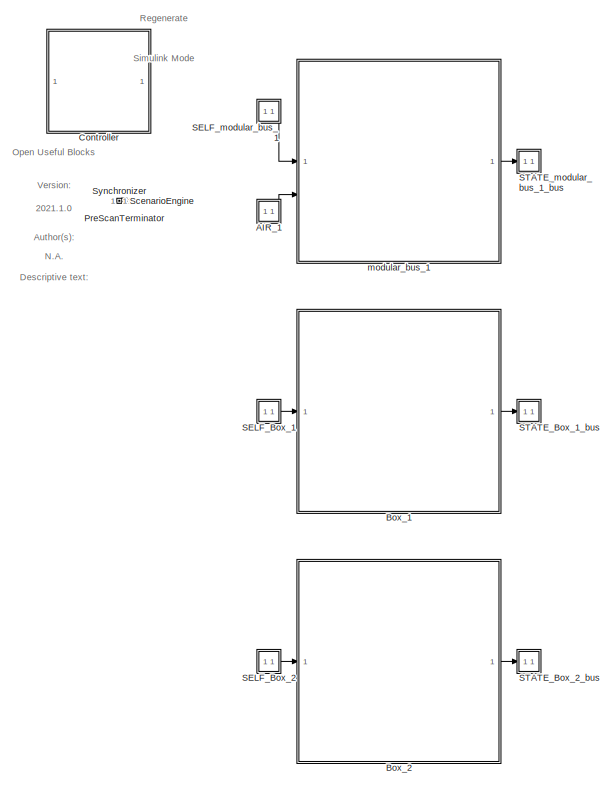
[diagram: root canvas - part 1/3, top left region]
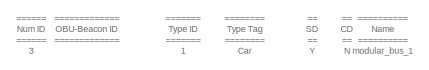
[diagram: root canvas - part 2/3, top right region]
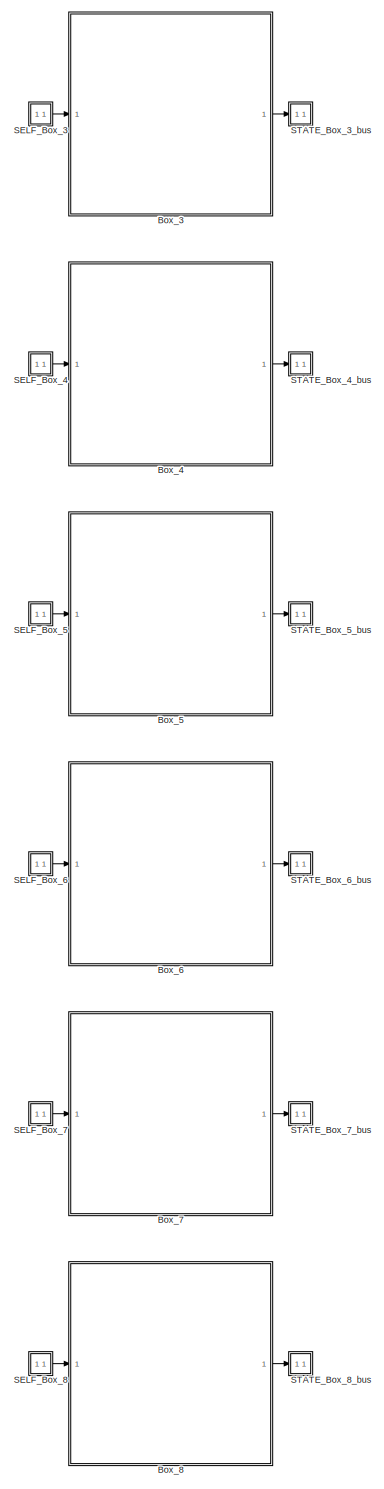
[diagram: root canvas - part 3/3, bottom center region]
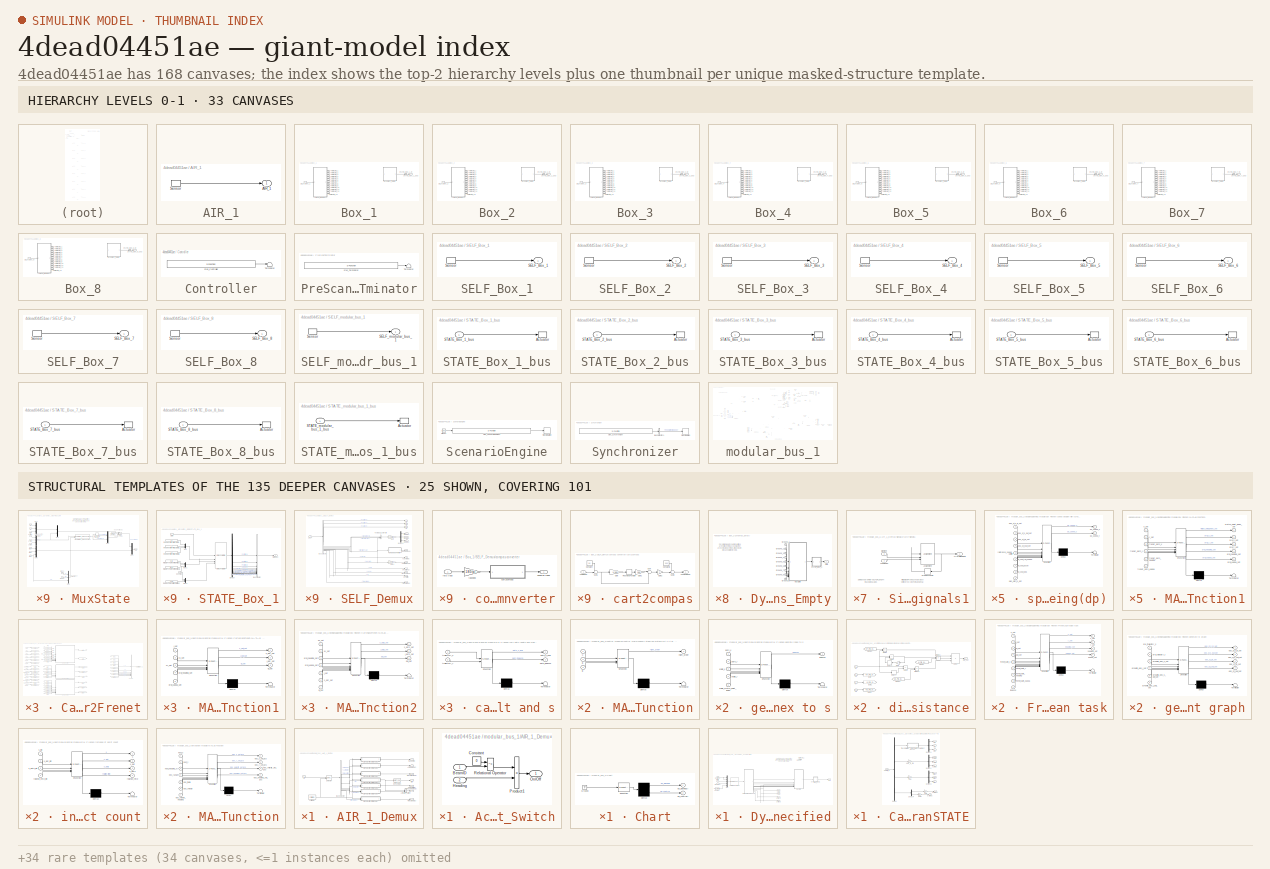
[diagram: thumbnail index - top-2 hierarchy levels (33 canvases) + 25 structural-template representatives of the remaining 135 canvases]
MODEL slx_4dead04451ae
KIND model
CONFIG AbsTol = auto
CONFIG EnableMultiTasking = off
CONFIG FixedStep = 1/1000
CONFIG InitFcn = mbxruntime.callbacks.InitFcn(bdroot);
CONFIG MaxStep = auto
CONFIG MinStep = auto
CONFIG PostLoadFcn = mbxruntime.callbacks.PostLoadFcn(bdroot);
CONFIG PreLoadFcn = mbxruntime.callbacks.PreLoadFcn(bdroot);
CONFIG RelTol = 1e-3
CONFIG SampleTimeConstraint = Unconstrained
CONFIG SolverName = ode5
CONFIG StartFcn = mbxruntime.callbacks.StartFcn(bdroot);
CONFIG StartTime = 0.0
CONFIG StopFcn = mbxruntime.callbacks.StopFcn(bdroot);
CONFIG StopTime = 80
WORKSPACE source: external: MAT-File  (data not in archive)
BLOCK [SubSystem] AIR_1
  LoadFcn = load('PrescanAIRSensorData.mat');load('PrescanAIRSensorMessage.mat')
  OpenFcn = open_system([gcb '/Sensor'],'mask')
  Priority = 30
  Tag = sensor/AIR
BLOCK [Outport] AIR_1/AIR_1
  OutDataTypeStr = Bus: PRESCAN_AIRSENSORMESSAGE
  PortDimensions = 32
  SampleTime = 50/1000
  Tag = outport/AIR
BLOCK [S-Function] AIR_1/Sensor
  EnableBusSupport = off
  FunctionName = sfun_AIRSensor
  Parameters = mbxruntime.parameters.convert(detectableObjects), mbxruntime.parameters.convert(sensorID), mbxruntime.parameters.convert(timestep)
  SFcnIsStateOwnerBlock = off
  SFunctionDeploymentMode = off
BLOCK [SubSystem] Box_1
  InitFcn = UniqueId = '145';
  Tag = WorldObjectSubSystem
BLOCK [SubSystem] Box_1/Dynamics_Empty
  Tag = Dynamics_Empty
BLOCK [Ground] Box_1/Dynamics_Empty/Ground_1
BLOCK [Ground] Box_1/Dynamics_Empty/Ground_2
BLOCK [Ground] Box_1/Dynamics_Empty/Ground_3
BLOCK [Ground] Box_1/Dynamics_Empty/Ground_4
BLOCK [Ground] Box_1/Dynamics_Empty/Ground_5
BLOCK [Ground] Box_1/Dynamics_Empty/Ground_6
BLOCK [Ground] Box_1/Dynamics_Empty/Ground_7
BLOCK [Ground] Box_1/Dynamics_Empty/Ground_8
BLOCK [Ground] Box_1/Dynamics_Empty/Ground_9
BLOCK [SubSystem] Box_1/Dynamics_Empty/MuxState
  DeleteFcn = PreScanBlockDeleteFcn;
  Tag = mux/State
BLOCK [Constant] Box_1/Dynamics_Empty/MuxState/Constant
  DisableCoverage = on
  Value = positioningmode
BLOCK [DiscreteIntegrator] Box_1/Dynamics_Empty/MuxState/Discrete-Time Integrator
  ICPrevOutput = DiscIntNeverNeededParam
  ICPrevScaledInput = DiscIntNeverNeededParam
  SampleTime = TimeStep
BLOCK [Ground] Box_1/Dynamics_Empty/MuxState/Ground
BLOCK [Ground] Box_1/Dynamics_Empty/MuxState/Ground1
BLOCK [Mux] Box_1/Dynamics_Empty/MuxState/Mux1
  DisplayOption = bar
  Inputs = [3 3]
BLOCK [Mux] Box_1/Dynamics_Empty/MuxState/Mux2
  DisplayOption = bar
  Inputs = 3
BLOCK [Mux] Box_1/Dynamics_Empty/MuxState/Mux3
  DisplayOption = bar
  Inputs = 3
BLOCK [Mux] Box_1/Dynamics_Empty/MuxState/Mux4
  DisplayOption = bar
  Inputs = 3
BLOCK [Mux] Box_1/Dynamics_Empty/MuxState/Mux5
  DisplayOption = bar
  Inputs = [3 3]
BLOCK [Mux] Box_1/Dynamics_Empty/MuxState/Mux6
  DisplayOption = bar
  Inputs = [6 3]
BLOCK [Inport] Box_1/Dynamics_Empty/MuxState/P [rad]
  Port = 8
  SampleTime = TimeStep
BLOCK [Inport] Box_1/Dynamics_Empty/MuxState/R [rad]
  Port = 7
  SampleTime = TimeStep
BLOCK [Switch] Box_1/Dynamics_Empty/MuxState/Switch
  InputSameDT = off
  SaturateOnIntegerOverflow = off
  Threshold = 0.5
BLOCK [Reference] Box_1/Dynamics_Empty/MuxState/Transformation_BODY2GLOBAL  REF=PreScanSimulinkLibrary/Simple_Vehicle_Dynamics/Chassis/MuxDynState/Transformation_BODY2GLOBAL
  SourceBlock = PreScanSimulinkLibrary/Simple_Vehicle_Dynamics/Chassis/MuxDynState/Transformation_BODY2GLOBAL
  SourceType = SubSystem
BLOCK [Inport] Box_1/Dynamics_Empty/MuxState/Y [rad]
  Port = 9
  SampleTime = TimeStep
BLOCK [Inport] Box_1/Dynamics_Empty/MuxState/dx [m//s]
  Port = 4
  SampleTime = TimeStep
BLOCK [Inport] Box_1/Dynamics_Empty/MuxState/dy [m//s]
  Port = 5
  SampleTime = TimeStep
BLOCK [Inport] Box_1/Dynamics_Empty/MuxState/dz [m//s]
  Port = 6
  SampleTime = TimeStep
BLOCK [Mux] Box_1/Dynamics_Empty/MuxState/mux3
  Inputs = 3
BLOCK [Outport] Box_1/Dynamics_Empty/MuxState/state
BLOCK [Inport] Box_1/Dynamics_Empty/MuxState/x [m]
  SampleTime = TimeStep
BLOCK [Inport] Box_1/Dynamics_Empty/MuxState/y [m]
  Port = 2
  SampleTime = TimeStep
BLOCK [Inport] Box_1/Dynamics_Empty/MuxState/z [m]
  Port = 3
  SampleTime = TimeStep
BLOCK [SubSystem] Box_1/Dynamics_Empty/STATE_Box_1
  DeleteFcn = PreScanBlockDeleteFcn;
  LoadFcn = load PrescanStateActuatorData
  Priority = 0
  Tag = mux/StatePort
BLOCK [BusCreator] Box_1/Dynamics_Empty/STATE_Box_1/Bus Creator
  DisplayOption = bar
  InheritFromInputs = on
  Inputs = 15
  NonVirtualBus = on
  OutDataTypeStr = Bus: PRESCAN_STATEACTUATORDATA
BLOCK [Constant] Box_1/Dynamics_Empty/STATE_Box_1/Constant
  Value = 0
BLOCK [Demux] Box_1/Dynamics_Empty/STATE_Box_1/Demux
  Outputs = 15
BLOCK [Mux] Box_1/Dynamics_Empty/STATE_Box_1/Mux
  DisplayOption = bar
  Inputs = 3
BLOCK [Mux] Box_1/Dynamics_Empty/STATE_Box_1/Mux1
  DisplayOption = bar
  Inputs = 3
BLOCK [Mux] Box_1/Dynamics_Empty/STATE_Box_1/Mux2
  DisplayOption = bar
  Inputs = 3
BLOCK [Inport] Box_1/Dynamics_Empty/STATE_Box_1/State
  SampleTime = TimeStep
BLOCK [Outport] Box_1/Dynamics_Empty/STATE_Box_1/StateBus
  OutDataTypeStr = Bus: PRESCAN_STATEACTUATORDATA
BLOCK [Constant] Box_1/Dynamics_Empty/STATE_Box_1/iniBODYAngles wrtVEH [rad]
  SampleTime = TimeStep
  Value = Roll0
BLOCK [Constant] Box_1/Dynamics_Empty/STATE_Box_1/iniBODYAngles wrtVEH [rad]1
  SampleTime = TimeStep
  Value = Pitch0
BLOCK [Constant] Box_1/Dynamics_Empty/STATE_Box_1/iniVEHAngles wrtGLOB [rad]
  SampleTime = TimeStep
  Value = Yaw0
BLOCK [Constant] Box_1/Dynamics_Empty/STATE_Box_1/iniVEHposition wrtGLOB [m]
  SampleTime = TimeStep
  Value = x0
BLOCK [Constant] Box_1/Dynamics_Empty/STATE_Box_1/iniVEHposition wrtGLOB [m]1
  SampleTime = TimeStep
  Value = y0
BLOCK [Constant] Box_1/Dynamics_Empty/STATE_Box_1/iniVEHposition wrtGLOB [m]2
  SampleTime = TimeStep
  Value = z0
BLOCK [Reference] Box_1/Dynamics_Empty/STATE_Box_1/state2FullState  REF=PreScanSimulinkLibrary/state2FullState
  SourceBlock = PreScanSimulinkLibrary/state2FullState
  SourceType = PreScan Demux Block:
BLOCK [Outport] Box_1/Dynamics_Empty/State
  SampleTime = 1/1000
  Tag = outport/StateOutport
BLOCK [Inport] Box_1/SELF_Box_1
  BusOutputAsStruct = on
  OutDataTypeStr = Bus: PRESCAN_SELFSENSORDATA
  PortDimensions = 1
  SampleTime = 50/1000
  Tag = inport/SelfPort
BLOCK [SubSystem] Box_1/SELF_Demux
  DeleteFcn = PreScanBlockDeleteFcn;
  Tag = demux/SelfPort
BLOCK [BusSelector] Box_1/SELF_Demux/Bus Selector
  OutputSignals = PositionX,PositionY,PositionZ,OrientationRoll,OrientationPitch,OrientationYaw,Velocity,Yaw_rate,Lat,Long,Alt,TimeStamp
BLOCK [Demux] Box_1/SELF_Demux/Demux2
  Outputs = 3
BLOCK [Outport] Box_1/SELF_Demux/GPS alt [m]
  Port = 9
BLOCK [Outport] Box_1/SELF_Demux/GPS lat [deg]
  Port = 7
BLOCK [Outport] Box_1/SELF_Demux/GPS long [deg]
  Port = 8
BLOCK [Gain] Box_1/SELF_Demux/Gain
  Gain = 180/pi
BLOCK [Gain] Box_1/SELF_Demux/Gain1
  Gain = 180/pi
BLOCK [Inport] Box_1/SELF_Demux/SELF
  OutDataTypeStr = Bus: PRESCAN_SELFSENSORDATA
BLOCK [Outport] Box_1/SELF_Demux/TimeStamp [s]
  Port = 13
BLOCK [Concatenate] Box_1/SELF_Demux/Vector Concatenate1
  NumInputs = 3
BLOCK [SubSystem] Box_1/SELF_Demux/compas converter
BLOCK [SubSystem] Box_1/SELF_Demux/compas converter/cart2compas
BLOCK [Inport] Box_1/SELF_Demux/compas converter/cart2compas/Angle [deg]
BLOCK [Constant] Box_1/SELF_Demux/compas converter/cart2compas/Constant
  Value = 90
BLOCK [Constant] Box_1/SELF_Demux/compas converter/cart2compas/Constant1
  Value = 360
BLOCK [Gain] Box_1/SELF_Demux/compas converter/cart2compas/Gain
  Gain = 1/360
BLOCK [Gain] Box_1/SELF_Demux/compas converter/cart2compas/Gain1
  Gain = 360
BLOCK [Gain] Box_1/SELF_Demux/compas converter/cart2compas/Gain2
  Gain = -1
BLOCK [Rounding] Box_1/SELF_Demux/compas converter/cart2compas/Rounding Function
BLOCK [Sum] Box_1/SELF_Demux/compas converter/cart2compas/Sum
  Inputs = |-+
BLOCK [Sum] Box_1/SELF_Demux/compas converter/cart2compas/Sum1
  Inputs = -+|
BLOCK [Sum] Box_1/SELF_Demux/compas converter/cart2compas/Sum2
  Inputs = ++|
BLOCK [Outport] Box_1/SELF_Demux/compas converter/cart2compas/heading [deg]
BLOCK [Outport] Box_1/SELF_Demux/compas converter/heading [deg]
BLOCK [Gain] Box_1/SELF_Demux/compas converter/rad2deg
  Gain = 180/pi
BLOCK [Inport] Box_1/SELF_Demux/compas converter/rotz [rad]
BLOCK [Outport] Box_1/SELF_Demux/heading [deg]
  Port = 11
BLOCK [Outport] Box_1/SELF_Demux/rotx [deg]
  Port = 4
BLOCK [Outport] Box_1/SELF_Demux/roty [deg]
  Port = 5
BLOCK [Outport] Box_1/SELF_Demux/rotz [deg]
  Port = 6
BLOCK [Outport] Box_1/SELF_Demux/velocity [m//s]
  Port = 10
BLOCK [Outport] Box_1/SELF_Demux/x [m]
BLOCK [Outport] Box_1/SELF_Demux/y [m]
  Port = 2
BLOCK [Outport] Box_1/SELF_Demux/yaw rate [deg//s]
  Port = 12
BLOCK [Outport] Box_1/SELF_Demux/z [m]
  Port = 3
BLOCK [Outport] Box_1/STATE_Box_1_bus
  OutDataTypeStr = Bus: PRESCAN_STATEACTUATORDATA
  PortDimensions = 1
  SampleTime = 50/1000
  Tag = outport/StatePort
BLOCK [RateTransition] Box_1/STATE_Box_1_rc
  OutPortSampleTimeOpt = Inherit
  Tag = mux_rc/StatePort
BLOCK [Terminator] Box_1/Terminator_1
BLOCK [Terminator] Box_1/Terminator_10
BLOCK [Terminator] Box_1/Terminator_11
BLOCK [Terminator] Box_1/Terminator_12
BLOCK [Terminator] Box_1/Terminator_13
BLOCK [Terminator] Box_1/Terminator_2
BLOCK [Terminator] Box_1/Terminator_3
BLOCK [Terminator] Box_1/Terminator_4
BLOCK [Terminator] Box_1/Terminator_5
BLOCK [Terminator] Box_1/Terminator_6
BLOCK [Terminator] Box_1/Terminator_7
BLOCK [Terminator] Box_1/Terminator_8
BLOCK [Terminator] Box_1/Terminator_9
BLOCK [SubSystem] Box_2
  InitFcn = UniqueId = '146';
  Tag = WorldObjectSubSystem
BLOCK [SubSystem] Box_2/Dynamics_Empty
  Tag = Dynamics_Empty
BLOCK [Ground] Box_2/Dynamics_Empty/Ground_1
BLOCK [Ground] Box_2/Dynamics_Empty/Ground_2
BLOCK [Ground] Box_2/Dynamics_Empty/Ground_3
BLOCK [Ground] Box_2/Dynamics_Empty/Ground_4
BLOCK [Ground] Box_2/Dynamics_Empty/Ground_5
BLOCK [Ground] Box_2/Dynamics_Empty/Ground_6
BLOCK [Ground] Box_2/Dynamics_Empty/Ground_7
BLOCK [Ground] Box_2/Dynamics_Empty/Ground_8
BLOCK [Ground] Box_2/Dynamics_Empty/Ground_9
BLOCK [SubSystem] Box_2/Dynamics_Empty/MuxState
  DeleteFcn = PreScanBlockDeleteFcn;
  Tag = mux/State
BLOCK [Constant] Box_2/Dynamics_Empty/MuxState/Constant
  DisableCoverage = on
  Value = positioningmode
BLOCK [DiscreteIntegrator] Box_2/Dynamics_Empty/MuxState/Discrete-Time Integrator
  ICPrevOutput = DiscIntNeverNeededParam
  ICPrevScaledInput = DiscIntNeverNeededParam
  SampleTime = TimeStep
BLOCK [Ground] Box_2/Dynamics_Empty/MuxState/Ground
BLOCK [Ground] Box_2/Dynamics_Empty/MuxState/Ground1
BLOCK [Mux] Box_2/Dynamics_Empty/MuxState/Mux1
  DisplayOption = bar
  Inputs = [3 3]
BLOCK [Mux] Box_2/Dynamics_Empty/MuxState/Mux2
  DisplayOption = bar
  Inputs = 3
BLOCK [Mux] Box_2/Dynamics_Empty/MuxState/Mux3
  DisplayOption = bar
  Inputs = 3
BLOCK [Mux] Box_2/Dynamics_Empty/MuxState/Mux4
  DisplayOption = bar
  Inputs = 3
BLOCK [Mux] Box_2/Dynamics_Empty/MuxState/Mux5
  DisplayOption = bar
  Inputs = [3 3]
BLOCK [Mux] Box_2/Dynamics_Empty/MuxState/Mux6
  DisplayOption = bar
  Inputs = [6 3]
BLOCK [Inport] Box_2/Dynamics_Empty/MuxState/P [rad]
  Port = 8
  SampleTime = TimeStep
BLOCK [Inport] Box_2/Dynamics_Empty/MuxState/R [rad]
  Port = 7
  SampleTime = TimeStep
BLOCK [Switch] Box_2/Dynamics_Empty/MuxState/Switch
  InputSameDT = off
  SaturateOnIntegerOverflow = off
  Threshold = 0.5
BLOCK [Reference] Box_2/Dynamics_Empty/MuxState/Transformation_BODY2GLOBAL  REF=PreScanSimulinkLibrary/Simple_Vehicle_Dynamics/Chassis/MuxDynState/Transformation_BODY2GLOBAL
  SourceBlock = PreScanSimulinkLibrary/Simple_Vehicle_Dynamics/Chassis/MuxDynState/Transformation_BODY2GLOBAL
  SourceType = SubSystem
BLOCK [Inport] Box_2/Dynamics_Empty/MuxState/Y [rad]
  Port = 9
  SampleTime = TimeStep
BLOCK [Inport] Box_2/Dynamics_Empty/MuxState/dx [m//s]
  Port = 4
  SampleTime = TimeStep
BLOCK [Inport] Box_2/Dynamics_Empty/MuxState/dy [m//s]
  Port = 5
  SampleTime = TimeStep
BLOCK [Inport] Box_2/Dynamics_Empty/MuxState/dz [m//s]
  Port = 6
  SampleTime = TimeStep
BLOCK [Mux] Box_2/Dynamics_Empty/MuxState/mux3
  Inputs = 3
BLOCK [Outport] Box_2/Dynamics_Empty/MuxState/state
BLOCK [Inport] Box_2/Dynamics_Empty/MuxState/x [m]
  SampleTime = TimeStep
BLOCK [Inport] Box_2/Dynamics_Empty/MuxState/y [m]
  Port = 2
  SampleTime = TimeStep
BLOCK [Inport] Box_2/Dynamics_Empty/MuxState/z [m]
  Port = 3
  SampleTime = TimeStep
BLOCK [SubSystem] Box_2/Dynamics_Empty/STATE_Box_2
  DeleteFcn = PreScanBlockDeleteFcn;
  LoadFcn = load PrescanStateActuatorData
  Priority = 0
  Tag = mux/StatePort
BLOCK [BusCreator] Box_2/Dynamics_Empty/STATE_Box_2/Bus Creator
  DisplayOption = bar
  InheritFromInputs = on
  Inputs = 15
  NonVirtualBus = on
  OutDataTypeStr = Bus: PRESCAN_STATEACTUATORDATA
BLOCK [Constant] Box_2/Dynamics_Empty/STATE_Box_2/Constant
  Value = 0
BLOCK [Demux] Box_2/Dynamics_Empty/STATE_Box_2/Demux
  Outputs = 15
BLOCK [Mux] Box_2/Dynamics_Empty/STATE_Box_2/Mux
  DisplayOption = bar
  Inputs = 3
BLOCK [Mux] Box_2/Dynamics_Empty/STATE_Box_2/Mux1
  DisplayOption = bar
  Inputs = 3
BLOCK [Mux] Box_2/Dynamics_Empty/STATE_Box_2/Mux2
  DisplayOption = bar
  Inputs = 3
BLOCK [Inport] Box_2/Dynamics_Empty/STATE_Box_2/State
  SampleTime = TimeStep
BLOCK [Outport] Box_2/Dynamics_Empty/STATE_Box_2/StateBus
  OutDataTypeStr = Bus: PRESCAN_STATEACTUATORDATA
BLOCK [Constant] Box_2/Dynamics_Empty/STATE_Box_2/iniBODYAngles wrtVEH [rad]
  SampleTime = TimeStep
  Value = Roll0
BLOCK [Constant] Box_2/Dynamics_Empty/STATE_Box_2/iniBODYAngles wrtVEH [rad]1
  SampleTime = TimeStep
  Value = Pitch0
BLOCK [Constant] Box_2/Dynamics_Empty/STATE_Box_2/iniVEHAngles wrtGLOB [rad]
  SampleTime = TimeStep
  Value = Yaw0
BLOCK [Constant] Box_2/Dynamics_Empty/STATE_Box_2/iniVEHposition wrtGLOB [m]
  SampleTime = TimeStep
  Value = x0
BLOCK [Constant] Box_2/Dynamics_Empty/STATE_Box_2/iniVEHposition wrtGLOB [m]1
  SampleTime = TimeStep
  Value = y0
BLOCK [Constant] Box_2/Dynamics_Empty/STATE_Box_2/iniVEHposition wrtGLOB [m]2
  SampleTime = TimeStep
  Value = z0
BLOCK [Reference] Box_2/Dynamics_Empty/STATE_Box_2/state2FullState  REF=PreScanSimulinkLibrary/state2FullState
  SourceBlock = PreScanSimulinkLibrary/state2FullState
  SourceType = PreScan Demux Block:
BLOCK [Outport] Box_2/Dynamics_Empty/State
  SampleTime = 1/1000
  Tag = outport/StateOutport
BLOCK [Inport] Box_2/SELF_Box_2
  BusOutputAsStruct = on
  OutDataTypeStr = Bus: PRESCAN_SELFSENSORDATA
  PortDimensions = 1
  SampleTime = 50/1000
  Tag = inport/SelfPort
BLOCK [SubSystem] Box_2/SELF_Demux
  DeleteFcn = PreScanBlockDeleteFcn;
  Tag = demux/SelfPort
BLOCK [BusSelector] Box_2/SELF_Demux/Bus Selector
  OutputSignals = PositionX,PositionY,PositionZ,OrientationRoll,OrientationPitch,OrientationYaw,Velocity,Yaw_rate,Lat,Long,Alt,TimeStamp
BLOCK [Demux] Box_2/SELF_Demux/Demux2
  Outputs = 3
BLOCK [Outport] Box_2/SELF_Demux/GPS alt [m]
  Port = 9
BLOCK [Outport] Box_2/SELF_Demux/GPS lat [deg]
  Port = 7
BLOCK [Outport] Box_2/SELF_Demux/GPS long [deg]
  Port = 8
BLOCK [Gain] Box_2/SELF_Demux/Gain
  Gain = 180/pi
BLOCK [Gain] Box_2/SELF_Demux/Gain1
  Gain = 180/pi
BLOCK [Inport] Box_2/SELF_Demux/SELF
  OutDataTypeStr = Bus: PRESCAN_SELFSENSORDATA
BLOCK [Outport] Box_2/SELF_Demux/TimeStamp [s]
  Port = 13
BLOCK [Concatenate] Box_2/SELF_Demux/Vector Concatenate1
  NumInputs = 3
BLOCK [SubSystem] Box_2/SELF_Demux/compas converter
BLOCK [SubSystem] Box_2/SELF_Demux/compas converter/cart2compas
BLOCK [Inport] Box_2/SELF_Demux/compas converter/cart2compas/Angle [deg]
BLOCK [Constant] Box_2/SELF_Demux/compas converter/cart2compas/Constant
  Value = 90
BLOCK [Constant] Box_2/SELF_Demux/compas converter/cart2compas/Constant1
  Value = 360
BLOCK [Gain] Box_2/SELF_Demux/compas converter/cart2compas/Gain
  Gain = 1/360
BLOCK [Gain] Box_2/SELF_Demux/compas converter/cart2compas/Gain1
  Gain = 360
BLOCK [Gain] Box_2/SELF_Demux/compas converter/cart2compas/Gain2
  Gain = -1
BLOCK [Rounding] Box_2/SELF_Demux/compas converter/cart2compas/Rounding Function
BLOCK [Sum] Box_2/SELF_Demux/compas converter/cart2compas/Sum
  Inputs = |-+
BLOCK [Sum] Box_2/SELF_Demux/compas converter/cart2compas/Sum1
  Inputs = -+|
BLOCK [Sum] Box_2/SELF_Demux/compas converter/cart2compas/Sum2
  Inputs = ++|
BLOCK [Outport] Box_2/SELF_Demux/compas converter/cart2compas/heading [deg]
BLOCK [Outport] Box_2/SELF_Demux/compas converter/heading [deg]
BLOCK [Gain] Box_2/SELF_Demux/compas converter/rad2deg
  Gain = 180/pi
BLOCK [Inport] Box_2/SELF_Demux/compas converter/rotz [rad]
BLOCK [Outport] Box_2/SELF_Demux/heading [deg]
  Port = 11
BLOCK [Outport] Box_2/SELF_Demux/rotx [deg]
  Port = 4
BLOCK [Outport] Box_2/SELF_Demux/roty [deg]
  Port = 5
BLOCK [Outport] Box_2/SELF_Demux/rotz [deg]
  Port = 6
BLOCK [Outport] Box_2/SELF_Demux/velocity [m//s]
  Port = 10
BLOCK [Outport] Box_2/SELF_Demux/x [m]
BLOCK [Outport] Box_2/SELF_Demux/y [m]
  Port = 2
BLOCK [Outport] Box_2/SELF_Demux/yaw rate [deg//s]
  Port = 12
BLOCK [Outport] Box_2/SELF_Demux/z [m]
  Port = 3
BLOCK [Outport] Box_2/STATE_Box_2_bus
  OutDataTypeStr = Bus: PRESCAN_STATEACTUATORDATA
  PortDimensions = 1
  SampleTime = 50/1000
  Tag = outport/StatePort
BLOCK [RateTransition] Box_2/STATE_Box_2_rc
  OutPortSampleTimeOpt = Inherit
  Tag = mux_rc/StatePort
BLOCK [Terminator] Box_2/Terminator_1
BLOCK [Terminator] Box_2/Terminator_10
BLOCK [Terminator] Box_2/Terminator_11
BLOCK [Terminator] Box_2/Terminator_12
BLOCK [Terminator] Box_2/Terminator_13
BLOCK [Terminator] Box_2/Terminator_2
BLOCK [Terminator] Box_2/Terminator_3
BLOCK [Terminator] Box_2/Terminator_4
BLOCK [Terminator] Box_2/Terminator_5
BLOCK [Terminator] Box_2/Terminator_6
BLOCK [Terminator] Box_2/Terminator_7
BLOCK [Terminator] Box_2/Terminator_8
BLOCK [Terminator] Box_2/Terminator_9
BLOCK [SubSystem] Box_3
  InitFcn = UniqueId = '147';
  Tag = WorldObjectSubSystem
BLOCK [SubSystem] Box_3/Dynamics_Empty
  Tag = Dynamics_Empty
BLOCK [Ground] Box_3/Dynamics_Empty/Ground_1
BLOCK [Ground] Box_3/Dynamics_Empty/Ground_2
BLOCK [Ground] Box_3/Dynamics_Empty/Ground_3
BLOCK [Ground] Box_3/Dynamics_Empty/Ground_4
BLOCK [Ground] Box_3/Dynamics_Empty/Ground_5
BLOCK [Ground] Box_3/Dynamics_Empty/Ground_6
BLOCK [Ground] Box_3/Dynamics_Empty/Ground_7
BLOCK [Ground] Box_3/Dynamics_Empty/Ground_8
BLOCK [Ground] Box_3/Dynamics_Empty/Ground_9
BLOCK [SubSystem] Box_3/Dynamics_Empty/MuxState
  DeleteFcn = PreScanBlockDeleteFcn;
  Tag = mux/State
BLOCK [Constant] Box_3/Dynamics_Empty/MuxState/Constant
  DisableCoverage = on
  Value = positioningmode
BLOCK [DiscreteIntegrator] Box_3/Dynamics_Empty/MuxState/Discrete-Time Integrator
  ICPrevOutput = DiscIntNeverNeededParam
  ICPrevScaledInput = DiscIntNeverNeededParam
  SampleTime = TimeStep
BLOCK [Ground] Box_3/Dynamics_Empty/MuxState/Ground
BLOCK [Ground] Box_3/Dynamics_Empty/MuxState/Ground1
BLOCK [Mux] Box_3/Dynamics_Empty/MuxState/Mux1
  DisplayOption = bar
  Inputs = [3 3]
BLOCK [Mux] Box_3/Dynamics_Empty/MuxState/Mux2
  DisplayOption = bar
  Inputs = 3
BLOCK [Mux] Box_3/Dynamics_Empty/MuxState/Mux3
  DisplayOption = bar
  Inputs = 3
BLOCK [Mux] Box_3/Dynamics_Empty/MuxState/Mux4
  DisplayOption = bar
  Inputs = 3
BLOCK [Mux] Box_3/Dynamics_Empty/MuxState/Mux5
  DisplayOption = bar
  Inputs = [3 3]
BLOCK [Mux] Box_3/Dynamics_Empty/MuxState/Mux6
  DisplayOption = bar
  Inputs = [6 3]
BLOCK [Inport] Box_3/Dynamics_Empty/MuxState/P [rad]
  Port = 8
  SampleTime = TimeStep
BLOCK [Inport] Box_3/Dynamics_Empty/MuxState/R [rad]
  Port = 7
  SampleTime = TimeStep
BLOCK [Switch] Box_3/Dynamics_Empty/MuxState/Switch
  InputSameDT = off
  SaturateOnIntegerOverflow = off
  Threshold = 0.5
BLOCK [Reference] Box_3/Dynamics_Empty/MuxState/Transformation_BODY2GLOBAL  REF=PreScanSimulinkLibrary/Simple_Vehicle_Dynamics/Chassis/MuxDynState/Transformation_BODY2GLOBAL
  SourceBlock = PreScanSimulinkLibrary/Simple_Vehicle_Dynamics/Chassis/MuxDynState/Transformation_BODY2GLOBAL
  SourceType = SubSystem
BLOCK [Inport] Box_3/Dynamics_Empty/MuxState/Y [rad]
  Port = 9
  SampleTime = TimeStep
BLOCK [Inport] Box_3/Dynamics_Empty/MuxState/dx [m//s]
  Port = 4
  SampleTime = TimeStep
BLOCK [Inport] Box_3/Dynamics_Empty/MuxState/dy [m//s]
  Port = 5
  SampleTime = TimeStep
BLOCK [Inport] Box_3/Dynamics_Empty/MuxState/dz [m//s]
  Port = 6
  SampleTime = TimeStep
BLOCK [Mux] Box_3/Dynamics_Empty/MuxState/mux3
  Inputs = 3
BLOCK [Outport] Box_3/Dynamics_Empty/MuxState/state
BLOCK [Inport] Box_3/Dynamics_Empty/MuxState/x [m]
  SampleTime = TimeStep
BLOCK [Inport] Box_3/Dynamics_Empty/MuxState/y [m]
  Port = 2
  SampleTime = TimeStep
BLOCK [Inport] Box_3/Dynamics_Empty/MuxState/z [m]
  Port = 3
  SampleTime = TimeStep
BLOCK [SubSystem] Box_3/Dynamics_Empty/STATE_Box_3
  DeleteFcn = PreScanBlockDeleteFcn;
  LoadFcn = load PrescanStateActuatorData
  Priority = 0
  Tag = mux/StatePort
BLOCK [BusCreator] Box_3/Dynamics_Empty/STATE_Box_3/Bus Creator
  DisplayOption = bar
  InheritFromInputs = on
  Inputs = 15
  NonVirtualBus = on
  OutDataTypeStr = Bus: PRESCAN_STATEACTUATORDATA
BLOCK [Constant] Box_3/Dynamics_Empty/STATE_Box_3/Constant
  Value = 0
BLOCK [Demux] Box_3/Dynamics_Empty/STATE_Box_3/Demux
  Outputs = 15
BLOCK [Mux] Box_3/Dynamics_Empty/STATE_Box_3/Mux
  DisplayOption = bar
  Inputs = 3
BLOCK [Mux] Box_3/Dynamics_Empty/STATE_Box_3/Mux1
  DisplayOption = bar
  Inputs = 3
BLOCK [Mux] Box_3/Dynamics_Empty/STATE_Box_3/Mux2
  DisplayOption = bar
  Inputs = 3
BLOCK [Inport] Box_3/Dynamics_Empty/STATE_Box_3/State
  SampleTime = TimeStep
BLOCK [Outport] Box_3/Dynamics_Empty/STATE_Box_3/StateBus
  OutDataTypeStr = Bus: PRESCAN_STATEACTUATORDATA
BLOCK [Constant] Box_3/Dynamics_Empty/STATE_Box_3/iniBODYAngles wrtVEH [rad]
  SampleTime = TimeStep
  Value = Roll0
BLOCK [Constant] Box_3/Dynamics_Empty/STATE_Box_3/iniBODYAngles wrtVEH [rad]1
  SampleTime = TimeStep
  Value = Pitch0
BLOCK [Constant] Box_3/Dynamics_Empty/STATE_Box_3/iniVEHAngles wrtGLOB [rad]
  SampleTime = TimeStep
  Value = Yaw0
BLOCK [Constant] Box_3/Dynamics_Empty/STATE_Box_3/iniVEHposition wrtGLOB [m]
  SampleTime = TimeStep
  Value = x0
BLOCK [Constant] Box_3/Dynamics_Empty/STATE_Box_3/iniVEHposition wrtGLOB [m]1
  SampleTime = TimeStep
  Value = y0
BLOCK [Constant] Box_3/Dynamics_Empty/STATE_Box_3/iniVEHposition wrtGLOB [m]2
  SampleTime = TimeStep
  Value = z0
BLOCK [Reference] Box_3/Dynamics_Empty/STATE_Box_3/state2FullState  REF=PreScanSimulinkLibrary/state2FullState
  SourceBlock = PreScanSimulinkLibrary/state2FullState
  SourceType = PreScan Demux Block:
BLOCK [Outport] Box_3/Dynamics_Empty/State
  SampleTime = 1/1000
  Tag = outport/StateOutport
BLOCK [Inport] Box_3/SELF_Box_3
  BusOutputAsStruct = on
  OutDataTypeStr = Bus: PRESCAN_SELFSENSORDATA
  PortDimensions = 1
  SampleTime = 50/1000
  Tag = inport/SelfPort
BLOCK [SubSystem] Box_3/SELF_Demux
  DeleteFcn = PreScanBlockDeleteFcn;
  Tag = demux/SelfPort
BLOCK [BusSelector] Box_3/SELF_Demux/Bus Selector
  OutputSignals = PositionX,PositionY,PositionZ,OrientationRoll,OrientationPitch,OrientationYaw,Velocity,Yaw_rate,Lat,Long,Alt,TimeStamp
BLOCK [Demux] Box_3/SELF_Demux/Demux2
  Outputs = 3
BLOCK [Outport] Box_3/SELF_Demux/GPS alt [m]
  Port = 9
BLOCK [Outport] Box_3/SELF_Demux/GPS lat [deg]
  Port = 7
BLOCK [Outport] Box_3/SELF_Demux/GPS long [deg]
  Port = 8
BLOCK [Gain] Box_3/SELF_Demux/Gain
  Gain = 180/pi
BLOCK [Gain] Box_3/SELF_Demux/Gain1
  Gain = 180/pi
BLOCK [Inport] Box_3/SELF_Demux/SELF
  OutDataTypeStr = Bus: PRESCAN_SELFSENSORDATA
BLOCK [Outport] Box_3/SELF_Demux/TimeStamp [s]
  Port = 13
BLOCK [Concatenate] Box_3/SELF_Demux/Vector Concatenate1
  NumInputs = 3
BLOCK [SubSystem] Box_3/SELF_Demux/compas converter
BLOCK [SubSystem] Box_3/SELF_Demux/compas converter/cart2compas
BLOCK [Inport] Box_3/SELF_Demux/compas converter/cart2compas/Angle [deg]
BLOCK [Constant] Box_3/SELF_Demux/compas converter/cart2compas/Constant
  Value = 90
BLOCK [Constant] Box_3/SELF_Demux/compas converter/cart2compas/Constant1
  Value = 360
BLOCK [Gain] Box_3/SELF_Demux/compas converter/cart2compas/Gain
  Gain = 1/360
BLOCK [Gain] Box_3/SELF_Demux/compas converter/cart2compas/Gain1
  Gain = 360
BLOCK [Gain] Box_3/SELF_Demux/compas converter/cart2compas/Gain2
  Gain = -1
BLOCK [Rounding] Box_3/SELF_Demux/compas converter/cart2compas/Rounding Function
BLOCK [Sum] Box_3/SELF_Demux/compas converter/cart2compas/Sum
  Inputs = |-+
BLOCK [Sum] Box_3/SELF_Demux/compas converter/cart2compas/Sum1
  Inputs = -+|
BLOCK [Sum] Box_3/SELF_Demux/compas converter/cart2compas/Sum2
  Inputs = ++|
BLOCK [Outport] Box_3/SELF_Demux/compas converter/cart2compas/heading [deg]
BLOCK [Outport] Box_3/SELF_Demux/compas converter/heading [deg]
BLOCK [Gain] Box_3/SELF_Demux/compas converter/rad2deg
  Gain = 180/pi
BLOCK [Inport] Box_3/SELF_Demux/compas converter/rotz [rad]
BLOCK [Outport] Box_3/SELF_Demux/heading [deg]
  Port = 11
BLOCK [Outport] Box_3/SELF_Demux/rotx [deg]
  Port = 4
BLOCK [Outport] Box_3/SELF_Demux/roty [deg]
  Port = 5
BLOCK [Outport] Box_3/SELF_Demux/rotz [deg]
  Port = 6
BLOCK [Outport] Box_3/SELF_Demux/velocity [m//s]
  Port = 10
BLOCK [Outport] Box_3/SELF_Demux/x [m]
BLOCK [Outport] Box_3/SELF_Demux/y [m]
  Port = 2
BLOCK [Outport] Box_3/SELF_Demux/yaw rate [deg//s]
  Port = 12
BLOCK [Outport] Box_3/SELF_Demux/z [m]
  Port = 3
BLOCK [Outport] Box_3/STATE_Box_3_bus
  OutDataTypeStr = Bus: PRESCAN_STATEACTUATORDATA
  PortDimensions = 1
  SampleTime = 50/1000
  Tag = outport/StatePort
BLOCK [RateTransition] Box_3/STATE_Box_3_rc
  OutPortSampleTimeOpt = Inherit
  Tag = mux_rc/StatePort
BLOCK [Terminator] Box_3/Terminator_1
BLOCK [Terminator] Box_3/Terminator_10
BLOCK [Terminator] Box_3/Terminator_11
BLOCK [Terminator] Box_3/Terminator_12
BLOCK [Terminator] Box_3/Terminator_13
BLOCK [Terminator] Box_3/Terminator_2
BLOCK [Terminator] Box_3/Terminator_3
BLOCK [Terminator] Box_3/Terminator_4
BLOCK [Terminator] Box_3/Terminator_5
BLOCK [Terminator] Box_3/Terminator_6
BLOCK [Terminator] Box_3/Terminator_7
BLOCK [Terminator] Box_3/Terminator_8
BLOCK [Terminator] Box_3/Terminator_9
BLOCK [SubSystem] Box_4
  InitFcn = UniqueId = '148';
  Tag = WorldObjectSubSystem
BLOCK [SubSystem] Box_4/Dynamics_Empty
  Tag = Dynamics_Empty
BLOCK [Ground] Box_4/Dynamics_Empty/Ground_1
BLOCK [Ground] Box_4/Dynamics_Empty/Ground_2
BLOCK [Ground] Box_4/Dynamics_Empty/Ground_3
BLOCK [Ground] Box_4/Dynamics_Empty/Ground_4
BLOCK [Ground] Box_4/Dynamics_Empty/Ground_5
BLOCK [Ground] Box_4/Dynamics_Empty/Ground_6
BLOCK [Ground] Box_4/Dynamics_Empty/Ground_7
BLOCK [Ground] Box_4/Dynamics_Empty/Ground_8
BLOCK [Ground] Box_4/Dynamics_Empty/Ground_9
BLOCK [SubSystem] Box_4/Dynamics_Empty/MuxState
  DeleteFcn = PreScanBlockDeleteFcn;
  Tag = mux/State
BLOCK [Constant] Box_4/Dynamics_Empty/MuxState/Constant
  DisableCoverage = on
  Value = positioningmode
BLOCK [DiscreteIntegrator] Box_4/Dynamics_Empty/MuxState/Discrete-Time Integrator
  ICPrevOutput = DiscIntNeverNeededParam
  ICPrevScaledInput = DiscIntNeverNeededParam
  SampleTime = TimeStep
BLOCK [Ground] Box_4/Dynamics_Empty/MuxState/Ground
BLOCK [Ground] Box_4/Dynamics_Empty/MuxState/Ground1
BLOCK [Mux] Box_4/Dynamics_Empty/MuxState/Mux1
  DisplayOption = bar
  Inputs = [3 3]
BLOCK [Mux] Box_4/Dynamics_Empty/MuxState/Mux2
  DisplayOption = bar
  Inputs = 3
BLOCK [Mux] Box_4/Dynamics_Empty/MuxState/Mux3
  DisplayOption = bar
  Inputs = 3
BLOCK [Mux] Box_4/Dynamics_Empty/MuxState/Mux4
  DisplayOption = bar
  Inputs = 3
BLOCK [Mux] Box_4/Dynamics_Empty/MuxState/Mux5
  DisplayOption = bar
  Inputs = [3 3]
BLOCK [Mux] Box_4/Dynamics_Empty/MuxState/Mux6
  DisplayOption = bar
  Inputs = [6 3]
BLOCK [Inport] Box_4/Dynamics_Empty/MuxState/P [rad]
  Port = 8
  SampleTime = TimeStep
BLOCK [Inport] Box_4/Dynamics_Empty/MuxState/R [rad]
  Port = 7
  SampleTime = TimeStep
BLOCK [Switch] Box_4/Dynamics_Empty/MuxState/Switch
  InputSameDT = off
  SaturateOnIntegerOverflow = off
  Threshold = 0.5
BLOCK [Reference] Box_4/Dynamics_Empty/MuxState/Transformation_BODY2GLOBAL  REF=PreScanSimulinkLibrary/Simple_Vehicle_Dynamics/Chassis/MuxDynState/Transformation_BODY2GLOBAL
  SourceBlock = PreScanSimulinkLibrary/Simple_Vehicle_Dynamics/Chassis/MuxDynState/Transformation_BODY2GLOBAL
  SourceType = SubSystem
BLOCK [Inport] Box_4/Dynamics_Empty/MuxState/Y [rad]
  Port = 9
  SampleTime = TimeStep
BLOCK [Inport] Box_4/Dynamics_Empty/MuxState/dx [m//s]
  Port = 4
  SampleTime = TimeStep
BLOCK [Inport] Box_4/Dynamics_Empty/MuxState/dy [m//s]
  Port = 5
  SampleTime = TimeStep
BLOCK [Inport] Box_4/Dynamics_Empty/MuxState/dz [m//s]
  Port = 6
  SampleTime = TimeStep
BLOCK [Mux] Box_4/Dynamics_Empty/MuxState/mux3
  Inputs = 3
BLOCK [Outport] Box_4/Dynamics_Empty/MuxState/state
BLOCK [Inport] Box_4/Dynamics_Empty/MuxState/x [m]
  SampleTime = TimeStep
BLOCK [Inport] Box_4/Dynamics_Empty/MuxState/y [m]
  Port = 2
  SampleTime = TimeStep
BLOCK [Inport] Box_4/Dynamics_Empty/MuxState/z [m]
  Port = 3
  SampleTime = TimeStep
BLOCK [SubSystem] Box_4/Dynamics_Empty/STATE_Box_4
  DeleteFcn = PreScanBlockDeleteFcn;
  LoadFcn = load PrescanStateActuatorData
  Priority = 0
  Tag = mux/StatePort
BLOCK [BusCreator] Box_4/Dynamics_Empty/STATE_Box_4/Bus Creator
  DisplayOption = bar
  InheritFromInputs = on
  Inputs = 15
  NonVirtualBus = on
  OutDataTypeStr = Bus: PRESCAN_STATEACTUATORDATA
BLOCK [Constant] Box_4/Dynamics_Empty/STATE_Box_4/Constant
  Value = 0
BLOCK [Demux] Box_4/Dynamics_Empty/STATE_Box_4/Demux
  Outputs = 15
BLOCK [Mux] Box_4/Dynamics_Empty/STATE_Box_4/Mux
  DisplayOption = bar
  Inputs = 3
BLOCK [Mux] Box_4/Dynamics_Empty/STATE_Box_4/Mux1
  DisplayOption = bar
  Inputs = 3
BLOCK [Mux] Box_4/Dynamics_Empty/STATE_Box_4/Mux2
  DisplayOption = bar
  Inputs = 3
BLOCK [Inport] Box_4/Dynamics_Empty/STATE_Box_4/State
  SampleTime = TimeStep
BLOCK [Outport] Box_4/Dynamics_Empty/STATE_Box_4/StateBus
  OutDataTypeStr = Bus: PRESCAN_STATEACTUATORDATA
BLOCK [Constant] Box_4/Dynamics_Empty/STATE_Box_4/iniBODYAngles wrtVEH [rad]
  SampleTime = TimeStep
  Value = Roll0
BLOCK [Constant] Box_4/Dynamics_Empty/STATE_Box_4/iniBODYAngles wrtVEH [rad]1
  SampleTime = TimeStep
  Value = Pitch0
BLOCK [Constant] Box_4/Dynamics_Empty/STATE_Box_4/iniVEHAngles wrtGLOB [rad]
  SampleTime = TimeStep
  Value = Yaw0
BLOCK [Constant] Box_4/Dynamics_Empty/STATE_Box_4/iniVEHposition wrtGLOB [m]
  SampleTime = TimeStep
  Value = x0
BLOCK [Constant] Box_4/Dynamics_Empty/STATE_Box_4/iniVEHposition wrtGLOB [m]1
  SampleTime = TimeStep
  Value = y0
BLOCK [Constant] Box_4/Dynamics_Empty/STATE_Box_4/iniVEHposition wrtGLOB [m]2
  SampleTime = TimeStep
  Value = z0
BLOCK [Reference] Box_4/Dynamics_Empty/STATE_Box_4/state2FullState  REF=PreScanSimulinkLibrary/state2FullState
  SourceBlock = PreScanSimulinkLibrary/state2FullState
  SourceType = PreScan Demux Block:
BLOCK [Outport] Box_4/Dynamics_Empty/State
  SampleTime = 1/1000
  Tag = outport/StateOutport
BLOCK [Inport] Box_4/SELF_Box_4
  BusOutputAsStruct = on
  OutDataTypeStr = Bus: PRESCAN_SELFSENSORDATA
  PortDimensions = 1
  SampleTime = 50/1000
  Tag = inport/SelfPort
BLOCK [SubSystem] Box_4/SELF_Demux
  DeleteFcn = PreScanBlockDeleteFcn;
  Tag = demux/SelfPort
BLOCK [BusSelector] Box_4/SELF_Demux/Bus Selector
  OutputSignals = PositionX,PositionY,PositionZ,OrientationRoll,OrientationPitch,OrientationYaw,Velocity,Yaw_rate,Lat,Long,Alt,TimeStamp
BLOCK [Demux] Box_4/SELF_Demux/Demux2
  Outputs = 3
BLOCK [Outport] Box_4/SELF_Demux/GPS alt [m]
  Port = 9
BLOCK [Outport] Box_4/SELF_Demux/GPS lat [deg]
  Port = 7
BLOCK [Outport] Box_4/SELF_Demux/GPS long [deg]
  Port = 8
BLOCK [Gain] Box_4/SELF_Demux/Gain
  Gain = 180/pi
BLOCK [Gain] Box_4/SELF_Demux/Gain1
  Gain = 180/pi
BLOCK [Inport] Box_4/SELF_Demux/SELF
  OutDataTypeStr = Bus: PRESCAN_SELFSENSORDATA
BLOCK [Outport] Box_4/SELF_Demux/TimeStamp [s]
  Port = 13
BLOCK [Concatenate] Box_4/SELF_Demux/Vector Concatenate1
  NumInputs = 3
BLOCK [SubSystem] Box_4/SELF_Demux/compas converter
BLOCK [SubSystem] Box_4/SELF_Demux/compas converter/cart2compas
BLOCK [Inport] Box_4/SELF_Demux/compas converter/cart2compas/Angle [deg]
BLOCK [Constant] Box_4/SELF_Demux/compas converter/cart2compas/Constant
  Value = 90
BLOCK [Constant] Box_4/SELF_Demux/compas converter/cart2compas/Constant1
  Value = 360
BLOCK [Gain] Box_4/SELF_Demux/compas converter/cart2compas/Gain
  Gain = 1/360
BLOCK [Gain] Box_4/SELF_Demux/compas converter/cart2compas/Gain1
  Gain = 360
BLOCK [Gain] Box_4/SELF_Demux/compas converter/cart2compas/Gain2
  Gain = -1
BLOCK [Rounding] Box_4/SELF_Demux/compas converter/cart2compas/Rounding Function
BLOCK [Sum] Box_4/SELF_Demux/compas converter/cart2compas/Sum
  Inputs = |-+
BLOCK [Sum] Box_4/SELF_Demux/compas converter/cart2compas/Sum1
  Inputs = -+|
BLOCK [Sum] Box_4/SELF_Demux/compas converter/cart2compas/Sum2
  Inputs = ++|
BLOCK [Outport] Box_4/SELF_Demux/compas converter/cart2compas/heading [deg]
BLOCK [Outport] Box_4/SELF_Demux/compas converter/heading [deg]
BLOCK [Gain] Box_4/SELF_Demux/compas converter/rad2deg
  Gain = 180/pi
BLOCK [Inport] Box_4/SELF_Demux/compas converter/rotz [rad]
BLOCK [Outport] Box_4/SELF_Demux/heading [deg]
  Port = 11
BLOCK [Outport] Box_4/SELF_Demux/rotx [deg]
  Port = 4
BLOCK [Outport] Box_4/SELF_Demux/roty [deg]
  Port = 5
BLOCK [Outport] Box_4/SELF_Demux/rotz [deg]
  Port = 6
BLOCK [Outport] Box_4/SELF_Demux/velocity [m//s]
  Port = 10
BLOCK [Outport] Box_4/SELF_Demux/x [m]
BLOCK [Outport] Box_4/SELF_Demux/y [m]
  Port = 2
BLOCK [Outport] Box_4/SELF_Demux/yaw rate [deg//s]
  Port = 12
BLOCK [Outport] Box_4/SELF_Demux/z [m]
  Port = 3
BLOCK [Outport] Box_4/STATE_Box_4_bus
  OutDataTypeStr = Bus: PRESCAN_STATEACTUATORDATA
  PortDimensions = 1
  SampleTime = 50/1000
  Tag = outport/StatePort
BLOCK [RateTransition] Box_4/STATE_Box_4_rc
  OutPortSampleTimeOpt = Inherit
  Tag = mux_rc/StatePort
BLOCK [Terminator] Box_4/Terminator_1
BLOCK [Terminator] Box_4/Terminator_10
BLOCK [Terminator] Box_4/Terminator_11
BLOCK [Terminator] Box_4/Terminator_12
BLOCK [Terminator] Box_4/Terminator_13
BLOCK [Terminator] Box_4/Terminator_2
BLOCK [Terminator] Box_4/Terminator_3
BLOCK [Terminator] Box_4/Terminator_4
BLOCK [Terminator] Box_4/Terminator_5
BLOCK [Terminator] Box_4/Terminator_6
BLOCK [Terminator] Box_4/Terminator_7
BLOCK [Terminator] Box_4/Terminator_8
BLOCK [Terminator] Box_4/Terminator_9
BLOCK [SubSystem] Box_5
  InitFcn = UniqueId = '149';
  Tag = WorldObjectSubSystem
BLOCK [SubSystem] Box_5/Dynamics_Empty
  Tag = Dynamics_Empty
BLOCK [Ground] Box_5/Dynamics_Empty/Ground_1
BLOCK [Ground] Box_5/Dynamics_Empty/Ground_2
BLOCK [Ground] Box_5/Dynamics_Empty/Ground_3
BLOCK [Ground] Box_5/Dynamics_Empty/Ground_4
BLOCK [Ground] Box_5/Dynamics_Empty/Ground_5
BLOCK [Ground] Box_5/Dynamics_Empty/Ground_6
BLOCK [Ground] Box_5/Dynamics_Empty/Ground_7
BLOCK [Ground] Box_5/Dynamics_Empty/Ground_8
BLOCK [Ground] Box_5/Dynamics_Empty/Ground_9
BLOCK [SubSystem] Box_5/Dynamics_Empty/MuxState
  DeleteFcn = PreScanBlockDeleteFcn;
  Tag = mux/State
BLOCK [Constant] Box_5/Dynamics_Empty/MuxState/Constant
  DisableCoverage = on
  Value = positioningmode
BLOCK [DiscreteIntegrator] Box_5/Dynamics_Empty/MuxState/Discrete-Time Integrator
  ICPrevOutput = DiscIntNeverNeededParam
  ICPrevScaledInput = DiscIntNeverNeededParam
  SampleTime = TimeStep
BLOCK [Ground] Box_5/Dynamics_Empty/MuxState/Ground
BLOCK [Ground] Box_5/Dynamics_Empty/MuxState/Ground1
BLOCK [Mux] Box_5/Dynamics_Empty/MuxState/Mux1
  DisplayOption = bar
  Inputs = [3 3]
BLOCK [Mux] Box_5/Dynamics_Empty/MuxState/Mux2
  DisplayOption = bar
  Inputs = 3
BLOCK [Mux] Box_5/Dynamics_Empty/MuxState/Mux3
  DisplayOption = bar
  Inputs = 3
BLOCK [Mux] Box_5/Dynamics_Empty/MuxState/Mux4
  DisplayOption = bar
  Inputs = 3
BLOCK [Mux] Box_5/Dynamics_Empty/MuxState/Mux5
  DisplayOption = bar
  Inputs = [3 3]
BLOCK [Mux] Box_5/Dynamics_Empty/MuxState/Mux6
  DisplayOption = bar
  Inputs = [6 3]
BLOCK [Inport] Box_5/Dynamics_Empty/MuxState/P [rad]
  Port = 8
  SampleTime = TimeStep
BLOCK [Inport] Box_5/Dynamics_Empty/MuxState/R [rad]
  Port = 7
  SampleTime = TimeStep
BLOCK [Switch] Box_5/Dynamics_Empty/MuxState/Switch
  InputSameDT = off
  SaturateOnIntegerOverflow = off
  Threshold = 0.5
BLOCK [Reference] Box_5/Dynamics_Empty/MuxState/Transformation_BODY2GLOBAL  REF=PreScanSimulinkLibrary/Simple_Vehicle_Dynamics/Chassis/MuxDynState/Transformation_BODY2GLOBAL
  SourceBlock = PreScanSimulinkLibrary/Simple_Vehicle_Dynamics/Chassis/MuxDynState/Transformation_BODY2GLOBAL
  SourceType = SubSystem
BLOCK [Inport] Box_5/Dynamics_Empty/MuxState/Y [rad]
  Port = 9
  SampleTime = TimeStep
BLOCK [Inport] Box_5/Dynamics_Empty/MuxState/dx [m//s]
  Port = 4
  SampleTime = TimeStep
BLOCK [Inport] Box_5/Dynamics_Empty/MuxState/dy [m//s]
  Port = 5
  SampleTime = TimeStep
BLOCK [Inport] Box_5/Dynamics_Empty/MuxState/dz [m//s]
  Port = 6
  SampleTime = TimeStep
BLOCK [Mux] Box_5/Dynamics_Empty/MuxState/mux3
  Inputs = 3
BLOCK [Outport] Box_5/Dynamics_Empty/MuxState/state
BLOCK [Inport] Box_5/Dynamics_Empty/MuxState/x [m]
  SampleTime = TimeStep
BLOCK [Inport] Box_5/Dynamics_Empty/MuxState/y [m]
  Port = 2
  SampleTime = TimeStep
BLOCK [Inport] Box_5/Dynamics_Empty/MuxState/z [m]
  Port = 3
  SampleTime = TimeStep
BLOCK [SubSystem] Box_5/Dynamics_Empty/STATE_Box_5
  DeleteFcn = PreScanBlockDeleteFcn;
  LoadFcn = load PrescanStateActuatorData
  Priority = 0
  Tag = mux/StatePort
BLOCK [BusCreator] Box_5/Dynamics_Empty/STATE_Box_5/Bus Creator
  DisplayOption = bar
  InheritFromInputs = on
  Inputs = 15
  NonVirtualBus = on
  OutDataTypeStr = Bus: PRESCAN_STATEACTUATORDATA
BLOCK [Constant] Box_5/Dynamics_Empty/STATE_Box_5/Constant
  Value = 0
BLOCK [Demux] Box_5/Dynamics_Empty/STATE_Box_5/Demux
  Outputs = 15
BLOCK [Mux] Box_5/Dynamics_Empty/STATE_Box_5/Mux
  DisplayOption = bar
  Inputs = 3
BLOCK [Mux] Box_5/Dynamics_Empty/STATE_Box_5/Mux1
  DisplayOption = bar
  Inputs = 3
BLOCK [Mux] Box_5/Dynamics_Empty/STATE_Box_5/Mux2
  DisplayOption = bar
  Inputs = 3
BLOCK [Inport] Box_5/Dynamics_Empty/STATE_Box_5/State
  SampleTime = TimeStep
BLOCK [Outport] Box_5/Dynamics_Empty/STATE_Box_5/StateBus
  OutDataTypeStr = Bus: PRESCAN_STATEACTUATORDATA
BLOCK [Constant] Box_5/Dynamics_Empty/STATE_Box_5/iniBODYAngles wrtVEH [rad]
  SampleTime = TimeStep
  Value = Roll0
BLOCK [Constant] Box_5/Dynamics_Empty/STATE_Box_5/iniBODYAngles wrtVEH [rad]1
  SampleTime = TimeStep
  Value = Pitch0
BLOCK [Constant] Box_5/Dynamics_Empty/STATE_Box_5/iniVEHAngles wrtGLOB [rad]
  SampleTime = TimeStep
  Value = Yaw0
BLOCK [Constant] Box_5/Dynamics_Empty/STATE_Box_5/iniVEHposition wrtGLOB [m]
  SampleTime = TimeStep
  Value = x0
BLOCK [Constant] Box_5/Dynamics_Empty/STATE_Box_5/iniVEHposition wrtGLOB [m]1
  SampleTime = TimeStep
  Value = y0
BLOCK [Constant] Box_5/Dynamics_Empty/STATE_Box_5/iniVEHposition wrtGLOB [m]2
  SampleTime = TimeStep
  Value = z0
BLOCK [Reference] Box_5/Dynamics_Empty/STATE_Box_5/state2FullState  REF=PreScanSimulinkLibrary/state2FullState
  SourceBlock = PreScanSimulinkLibrary/state2FullState
  SourceType = PreScan Demux Block:
BLOCK [Outport] Box_5/Dynamics_Empty/State
  SampleTime = 1/1000
  Tag = outport/StateOutport
BLOCK [Inport] Box_5/SELF_Box_5
  BusOutputAsStruct = on
  OutDataTypeStr = Bus: PRESCAN_SELFSENSORDATA
  PortDimensions = 1
  SampleTime = 50/1000
  Tag = inport/SelfPort
BLOCK [SubSystem] Box_5/SELF_Demux
  DeleteFcn = PreScanBlockDeleteFcn;
  Tag = demux/SelfPort
BLOCK [BusSelector] Box_5/SELF_Demux/Bus Selector
  OutputSignals = PositionX,PositionY,PositionZ,OrientationRoll,OrientationPitch,OrientationYaw,Velocity,Yaw_rate,Lat,Long,Alt,TimeStamp
BLOCK [Demux] Box_5/SELF_Demux/Demux2
  Outputs = 3
BLOCK [Outport] Box_5/SELF_Demux/GPS alt [m]
  Port = 9
BLOCK [Outport] Box_5/SELF_Demux/GPS lat [deg]
  Port = 7
BLOCK [Outport] Box_5/SELF_Demux/GPS long [deg]
  Port = 8
BLOCK [Gain] Box_5/SELF_Demux/Gain
  Gain = 180/pi
BLOCK [Gain] Box_5/SELF_Demux/Gain1
  Gain = 180/pi
BLOCK [Inport] Box_5/SELF_Demux/SELF
  OutDataTypeStr = Bus: PRESCAN_SELFSENSORDATA
BLOCK [Outport] Box_5/SELF_Demux/TimeStamp [s]
  Port = 13
BLOCK [Concatenate] Box_5/SELF_Demux/Vector Concatenate1
  NumInputs = 3
BLOCK [SubSystem] Box_5/SELF_Demux/compas converter
BLOCK [SubSystem] Box_5/SELF_Demux/compas converter/cart2compas
BLOCK [Inport] Box_5/SELF_Demux/compas converter/cart2compas/Angle [deg]
BLOCK [Constant] Box_5/SELF_Demux/compas converter/cart2compas/Constant
  Value = 90
BLOCK [Constant] Box_5/SELF_Demux/compas converter/cart2compas/Constant1
  Value = 360
BLOCK [Gain] Box_5/SELF_Demux/compas converter/cart2compas/Gain
  Gain = 1/360
BLOCK [Gain] Box_5/SELF_Demux/compas converter/cart2compas/Gain1
  Gain = 360
BLOCK [Gain] Box_5/SELF_Demux/compas converter/cart2compas/Gain2
  Gain = -1
BLOCK [Rounding] Box_5/SELF_Demux/compas converter/cart2compas/Rounding Function
BLOCK [Sum] Box_5/SELF_Demux/compas converter/cart2compas/Sum
  Inputs = |-+
BLOCK [Sum] Box_5/SELF_Demux/compas converter/cart2compas/Sum1
  Inputs = -+|
BLOCK [Sum] Box_5/SELF_Demux/compas converter/cart2compas/Sum2
  Inputs = ++|
BLOCK [Outport] Box_5/SELF_Demux/compas converter/cart2compas/heading [deg]
BLOCK [Outport] Box_5/SELF_Demux/compas converter/heading [deg]
BLOCK [Gain] Box_5/SELF_Demux/compas converter/rad2deg
  Gain = 180/pi
BLOCK [Inport] Box_5/SELF_Demux/compas converter/rotz [rad]
BLOCK [Outport] Box_5/SELF_Demux/heading [deg]
  Port = 11
BLOCK [Outport] Box_5/SELF_Demux/rotx [deg]
  Port = 4
BLOCK [Outport] Box_5/SELF_Demux/roty [deg]
  Port = 5
BLOCK [Outport] Box_5/SELF_Demux/rotz [deg]
  Port = 6
BLOCK [Outport] Box_5/SELF_Demux/velocity [m//s]
  Port = 10
BLOCK [Outport] Box_5/SELF_Demux/x [m]
BLOCK [Outport] Box_5/SELF_Demux/y [m]
  Port = 2
BLOCK [Outport] Box_5/SELF_Demux/yaw rate [deg//s]
  Port = 12
BLOCK [Outport] Box_5/SELF_Demux/z [m]
  Port = 3
BLOCK [Outport] Box_5/STATE_Box_5_bus
  OutDataTypeStr = Bus: PRESCAN_STATEACTUATORDATA
  PortDimensions = 1
  SampleTime = 50/1000
  Tag = outport/StatePort
BLOCK [RateTransition] Box_5/STATE_Box_5_rc
  OutPortSampleTimeOpt = Inherit
  Tag = mux_rc/StatePort
BLOCK [Terminator] Box_5/Terminator_1
BLOCK [Terminator] Box_5/Terminator_10
BLOCK [Terminator] Box_5/Terminator_11
BLOCK [Terminator] Box_5/Terminator_12
BLOCK [Terminator] Box_5/Terminator_13
BLOCK [Terminator] Box_5/Terminator_2
BLOCK [Terminator] Box_5/Terminator_3
BLOCK [Terminator] Box_5/Terminator_4
BLOCK [Terminator] Box_5/Terminator_5
BLOCK [Terminator] Box_5/Terminator_6
BLOCK [Terminator] Box_5/Terminator_7
BLOCK [Terminator] Box_5/Terminator_8
BLOCK [Terminator] Box_5/Terminator_9
BLOCK [SubSystem] Box_6
  InitFcn = UniqueId = '150';
  Tag = WorldObjectSubSystem
BLOCK [SubSystem] Box_6/Dynamics_Empty
  Tag = Dynamics_Empty
BLOCK [Ground] Box_6/Dynamics_Empty/Ground_1
BLOCK [Ground] Box_6/Dynamics_Empty/Ground_2
BLOCK [Ground] Box_6/Dynamics_Empty/Ground_3
BLOCK [Ground] Box_6/Dynamics_Empty/Ground_4
BLOCK [Ground] Box_6/Dynamics_Empty/Ground_5
BLOCK [Ground] Box_6/Dynamics_Empty/Ground_6
BLOCK [Ground] Box_6/Dynamics_Empty/Ground_7
BLOCK [Ground] Box_6/Dynamics_Empty/Ground_8
BLOCK [Ground] Box_6/Dynamics_Empty/Ground_9
BLOCK [SubSystem] Box_6/Dynamics_Empty/MuxState
  DeleteFcn = PreScanBlockDeleteFcn;
  Tag = mux/State
BLOCK [Constant] Box_6/Dynamics_Empty/MuxState/Constant
  DisableCoverage = on
  Value = positioningmode
BLOCK [DiscreteIntegrator] Box_6/Dynamics_Empty/MuxState/Discrete-Time Integrator
  ICPrevOutput = DiscIntNeverNeededParam
  ICPrevScaledInput = DiscIntNeverNeededParam
  SampleTime = TimeStep
BLOCK [Ground] Box_6/Dynamics_Empty/MuxState/Ground
BLOCK [Ground] Box_6/Dynamics_Empty/MuxState/Ground1
BLOCK [Mux] Box_6/Dynamics_Empty/MuxState/Mux1
  DisplayOption = bar
  Inputs = [3 3]
BLOCK [Mux] Box_6/Dynamics_Empty/MuxState/Mux2
  DisplayOption = bar
  Inputs = 3
BLOCK [Mux] Box_6/Dynamics_Empty/MuxState/Mux3
  DisplayOption = bar
  Inputs = 3
BLOCK [Mux] Box_6/Dynamics_Empty/MuxState/Mux4
  DisplayOption = bar
  Inputs = 3
BLOCK [Mux] Box_6/Dynamics_Empty/MuxState/Mux5
  DisplayOption = bar
  Inputs = [3 3]
BLOCK [Mux] Box_6/Dynamics_Empty/MuxState/Mux6
  DisplayOption = bar
  Inputs = [6 3]
BLOCK [Inport] Box_6/Dynamics_Empty/MuxState/P [rad]
  Port = 8
  SampleTime = TimeStep
BLOCK [Inport] Box_6/Dynamics_Empty/MuxState/R [rad]
  Port = 7
  SampleTime = TimeStep
BLOCK [Switch] Box_6/Dynamics_Empty/MuxState/Switch
  InputSameDT = off
  SaturateOnIntegerOverflow = off
  Threshold = 0.5
BLOCK [Reference] Box_6/Dynamics_Empty/MuxState/Transformation_BODY2GLOBAL  REF=PreScanSimulinkLibrary/Simple_Vehicle_Dynamics/Chassis/MuxDynState/Transformation_BODY2GLOBAL
  SourceBlock = PreScanSimulinkLibrary/Simple_Vehicle_Dynamics/Chassis/MuxDynState/Transformation_BODY2GLOBAL
  SourceType = SubSystem
BLOCK [Inport] Box_6/Dynamics_Empty/MuxState/Y [rad]
  Port = 9
  SampleTime = TimeStep
BLOCK [Inport] Box_6/Dynamics_Empty/MuxState/dx [m//s]
  Port = 4
  SampleTime = TimeStep
BLOCK [Inport] Box_6/Dynamics_Empty/MuxState/dy [m//s]
  Port = 5
  SampleTime = TimeStep
BLOCK [Inport] Box_6/Dynamics_Empty/MuxState/dz [m//s]
  Port = 6
  SampleTime = TimeStep
BLOCK [Mux] Box_6/Dynamics_Empty/MuxState/mux3
  Inputs = 3
BLOCK [Outport] Box_6/Dynamics_Empty/MuxState/state
BLOCK [Inport] Box_6/Dynamics_Empty/MuxState/x [m]
  SampleTime = TimeStep
BLOCK [Inport] Box_6/Dynamics_Empty/MuxState/y [m]
  Port = 2
  SampleTime = TimeStep
BLOCK [Inport] Box_6/Dynamics_Empty/MuxState/z [m]
  Port = 3
  SampleTime = TimeStep
BLOCK [SubSystem] Box_6/Dynamics_Empty/STATE_Box_6
  DeleteFcn = PreScanBlockDeleteFcn;
  LoadFcn = load PrescanStateActuatorData
  Priority = 0
  Tag = mux/StatePort
BLOCK [BusCreator] Box_6/Dynamics_Empty/STATE_Box_6/Bus Creator
  DisplayOption = bar
  InheritFromInputs = on
  Inputs = 15
  NonVirtualBus = on
  OutDataTypeStr = Bus: PRESCAN_STATEACTUATORDATA
BLOCK [Constant] Box_6/Dynamics_Empty/STATE_Box_6/Constant
  Value = 0
BLOCK [Demux] Box_6/Dynamics_Empty/STATE_Box_6/Demux
  Outputs = 15
BLOCK [Mux] Box_6/Dynamics_Empty/STATE_Box_6/Mux
  DisplayOption = bar
  Inputs = 3
BLOCK [Mux] Box_6/Dynamics_Empty/STATE_Box_6/Mux1
  DisplayOption = bar
  Inputs = 3
BLOCK [Mux] Box_6/Dynamics_Empty/STATE_Box_6/Mux2
  DisplayOption = bar
  Inputs = 3
BLOCK [Inport] Box_6/Dynamics_Empty/STATE_Box_6/State
  SampleTime = TimeStep
BLOCK [Outport] Box_6/Dynamics_Empty/STATE_Box_6/StateBus
  OutDataTypeStr = Bus: PRESCAN_STATEACTUATORDATA
BLOCK [Constant] Box_6/Dynamics_Empty/STATE_Box_6/iniBODYAngles wrtVEH [rad]
  SampleTime = TimeStep
  Value = Roll0
BLOCK [Constant] Box_6/Dynamics_Empty/STATE_Box_6/iniBODYAngles wrtVEH [rad]1
  SampleTime = TimeStep
  Value = Pitch0
BLOCK [Constant] Box_6/Dynamics_Empty/STATE_Box_6/iniVEHAngles wrtGLOB [rad]
  SampleTime = TimeStep
  Value = Yaw0
BLOCK [Constant] Box_6/Dynamics_Empty/STATE_Box_6/iniVEHposition wrtGLOB [m]
  SampleTime = TimeStep
  Value = x0
BLOCK [Constant] Box_6/Dynamics_Empty/STATE_Box_6/iniVEHposition wrtGLOB [m]1
  SampleTime = TimeStep
  Value = y0
BLOCK [Constant] Box_6/Dynamics_Empty/STATE_Box_6/iniVEHposition wrtGLOB [m]2
  SampleTime = TimeStep
  Value = z0
BLOCK [Reference] Box_6/Dynamics_Empty/STATE_Box_6/state2FullState  REF=PreScanSimulinkLibrary/state2FullState
  SourceBlock = PreScanSimulinkLibrary/state2FullState
  SourceType = PreScan Demux Block:
BLOCK [Outport] Box_6/Dynamics_Empty/State
  SampleTime = 1/1000
  Tag = outport/StateOutport
BLOCK [Inport] Box_6/SELF_Box_6
  BusOutputAsStruct = on
  OutDataTypeStr = Bus: PRESCAN_SELFSENSORDATA
  PortDimensions = 1
  SampleTime = 50/1000
  Tag = inport/SelfPort
BLOCK [SubSystem] Box_6/SELF_Demux
  DeleteFcn = PreScanBlockDeleteFcn;
  Tag = demux/SelfPort
BLOCK [BusSelector] Box_6/SELF_Demux/Bus Selector
  OutputSignals = PositionX,PositionY,PositionZ,OrientationRoll,OrientationPitch,OrientationYaw,Velocity,Yaw_rate,Lat,Long,Alt,TimeStamp
BLOCK [Demux] Box_6/SELF_Demux/Demux2
  Outputs = 3
BLOCK [Outport] Box_6/SELF_Demux/GPS alt [m]
  Port = 9
BLOCK [Outport] Box_6/SELF_Demux/GPS lat [deg]
  Port = 7
BLOCK [Outport] Box_6/SELF_Demux/GPS long [deg]
  Port = 8
BLOCK [Gain] Box_6/SELF_Demux/Gain
  Gain = 180/pi
BLOCK [Gain] Box_6/SELF_Demux/Gain1
  Gain = 180/pi
BLOCK [Inport] Box_6/SELF_Demux/SELF
  OutDataTypeStr = Bus: PRESCAN_SELFSENSORDATA
BLOCK [Outport] Box_6/SELF_Demux/TimeStamp [s]
  Port = 13
BLOCK [Concatenate] Box_6/SELF_Demux/Vector Concatenate1
  NumInputs = 3
BLOCK [SubSystem] Box_6/SELF_Demux/compas converter
BLOCK [SubSystem] Box_6/SELF_Demux/compas converter/cart2compas
BLOCK [Inport] Box_6/SELF_Demux/compas converter/cart2compas/Angle [deg]
BLOCK [Constant] Box_6/SELF_Demux/compas converter/cart2compas/Constant
  Value = 90
BLOCK [Constant] Box_6/SELF_Demux/compas converter/cart2compas/Constant1
  Value = 360
BLOCK [Gain] Box_6/SELF_Demux/compas converter/cart2compas/Gain
  Gain = 1/360
BLOCK [Gain] Box_6/SELF_Demux/compas converter/cart2compas/Gain1
  Gain = 360
BLOCK [Gain] Box_6/SELF_Demux/compas converter/cart2compas/Gain2
  Gain = -1
BLOCK [Rounding] Box_6/SELF_Demux/compas converter/cart2compas/Rounding Function
BLOCK [Sum] Box_6/SELF_Demux/compas converter/cart2compas/Sum
  Inputs = |-+
BLOCK [Sum] Box_6/SELF_Demux/compas converter/cart2compas/Sum1
  Inputs = -+|
BLOCK [Sum] Box_6/SELF_Demux/compas converter/cart2compas/Sum2
  Inputs = ++|
BLOCK [Outport] Box_6/SELF_Demux/compas converter/cart2compas/heading [deg]
BLOCK [Outport] Box_6/SELF_Demux/compas converter/heading [deg]
BLOCK [Gain] Box_6/SELF_Demux/compas converter/rad2deg
  Gain = 180/pi
BLOCK [Inport] Box_6/SELF_Demux/compas converter/rotz [rad]
BLOCK [Outport] Box_6/SELF_Demux/heading [deg]
  Port = 11
BLOCK [Outport] Box_6/SELF_Demux/rotx [deg]
  Port = 4
BLOCK [Outport] Box_6/SELF_Demux/roty [deg]
  Port = 5
BLOCK [Outport] Box_6/SELF_Demux/rotz [deg]
  Port = 6
BLOCK [Outport] Box_6/SELF_Demux/velocity [m//s]
  Port = 10
BLOCK [Outport] Box_6/SELF_Demux/x [m]
BLOCK [Outport] Box_6/SELF_Demux/y [m]
  Port = 2
BLOCK [Outport] Box_6/SELF_Demux/yaw rate [deg//s]
  Port = 12
BLOCK [Outport] Box_6/SELF_Demux/z [m]
  Port = 3
BLOCK [Outport] Box_6/STATE_Box_6_bus
  OutDataTypeStr = Bus: PRESCAN_STATEACTUATORDATA
  PortDimensions = 1
  SampleTime = 50/1000
  Tag = outport/StatePort
BLOCK [RateTransition] Box_6/STATE_Box_6_rc
  OutPortSampleTimeOpt = Inherit
  Tag = mux_rc/StatePort
BLOCK [Terminator] Box_6/Terminator_1
BLOCK [Terminator] Box_6/Terminator_10
BLOCK [Terminator] Box_6/Terminator_11
BLOCK [Terminator] Box_6/Terminator_12
BLOCK [Terminator] Box_6/Terminator_13
BLOCK [Terminator] Box_6/Terminator_2
BLOCK [Terminator] Box_6/Terminator_3
BLOCK [Terminator] Box_6/Terminator_4
BLOCK [Terminator] Box_6/Terminator_5
BLOCK [Terminator] Box_6/Terminator_6
BLOCK [Terminator] Box_6/Terminator_7
BLOCK [Terminator] Box_6/Terminator_8
BLOCK [Terminator] Box_6/Terminator_9
BLOCK [SubSystem] Box_7
  InitFcn = UniqueId = '151';
  Tag = WorldObjectSubSystem
BLOCK [SubSystem] Box_7/Dynamics_Empty
  Tag = Dynamics_Empty
BLOCK [Ground] Box_7/Dynamics_Empty/Ground_1
BLOCK [Ground] Box_7/Dynamics_Empty/Ground_2
BLOCK [Ground] Box_7/Dynamics_Empty/Ground_3
BLOCK [Ground] Box_7/Dynamics_Empty/Ground_4
BLOCK [Ground] Box_7/Dynamics_Empty/Ground_5
BLOCK [Ground] Box_7/Dynamics_Empty/Ground_6
BLOCK [Ground] Box_7/Dynamics_Empty/Ground_7
BLOCK [Ground] Box_7/Dynamics_Empty/Ground_8
BLOCK [Ground] Box_7/Dynamics_Empty/Ground_9
BLOCK [SubSystem] Box_7/Dynamics_Empty/MuxState
  DeleteFcn = PreScanBlockDeleteFcn;
  Tag = mux/State
BLOCK [Constant] Box_7/Dynamics_Empty/MuxState/Constant
  DisableCoverage = on
  Value = positioningmode
BLOCK [DiscreteIntegrator] Box_7/Dynamics_Empty/MuxState/Discrete-Time Integrator
  ICPrevOutput = DiscIntNeverNeededParam
  ICPrevScaledInput = DiscIntNeverNeededParam
  SampleTime = TimeStep
BLOCK [Ground] Box_7/Dynamics_Empty/MuxState/Ground
BLOCK [Ground] Box_7/Dynamics_Empty/MuxState/Ground1
BLOCK [Mux] Box_7/Dynamics_Empty/MuxState/Mux1
  DisplayOption = bar
  Inputs = [3 3]
BLOCK [Mux] Box_7/Dynamics_Empty/MuxState/Mux2
  DisplayOption = bar
  Inputs = 3
BLOCK [Mux] Box_7/Dynamics_Empty/MuxState/Mux3
  DisplayOption = bar
  Inputs = 3
BLOCK [Mux] Box_7/Dynamics_Empty/MuxState/Mux4
  DisplayOption = bar
  Inputs = 3
BLOCK [Mux] Box_7/Dynamics_Empty/MuxState/Mux5
  DisplayOption = bar
  Inputs = [3 3]
BLOCK [Mux] Box_7/Dynamics_Empty/MuxState/Mux6
  DisplayOption = bar
  Inputs = [6 3]
BLOCK [Inport] Box_7/Dynamics_Empty/MuxState/P [rad]
  Port = 8
  SampleTime = TimeStep
BLOCK [Inport] Box_7/Dynamics_Empty/MuxState/R [rad]
  Port = 7
  SampleTime = TimeStep
BLOCK [Switch] Box_7/Dynamics_Empty/MuxState/Switch
  InputSameDT = off
  SaturateOnIntegerOverflow = off
  Threshold = 0.5
BLOCK [Reference] Box_7/Dynamics_Empty/MuxState/Transformation_BODY2GLOBAL  REF=PreScanSimulinkLibrary/Simple_Vehicle_Dynamics/Chassis/MuxDynState/Transformation_BODY2GLOBAL
  SourceBlock = PreScanSimulinkLibrary/Simple_Vehicle_Dynamics/Chassis/MuxDynState/Transformation_BODY2GLOBAL
  SourceType = SubSystem
BLOCK [Inport] Box_7/Dynamics_Empty/MuxState/Y [rad]
  Port = 9
  SampleTime = TimeStep
BLOCK [Inport] Box_7/Dynamics_Empty/MuxState/dx [m//s]
  Port = 4
  SampleTime = TimeStep
BLOCK [Inport] Box_7/Dynamics_Empty/MuxState/dy [m//s]
  Port = 5
  SampleTime = TimeStep
BLOCK [Inport] Box_7/Dynamics_Empty/MuxState/dz [m//s]
  Port = 6
  SampleTime = TimeStep
BLOCK [Mux] Box_7/Dynamics_Empty/MuxState/mux3
  Inputs = 3
BLOCK [Outport] Box_7/Dynamics_Empty/MuxState/state
BLOCK [Inport] Box_7/Dynamics_Empty/MuxState/x [m]
  SampleTime = TimeStep
BLOCK [Inport] Box_7/Dynamics_Empty/MuxState/y [m]
  Port = 2
  SampleTime = TimeStep
BLOCK [Inport] Box_7/Dynamics_Empty/MuxState/z [m]
  Port = 3
  SampleTime = TimeStep
BLOCK [SubSystem] Box_7/Dynamics_Empty/STATE_Box_7
  DeleteFcn = PreScanBlockDeleteFcn;
  LoadFcn = load PrescanStateActuatorData
  Priority = 0
  Tag = mux/StatePort
BLOCK [BusCreator] Box_7/Dynamics_Empty/STATE_Box_7/Bus Creator
  DisplayOption = bar
  InheritFromInputs = on
  Inputs = 15
  NonVirtualBus = on
  OutDataTypeStr = Bus: PRESCAN_STATEACTUATORDATA
BLOCK [Constant] Box_7/Dynamics_Empty/STATE_Box_7/Constant
  Value = 0
BLOCK [Demux] Box_7/Dynamics_Empty/STATE_Box_7/Demux
  Outputs = 15
BLOCK [Mux] Box_7/Dynamics_Empty/STATE_Box_7/Mux
  DisplayOption = bar
  Inputs = 3
BLOCK [Mux] Box_7/Dynamics_Empty/STATE_Box_7/Mux1
  DisplayOption = bar
  Inputs = 3
BLOCK [Mux] Box_7/Dynamics_Empty/STATE_Box_7/Mux2
  DisplayOption = bar
  Inputs = 3
BLOCK [Inport] Box_7/Dynamics_Empty/STATE_Box_7/State
  SampleTime = TimeStep
BLOCK [Outport] Box_7/Dynamics_Empty/STATE_Box_7/StateBus
  OutDataTypeStr = Bus: PRESCAN_STATEACTUATORDATA
BLOCK [Constant] Box_7/Dynamics_Empty/STATE_Box_7/iniBODYAngles wrtVEH [rad]
  SampleTime = TimeStep
  Value = Roll0
BLOCK [Constant] Box_7/Dynamics_Empty/STATE_Box_7/iniBODYAngles wrtVEH [rad]1
  SampleTime = TimeStep
  Value = Pitch0
BLOCK [Constant] Box_7/Dynamics_Empty/STATE_Box_7/iniVEHAngles wrtGLOB [rad]
  SampleTime = TimeStep
  Value = Yaw0
BLOCK [Constant] Box_7/Dynamics_Empty/STATE_Box_7/iniVEHposition wrtGLOB [m]
  SampleTime = TimeStep
  Value = x0
BLOCK [Constant] Box_7/Dynamics_Empty/STATE_Box_7/iniVEHposition wrtGLOB [m]1
  SampleTime = TimeStep
  Value = y0
BLOCK [Constant] Box_7/Dynamics_Empty/STATE_Box_7/iniVEHposition wrtGLOB [m]2
  SampleTime = TimeStep
  Value = z0
BLOCK [Reference] Box_7/Dynamics_Empty/STATE_Box_7/state2FullState  REF=PreScanSimulinkLibrary/state2FullState
  SourceBlock = PreScanSimulinkLibrary/state2FullState
  SourceType = PreScan Demux Block:
BLOCK [Outport] Box_7/Dynamics_Empty/State
  SampleTime = 1/1000
  Tag = outport/StateOutport
BLOCK [Inport] Box_7/SELF_Box_7
  BusOutputAsStruct = on
  OutDataTypeStr = Bus: PRESCAN_SELFSENSORDATA
  PortDimensions = 1
  SampleTime = 50/1000
  Tag = inport/SelfPort
BLOCK [SubSystem] Box_7/SELF_Demux
  DeleteFcn = PreScanBlockDeleteFcn;
  Tag = demux/SelfPort
BLOCK [BusSelector] Box_7/SELF_Demux/Bus Selector
  OutputSignals = PositionX,PositionY,PositionZ,OrientationRoll,OrientationPitch,OrientationYaw,Velocity,Yaw_rate,Lat,Long,Alt,TimeStamp
BLOCK [Demux] Box_7/SELF_Demux/Demux2
  Outputs = 3
BLOCK [Outport] Box_7/SELF_Demux/GPS alt [m]
  Port = 9
BLOCK [Outport] Box_7/SELF_Demux/GPS lat [deg]
  Port = 7
BLOCK [Outport] Box_7/SELF_Demux/GPS long [deg]
  Port = 8
BLOCK [Gain] Box_7/SELF_Demux/Gain
  Gain = 180/pi
BLOCK [Gain] Box_7/SELF_Demux/Gain1
  Gain = 180/pi
BLOCK [Inport] Box_7/SELF_Demux/SELF
  OutDataTypeStr = Bus: PRESCAN_SELFSENSORDATA
BLOCK [Outport] Box_7/SELF_Demux/TimeStamp [s]
  Port = 13
BLOCK [Concatenate] Box_7/SELF_Demux/Vector Concatenate1
  NumInputs = 3
BLOCK [SubSystem] Box_7/SELF_Demux/compas converter
BLOCK [SubSystem] Box_7/SELF_Demux/compas converter/cart2compas
BLOCK [Inport] Box_7/SELF_Demux/compas converter/cart2compas/Angle [deg]
BLOCK [Constant] Box_7/SELF_Demux/compas converter/cart2compas/Constant
  Value = 90
BLOCK [Constant] Box_7/SELF_Demux/compas converter/cart2compas/Constant1
  Value = 360
BLOCK [Gain] Box_7/SELF_Demux/compas converter/cart2compas/Gain
  Gain = 1/360
BLOCK [Gain] Box_7/SELF_Demux/compas converter/cart2compas/Gain1
  Gain = 360
BLOCK [Gain] Box_7/SELF_Demux/compas converter/cart2compas/Gain2
  Gain = -1
BLOCK [Rounding] Box_7/SELF_Demux/compas converter/cart2compas/Rounding Function
BLOCK [Sum] Box_7/SELF_Demux/compas converter/cart2compas/Sum
  Inputs = |-+
BLOCK [Sum] Box_7/SELF_Demux/compas converter/cart2compas/Sum1
  Inputs = -+|
BLOCK [Sum] Box_7/SELF_Demux/compas converter/cart2compas/Sum2
  Inputs = ++|
BLOCK [Outport] Box_7/SELF_Demux/compas converter/cart2compas/heading [deg]
BLOCK [Outport] Box_7/SELF_Demux/compas converter/heading [deg]
BLOCK [Gain] Box_7/SELF_Demux/compas converter/rad2deg
  Gain = 180/pi
BLOCK [Inport] Box_7/SELF_Demux/compas converter/rotz [rad]
BLOCK [Outport] Box_7/SELF_Demux/heading [deg]
  Port = 11
BLOCK [Outport] Box_7/SELF_Demux/rotx [deg]
  Port = 4
BLOCK [Outport] Box_7/SELF_Demux/roty [deg]
  Port = 5
BLOCK [Outport] Box_7/SELF_Demux/rotz [deg]
  Port = 6
BLOCK [Outport] Box_7/SELF_Demux/velocity [m//s]
  Port = 10
BLOCK [Outport] Box_7/SELF_Demux/x [m]
BLOCK [Outport] Box_7/SELF_Demux/y [m]
  Port = 2
BLOCK [Outport] Box_7/SELF_Demux/yaw rate [deg//s]
  Port = 12
BLOCK [Outport] Box_7/SELF_Demux/z [m]
  Port = 3
BLOCK [Outport] Box_7/STATE_Box_7_bus
  OutDataTypeStr = Bus: PRESCAN_STATEACTUATORDATA
  PortDimensions = 1
  SampleTime = 50/1000
  Tag = outport/StatePort
BLOCK [RateTransition] Box_7/STATE_Box_7_rc
  OutPortSampleTimeOpt = Inherit
  Tag = mux_rc/StatePort
BLOCK [Terminator] Box_7/Terminator_1
BLOCK [Terminator] Box_7/Terminator_10
BLOCK [Terminator] Box_7/Terminator_11
BLOCK [Terminator] Box_7/Terminator_12
BLOCK [Terminator] Box_7/Terminator_13
BLOCK [Terminator] Box_7/Terminator_2
BLOCK [Terminator] Box_7/Terminator_3
BLOCK [Terminator] Box_7/Terminator_4
BLOCK [Terminator] Box_7/Terminator_5
BLOCK [Terminator] Box_7/Terminator_6
BLOCK [Terminator] Box_7/Terminator_7
BLOCK [Terminator] Box_7/Terminator_8
BLOCK [Terminator] Box_7/Terminator_9
BLOCK [SubSystem] Box_8
  InitFcn = UniqueId = '152';
  Tag = WorldObjectSubSystem
BLOCK [SubSystem] Box_8/Dynamics_Empty
  Tag = Dynamics_Empty
BLOCK [Ground] Box_8/Dynamics_Empty/Ground_1
BLOCK [Ground] Box_8/Dynamics_Empty/Ground_2
BLOCK [Ground] Box_8/Dynamics_Empty/Ground_3
BLOCK [Ground] Box_8/Dynamics_Empty/Ground_4
BLOCK [Ground] Box_8/Dynamics_Empty/Ground_5
BLOCK [Ground] Box_8/Dynamics_Empty/Ground_6
BLOCK [Ground] Box_8/Dynamics_Empty/Ground_7
BLOCK [Ground] Box_8/Dynamics_Empty/Ground_8
BLOCK [Ground] Box_8/Dynamics_Empty/Ground_9
BLOCK [SubSystem] Box_8/Dynamics_Empty/MuxState
  DeleteFcn = PreScanBlockDeleteFcn;
  Tag = mux/State
BLOCK [Constant] Box_8/Dynamics_Empty/MuxState/Constant
  DisableCoverage = on
  Value = positioningmode
BLOCK [DiscreteIntegrator] Box_8/Dynamics_Empty/MuxState/Discrete-Time Integrator
  ICPrevOutput = DiscIntNeverNeededParam
  ICPrevScaledInput = DiscIntNeverNeededParam
  SampleTime = TimeStep
BLOCK [Ground] Box_8/Dynamics_Empty/MuxState/Ground
BLOCK [Ground] Box_8/Dynamics_Empty/MuxState/Ground1
BLOCK [Mux] Box_8/Dynamics_Empty/MuxState/Mux1
  DisplayOption = bar
  Inputs = [3 3]
BLOCK [Mux] Box_8/Dynamics_Empty/MuxState/Mux2
  DisplayOption = bar
  Inputs = 3
BLOCK [Mux] Box_8/Dynamics_Empty/MuxState/Mux3
  DisplayOption = bar
  Inputs = 3
BLOCK [Mux] Box_8/Dynamics_Empty/MuxState/Mux4
  DisplayOption = bar
  Inputs = 3
BLOCK [Mux] Box_8/Dynamics_Empty/MuxState/Mux5
  DisplayOption = bar
  Inputs = [3 3]
BLOCK [Mux] Box_8/Dynamics_Empty/MuxState/Mux6
  DisplayOption = bar
  Inputs = [6 3]
BLOCK [Inport] Box_8/Dynamics_Empty/MuxState/P [rad]
  Port = 8
  SampleTime = TimeStep
BLOCK [Inport] Box_8/Dynamics_Empty/MuxState/R [rad]
  Port = 7
  SampleTime = TimeStep
BLOCK [Switch] Box_8/Dynamics_Empty/MuxState/Switch
  InputSameDT = off
  SaturateOnIntegerOverflow = off
  Threshold = 0.5
BLOCK [Reference] Box_8/Dynamics_Empty/MuxState/Transformation_BODY2GLOBAL  REF=PreScanSimulinkLibrary/Simple_Vehicle_Dynamics/Chassis/MuxDynState/Transformation_BODY2GLOBAL
  SourceBlock = PreScanSimulinkLibrary/Simple_Vehicle_Dynamics/Chassis/MuxDynState/Transformation_BODY2GLOBAL
  SourceType = SubSystem
BLOCK [Inport] Box_8/Dynamics_Empty/MuxState/Y [rad]
  Port = 9
  SampleTime = TimeStep
BLOCK [Inport] Box_8/Dynamics_Empty/MuxState/dx [m//s]
  Port = 4
  SampleTime = TimeStep
BLOCK [Inport] Box_8/Dynamics_Empty/MuxState/dy [m//s]
  Port = 5
  SampleTime = TimeStep
BLOCK [Inport] Box_8/Dynamics_Empty/MuxState/dz [m//s]
  Port = 6
  SampleTime = TimeStep
BLOCK [Mux] Box_8/Dynamics_Empty/MuxState/mux3
  Inputs = 3
BLOCK [Outport] Box_8/Dynamics_Empty/MuxState/state
BLOCK [Inport] Box_8/Dynamics_Empty/MuxState/x [m]
  SampleTime = TimeStep
BLOCK [Inport] Box_8/Dynamics_Empty/MuxState/y [m]
  Port = 2
  SampleTime = TimeStep
BLOCK [Inport] Box_8/Dynamics_Empty/MuxState/z [m]
  Port = 3
  SampleTime = TimeStep
BLOCK [SubSystem] Box_8/Dynamics_Empty/STATE_Box_8
  DeleteFcn = PreScanBlockDeleteFcn;
  LoadFcn = load PrescanStateActuatorData
  Priority = 0
  Tag = mux/StatePort
BLOCK [BusCreator] Box_8/Dynamics_Empty/STATE_Box_8/Bus Creator
  DisplayOption = bar
  InheritFromInputs = on
  Inputs = 15
  NonVirtualBus = on
  OutDataTypeStr = Bus: PRESCAN_STATEACTUATORDATA
BLOCK [Constant] Box_8/Dynamics_Empty/STATE_Box_8/Constant
  Value = 0
BLOCK [Demux] Box_8/Dynamics_Empty/STATE_Box_8/Demux
  Outputs = 15
BLOCK [Mux] Box_8/Dynamics_Empty/STATE_Box_8/Mux
  DisplayOption = bar
  Inputs = 3
BLOCK [Mux] Box_8/Dynamics_Empty/STATE_Box_8/Mux1
  DisplayOption = bar
  Inputs = 3
BLOCK [Mux] Box_8/Dynamics_Empty/STATE_Box_8/Mux2
  DisplayOption = bar
  Inputs = 3
BLOCK [Inport] Box_8/Dynamics_Empty/STATE_Box_8/State
  SampleTime = TimeStep
BLOCK [Outport] Box_8/Dynamics_Empty/STATE_Box_8/StateBus
  OutDataTypeStr = Bus: PRESCAN_STATEACTUATORDATA
BLOCK [Constant] Box_8/Dynamics_Empty/STATE_Box_8/iniBODYAngles wrtVEH [rad]
  SampleTime = TimeStep
  Value = Roll0
BLOCK [Constant] Box_8/Dynamics_Empty/STATE_Box_8/iniBODYAngles wrtVEH [rad]1
  SampleTime = TimeStep
  Value = Pitch0
BLOCK [Constant] Box_8/Dynamics_Empty/STATE_Box_8/iniVEHAngles wrtGLOB [rad]
  SampleTime = TimeStep
  Value = Yaw0
BLOCK [Constant] Box_8/Dynamics_Empty/STATE_Box_8/iniVEHposition wrtGLOB [m]
  SampleTime = TimeStep
  Value = x0
BLOCK [Constant] Box_8/Dynamics_Empty/STATE_Box_8/iniVEHposition wrtGLOB [m]1
  SampleTime = TimeStep
  Value = y0
BLOCK [Constant] Box_8/Dynamics_Empty/STATE_Box_8/iniVEHposition wrtGLOB [m]2
  SampleTime = TimeStep
  Value = z0
BLOCK [Reference] Box_8/Dynamics_Empty/STATE_Box_8/state2FullState  REF=PreScanSimulinkLibrary/state2FullState
  SourceBlock = PreScanSimulinkLibrary/state2FullState
  SourceType = PreScan Demux Block:
BLOCK [Outport] Box_8/Dynamics_Empty/State
  SampleTime = 1/1000
  Tag = outport/StateOutport
BLOCK [Inport] Box_8/SELF_Box_8
  BusOutputAsStruct = on
  OutDataTypeStr = Bus: PRESCAN_SELFSENSORDATA
  PortDimensions = 1
  SampleTime = 50/1000
  Tag = inport/SelfPort
BLOCK [SubSystem] Box_8/SELF_Demux
  DeleteFcn = PreScanBlockDeleteFcn;
  Tag = demux/SelfPort
BLOCK [BusSelector] Box_8/SELF_Demux/Bus Selector
  OutputSignals = PositionX,PositionY,PositionZ,OrientationRoll,OrientationPitch,OrientationYaw,Velocity,Yaw_rate,Lat,Long,Alt,TimeStamp
BLOCK [Demux] Box_8/SELF_Demux/Demux2
  Outputs = 3
BLOCK [Outport] Box_8/SELF_Demux/GPS alt [m]
  Port = 9
BLOCK [Outport] Box_8/SELF_Demux/GPS lat [deg]
  Port = 7
BLOCK [Outport] Box_8/SELF_Demux/GPS long [deg]
  Port = 8
BLOCK [Gain] Box_8/SELF_Demux/Gain
  Gain = 180/pi
BLOCK [Gain] Box_8/SELF_Demux/Gain1
  Gain = 180/pi
BLOCK [Inport] Box_8/SELF_Demux/SELF
  OutDataTypeStr = Bus: PRESCAN_SELFSENSORDATA
BLOCK [Outport] Box_8/SELF_Demux/TimeStamp [s]
  Port = 13
BLOCK [Concatenate] Box_8/SELF_Demux/Vector Concatenate1
  NumInputs = 3
BLOCK [SubSystem] Box_8/SELF_Demux/compas converter
BLOCK [SubSystem] Box_8/SELF_Demux/compas converter/cart2compas
BLOCK [Inport] Box_8/SELF_Demux/compas converter/cart2compas/Angle [deg]
BLOCK [Constant] Box_8/SELF_Demux/compas converter/cart2compas/Constant
  Value = 90
BLOCK [Constant] Box_8/SELF_Demux/compas converter/cart2compas/Constant1
  Value = 360
BLOCK [Gain] Box_8/SELF_Demux/compas converter/cart2compas/Gain
  Gain = 1/360
BLOCK [Gain] Box_8/SELF_Demux/compas converter/cart2compas/Gain1
  Gain = 360
BLOCK [Gain] Box_8/SELF_Demux/compas converter/cart2compas/Gain2
  Gain = -1
BLOCK [Rounding] Box_8/SELF_Demux/compas converter/cart2compas/Rounding Function
BLOCK [Sum] Box_8/SELF_Demux/compas converter/cart2compas/Sum
  Inputs = |-+
BLOCK [Sum] Box_8/SELF_Demux/compas converter/cart2compas/Sum1
  Inputs = -+|
BLOCK [Sum] Box_8/SELF_Demux/compas converter/cart2compas/Sum2
  Inputs = ++|
BLOCK [Outport] Box_8/SELF_Demux/compas converter/cart2compas/heading [deg]
BLOCK [Outport] Box_8/SELF_Demux/compas converter/heading [deg]
BLOCK [Gain] Box_8/SELF_Demux/compas converter/rad2deg
  Gain = 180/pi
BLOCK [Inport] Box_8/SELF_Demux/compas converter/rotz [rad]
BLOCK [Outport] Box_8/SELF_Demux/heading [deg]
  Port = 11
BLOCK [Outport] Box_8/SELF_Demux/rotx [deg]
  Port = 4
BLOCK [Outport] Box_8/SELF_Demux/roty [deg]
  Port = 5
BLOCK [Outport] Box_8/SELF_Demux/rotz [deg]
  Port = 6
BLOCK [Outport] Box_8/SELF_Demux/velocity [m//s]
  Port = 10
BLOCK [Outport] Box_8/SELF_Demux/x [m]
BLOCK [Outport] Box_8/SELF_Demux/y [m]
  Port = 2
BLOCK [Outport] Box_8/SELF_Demux/yaw rate [deg//s]
  Port = 12
BLOCK [Outport] Box_8/SELF_Demux/z [m]
  Port = 3
BLOCK [Outport] Box_8/STATE_Box_8_bus
  OutDataTypeStr = Bus: PRESCAN_STATEACTUATORDATA
  PortDimensions = 1
  SampleTime = 50/1000
  Tag = outport/StatePort
BLOCK [RateTransition] Box_8/STATE_Box_8_rc
  OutPortSampleTimeOpt = Inherit
  Tag = mux_rc/StatePort
BLOCK [Terminator] Box_8/Terminator_1
BLOCK [Terminator] Box_8/Terminator_10
BLOCK [Terminator] Box_8/Terminator_11
BLOCK [Terminator] Box_8/Terminator_12
BLOCK [Terminator] Box_8/Terminator_13
BLOCK [Terminator] Box_8/Terminator_2
BLOCK [Terminator] Box_8/Terminator_3
BLOCK [Terminator] Box_8/Terminator_4
BLOCK [Terminator] Box_8/Terminator_5
BLOCK [Terminator] Box_8/Terminator_6
BLOCK [Terminator] Box_8/Terminator_7
BLOCK [Terminator] Box_8/Terminator_8
BLOCK [Terminator] Box_8/Terminator_9
BLOCK [SubSystem] Controller
  Description = 8A3CD2955739A82C886C20AE3E253D78460D53180EE2C1B14CC08DF75A70BE77
  LoadFcn = load PreScanControllerData
  ModelCloseFcn = assignin('base',['model_closed_' bdroot],true);
  Priority = -1
BLOCK [Terminator] Controller/Terminator
BLOCK [S-Function] Controller/sfun_Controller
  EnableBusSupport = off
  FunctionName = sfun_Controller
  Parameters = SParameter1, SParameter2, SParameter3, SParameter4, SParameter5, SParameter6, SParameter7, SParameter8, SParameter9, SParameter10, SampleTime
  SFcnIsStateOwnerBlock = off
  SFunctionDeploymentMode = off
BLOCK [SubSystem] PreScanTerminator
  LoadFcn = load PrescanTerminatorData
  Priority = 999
  Tag = PreScanTerminator
BLOCK [Terminator] PreScanTerminator/Terminator
BLOCK [S-Function] PreScanTerminator/sfun_Terminator
  EnableBusSupport = off
  FunctionName = sfun_Terminator
  Parameters = SampleTime
  SFcnIsStateOwnerBlock = off
  SFunctionDeploymentMode = off
BLOCK [SubSystem] SELF_Box_1
  LoadFcn = load('PreScanSelfSensorData.mat')
  OpenFcn = open_system([gcb '/Sensor'],'mask')
  Priority = 30
  Tag = sensor/SelfPort
BLOCK [Outport] SELF_Box_1/SELF_Box_1
  OutDataTypeStr = Bus: PRESCAN_SELFSENSORDATA
  PortDimensions = 1
  SampleTime = 50/1000
  Tag = outport/SelfPort
BLOCK [S-Function] SELF_Box_1/Sensor
  EnableBusSupport = off
  FunctionName = sfun_SelfSensor
  Parameters = mbxruntime.parameters.convert(UniqueID), mbxruntime.parameters.convert(TimeStep)
  SFcnIsStateOwnerBlock = off
  SFunctionDeploymentMode = off
BLOCK [SubSystem] SELF_Box_2
  LoadFcn = load('PreScanSelfSensorData.mat')
  OpenFcn = open_system([gcb '/Sensor'],'mask')
  Priority = 30
  Tag = sensor/SelfPort
BLOCK [Outport] SELF_Box_2/SELF_Box_2
  OutDataTypeStr = Bus: PRESCAN_SELFSENSORDATA
  PortDimensions = 1
  SampleTime = 50/1000
  Tag = outport/SelfPort
BLOCK [S-Function] SELF_Box_2/Sensor
  EnableBusSupport = off
  FunctionName = sfun_SelfSensor
  Parameters = mbxruntime.parameters.convert(UniqueID), mbxruntime.parameters.convert(TimeStep)
  SFcnIsStateOwnerBlock = off
  SFunctionDeploymentMode = off
BLOCK [SubSystem] SELF_Box_3
  LoadFcn = load('PreScanSelfSensorData.mat')
  OpenFcn = open_system([gcb '/Sensor'],'mask')
  Priority = 30
  Tag = sensor/SelfPort
BLOCK [Outport] SELF_Box_3/SELF_Box_3
  OutDataTypeStr = Bus: PRESCAN_SELFSENSORDATA
  PortDimensions = 1
  SampleTime = 50/1000
  Tag = outport/SelfPort
BLOCK [S-Function] SELF_Box_3/Sensor
  EnableBusSupport = off
  FunctionName = sfun_SelfSensor
  Parameters = mbxruntime.parameters.convert(UniqueID), mbxruntime.parameters.convert(TimeStep)
  SFcnIsStateOwnerBlock = off
  SFunctionDeploymentMode = off
BLOCK [SubSystem] SELF_Box_4
  LoadFcn = load('PreScanSelfSensorData.mat')
  OpenFcn = open_system([gcb '/Sensor'],'mask')
  Priority = 30
  Tag = sensor/SelfPort
BLOCK [Outport] SELF_Box_4/SELF_Box_4
  OutDataTypeStr = Bus: PRESCAN_SELFSENSORDATA
  PortDimensions = 1
  SampleTime = 50/1000
  Tag = outport/SelfPort
BLOCK [S-Function] SELF_Box_4/Sensor
  EnableBusSupport = off
  FunctionName = sfun_SelfSensor
  Parameters = mbxruntime.parameters.convert(UniqueID), mbxruntime.parameters.convert(TimeStep)
  SFcnIsStateOwnerBlock = off
  SFunctionDeploymentMode = off
BLOCK [SubSystem] SELF_Box_5
  LoadFcn = load('PreScanSelfSensorData.mat')
  OpenFcn = open_system([gcb '/Sensor'],'mask')
  Priority = 30
  Tag = sensor/SelfPort
BLOCK [Outport] SELF_Box_5/SELF_Box_5
  OutDataTypeStr = Bus: PRESCAN_SELFSENSORDATA
  PortDimensions = 1
  SampleTime = 50/1000
  Tag = outport/SelfPort
BLOCK [S-Function] SELF_Box_5/Sensor
  EnableBusSupport = off
  FunctionName = sfun_SelfSensor
  Parameters = mbxruntime.parameters.convert(UniqueID), mbxruntime.parameters.convert(TimeStep)
  SFcnIsStateOwnerBlock = off
  SFunctionDeploymentMode = off
BLOCK [SubSystem] SELF_Box_6
  LoadFcn = load('PreScanSelfSensorData.mat')
  OpenFcn = open_system([gcb '/Sensor'],'mask')
  Priority = 30
  Tag = sensor/SelfPort
BLOCK [Outport] SELF_Box_6/SELF_Box_6
  OutDataTypeStr = Bus: PRESCAN_SELFSENSORDATA
  PortDimensions = 1
  SampleTime = 50/1000
  Tag = outport/SelfPort
BLOCK [S-Function] SELF_Box_6/Sensor
  EnableBusSupport = off
  FunctionName = sfun_SelfSensor
  Parameters = mbxruntime.parameters.convert(UniqueID), mbxruntime.parameters.convert(TimeStep)
  SFcnIsStateOwnerBlock = off
  SFunctionDeploymentMode = off
BLOCK [SubSystem] SELF_Box_7
  LoadFcn = load('PreScanSelfSensorData.mat')
  OpenFcn = open_system([gcb '/Sensor'],'mask')
  Priority = 30
  Tag = sensor/SelfPort
BLOCK [Outport] SELF_Box_7/SELF_Box_7
  OutDataTypeStr = Bus: PRESCAN_SELFSENSORDATA
  PortDimensions = 1
  SampleTime = 50/1000
  Tag = outport/SelfPort
BLOCK [S-Function] SELF_Box_7/Sensor
  EnableBusSupport = off
  FunctionName = sfun_SelfSensor
  Parameters = mbxruntime.parameters.convert(UniqueID), mbxruntime.parameters.convert(TimeStep)
  SFcnIsStateOwnerBlock = off
  SFunctionDeploymentMode = off
BLOCK [SubSystem] SELF_Box_8
  LoadFcn = load('PreScanSelfSensorData.mat')
  OpenFcn = open_system([gcb '/Sensor'],'mask')
  Priority = 30
  Tag = sensor/SelfPort
BLOCK [Outport] SELF_Box_8/SELF_Box_8
  OutDataTypeStr = Bus: PRESCAN_SELFSENSORDATA
  PortDimensions = 1
  SampleTime = 50/1000
  Tag = outport/SelfPort
BLOCK [S-Function] SELF_Box_8/Sensor
  EnableBusSupport = off
  FunctionName = sfun_SelfSensor
  Parameters = mbxruntime.parameters.convert(UniqueID), mbxruntime.parameters.convert(TimeStep)
  SFcnIsStateOwnerBlock = off
  SFunctionDeploymentMode = off
BLOCK [SubSystem] SELF_modular_bus_1
  LoadFcn = load('PreScanSelfSensorData.mat')
  OpenFcn = open_system([gcb '/Sensor'],'mask')
  Priority = 30
  Tag = sensor/SelfPort
BLOCK [Outport] SELF_modular_bus_1/SELF_modular_bus_1
  OutDataTypeStr = Bus: PRESCAN_SELFSENSORDATA
  PortDimensions = 1
  SampleTime = 50/1000
  Tag = outport/SelfPort
BLOCK [S-Function] SELF_modular_bus_1/Sensor
  EnableBusSupport = off
  FunctionName = sfun_SelfSensor
  Parameters = mbxruntime.parameters.convert(UniqueID), mbxruntime.parameters.convert(TimeStep)
  SFcnIsStateOwnerBlock = off
  SFunctionDeploymentMode = off
BLOCK [SubSystem] STATE_Box_1_bus
  LoadFcn = load('PreScanStateActuatorData.mat')
  OpenFcn = open_system([gcb '/Actuator'],'mask')
  Priority = 0
  Tag = actuator/StatePort
BLOCK [S-Function] STATE_Box_1_bus/Actuator
  EnableBusSupport = off
  FunctionName = sfun_StateActuator
  Parameters = mbxruntime.parameters.convert(UniqueID), mbxruntime.parameters.convert(TimeStep)
  SFcnIsStateOwnerBlock = off
  SFunctionDeploymentMode = off
BLOCK [Inport] STATE_Box_1_bus/STATE_Box_1_bus
  BusOutputAsStruct = on
  OutDataTypeStr = Bus: PRESCAN_STATEACTUATORDATA
  PortDimensions = 1
  SampleTime = 50/1000
  Tag = inport/StatePort
BLOCK [SubSystem] STATE_Box_2_bus
  LoadFcn = load('PreScanStateActuatorData.mat')
  OpenFcn = open_system([gcb '/Actuator'],'mask')
  Priority = 0
  Tag = actuator/StatePort
BLOCK [S-Function] STATE_Box_2_bus/Actuator
  EnableBusSupport = off
  FunctionName = sfun_StateActuator
  Parameters = mbxruntime.parameters.convert(UniqueID), mbxruntime.parameters.convert(TimeStep)
  SFcnIsStateOwnerBlock = off
  SFunctionDeploymentMode = off
BLOCK [Inport] STATE_Box_2_bus/STATE_Box_2_bus
  BusOutputAsStruct = on
  OutDataTypeStr = Bus: PRESCAN_STATEACTUATORDATA
  PortDimensions = 1
  SampleTime = 50/1000
  Tag = inport/StatePort
BLOCK [SubSystem] STATE_Box_3_bus
  LoadFcn = load('PreScanStateActuatorData.mat')
  OpenFcn = open_system([gcb '/Actuator'],'mask')
  Priority = 0
  Tag = actuator/StatePort
BLOCK [S-Function] STATE_Box_3_bus/Actuator
  EnableBusSupport = off
  FunctionName = sfun_StateActuator
  Parameters = mbxruntime.parameters.convert(UniqueID), mbxruntime.parameters.convert(TimeStep)
  SFcnIsStateOwnerBlock = off
  SFunctionDeploymentMode = off
BLOCK [Inport] STATE_Box_3_bus/STATE_Box_3_bus
  BusOutputAsStruct = on
  OutDataTypeStr = Bus: PRESCAN_STATEACTUATORDATA
  PortDimensions = 1
  SampleTime = 50/1000
  Tag = inport/StatePort
BLOCK [SubSystem] STATE_Box_4_bus
  LoadFcn = load('PreScanStateActuatorData.mat')
  OpenFcn = open_system([gcb '/Actuator'],'mask')
  Priority = 0
  Tag = actuator/StatePort
BLOCK [S-Function] STATE_Box_4_bus/Actuator
  EnableBusSupport = off
  FunctionName = sfun_StateActuator
  Parameters = mbxruntime.parameters.convert(UniqueID), mbxruntime.parameters.convert(TimeStep)
  SFcnIsStateOwnerBlock = off
  SFunctionDeploymentMode = off
BLOCK [Inport] STATE_Box_4_bus/STATE_Box_4_bus
  BusOutputAsStruct = on
  OutDataTypeStr = Bus: PRESCAN_STATEACTUATORDATA
  PortDimensions = 1
  SampleTime = 50/1000
  Tag = inport/StatePort
BLOCK [SubSystem] STATE_Box_5_bus
  LoadFcn = load('PreScanStateActuatorData.mat')
  OpenFcn = open_system([gcb '/Actuator'],'mask')
  Priority = 0
  Tag = actuator/StatePort
BLOCK [S-Function] STATE_Box_5_bus/Actuator
  EnableBusSupport = off
  FunctionName = sfun_StateActuator
  Parameters = mbxruntime.parameters.convert(UniqueID), mbxruntime.parameters.convert(TimeStep)
  SFcnIsStateOwnerBlock = off
  SFunctionDeploymentMode = off
BLOCK [Inport] STATE_Box_5_bus/STATE_Box_5_bus
  BusOutputAsStruct = on
  OutDataTypeStr = Bus: PRESCAN_STATEACTUATORDATA
  PortDimensions = 1
  SampleTime = 50/1000
  Tag = inport/StatePort
BLOCK [SubSystem] STATE_Box_6_bus
  LoadFcn = load('PreScanStateActuatorData.mat')
  OpenFcn = open_system([gcb '/Actuator'],'mask')
  Priority = 0
  Tag = actuator/StatePort
BLOCK [S-Function] STATE_Box_6_bus/Actuator
  EnableBusSupport = off
  FunctionName = sfun_StateActuator
  Parameters = mbxruntime.parameters.convert(UniqueID), mbxruntime.parameters.convert(TimeStep)
  SFcnIsStateOwnerBlock = off
  SFunctionDeploymentMode = off
BLOCK [Inport] STATE_Box_6_bus/STATE_Box_6_bus
  BusOutputAsStruct = on
  OutDataTypeStr = Bus: PRESCAN_STATEACTUATORDATA
  PortDimensions = 1
  SampleTime = 50/1000
  Tag = inport/StatePort
BLOCK [SubSystem] STATE_Box_7_bus
  LoadFcn = load('PreScanStateActuatorData.mat')
  OpenFcn = open_system([gcb '/Actuator'],'mask')
  Priority = 0
  Tag = actuator/StatePort
BLOCK [S-Function] STATE_Box_7_bus/Actuator
  EnableBusSupport = off
  FunctionName = sfun_StateActuator
  Parameters = mbxruntime.parameters.convert(UniqueID), mbxruntime.parameters.convert(TimeStep)
  SFcnIsStateOwnerBlock = off
  SFunctionDeploymentMode = off
BLOCK [Inport] STATE_Box_7_bus/STATE_Box_7_bus
  BusOutputAsStruct = on
  OutDataTypeStr = Bus: PRESCAN_STATEACTUATORDATA
  PortDimensions = 1
  SampleTime = 50/1000
  Tag = inport/StatePort
BLOCK [SubSystem] STATE_Box_8_bus
  LoadFcn = load('PreScanStateActuatorData.mat')
  OpenFcn = open_system([gcb '/Actuator'],'mask')
  Priority = 0
  Tag = actuator/StatePort
BLOCK [S-Function] STATE_Box_8_bus/Actuator
  EnableBusSupport = off
  FunctionName = sfun_StateActuator
  Parameters = mbxruntime.parameters.convert(UniqueID), mbxruntime.parameters.convert(TimeStep)
  SFcnIsStateOwnerBlock = off
  SFunctionDeploymentMode = off
BLOCK [Inport] STATE_Box_8_bus/STATE_Box_8_bus
  BusOutputAsStruct = on
  OutDataTypeStr = Bus: PRESCAN_STATEACTUATORDATA
  PortDimensions = 1
  SampleTime = 50/1000
  Tag = inport/StatePort
BLOCK [SubSystem] STATE_modular_bus_1_bus
  LoadFcn = load('PreScanStateActuatorData.mat')
  OpenFcn = open_system([gcb '/Actuator'],'mask')
  Priority = 0
  Tag = actuator/StatePort
BLOCK [S-Function] STATE_modular_bus_1_bus/Actuator
  EnableBusSupport = off
  FunctionName = sfun_StateActuator
  Parameters = mbxruntime.parameters.convert(UniqueID), mbxruntime.parameters.convert(TimeStep)
  SFcnIsStateOwnerBlock = off
  SFunctionDeploymentMode = off
BLOCK [Inport] STATE_modular_bus_1_bus/STATE_modular_bus_1_bus
  BusOutputAsStruct = on
  OutDataTypeStr = Bus: PRESCAN_STATEACTUATORDATA
  PortDimensions = 1
  SampleTime = 50/1000
  Tag = inport/StatePort
BLOCK [SubSystem] ScenarioEngine
  DeleteFcn = PreScanBlockDeleteFcn;
  LoadFcn = load PrescanSynchronizeData
  Priority = 10
  Tag = PreScanOpenScenarioBlock
BLOCK [Clock] ScenarioEngine/Clock1
BLOCK [Stop] ScenarioEngine/Stop Simulation
BLOCK [S-Function] ScenarioEngine/sfun_ScenarioEngine1
  EnableBusSupport = off
  FunctionName = sfun_ScenarioEngine
  Parameters = TimeStep
  SFcnIsStateOwnerBlock = off
  SFunctionDeploymentMode = off
BLOCK [SubSystem] Synchronizer
  DeleteFcn = PreScanBlockDeleteFcn;
  LoadFcn = load PrescanSynchronizeData
  Priority = 20
  Tag = PreScanSynchronizer
BLOCK [BusSelector] Synchronizer/Bus Selector1
  OutputSignals = FederateStopped
BLOCK [Stop] Synchronizer/Stop Simulation
BLOCK [S-Function] Synchronizer/sfun_Synchronizer
  EnableBusSupport = off
  FunctionName = sfun_Synchronizer
  Parameters = SampleTime
  SFcnIsStateOwnerBlock = off
  SFunctionDeploymentMode = off
BLOCK [SubSystem] modular_bus_1
  InitFcn = UniqueId = '15';
  Tag = WorldObjectSubSystem
BLOCK [Inport] modular_bus_1/AIR_1
  BusOutputAsStruct = on
  OutDataTypeStr = Bus: PRESCAN_AIRSENSORMESSAGE
  Port = 2
  PortDimensions = 32
  SampleTime = 50/1000
  Tag = inport/AIR
BLOCK [SubSystem] modular_bus_1/AIR_1_Demux
  DeleteFcn = PreScanBlockDeleteFcn;
  Tag = demux/AIR
BLOCK [Inport] modular_bus_1/AIR_1_Demux/AIR
  OutDataTypeStr = Bus: PRESCAN_AIRSENSORMESSAGE
BLOCK [SubSystem] modular_bus_1/AIR_1_Demux/Activate_Switch
BLOCK [Inport] modular_bus_1/AIR_1_Demux/Activate_Switch/BeamID
BLOCK [Constant] modular_bus_1/AIR_1_Demux/Activate_Switch/Constant
  Value = 0
BLOCK [Inport] modular_bus_1/AIR_1_Demux/Activate_Switch/Heading
  Port = 2
BLOCK [Outport] modular_bus_1/AIR_1_Demux/Activate_Switch/On//Off
BLOCK [Product] modular_bus_1/AIR_1_Demux/Activate_Switch/Product1
  RndMeth = Zero
BLOCK [RelationalOperator] modular_bus_1/AIR_1_Demux/Activate_Switch/Relational Operator
  InputSameDT = off
  Operator = ~=
  OutDataTypeStr = boolean
BLOCK [Outport] modular_bus_1/AIR_1_Demux/Azimuth [deg]
  Port = 2
BLOCK [BusSelector] modular_bus_1/AIR_1_Demux/Bus Selector
  OutputSignals = DATA.Range,DATA.Azimuth,DATA.Elevation,DATA.ID,DATA.Velocity,DATA.Heading,HEADER.timestamp
BLOCK [DataTypeConversion] modular_bus_1/AIR_1_Demux/Data Type Conversion
  OutDataTypeStr = double
  RndMeth = Floor
  SaturateOnIntegerOverflow = off
BLOCK [Outport] modular_bus_1/AIR_1_Demux/Elevation [deg]
  Port = 3
BLOCK [ForIterator] modular_bus_1/AIR_1_Demux/For Iterator
  IterationLimit = detectableObjects
  ResetStates = reset
BLOCK [Outport] modular_bus_1/AIR_1_Demux/Heading [deg]
  Port = 6
BLOCK [Outport] modular_bus_1/AIR_1_Demux/ID [-]
  Port = 4
BLOCK [Outport] modular_bus_1/AIR_1_Demux/Range [m]
BLOCK [Selector] modular_bus_1/AIR_1_Demux/Selector
  IndexOptions = Index vector (port)
  Indices = [1 3]
  InputPortWidth = detectableObjects
  OutputSizes = 1
BLOCK [SubSystem] modular_bus_1/AIR_1_Demux/Signal2ArrayOfSignals1
BLOCK [Outport] modular_bus_1/AIR_1_Demux/Signal2ArrayOfSignals1/ArrayofElements
BLOCK [Assignment] modular_bus_1/AIR_1_Demux/Signal2ArrayOfSignals1/Assignment
  IndexOptions = Index vector (port)
  Indices = 1
  OutputSizes = 1
BLOCK [Inport] modular_bus_1/AIR_1_Demux/Signal2ArrayOfSignals1/Element
  Port = 2
BLOCK [Inport] modular_bus_1/AIR_1_Demux/Signal2ArrayOfSignals1/LoopIndex
BLOCK [Memory] modular_bus_1/AIR_1_Demux/Signal2ArrayOfSignals1/Previous vector
  InheritSampleTime = on
  InitialCondition = zeros(VECTORLENGTH,1)
BLOCK [SubSystem] modular_bus_1/AIR_1_Demux/Signal2ArrayOfSignals2
BLOCK [Outport] modular_bus_1/AIR_1_Demux/Signal2ArrayOfSignals2/ArrayofElements
BLOCK [Assignment] modular_bus_1/AIR_1_Demux/Signal2ArrayOfSignals2/Assignment
  IndexOptions = Index vector (port)
  Indices = 1
  OutputSizes = 1
BLOCK [Inport] modular_bus_1/AIR_1_Demux/Signal2ArrayOfSignals2/Element
  Port = 2
BLOCK [Inport] modular_bus_1/AIR_1_Demux/Signal2ArrayOfSignals2/LoopIndex
BLOCK [Memory] modular_bus_1/AIR_1_Demux/Signal2ArrayOfSignals2/Previous vector
  InheritSampleTime = on
  InitialCondition = zeros(VECTORLENGTH,1)
BLOCK [SubSystem] modular_bus_1/AIR_1_Demux/Signal2ArrayOfSignals3
BLOCK [Outport] modular_bus_1/AIR_1_Demux/Signal2ArrayOfSignals3/ArrayofElements
BLOCK [Assignment] modular_bus_1/AIR_1_Demux/Signal2ArrayOfSignals3/Assignment
  IndexOptions = Index vector (port)
  Indices = 1
  OutputSizes = 1
BLOCK [Inport] modular_bus_1/AIR_1_Demux/Signal2ArrayOfSignals3/Element
  Port = 2
BLOCK [Inport] modular_bus_1/AIR_1_Demux/Signal2ArrayOfSignals3/LoopIndex
BLOCK [Memory] modular_bus_1/AIR_1_Demux/Signal2ArrayOfSignals3/Previous vector
  InheritSampleTime = on
  InitialCondition = zeros(VECTORLENGTH,1)
BLOCK [SubSystem] modular_bus_1/AIR_1_Demux/Signal2ArrayOfSignals4
BLOCK [Outport] modular_bus_1/AIR_1_Demux/Signal2ArrayOfSignals4/ArrayofElements
BLOCK [Assignment] modular_bus_1/AIR_1_Demux/Signal2ArrayOfSignals4/Assignment
  IndexOptions = Index vector (port)
  Indices = 1
  OutputSizes = 1
BLOCK [Inport] modular_bus_1/AIR_1_Demux/Signal2ArrayOfSignals4/Element
  Port = 2
BLOCK [Inport] modular_bus_1/AIR_1_Demux/Signal2ArrayOfSignals4/LoopIndex
BLOCK [Memory] modular_bus_1/AIR_1_Demux/Signal2ArrayOfSignals4/Previous vector
  InheritSampleTime = on
  InitialCondition = zeros(VECTORLENGTH,1)
BLOCK [SubSystem] modular_bus_1/AIR_1_Demux/Signal2ArrayOfSignals5
BLOCK [Outport] modular_bus_1/AIR_1_Demux/Signal2ArrayOfSignals5/ArrayofElements
BLOCK [Assignment] modular_bus_1/AIR_1_Demux/Signal2ArrayOfSignals5/Assignment
  IndexOptions = Index vector (port)
  Indices = 1
  OutputSizes = 1
BLOCK [Inport] modular_bus_1/AIR_1_Demux/Signal2ArrayOfSignals5/Element
  Port = 2
BLOCK [Inport] modular_bus_1/AIR_1_Demux/Signal2ArrayOfSignals5/LoopIndex
BLOCK [Memory] modular_bus_1/AIR_1_Demux/Signal2ArrayOfSignals5/Previous vector
  InheritSampleTime = on
  InitialCondition = zeros(VECTORLENGTH,1)
BLOCK [SubSystem] modular_bus_1/AIR_1_Demux/Signal2ArrayOfSignals6
BLOCK [Outport] modular_bus_1/AIR_1_Demux/Signal2ArrayOfSignals6/ArrayofElements
BLOCK [Assignment] modular_bus_1/AIR_1_Demux/Signal2ArrayOfSignals6/Assignment
  IndexOptions = Index vector (port)
  Indices = 1
  OutputSizes = 1
BLOCK [Inport] modular_bus_1/AIR_1_Demux/Signal2ArrayOfSignals6/Element
  Port = 2
BLOCK [Inport] modular_bus_1/AIR_1_Demux/Signal2ArrayOfSignals6/LoopIndex
BLOCK [Memory] modular_bus_1/AIR_1_Demux/Signal2ArrayOfSignals6/Previous vector
  InheritSampleTime = on
  InitialCondition = zeros(VECTORLENGTH,1)
BLOCK [SubSystem] modular_bus_1/AIR_1_Demux/Signal2ArrayOfSignals7
BLOCK [Outport] modular_bus_1/AIR_1_Demux/Signal2ArrayOfSignals7/ArrayofElements
BLOCK [Assignment] modular_bus_1/AIR_1_Demux/Signal2ArrayOfSignals7/Assignment
  IndexOptions = Index vector (port)
  Indices = 1
  OutputSizes = 1
BLOCK [Inport] modular_bus_1/AIR_1_Demux/Signal2ArrayOfSignals7/Element
  Port = 2
BLOCK [Inport] modular_bus_1/AIR_1_Demux/Signal2ArrayOfSignals7/LoopIndex
BLOCK [Memory] modular_bus_1/AIR_1_Demux/Signal2ArrayOfSignals7/Previous vector
  InheritSampleTime = on
  InitialCondition = zeros(VECTORLENGTH,1)
BLOCK [Outport] modular_bus_1/AIR_1_Demux/Timestamp [s]
  Port = 7
BLOCK [Outport] modular_bus_1/AIR_1_Demux/Velocity [m//s]
  Port = 5
BLOCK [SubSystem] modular_bus_1/Chart
  ErrorFcn = Stateflow.Translate.translate
  PermitHierarchicalResolution = ExplicitOnly
  SFBlockType = Chart
  TreatAsAtomicUnit = on
BLOCK [Demux] modular_bus_1/Chart/ Demux 
  Outputs = 2
BLOCK [Ground] modular_bus_1/Chart/ Ground 
BLOCK [S-Function] modular_bus_1/Chart/ SFunction 
  EnableBusSupport = on
  FunctionName = sf_sfun
  PortCounts = [1 1]
  SFcnIsStateOwnerBlock = off
  SFunctionDeploymentMode = off
  Tag = Stateflow S-Function 2
BLOCK [Outport] modular_bus_1/Chart/do_control()
  Port = 2
BLOCK [Outport] modular_bus_1/Chart/do_planning()
BLOCK [Clock] modular_bus_1/Clock
  DisplayTime = on
BLOCK [Constant] modular_bus_1/Constant
  Value = 0
BLOCK [Constant] modular_bus_1/Constant1
  Value = 0
BLOCK [Constant] modular_bus_1/Constant2
  Value = 0.4
BLOCK [Constant] modular_bus_1/Constant3
  Value = 0.01
BLOCK [Delay] modular_bus_1/Delay
  DelayLength = 1
  InputPortMap = u0
BLOCK [SubSystem] modular_bus_1/Dynamics_UserSpecified
  DeleteFcn = PreScanBlockDeleteFcn;
  Description = .\ROS_Control_for_ModularBus_cs.slx
  Tag = UserSpecified_Subsys
BLOCK [Reference] modular_bus_1/Dynamics_UserSpecified/CarSim S-Function2v  REF=Solver_SF/CarSim S-Function2v
  Priority = 1
  SourceBlock = Solver_SF/CarSim S-Function2v
  SourceProductName = CarSim S-Function
  SourceType = Vehicle math model library
BLOCK [SubSystem] modular_bus_1/Dynamics_UserSpecified/CarSim2PreScanSTATE
  Tag = CarSim2PreScanSTATE
BLOCK [Inport] modular_bus_1/Dynamics_UserSpecified/CarSim2PreScanSTATE/CarSim_In
BLOCK [Gain] modular_bus_1/Dynamics_UserSpecified/CarSim2PreScanSTATE/D2R
  Gain = pi/180
BLOCK [Demux] modular_bus_1/Dynamics_UserSpecified/CarSim2PreScanSTATE/Demux
  Outputs = [3 3 3 -1]
BLOCK [Demux] modular_bus_1/Dynamics_UserSpecified/CarSim2PreScanSTATE/Demux1
  Outputs = 3
BLOCK [Demux] modular_bus_1/Dynamics_UserSpecified/CarSim2PreScanSTATE/Demux2
  Outputs = 3
BLOCK [Demux] modular_bus_1/Dynamics_UserSpecified/CarSim2PreScanSTATE/Demux3
  Outputs = 3
BLOCK [Demux] modular_bus_1/Dynamics_UserSpecified/CarSim2PreScanSTATE/Demux4
  Outputs = 2
BLOCK [Gain] modular_bus_1/Dynamics_UserSpecified/CarSim2PreScanSTATE/Gain
  Gain = 9.8
BLOCK [Gain] modular_bus_1/Dynamics_UserSpecified/CarSim2PreScanSTATE/Gain1
  Gain = 9.8
BLOCK [Outport] modular_bus_1/Dynamics_UserSpecified/CarSim2PreScanSTATE/P [rad]
  Port = 8
  VectorParamsAs1DForOutWhenUnconnected = off
BLOCK [Outport] modular_bus_1/Dynamics_UserSpecified/CarSim2PreScanSTATE/R [rad]
  Port = 7
  VectorParamsAs1DForOutWhenUnconnected = off
BLOCK [SubSystem] modular_bus_1/Dynamics_UserSpecified/CarSim2PreScanSTATE/Transformation_SprungMassCarSim2PreScan
BLOCK [Demux] modular_bus_1/Dynamics_UserSpecified/CarSim2PreScanSTATE/Transformation_SprungMassCarSim2PreScan/Demux
  Outputs = 3
BLOCK [Inport] modular_bus_1/Dynamics_UserSpecified/CarSim2PreScanSTATE/Transformation_SprungMassCarSim2PreScan/In1
BLOCK [Constant] modular_bus_1/Dynamics_UserSpecified/CarSim2PreScanSTATE/Transformation_SprungMassCarSim2PreScan/Ini z-position VEHICLE wrt GLOBAL axis system [m]
  Value = z0
BLOCK [Mux] modular_bus_1/Dynamics_UserSpecified/CarSim2PreScanSTATE/Transformation_SprungMassCarSim2PreScan/Mux
  DisplayOption = bar
  Inputs = 3
BLOCK [Outport] modular_bus_1/Dynamics_UserSpecified/CarSim2PreScanSTATE/Transformation_SprungMassCarSim2PreScan/Out1
  VectorParamsAs1DForOutWhenUnconnected = off
BLOCK [Sum] modular_bus_1/Dynamics_UserSpecified/CarSim2PreScanSTATE/Transformation_SprungMassCarSim2PreScan/Sum1
  IconShape = rectangular
  Inputs = +-
BLOCK [Outport] modular_bus_1/Dynamics_UserSpecified/CarSim2PreScanSTATE/Y [rad]
  Port = 9
  VectorParamsAs1DForOutWhenUnconnected = off
BLOCK [Outport] modular_bus_1/Dynamics_UserSpecified/CarSim2PreScanSTATE/ax [m//s^2]
  Port = 10
  VectorParamsAs1DForOutWhenUnconnected = off
BLOCK [Outport] modular_bus_1/Dynamics_UserSpecified/CarSim2PreScanSTATE/ay [m//s^2]
  Port = 11
  VectorParamsAs1DForOutWhenUnconnected = off
BLOCK [Outport] modular_bus_1/Dynamics_UserSpecified/CarSim2PreScanSTATE/dx [m//s]
  Port = 4
  VectorParamsAs1DForOutWhenUnconnected = off
BLOCK [Outport] modular_bus_1/Dynamics_UserSpecified/CarSim2PreScanSTATE/dy [m//s]
  Port = 5
  VectorParamsAs1DForOutWhenUnconnected = off
BLOCK [Outport] modular_bus_1/Dynamics_UserSpecified/CarSim2PreScanSTATE/dz [m//s]
  Port = 6
  VectorParamsAs1DForOutWhenUnconnected = off
BLOCK [Gain] modular_bus_1/Dynamics_UserSpecified/CarSim2PreScanSTATE/km|h_to_m|s
  Gain = 1/3.6
BLOCK [Outport] modular_bus_1/Dynamics_UserSpecified/CarSim2PreScanSTATE/x [m]
  VectorParamsAs1DForOutWhenUnconnected = off
BLOCK [Outport] modular_bus_1/Dynamics_UserSpecified/CarSim2PreScanSTATE/y [m]
  Port = 2
  VectorParamsAs1DForOutWhenUnconnected = off
BLOCK [Outport] modular_bus_1/Dynamics_UserSpecified/CarSim2PreScanSTATE/z [m]
  Port = 3
  VectorParamsAs1DForOutWhenUnconnected = off
BLOCK [Constant] modular_bus_1/Dynamics_UserSpecified/Constant
  Value = ones(8,1)*0.9
BLOCK [Ground] modular_bus_1/Dynamics_UserSpecified/Ground1
BLOCK [Mux] modular_bus_1/Dynamics_UserSpecified/Mux
  DisplayOption = bar
  Inputs = [1 1 1 1 8]
BLOCK [SubSystem] modular_bus_1/Dynamics_UserSpecified/MuxState
  DeleteFcn = PreScanBlockDeleteFcn;
  Tag = mux/State
BLOCK [Constant] modular_bus_1/Dynamics_UserSpecified/MuxState/Constant
  DisableCoverage = on
  Value = positioningmode
BLOCK [DiscreteIntegrator] modular_bus_1/Dynamics_UserSpecified/MuxState/Discrete-Time Integrator
  ICPrevOutput = DiscIntNeverNeededParam
  ICPrevScaledInput = DiscIntNeverNeededParam
  SampleTime = TimeStep
BLOCK [Ground] modular_bus_1/Dynamics_UserSpecified/MuxState/Ground
BLOCK [Ground] modular_bus_1/Dynamics_UserSpecified/MuxState/Ground1
BLOCK [Mux] modular_bus_1/Dynamics_UserSpecified/MuxState/Mux1
  DisplayOption = bar
  Inputs = [3 3]
BLOCK [Mux] modular_bus_1/Dynamics_UserSpecified/MuxState/Mux2
  DisplayOption = bar
  Inputs = 3
BLOCK [Mux] modular_bus_1/Dynamics_UserSpecified/MuxState/Mux3
  DisplayOption = bar
  Inputs = 3
BLOCK [Mux] modular_bus_1/Dynamics_UserSpecified/MuxState/Mux4
  DisplayOption = bar
  Inputs = 3
BLOCK [Mux] modular_bus_1/Dynamics_UserSpecified/MuxState/Mux5
  DisplayOption = bar
  Inputs = [3 3]
BLOCK [Mux] modular_bus_1/Dynamics_UserSpecified/MuxState/Mux6
  DisplayOption = bar
  Inputs = [6 3]
BLOCK [Inport] modular_bus_1/Dynamics_UserSpecified/MuxState/P [rad]
  Port = 8
  SampleTime = TimeStep
BLOCK [Inport] modular_bus_1/Dynamics_UserSpecified/MuxState/R [rad]
  Port = 7
  SampleTime = TimeStep
BLOCK [Switch] modular_bus_1/Dynamics_UserSpecified/MuxState/Switch
  InputSameDT = off
  SaturateOnIntegerOverflow = off
  Threshold = 0.5
BLOCK [Reference] modular_bus_1/Dynamics_UserSpecified/MuxState/Transformation_BODY2GLOBAL  REF=PreScanSimulinkLibrary/Simple_Vehicle_Dynamics/Chassis/MuxDynState/Transformation_BODY2GLOBAL
  SourceBlock = PreScanSimulinkLibrary/Simple_Vehicle_Dynamics/Chassis/MuxDynState/Transformation_BODY2GLOBAL
  SourceType = SubSystem
BLOCK [Inport] modular_bus_1/Dynamics_UserSpecified/MuxState/Y [rad]
  Port = 9
  SampleTime = TimeStep
BLOCK [Inport] modular_bus_1/Dynamics_UserSpecified/MuxState/dx [m//s]
  Port = 4
  SampleTime = TimeStep
BLOCK [Inport] modular_bus_1/Dynamics_UserSpecified/MuxState/dy [m//s]
  Port = 5
  SampleTime = TimeStep
BLOCK [Inport] modular_bus_1/Dynamics_UserSpecified/MuxState/dz [m//s]
  Port = 6
  SampleTime = TimeStep
BLOCK [Mux] modular_bus_1/Dynamics_UserSpecified/MuxState/mux3
  Inputs = 3
BLOCK [Outport] modular_bus_1/Dynamics_UserSpecified/MuxState/state
BLOCK [Inport] modular_bus_1/Dynamics_UserSpecified/MuxState/x [m]
  SampleTime = TimeStep
BLOCK [Inport] modular_bus_1/Dynamics_UserSpecified/MuxState/y [m]
  Port = 2
  SampleTime = TimeStep
BLOCK [Inport] modular_bus_1/Dynamics_UserSpecified/MuxState/z [m]
  Port = 3
  SampleTime = TimeStep
BLOCK [SubSystem] modular_bus_1/Dynamics_UserSpecified/STATE_modular_bus_1
  DeleteFcn = PreScanBlockDeleteFcn;
  LoadFcn = load PrescanStateActuatorData
  Priority = 0
  Tag = mux/StatePort
BLOCK [BusCreator] modular_bus_1/Dynamics_UserSpecified/STATE_modular_bus_1/Bus Creator
  DisplayOption = bar
  InheritFromInputs = on
  Inputs = 15
  NonVirtualBus = on
  OutDataTypeStr = Bus: PRESCAN_STATEACTUATORDATA
BLOCK [Constant] modular_bus_1/Dynamics_UserSpecified/STATE_modular_bus_1/Constant
  Value = 0
BLOCK [Demux] modular_bus_1/Dynamics_UserSpecified/STATE_modular_bus_1/Demux
  Outputs = 15
BLOCK [Mux] modular_bus_1/Dynamics_UserSpecified/STATE_modular_bus_1/Mux
  DisplayOption = bar
  Inputs = 3
BLOCK [Mux] modular_bus_1/Dynamics_UserSpecified/STATE_modular_bus_1/Mux1
  DisplayOption = bar
  Inputs = 3
BLOCK [Mux] modular_bus_1/Dynamics_UserSpecified/STATE_modular_bus_1/Mux2
  DisplayOption = bar
  Inputs = 3
BLOCK [Inport] modular_bus_1/Dynamics_UserSpecified/STATE_modular_bus_1/State
  SampleTime = TimeStep
BLOCK [Outport] modular_bus_1/Dynamics_UserSpecified/STATE_modular_bus_1/StateBus
  OutDataTypeStr = Bus: PRESCAN_STATEACTUATORDATA
BLOCK [Constant] modular_bus_1/Dynamics_UserSpecified/STATE_modular_bus_1/iniBODYAngles wrtVEH [rad]
  SampleTime = TimeStep
  Value = Roll0
BLOCK [Constant] modular_bus_1/Dynamics_UserSpecified/STATE_modular_bus_1/iniBODYAngles wrtVEH [rad]1
  SampleTime = TimeStep
  Value = Pitch0
BLOCK [Constant] modular_bus_1/Dynamics_UserSpecified/STATE_modular_bus_1/iniVEHAngles wrtGLOB [rad]
  SampleTime = TimeStep
  Value = Yaw0
BLOCK [Constant] modular_bus_1/Dynamics_UserSpecified/STATE_modular_bus_1/iniVEHposition wrtGLOB [m]
  SampleTime = TimeStep
  Value = x0
BLOCK [Constant] modular_bus_1/Dynamics_UserSpecified/STATE_modular_bus_1/iniVEHposition wrtGLOB [m]1
  SampleTime = TimeStep
  Value = y0
BLOCK [Constant] modular_bus_1/Dynamics_UserSpecified/STATE_modular_bus_1/iniVEHposition wrtGLOB [m]2
  SampleTime = TimeStep
  Value = z0
BLOCK [Reference] modular_bus_1/Dynamics_UserSpecified/STATE_modular_bus_1/state2FullState  REF=PreScanSimulinkLibrary/state2FullState
  SourceBlock = PreScanSimulinkLibrary/state2FullState
  SourceType = PreScan Demux Block:
BLOCK [Outport] modular_bus_1/Dynamics_UserSpecified/State
BLOCK [Terminator] modular_bus_1/Dynamics_UserSpecified/Terminator_1
BLOCK [Outport] modular_bus_1/Dynamics_UserSpecified/ax[m//s^2]
  Port = 4
BLOCK [Outport] modular_bus_1/Dynamics_UserSpecified/ay[m//s^2]
  Port = 5
BLOCK [Inport] modular_bus_1/Dynamics_UserSpecified/brake[Mpa]
  Port = 3
BLOCK [Inport] modular_bus_1/Dynamics_UserSpecified/steer[deg]
BLOCK [Inport] modular_bus_1/Dynamics_UserSpecified/throttle[-]
  Port = 2
BLOCK [Outport] modular_bus_1/Dynamics_UserSpecified/vx[m//s]
  Port = 2
BLOCK [Outport] modular_bus_1/Dynamics_UserSpecified/vy[m//s]
  Port = 3
BLOCK [From] modular_bus_1/From
  GotoTag = lat_angle
BLOCK [From] modular_bus_1/From1
  GotoTag = throttle
BLOCK [From] modular_bus_1/From10
  GotoTag = do_planning
BLOCK [From] modular_bus_1/From11
  GotoTag = do_control
BLOCK [From] modular_bus_1/From12
  GotoTag = debug_control
BLOCK [From] modular_bus_1/From13
  GotoTag = sensor_range
BLOCK [From] modular_bus_1/From14
  GotoTag = sensor_theta
BLOCK [From] modular_bus_1/From15
  GotoTag = sensor_velocity
BLOCK [From] modular_bus_1/From16
  GotoTag = sensor_heading
BLOCK [From] modular_bus_1/From17
  GotoTag = time
BLOCK [From] modular_bus_1/From18
  GotoTag = planning_info
BLOCK [From] modular_bus_1/From19
  GotoTag = host_vx
BLOCK [From] modular_bus_1/From2
  GotoTag = host_ax
BLOCK [From] modular_bus_1/From20
  GotoTag = host_ay
BLOCK [From] modular_bus_1/From21
  GotoTag = time
BLOCK [From] modular_bus_1/From22
  GotoTag = host_vy
BLOCK [From] modular_bus_1/From3
  GotoTag = host_x
BLOCK [From] modular_bus_1/From4
  GotoTag = host_y
BLOCK [From] modular_bus_1/From5
  GotoTag = brake
BLOCK [From] modular_bus_1/From6
  GotoTag = host_heading_xy
BLOCK [From] modular_bus_1/From7
  GotoTag = host_speed
BLOCK [From] modular_bus_1/From8
  GotoTag = host_yaw_rate
BLOCK [From] modular_bus_1/From9
  GotoTag = host_vx
BLOCK [Gain] modular_bus_1/Gain2
  Gain = pi/180
BLOCK [Gain] modular_bus_1/Gain3
  Gain = pi/180
BLOCK [Goto] modular_bus_1/Goto
  GotoTag = host_speed
BLOCK [Goto] modular_bus_1/Goto1
  GotoTag = throttle
BLOCK [Goto] modular_bus_1/Goto10
  GotoTag = debug_control
BLOCK [Goto] modular_bus_1/Goto11
  GotoTag = do_planning
BLOCK [Goto] modular_bus_1/Goto12
  GotoTag = do_control
BLOCK [Goto] modular_bus_1/Goto13
  GotoTag = planning_info
BLOCK [Goto] modular_bus_1/Goto14
  GotoTag = sensor_range
BLOCK [Goto] modular_bus_1/Goto15
  GotoTag = Location_info
BLOCK [Goto] modular_bus_1/Goto16
  GotoTag = sensor_theta
BLOCK [Goto] modular_bus_1/Goto17
  GotoTag = lat_angle
BLOCK [Goto] modular_bus_1/Goto18
  GotoTag = sensor_velocity
BLOCK [Goto] modular_bus_1/Goto19
  GotoTag = sensor_heading
BLOCK [Goto] modular_bus_1/Goto2
  GotoTag = time
BLOCK [Goto] modular_bus_1/Goto20
  GotoTag = host_heading_xy
BLOCK [Goto] modular_bus_1/Goto21
  GotoTag = host_yaw_rate
BLOCK [Goto] modular_bus_1/Goto3
  GotoTag = host_vx
BLOCK [Goto] modular_bus_1/Goto4
  GotoTag = host_vy
BLOCK [Goto] modular_bus_1/Goto5
  GotoTag = host_ay
BLOCK [Goto] modular_bus_1/Goto6
  GotoTag = host_ax
BLOCK [Goto] modular_bus_1/Goto7
  GotoTag = host_x
BLOCK [Goto] modular_bus_1/Goto8
  GotoTag = host_y
BLOCK [Goto] modular_bus_1/Goto9
  GotoTag = brake
BLOCK [ManualSwitch] modular_bus_1/Manual Switch
BLOCK [ManualSwitch] modular_bus_1/Manual Switch1
BLOCK [ManualSwitch] modular_bus_1/Manual Switch2
BLOCK [SubSystem] modular_bus_1/SELF_Demux
  DeleteFcn = PreScanBlockDeleteFcn;
  Tag = demux/SelfPort
BLOCK [BusSelector] modular_bus_1/SELF_Demux/Bus Selector
  OutputSignals = PositionX,PositionY,PositionZ,OrientationRoll,OrientationPitch,OrientationYaw,Velocity,Yaw_rate,Lat,Long,Alt,TimeStamp
BLOCK [Demux] modular_bus_1/SELF_Demux/Demux2
  Outputs = 3
BLOCK [Outport] modular_bus_1/SELF_Demux/GPS alt [m]
  Port = 9
BLOCK [Outport] modular_bus_1/SELF_Demux/GPS lat [deg]
  Port = 7
BLOCK [Outport] modular_bus_1/SELF_Demux/GPS long [deg]
  Port = 8
BLOCK [Gain] modular_bus_1/SELF_Demux/Gain
  Gain = 180/pi
BLOCK [Gain] modular_bus_1/SELF_Demux/Gain1
  Gain = 180/pi
BLOCK [Inport] modular_bus_1/SELF_Demux/SELF
  OutDataTypeStr = Bus: PRESCAN_SELFSENSORDATA
BLOCK [Outport] modular_bus_1/SELF_Demux/TimeStamp [s]
  Port = 13
BLOCK [Concatenate] modular_bus_1/SELF_Demux/Vector Concatenate1
  NumInputs = 3
BLOCK [SubSystem] modular_bus_1/SELF_Demux/compas converter
BLOCK [SubSystem] modular_bus_1/SELF_Demux/compas converter/cart2compas
BLOCK [Inport] modular_bus_1/SELF_Demux/compas converter/cart2compas/Angle [deg]
BLOCK [Constant] modular_bus_1/SELF_Demux/compas converter/cart2compas/Constant
  Value = 90
BLOCK [Constant] modular_bus_1/SELF_Demux/compas converter/cart2compas/Constant1
  Value = 360
BLOCK [Gain] modular_bus_1/SELF_Demux/compas converter/cart2compas/Gain
  Gain = 1/360
BLOCK [Gain] modular_bus_1/SELF_Demux/compas converter/cart2compas/Gain1
  Gain = 360
BLOCK [Gain] modular_bus_1/SELF_Demux/compas converter/cart2compas/Gain2
  Gain = -1
BLOCK [Rounding] modular_bus_1/SELF_Demux/compas converter/cart2compas/Rounding Function
BLOCK [Sum] modular_bus_1/SELF_Demux/compas converter/cart2compas/Sum
  Inputs = |-+
BLOCK [Sum] modular_bus_1/SELF_Demux/compas converter/cart2compas/Sum1
  Inputs = -+|
BLOCK [Sum] modular_bus_1/SELF_Demux/compas converter/cart2compas/Sum2
  Inputs = ++|
BLOCK [Outport] modular_bus_1/SELF_Demux/compas converter/cart2compas/heading [deg]
BLOCK [Outport] modular_bus_1/SELF_Demux/compas converter/heading [deg]
BLOCK [Gain] modular_bus_1/SELF_Demux/compas converter/rad2deg
  Gain = 180/pi
BLOCK [Inport] modular_bus_1/SELF_Demux/compas converter/rotz [rad]
BLOCK [Outport] modular_bus_1/SELF_Demux/heading [deg]
  Port = 11
BLOCK [Outport] modular_bus_1/SELF_Demux/rotx [deg]
  Port = 4
BLOCK [Outport] modular_bus_1/SELF_Demux/roty [deg]
  Port = 5
BLOCK [Outport] modular_bus_1/SELF_Demux/rotz [deg]
  Port = 6
BLOCK [Outport] modular_bus_1/SELF_Demux/velocity [m//s]
  Port = 10
BLOCK [Outport] modular_bus_1/SELF_Demux/x [m]
BLOCK [Outport] modular_bus_1/SELF_Demux/y [m]
  Port = 2
BLOCK [Outport] modular_bus_1/SELF_Demux/yaw rate [deg//s]
  Port = 12
BLOCK [Outport] modular_bus_1/SELF_Demux/z [m]
  Port = 3
BLOCK [Inport] modular_bus_1/SELF_modular_bus_1
  BusOutputAsStruct = on
  OutDataTypeStr = Bus: PRESCAN_SELFSENSORDATA
  PortDimensions = 1
  SampleTime = 50/1000
  Tag = inport/SelfPort
BLOCK [Outport] modular_bus_1/STATE_modular_bus_1_bus
  OutDataTypeStr = Bus: PRESCAN_STATEACTUATORDATA
  PortDimensions = 1
  SampleTime = 50/1000
  Tag = outport/StatePort
BLOCK [RateTransition] modular_bus_1/STATE_modular_bus_1_rc
  OutPortSampleTimeOpt = Inherit
  Tag = mux_rc/StatePort
BLOCK [Scope] modular_bus_1/Scope
  Floating = off
  NumInputPorts = 1
  ScopeSpecificationString = Simulink.scopes.TimeScopeBlockCfg('CurrentConfiguration', extmgr.ConfigurationSet(extmgr.Configuration('Core','General UI',true),extmgr.Configuration('Core','Source UI',true),extmgr.Configuration('Sources','WiredSimulink',true),extmgr.Configuration('Visuals','Time Domain',true,'SerializedDisplays',{struct('MinYLimReal','-2.24344','MaxYLimReal','20.19099','YLabelReal','','MinYLimMag','0.00000','Max...<+1377ch>
BLOCK [Terminator] modular_bus_1/Terminator
BLOCK [Terminator] modular_bus_1/Terminator1
BLOCK [Terminator] modular_bus_1/Terminator10
  NameLocation = left
BLOCK [Terminator] modular_bus_1/Terminator2
BLOCK [Terminator] modular_bus_1/Terminator3
BLOCK [Terminator] modular_bus_1/Terminator4
BLOCK [Terminator] modular_bus_1/Terminator5
BLOCK [Terminator] modular_bus_1/Terminator6
BLOCK [Terminator] modular_bus_1/Terminator7
  NameLocation = left
BLOCK [Terminator] modular_bus_1/Terminator8
  NameLocation = left
BLOCK [Terminator] modular_bus_1/Terminator9
  NameLocation = left
BLOCK [ToWorkspace] modular_bus_1/To Workspace
  FixptAsFi = on
  MaxDataPoints = inf
  SampleTime = -1
  SaveFormat = Timeseries
  VariableName = debug_control1
BLOCK [SubSystem] modular_bus_1/control module1
BLOCK [BusSelector] modular_bus_1/control module1/Bus Selector
  OutputSignals = trajectory_x_gcs,trajectory_y_gcs,trajectory_heading_gcs,trajectory_kappa_gcs,trajectory_speed_gcs,trajectory_accel_gcs,trajectory_time_gcs
BLOCK [BusSelector] modular_bus_1/control module1/Bus Selector1
  OutputSignals = host_x,host_y,host_heading_xy,host_vx,host_vy,host_yawrate,host_speed
BLOCK [From] modular_bus_1/control module1/From
  GotoTag = trajecotory_x
BLOCK [From] modular_bus_1/control module1/From1
  GotoTag = trajecotory_y
BLOCK [From] modular_bus_1/control module1/From2
  GotoTag = trajecotory_heading
BLOCK [From] modular_bus_1/control module1/From3
  GotoTag = trajecotory_kappa
BLOCK [From] modular_bus_1/control module1/From4
  GotoTag = trajecotory_speed
BLOCK [From] modular_bus_1/control module1/From5
  GotoTag = trajecotory_accel
BLOCK [From] modular_bus_1/control module1/From6
  GotoTag = trajecotory_time
BLOCK [Goto] modular_bus_1/control module1/Goto
  GotoTag = trajecotory_x
BLOCK [Goto] modular_bus_1/control module1/Goto1
  GotoTag = trajecotory_y
BLOCK [Goto] modular_bus_1/control module1/Goto2
  GotoTag = trajecotory_heading
BLOCK [Goto] modular_bus_1/control module1/Goto3
  GotoTag = trajecotory_kappa
BLOCK [Goto] modular_bus_1/control module1/Goto4
  GotoTag = trajecotory_speed
BLOCK [Goto] modular_bus_1/control module1/Goto5
  GotoTag = trajecotory_accel
BLOCK [Goto] modular_bus_1/control module1/Goto6
  GotoTag = trajecotory_time
BLOCK [SubSystem] modular_bus_1/control module1/MATLAB Function
  ErrorFcn = Stateflow.Translate.translate
  PermitHierarchicalResolution = ExplicitOnly
  SFBlockType = MATLAB Function
  TreatAsAtomicUnit = on
BLOCK [Demux] modular_bus_1/control module1/MATLAB Function/ Demux 
  Outputs = 1
BLOCK [S-Function] modular_bus_1/control module1/MATLAB Function/ SFunction 
  EnableBusSupport = on
  FunctionName = sf_sfun
  PortCounts = [8 7]
  SFcnIsStateOwnerBlock = off
  SFunctionDeploymentMode = off
  Tag = Stateflow S-Function 4
BLOCK [Terminator] modular_bus_1/control module1/MATLAB Function/ Terminator 
BLOCK [Outport] modular_bus_1/control module1/MATLAB Function/ar
  Port = 6
BLOCK [Inport] modular_bus_1/control module1/MATLAB Function/current_time
  Port = 8
BLOCK [Outport] modular_bus_1/control module1/MATLAB Function/kappar
  Port = 4
BLOCK [Outport] modular_bus_1/control module1/MATLAB Function/thetar
  Port = 3
BLOCK [Inport] modular_bus_1/control module1/MATLAB Function/trajectory_accel
  Port = 6
BLOCK [Inport] modular_bus_1/control module1/MATLAB Function/trajectory_heading
  Port = 3
BLOCK [Inport] modular_bus_1/control module1/MATLAB Function/trajectory_kappa
  Port = 4
BLOCK [Inport] modular_bus_1/control module1/MATLAB Function/trajectory_speed
  Port = 5
BLOCK [Inport] modular_bus_1/control module1/MATLAB Function/trajectory_time
  Port = 7
BLOCK [Inport] modular_bus_1/control module1/MATLAB Function/trajectory_x
BLOCK [Inport] modular_bus_1/control module1/MATLAB Function/trajectory_y
  Port = 2
BLOCK [Outport] modular_bus_1/control module1/MATLAB Function/vr
  Port = 5
BLOCK [Outport] modular_bus_1/control module1/MATLAB Function/xr
BLOCK [Outport] modular_bus_1/control module1/MATLAB Function/yr
  Port = 2
BLOCK [TriggerPort] modular_bus_1/control module1/Trigger
  PortDimensions = 1
  StatesWhenEnabling = held
  TriggerType = function-call
  VariantControl = Variant
BLOCK [Outport] modular_bus_1/control module1/brake
  Port = 3
BLOCK [SubSystem] modular_bus_1/control module1/control main
BLOCK [BusCreator] modular_bus_1/control module1/control main/Bus Creator
  DisplayOption = bar
  InheritFromInputs = on
  Inputs = 10
BLOCK [Constant] modular_bus_1/control module1/control main/Constant
  Value = KP_PID_distance
BLOCK [Constant] modular_bus_1/control module1/control main/Constant1
  Value = KI_PID_distance
BLOCK [Constant] modular_bus_1/control module1/control main/Constant3
  Value = KD_PID_distance
BLOCK [Constant] modular_bus_1/control module1/control main/Constant4
  Value = KP_PID_speed
BLOCK [Constant] modular_bus_1/control module1/control main/Constant5
  Value = KI_PID_speed
BLOCK [Constant] modular_bus_1/control module1/control main/Constant6
  Value = KD_PID_speed
BLOCK [Delay] modular_bus_1/control module1/control main/Delay
  Commented = on
  DelayLength = 1
  InputPortMap = u0
BLOCK [Delay] modular_bus_1/control module1/control main/Delay1
  DelayLength = 1
  InputPortMap = u0
BLOCK [Delay] modular_bus_1/control module1/control main/Delay2
  DelayLength = 1
  InputPortMap = u0
BLOCK [From] modular_bus_1/control module1/control main/From
  Commented = on
  GotoTag = LQR_final_angle
BLOCK [From] modular_bus_1/control module1/control main/From1
  GotoTag = LQR_debug
BLOCK [From] modular_bus_1/control module1/control main/From11
  GotoTag = speed_desire
BLOCK [From] modular_bus_1/control module1/control main/From12
  GotoTag = accelerate_desire
BLOCK [From] modular_bus_1/control module1/control main/From13
  GotoTag = host_speed
BLOCK [From] modular_bus_1/control module1/control main/From14
  GotoTag = throttle
BLOCK [From] modular_bus_1/control module1/control main/From15
  GotoTag = brake
BLOCK [From] modular_bus_1/control module1/control main/From16
  GotoTag = kappar_desire
BLOCK [From] modular_bus_1/control module1/control main/From17
  GotoTag = thetar_desire
BLOCK [From] modular_bus_1/control module1/control main/From18
  GotoTag = yr_desire
BLOCK [From] modular_bus_1/control module1/control main/From19
  GotoTag = xr_desire
BLOCK [From] modular_bus_1/control module1/control main/From2
  GotoTag = LQR_s_dot
BLOCK [From] modular_bus_1/control module1/control main/From20
  GotoTag = LQR_final_angle
BLOCK [From] modular_bus_1/control module1/control main/From3
  GotoTag = LQR_es
BLOCK [From] modular_bus_1/control module1/control main/From4
  GotoTag = long_debug
BLOCK [From] modular_bus_1/control module1/control main/From5
  GotoTag = LQR_final_angle
BLOCK [From] modular_bus_1/control module1/control main/From6
  GotoTag = predict_time
BLOCK [From] modular_bus_1/control module1/control main/From7
  GotoTag = LQR_final_angle
BLOCK [From] modular_bus_1/control module1/control main/From78
  GotoTag = host_x
BLOCK [From] modular_bus_1/control module1/control main/From79
  GotoTag = host_y
BLOCK [From] modular_bus_1/control module1/control main/From8
  GotoTag = throttle
BLOCK [From] modular_bus_1/control module1/control main/From80
  GotoTag = host_heading_xy
BLOCK [From] modular_bus_1/control module1/control main/From81
  GotoTag = host_vx
BLOCK [From] modular_bus_1/control module1/control main/From82
  GotoTag = host_vy
BLOCK [From] modular_bus_1/control module1/control main/From83
  GotoTag = host_yaw_rate
BLOCK [From] modular_bus_1/control module1/control main/From89
  GotoTag = kappar_desire
BLOCK [From] modular_bus_1/control module1/control main/From9
  GotoTag = brake
BLOCK [From] modular_bus_1/control module1/control main/From90
  GotoTag = thetar_desire
BLOCK [From] modular_bus_1/control module1/control main/From91
  GotoTag = yr_desire
BLOCK [From] modular_bus_1/control module1/control main/From92
  GotoTag = xr_desire
BLOCK [From] modular_bus_1/control module1/control main/From93
  GotoTag = LQR_angle
BLOCK [From] modular_bus_1/control module1/control main/From94
  GotoTag = LQR_ed
BLOCK [Gain] modular_bus_1/control module1/control main/Gain2
  Gain = -1
BLOCK [Goto] modular_bus_1/control module1/control main/Goto1
  GotoTag = LQR_debug
BLOCK [Goto] modular_bus_1/control module1/control main/Goto10
  GotoTag = LQR_ed
BLOCK [Goto] modular_bus_1/control module1/control main/Goto2
  GotoTag = long_debug
BLOCK [Goto] modular_bus_1/control module1/control main/Goto22
  GotoTag = speed_desire
BLOCK [Goto] modular_bus_1/control module1/control main/Goto23
  GotoTag = accelerate_desire
BLOCK [Goto] modular_bus_1/control module1/control main/Goto24
  GotoTag = host_speed
BLOCK [Goto] modular_bus_1/control module1/control main/Goto25
  GotoTag = host_x
BLOCK [Goto] modular_bus_1/control module1/control main/Goto26
  GotoTag = host_y
BLOCK [Goto] modular_bus_1/control module1/control main/Goto27
  GotoTag = host_heading_xy
BLOCK [Goto] modular_bus_1/control module1/control main/Goto28
  GotoTag = host_vx
BLOCK [Goto] modular_bus_1/control module1/control main/Goto29
  GotoTag = host_vy
BLOCK [Goto] modular_bus_1/control module1/control main/Goto3
  Commented = on
  GotoTag = lateral_steer_sw
BLOCK [Goto] modular_bus_1/control module1/control main/Goto30
  GotoTag = host_yaw_rate
BLOCK [Goto] modular_bus_1/control module1/control main/Goto31
  GotoTag = xr_desire
BLOCK [Goto] modular_bus_1/control module1/control main/Goto32
  GotoTag = yr_desire
BLOCK [Goto] modular_bus_1/control module1/control main/Goto33
  GotoTag = thetar_desire
BLOCK [Goto] modular_bus_1/control module1/control main/Goto34
  GotoTag = kappar_desire
BLOCK [Goto] modular_bus_1/control module1/control main/Goto35
  GotoTag = control_predict_time
BLOCK [Goto] modular_bus_1/control module1/control main/Goto4
  GotoTag = throttle
BLOCK [Goto] modular_bus_1/control module1/control main/Goto5
  GotoTag = brake
BLOCK [Goto] modular_bus_1/control module1/control main/Goto7
  GotoTag = LQR_angle
BLOCK [Goto] modular_bus_1/control module1/control main/Goto8
  GotoTag = LQR_es
BLOCK [Goto] modular_bus_1/control module1/control main/Goto87
  GotoTag = LQR_final_angle
BLOCK [Goto] modular_bus_1/control module1/control main/Goto9
  GotoTag = LQR_s_dot
BLOCK [Inport] modular_bus_1/control module1/control main/accelerate_desire[m//s^2]
  Port = 13
BLOCK [Outport] modular_bus_1/control module1/control main/brake
  Port = 3
BLOCK [SubSystem] modular_bus_1/control module1/control main/chassic steering system
  Commented = on
BLOCK [Constant] modular_bus_1/control module1/control main/chassic steering system/Constant
  Value = la
BLOCK [Constant] modular_bus_1/control module1/control main/chassic steering system/Constant1
  Value = lb
BLOCK [Constant] modular_bus_1/control module1/control main/chassic steering system/Constant17
  Value = c_factor
BLOCK [Product] modular_bus_1/control module1/control main/chassic steering system/Divide
  Inputs = */
BLOCK [Gain] modular_bus_1/control module1/control main/chassic steering system/Gain3
  Gain = 180/pi
BLOCK [Gain] modular_bus_1/control module1/control main/chassic steering system/Gain4
  Gain = 360
BLOCK [Inport] modular_bus_1/control module1/control main/chassic steering system/LQR_final_angle
BLOCK [SubSystem] modular_bus_1/control module1/control main/chassic steering system/MATLAB Function
  ErrorFcn = Stateflow.Translate.translate
  PermitHierarchicalResolution = ExplicitOnly
  SFBlockType = MATLAB Function
  TreatAsAtomicUnit = on
BLOCK [Demux] modular_bus_1/control module1/control main/chassic steering system/MATLAB Function/ Demux 
  Outputs = 1
BLOCK [S-Function] modular_bus_1/control module1/control main/chassic steering system/MATLAB Function/ SFunction 
  EnableBusSupport = on
  FunctionName = sf_sfun
  PortCounts = [3 2]
  SFcnIsStateOwnerBlock = off
  SFunctionDeploymentMode = off
  Tag = Stateflow S-Function 9
BLOCK [Terminator] modular_bus_1/control module1/control main/chassic steering system/MATLAB Function/ Terminator 
BLOCK [Inport] modular_bus_1/control module1/control main/chassic steering system/MATLAB Function/la
  Port = 2
BLOCK [Inport] modular_bus_1/control module1/control main/chassic steering system/MATLAB Function/lb
  Port = 3
BLOCK [Outport] modular_bus_1/control module1/control main/chassic steering system/MATLAB Function/right_steer
BLOCK [Inport] modular_bus_1/control module1/control main/chassic steering system/MATLAB Function/u
BLOCK [Saturate] modular_bus_1/control module1/control main/chassic steering system/Saturation
  LowerLimit = -70
  UpperLimit = 70
BLOCK [Saturate] modular_bus_1/control module1/control main/chassic steering system/Saturation1
  LowerLimit = -1.2217
  UpperLimit = 1.2217
BLOCK [Outport] modular_bus_1/control module1/control main/chassic steering system/lat_steer_sw[deg]
BLOCK [Lookup_n-D] modular_bus_1/control module1/control main/chassic steering system/transfer right wheel angle to rack displancement
  BreakpointsForDimension1 = right_wheel_ground
  InputPortMap = u0
  InternalRulePriority = Speed
  NumberOfTableDimensions = 1
  RndMeth = Simplest
  Table = rack_displacement
BLOCK [Inport] modular_bus_1/control module1/control main/control_predict_time[s]
  Port = 14
BLOCK [Outport] modular_bus_1/control module1/control main/debug_control
  Port = 4
BLOCK [Inport] modular_bus_1/control module1/control main/host_heading_xy[rad]
  Port = 3
BLOCK [Inport] modular_bus_1/control module1/control main/host_speed[m//s]
  Port = 7
BLOCK [Inport] modular_bus_1/control module1/control main/host_vx[m//s]
  Port = 4
BLOCK [Inport] modular_bus_1/control module1/control main/host_vy[m//s]
  Port = 5
BLOCK [Inport] modular_bus_1/control module1/control main/host_x[m]
BLOCK [Inport] modular_bus_1/control module1/control main/host_y[m]
  Port = 2
BLOCK [Inport] modular_bus_1/control module1/control main/host_yawrate[rad//s]
  Port = 6
BLOCK [Inport] modular_bus_1/control module1/control main/kappar_desire[m^-1]
  Port = 11
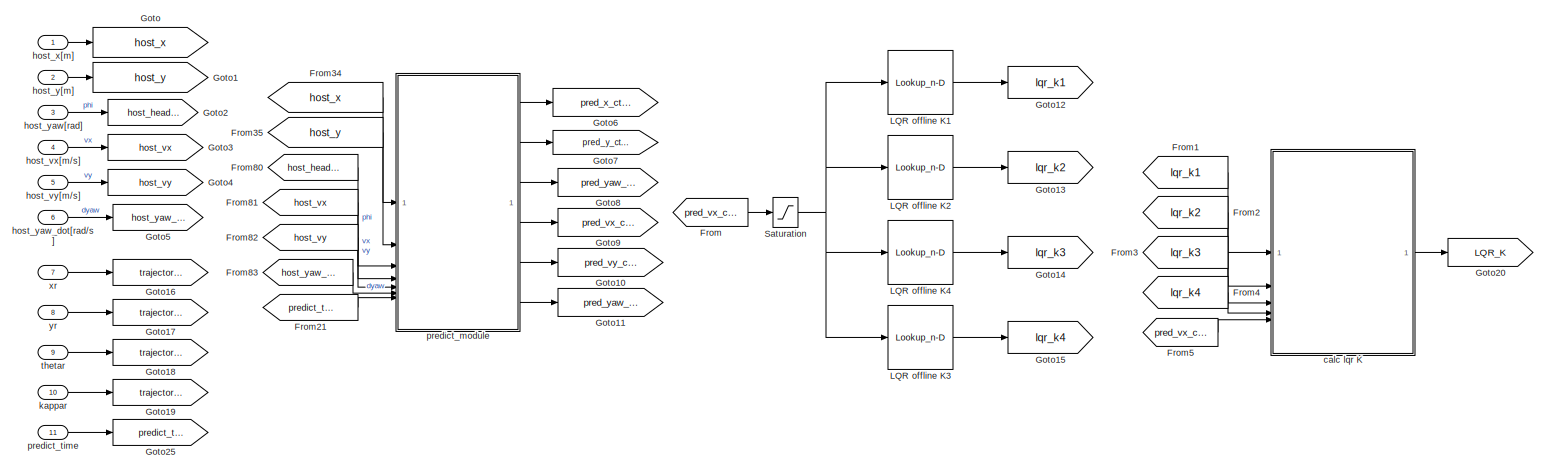
[diagram: modular_bus_1/control module1/control main/lateral control LQR - part 1/3, top left region]
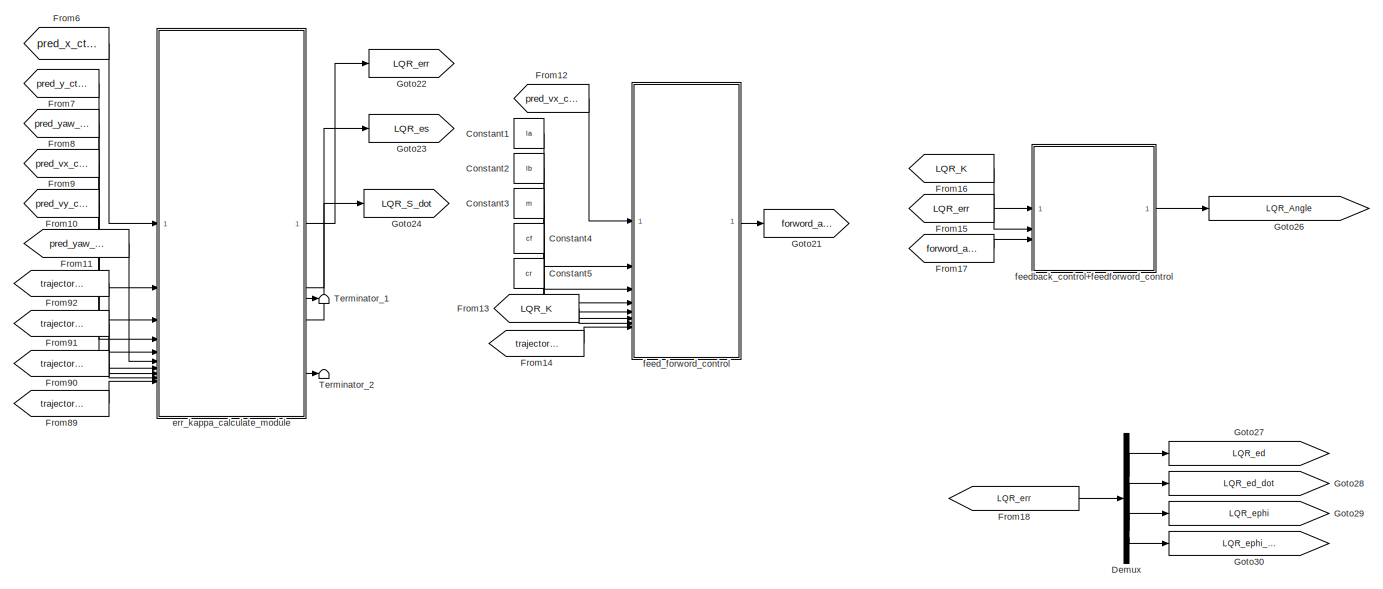
[diagram: modular_bus_1/control module1/control main/lateral control LQR - part 2/3, top center region]
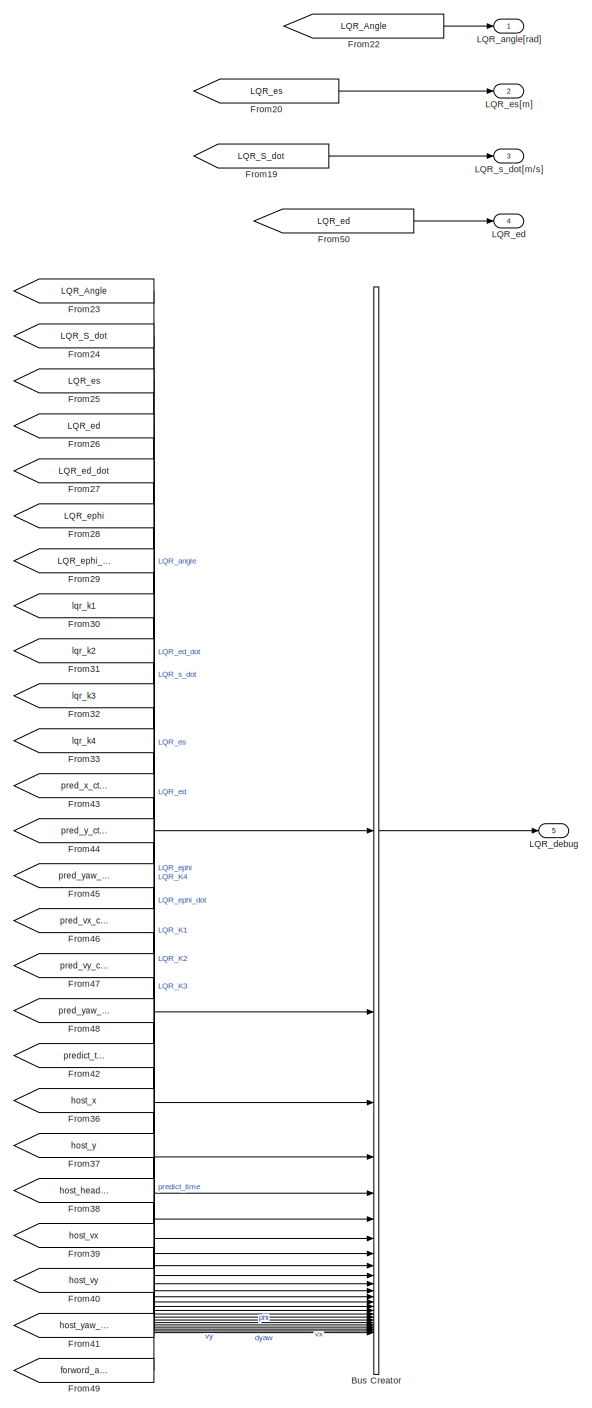
[diagram: modular_bus_1/control module1/control main/lateral control LQR - part 3/3, right side, full height]
BLOCK [SubSystem] modular_bus_1/control module1/control main/lateral control LQR
BLOCK [BusCreator] modular_bus_1/control module1/control main/lateral control LQR/Bus Creator
  DisplayOption = bar
  InheritFromInputs = on
  Inputs = 25
BLOCK [Constant] modular_bus_1/control module1/control main/lateral control LQR/Constant1
  Value = la
BLOCK [Constant] modular_bus_1/control module1/control main/lateral control LQR/Constant2
  Value = lb
BLOCK [Constant] modular_bus_1/control module1/control main/lateral control LQR/Constant3
  Value = m
BLOCK [Constant] modular_bus_1/control module1/control main/lateral control LQR/Constant4
  Value = cf
BLOCK [Constant] modular_bus_1/control module1/control main/lateral control LQR/Constant5
  Value = cr
BLOCK [Demux] modular_bus_1/control module1/control main/lateral control LQR/Demux
BLOCK [From] modular_bus_1/control module1/control main/lateral control LQR/From
  GotoTag = pred_vx_ctrl
BLOCK [From] modular_bus_1/control module1/control main/lateral control LQR/From1
  GotoTag = lqr_k1
BLOCK [From] modular_bus_1/control module1/control main/lateral control LQR/From10
  GotoTag = pred_vy_ctrl
BLOCK [From] modular_bus_1/control module1/control main/lateral control LQR/From11
  GotoTag = pred_yaw_dot_ctrl
BLOCK [From] modular_bus_1/control module1/control main/lateral control LQR/From12
  GotoTag = pred_vx_ctrl
BLOCK [From] modular_bus_1/control module1/control main/lateral control LQR/From13
  GotoTag = LQR_K
BLOCK [From] modular_bus_1/control module1/control main/lateral control LQR/From14
  GotoTag = trajectory_kappar
BLOCK [From] modular_bus_1/control module1/control main/lateral control LQR/From15
  GotoTag = LQR_err
BLOCK [From] modular_bus_1/control module1/control main/lateral control LQR/From16
  GotoTag = LQR_K
BLOCK [From] modular_bus_1/control module1/control main/lateral control LQR/From17
  GotoTag = forword_angle
BLOCK [From] modular_bus_1/control module1/control main/lateral control LQR/From18
  GotoTag = LQR_err
BLOCK [From] modular_bus_1/control module1/control main/lateral control LQR/From19
  GotoTag = LQR_S_dot
BLOCK [From] modular_bus_1/control module1/control main/lateral control LQR/From2
  GotoTag = lqr_k2
BLOCK [From] modular_bus_1/control module1/control main/lateral control LQR/From20
  GotoTag = LQR_es
BLOCK [From] modular_bus_1/control module1/control main/lateral control LQR/From21
  GotoTag = predict_time
BLOCK [From] modular_bus_1/control module1/control main/lateral control LQR/From22
  GotoTag = LQR_Angle
BLOCK [From] modular_bus_1/control module1/control main/lateral control LQR/From23
  GotoTag = LQR_Angle
  NameLocation = top
BLOCK [From] modular_bus_1/control module1/control main/lateral control LQR/From24
  GotoTag = LQR_S_dot
  NameLocation = top
BLOCK [From] modular_bus_1/control module1/control main/lateral control LQR/From25
  GotoTag = LQR_es
  NameLocation = top
BLOCK [From] modular_bus_1/control module1/control main/lateral control LQR/From26
  GotoTag = LQR_ed
  NameLocation = top
BLOCK [From] modular_bus_1/control module1/control main/lateral control LQR/From27
  GotoTag = LQR_ed_dot
  NameLocation = top
BLOCK [From] modular_bus_1/control module1/control main/lateral control LQR/From28
  GotoTag = LQR_ephi
  NameLocation = top
BLOCK [From] modular_bus_1/control module1/control main/lateral control LQR/From29
  GotoTag = LQR_ephi_dot
  NameLocation = top
BLOCK [From] modular_bus_1/control module1/control main/lateral control LQR/From3
  GotoTag = lqr_k3
BLOCK [From] modular_bus_1/control module1/control main/lateral control LQR/From30
  GotoTag = lqr_k1
  NameLocation = top
BLOCK [From] modular_bus_1/control module1/control main/lateral control LQR/From31
  GotoTag = lqr_k2
  NameLocation = top
BLOCK [From] modular_bus_1/control module1/control main/lateral control LQR/From32
  GotoTag = lqr_k3
  NameLocation = top
BLOCK [From] modular_bus_1/control module1/control main/lateral control LQR/From33
  GotoTag = lqr_k4
  NameLocation = top
BLOCK [From] modular_bus_1/control module1/control main/lateral control LQR/From34
  GotoTag = host_x
BLOCK [From] modular_bus_1/control module1/control main/lateral control LQR/From35
  GotoTag = host_y
BLOCK [From] modular_bus_1/control module1/control main/lateral control LQR/From36
  GotoTag = host_x
  NameLocation = top
BLOCK [From] modular_bus_1/control module1/control main/lateral control LQR/From37
  GotoTag = host_y
  NameLocation = top
BLOCK [From] modular_bus_1/control module1/control main/lateral control LQR/From38
  GotoTag = host_heading_xy
  NameLocation = top
BLOCK [From] modular_bus_1/control module1/control main/lateral control LQR/From39
  GotoTag = host_vx
  NameLocation = top
BLOCK [From] modular_bus_1/control module1/control main/lateral control LQR/From4
  GotoTag = lqr_k4
BLOCK [From] modular_bus_1/control module1/control main/lateral control LQR/From40
  GotoTag = host_vy
  NameLocation = top
BLOCK [From] modular_bus_1/control module1/control main/lateral control LQR/From41
  GotoTag = host_yaw_rate
  NameLocation = top
BLOCK [From] modular_bus_1/control module1/control main/lateral control LQR/From42
  GotoTag = predict_time
  NameLocation = top
BLOCK [From] modular_bus_1/control module1/control main/lateral control LQR/From43
  GotoTag = pred_x_ctrl
  NameLocation = top
BLOCK [From] modular_bus_1/control module1/control main/lateral control LQR/From44
  GotoTag = pred_y_ctrl
  NameLocation = top
BLOCK [From] modular_bus_1/control module1/control main/lateral control LQR/From45
  GotoTag = pred_yaw_ctrl
  NameLocation = top
BLOCK [From] modular_bus_1/control module1/control main/lateral control LQR/From46
  GotoTag = pred_vx_ctrl
  NameLocation = top
BLOCK [From] modular_bus_1/control module1/control main/lateral control LQR/From47
  GotoTag = pred_vy_ctrl
  NameLocation = top
BLOCK [From] modular_bus_1/control module1/control main/lateral control LQR/From48
  GotoTag = pred_yaw_dot_ctrl
  NameLocation = top
BLOCK [From] modular_bus_1/control module1/control main/lateral control LQR/From49
  GotoTag = forword_angle
  NameLocation = top
BLOCK [From] modular_bus_1/control module1/control main/lateral control LQR/From5
  GotoTag = pred_vx_ctrl
BLOCK [From] modular_bus_1/control module1/control main/lateral control LQR/From50
  GotoTag = LQR_ed
BLOCK [From] modular_bus_1/control module1/control main/lateral control LQR/From6
  GotoTag = pred_x_ctrl
BLOCK [From] modular_bus_1/control module1/control main/lateral control LQR/From7
  GotoTag = pred_y_ctrl
BLOCK [From] modular_bus_1/control module1/control main/lateral control LQR/From8
  GotoTag = pred_yaw_ctrl
BLOCK [From] modular_bus_1/control module1/control main/lateral control LQR/From80
  GotoTag = host_heading_xy
BLOCK [From] modular_bus_1/control module1/control main/lateral control LQR/From81
  GotoTag = host_vx
BLOCK [From] modular_bus_1/control module1/control main/lateral control LQR/From82
  GotoTag = host_vy
BLOCK [From] modular_bus_1/control module1/control main/lateral control LQR/From83
  GotoTag = host_yaw_rate
BLOCK [From] modular_bus_1/control module1/control main/lateral control LQR/From89
  GotoTag = trajectory_kappar
BLOCK [From] modular_bus_1/control module1/control main/lateral control LQR/From9
  GotoTag = pred_vx_ctrl
BLOCK [From] modular_bus_1/control module1/control main/lateral control LQR/From90
  GotoTag = trajectory_thetar
BLOCK [From] modular_bus_1/control module1/control main/lateral control LQR/From91
  GotoTag = trajectory_yr
BLOCK [From] modular_bus_1/control module1/control main/lateral control LQR/From92
  GotoTag = trajectory_xr
BLOCK [Goto] modular_bus_1/control module1/control main/lateral control LQR/Goto
  GotoTag = host_x
BLOCK [Goto] modular_bus_1/control module1/control main/lateral control LQR/Goto1
  GotoTag = host_y
BLOCK [Goto] modular_bus_1/control module1/control main/lateral control LQR/Goto10
  GotoTag = pred_vy_ctrl
BLOCK [Goto] modular_bus_1/control module1/control main/lateral control LQR/Goto11
  GotoTag = pred_yaw_dot_ctrl
BLOCK [Goto] modular_bus_1/control module1/control main/lateral control LQR/Goto12
  GotoTag = lqr_k1
BLOCK [Goto] modular_bus_1/control module1/control main/lateral control LQR/Goto13
  GotoTag = lqr_k2
BLOCK [Goto] modular_bus_1/control module1/control main/lateral control LQR/Goto14
  GotoTag = lqr_k3
BLOCK [Goto] modular_bus_1/control module1/control main/lateral control LQR/Goto15
  GotoTag = lqr_k4
BLOCK [Goto] modular_bus_1/control module1/control main/lateral control LQR/Goto16
  GotoTag = trajectory_xr
BLOCK [Goto] modular_bus_1/control module1/control main/lateral control LQR/Goto17
  GotoTag = trajectory_yr
BLOCK [Goto] modular_bus_1/control module1/control main/lateral control LQR/Goto18
  GotoTag = trajectory_thetar
BLOCK [Goto] modular_bus_1/control module1/control main/lateral control LQR/Goto19
  GotoTag = trajectory_kappar
BLOCK [Goto] modular_bus_1/control module1/control main/lateral control LQR/Goto2
  GotoTag = host_heading_xy
BLOCK [Goto] modular_bus_1/control module1/control main/lateral control LQR/Goto20
  GotoTag = LQR_K
BLOCK [Goto] modular_bus_1/control module1/control main/lateral control LQR/Goto21
  GotoTag = forword_angle
BLOCK [Goto] modular_bus_1/control module1/control main/lateral control LQR/Goto22
  GotoTag = LQR_err
BLOCK [Goto] modular_bus_1/control module1/control main/lateral control LQR/Goto23
  GotoTag = LQR_es
BLOCK [Goto] modular_bus_1/control module1/control main/lateral control LQR/Goto24
  GotoTag = LQR_S_dot
BLOCK [Goto] modular_bus_1/control module1/control main/lateral control LQR/Goto25
  GotoTag = predict_time
BLOCK [Goto] modular_bus_1/control module1/control main/lateral control LQR/Goto26
  GotoTag = LQR_Angle
BLOCK [Goto] modular_bus_1/control module1/control main/lateral control LQR/Goto27
  GotoTag = LQR_ed
BLOCK [Goto] modular_bus_1/control module1/control main/lateral control LQR/Goto28
  GotoTag = LQR_ed_dot
BLOCK [Goto] modular_bus_1/control module1/control main/lateral control LQR/Goto29
  GotoTag = LQR_ephi
BLOCK [Goto] modular_bus_1/control module1/control main/lateral control LQR/Goto3
  GotoTag = host_vx
BLOCK [Goto] modular_bus_1/control module1/control main/lateral control LQR/Goto30
  GotoTag = LQR_ephi_dot
BLOCK [Goto] modular_bus_1/control module1/control main/lateral control LQR/Goto4
  GotoTag = host_vy
BLOCK [Goto] modular_bus_1/control module1/control main/lateral control LQR/Goto5
  GotoTag = host_yaw_rate
BLOCK [Goto] modular_bus_1/control module1/control main/lateral control LQR/Goto6
  GotoTag = pred_x_ctrl
BLOCK [Goto] modular_bus_1/control module1/control main/lateral control LQR/Goto7
  GotoTag = pred_y_ctrl
BLOCK [Goto] modular_bus_1/control module1/control main/lateral control LQR/Goto8
  GotoTag = pred_yaw_ctrl
BLOCK [Goto] modular_bus_1/control module1/control main/lateral control LQR/Goto9
  GotoTag = pred_vx_ctrl
BLOCK [Lookup_n-D] modular_bus_1/control module1/control main/lateral control LQR/LQR offline K1
  BreakpointsForDimension1 = vx_break_point
  InputPortMap = u0
  InternalRulePriority = Speed
  NumberOfTableDimensions = 1
  RndMeth = Simplest
  Table = LQR_K1
BLOCK [Lookup_n-D] modular_bus_1/control module1/control main/lateral control LQR/LQR offline K2
  BreakpointsForDimension1 = vx_break_point
  InputPortMap = u0
  InternalRulePriority = Speed
  NumberOfTableDimensions = 1
  RndMeth = Simplest
  Table = LQR_K2
BLOCK [Lookup_n-D] modular_bus_1/control module1/control main/lateral control LQR/LQR offline K3
  BreakpointsForDimension1 = vx_break_point
  InputPortMap = u0
  InternalRulePriority = Speed
  NumberOfTableDimensions = 1
  RndMeth = Simplest
  Table = LQR_K3
BLOCK [Lookup_n-D] modular_bus_1/control module1/control main/lateral control LQR/LQR offline K4
  BreakpointsForDimension1 = vx_break_point
  InputPortMap = u0
  InternalRulePriority = Speed
  NumberOfTableDimensions = 1
  RndMeth = Simplest
  Table = LQR_K4
BLOCK [Outport] modular_bus_1/control module1/control main/lateral control LQR/LQR_angle[rad]
  VectorParamsAs1DForOutWhenUnconnected = off
BLOCK [Outport] modular_bus_1/control module1/control main/lateral control LQR/LQR_debug
  Port = 5
  VectorParamsAs1DForOutWhenUnconnected = off
BLOCK [Outport] modular_bus_1/control module1/control main/lateral control LQR/LQR_ed
  Port = 4
  VectorParamsAs1DForOutWhenUnconnected = off
BLOCK [Outport] modular_bus_1/control module1/control main/lateral control LQR/LQR_es[m]
  Port = 2
  VectorParamsAs1DForOutWhenUnconnected = off
BLOCK [Outport] modular_bus_1/control module1/control main/lateral control LQR/LQR_s_dot[m//s]
  Port = 3
  VectorParamsAs1DForOutWhenUnconnected = off
BLOCK [Saturate] modular_bus_1/control module1/control main/lateral control LQR/Saturation
  LowerLimit = 0
  UpperLimit = 50
BLOCK [Terminator] modular_bus_1/control module1/control main/lateral control LQR/Terminator_1
BLOCK [Terminator] modular_bus_1/control module1/control main/lateral control LQR/Terminator_2
BLOCK [SubSystem] modular_bus_1/control module1/control main/lateral control LQR/calc lqr K
  ErrorFcn = Stateflow.Translate.translate
  PermitHierarchicalResolution = ExplicitOnly
  SFBlockType = MATLAB Function
  TreatAsAtomicUnit = on
BLOCK [Demux] modular_bus_1/control module1/control main/lateral control LQR/calc lqr K/ Demux 
  Outputs = 1
BLOCK [S-Function] modular_bus_1/control module1/control main/lateral control LQR/calc lqr K/ SFunction 
  EnableBusSupport = on
  FunctionName = sf_sfun
  PortCounts = [5 2]
  SFcnIsStateOwnerBlock = off
  SFunctionDeploymentMode = off
  Tag = Stateflow S-Function 50
BLOCK [Terminator] modular_bus_1/control module1/control main/lateral control LQR/calc lqr K/ Terminator 
BLOCK [Outport] modular_bus_1/control module1/control main/lateral control LQR/calc lqr K/k
  VectorParamsAs1DForOutWhenUnconnected = off
BLOCK [Inport] modular_bus_1/control module1/control main/lateral control LQR/calc lqr K/k1
BLOCK [Inport] modular_bus_1/control module1/control main/lateral control LQR/calc lqr K/k2
  Port = 2
BLOCK [Inport] modular_bus_1/control module1/control main/lateral control LQR/calc lqr K/k3
  Port = 3
BLOCK [Inport] modular_bus_1/control module1/control main/lateral control LQR/calc lqr K/k4
  Port = 4
BLOCK [Inport] modular_bus_1/control module1/control main/lateral control LQR/calc lqr K/vx
  Port = 5
BLOCK [SubSystem] modular_bus_1/control module1/control main/lateral control LQR/err_kappa_calculate_module
  ErrorFcn = Stateflow.Translate.translate
  PermitHierarchicalResolution = ExplicitOnly
  SFBlockType = MATLAB Function
  TreatAsAtomicUnit = on
BLOCK [Demux] modular_bus_1/control module1/control main/lateral control LQR/err_kappa_calculate_module/ Demux 
  Outputs = 1
BLOCK [S-Function] modular_bus_1/control module1/control main/lateral control LQR/err_kappa_calculate_module/ SFunction 
  EnableBusSupport = on
  FunctionName = sf_sfun
  PortCounts = [10 6]
  SFcnIsStateOwnerBlock = off
  SFunctionDeploymentMode = off
  Tag = Stateflow S-Function 55
BLOCK [Terminator] modular_bus_1/control module1/control main/lateral control LQR/err_kappa_calculate_module/ Terminator 
BLOCK [Outport] modular_bus_1/control module1/control main/lateral control LQR/err_kappa_calculate_module/err
  VectorParamsAs1DForOutWhenUnconnected = off
BLOCK [Outport] modular_bus_1/control module1/control main/lateral control LQR/err_kappa_calculate_module/es
  Port = 2
  VectorParamsAs1DForOutWhenUnconnected = off
BLOCK [Inport] modular_bus_1/control module1/control main/lateral control LQR/err_kappa_calculate_module/kappar
  Port = 10
BLOCK [Outport] modular_bus_1/control module1/control main/lateral control LQR/err_kappa_calculate_module/phi
  Port = 4
BLOCK [Inport] modular_bus_1/control module1/control main/lateral control LQR/err_kappa_calculate_module/phi 
  Port = 3
BLOCK [Inport] modular_bus_1/control module1/control main/lateral control LQR/err_kappa_calculate_module/phi_dot
  Port = 6
BLOCK [Outport] modular_bus_1/control module1/control main/lateral control LQR/err_kappa_calculate_module/projection_point_thetar
  Port = 5
BLOCK [Outport] modular_bus_1/control module1/control main/lateral control LQR/err_kappa_calculate_module/s_dot
  Port = 3
  VectorParamsAs1DForOutWhenUnconnected = off
BLOCK [Inport] modular_bus_1/control module1/control main/lateral control LQR/err_kappa_calculate_module/thetar
  Port = 9
BLOCK [Inport] modular_bus_1/control module1/control main/lateral control LQR/err_kappa_calculate_module/vx
  Port = 4
BLOCK [Inport] modular_bus_1/control module1/control main/lateral control LQR/err_kappa_calculate_module/vy
  Port = 5
BLOCK [Inport] modular_bus_1/control module1/control main/lateral control LQR/err_kappa_calculate_module/x
BLOCK [Inport] modular_bus_1/control module1/control main/lateral control LQR/err_kappa_calculate_module/xr
  Port = 7
BLOCK [Inport] modular_bus_1/control module1/control main/lateral control LQR/err_kappa_calculate_module/y
  Port = 2
BLOCK [Inport] modular_bus_1/control module1/control main/lateral control LQR/err_kappa_calculate_module/yr
  Port = 8
BLOCK [SubSystem] modular_bus_1/control module1/control main/lateral control LQR/feed_forword_control
  ErrorFcn = Stateflow.Translate.translate
  PermitHierarchicalResolution = ExplicitOnly
  SFBlockType = MATLAB Function
  TreatAsAtomicUnit = on
BLOCK [Demux] modular_bus_1/control module1/control main/lateral control LQR/feed_forword_control/ Demux 
  Outputs = 1
BLOCK [S-Function] modular_bus_1/control module1/control main/lateral control LQR/feed_forword_control/ SFunction 
  EnableBusSupport = on
  FunctionName = sf_sfun
  PortCounts = [8 2]
  SFcnIsStateOwnerBlock = off
  SFunctionDeploymentMode = off
  Tag = Stateflow S-Function 56
BLOCK [Terminator] modular_bus_1/control module1/control main/lateral control LQR/feed_forword_control/ Terminator 
BLOCK [Inport] modular_bus_1/control module1/control main/lateral control LQR/feed_forword_control/a
  Port = 2
BLOCK [Inport] modular_bus_1/control module1/control main/lateral control LQR/feed_forword_control/b
  Port = 3
BLOCK [Inport] modular_bus_1/control module1/control main/lateral control LQR/feed_forword_control/cf
  Port = 5
BLOCK [Inport] modular_bus_1/control module1/control main/lateral control LQR/feed_forword_control/cr
  Port = 6
BLOCK [Outport] modular_bus_1/control module1/control main/lateral control LQR/feed_forword_control/forword_angle
  VectorParamsAs1DForOutWhenUnconnected = off
BLOCK [Inport] modular_bus_1/control module1/control main/lateral control LQR/feed_forword_control/k
  Port = 7
BLOCK [Inport] modular_bus_1/control module1/control main/lateral control LQR/feed_forword_control/kr
  Port = 8
BLOCK [Inport] modular_bus_1/control module1/control main/lateral control LQR/feed_forword_control/m
  Port = 4
BLOCK [Inport] modular_bus_1/control module1/control main/lateral control LQR/feed_forword_control/vx
BLOCK [SubSystem] modular_bus_1/control module1/control main/lateral control LQR/feedback_control+feedforword_control
  ErrorFcn = Stateflow.Translate.translate
  PermitHierarchicalResolution = ExplicitOnly
  SFBlockType = MATLAB Function
  TreatAsAtomicUnit = on
BLOCK [Demux] modular_bus_1/control module1/control main/lateral control LQR/feedback_control+feedforword_control/ Demux 
  Outputs = 1
BLOCK [S-Function] modular_bus_1/control module1/control main/lateral control LQR/feedback_control+feedforword_control/ SFunction 
  EnableBusSupport = on
  FunctionName = sf_sfun
  PortCounts = [3 2]
  SFcnIsStateOwnerBlock = off
  SFunctionDeploymentMode = off
  Tag = Stateflow S-Function 57
BLOCK [Terminator] modular_bus_1/control module1/control main/lateral control LQR/feedback_control+feedforword_control/ Terminator 
BLOCK [Outport] modular_bus_1/control module1/control main/lateral control LQR/feedback_control+feedforword_control/angle
  VectorParamsAs1DForOutWhenUnconnected = off
BLOCK [Inport] modular_bus_1/control module1/control main/lateral control LQR/feedback_control+feedforword_control/err
  Port = 2
BLOCK [Inport] modular_bus_1/control module1/control main/lateral control LQR/feedback_control+feedforword_control/forword_angle
  Port = 3
BLOCK [Inport] modular_bus_1/control module1/control main/lateral control LQR/feedback_control+feedforword_control/k
BLOCK [Inport] modular_bus_1/control module1/control main/lateral control LQR/host_vx[m//s]
  Port = 4
BLOCK [Inport] modular_bus_1/control module1/control main/lateral control LQR/host_vy[m//s]
  Port = 5
BLOCK [Inport] modular_bus_1/control module1/control main/lateral control LQR/host_x[m]
BLOCK [Inport] modular_bus_1/control module1/control main/lateral control LQR/host_y[m]
  Port = 2
BLOCK [Inport] modular_bus_1/control module1/control main/lateral control LQR/host_yaw[rad]
  Port = 3
BLOCK [Inport] modular_bus_1/control module1/control main/lateral control LQR/host_yaw_dot[rad//s]
  Port = 6
BLOCK [Inport] modular_bus_1/control module1/control main/lateral control LQR/kappar
  Port = 10
BLOCK [SubSystem] modular_bus_1/control module1/control main/lateral control LQR/predict_module
  ErrorFcn = Stateflow.Translate.translate
  PermitHierarchicalResolution = ExplicitOnly
  SFBlockType = MATLAB Function
  TreatAsAtomicUnit = on
BLOCK [Demux] modular_bus_1/control module1/control main/lateral control LQR/predict_module/ Demux 
  Outputs = 1
BLOCK [S-Function] modular_bus_1/control module1/control main/lateral control LQR/predict_module/ SFunction 
  EnableBusSupport = on
  FunctionName = sf_sfun
  PortCounts = [7 7]
  SFcnIsStateOwnerBlock = off
  SFunctionDeploymentMode = off
  Tag = Stateflow S-Function 58
BLOCK [Terminator] modular_bus_1/control module1/control main/lateral control LQR/predict_module/ Terminator 
BLOCK [Inport] modular_bus_1/control module1/control main/lateral control LQR/predict_module/phi
  Port = 3
BLOCK [Inport] modular_bus_1/control module1/control main/lateral control LQR/predict_module/phi_dot
  Port = 6
BLOCK [Outport] modular_bus_1/control module1/control main/lateral control LQR/predict_module/pred_vx_ctrl
  Port = 4
  VectorParamsAs1DForOutWhenUnconnected = off
BLOCK [Outport] modular_bus_1/control module1/control main/lateral control LQR/predict_module/pred_vy_ctrl
  Port = 5
  VectorParamsAs1DForOutWhenUnconnected = off
BLOCK [Outport] modular_bus_1/control module1/control main/lateral control LQR/predict_module/pred_x_ctrl
  VectorParamsAs1DForOutWhenUnconnected = off
BLOCK [Outport] modular_bus_1/control module1/control main/lateral control LQR/predict_module/pred_y_ctrl
  Port = 2
  VectorParamsAs1DForOutWhenUnconnected = off
BLOCK [Outport] modular_bus_1/control module1/control main/lateral control LQR/predict_module/pred_yaw_ctrl
  Port = 3
  VectorParamsAs1DForOutWhenUnconnected = off
BLOCK [Outport] modular_bus_1/control module1/control main/lateral control LQR/predict_module/pred_yaw_dot_ctrl
  Port = 6
  VectorParamsAs1DForOutWhenUnconnected = off
BLOCK [Inport] modular_bus_1/control module1/control main/lateral control LQR/predict_module/ts
  Port = 7
BLOCK [Inport] modular_bus_1/control module1/control main/lateral control LQR/predict_module/vx
  Port = 4
BLOCK [Inport] modular_bus_1/control module1/control main/lateral control LQR/predict_module/vy
  Port = 5
BLOCK [Inport] modular_bus_1/control module1/control main/lateral control LQR/predict_module/x
BLOCK [Inport] modular_bus_1/control module1/control main/lateral control LQR/predict_module/y
  Port = 2
BLOCK [Inport] modular_bus_1/control module1/control main/lateral control LQR/predict_time
  Port = 11
BLOCK [Inport] modular_bus_1/control module1/control main/lateral control LQR/thetar
  Port = 9
BLOCK [Inport] modular_bus_1/control module1/control main/lateral control LQR/xr
  Port = 7
BLOCK [Inport] modular_bus_1/control module1/control main/lateral control LQR/yr
  Port = 8
BLOCK [Outport] modular_bus_1/control module1/control main/lateral_steer_sw
BLOCK [SubSystem] modular_bus_1/control module1/control main/longitudinal control double PID
BLOCK [Lookup_n-D] modular_bus_1/control module1/control main/longitudinal control double PID/2-D Lookup Table
  BreakpointsForDimension1 = vubr
  BreakpointsForDimension2 = aubr
  InputPortMap = u0,u1
  InternalRulePriority = Speed
  RndMeth = Simplest
  Table = tablebr
BLOCK [Sum] modular_bus_1/control module1/control main/longitudinal control double PID/Add
  IconShape = rectangular
  Inputs = ++-
BLOCK [Sum] modular_bus_1/control module1/control main/longitudinal control double PID/Add1
  IconShape = rectangular
BLOCK [BusCreator] modular_bus_1/control module1/control main/longitudinal control double PID/Bus Creator
  DisplayOption = bar
  InheritFromInputs = on
  Inputs = 9
BLOCK [DiscreteFilter] modular_bus_1/control module1/control main/longitudinal control double PID/Discrete Filter
  InputPortMap = u0
BLOCK [From] modular_bus_1/control module1/control main/longitudinal control double PID/From
  GotoTag = s_err
BLOCK [From] modular_bus_1/control module1/control main/longitudinal control double PID/From1
  GotoTag = KP_PID_distance
BLOCK [From] modular_bus_1/control module1/control main/longitudinal control double PID/From10
  GotoTag = host_speed
BLOCK [From] modular_bus_1/control module1/control main/longitudinal control double PID/From11
  GotoTag = KP_PID_distance
BLOCK [From] modular_bus_1/control module1/control main/longitudinal control double PID/From12
  GotoTag = KI_PID_distance
BLOCK [From] modular_bus_1/control module1/control main/longitudinal control double PID/From13
  GotoTag = KD_PID_distance
BLOCK [From] modular_bus_1/control module1/control main/longitudinal control double PID/From14
  GotoTag = KP_PID_speed
BLOCK [From] modular_bus_1/control module1/control main/longitudinal control double PID/From15
  GotoTag = KI_PID_speed
BLOCK [From] modular_bus_1/control module1/control main/longitudinal control double PID/From16
  GotoTag = KD_PID_speed
BLOCK [From] modular_bus_1/control module1/control main/longitudinal control double PID/From17
  GotoTag = host_speed
BLOCK [From] modular_bus_1/control module1/control main/longitudinal control double PID/From18
  GotoTag = s_err
BLOCK [From] modular_bus_1/control module1/control main/longitudinal control double PID/From19
  GotoTag = host_s_dot
BLOCK [From] modular_bus_1/control module1/control main/longitudinal control double PID/From2
  GotoTag = KI_PID_distance
BLOCK [From] modular_bus_1/control module1/control main/longitudinal control double PID/From3
  GotoTag = KD_PID_distance
BLOCK [From] modular_bus_1/control module1/control main/longitudinal control double PID/From4
  GotoTag = KP_PID_speed
BLOCK [From] modular_bus_1/control module1/control main/longitudinal control double PID/From5
  GotoTag = KI_PID_speed
BLOCK [From] modular_bus_1/control module1/control main/longitudinal control double PID/From6
  GotoTag = KD_PID_speed
BLOCK [From] modular_bus_1/control module1/control main/longitudinal control double PID/From7
  GotoTag = speed_desire
BLOCK [From] modular_bus_1/control module1/control main/longitudinal control double PID/From8
  GotoTag = host_s_dot
BLOCK [From] modular_bus_1/control module1/control main/longitudinal control double PID/From9
  GotoTag = accelerate_desire
BLOCK [Goto] modular_bus_1/control module1/control main/longitudinal control double PID/Goto
  GotoTag = s_err
BLOCK [Goto] modular_bus_1/control module1/control main/longitudinal control double PID/Goto1
  GotoTag = speed_desire
BLOCK [Goto] modular_bus_1/control module1/control main/longitudinal control double PID/Goto10
  GotoTag = host_s_dot
BLOCK [Goto] modular_bus_1/control module1/control main/longitudinal control double PID/Goto2
  GotoTag = accelerate_desire
BLOCK [Goto] modular_bus_1/control module1/control main/longitudinal control double PID/Goto3
  GotoTag = KP_PID_distance
BLOCK [Goto] modular_bus_1/control module1/control main/longitudinal control double PID/Goto4
  GotoTag = KI_PID_distance
BLOCK [Goto] modular_bus_1/control module1/control main/longitudinal control double PID/Goto5
  GotoTag = KD_PID_distance
BLOCK [Goto] modular_bus_1/control module1/control main/longitudinal control double PID/Goto6
  GotoTag = KP_PID_speed
BLOCK [Goto] modular_bus_1/control module1/control main/longitudinal control double PID/Goto7
  GotoTag = KI_PID_speed
BLOCK [Goto] modular_bus_1/control module1/control main/longitudinal control double PID/Goto8
  GotoTag = KD_PID_speed
BLOCK [Goto] modular_bus_1/control module1/control main/longitudinal control double PID/Goto9
  GotoTag = host_speed
BLOCK [Inport] modular_bus_1/control module1/control main/longitudinal control double PID/KD_PID_distance
  Port = 8
BLOCK [Inport] modular_bus_1/control module1/control main/longitudinal control double PID/KD_PID_speed
  Port = 11
BLOCK [Inport] modular_bus_1/control module1/control main/longitudinal control double PID/KI_PID_distance
  Port = 7
BLOCK [Inport] modular_bus_1/control module1/control main/longitudinal control double PID/KI_PID_speed
  Port = 10
BLOCK [Inport] modular_bus_1/control module1/control main/longitudinal control double PID/KP_PID_distance
  Port = 6
BLOCK [Inport] modular_bus_1/control module1/control main/longitudinal control double PID/KP_PID_speed
  Port = 9
BLOCK [SubSystem] modular_bus_1/control module1/control main/longitudinal control double PID/MATLAB Function1
  ErrorFcn = Stateflow.Translate.translate
  PermitHierarchicalResolution = ExplicitOnly
  SFBlockType = MATLAB Function
  TreatAsAtomicUnit = on
BLOCK [Demux] modular_bus_1/control module1/control main/longitudinal control double PID/MATLAB Function1/ Demux 
  Outputs = 1
BLOCK [S-Function] modular_bus_1/control module1/control main/longitudinal control double PID/MATLAB Function1/ SFunction 
  EnableBusSupport = on
  FunctionName = sf_sfun
  PortCounts = [1 3]
  SFcnIsStateOwnerBlock = off
  SFunctionDeploymentMode = off
  Tag = Stateflow S-Function 59
BLOCK [Terminator] modular_bus_1/control module1/control main/longitudinal control double PID/MATLAB Function1/ Terminator 
BLOCK [Outport] modular_bus_1/control module1/control main/longitudinal control double PID/MATLAB Function1/brake
  Port = 2
BLOCK [Outport] modular_bus_1/control module1/control main/longitudinal control double PID/MATLAB Function1/throttle
BLOCK [Inport] modular_bus_1/control module1/control main/longitudinal control double PID/MATLAB Function1/u
BLOCK [Saturate] modular_bus_1/control module1/control main/longitudinal control double PID/Saturation
  LowerLimit = -45
  UpperLimit = 45
BLOCK [Saturate] modular_bus_1/control module1/control main/longitudinal control double PID/Saturation1
  LowerLimit = -8
  UpperLimit = 5
BLOCK [Inport] modular_bus_1/control module1/control main/longitudinal control double PID/accelerate desire[m//s^2]
  Port = 3
BLOCK [Outport] modular_bus_1/control module1/control main/longitudinal control double PID/brake
  Port = 2
BLOCK [SubSystem] modular_bus_1/control module1/control main/longitudinal control double PID/discrete pid distance
BLOCK [Sum] modular_bus_1/control module1/control main/longitudinal control double PID/discrete pid distance/Add2
  IconShape = rectangular
  Inputs = +++
BLOCK [Sum] modular_bus_1/control module1/control main/longitudinal control double PID/discrete pid distance/Add3
  IconShape = rectangular
BLOCK [Sum] modular_bus_1/control module1/control main/longitudinal control double PID/discrete pid distance/Add4
  IconShape = rectangular
  Inputs = +-
BLOCK [Delay] modular_bus_1/control module1/control main/longitudinal control double PID/discrete pid distance/Delay3
  DelayLength = 1
  InputPortMap = u0
  NameLocation = top
BLOCK [Delay] modular_bus_1/control module1/control main/longitudinal control double PID/discrete pid distance/Delay4
  DelayLength = 1
  InputPortMap = u0
BLOCK [Product] modular_bus_1/control module1/control main/longitudinal control double PID/discrete pid distance/Divide
  Inputs = **
BLOCK [Product] modular_bus_1/control module1/control main/longitudinal control double PID/discrete pid distance/Divide1
  Inputs = **
BLOCK [Product] modular_bus_1/control module1/control main/longitudinal control double PID/discrete pid distance/Divide2
  Inputs = **
BLOCK [From] modular_bus_1/control module1/control main/longitudinal control double PID/discrete pid distance/From20
  GotoTag = KP_PID_distance
BLOCK [From] modular_bus_1/control module1/control main/longitudinal control double PID/discrete pid distance/From21
  GotoTag = KI_PID_distance
BLOCK [From] modular_bus_1/control module1/control main/longitudinal control double PID/discrete pid distance/From22
  GotoTag = KD_PID_distance
BLOCK [Gain] modular_bus_1/control module1/control main/longitudinal control double PID/discrete pid distance/Gain
  Gain = 0.01
  NameLocation = top
BLOCK [Goto] modular_bus_1/control module1/control main/longitudinal control double PID/discrete pid distance/Goto
  GotoTag = KP_PID_distance
BLOCK [Goto] modular_bus_1/control module1/control main/longitudinal control double PID/discrete pid distance/Goto1
  GotoTag = KI_PID_distance
BLOCK [Goto] modular_bus_1/control module1/control main/longitudinal control double PID/discrete pid distance/Goto2
  GotoTag = KD_PID_distance
BLOCK [Inport] modular_bus_1/control module1/control main/longitudinal control double PID/discrete pid distance/err
BLOCK [Inport] modular_bus_1/control module1/control main/longitudinal control double PID/discrete pid distance/kd
  Port = 4
BLOCK [Inport] modular_bus_1/control module1/control main/longitudinal control double PID/discrete pid distance/ki
  Port = 3
BLOCK [Inport] modular_bus_1/control module1/control main/longitudinal control double PID/discrete pid distance/kp
  Port = 2
BLOCK [Outport] modular_bus_1/control module1/control main/longitudinal control double PID/discrete pid distance/pid_out
BLOCK [SubSystem] modular_bus_1/control module1/control main/longitudinal control double PID/discrete pid speed
BLOCK [Sum] modular_bus_1/control module1/control main/longitudinal control double PID/discrete pid speed/Add2
  IconShape = rectangular
  Inputs = +++
BLOCK [Sum] modular_bus_1/control module1/control main/longitudinal control double PID/discrete pid speed/Add3
  IconShape = rectangular
BLOCK [Sum] modular_bus_1/control module1/control main/longitudinal control double PID/discrete pid speed/Add4
  IconShape = rectangular
  Inputs = +-
BLOCK [Delay] modular_bus_1/control module1/control main/longitudinal control double PID/discrete pid speed/Delay3
  DelayLength = 1
  InputPortMap = u0
  NameLocation = top
BLOCK [Delay] modular_bus_1/control module1/control main/longitudinal control double PID/discrete pid speed/Delay4
  DelayLength = 1
  InputPortMap = u0
BLOCK [Product] modular_bus_1/control module1/control main/longitudinal control double PID/discrete pid speed/Divide
  Inputs = **
BLOCK [Product] modular_bus_1/control module1/control main/longitudinal control double PID/discrete pid speed/Divide1
  Inputs = **
BLOCK [Product] modular_bus_1/control module1/control main/longitudinal control double PID/discrete pid speed/Divide2
  Inputs = **
BLOCK [From] modular_bus_1/control module1/control main/longitudinal control double PID/discrete pid speed/From20
  GotoTag = KP_PID_distance
BLOCK [From] modular_bus_1/control module1/control main/longitudinal control double PID/discrete pid speed/From21
  GotoTag = KI_PID_distance
BLOCK [From] modular_bus_1/control module1/control main/longitudinal control double PID/discrete pid speed/From22
  GotoTag = KD_PID_distance
BLOCK [Gain] modular_bus_1/control module1/control main/longitudinal control double PID/discrete pid speed/Gain
  Gain = 0.01
  NameLocation = top
BLOCK [Goto] modular_bus_1/control module1/control main/longitudinal control double PID/discrete pid speed/Goto
  GotoTag = KP_PID_distance
BLOCK [Goto] modular_bus_1/control module1/control main/longitudinal control double PID/discrete pid speed/Goto1
  GotoTag = KI_PID_distance
BLOCK [Goto] modular_bus_1/control module1/control main/longitudinal control double PID/discrete pid speed/Goto2
  GotoTag = KD_PID_distance
BLOCK [Inport] modular_bus_1/control module1/control main/longitudinal control double PID/discrete pid speed/err
BLOCK [Inport] modular_bus_1/control module1/control main/longitudinal control double PID/discrete pid speed/kd
  Port = 4
BLOCK [Inport] modular_bus_1/control module1/control main/longitudinal control double PID/discrete pid speed/ki
  Port = 3
BLOCK [Inport] modular_bus_1/control module1/control main/longitudinal control double PID/discrete pid speed/kp
  Port = 2
BLOCK [Outport] modular_bus_1/control module1/control main/longitudinal control double PID/discrete pid speed/pid_out
BLOCK [Inport] modular_bus_1/control module1/control main/longitudinal control double PID/host_s_dot[m//s]
  Port = 5
BLOCK [Inport] modular_bus_1/control module1/control main/longitudinal control double PID/host_speed[m//s]
  Port = 4
BLOCK [Outport] modular_bus_1/control module1/control main/longitudinal control double PID/longitudinal_debug
  Port = 3
BLOCK [Inport] modular_bus_1/control module1/control main/longitudinal control double PID/s_err[m]
BLOCK [Inport] modular_bus_1/control module1/control main/longitudinal control double PID/speed_desire[m//s]
  Port = 2
BLOCK [Outport] modular_bus_1/control module1/control main/longitudinal control double PID/throttle
BLOCK [Inport] modular_bus_1/control module1/control main/speed_desire[m//s]
  Port = 12
BLOCK [Inport] modular_bus_1/control module1/control main/thetar_desire[rad]
  Port = 10
BLOCK [Outport] modular_bus_1/control module1/control main/throttle
  Port = 2
BLOCK [SubSystem] modular_bus_1/control module1/control main/understeer compensate
BLOCK [Sum] modular_bus_1/control module1/control main/understeer compensate/Add
  IconShape = rectangular
  Inputs = +-
BLOCK [Gain] modular_bus_1/control module1/control main/understeer compensate/Gain
  Gain = 0.01
BLOCK [Inport] modular_bus_1/control module1/control main/understeer compensate/LQR_angle
BLOCK [Outport] modular_bus_1/control module1/control main/understeer compensate/LQR_final_angle
BLOCK [ManualSwitch] modular_bus_1/control module1/control main/understeer compensate/Manual Switch
BLOCK [Inport] modular_bus_1/control module1/control main/understeer compensate/lateral err
  Port = 2
BLOCK [Inport] modular_bus_1/control module1/control main/xr_desire[m]
  Port = 8
BLOCK [Inport] modular_bus_1/control module1/control main/yr_desire[m]
  Port = 9
BLOCK [Inport] modular_bus_1/control module1/control_predict_time[s]
  Port = 3
BLOCK [Inport] modular_bus_1/control module1/current_time
  Port = 4
BLOCK [Outport] modular_bus_1/control module1/debug_control
  Port = 4
BLOCK [Outport] modular_bus_1/control module1/lateral_steer_sw
BLOCK [Inport] modular_bus_1/control module1/location_info
BLOCK [Inport] modular_bus_1/control module1/planning_result
  Port = 2
BLOCK [Outport] modular_bus_1/control module1/throttle
  Port = 2
BLOCK [SubSystem] modular_bus_1/decision&planning module
BLOCK [BusSelector] modular_bus_1/decision&planning module/Bus Selector
  OutputSignals = host_x,host_y,host_heading_xy,host_vx,host_vy,host_yawrate,host_speed
BLOCK [BusSelector] modular_bus_1/decision&planning module/Bus Selector1
  OutputSignals = referenceline_x,referenceline_y,referenceline_heading,referenceline_kappa
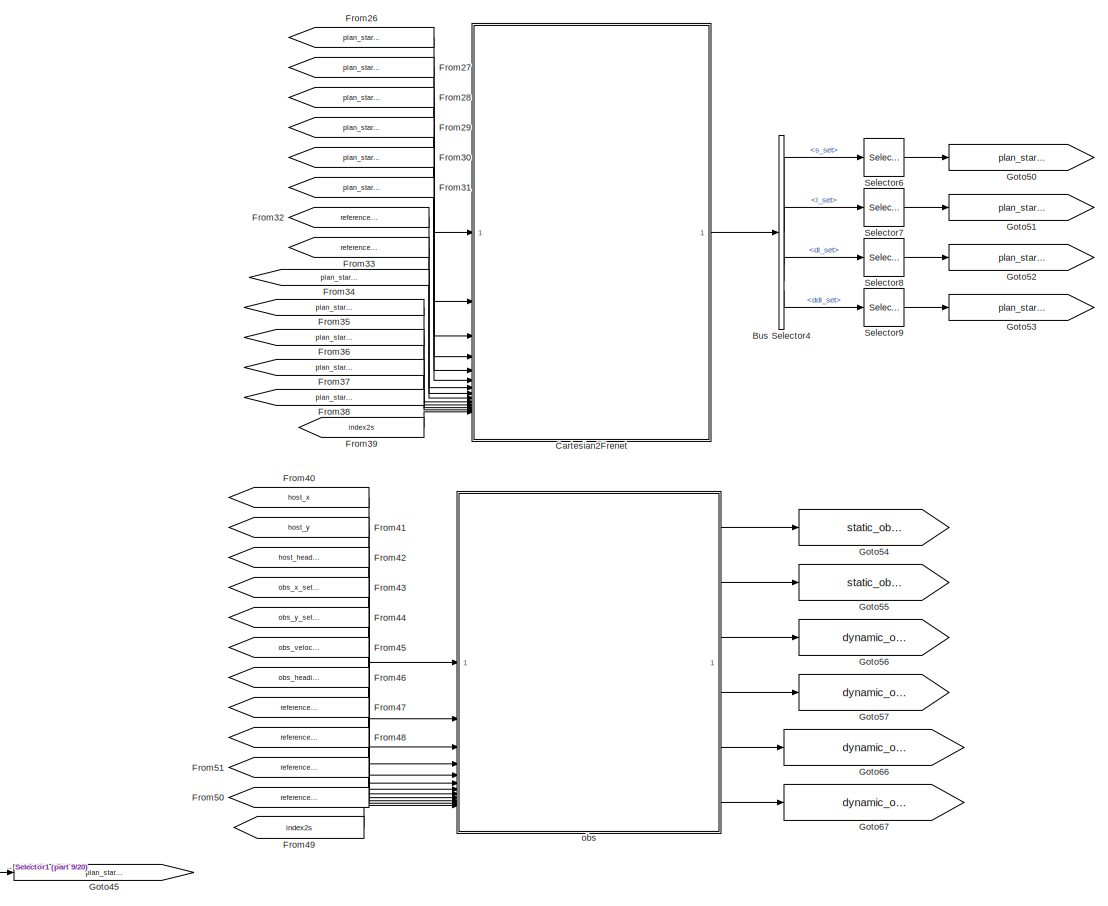
[diagram: modular_bus_1/decision&planning module/EM Planner - part 1/20, top center region]
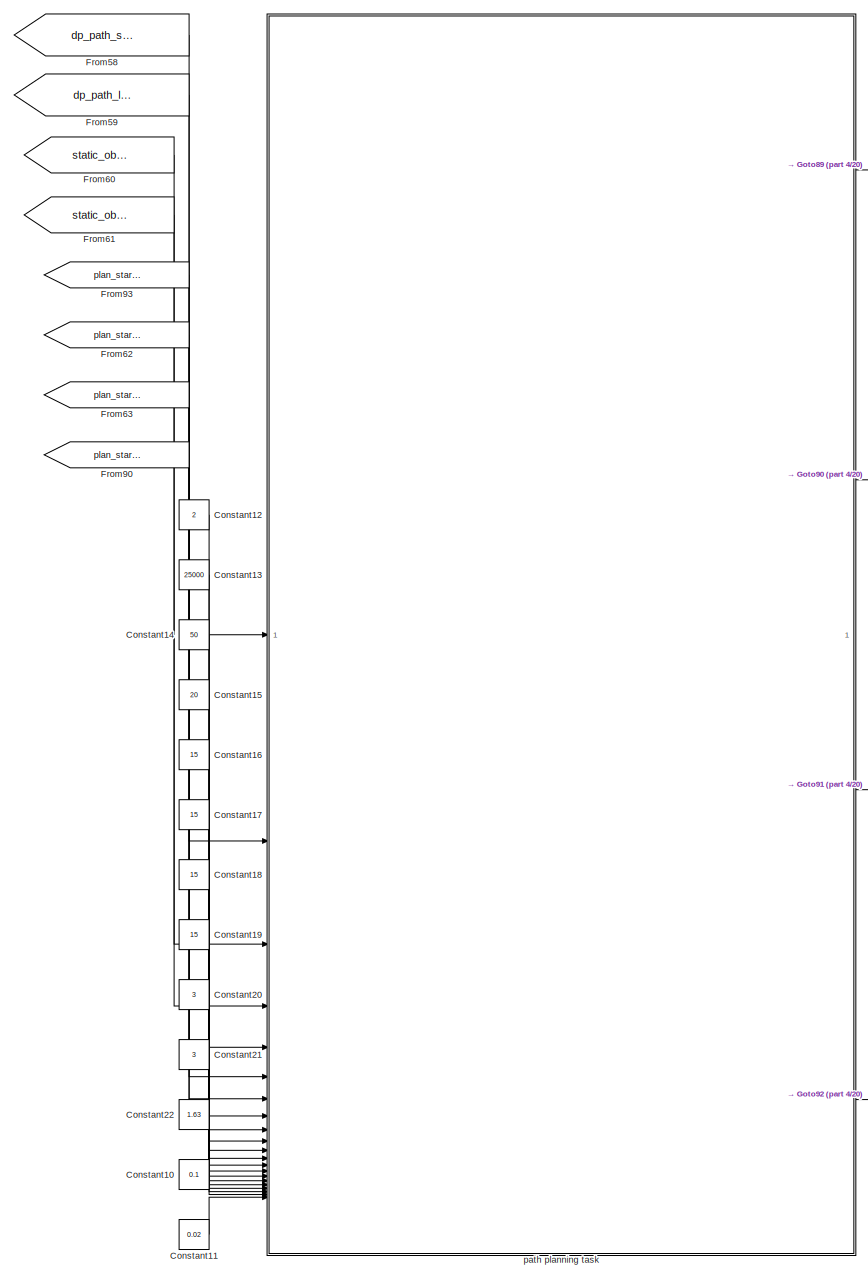
[diagram: modular_bus_1/decision&planning module/EM Planner - part 2/20, top center region]
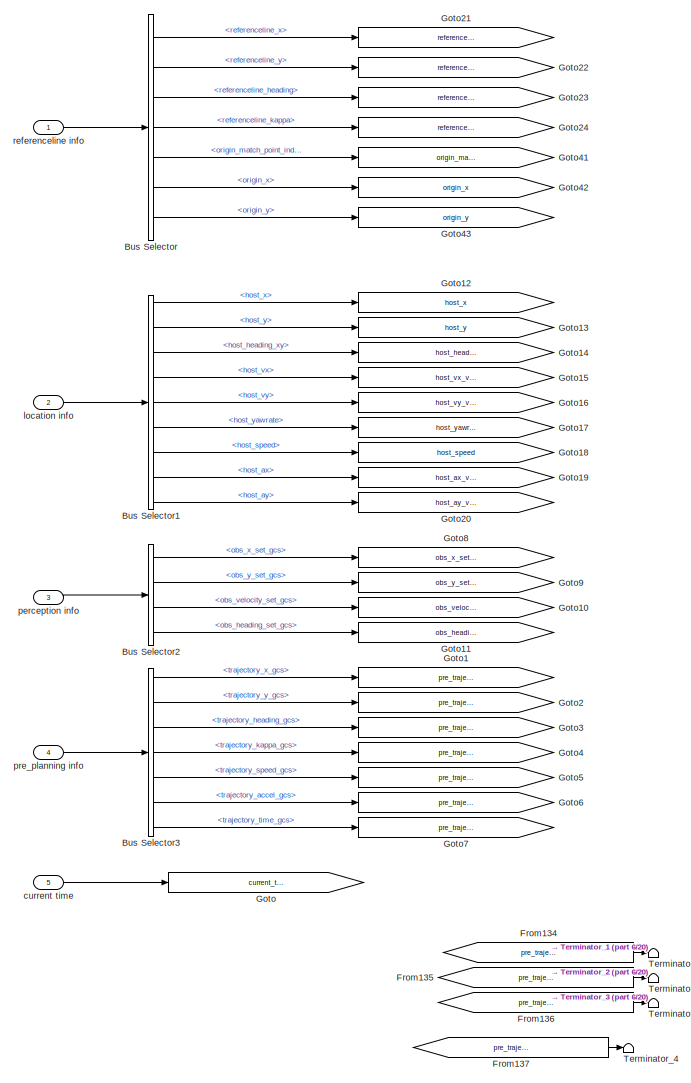
[diagram: modular_bus_1/decision&planning module/EM Planner - part 3/20, top left region]
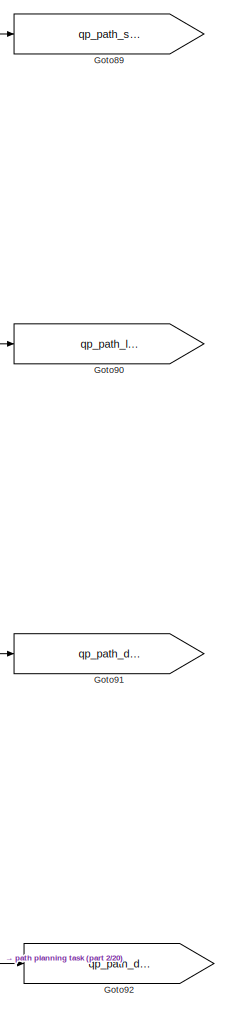
[diagram: modular_bus_1/decision&planning module/EM Planner - part 4/20, top right region]
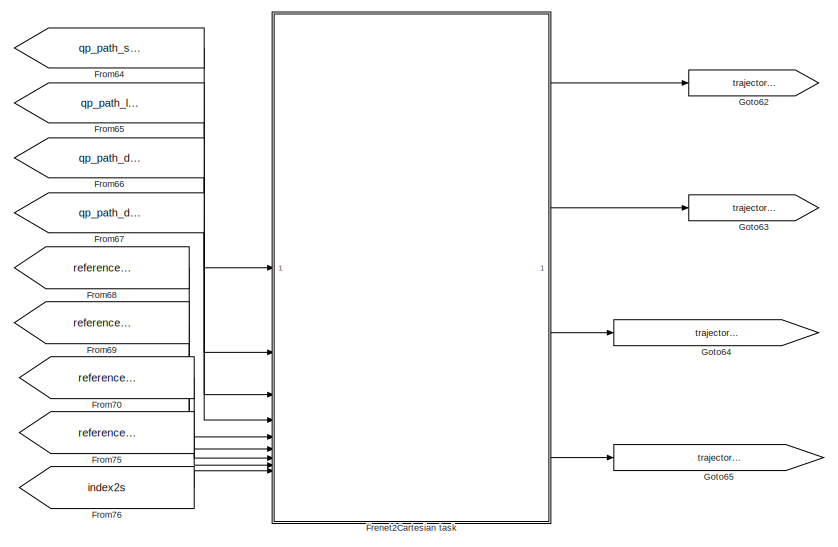
[diagram: modular_bus_1/decision&planning module/EM Planner - part 5/20, top right region]
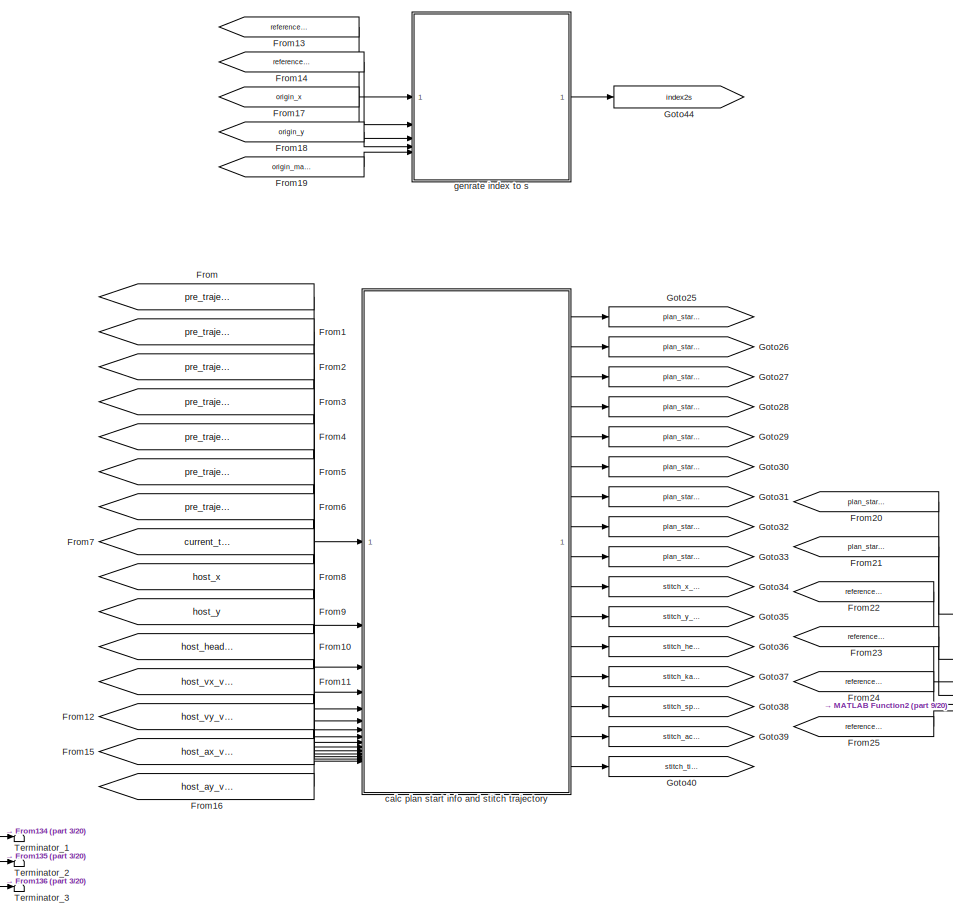
[diagram: modular_bus_1/decision&planning module/EM Planner - part 6/20, top left region]
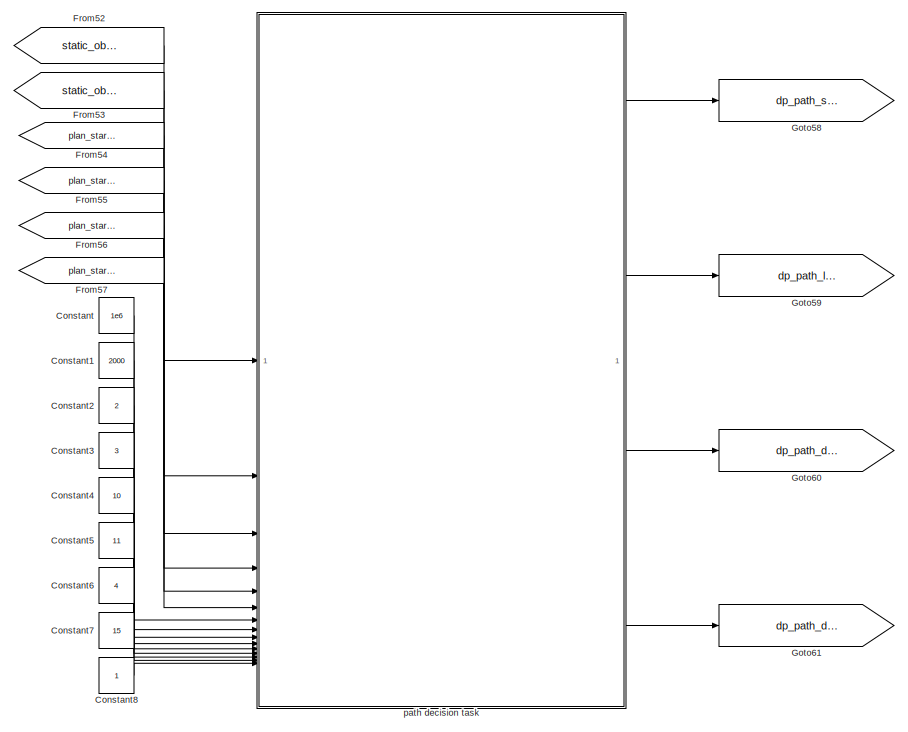
[diagram: modular_bus_1/decision&planning module/EM Planner - part 7/20, top center region]
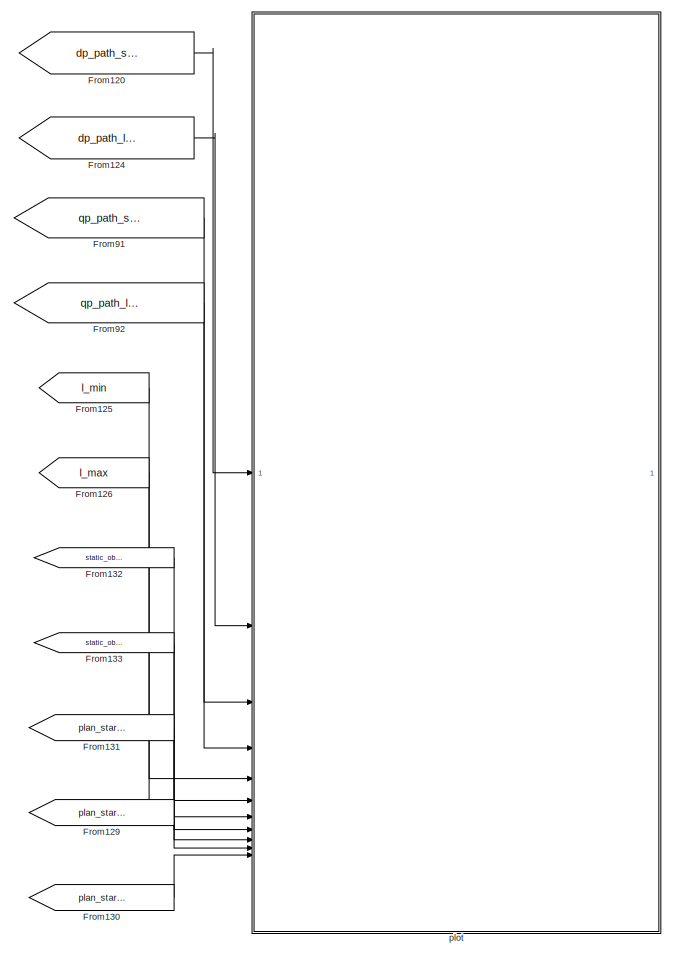
[diagram: modular_bus_1/decision&planning module/EM Planner - part 8/20, top right region]
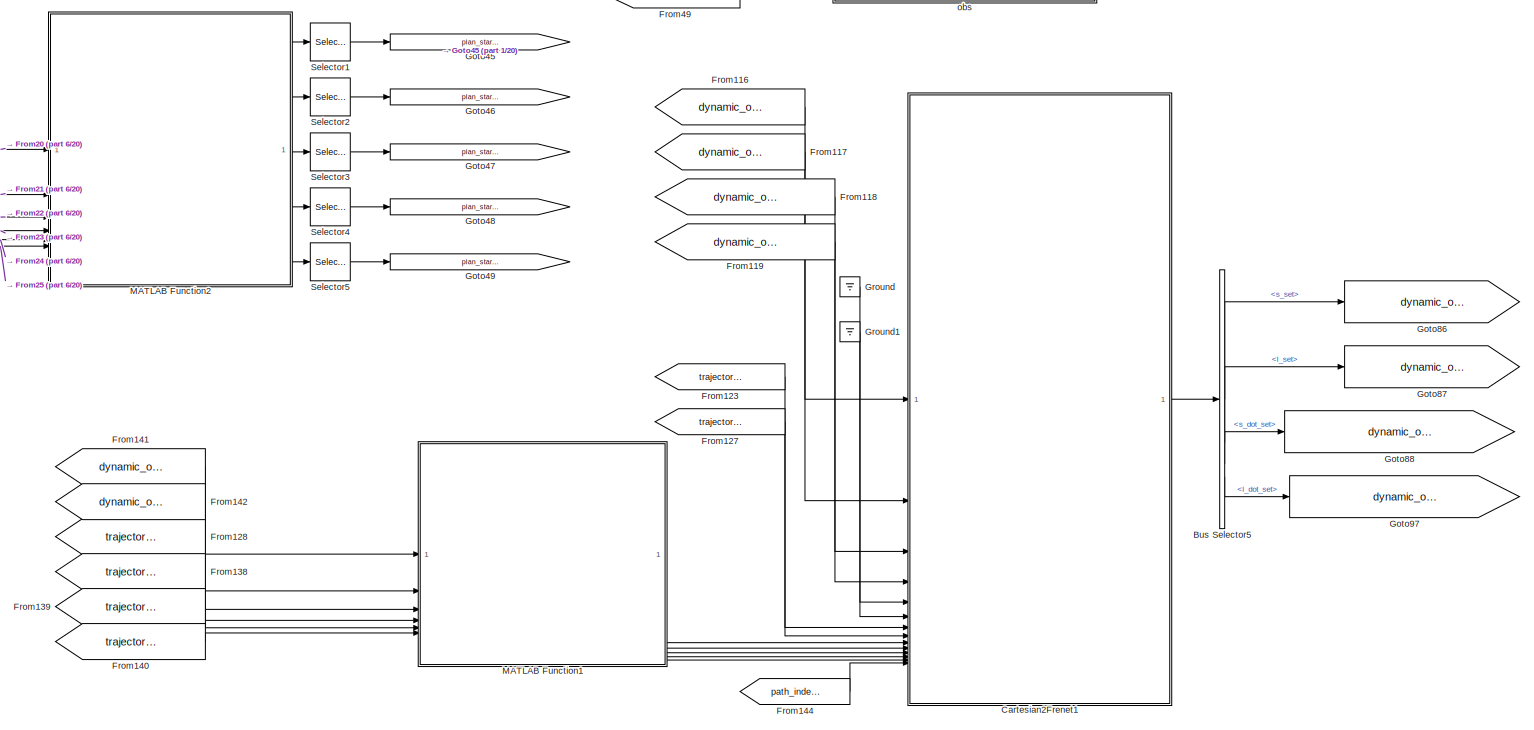
[diagram: modular_bus_1/decision&planning module/EM Planner - part 9/20, central region]
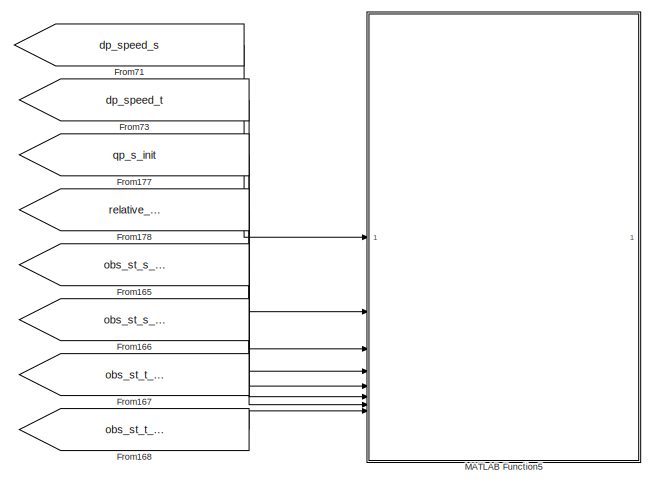
[diagram: modular_bus_1/decision&planning module/EM Planner - part 10/20, middle right region]
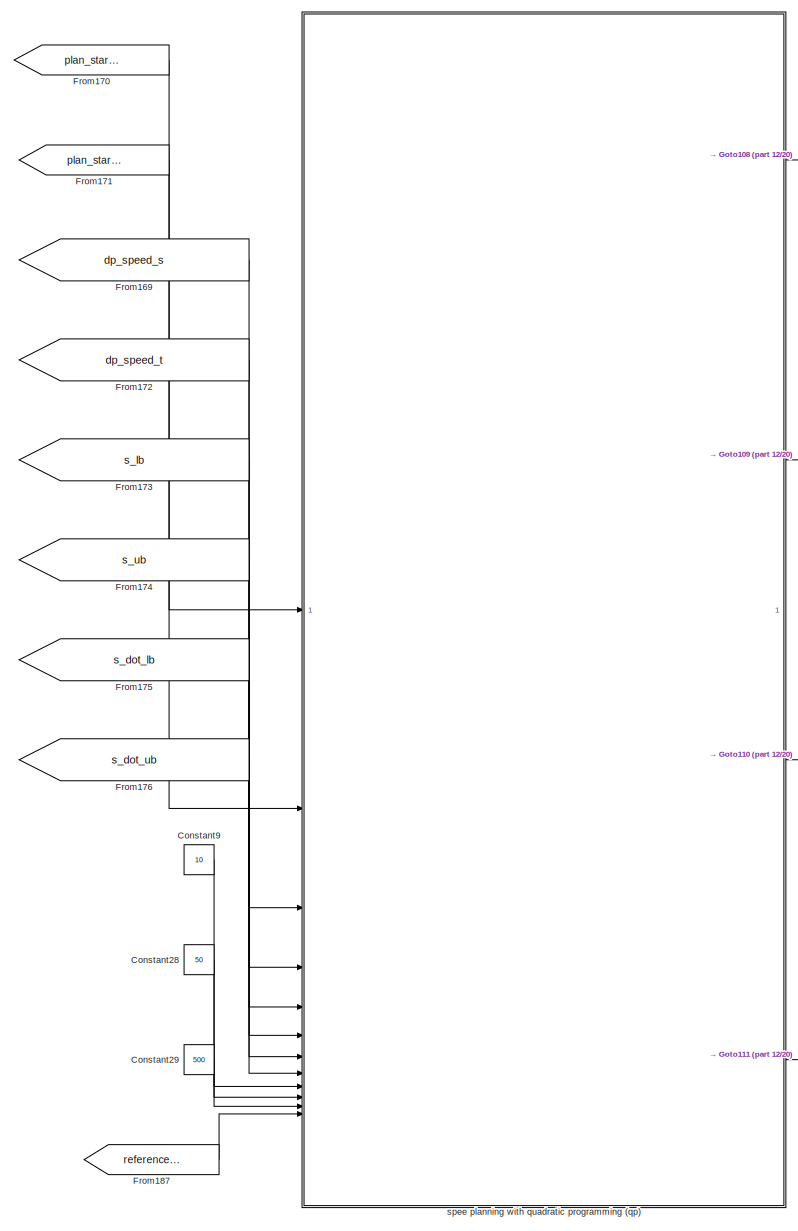
[diagram: modular_bus_1/decision&planning module/EM Planner - part 11/20, central region]
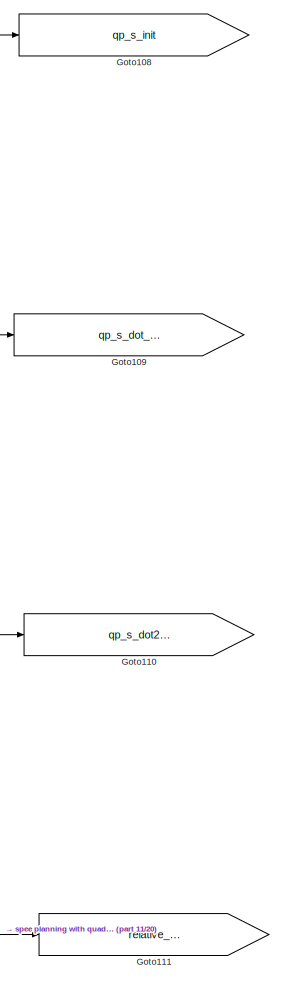
[diagram: modular_bus_1/decision&planning module/EM Planner - part 12/20, middle right region]
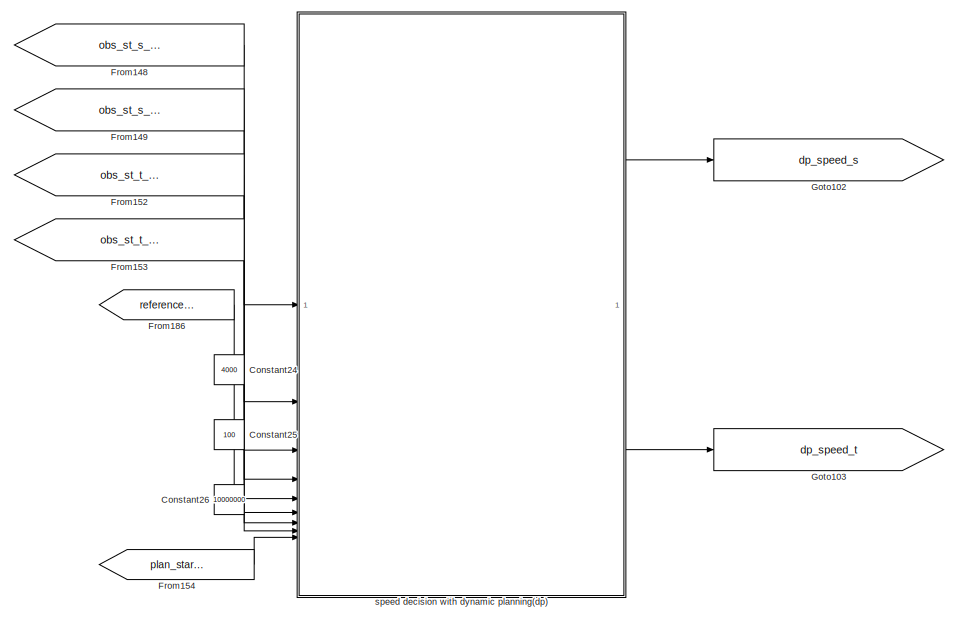
[diagram: modular_bus_1/decision&planning module/EM Planner - part 13/20, central region]
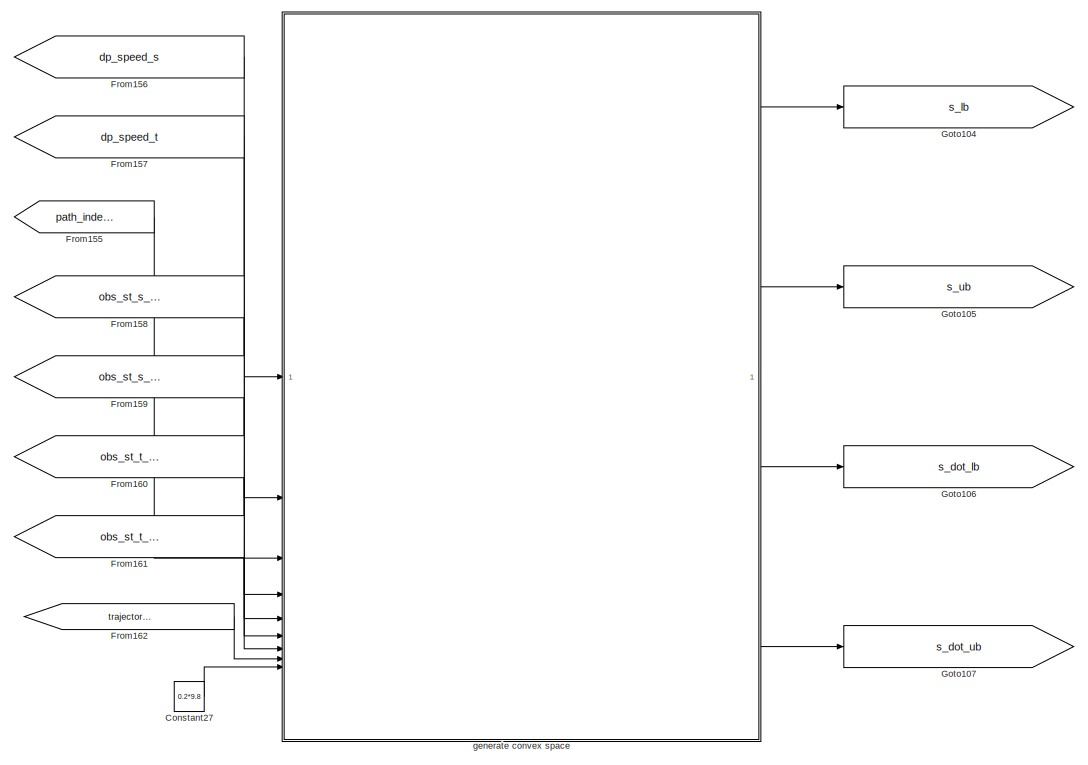
[diagram: modular_bus_1/decision&planning module/EM Planner - part 14/20, central region]
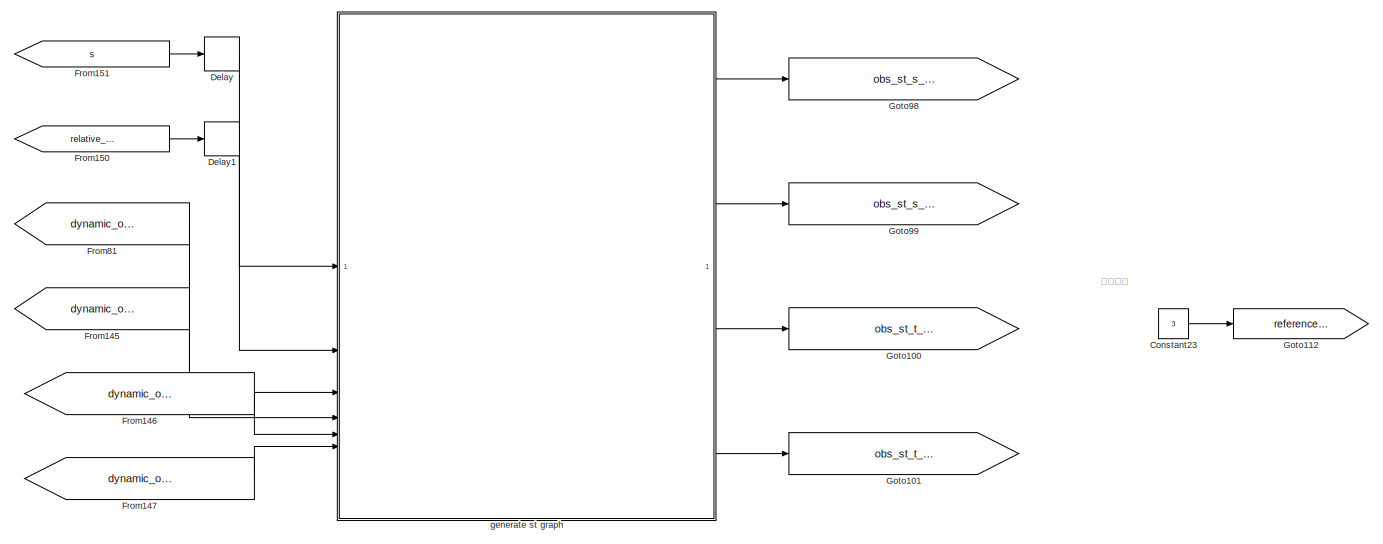
[diagram: modular_bus_1/decision&planning module/EM Planner - part 15/20, middle left region]
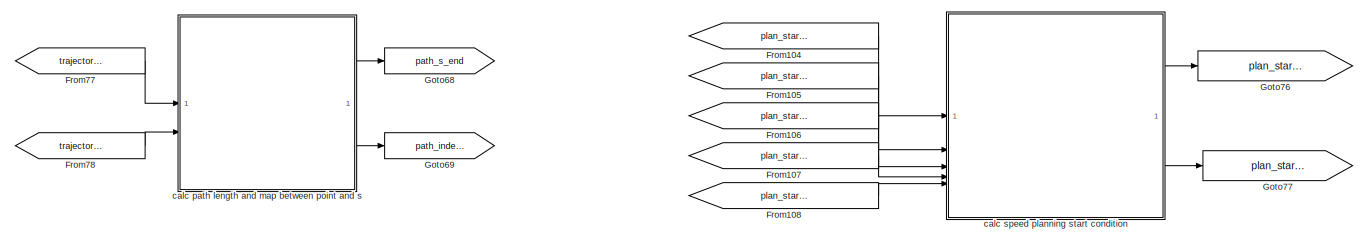
[diagram: modular_bus_1/decision&planning module/EM Planner - part 16/20, middle left region]
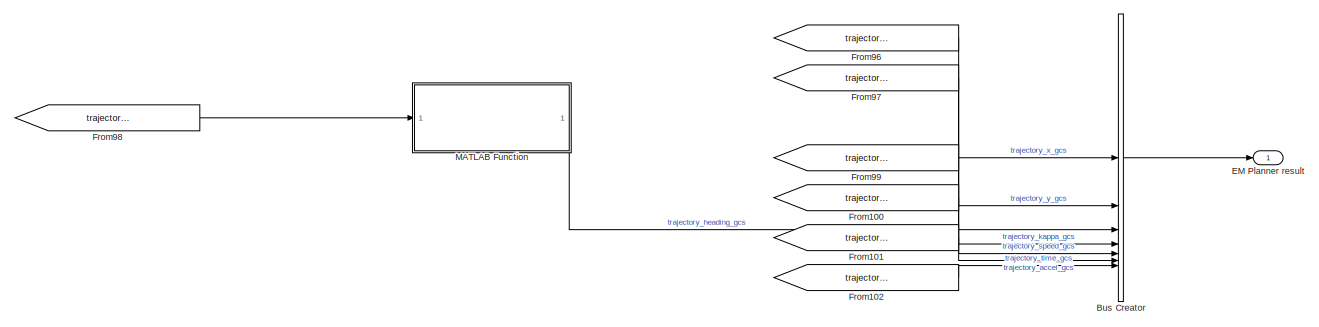
[diagram: modular_bus_1/decision&planning module/EM Planner - part 17/20, bottom right region]
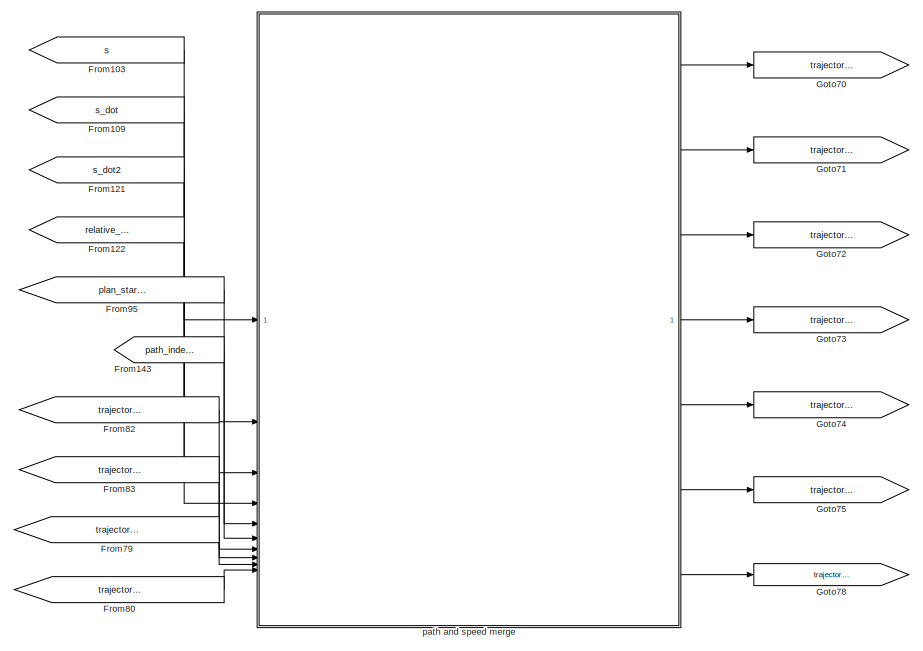
[diagram: modular_bus_1/decision&planning module/EM Planner - part 18/20, bottom center region]
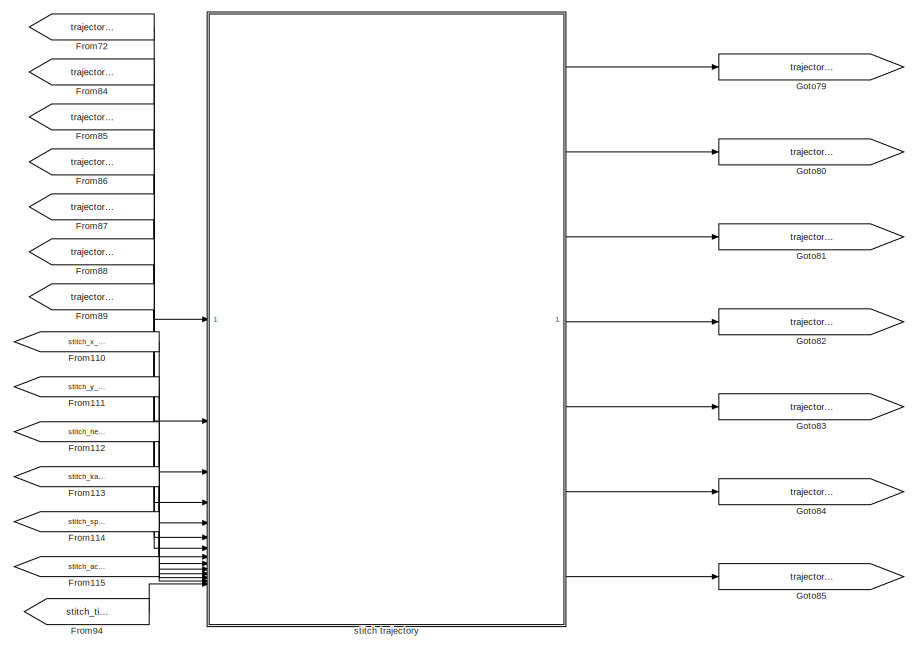
[diagram: modular_bus_1/decision&planning module/EM Planner - part 19/20, bottom center region]
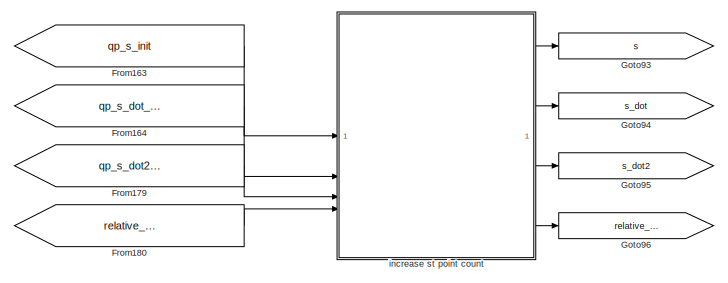
[diagram: modular_bus_1/decision&planning module/EM Planner - part 20/20, bottom left region]
BLOCK [SubSystem] modular_bus_1/decision&planning module/EM Planner
BLOCK [BusCreator] modular_bus_1/decision&planning module/EM Planner/Bus Creator
  DisplayOption = bar
  InheritFromInputs = on
  Inputs = 7
BLOCK [BusSelector] modular_bus_1/decision&planning module/EM Planner/Bus Selector
  OutputSignals = referenceline_x,referenceline_y,referenceline_heading,referenceline_kappa,origin_match_point_index,origin_x,origin_y
BLOCK [BusSelector] modular_bus_1/decision&planning module/EM Planner/Bus Selector1
  OutputSignals = host_x,host_y,host_heading_xy,host_vx,host_vy,host_yawrate,host_speed,host_ax,host_ay
BLOCK [BusSelector] modular_bus_1/decision&planning module/EM Planner/Bus Selector2
  OutputSignals = obs_x_set_gcs,obs_y_set_gcs,obs_velocity_set_gcs,obs_heading_set_gcs
BLOCK [BusSelector] modular_bus_1/decision&planning module/EM Planner/Bus Selector3
  OutputSignals = trajectory_x_gcs,trajectory_y_gcs,trajectory_heading_gcs,trajectory_kappa_gcs,trajectory_speed_gcs,trajectory_accel_gcs,trajectory_time_gcs
BLOCK [BusSelector] modular_bus_1/decision&planning module/EM Planner/Bus Selector4
  OutputSignals = s_set,l_set,dl_set,ddl_set
BLOCK [BusSelector] modular_bus_1/decision&planning module/EM Planner/Bus Selector5
  OutputSignals = s_set,l_set,s_dot_set,l_dot_set
BLOCK [SubSystem] modular_bus_1/decision&planning module/EM Planner/Cartesian2Frenet
BLOCK [BusCreator] modular_bus_1/decision&planning module/EM Planner/Cartesian2Frenet/Bus Creator
  DisplayOption = bar
  InheritFromInputs = on
  Inputs = 8
BLOCK [Outport] modular_bus_1/decision&planning module/EM Planner/Cartesian2Frenet/Cartesian2FrenetOut
BLOCK [From] modular_bus_1/decision&planning module/EM Planner/Cartesian2Frenet/From
  GotoTag = x_set
BLOCK [From] modular_bus_1/decision&planning module/EM Planner/Cartesian2Frenet/From1
  GotoTag = y_set
BLOCK [From] modular_bus_1/decision&planning module/EM Planner/Cartesian2Frenet/From10
  GotoTag = vx_set
BLOCK [From] modular_bus_1/decision&planning module/EM Planner/Cartesian2Frenet/From11
  GotoTag = vy_set
BLOCK [From] modular_bus_1/decision&planning module/EM Planner/Cartesian2Frenet/From12
  GotoTag = proj_heading_set
BLOCK [From] modular_bus_1/decision&planning module/EM Planner/Cartesian2Frenet/From13
  GotoTag = proj_kappa_set
BLOCK [From] modular_bus_1/decision&planning module/EM Planner/Cartesian2Frenet/From14
  GotoTag = ax_set
BLOCK [From] modular_bus_1/decision&planning module/EM Planner/Cartesian2Frenet/From15
  GotoTag = ay_set
BLOCK [From] modular_bus_1/decision&planning module/EM Planner/Cartesian2Frenet/From16
  GotoTag = proj_heading_set
BLOCK [From] modular_bus_1/decision&planning module/EM Planner/Cartesian2Frenet/From17
  GotoTag = proj_kappa_set
BLOCK [From] modular_bus_1/decision&planning module/EM Planner/Cartesian2Frenet/From18
  GotoTag = l_set
BLOCK [From] modular_bus_1/decision&planning module/EM Planner/Cartesian2Frenet/From19
  GotoTag = s_dot_set
BLOCK [From] modular_bus_1/decision&planning module/EM Planner/Cartesian2Frenet/From2
  GotoTag = frenet_path_x
BLOCK [From] modular_bus_1/decision&planning module/EM Planner/Cartesian2Frenet/From20
  GotoTag = dl_set
BLOCK [From] modular_bus_1/decision&planning module/EM Planner/Cartesian2Frenet/From21
  GotoTag = s_set
BLOCK [From] modular_bus_1/decision&planning module/EM Planner/Cartesian2Frenet/From22
  GotoTag = l_set
BLOCK [From] modular_bus_1/decision&planning module/EM Planner/Cartesian2Frenet/From23
  GotoTag = s_dot_set
BLOCK [From] modular_bus_1/decision&planning module/EM Planner/Cartesian2Frenet/From24
  GotoTag = l_dot_set
BLOCK [From] modular_bus_1/decision&planning module/EM Planner/Cartesian2Frenet/From25
  GotoTag = dl_set
BLOCK [From] modular_bus_1/decision&planning module/EM Planner/Cartesian2Frenet/From26
  GotoTag = s_dot2_set
BLOCK [From] modular_bus_1/decision&planning module/EM Planner/Cartesian2Frenet/From27
  GotoTag = l_dot2_set
BLOCK [From] modular_bus_1/decision&planning module/EM Planner/Cartesian2Frenet/From28
  GotoTag = ddl_set
BLOCK [From] modular_bus_1/decision&planning module/EM Planner/Cartesian2Frenet/From3
  GotoTag = frenet_path_y
BLOCK [From] modular_bus_1/decision&planning module/EM Planner/Cartesian2Frenet/From4
  GotoTag = proj_x_set
BLOCK [From] modular_bus_1/decision&planning module/EM Planner/Cartesian2Frenet/From5
  GotoTag = proj_y_set
BLOCK [From] modular_bus_1/decision&planning module/EM Planner/Cartesian2Frenet/From6
  GotoTag = proj_heading_set
BLOCK [From] modular_bus_1/decision&planning module/EM Planner/Cartesian2Frenet/From7
  GotoTag = l_set
BLOCK [From] modular_bus_1/decision&planning module/EM Planner/Cartesian2Frenet/From8
  GotoTag = index2s
BLOCK [From] modular_bus_1/decision&planning module/EM Planner/Cartesian2Frenet/From9
  GotoTag = proj_match_point_index_set
BLOCK [Goto] modular_bus_1/decision&planning module/EM Planner/Cartesian2Frenet/Goto
  GotoTag = x_set
BLOCK [Goto] modular_bus_1/decision&planning module/EM Planner/Cartesian2Frenet/Goto1
  GotoTag = y_set
BLOCK [Goto] modular_bus_1/decision&planning module/EM Planner/Cartesian2Frenet/Goto10
  GotoTag = proj_y_set
BLOCK [Goto] modular_bus_1/decision&planning module/EM Planner/Cartesian2Frenet/Goto11
  GotoTag = proj_heading_set
BLOCK [Goto] modular_bus_1/decision&planning module/EM Planner/Cartesian2Frenet/Goto12
  GotoTag = proj_kappa_set
BLOCK [Goto] modular_bus_1/decision&planning module/EM Planner/Cartesian2Frenet/Goto13
  GotoTag = index2s
BLOCK [Goto] modular_bus_1/decision&planning module/EM Planner/Cartesian2Frenet/Goto14
  GotoTag = s_set
BLOCK [Goto] modular_bus_1/decision&planning module/EM Planner/Cartesian2Frenet/Goto15
  GotoTag = l_set
BLOCK [Goto] modular_bus_1/decision&planning module/EM Planner/Cartesian2Frenet/Goto16
  GotoTag = s_dot_set
BLOCK [Goto] modular_bus_1/decision&planning module/EM Planner/Cartesian2Frenet/Goto17
  GotoTag = l_dot_set
BLOCK [Goto] modular_bus_1/decision&planning module/EM Planner/Cartesian2Frenet/Goto18
  GotoTag = dl_set
BLOCK [Goto] modular_bus_1/decision&planning module/EM Planner/Cartesian2Frenet/Goto19
  GotoTag = s_dot2_set
BLOCK [Goto] modular_bus_1/decision&planning module/EM Planner/Cartesian2Frenet/Goto2
  GotoTag = vx_set
BLOCK [Goto] modular_bus_1/decision&planning module/EM Planner/Cartesian2Frenet/Goto20
  GotoTag = l_dot2_set
BLOCK [Goto] modular_bus_1/decision&planning module/EM Planner/Cartesian2Frenet/Goto21
  GotoTag = ddl_set
BLOCK [Goto] modular_bus_1/decision&planning module/EM Planner/Cartesian2Frenet/Goto3
  GotoTag = vy_set
BLOCK [Goto] modular_bus_1/decision&planning module/EM Planner/Cartesian2Frenet/Goto4
  GotoTag = ax_set
BLOCK [Goto] modular_bus_1/decision&planning module/EM Planner/Cartesian2Frenet/Goto5
  GotoTag = ay_set
BLOCK [Goto] modular_bus_1/decision&planning module/EM Planner/Cartesian2Frenet/Goto6
  GotoTag = frenet_path_x
BLOCK [Goto] modular_bus_1/decision&planning module/EM Planner/Cartesian2Frenet/Goto7
  GotoTag = frenet_path_y
BLOCK [Goto] modular_bus_1/decision&planning module/EM Planner/Cartesian2Frenet/Goto8
  GotoTag = proj_match_point_index_set
BLOCK [Goto] modular_bus_1/decision&planning module/EM Planner/Cartesian2Frenet/Goto9
  GotoTag = proj_x_set
BLOCK [SubSystem] modular_bus_1/decision&planning module/EM Planner/Cartesian2Frenet/MATLAB Function
  ErrorFcn = Stateflow.Translate.translate
  PermitHierarchicalResolution = ExplicitOnly
  SFBlockType = MATLAB Function
  TreatAsAtomicUnit = on
BLOCK [Demux] modular_bus_1/decision&planning module/EM Planner/Cartesian2Frenet/MATLAB Function/ Demux 
  Outputs = 1
BLOCK [S-Function] modular_bus_1/decision&planning module/EM Planner/Cartesian2Frenet/MATLAB Function/ SFunction 
  EnableBusSupport = on
  FunctionName = sf_sfun
  PortCounts = [9 3]
  SFcnIsStateOwnerBlock = off
  SFunctionDeploymentMode = off
  Tag = Stateflow S-Function 60
BLOCK [Terminator] modular_bus_1/decision&planning module/EM Planner/Cartesian2Frenet/MATLAB Function/ Terminator 
BLOCK [Inport] modular_bus_1/decision&planning module/EM Planner/Cartesian2Frenet/MATLAB Function/frenet_path_x
  Port = 3
BLOCK [Inport] modular_bus_1/decision&planning module/EM Planner/Cartesian2Frenet/MATLAB Function/frenet_path_y
  Port = 4
BLOCK [Inport] modular_bus_1/decision&planning module/EM Planner/Cartesian2Frenet/MATLAB Function/index2s
  Port = 9
BLOCK [Outport] modular_bus_1/decision&planning module/EM Planner/Cartesian2Frenet/MATLAB Function/l_set
  Port = 2
BLOCK [Inport] modular_bus_1/decision&planning module/EM Planner/Cartesian2Frenet/MATLAB Function/proj_heading_set
  Port = 7
BLOCK [Inport] modular_bus_1/decision&planning module/EM Planner/Cartesian2Frenet/MATLAB Function/proj_match_point_index_set
  Port = 8
BLOCK [Inport] modular_bus_1/decision&planning module/EM Planner/Cartesian2Frenet/MATLAB Function/proj_x_set
  Port = 5
BLOCK [Inport] modular_bus_1/decision&planning module/EM Planner/Cartesian2Frenet/MATLAB Function/proj_y_set
  Port = 6
BLOCK [Outport] modular_bus_1/decision&planning module/EM Planner/Cartesian2Frenet/MATLAB Function/s_set
BLOCK [Inport] modular_bus_1/decision&planning module/EM Planner/Cartesian2Frenet/MATLAB Function/x_set
BLOCK [Inport] modular_bus_1/decision&planning module/EM Planner/Cartesian2Frenet/MATLAB Function/y_set
  Port = 2
BLOCK [SubSystem] modular_bus_1/decision&planning module/EM Planner/Cartesian2Frenet/MATLAB Function1
  ErrorFcn = Stateflow.Translate.translate
  PermitHierarchicalResolution = ExplicitOnly
  SFBlockType = MATLAB Function
  TreatAsAtomicUnit = on
BLOCK [Demux] modular_bus_1/decision&planning module/EM Planner/Cartesian2Frenet/MATLAB Function1/ Demux 
  Outputs = 1
BLOCK [S-Function] modular_bus_1/decision&planning module/EM Planner/Cartesian2Frenet/MATLAB Function1/ SFunction 
  EnableBusSupport = on
  FunctionName = sf_sfun
  PortCounts = [5 4]
  SFcnIsStateOwnerBlock = off
  SFunctionDeploymentMode = off
  Tag = Stateflow S-Function 61
BLOCK [Terminator] modular_bus_1/decision&planning module/EM Planner/Cartesian2Frenet/MATLAB Function1/ Terminator 
BLOCK [Outport] modular_bus_1/decision&planning module/EM Planner/Cartesian2Frenet/MATLAB Function1/dl_set
  Port = 3
BLOCK [Outport] modular_bus_1/decision&planning module/EM Planner/Cartesian2Frenet/MATLAB Function1/l_dot_set
  Port = 2
BLOCK [Inport] modular_bus_1/decision&planning module/EM Planner/Cartesian2Frenet/MATLAB Function1/l_set
BLOCK [Inport] modular_bus_1/decision&planning module/EM Planner/Cartesian2Frenet/MATLAB Function1/proj_heading_set
  Port = 4
BLOCK [Inport] modular_bus_1/decision&planning module/EM Planner/Cartesian2Frenet/MATLAB Function1/proj_kappa_set
  Port = 5
BLOCK [Outport] modular_bus_1/decision&planning module/EM Planner/Cartesian2Frenet/MATLAB Function1/s_dot_set
BLOCK [Inport] modular_bus_1/decision&planning module/EM Planner/Cartesian2Frenet/MATLAB Function1/vx_set
  Port = 2
BLOCK [Inport] modular_bus_1/decision&planning module/EM Planner/Cartesian2Frenet/MATLAB Function1/vy_set
  Port = 3
BLOCK [SubSystem] modular_bus_1/decision&planning module/EM Planner/Cartesian2Frenet/MATLAB Function2
  ErrorFcn = Stateflow.Translate.translate
  PermitHierarchicalResolution = ExplicitOnly
  SFBlockType = MATLAB Function
  TreatAsAtomicUnit = on
BLOCK [Demux] modular_bus_1/decision&planning module/EM Planner/Cartesian2Frenet/MATLAB Function2/ Demux 
  Outputs = 1
BLOCK [S-Function] modular_bus_1/decision&planning module/EM Planner/Cartesian2Frenet/MATLAB Function2/ SFunction 
  EnableBusSupport = on
  FunctionName = sf_sfun
  PortCounts = [7 4]
  SFcnIsStateOwnerBlock = off
  SFunctionDeploymentMode = off
  Tag = Stateflow S-Function 62
BLOCK [Terminator] modular_bus_1/decision&planning module/EM Planner/Cartesian2Frenet/MATLAB Function2/ Terminator 
BLOCK [Inport] modular_bus_1/decision&planning module/EM Planner/Cartesian2Frenet/MATLAB Function2/ax_set
BLOCK [Inport] modular_bus_1/decision&planning module/EM Planner/Cartesian2Frenet/MATLAB Function2/ay_set
  Port = 2
BLOCK [Outport] modular_bus_1/decision&planning module/EM Planner/Cartesian2Frenet/MATLAB Function2/ddl_set
  Port = 3
BLOCK [Inport] modular_bus_1/decision&planning module/EM Planner/Cartesian2Frenet/MATLAB Function2/dl_set
  Port = 7
BLOCK [Outport] modular_bus_1/decision&planning module/EM Planner/Cartesian2Frenet/MATLAB Function2/l_dot2_set
  Port = 2
BLOCK [Inport] modular_bus_1/decision&planning module/EM Planner/Cartesian2Frenet/MATLAB Function2/l_set
  Port = 5
BLOCK [Inport] modular_bus_1/decision&planning module/EM Planner/Cartesian2Frenet/MATLAB Function2/proj_heading_set
  Port = 3
BLOCK [Inport] modular_bus_1/decision&planning module/EM Planner/Cartesian2Frenet/MATLAB Function2/proj_kappa_set
  Port = 4
BLOCK [Outport] modular_bus_1/decision&planning module/EM Planner/Cartesian2Frenet/MATLAB Function2/s_dot2_set
BLOCK [Inport] modular_bus_1/decision&planning module/EM Planner/Cartesian2Frenet/MATLAB Function2/s_dot_set
  Port = 6
BLOCK [Inport] modular_bus_1/decision&planning module/EM Planner/Cartesian2Frenet/ax_set
  Port = 5
BLOCK [Inport] modular_bus_1/decision&planning module/EM Planner/Cartesian2Frenet/ay_set
  Port = 6
BLOCK [Inport] modular_bus_1/decision&planning module/EM Planner/Cartesian2Frenet/frenet_path_x
  Port = 7
BLOCK [Inport] modular_bus_1/decision&planning module/EM Planner/Cartesian2Frenet/frenet_path_y
  Port = 8
BLOCK [Inport] modular_bus_1/decision&planning module/EM Planner/Cartesian2Frenet/index2s
  Port = 14
BLOCK [Inport] modular_bus_1/decision&planning module/EM Planner/Cartesian2Frenet/proj_heading_set
  Port = 12
BLOCK [Inport] modular_bus_1/decision&planning module/EM Planner/Cartesian2Frenet/proj_kappa_set
  Port = 13
BLOCK [Inport] modular_bus_1/decision&planning module/EM Planner/Cartesian2Frenet/proj_match_point_index_set
  Port = 9
BLOCK [Inport] modular_bus_1/decision&planning module/EM Planner/Cartesian2Frenet/proj_x_set
  Port = 10
BLOCK [Inport] modular_bus_1/decision&planning module/EM Planner/Cartesian2Frenet/proj_y_set
  Port = 11
BLOCK [Inport] modular_bus_1/decision&planning module/EM Planner/Cartesian2Frenet/vx_set
  Port = 3
BLOCK [Inport] modular_bus_1/decision&planning module/EM Planner/Cartesian2Frenet/vy_set
  Port = 4
BLOCK [Inport] modular_bus_1/decision&planning module/EM Planner/Cartesian2Frenet/x_set
BLOCK [Inport] modular_bus_1/decision&planning module/EM Planner/Cartesian2Frenet/y_set
  Port = 2
BLOCK [SubSystem] modular_bus_1/decision&planning module/EM Planner/Cartesian2Frenet1
BLOCK [BusCreator] modular_bus_1/decision&planning module/EM Planner/Cartesian2Frenet1/Bus Creator
  DisplayOption = bar
  InheritFromInputs = on
  Inputs = 8
BLOCK [Outport] modular_bus_1/decision&planning module/EM Planner/Cartesian2Frenet1/Cartesian2FrenetOut
BLOCK [From] modular_bus_1/decision&planning module/EM Planner/Cartesian2Frenet1/From
  GotoTag = x_set
BLOCK [From] modular_bus_1/decision&planning module/EM Planner/Cartesian2Frenet1/From1
  GotoTag = y_set
BLOCK [From] modular_bus_1/decision&planning module/EM Planner/Cartesian2Frenet1/From10
  GotoTag = vx_set
BLOCK [From] modular_bus_1/decision&planning module/EM Planner/Cartesian2Frenet1/From11
  GotoTag = vy_set
BLOCK [From] modular_bus_1/decision&planning module/EM Planner/Cartesian2Frenet1/From12
  GotoTag = proj_heading_set
BLOCK [From] modular_bus_1/decision&planning module/EM Planner/Cartesian2Frenet1/From13
  GotoTag = proj_kappa_set
BLOCK [From] modular_bus_1/decision&planning module/EM Planner/Cartesian2Frenet1/From14
  Commented = on
  GotoTag = ax_set
BLOCK [From] modular_bus_1/decision&planning module/EM Planner/Cartesian2Frenet1/From15
  Commented = on
  GotoTag = ay_set
BLOCK [From] modular_bus_1/decision&planning module/EM Planner/Cartesian2Frenet1/From16
  Commented = on
  GotoTag = proj_heading_set
BLOCK [From] modular_bus_1/decision&planning module/EM Planner/Cartesian2Frenet1/From17
  Commented = on
  GotoTag = proj_kappa_set
BLOCK [From] modular_bus_1/decision&planning module/EM Planner/Cartesian2Frenet1/From18
  Commented = on
  GotoTag = l_set
BLOCK [From] modular_bus_1/decision&planning module/EM Planner/Cartesian2Frenet1/From19
  Commented = on
  GotoTag = s_dot_set
BLOCK [From] modular_bus_1/decision&planning module/EM Planner/Cartesian2Frenet1/From2
  GotoTag = frenet_path_x
BLOCK [From] modular_bus_1/decision&planning module/EM Planner/Cartesian2Frenet1/From20
  Commented = on
  GotoTag = dl_set
BLOCK [From] modular_bus_1/decision&planning module/EM Planner/Cartesian2Frenet1/From21
  GotoTag = s_set
BLOCK [From] modular_bus_1/decision&planning module/EM Planner/Cartesian2Frenet1/From22
  GotoTag = l_set
BLOCK [From] modular_bus_1/decision&planning module/EM Planner/Cartesian2Frenet1/From23
  GotoTag = s_dot_set
BLOCK [From] modular_bus_1/decision&planning module/EM Planner/Cartesian2Frenet1/From24
  GotoTag = l_dot_set
BLOCK [From] modular_bus_1/decision&planning module/EM Planner/Cartesian2Frenet1/From25
  GotoTag = dl_set
BLOCK [From] modular_bus_1/decision&planning module/EM Planner/Cartesian2Frenet1/From26
  GotoTag = s_dot2_set
BLOCK [From] modular_bus_1/decision&planning module/EM Planner/Cartesian2Frenet1/From27
  GotoTag = l_dot2_set
BLOCK [From] modular_bus_1/decision&planning module/EM Planner/Cartesian2Frenet1/From28
  GotoTag = ddl_set
BLOCK [From] modular_bus_1/decision&planning module/EM Planner/Cartesian2Frenet1/From3
  GotoTag = frenet_path_y
BLOCK [From] modular_bus_1/decision&planning module/EM Planner/Cartesian2Frenet1/From4
  GotoTag = proj_x_set
BLOCK [From] modular_bus_1/decision&planning module/EM Planner/Cartesian2Frenet1/From5
  GotoTag = proj_y_set
BLOCK [From] modular_bus_1/decision&planning module/EM Planner/Cartesian2Frenet1/From6
  GotoTag = proj_heading_set
BLOCK [From] modular_bus_1/decision&planning module/EM Planner/Cartesian2Frenet1/From7
  GotoTag = l_set
BLOCK [From] modular_bus_1/decision&planning module/EM Planner/Cartesian2Frenet1/From8
  GotoTag = index2s
BLOCK [From] modular_bus_1/decision&planning module/EM Planner/Cartesian2Frenet1/From9
  GotoTag = proj_match_point_index_set
BLOCK [Goto] modular_bus_1/decision&planning module/EM Planner/Cartesian2Frenet1/Goto
  GotoTag = x_set
BLOCK [Goto] modular_bus_1/decision&planning module/EM Planner/Cartesian2Frenet1/Goto1
  GotoTag = y_set
BLOCK [Goto] modular_bus_1/decision&planning module/EM Planner/Cartesian2Frenet1/Goto10
  GotoTag = proj_y_set
BLOCK [Goto] modular_bus_1/decision&planning module/EM Planner/Cartesian2Frenet1/Goto11
  GotoTag = proj_heading_set
BLOCK [Goto] modular_bus_1/decision&planning module/EM Planner/Cartesian2Frenet1/Goto12
  GotoTag = proj_kappa_set
BLOCK [Goto] modular_bus_1/decision&planning module/EM Planner/Cartesian2Frenet1/Goto13
  GotoTag = index2s
BLOCK [Goto] modular_bus_1/decision&planning module/EM Planner/Cartesian2Frenet1/Goto14
  GotoTag = s_set
BLOCK [Goto] modular_bus_1/decision&planning module/EM Planner/Cartesian2Frenet1/Goto15
  GotoTag = l_set
BLOCK [Goto] modular_bus_1/decision&planning module/EM Planner/Cartesian2Frenet1/Goto16
  GotoTag = s_dot_set
BLOCK [Goto] modular_bus_1/decision&planning module/EM Planner/Cartesian2Frenet1/Goto17
  GotoTag = l_dot_set
BLOCK [Goto] modular_bus_1/decision&planning module/EM Planner/Cartesian2Frenet1/Goto18
  GotoTag = dl_set
BLOCK [Goto] modular_bus_1/decision&planning module/EM Planner/Cartesian2Frenet1/Goto19
  Commented = on
  GotoTag = s_dot2_set
BLOCK [Goto] modular_bus_1/decision&planning module/EM Planner/Cartesian2Frenet1/Goto2
  GotoTag = vx_set
BLOCK [Goto] modular_bus_1/decision&planning module/EM Planner/Cartesian2Frenet1/Goto20
  Commented = on
  GotoTag = l_dot2_set
BLOCK [Goto] modular_bus_1/decision&planning module/EM Planner/Cartesian2Frenet1/Goto21
  Commented = on
  GotoTag = ddl_set
BLOCK [Goto] modular_bus_1/decision&planning module/EM Planner/Cartesian2Frenet1/Goto3
  GotoTag = vy_set
BLOCK [Goto] modular_bus_1/decision&planning module/EM Planner/Cartesian2Frenet1/Goto4
  GotoTag = ax_set
BLOCK [Goto] modular_bus_1/decision&planning module/EM Planner/Cartesian2Frenet1/Goto5
  GotoTag = ay_set
BLOCK [Goto] modular_bus_1/decision&planning module/EM Planner/Cartesian2Frenet1/Goto6
  GotoTag = frenet_path_x
BLOCK [Goto] modular_bus_1/decision&planning module/EM Planner/Cartesian2Frenet1/Goto7
  GotoTag = frenet_path_y
BLOCK [Goto] modular_bus_1/decision&planning module/EM Planner/Cartesian2Frenet1/Goto8
  GotoTag = proj_match_point_index_set
BLOCK [Goto] modular_bus_1/decision&planning module/EM Planner/Cartesian2Frenet1/Goto9
  GotoTag = proj_x_set
BLOCK [SubSystem] modular_bus_1/decision&planning module/EM Planner/Cartesian2Frenet1/MATLAB Function
  ErrorFcn = Stateflow.Translate.translate
  PermitHierarchicalResolution = ExplicitOnly
  SFBlockType = MATLAB Function
  TreatAsAtomicUnit = on
BLOCK [Demux] modular_bus_1/decision&planning module/EM Planner/Cartesian2Frenet1/MATLAB Function/ Demux 
  Outputs = 1
BLOCK [S-Function] modular_bus_1/decision&planning module/EM Planner/Cartesian2Frenet1/MATLAB Function/ SFunction 
  EnableBusSupport = on
  FunctionName = sf_sfun
  PortCounts = [9 3]
  SFcnIsStateOwnerBlock = off
  SFunctionDeploymentMode = off
  Tag = Stateflow S-Function 63
BLOCK [Terminator] modular_bus_1/decision&planning module/EM Planner/Cartesian2Frenet1/MATLAB Function/ Terminator 
BLOCK [Inport] modular_bus_1/decision&planning module/EM Planner/Cartesian2Frenet1/MATLAB Function/frenet_path_x
  Port = 3
BLOCK [Inport] modular_bus_1/decision&planning module/EM Planner/Cartesian2Frenet1/MATLAB Function/frenet_path_y
  Port = 4
BLOCK [Inport] modular_bus_1/decision&planning module/EM Planner/Cartesian2Frenet1/MATLAB Function/index2s
  Port = 9
BLOCK [Outport] modular_bus_1/decision&planning module/EM Planner/Cartesian2Frenet1/MATLAB Function/l_set
  Port = 2
BLOCK [Inport] modular_bus_1/decision&planning module/EM Planner/Cartesian2Frenet1/MATLAB Function/proj_heading_set
  Port = 7
BLOCK [Inport] modular_bus_1/decision&planning module/EM Planner/Cartesian2Frenet1/MATLAB Function/proj_match_point_index_set
  Port = 8
BLOCK [Inport] modular_bus_1/decision&planning module/EM Planner/Cartesian2Frenet1/MATLAB Function/proj_x_set
  Port = 5
BLOCK [Inport] modular_bus_1/decision&planning module/EM Planner/Cartesian2Frenet1/MATLAB Function/proj_y_set
  Port = 6
BLOCK [Outport] modular_bus_1/decision&planning module/EM Planner/Cartesian2Frenet1/MATLAB Function/s_set
BLOCK [Inport] modular_bus_1/decision&planning module/EM Planner/Cartesian2Frenet1/MATLAB Function/x_set
BLOCK [Inport] modular_bus_1/decision&planning module/EM Planner/Cartesian2Frenet1/MATLAB Function/y_set
  Port = 2
BLOCK [SubSystem] modular_bus_1/decision&planning module/EM Planner/Cartesian2Frenet1/MATLAB Function1
  ErrorFcn = Stateflow.Translate.translate
  PermitHierarchicalResolution = ExplicitOnly
  SFBlockType = MATLAB Function
  TreatAsAtomicUnit = on
BLOCK [Demux] modular_bus_1/decision&planning module/EM Planner/Cartesian2Frenet1/MATLAB Function1/ Demux 
  Outputs = 1
BLOCK [S-Function] modular_bus_1/decision&planning module/EM Planner/Cartesian2Frenet1/MATLAB Function1/ SFunction 
  EnableBusSupport = on
  FunctionName = sf_sfun
  PortCounts = [5 4]
  SFcnIsStateOwnerBlock = off
  SFunctionDeploymentMode = off
  Tag = Stateflow S-Function 64
BLOCK [Terminator] modular_bus_1/decision&planning module/EM Planner/Cartesian2Frenet1/MATLAB Function1/ Terminator 
BLOCK [Outport] modular_bus_1/decision&planning module/EM Planner/Cartesian2Frenet1/MATLAB Function1/dl_set
  Port = 3
BLOCK [Outport] modular_bus_1/decision&planning module/EM Planner/Cartesian2Frenet1/MATLAB Function1/l_dot_set
  Port = 2
BLOCK [Inport] modular_bus_1/decision&planning module/EM Planner/Cartesian2Frenet1/MATLAB Function1/l_set
BLOCK [Inport] modular_bus_1/decision&planning module/EM Planner/Cartesian2Frenet1/MATLAB Function1/proj_heading_set
  Port = 4
BLOCK [Inport] modular_bus_1/decision&planning module/EM Planner/Cartesian2Frenet1/MATLAB Function1/proj_kappa_set
  Port = 5
BLOCK [Outport] modular_bus_1/decision&planning module/EM Planner/Cartesian2Frenet1/MATLAB Function1/s_dot_set
BLOCK [Inport] modular_bus_1/decision&planning module/EM Planner/Cartesian2Frenet1/MATLAB Function1/vx_set
  Port = 2
BLOCK [Inport] modular_bus_1/decision&planning module/EM Planner/Cartesian2Frenet1/MATLAB Function1/vy_set
  Port = 3
BLOCK [SubSystem] modular_bus_1/decision&planning module/EM Planner/Cartesian2Frenet1/MATLAB Function2
  Commented = on
  ErrorFcn = Stateflow.Translate.translate
  PermitHierarchicalResolution = ExplicitOnly
  SFBlockType = MATLAB Function
  TreatAsAtomicUnit = on
BLOCK [Demux] modular_bus_1/decision&planning module/EM Planner/Cartesian2Frenet1/MATLAB Function2/ Demux 
  Outputs = 1
BLOCK [S-Function] modular_bus_1/decision&planning module/EM Planner/Cartesian2Frenet1/MATLAB Function2/ SFunction 
  EnableBusSupport = on
  FunctionName = sf_sfun
  PortCounts = [7 4]
  SFcnIsStateOwnerBlock = off
  SFunctionDeploymentMode = off
  Tag = Stateflow S-Function 65
BLOCK [Terminator] modular_bus_1/decision&planning module/EM Planner/Cartesian2Frenet1/MATLAB Function2/ Terminator 
BLOCK [Inport] modular_bus_1/decision&planning module/EM Planner/Cartesian2Frenet1/MATLAB Function2/ax_set
BLOCK [Inport] modular_bus_1/decision&planning module/EM Planner/Cartesian2Frenet1/MATLAB Function2/ay_set
  Port = 2
BLOCK [Outport] modular_bus_1/decision&planning module/EM Planner/Cartesian2Frenet1/MATLAB Function2/ddl_set
  Port = 3
BLOCK [Inport] modular_bus_1/decision&planning module/EM Planner/Cartesian2Frenet1/MATLAB Function2/dl_set
  Port = 7
BLOCK [Outport] modular_bus_1/decision&planning module/EM Planner/Cartesian2Frenet1/MATLAB Function2/l_dot2_set
  Port = 2
BLOCK [Inport] modular_bus_1/decision&planning module/EM Planner/Cartesian2Frenet1/MATLAB Function2/l_set
  Port = 5
BLOCK [Inport] modular_bus_1/decision&planning module/EM Planner/Cartesian2Frenet1/MATLAB Function2/proj_heading_set
  Port = 3
BLOCK [Inport] modular_bus_1/decision&planning module/EM Planner/Cartesian2Frenet1/MATLAB Function2/proj_kappa_set
  Port = 4
BLOCK [Outport] modular_bus_1/decision&planning module/EM Planner/Cartesian2Frenet1/MATLAB Function2/s_dot2_set
BLOCK [Inport] modular_bus_1/decision&planning module/EM Planner/Cartesian2Frenet1/MATLAB Function2/s_dot_set
  Port = 6
BLOCK [Inport] modular_bus_1/decision&planning module/EM Planner/Cartesian2Frenet1/ax_set
  Port = 5
BLOCK [Inport] modular_bus_1/decision&planning module/EM Planner/Cartesian2Frenet1/ay_set
  Port = 6
BLOCK [Inport] modular_bus_1/decision&planning module/EM Planner/Cartesian2Frenet1/frenet_path_x
  Port = 7
BLOCK [Inport] modular_bus_1/decision&planning module/EM Planner/Cartesian2Frenet1/frenet_path_y
  Port = 8
BLOCK [Inport] modular_bus_1/decision&planning module/EM Planner/Cartesian2Frenet1/index2s
  Port = 14
BLOCK [Inport] modular_bus_1/decision&planning module/EM Planner/Cartesian2Frenet1/proj_heading_set
  Port = 12
BLOCK [Inport] modular_bus_1/decision&planning module/EM Planner/Cartesian2Frenet1/proj_kappa_set
  Port = 13
BLOCK [Inport] modular_bus_1/decision&planning module/EM Planner/Cartesian2Frenet1/proj_match_point_index_set
  Port = 9
BLOCK [Inport] modular_bus_1/decision&planning module/EM Planner/Cartesian2Frenet1/proj_x_set
  Port = 10
BLOCK [Inport] modular_bus_1/decision&planning module/EM Planner/Cartesian2Frenet1/proj_y_set
  Port = 11
BLOCK [Inport] modular_bus_1/decision&planning module/EM Planner/Cartesian2Frenet1/vx_set
  Port = 3
BLOCK [Inport] modular_bus_1/decision&planning module/EM Planner/Cartesian2Frenet1/vy_set
  Port = 4
BLOCK [Inport] modular_bus_1/decision&planning module/EM Planner/Cartesian2Frenet1/x_set
BLOCK [Inport] modular_bus_1/decision&planning module/EM Planner/Cartesian2Frenet1/y_set
  Port = 2
BLOCK [Constant] modular_bus_1/decision&planning module/EM Planner/Constant
  Value = 1e6
BLOCK [Constant] modular_bus_1/decision&planning module/EM Planner/Constant1
  Value = 2000
BLOCK [Constant] modular_bus_1/decision&planning module/EM Planner/Constant10
  Value = 0.1
BLOCK [Constant] modular_bus_1/decision&planning module/EM Planner/Constant11
  Value = 0.02
BLOCK [Constant] modular_bus_1/decision&planning module/EM Planner/Constant12
  Value = 2
BLOCK [Constant] modular_bus_1/decision&planning module/EM Planner/Constant13
  Value = 25000
BLOCK [Constant] modular_bus_1/decision&planning module/EM Planner/Constant14
  Value = 50
BLOCK [Constant] modular_bus_1/decision&planning module/EM Planner/Constant15
  Value = 20
BLOCK [Constant] modular_bus_1/decision&planning module/EM Planner/Constant16
  Value = 15
BLOCK [Constant] modular_bus_1/decision&planning module/EM Planner/Constant17
  Value = 15
BLOCK [Constant] modular_bus_1/decision&planning module/EM Planner/Constant18
  Value = 15
BLOCK [Constant] modular_bus_1/decision&planning module/EM Planner/Constant19
  Value = 15
BLOCK [Constant] modular_bus_1/decision&planning module/EM Planner/Constant2
  Value = 2
BLOCK [Constant] modular_bus_1/decision&planning module/EM Planner/Constant20
  Value = 3
BLOCK [Constant] modular_bus_1/decision&planning module/EM Planner/Constant21
  Value = 3
BLOCK [Constant] modular_bus_1/decision&planning module/EM Planner/Constant22
  Value = 1.63
BLOCK [Constant] modular_bus_1/decision&planning module/EM Planner/Constant23
  Value = 3
BLOCK [Constant] modular_bus_1/decision&planning module/EM Planner/Constant24
  Value = 4000
BLOCK [Constant] modular_bus_1/decision&planning module/EM Planner/Constant25
  Value = 100
BLOCK [Constant] modular_bus_1/decision&planning module/EM Planner/Constant26
  Value = 10000000
BLOCK [Constant] modular_bus_1/decision&planning module/EM Planner/Constant27
  Value = 0.2*9.8
BLOCK [Constant] modular_bus_1/decision&planning module/EM Planner/Constant28
  Value = 50
BLOCK [Constant] modular_bus_1/decision&planning module/EM Planner/Constant29
  Value = 500
BLOCK [Constant] modular_bus_1/decision&planning module/EM Planner/Constant3
  Value = 3
BLOCK [Constant] modular_bus_1/decision&planning module/EM Planner/Constant4
  Value = 10
BLOCK [Constant] modular_bus_1/decision&planning module/EM Planner/Constant5
  Value = 11
BLOCK [Constant] modular_bus_1/decision&planning module/EM Planner/Constant6
  Value = 4
BLOCK [Constant] modular_bus_1/decision&planning module/EM Planner/Constant7
  Value = 15
BLOCK [Constant] modular_bus_1/decision&planning module/EM Planner/Constant8
BLOCK [Constant] modular_bus_1/decision&planning module/EM Planner/Constant9
  Value = 10
BLOCK [Delay] modular_bus_1/decision&planning module/EM Planner/Delay
  DelayLength = 1
  InputPortMap = u0
BLOCK [Delay] modular_bus_1/decision&planning module/EM Planner/Delay1
  DelayLength = 1
  InputPortMap = u0
BLOCK [Outport] modular_bus_1/decision&planning module/EM Planner/EM Planner result
BLOCK [SubSystem] modular_bus_1/decision&planning module/EM Planner/Frenet2Cartesian task
  ErrorFcn = Stateflow.Translate.translate
  PermitHierarchicalResolution = ExplicitOnly
  SFBlockType = MATLAB Function
  TreatAsAtomicUnit = on
BLOCK [Demux] modular_bus_1/decision&planning module/EM Planner/Frenet2Cartesian task/ Demux 
  Outputs = 1
BLOCK [S-Function] modular_bus_1/decision&planning module/EM Planner/Frenet2Cartesian task/ SFunction 
  EnableBusSupport = on
  FunctionName = sf_sfun
  PortCounts = [9 5]
  SFcnIsStateOwnerBlock = off
  SFunctionDeploymentMode = off
  Tag = Stateflow S-Function 66
BLOCK [Terminator] modular_bus_1/decision&planning module/EM Planner/Frenet2Cartesian task/ Terminator 
BLOCK [Inport] modular_bus_1/decision&planning module/EM Planner/Frenet2Cartesian task/ddl_set
  Port = 4
BLOCK [Inport] modular_bus_1/decision&planning module/EM Planner/Frenet2Cartesian task/dl_set
  Port = 3
BLOCK [Inport] modular_bus_1/decision&planning module/EM Planner/Frenet2Cartesian task/frenet_path_heading
  Port = 7
BLOCK [Inport] modular_bus_1/decision&planning module/EM Planner/Frenet2Cartesian task/frenet_path_kappa
  Port = 8
BLOCK [Inport] modular_bus_1/decision&planning module/EM Planner/Frenet2Cartesian task/frenet_path_x
  Port = 5
BLOCK [Inport] modular_bus_1/decision&planning module/EM Planner/Frenet2Cartesian task/frenet_path_y
  Port = 6
BLOCK [Outport] modular_bus_1/decision&planning module/EM Planner/Frenet2Cartesian task/heading_set
  Port = 3
BLOCK [Inport] modular_bus_1/decision&planning module/EM Planner/Frenet2Cartesian task/index2s
  Port = 9
BLOCK [Outport] modular_bus_1/decision&planning module/EM Planner/Frenet2Cartesian task/kappa_set
  Port = 4
BLOCK [Inport] modular_bus_1/decision&planning module/EM Planner/Frenet2Cartesian task/l_set
  Port = 2
BLOCK [Inport] modular_bus_1/decision&planning module/EM Planner/Frenet2Cartesian task/s_set
BLOCK [Outport] modular_bus_1/decision&planning module/EM Planner/Frenet2Cartesian task/x_set
BLOCK [Outport] modular_bus_1/decision&planning module/EM Planner/Frenet2Cartesian task/y_set
  Port = 2
BLOCK [From] modular_bus_1/decision&planning module/EM Planner/From
  GotoTag = pre_trajectory_x_gcs
BLOCK [From] modular_bus_1/decision&planning module/EM Planner/From1
  GotoTag = pre_trajectory_y_gcs
BLOCK [From] modular_bus_1/decision&planning module/EM Planner/From10
  GotoTag = host_heading_xy
BLOCK [From] modular_bus_1/decision&planning module/EM Planner/From100
  GotoTag = trajectory_speed_final
BLOCK [From] modular_bus_1/decision&planning module/EM Planner/From101
  GotoTag = trajectory_accel_final
BLOCK [From] modular_bus_1/decision&planning module/EM Planner/From102
  GotoTag = trajectory_time_final
BLOCK [From] modular_bus_1/decision&planning module/EM Planner/From103
  GotoTag = s
BLOCK [From] modular_bus_1/decision&planning module/EM Planner/From104
  GotoTag = plan_start_vx_gcs
BLOCK [From] modular_bus_1/decision&planning module/EM Planner/From105
  GotoTag = plan_start_vy_gcs
BLOCK [From] modular_bus_1/decision&planning module/EM Planner/From106
  GotoTag = plan_start_ax_gcs
BLOCK [From] modular_bus_1/decision&planning module/EM Planner/From107
  GotoTag = plan_start_ay_gcs
BLOCK [From] modular_bus_1/decision&planning module/EM Planner/From108
  GotoTag = plan_start_heading_gcs
BLOCK [From] modular_bus_1/decision&planning module/EM Planner/From109
  GotoTag = s_dot
BLOCK [From] modular_bus_1/decision&planning module/EM Planner/From11
  GotoTag = host_vx_vcs
BLOCK [From] modular_bus_1/decision&planning module/EM Planner/From110
  GotoTag = stitch_x_gcs
BLOCK [From] modular_bus_1/decision&planning module/EM Planner/From111
  GotoTag = stitch_y_gcs
BLOCK [From] modular_bus_1/decision&planning module/EM Planner/From112
  GotoTag = stitch_heading_gcs
BLOCK [From] modular_bus_1/decision&planning module/EM Planner/From113
  GotoTag = stitch_kappa_gcs
BLOCK [From] modular_bus_1/decision&planning module/EM Planner/From114
  GotoTag = stitch_speed_gcs
BLOCK [From] modular_bus_1/decision&planning module/EM Planner/From115
  GotoTag = stitch_accel_gcs
BLOCK [From] modular_bus_1/decision&planning module/EM Planner/From116
  GotoTag = dynamic_obs_x_set
BLOCK [From] modular_bus_1/decision&planning module/EM Planner/From117
  GotoTag = dynamic_obs_y_set
BLOCK [From] modular_bus_1/decision&planning module/EM Planner/From118
  GotoTag = dynamic_obs_vx_set
BLOCK [From] modular_bus_1/decision&planning module/EM Planner/From119
  GotoTag = dynamic_obs_vy_set
BLOCK [From] modular_bus_1/decision&planning module/EM Planner/From12
  GotoTag = host_vy_vcs
BLOCK [From] modular_bus_1/decision&planning module/EM Planner/From120
  GotoTag = dp_path_s_final
BLOCK [From] modular_bus_1/decision&planning module/EM Planner/From121
  GotoTag = s_dot2
BLOCK [From] modular_bus_1/decision&planning module/EM Planner/From122
  GotoTag = relative_time
BLOCK [From] modular_bus_1/decision&planning module/EM Planner/From123
  GotoTag = trajectory_x_init
BLOCK [From] modular_bus_1/decision&planning module/EM Planner/From124
  GotoTag = dp_path_l_final
BLOCK [From] modular_bus_1/decision&planning module/EM Planner/From125
  GotoTag = l_min
BLOCK [From] modular_bus_1/decision&planning module/EM Planner/From126
  GotoTag = l_max
BLOCK [From] modular_bus_1/decision&planning module/EM Planner/From127
  GotoTag = trajectory_y_init
BLOCK [From] modular_bus_1/decision&planning module/EM Planner/From128
  GotoTag = trajectory_x_init
BLOCK [From] modular_bus_1/decision&planning module/EM Planner/From129
  GotoTag = plan_start_l
BLOCK [From] modular_bus_1/decision&planning module/EM Planner/From13
  GotoTag = referenceline_x
BLOCK [From] modular_bus_1/decision&planning module/EM Planner/From130
  GotoTag = plan_start_dl
BLOCK [From] modular_bus_1/decision&planning module/EM Planner/From131
  GotoTag = plan_start_s
BLOCK [From] modular_bus_1/decision&planning module/EM Planner/From132
  GotoTag = static_obs_s_set
BLOCK [From] modular_bus_1/decision&planning module/EM Planner/From133
  GotoTag = static_obs_l_set
BLOCK [From] modular_bus_1/decision&planning module/EM Planner/From134
  GotoTag = pre_trajectory_x_gcs
BLOCK [From] modular_bus_1/decision&planning module/EM Planner/From135
  GotoTag = pre_trajectory_y_gcs
BLOCK [From] modular_bus_1/decision&planning module/EM Planner/From136
  GotoTag = pre_trajectory_speed_gcs
BLOCK [From] modular_bus_1/decision&planning module/EM Planner/From137
  GotoTag = pre_trajectory_time
BLOCK [From] modular_bus_1/decision&planning module/EM Planner/From138
  GotoTag = trajectory_y_init
BLOCK [From] modular_bus_1/decision&planning module/EM Planner/From139
  GotoTag = trajectory_heading_init
BLOCK [From] modular_bus_1/decision&planning module/EM Planner/From14
  GotoTag = referenceline_y
BLOCK [From] modular_bus_1/decision&planning module/EM Planner/From140
  GotoTag = trajectory_kappa_init
BLOCK [From] modular_bus_1/decision&planning module/EM Planner/From141
  GotoTag = dynamic_obs_x_set
BLOCK [From] modular_bus_1/decision&planning module/EM Planner/From142
  GotoTag = dynamic_obs_y_set
BLOCK [From] modular_bus_1/decision&planning module/EM Planner/From143
  GotoTag = path_index2s
BLOCK [From] modular_bus_1/decision&planning module/EM Planner/From144
  GotoTag = path_index2s
BLOCK [From] modular_bus_1/decision&planning module/EM Planner/From145
  GotoTag = dynamic_obs_l_set
BLOCK [From] modular_bus_1/decision&planning module/EM Planner/From146
  GotoTag = dynamic_obs_s_dot_set
BLOCK [From] modular_bus_1/decision&planning module/EM Planner/From147
  GotoTag = dynamic_obs_l_dot_set
BLOCK [From] modular_bus_1/decision&planning module/EM Planner/From148
  GotoTag = obs_st_s_in_set
BLOCK [From] modular_bus_1/decision&planning module/EM Planner/From149
  GotoTag = obs_st_s_out_set
BLOCK [From] modular_bus_1/decision&planning module/EM Planner/From15
  GotoTag = host_ax_vcs
BLOCK [From] modular_bus_1/decision&planning module/EM Planner/From150
  GotoTag = relative_time
BLOCK [From] modular_bus_1/decision&planning module/EM Planner/From151
  GotoTag = s
  NameLocation = right
BLOCK [From] modular_bus_1/decision&planning module/EM Planner/From152
  GotoTag = obs_st_t_in_set
BLOCK [From] modular_bus_1/decision&planning module/EM Planner/From153
  GotoTag = obs_st_t_out_set
BLOCK [From] modular_bus_1/decision&planning module/EM Planner/From154
  GotoTag = plan_start_s_dot
BLOCK [From] modular_bus_1/decision&planning module/EM Planner/From155
  GotoTag = path_index2s
BLOCK [From] modular_bus_1/decision&planning module/EM Planner/From156
  GotoTag = dp_speed_s
BLOCK [From] modular_bus_1/decision&planning module/EM Planner/From157
  GotoTag = dp_speed_t
BLOCK [From] modular_bus_1/decision&planning module/EM Planner/From158
  GotoTag = obs_st_s_in_set
BLOCK [From] modular_bus_1/decision&planning module/EM Planner/From159
  GotoTag = obs_st_s_out_set
BLOCK [From] modular_bus_1/decision&planning module/EM Planner/From16
  GotoTag = host_ay_vcs
BLOCK [From] modular_bus_1/decision&planning module/EM Planner/From160
  GotoTag = obs_st_t_in_set
BLOCK [From] modular_bus_1/decision&planning module/EM Planner/From161
  GotoTag = obs_st_t_out_set
BLOCK [From] modular_bus_1/decision&planning module/EM Planner/From162
  GotoTag = trajectory_kappa_init
BLOCK [From] modular_bus_1/decision&planning module/EM Planner/From163
  GotoTag = qp_s_init
BLOCK [From] modular_bus_1/decision&planning module/EM Planner/From164
  GotoTag = qp_s_dot_init
BLOCK [From] modular_bus_1/decision&planning module/EM Planner/From165
  GotoTag = obs_st_s_in_set
BLOCK [From] modular_bus_1/decision&planning module/EM Planner/From166
  GotoTag = obs_st_s_out_set
BLOCK [From] modular_bus_1/decision&planning module/EM Planner/From167
  GotoTag = obs_st_t_in_set
BLOCK [From] modular_bus_1/decision&planning module/EM Planner/From168
  GotoTag = obs_st_t_out_set
BLOCK [From] modular_bus_1/decision&planning module/EM Planner/From169
  GotoTag = dp_speed_s
BLOCK [From] modular_bus_1/decision&planning module/EM Planner/From17
  GotoTag = origin_x
BLOCK [From] modular_bus_1/decision&planning module/EM Planner/From170
  GotoTag = plan_start_s_dot
BLOCK [From] modular_bus_1/decision&planning module/EM Planner/From171
  GotoTag = plan_start_s_dot2
BLOCK [From] modular_bus_1/decision&planning module/EM Planner/From172
  GotoTag = dp_speed_t
BLOCK [From] modular_bus_1/decision&planning module/EM Planner/From173
  GotoTag = s_lb
BLOCK [From] modular_bus_1/decision&planning module/EM Planner/From174
  GotoTag = s_ub
BLOCK [From] modular_bus_1/decision&planning module/EM Planner/From175
  GotoTag = s_dot_lb
BLOCK [From] modular_bus_1/decision&planning module/EM Planner/From176
  GotoTag = s_dot_ub
BLOCK [From] modular_bus_1/decision&planning module/EM Planner/From177
  GotoTag = qp_s_init
BLOCK [From] modular_bus_1/decision&planning module/EM Planner/From178
  GotoTag = relative_time_init
BLOCK [From] modular_bus_1/decision&planning module/EM Planner/From179
  GotoTag = qp_s_dot2_init
BLOCK [From] modular_bus_1/decision&planning module/EM Planner/From18
  GotoTag = origin_y
BLOCK [From] modular_bus_1/decision&planning module/EM Planner/From180
  GotoTag = relative_time_init
BLOCK [From] modular_bus_1/decision&planning module/EM Planner/From186
  GotoTag = reference_speed
BLOCK [From] modular_bus_1/decision&planning module/EM Planner/From187
  GotoTag = reference_speed
BLOCK [From] modular_bus_1/decision&planning module/EM Planner/From19
  GotoTag = origin_match_point_index
BLOCK [From] modular_bus_1/decision&planning module/EM Planner/From2
  GotoTag = pre_trajectory_heading_gcs
BLOCK [From] modular_bus_1/decision&planning module/EM Planner/From20
  GotoTag = plan_start_x_gcs
BLOCK [From] modular_bus_1/decision&planning module/EM Planner/From21
  GotoTag = plan_start_y_gcs
BLOCK [From] modular_bus_1/decision&planning module/EM Planner/From22
  GotoTag = referenceline_x
BLOCK [From] modular_bus_1/decision&planning module/EM Planner/From23
  GotoTag = referenceline_y
BLOCK [From] modular_bus_1/decision&planning module/EM Planner/From24
  GotoTag = referenceline_heading
BLOCK [From] modular_bus_1/decision&planning module/EM Planner/From25
  GotoTag = referenceline_kappa
BLOCK [From] modular_bus_1/decision&planning module/EM Planner/From26
  GotoTag = plan_start_x_gcs
BLOCK [From] modular_bus_1/decision&planning module/EM Planner/From27
  GotoTag = plan_start_y_gcs
BLOCK [From] modular_bus_1/decision&planning module/EM Planner/From28
  GotoTag = plan_start_vx_gcs
BLOCK [From] modular_bus_1/decision&planning module/EM Planner/From29
  GotoTag = plan_start_vy_gcs
BLOCK [From] modular_bus_1/decision&planning module/EM Planner/From3
  GotoTag = pre_trajectory_kappa_gcs
BLOCK [From] modular_bus_1/decision&planning module/EM Planner/From30
  GotoTag = plan_start_ax_gcs
BLOCK [From] modular_bus_1/decision&planning module/EM Planner/From31
  GotoTag = plan_start_ay_gcs
BLOCK [From] modular_bus_1/decision&planning module/EM Planner/From32
  GotoTag = referenceline_x
BLOCK [From] modular_bus_1/decision&planning module/EM Planner/From33
  GotoTag = referenceline_y
BLOCK [From] modular_bus_1/decision&planning module/EM Planner/From34
  GotoTag = plan_start_match_point_index
BLOCK [From] modular_bus_1/decision&planning module/EM Planner/From35
  GotoTag = plan_start_proj_x
BLOCK [From] modular_bus_1/decision&planning module/EM Planner/From36
  GotoTag = plan_start_proj_y
BLOCK [From] modular_bus_1/decision&planning module/EM Planner/From37
  GotoTag = plan_start_proj_heading
BLOCK [From] modular_bus_1/decision&planning module/EM Planner/From38
  GotoTag = plan_start_proj_kappa
BLOCK [From] modular_bus_1/decision&planning module/EM Planner/From39
  GotoTag = index2s
BLOCK [From] modular_bus_1/decision&planning module/EM Planner/From4
  GotoTag = pre_trajectory_speed_gcs
BLOCK [From] modular_bus_1/decision&planning module/EM Planner/From40
  GotoTag = host_x
BLOCK [From] modular_bus_1/decision&planning module/EM Planner/From41
  GotoTag = host_y
BLOCK [From] modular_bus_1/decision&planning module/EM Planner/From42
  GotoTag = host_heading_xy
BLOCK [From] modular_bus_1/decision&planning module/EM Planner/From43
  GotoTag = obs_x_set_gcs
BLOCK [From] modular_bus_1/decision&planning module/EM Planner/From44
  GotoTag = obs_y_set_gcs
BLOCK [From] modular_bus_1/decision&planning module/EM Planner/From45
  GotoTag = obs_velocity_set_gcs
BLOCK [From] modular_bus_1/decision&planning module/EM Planner/From46
  GotoTag = obs_heading_set_gcs
BLOCK [From] modular_bus_1/decision&planning module/EM Planner/From47
  GotoTag = referenceline_x
BLOCK [From] modular_bus_1/decision&planning module/EM Planner/From48
  GotoTag = referenceline_y
BLOCK [From] modular_bus_1/decision&planning module/EM Planner/From49
  GotoTag = index2s
BLOCK [From] modular_bus_1/decision&planning module/EM Planner/From5
  GotoTag = pre_trajectory_accel_gcs
BLOCK [From] modular_bus_1/decision&planning module/EM Planner/From50
  GotoTag = referenceline_kappa
BLOCK [From] modular_bus_1/decision&planning module/EM Planner/From51
  GotoTag = referenceline_heading
BLOCK [From] modular_bus_1/decision&planning module/EM Planner/From52
  GotoTag = static_obs_s_set
BLOCK [From] modular_bus_1/decision&planning module/EM Planner/From53
  GotoTag = static_obs_l_set
BLOCK [From] modular_bus_1/decision&planning module/EM Planner/From54
  GotoTag = plan_start_s
BLOCK [From] modular_bus_1/decision&planning module/EM Planner/From55
  GotoTag = plan_start_l
BLOCK [From] modular_bus_1/decision&planning module/EM Planner/From56
  GotoTag = plan_start_dl
BLOCK [From] modular_bus_1/decision&planning module/EM Planner/From57
  GotoTag = plan_start_ddl
BLOCK [From] modular_bus_1/decision&planning module/EM Planner/From58
  GotoTag = dp_path_s_final
BLOCK [From] modular_bus_1/decision&planning module/EM Planner/From59
  GotoTag = dp_path_l_final
BLOCK [From] modular_bus_1/decision&planning module/EM Planner/From6
  GotoTag = pre_trajectory_time
BLOCK [From] modular_bus_1/decision&planning module/EM Planner/From60
  GotoTag = static_obs_s_set
BLOCK [From] modular_bus_1/decision&planning module/EM Planner/From61
  GotoTag = static_obs_l_set
BLOCK [From] modular_bus_1/decision&planning module/EM Planner/From62
  GotoTag = plan_start_l
BLOCK [From] modular_bus_1/decision&planning module/EM Planner/From63
  GotoTag = plan_start_dl
BLOCK [From] modular_bus_1/decision&planning module/EM Planner/From64
  GotoTag = qp_path_s_final
BLOCK [From] modular_bus_1/decision&planning module/EM Planner/From65
  GotoTag = qp_path_l_final
BLOCK [From] modular_bus_1/decision&planning module/EM Planner/From66
  GotoTag = qp_path_dl_final
BLOCK [From] modular_bus_1/decision&planning module/EM Planner/From67
  GotoTag = qp_path_ddl_final
BLOCK [From] modular_bus_1/decision&planning module/EM Planner/From68
  GotoTag = referenceline_x
BLOCK [From] modular_bus_1/decision&planning module/EM Planner/From69
  GotoTag = referenceline_y
BLOCK [From] modular_bus_1/decision&planning module/EM Planner/From7
  GotoTag = current_time
BLOCK [From] modular_bus_1/decision&planning module/EM Planner/From70
  GotoTag = referenceline_heading
BLOCK [From] modular_bus_1/decision&planning module/EM Planner/From71
  GotoTag = dp_speed_s
BLOCK [From] modular_bus_1/decision&planning module/EM Planner/From72
  GotoTag = trajectory_x
BLOCK [From] modular_bus_1/decision&planning module/EM Planner/From73
  GotoTag = dp_speed_t
BLOCK [From] modular_bus_1/decision&planning module/EM Planner/From75
  GotoTag = referenceline_kappa
BLOCK [From] modular_bus_1/decision&planning module/EM Planner/From76
  GotoTag = index2s
BLOCK [From] modular_bus_1/decision&planning module/EM Planner/From77
  GotoTag = trajectory_x_init
BLOCK [From] modular_bus_1/decision&planning module/EM Planner/From78
  GotoTag = trajectory_y_init
BLOCK [From] modular_bus_1/decision&planning module/EM Planner/From79
  GotoTag = trajectory_heading_init
BLOCK [From] modular_bus_1/decision&planning module/EM Planner/From8
  GotoTag = host_x
BLOCK [From] modular_bus_1/decision&planning module/EM Planner/From80
  GotoTag = trajectory_kappa_init
BLOCK [From] modular_bus_1/decision&planning module/EM Planner/From81
  GotoTag = dynamic_obs_s_set
BLOCK [From] modular_bus_1/decision&planning module/EM Planner/From82
  GotoTag = trajectory_x_init
BLOCK [From] modular_bus_1/decision&planning module/EM Planner/From83
  GotoTag = trajectory_y_init
BLOCK [From] modular_bus_1/decision&planning module/EM Planner/From84
  GotoTag = trajectory_y
BLOCK [From] modular_bus_1/decision&planning module/EM Planner/From85
  GotoTag = trajectory_heading
BLOCK [From] modular_bus_1/decision&planning module/EM Planner/From86
  GotoTag = trajectory_kappa
BLOCK [From] modular_bus_1/decision&planning module/EM Planner/From87
  GotoTag = trajectory_speed
BLOCK [From] modular_bus_1/decision&planning module/EM Planner/From88
  GotoTag = trajectory_accel
BLOCK [From] modular_bus_1/decision&planning module/EM Planner/From89
  GotoTag = trajectory_time
BLOCK [From] modular_bus_1/decision&planning module/EM Planner/From9
  GotoTag = host_y
BLOCK [From] modular_bus_1/decision&planning module/EM Planner/From90
  GotoTag = plan_start_ddl
BLOCK [From] modular_bus_1/decision&planning module/EM Planner/From91
  GotoTag = qp_path_s_final
BLOCK [From] modular_bus_1/decision&planning module/EM Planner/From92
  GotoTag = qp_path_l_final
BLOCK [From] modular_bus_1/decision&planning module/EM Planner/From93
  GotoTag = plan_start_s
BLOCK [From] modular_bus_1/decision&planning module/EM Planner/From94
  GotoTag = stitch_time
BLOCK [From] modular_bus_1/decision&planning module/EM Planner/From95
  GotoTag = plan_start_time
BLOCK [From] modular_bus_1/decision&planning module/EM Planner/From96
  GotoTag = trajectory_x_final
BLOCK [From] modular_bus_1/decision&planning module/EM Planner/From97
  GotoTag = trajectory_y_final
BLOCK [From] modular_bus_1/decision&planning module/EM Planner/From98
  GotoTag = trajectory_heading_final
BLOCK [From] modular_bus_1/decision&planning module/EM Planner/From99
  GotoTag = trajectory_kappa_final
BLOCK [Goto] modular_bus_1/decision&planning module/EM Planner/Goto
  GotoTag = current_time
BLOCK [Goto] modular_bus_1/decision&planning module/EM Planner/Goto1
  GotoTag = pre_trajectory_x_gcs
BLOCK [Goto] modular_bus_1/decision&planning module/EM Planner/Goto10
  GotoTag = obs_velocity_set_gcs
BLOCK [Goto] modular_bus_1/decision&planning module/EM Planner/Goto100
  GotoTag = obs_st_t_in_set
BLOCK [Goto] modular_bus_1/decision&planning module/EM Planner/Goto101
  GotoTag = obs_st_t_out_set
BLOCK [Goto] modular_bus_1/decision&planning module/EM Planner/Goto102
  GotoTag = dp_speed_s
BLOCK [Goto] modular_bus_1/decision&planning module/EM Planner/Goto103
  GotoTag = dp_speed_t
BLOCK [Goto] modular_bus_1/decision&planning module/EM Planner/Goto104
  GotoTag = s_lb
BLOCK [Goto] modular_bus_1/decision&planning module/EM Planner/Goto105
  GotoTag = s_ub
BLOCK [Goto] modular_bus_1/decision&planning module/EM Planner/Goto106
  GotoTag = s_dot_lb
BLOCK [Goto] modular_bus_1/decision&planning module/EM Planner/Goto107
  GotoTag = s_dot_ub
BLOCK [Goto] modular_bus_1/decision&planning module/EM Planner/Goto108
  GotoTag = qp_s_init
BLOCK [Goto] modular_bus_1/decision&planning module/EM Planner/Goto109
  GotoTag = qp_s_dot_init
BLOCK [Goto] modular_bus_1/decision&planning module/EM Planner/Goto11
  GotoTag = obs_heading_set_gcs
BLOCK [Goto] modular_bus_1/decision&planning module/EM Planner/Goto110
  GotoTag = qp_s_dot2_init
BLOCK [Goto] modular_bus_1/decision&planning module/EM Planner/Goto111
  GotoTag = relative_time_init
BLOCK [Goto] modular_bus_1/decision&planning module/EM Planner/Goto112
  GotoTag = reference_speed
BLOCK [Goto] modular_bus_1/decision&planning module/EM Planner/Goto12
  GotoTag = host_x
BLOCK [Goto] modular_bus_1/decision&planning module/EM Planner/Goto13
  GotoTag = host_y
BLOCK [Goto] modular_bus_1/decision&planning module/EM Planner/Goto14
  GotoTag = host_heading_xy
BLOCK [Goto] modular_bus_1/decision&planning module/EM Planner/Goto15
  GotoTag = host_vx_vcs
BLOCK [Goto] modular_bus_1/decision&planning module/EM Planner/Goto16
  GotoTag = host_vy_vcs
BLOCK [Goto] modular_bus_1/decision&planning module/EM Planner/Goto17
  GotoTag = host_yawrate
BLOCK [Goto] modular_bus_1/decision&planning module/EM Planner/Goto18
  GotoTag = host_speed
BLOCK [Goto] modular_bus_1/decision&planning module/EM Planner/Goto19
  GotoTag = host_ax_vcs
BLOCK [Goto] modular_bus_1/decision&planning module/EM Planner/Goto2
  GotoTag = pre_trajectory_y_gcs
BLOCK [Goto] modular_bus_1/decision&planning module/EM Planner/Goto20
  GotoTag = host_ay_vcs
BLOCK [Goto] modular_bus_1/decision&planning module/EM Planner/Goto21
  GotoTag = referenceline_x
BLOCK [Goto] modular_bus_1/decision&planning module/EM Planner/Goto22
  GotoTag = referenceline_y
BLOCK [Goto] modular_bus_1/decision&planning module/EM Planner/Goto23
  GotoTag = referenceline_heading
BLOCK [Goto] modular_bus_1/decision&planning module/EM Planner/Goto24
  GotoTag = referenceline_kappa
BLOCK [Goto] modular_bus_1/decision&planning module/EM Planner/Goto25
  GotoTag = plan_start_x_gcs
BLOCK [Goto] modular_bus_1/decision&planning module/EM Planner/Goto26
  GotoTag = plan_start_y_gcs
BLOCK [Goto] modular_bus_1/decision&planning module/EM Planner/Goto27
  GotoTag = plan_start_heading_gcs
BLOCK [Goto] modular_bus_1/decision&planning module/EM Planner/Goto28
  GotoTag = plan_start_kappa_gcs
BLOCK [Goto] modular_bus_1/decision&planning module/EM Planner/Goto29
  GotoTag = plan_start_vx_gcs
BLOCK [Goto] modular_bus_1/decision&planning module/EM Planner/Goto3
  GotoTag = pre_trajectory_heading_gcs
BLOCK [Goto] modular_bus_1/decision&planning module/EM Planner/Goto30
  GotoTag = plan_start_vy_gcs
BLOCK [Goto] modular_bus_1/decision&planning module/EM Planner/Goto31
  GotoTag = plan_start_ax_gcs
BLOCK [Goto] modular_bus_1/decision&planning module/EM Planner/Goto32
  GotoTag = plan_start_ay_gcs
BLOCK [Goto] modular_bus_1/decision&planning module/EM Planner/Goto33
  GotoTag = plan_start_time
BLOCK [Goto] modular_bus_1/decision&planning module/EM Planner/Goto34
  GotoTag = stitch_x_gcs
BLOCK [Goto] modular_bus_1/decision&planning module/EM Planner/Goto35
  GotoTag = stitch_y_gcs
BLOCK [Goto] modular_bus_1/decision&planning module/EM Planner/Goto36
  GotoTag = stitch_heading_gcs
BLOCK [Goto] modular_bus_1/decision&planning module/EM Planner/Goto37
  GotoTag = stitch_kappa_gcs
BLOCK [Goto] modular_bus_1/decision&planning module/EM Planner/Goto38
  GotoTag = stitch_speed_gcs
BLOCK [Goto] modular_bus_1/decision&planning module/EM Planner/Goto39
  GotoTag = stitch_accel_gcs
BLOCK [Goto] modular_bus_1/decision&planning module/EM Planner/Goto4
  GotoTag = pre_trajectory_kappa_gcs
BLOCK [Goto] modular_bus_1/decision&planning module/EM Planner/Goto40
  GotoTag = stitch_time
BLOCK [Goto] modular_bus_1/decision&planning module/EM Planner/Goto41
  GotoTag = origin_match_point_index
BLOCK [Goto] modular_bus_1/decision&planning module/EM Planner/Goto42
  GotoTag = origin_x
BLOCK [Goto] modular_bus_1/decision&planning module/EM Planner/Goto43
  GotoTag = origin_y
BLOCK [Goto] modular_bus_1/decision&planning module/EM Planner/Goto44
  GotoTag = index2s
BLOCK [Goto] modular_bus_1/decision&planning module/EM Planner/Goto45
  GotoTag = plan_start_match_point_index
BLOCK [Goto] modular_bus_1/decision&planning module/EM Planner/Goto46
  GotoTag = plan_start_proj_x
BLOCK [Goto] modular_bus_1/decision&planning module/EM Planner/Goto47
  GotoTag = plan_start_proj_y
BLOCK [Goto] modular_bus_1/decision&planning module/EM Planner/Goto48
  GotoTag = plan_start_proj_heading
BLOCK [Goto] modular_bus_1/decision&planning module/EM Planner/Goto49
  GotoTag = plan_start_proj_kappa
BLOCK [Goto] modular_bus_1/decision&planning module/EM Planner/Goto5
  GotoTag = pre_trajectory_speed_gcs
BLOCK [Goto] modular_bus_1/decision&planning module/EM Planner/Goto50
  GotoTag = plan_start_s
BLOCK [Goto] modular_bus_1/decision&planning module/EM Planner/Goto51
  GotoTag = plan_start_l
BLOCK [Goto] modular_bus_1/decision&planning module/EM Planner/Goto52
  GotoTag = plan_start_dl
BLOCK [Goto] modular_bus_1/decision&planning module/EM Planner/Goto53
  GotoTag = plan_start_ddl
BLOCK [Goto] modular_bus_1/decision&planning module/EM Planner/Goto54
  GotoTag = static_obs_s_set
BLOCK [Goto] modular_bus_1/decision&planning module/EM Planner/Goto55
  GotoTag = static_obs_l_set
BLOCK [Goto] modular_bus_1/decision&planning module/EM Planner/Goto56
  GotoTag = dynamic_obs_x_set
BLOCK [Goto] modular_bus_1/decision&planning module/EM Planner/Goto57
  GotoTag = dynamic_obs_y_set
BLOCK [Goto] modular_bus_1/decision&planning module/EM Planner/Goto58
  GotoTag = dp_path_s_final
BLOCK [Goto] modular_bus_1/decision&planning module/EM Planner/Goto59
  GotoTag = dp_path_l_final
BLOCK [Goto] modular_bus_1/decision&planning module/EM Planner/Goto6
  GotoTag = pre_trajectory_accel_gcs
BLOCK [Goto] modular_bus_1/decision&planning module/EM Planner/Goto60
  GotoTag = dp_path_dl_final
BLOCK [Goto] modular_bus_1/decision&planning module/EM Planner/Goto61
  GotoTag = dp_path_ddl_final
BLOCK [Goto] modular_bus_1/decision&planning module/EM Planner/Goto62
  GotoTag = trajectory_x_init
BLOCK [Goto] modular_bus_1/decision&planning module/EM Planner/Goto63
  GotoTag = trajectory_y_init
BLOCK [Goto] modular_bus_1/decision&planning module/EM Planner/Goto64
  GotoTag = trajectory_heading_init
BLOCK [Goto] modular_bus_1/decision&planning module/EM Planner/Goto65
  GotoTag = trajectory_kappa_init
BLOCK [Goto] modular_bus_1/decision&planning module/EM Planner/Goto66
  GotoTag = dynamic_obs_vx_set
BLOCK [Goto] modular_bus_1/decision&planning module/EM Planner/Goto67
  GotoTag = dynamic_obs_vy_set
BLOCK [Goto] modular_bus_1/decision&planning module/EM Planner/Goto68
  GotoTag = path_s_end
BLOCK [Goto] modular_bus_1/decision&planning module/EM Planner/Goto69
  GotoTag = path_index2s
BLOCK [Goto] modular_bus_1/decision&planning module/EM Planner/Goto7
  GotoTag = pre_trajectory_time
BLOCK [Goto] modular_bus_1/decision&planning module/EM Planner/Goto70
  GotoTag = trajectory_x
BLOCK [Goto] modular_bus_1/decision&planning module/EM Planner/Goto71
  GotoTag = trajectory_y
BLOCK [Goto] modular_bus_1/decision&planning module/EM Planner/Goto72
  GotoTag = trajectory_heading
BLOCK [Goto] modular_bus_1/decision&planning module/EM Planner/Goto73
  GotoTag = trajectory_kappa
BLOCK [Goto] modular_bus_1/decision&planning module/EM Planner/Goto74
  GotoTag = trajectory_speed
BLOCK [Goto] modular_bus_1/decision&planning module/EM Planner/Goto75
  GotoTag = trajectory_accel
BLOCK [Goto] modular_bus_1/decision&planning module/EM Planner/Goto76
  GotoTag = plan_start_s_dot
BLOCK [Goto] modular_bus_1/decision&planning module/EM Planner/Goto77
  GotoTag = plan_start_s_dot2
BLOCK [Goto] modular_bus_1/decision&planning module/EM Planner/Goto78
  GotoTag = trajectory_time
BLOCK [Goto] modular_bus_1/decision&planning module/EM Planner/Goto79
  GotoTag = trajectory_x_final
BLOCK [Goto] modular_bus_1/decision&planning module/EM Planner/Goto8
  GotoTag = obs_x_set_gcs
BLOCK [Goto] modular_bus_1/decision&planning module/EM Planner/Goto80
  GotoTag = trajectory_y_final
BLOCK [Goto] modular_bus_1/decision&planning module/EM Planner/Goto81
  GotoTag = trajectory_heading_final
BLOCK [Goto] modular_bus_1/decision&planning module/EM Planner/Goto82
  GotoTag = trajectory_kappa_final
BLOCK [Goto] modular_bus_1/decision&planning module/EM Planner/Goto83
  GotoTag = trajectory_speed_final
BLOCK [Goto] modular_bus_1/decision&planning module/EM Planner/Goto84
  GotoTag = trajectory_accel_final
BLOCK [Goto] modular_bus_1/decision&planning module/EM Planner/Goto85
  GotoTag = trajectory_time_final
BLOCK [Goto] modular_bus_1/decision&planning module/EM Planner/Goto86
  GotoTag = dynamic_obs_s_set
BLOCK [Goto] modular_bus_1/decision&planning module/EM Planner/Goto87
  GotoTag = dynamic_obs_l_set
BLOCK [Goto] modular_bus_1/decision&planning module/EM Planner/Goto88
  GotoTag = dynamic_obs_s_dot_set
BLOCK [Goto] modular_bus_1/decision&planning module/EM Planner/Goto89
  GotoTag = qp_path_s_final
BLOCK [Goto] modular_bus_1/decision&planning module/EM Planner/Goto9
  GotoTag = obs_y_set_gcs
BLOCK [Goto] modular_bus_1/decision&planning module/EM Planner/Goto90
  GotoTag = qp_path_l_final
BLOCK [Goto] modular_bus_1/decision&planning module/EM Planner/Goto91
  GotoTag = qp_path_dl_final
BLOCK [Goto] modular_bus_1/decision&planning module/EM Planner/Goto92
  GotoTag = qp_path_ddl_final
BLOCK [Goto] modular_bus_1/decision&planning module/EM Planner/Goto93
  GotoTag = s
BLOCK [Goto] modular_bus_1/decision&planning module/EM Planner/Goto94
  GotoTag = s_dot
BLOCK [Goto] modular_bus_1/decision&planning module/EM Planner/Goto95
  GotoTag = s_dot2
BLOCK [Goto] modular_bus_1/decision&planning module/EM Planner/Goto96
  GotoTag = relative_time
BLOCK [Goto] modular_bus_1/decision&planning module/EM Planner/Goto97
  GotoTag = dynamic_obs_l_dot_set
BLOCK [Goto] modular_bus_1/decision&planning module/EM Planner/Goto98
  GotoTag = obs_st_s_in_set
BLOCK [Goto] modular_bus_1/decision&planning module/EM Planner/Goto99
  GotoTag = obs_st_s_out_set
BLOCK [Ground] modular_bus_1/decision&planning module/EM Planner/Ground
BLOCK [Ground] modular_bus_1/decision&planning module/EM Planner/Ground1
BLOCK [SubSystem] modular_bus_1/decision&planning module/EM Planner/MATLAB Function
  ErrorFcn = Stateflow.Translate.translate
  PermitHierarchicalResolution = ExplicitOnly
  SFBlockType = MATLAB Function
  TreatAsAtomicUnit = on
BLOCK [Demux] modular_bus_1/decision&planning module/EM Planner/MATLAB Function/ Demux 
  Outputs = 1
BLOCK [S-Function] modular_bus_1/decision&planning module/EM Planner/MATLAB Function/ SFunction 
  EnableBusSupport = on
  FunctionName = sf_sfun
  PortCounts = [1 2]
  SFcnIsStateOwnerBlock = off
  SFunctionDeploymentMode = off
  Tag = Stateflow S-Function 67
BLOCK [Terminator] modular_bus_1/decision&planning module/EM Planner/MATLAB Function/ Terminator 
BLOCK [Inport] modular_bus_1/decision&planning module/EM Planner/MATLAB Function/trajectory_heading_final
BLOCK [Outport] modular_bus_1/decision&planning module/EM Planner/MATLAB Function/y
BLOCK [SubSystem] modular_bus_1/decision&planning module/EM Planner/MATLAB Function1
  ErrorFcn = Stateflow.Translate.translate
  PermitHierarchicalResolution = ExplicitOnly
  SFBlockType = MATLAB Function
  TreatAsAtomicUnit = on
BLOCK [Demux] modular_bus_1/decision&planning module/EM Planner/MATLAB Function1/ Demux 
  Outputs = 1
BLOCK [S-Function] modular_bus_1/decision&planning module/EM Planner/MATLAB Function1/ SFunction 
  EnableBusSupport = on
  FunctionName = sf_sfun
  PortCounts = [6 6]
  SFcnIsStateOwnerBlock = off
  SFunctionDeploymentMode = off
  Tag = Stateflow S-Function 68
BLOCK [Terminator] modular_bus_1/decision&planning module/EM Planner/MATLAB Function1/ Terminator 
BLOCK [Inport] modular_bus_1/decision&planning module/EM Planner/MATLAB Function1/frenet_path_heading
  Port = 5
BLOCK [Inport] modular_bus_1/decision&planning module/EM Planner/MATLAB Function1/frenet_path_kappa
  Port = 6
BLOCK [Inport] modular_bus_1/decision&planning module/EM Planner/MATLAB Function1/frenet_path_x
  Port = 3
BLOCK [Inport] modular_bus_1/decision&planning module/EM Planner/MATLAB Function1/frenet_path_y
  Port = 4
BLOCK [Outport] modular_bus_1/decision&planning module/EM Planner/MATLAB Function1/match_point_index_set
BLOCK [Outport] modular_bus_1/decision&planning module/EM Planner/MATLAB Function1/proj_heading_set
  Port = 4
BLOCK [Outport] modular_bus_1/decision&planning module/EM Planner/MATLAB Function1/proj_kappa_set
  Port = 5
BLOCK [Outport] modular_bus_1/decision&planning module/EM Planner/MATLAB Function1/proj_x_set
  Port = 2
BLOCK [Outport] modular_bus_1/decision&planning module/EM Planner/MATLAB Function1/proj_y_set
  Port = 3
BLOCK [Inport] modular_bus_1/decision&planning module/EM Planner/MATLAB Function1/x_set
BLOCK [Inport] modular_bus_1/decision&planning module/EM Planner/MATLAB Function1/y_set
  Port = 2
BLOCK [SubSystem] modular_bus_1/decision&planning module/EM Planner/MATLAB Function2
  ErrorFcn = Stateflow.Translate.translate
  PermitHierarchicalResolution = ExplicitOnly
  SFBlockType = MATLAB Function
  TreatAsAtomicUnit = on
BLOCK [Demux] modular_bus_1/decision&planning module/EM Planner/MATLAB Function2/ Demux 
  Outputs = 1
BLOCK [S-Function] modular_bus_1/decision&planning module/EM Planner/MATLAB Function2/ SFunction 
  EnableBusSupport = on
  FunctionName = sf_sfun
  PortCounts = [6 6]
  SFcnIsStateOwnerBlock = off
  SFunctionDeploymentMode = off
  Tag = Stateflow S-Function 69
BLOCK [Terminator] modular_bus_1/decision&planning module/EM Planner/MATLAB Function2/ Terminator 
BLOCK [Inport] modular_bus_1/decision&planning module/EM Planner/MATLAB Function2/frenet_path_heading
  Port = 5
BLOCK [Inport] modular_bus_1/decision&planning module/EM Planner/MATLAB Function2/frenet_path_kappa
  Port = 6
BLOCK [Inport] modular_bus_1/decision&planning module/EM Planner/MATLAB Function2/frenet_path_x
  Port = 3
BLOCK [Inport] modular_bus_1/decision&planning module/EM Planner/MATLAB Function2/frenet_path_y
  Port = 4
BLOCK [Outport] modular_bus_1/decision&planning module/EM Planner/MATLAB Function2/match_point_index_set
BLOCK [Outport] modular_bus_1/decision&planning module/EM Planner/MATLAB Function2/proj_heading_set
  Port = 4
BLOCK [Outport] modular_bus_1/decision&planning module/EM Planner/MATLAB Function2/proj_kappa_set
  Port = 5
BLOCK [Outport] modular_bus_1/decision&planning module/EM Planner/MATLAB Function2/proj_x_set
  Port = 2
BLOCK [Outport] modular_bus_1/decision&planning module/EM Planner/MATLAB Function2/proj_y_set
  Port = 3
BLOCK [Inport] modular_bus_1/decision&planning module/EM Planner/MATLAB Function2/x_set
BLOCK [Inport] modular_bus_1/decision&planning module/EM Planner/MATLAB Function2/y_set
  Port = 2
BLOCK [SubSystem] modular_bus_1/decision&planning module/EM Planner/MATLAB Function5
  ErrorFcn = Stateflow.Translate.translate
  PermitHierarchicalResolution = ExplicitOnly
  SFBlockType = MATLAB Function
  TreatAsAtomicUnit = on
BLOCK [Demux] modular_bus_1/decision&planning module/EM Planner/MATLAB Function5/ Demux 
  Outputs = 1
BLOCK [S-Function] modular_bus_1/decision&planning module/EM Planner/MATLAB Function5/ SFunction 
  EnableBusSupport = on
  FunctionName = sf_sfun
  PortCounts = [8 1]
  SFcnIsStateOwnerBlock = off
  SFunctionDeploymentMode = off
  Tag = Stateflow S-Function 70
BLOCK [Terminator] modular_bus_1/decision&planning module/EM Planner/MATLAB Function5/ Terminator 
BLOCK [Inport] modular_bus_1/decision&planning module/EM Planner/MATLAB Function5/dp_speed_s
BLOCK [Inport] modular_bus_1/decision&planning module/EM Planner/MATLAB Function5/dp_speed_t
  Port = 2
BLOCK [Inport] modular_bus_1/decision&planning module/EM Planner/MATLAB Function5/obs_s_in_set
  Port = 5
BLOCK [Inport] modular_bus_1/decision&planning module/EM Planner/MATLAB Function5/obs_s_out_set
  Port = 6
BLOCK [Inport] modular_bus_1/decision&planning module/EM Planner/MATLAB Function5/obs_t_in_set
  Port = 7
BLOCK [Inport] modular_bus_1/decision&planning module/EM Planner/MATLAB Function5/obs_t_out_set
  Port = 8
BLOCK [Inport] modular_bus_1/decision&planning module/EM Planner/MATLAB Function5/qp_speed_s
  Port = 3
BLOCK [Inport] modular_bus_1/decision&planning module/EM Planner/MATLAB Function5/qp_speed_t
  Port = 4
BLOCK [Selector] modular_bus_1/decision&planning module/EM Planner/Selector1
  IndexOptions = Index vector (dialog)
  Indices = 1
  InputPortWidth = 128
  OutputSizes = 1
BLOCK [Selector] modular_bus_1/decision&planning module/EM Planner/Selector2
  IndexOptions = Index vector (dialog)
  Indices = 1
  InputPortWidth = 128
  OutputSizes = 1
BLOCK [Selector] modular_bus_1/decision&planning module/EM Planner/Selector3
  IndexOptions = Index vector (dialog)
  Indices = 1
  InputPortWidth = 128
  OutputSizes = 1
BLOCK [Selector] modular_bus_1/decision&planning module/EM Planner/Selector4
  IndexOptions = Index vector (dialog)
  Indices = 1
  InputPortWidth = 128
  OutputSizes = 1
BLOCK [Selector] modular_bus_1/decision&planning module/EM Planner/Selector5
  IndexOptions = Index vector (dialog)
  Indices = 1
  InputPortWidth = 128
  OutputSizes = 1
BLOCK [Selector] modular_bus_1/decision&planning module/EM Planner/Selector6
  IndexOptions = Index vector (dialog)
  Indices = 1
  InputPortWidth = 128
  OutputSizes = 1
BLOCK [Selector] modular_bus_1/decision&planning module/EM Planner/Selector7
  IndexOptions = Index vector (dialog)
  Indices = 1
  InputPortWidth = 128
  OutputSizes = 1
BLOCK [Selector] modular_bus_1/decision&planning module/EM Planner/Selector8
  IndexOptions = Index vector (dialog)
  Indices = 1
  InputPortWidth = 128
  OutputSizes = 1
BLOCK [Selector] modular_bus_1/decision&planning module/EM Planner/Selector9
  IndexOptions = Index vector (dialog)
  Indices = 1
  InputPortWidth = 128
  OutputSizes = 1
BLOCK [Terminator] modular_bus_1/decision&planning module/EM Planner/Terminator_1
BLOCK [Terminator] modular_bus_1/decision&planning module/EM Planner/Terminator_2
BLOCK [Terminator] modular_bus_1/decision&planning module/EM Planner/Terminator_3
BLOCK [Terminator] modular_bus_1/decision&planning module/EM Planner/Terminator_4
BLOCK [SubSystem] modular_bus_1/decision&planning module/EM Planner/calc path length and map between point and s
  ErrorFcn = Stateflow.Translate.translate
  PermitHierarchicalResolution = ExplicitOnly
  SFBlockType = MATLAB Function
  TreatAsAtomicUnit = on
BLOCK [Demux] modular_bus_1/decision&planning module/EM Planner/calc path length and map between point and s/ Demux 
  Outputs = 1
BLOCK [S-Function] modular_bus_1/decision&planning module/EM Planner/calc path length and map between point and s/ SFunction 
  EnableBusSupport = on
  FunctionName = sf_sfun
  PortCounts = [2 3]
  SFcnIsStateOwnerBlock = off
  SFunctionDeploymentMode = off
  Tag = Stateflow S-Function 71
BLOCK [Terminator] modular_bus_1/decision&planning module/EM Planner/calc path length and map between point and s/ Terminator 
BLOCK [Outport] modular_bus_1/decision&planning module/EM Planner/calc path length and map between point and s/path_index2s
  Port = 2
BLOCK [Outport] modular_bus_1/decision&planning module/EM Planner/calc path length and map between point and s/path_s_end
BLOCK [Inport] modular_bus_1/decision&planning module/EM Planner/calc path length and map between point and s/trajectory_x
BLOCK [Inport] modular_bus_1/decision&planning module/EM Planner/calc path length and map between point and s/trajectory_y
  Port = 2
BLOCK [SubSystem] modular_bus_1/decision&planning module/EM Planner/calc plan start info and stitch trajectory
  ErrorFcn = Stateflow.Translate.translate
  PermitHierarchicalResolution = ExplicitOnly
  SFBlockType = MATLAB Function
  TreatAsAtomicUnit = on
BLOCK [Demux] modular_bus_1/decision&planning module/EM Planner/calc plan start info and stitch trajectory/ Demux 
  Outputs = 1
BLOCK [S-Function] modular_bus_1/decision&planning module/EM Planner/calc plan start info and stitch trajectory/ SFunction 
  EnableBusSupport = on
  FunctionName = sf_sfun
  PortCounts = [15 17]
  SFcnIsStateOwnerBlock = off
  SFunctionDeploymentMode = off
  Tag = Stateflow S-Function 72
BLOCK [Terminator] modular_bus_1/decision&planning module/EM Planner/calc plan start info and stitch trajectory/ Terminator 
BLOCK [Inport] modular_bus_1/decision&planning module/EM Planner/calc plan start info and stitch trajectory/current_time
  Port = 8
BLOCK [Inport] modular_bus_1/decision&planning module/EM Planner/calc plan start info and stitch trajectory/host_ax
  Port = 14
BLOCK [Inport] modular_bus_1/decision&planning module/EM Planner/calc plan start info and stitch trajectory/host_ay
  Port = 15
BLOCK [Inport] modular_bus_1/decision&planning module/EM Planner/calc plan start info and stitch trajectory/host_heading_xy
  Port = 11
BLOCK [Inport] modular_bus_1/decision&planning module/EM Planner/calc plan start info and stitch trajectory/host_vx
  Port = 12
BLOCK [Inport] modular_bus_1/decision&planning module/EM Planner/calc plan start info and stitch trajectory/host_vy
  Port = 13
BLOCK [Inport] modular_bus_1/decision&planning module/EM Planner/calc plan start info and stitch trajectory/host_x
  Port = 9
BLOCK [Inport] modular_bus_1/decision&planning module/EM Planner/calc plan start info and stitch trajectory/host_y
  Port = 10
BLOCK [Outport] modular_bus_1/decision&planning module/EM Planner/calc plan start info and stitch trajectory/plan_start_ax
  Port = 7
BLOCK [Outport] modular_bus_1/decision&planning module/EM Planner/calc plan start info and stitch trajectory/plan_start_ay
  Port = 8
BLOCK [Outport] modular_bus_1/decision&planning module/EM Planner/calc plan start info and stitch trajectory/plan_start_heading
  Port = 3
BLOCK [Outport] modular_bus_1/decision&planning module/EM Planner/calc plan start info and stitch trajectory/plan_start_kappa
  Port = 4
BLOCK [Outport] modular_bus_1/decision&planning module/EM Planner/calc plan start info and stitch trajectory/plan_start_time
  Port = 9
BLOCK [Outport] modular_bus_1/decision&planning module/EM Planner/calc plan start info and stitch trajectory/plan_start_vx
  Port = 5
BLOCK [Outport] modular_bus_1/decision&planning module/EM Planner/calc plan start info and stitch trajectory/plan_start_vy
  Port = 6
BLOCK [Outport] modular_bus_1/decision&planning module/EM Planner/calc plan start info and stitch trajectory/plan_start_x
BLOCK [Outport] modular_bus_1/decision&planning module/EM Planner/calc plan start info and stitch trajectory/plan_start_y
  Port = 2
BLOCK [Inport] modular_bus_1/decision&planning module/EM Planner/calc plan start info and stitch trajectory/pre_trajectory_accel
  Port = 6
BLOCK [Inport] modular_bus_1/decision&planning module/EM Planner/calc plan start info and stitch trajectory/pre_trajectory_heading
  Port = 3
BLOCK [Inport] modular_bus_1/decision&planning module/EM Planner/calc plan start info and stitch trajectory/pre_trajectory_kappa
  Port = 4
BLOCK [Inport] modular_bus_1/decision&planning module/EM Planner/calc plan start info and stitch trajectory/pre_trajectory_time
  Port = 7
BLOCK [Inport] modular_bus_1/decision&planning module/EM Planner/calc plan start info and stitch trajectory/pre_trajectory_velocity
  Port = 5
BLOCK [Inport] modular_bus_1/decision&planning module/EM Planner/calc plan start info and stitch trajectory/pre_trajectory_x
BLOCK [Inport] modular_bus_1/decision&planning module/EM Planner/calc plan start info and stitch trajectory/pre_trajectory_y
  Port = 2
BLOCK [Outport] modular_bus_1/decision&planning module/EM Planner/calc plan start info and stitch trajectory/stitch_accel
  Port = 15
BLOCK [Outport] modular_bus_1/decision&planning module/EM Planner/calc plan start info and stitch trajectory/stitch_heading
  Port = 12
BLOCK [Outport] modular_bus_1/decision&planning module/EM Planner/calc plan start info and stitch trajectory/stitch_kappa
  Port = 13
BLOCK [Outport] modular_bus_1/decision&planning module/EM Planner/calc plan start info and stitch trajectory/stitch_speed
  Port = 14
BLOCK [Outport] modular_bus_1/decision&planning module/EM Planner/calc plan start info and stitch trajectory/stitch_time
  Port = 16
BLOCK [Outport] modular_bus_1/decision&planning module/EM Planner/calc plan start info and stitch trajectory/stitch_x
  Port = 10
BLOCK [Outport] modular_bus_1/decision&planning module/EM Planner/calc plan start info and stitch trajectory/stitch_y
  Port = 11
BLOCK [SubSystem] modular_bus_1/decision&planning module/EM Planner/calc speed planning start condition
  ErrorFcn = Stateflow.Translate.translate
  PermitHierarchicalResolution = ExplicitOnly
  SFBlockType = MATLAB Function
  TreatAsAtomicUnit = on
BLOCK [Demux] modular_bus_1/decision&planning module/EM Planner/calc speed planning start condition/ Demux 
  Outputs = 1
BLOCK [S-Function] modular_bus_1/decision&planning module/EM Planner/calc speed planning start condition/ SFunction 
  EnableBusSupport = on
  FunctionName = sf_sfun
  PortCounts = [5 3]
  SFcnIsStateOwnerBlock = off
  SFunctionDeploymentMode = off
  Tag = Stateflow S-Function 73
BLOCK [Terminator] modular_bus_1/decision&planning module/EM Planner/calc speed planning start condition/ Terminator 
BLOCK [Inport] modular_bus_1/decision&planning module/EM Planner/calc speed planning start condition/plan_start_ax
  Port = 3
BLOCK [Inport] modular_bus_1/decision&planning module/EM Planner/calc speed planning start condition/plan_start_ay
  Port = 4
BLOCK [Inport] modular_bus_1/decision&planning module/EM Planner/calc speed planning start condition/plan_start_heading
  Port = 5
BLOCK [Outport] modular_bus_1/decision&planning module/EM Planner/calc speed planning start condition/plan_start_s_dot
BLOCK [Outport] modular_bus_1/decision&planning module/EM Planner/calc speed planning start condition/plan_start_s_dot2
  Port = 2
BLOCK [Inport] modular_bus_1/decision&planning module/EM Planner/calc speed planning start condition/plan_start_vx
BLOCK [Inport] modular_bus_1/decision&planning module/EM Planner/calc speed planning start condition/plan_start_vy
  Port = 2
BLOCK [Inport] modular_bus_1/decision&planning module/EM Planner/current time
  Port = 5
BLOCK [SubSystem] modular_bus_1/decision&planning module/EM Planner/generate convex space
  ErrorFcn = Stateflow.Translate.translate
  PermitHierarchicalResolution = ExplicitOnly
  SFBlockType = MATLAB Function
  TreatAsAtomicUnit = on
BLOCK [Demux] modular_bus_1/decision&planning module/EM Planner/generate convex space/ Demux 
  Outputs = 1
BLOCK [S-Function] modular_bus_1/decision&planning module/EM Planner/generate convex space/ SFunction 
  EnableBusSupport = on
  FunctionName = sf_sfun
  PortCounts = [9 5]
  SFcnIsStateOwnerBlock = off
  SFunctionDeploymentMode = off
  Tag = Stateflow S-Function 74
BLOCK [Terminator] modular_bus_1/decision&planning module/EM Planner/generate convex space/ Terminator 
BLOCK [Inport] modular_bus_1/decision&planning module/EM Planner/generate convex space/dp_speed_s
BLOCK [Inport] modular_bus_1/decision&planning module/EM Planner/generate convex space/dp_speed_t
  Port = 2
BLOCK [Inport] modular_bus_1/decision&planning module/EM Planner/generate convex space/max_lateral_accel
  Port = 9
BLOCK [Inport] modular_bus_1/decision&planning module/EM Planner/generate convex space/obs_st_s_in_set
  Port = 4
BLOCK [Inport] modular_bus_1/decision&planning module/EM Planner/generate convex space/obs_st_s_out_set
  Port = 5
BLOCK [Inport] modular_bus_1/decision&planning module/EM Planner/generate convex space/obs_st_t_in_set
  Port = 6
BLOCK [Inport] modular_bus_1/decision&planning module/EM Planner/generate convex space/obs_st_t_out_set
  Port = 7
BLOCK [Inport] modular_bus_1/decision&planning module/EM Planner/generate convex space/path_index2s
  Port = 3
BLOCK [Outport] modular_bus_1/decision&planning module/EM Planner/generate convex space/s_dot_lb
  Port = 3
BLOCK [Outport] modular_bus_1/decision&planning module/EM Planner/generate convex space/s_dot_ub
  Port = 4
BLOCK [Outport] modular_bus_1/decision&planning module/EM Planner/generate convex space/s_lb
BLOCK [Outport] modular_bus_1/decision&planning module/EM Planner/generate convex space/s_ub
  Port = 2
BLOCK [Inport] modular_bus_1/decision&planning module/EM Planner/generate convex space/trajectory_kappa_init
  Port = 8
BLOCK [SubSystem] modular_bus_1/decision&planning module/EM Planner/generate st graph
  ErrorFcn = Stateflow.Translate.translate
  PermitHierarchicalResolution = ExplicitOnly
  SFBlockType = MATLAB Function
  TreatAsAtomicUnit = on
BLOCK [Demux] modular_bus_1/decision&planning module/EM Planner/generate st graph/ Demux 
  Outputs = 1
BLOCK [S-Function] modular_bus_1/decision&planning module/EM Planner/generate st graph/ SFunction 
  EnableBusSupport = on
  FunctionName = sf_sfun
  PortCounts = [6 5]
  SFcnIsStateOwnerBlock = off
  SFunctionDeploymentMode = off
  Tag = Stateflow S-Function 75
BLOCK [Terminator] modular_bus_1/decision&planning module/EM Planner/generate st graph/ Terminator 
BLOCK [Inport] modular_bus_1/decision&planning module/EM Planner/generate st graph/dynamic_obs_l_dot_set
  Port = 6
BLOCK [Inport] modular_bus_1/decision&planning module/EM Planner/generate st graph/dynamic_obs_l_set
  Port = 4
BLOCK [Inport] modular_bus_1/decision&planning module/EM Planner/generate st graph/dynamic_obs_s_dot_set
  Port = 5
BLOCK [Inport] modular_bus_1/decision&planning module/EM Planner/generate st graph/dynamic_obs_s_set
  Port = 3
BLOCK [Outport] modular_bus_1/decision&planning module/EM Planner/generate st graph/obs_st_s_in_set
BLOCK [Outport] modular_bus_1/decision&planning module/EM Planner/generate st graph/obs_st_s_out_set
  Port = 2
BLOCK [Outport] modular_bus_1/decision&planning module/EM Planner/generate st graph/obs_st_t_in_set
  Port = 3
BLOCK [Outport] modular_bus_1/decision&planning module/EM Planner/generate st graph/obs_st_t_out_set
  Port = 4
BLOCK [Inport] modular_bus_1/decision&planning module/EM Planner/generate st graph/pre_trajectory_s
BLOCK [Inport] modular_bus_1/decision&planning module/EM Planner/generate st graph/pre_trajectory_t
  Port = 2
BLOCK [SubSystem] modular_bus_1/decision&planning module/EM Planner/genrate index to s
  ErrorFcn = Stateflow.Translate.translate
  PermitHierarchicalResolution = ExplicitOnly
  SFBlockType = MATLAB Function
  TreatAsAtomicUnit = on
BLOCK [Demux] modular_bus_1/decision&planning module/EM Planner/genrate index to s/ Demux 
  Outputs = 1
BLOCK [S-Function] modular_bus_1/decision&planning module/EM Planner/genrate index to s/ SFunction 
  EnableBusSupport = on
  FunctionName = sf_sfun
  PortCounts = [5 2]
  SFcnIsStateOwnerBlock = off
  SFunctionDeploymentMode = off
  Tag = Stateflow S-Function 76
BLOCK [Terminator] modular_bus_1/decision&planning module/EM Planner/genrate index to s/ Terminator 
BLOCK [Outport] modular_bus_1/decision&planning module/EM Planner/genrate index to s/index2s
BLOCK [Inport] modular_bus_1/decision&planning module/EM Planner/genrate index to s/origin_match_point_index
  Port = 5
BLOCK [Inport] modular_bus_1/decision&planning module/EM Planner/genrate index to s/origin_x
  Port = 3
BLOCK [Inport] modular_bus_1/decision&planning module/EM Planner/genrate index to s/origin_y
  Port = 4
BLOCK [Inport] modular_bus_1/decision&planning module/EM Planner/genrate index to s/path_x
BLOCK [Inport] modular_bus_1/decision&planning module/EM Planner/genrate index to s/path_y
  Port = 2
BLOCK [SubSystem] modular_bus_1/decision&planning module/EM Planner/increase st point count
  ErrorFcn = Stateflow.Translate.translate
  PermitHierarchicalResolution = ExplicitOnly
  SFBlockType = MATLAB Function
  TreatAsAtomicUnit = on
BLOCK [Demux] modular_bus_1/decision&planning module/EM Planner/increase st point count/ Demux 
  Outputs = 1
BLOCK [S-Function] modular_bus_1/decision&planning module/EM Planner/increase st point count/ SFunction 
  EnableBusSupport = on
  FunctionName = sf_sfun
  PortCounts = [4 5]
  SFcnIsStateOwnerBlock = off
  SFunctionDeploymentMode = off
  Tag = Stateflow S-Function 77
BLOCK [Terminator] modular_bus_1/decision&planning module/EM Planner/increase st point count/ Terminator 
BLOCK [Outport] modular_bus_1/decision&planning module/EM Planner/increase st point count/relative_time
  Port = 4
BLOCK [Inport] modular_bus_1/decision&planning module/EM Planner/increase st point count/relative_time_init
  Port = 4
BLOCK [Outport] modular_bus_1/decision&planning module/EM Planner/increase st point count/s
BLOCK [Outport] modular_bus_1/decision&planning module/EM Planner/increase st point count/s_dot
  Port = 2
BLOCK [Outport] modular_bus_1/decision&planning module/EM Planner/increase st point count/s_dot2
  Port = 3
BLOCK [Inport] modular_bus_1/decision&planning module/EM Planner/increase st point count/s_dot2_init
  Port = 3
BLOCK [Inport] modular_bus_1/decision&planning module/EM Planner/increase st point count/s_dot_init
  Port = 2
BLOCK [Inport] modular_bus_1/decision&planning module/EM Planner/increase st point count/s_init
BLOCK [Inport] modular_bus_1/decision&planning module/EM Planner/location info
  Port = 2
BLOCK [SubSystem] modular_bus_1/decision&planning module/EM Planner/obs
BLOCK [BusSelector] modular_bus_1/decision&planning module/EM Planner/obs/Bus Selector5
  OutputSignals = s_set,l_set
BLOCK [SubSystem] modular_bus_1/decision&planning module/EM Planner/obs/Cartesian2Frenet1
BLOCK [BusCreator] modular_bus_1/decision&planning module/EM Planner/obs/Cartesian2Frenet1/Bus Creator
  DisplayOption = bar
  InheritFromInputs = on
  Inputs = 8
BLOCK [Outport] modular_bus_1/decision&planning module/EM Planner/obs/Cartesian2Frenet1/Cartesian2FrenetOut
BLOCK [From] modular_bus_1/decision&planning module/EM Planner/obs/Cartesian2Frenet1/From
  GotoTag = x_set
BLOCK [From] modular_bus_1/decision&planning module/EM Planner/obs/Cartesian2Frenet1/From1
  GotoTag = y_set
BLOCK [From] modular_bus_1/decision&planning module/EM Planner/obs/Cartesian2Frenet1/From10
  Commented = on
  GotoTag = vx_set
BLOCK [From] modular_bus_1/decision&planning module/EM Planner/obs/Cartesian2Frenet1/From11
  Commented = on
  GotoTag = vy_set
BLOCK [From] modular_bus_1/decision&planning module/EM Planner/obs/Cartesian2Frenet1/From12
  Commented = on
  GotoTag = proj_heading_set
BLOCK [From] modular_bus_1/decision&planning module/EM Planner/obs/Cartesian2Frenet1/From13
  Commented = on
  GotoTag = proj_kappa_set
BLOCK [From] modular_bus_1/decision&planning module/EM Planner/obs/Cartesian2Frenet1/From14
  Commented = on
  GotoTag = ax_set
BLOCK [From] modular_bus_1/decision&planning module/EM Planner/obs/Cartesian2Frenet1/From15
  Commented = on
  GotoTag = ay_set
BLOCK [From] modular_bus_1/decision&planning module/EM Planner/obs/Cartesian2Frenet1/From16
  Commented = on
  GotoTag = proj_heading_set
BLOCK [From] modular_bus_1/decision&planning module/EM Planner/obs/Cartesian2Frenet1/From17
  Commented = on
  GotoTag = proj_kappa_set
BLOCK [From] modular_bus_1/decision&planning module/EM Planner/obs/Cartesian2Frenet1/From18
  Commented = on
  GotoTag = l_set
BLOCK [From] modular_bus_1/decision&planning module/EM Planner/obs/Cartesian2Frenet1/From19
  Commented = on
  GotoTag = s_dot_set
BLOCK [From] modular_bus_1/decision&planning module/EM Planner/obs/Cartesian2Frenet1/From2
  GotoTag = frenet_path_x
BLOCK [From] modular_bus_1/decision&planning module/EM Planner/obs/Cartesian2Frenet1/From20
  Commented = on
  GotoTag = dl_set
BLOCK [From] modular_bus_1/decision&planning module/EM Planner/obs/Cartesian2Frenet1/From21
  GotoTag = s_set
BLOCK [From] modular_bus_1/decision&planning module/EM Planner/obs/Cartesian2Frenet1/From22
  GotoTag = l_set
BLOCK [From] modular_bus_1/decision&planning module/EM Planner/obs/Cartesian2Frenet1/From23
  GotoTag = s_dot_set
BLOCK [From] modular_bus_1/decision&planning module/EM Planner/obs/Cartesian2Frenet1/From24
  GotoTag = l_dot_set
BLOCK [From] modular_bus_1/decision&planning module/EM Planner/obs/Cartesian2Frenet1/From25
  GotoTag = dl_set
BLOCK [From] modular_bus_1/decision&planning module/EM Planner/obs/Cartesian2Frenet1/From26
  GotoTag = s_dot2_set
BLOCK [From] modular_bus_1/decision&planning module/EM Planner/obs/Cartesian2Frenet1/From27
  GotoTag = l_dot2_set
BLOCK [From] modular_bus_1/decision&planning module/EM Planner/obs/Cartesian2Frenet1/From28
  GotoTag = ddl_set
BLOCK [From] modular_bus_1/decision&planning module/EM Planner/obs/Cartesian2Frenet1/From3
  GotoTag = frenet_path_y
BLOCK [From] modular_bus_1/decision&planning module/EM Planner/obs/Cartesian2Frenet1/From4
  GotoTag = proj_x_set
BLOCK [From] modular_bus_1/decision&planning module/EM Planner/obs/Cartesian2Frenet1/From5
  GotoTag = proj_y_set
BLOCK [From] modular_bus_1/decision&planning module/EM Planner/obs/Cartesian2Frenet1/From6
  GotoTag = proj_heading_set
BLOCK [From] modular_bus_1/decision&planning module/EM Planner/obs/Cartesian2Frenet1/From7
  Commented = on
  GotoTag = l_set
BLOCK [From] modular_bus_1/decision&planning module/EM Planner/obs/Cartesian2Frenet1/From8
  GotoTag = index2s
BLOCK [From] modular_bus_1/decision&planning module/EM Planner/obs/Cartesian2Frenet1/From9
  GotoTag = proj_match_point_index_set
BLOCK [Goto] modular_bus_1/decision&planning module/EM Planner/obs/Cartesian2Frenet1/Goto
  GotoTag = x_set
BLOCK [Goto] modular_bus_1/decision&planning module/EM Planner/obs/Cartesian2Frenet1/Goto1
  GotoTag = y_set
BLOCK [Goto] modular_bus_1/decision&planning module/EM Planner/obs/Cartesian2Frenet1/Goto10
  GotoTag = proj_y_set
BLOCK [Goto] modular_bus_1/decision&planning module/EM Planner/obs/Cartesian2Frenet1/Goto11
  GotoTag = proj_heading_set
BLOCK [Goto] modular_bus_1/decision&planning module/EM Planner/obs/Cartesian2Frenet1/Goto12
  GotoTag = proj_kappa_set
BLOCK [Goto] modular_bus_1/decision&planning module/EM Planner/obs/Cartesian2Frenet1/Goto13
  GotoTag = index2s
BLOCK [Goto] modular_bus_1/decision&planning module/EM Planner/obs/Cartesian2Frenet1/Goto14
  GotoTag = s_set
BLOCK [Goto] modular_bus_1/decision&planning module/EM Planner/obs/Cartesian2Frenet1/Goto15
  GotoTag = l_set
BLOCK [Goto] modular_bus_1/decision&planning module/EM Planner/obs/Cartesian2Frenet1/Goto16
  GotoTag = s_dot_set
BLOCK [Goto] modular_bus_1/decision&planning module/EM Planner/obs/Cartesian2Frenet1/Goto17
  GotoTag = l_dot_set
BLOCK [Goto] modular_bus_1/decision&planning module/EM Planner/obs/Cartesian2Frenet1/Goto18
  GotoTag = dl_set
BLOCK [Goto] modular_bus_1/decision&planning module/EM Planner/obs/Cartesian2Frenet1/Goto19
  GotoTag = s_dot2_set
BLOCK [Goto] modular_bus_1/decision&planning module/EM Planner/obs/Cartesian2Frenet1/Goto2
  GotoTag = vx_set
BLOCK [Goto] modular_bus_1/decision&planning module/EM Planner/obs/Cartesian2Frenet1/Goto20
  GotoTag = l_dot2_set
BLOCK [Goto] modular_bus_1/decision&planning module/EM Planner/obs/Cartesian2Frenet1/Goto21
  GotoTag = ddl_set
BLOCK [Goto] modular_bus_1/decision&planning module/EM Planner/obs/Cartesian2Frenet1/Goto3
  GotoTag = vy_set
BLOCK [Goto] modular_bus_1/decision&planning module/EM Planner/obs/Cartesian2Frenet1/Goto4
  GotoTag = ax_set
BLOCK [Goto] modular_bus_1/decision&planning module/EM Planner/obs/Cartesian2Frenet1/Goto5
  GotoTag = ay_set
BLOCK [Goto] modular_bus_1/decision&planning module/EM Planner/obs/Cartesian2Frenet1/Goto6
  GotoTag = frenet_path_x
BLOCK [Goto] modular_bus_1/decision&planning module/EM Planner/obs/Cartesian2Frenet1/Goto7
  GotoTag = frenet_path_y
BLOCK [Goto] modular_bus_1/decision&planning module/EM Planner/obs/Cartesian2Frenet1/Goto8
  GotoTag = proj_match_point_index_set
BLOCK [Goto] modular_bus_1/decision&planning module/EM Planner/obs/Cartesian2Frenet1/Goto9
  GotoTag = proj_x_set
BLOCK [SubSystem] modular_bus_1/decision&planning module/EM Planner/obs/Cartesian2Frenet1/MATLAB Function
  ErrorFcn = Stateflow.Translate.translate
  PermitHierarchicalResolution = ExplicitOnly
  SFBlockType = MATLAB Function
  TreatAsAtomicUnit = on
BLOCK [Demux] modular_bus_1/decision&planning module/EM Planner/obs/Cartesian2Frenet1/MATLAB Function/ Demux 
  Outputs = 1
BLOCK [S-Function] modular_bus_1/decision&planning module/EM Planner/obs/Cartesian2Frenet1/MATLAB Function/ SFunction 
  EnableBusSupport = on
  FunctionName = sf_sfun
  PortCounts = [9 3]
  SFcnIsStateOwnerBlock = off
  SFunctionDeploymentMode = off
  Tag = Stateflow S-Function 78
BLOCK [Terminator] modular_bus_1/decision&planning module/EM Planner/obs/Cartesian2Frenet1/MATLAB Function/ Terminator 
BLOCK [Inport] modular_bus_1/decision&planning module/EM Planner/obs/Cartesian2Frenet1/MATLAB Function/frenet_path_x
  Port = 3
BLOCK [Inport] modular_bus_1/decision&planning module/EM Planner/obs/Cartesian2Frenet1/MATLAB Function/frenet_path_y
  Port = 4
BLOCK [Inport] modular_bus_1/decision&planning module/EM Planner/obs/Cartesian2Frenet1/MATLAB Function/index2s
  Port = 9
BLOCK [Outport] modular_bus_1/decision&planning module/EM Planner/obs/Cartesian2Frenet1/MATLAB Function/l_set
  Port = 2
BLOCK [Inport] modular_bus_1/decision&planning module/EM Planner/obs/Cartesian2Frenet1/MATLAB Function/proj_heading_set
  Port = 7
BLOCK [Inport] modular_bus_1/decision&planning module/EM Planner/obs/Cartesian2Frenet1/MATLAB Function/proj_match_point_index_set
  Port = 8
BLOCK [Inport] modular_bus_1/decision&planning module/EM Planner/obs/Cartesian2Frenet1/MATLAB Function/proj_x_set
  Port = 5
BLOCK [Inport] modular_bus_1/decision&planning module/EM Planner/obs/Cartesian2Frenet1/MATLAB Function/proj_y_set
  Port = 6
BLOCK [Outport] modular_bus_1/decision&planning module/EM Planner/obs/Cartesian2Frenet1/MATLAB Function/s_set
BLOCK [Inport] modular_bus_1/decision&planning module/EM Planner/obs/Cartesian2Frenet1/MATLAB Function/x_set
BLOCK [Inport] modular_bus_1/decision&planning module/EM Planner/obs/Cartesian2Frenet1/MATLAB Function/y_set
  Port = 2
BLOCK [SubSystem] modular_bus_1/decision&planning module/EM Planner/obs/Cartesian2Frenet1/MATLAB Function1
  Commented = on
  ErrorFcn = Stateflow.Translate.translate
  PermitHierarchicalResolution = ExplicitOnly
  SFBlockType = MATLAB Function
  TreatAsAtomicUnit = on
BLOCK [Demux] modular_bus_1/decision&planning module/EM Planner/obs/Cartesian2Frenet1/MATLAB Function1/ Demux 
  Outputs = 1
BLOCK [S-Function] modular_bus_1/decision&planning module/EM Planner/obs/Cartesian2Frenet1/MATLAB Function1/ SFunction 
  EnableBusSupport = on
  FunctionName = sf_sfun
  PortCounts = [5 4]
  SFcnIsStateOwnerBlock = off
  SFunctionDeploymentMode = off
  Tag = Stateflow S-Function 79
BLOCK [Terminator] modular_bus_1/decision&planning module/EM Planner/obs/Cartesian2Frenet1/MATLAB Function1/ Terminator 
BLOCK [Outport] modular_bus_1/decision&planning module/EM Planner/obs/Cartesian2Frenet1/MATLAB Function1/dl_set
  Port = 3
BLOCK [Outport] modular_bus_1/decision&planning module/EM Planner/obs/Cartesian2Frenet1/MATLAB Function1/l_dot_set
  Port = 2
BLOCK [Inport] modular_bus_1/decision&planning module/EM Planner/obs/Cartesian2Frenet1/MATLAB Function1/l_set
BLOCK [Inport] modular_bus_1/decision&planning module/EM Planner/obs/Cartesian2Frenet1/MATLAB Function1/proj_heading_set
  Port = 4
BLOCK [Inport] modular_bus_1/decision&planning module/EM Planner/obs/Cartesian2Frenet1/MATLAB Function1/proj_kappa_set
  Port = 5
BLOCK [Outport] modular_bus_1/decision&planning module/EM Planner/obs/Cartesian2Frenet1/MATLAB Function1/s_dot_set
BLOCK [Inport] modular_bus_1/decision&planning module/EM Planner/obs/Cartesian2Frenet1/MATLAB Function1/vx_set
  Port = 2
BLOCK [Inport] modular_bus_1/decision&planning module/EM Planner/obs/Cartesian2Frenet1/MATLAB Function1/vy_set
  Port = 3
BLOCK [SubSystem] modular_bus_1/decision&planning module/EM Planner/obs/Cartesian2Frenet1/MATLAB Function2
  Commented = on
  ErrorFcn = Stateflow.Translate.translate
  PermitHierarchicalResolution = ExplicitOnly
  SFBlockType = MATLAB Function
  TreatAsAtomicUnit = on
BLOCK [Demux] modular_bus_1/decision&planning module/EM Planner/obs/Cartesian2Frenet1/MATLAB Function2/ Demux 
  Outputs = 1
BLOCK [S-Function] modular_bus_1/decision&planning module/EM Planner/obs/Cartesian2Frenet1/MATLAB Function2/ SFunction 
  EnableBusSupport = on
  FunctionName = sf_sfun
  PortCounts = [7 4]
  SFcnIsStateOwnerBlock = off
  SFunctionDeploymentMode = off
  Tag = Stateflow S-Function 80
BLOCK [Terminator] modular_bus_1/decision&planning module/EM Planner/obs/Cartesian2Frenet1/MATLAB Function2/ Terminator 
BLOCK [Inport] modular_bus_1/decision&planning module/EM Planner/obs/Cartesian2Frenet1/MATLAB Function2/ax_set
BLOCK [Inport] modular_bus_1/decision&planning module/EM Planner/obs/Cartesian2Frenet1/MATLAB Function2/ay_set
  Port = 2
BLOCK [Outport] modular_bus_1/decision&planning module/EM Planner/obs/Cartesian2Frenet1/MATLAB Function2/ddl_set
  Port = 3
BLOCK [Inport] modular_bus_1/decision&planning module/EM Planner/obs/Cartesian2Frenet1/MATLAB Function2/dl_set
  Port = 7
BLOCK [Outport] modular_bus_1/decision&planning module/EM Planner/obs/Cartesian2Frenet1/MATLAB Function2/l_dot2_set
  Port = 2
BLOCK [Inport] modular_bus_1/decision&planning module/EM Planner/obs/Cartesian2Frenet1/MATLAB Function2/l_set
  Port = 5
BLOCK [Inport] modular_bus_1/decision&planning module/EM Planner/obs/Cartesian2Frenet1/MATLAB Function2/proj_heading_set
  Port = 3
BLOCK [Inport] modular_bus_1/decision&planning module/EM Planner/obs/Cartesian2Frenet1/MATLAB Function2/proj_kappa_set
  Port = 4
BLOCK [Outport] modular_bus_1/decision&planning module/EM Planner/obs/Cartesian2Frenet1/MATLAB Function2/s_dot2_set
BLOCK [Inport] modular_bus_1/decision&planning module/EM Planner/obs/Cartesian2Frenet1/MATLAB Function2/s_dot_set
  Port = 6
BLOCK [Inport] modular_bus_1/decision&planning module/EM Planner/obs/Cartesian2Frenet1/ax_set
  Port = 5
BLOCK [Inport] modular_bus_1/decision&planning module/EM Planner/obs/Cartesian2Frenet1/ay_set
  Port = 6
BLOCK [Inport] modular_bus_1/decision&planning module/EM Planner/obs/Cartesian2Frenet1/frenet_path_x
  Port = 7
BLOCK [Inport] modular_bus_1/decision&planning module/EM Planner/obs/Cartesian2Frenet1/frenet_path_y
  Port = 8
BLOCK [Inport] modular_bus_1/decision&planning module/EM Planner/obs/Cartesian2Frenet1/index2s
  Port = 14
BLOCK [Inport] modular_bus_1/decision&planning module/EM Planner/obs/Cartesian2Frenet1/proj_heading_set
  Port = 12
BLOCK [Inport] modular_bus_1/decision&planning module/EM Planner/obs/Cartesian2Frenet1/proj_kappa_set
  Port = 13
BLOCK [Inport] modular_bus_1/decision&planning module/EM Planner/obs/Cartesian2Frenet1/proj_match_point_index_set
  Port = 9
BLOCK [Inport] modular_bus_1/decision&planning module/EM Planner/obs/Cartesian2Frenet1/proj_x_set
  Port = 10
BLOCK [Inport] modular_bus_1/decision&planning module/EM Planner/obs/Cartesian2Frenet1/proj_y_set
  Port = 11
BLOCK [Inport] modular_bus_1/decision&planning module/EM Planner/obs/Cartesian2Frenet1/vx_set
  Port = 3
BLOCK [Inport] modular_bus_1/decision&planning module/EM Planner/obs/Cartesian2Frenet1/vy_set
  Port = 4
BLOCK [Inport] modular_bus_1/decision&planning module/EM Planner/obs/Cartesian2Frenet1/x_set
BLOCK [Inport] modular_bus_1/decision&planning module/EM Planner/obs/Cartesian2Frenet1/y_set
  Port = 2
BLOCK [From] modular_bus_1/decision&planning module/EM Planner/obs/From
  GotoTag = static_obs_s_set
BLOCK [From] modular_bus_1/decision&planning module/EM Planner/obs/From1
  GotoTag = static_obs_l_set
BLOCK [From] modular_bus_1/decision&planning module/EM Planner/obs/From2
  GotoTag = dynamic_obs_x_set
BLOCK [From] modular_bus_1/decision&planning module/EM Planner/obs/From3
  GotoTag = dynamic_obs_y_set
BLOCK [From] modular_bus_1/decision&planning module/EM Planner/obs/From4
  GotoTag = dynamic_obs_vx_set
BLOCK [From] modular_bus_1/decision&planning module/EM Planner/obs/From40
  GotoTag = host_x
BLOCK [From] modular_bus_1/decision&planning module/EM Planner/obs/From41
  GotoTag = host_y
BLOCK [From] modular_bus_1/decision&planning module/EM Planner/obs/From42
  GotoTag = host_heading_xy
BLOCK [From] modular_bus_1/decision&planning module/EM Planner/obs/From43
  GotoTag = obs_x_set_gcs
BLOCK [From] modular_bus_1/decision&planning module/EM Planner/obs/From44
  GotoTag = obs_y_set_gcs
BLOCK [From] modular_bus_1/decision&planning module/EM Planner/obs/From45
  GotoTag = obs_velocity_set_gcs
BLOCK [From] modular_bus_1/decision&planning module/EM Planner/obs/From46
  GotoTag = obs_heading_set_gcs
BLOCK [From] modular_bus_1/decision&planning module/EM Planner/obs/From47
  GotoTag = static_obs_x_set
BLOCK [From] modular_bus_1/decision&planning module/EM Planner/obs/From48
  GotoTag = static_obs_y_set
BLOCK [From] modular_bus_1/decision&planning module/EM Planner/obs/From49
  GotoTag = referenceline_x
BLOCK [From] modular_bus_1/decision&planning module/EM Planner/obs/From5
  GotoTag = dynamic_obs_vy_set
BLOCK [From] modular_bus_1/decision&planning module/EM Planner/obs/From50
  GotoTag = referenceline_y
BLOCK [From] modular_bus_1/decision&planning module/EM Planner/obs/From51
  GotoTag = referenceline_heading
BLOCK [From] modular_bus_1/decision&planning module/EM Planner/obs/From52
  GotoTag = referenceline_kappa
BLOCK [From] modular_bus_1/decision&planning module/EM Planner/obs/From53
  GotoTag = index2s
BLOCK [From] modular_bus_1/decision&planning module/EM Planner/obs/From56
  GotoTag = referenceline_x
BLOCK [From] modular_bus_1/decision&planning module/EM Planner/obs/From57
  GotoTag = referenceline_y
BLOCK [From] modular_bus_1/decision&planning module/EM Planner/obs/From58
  GotoTag = obs_x_set_final
BLOCK [From] modular_bus_1/decision&planning module/EM Planner/obs/From59
  GotoTag = obs_y_set_final
BLOCK [From] modular_bus_1/decision&planning module/EM Planner/obs/From60
  GotoTag = obs_velocity_set_final
BLOCK [From] modular_bus_1/decision&planning module/EM Planner/obs/From61
  GotoTag = obs_heading_set_final
BLOCK [From] modular_bus_1/decision&planning module/EM Planner/obs/From62
  GotoTag = static_obs_x_set
BLOCK [From] modular_bus_1/decision&planning module/EM Planner/obs/From63
  GotoTag = static_obs_y_set
BLOCK [Goto] modular_bus_1/decision&planning module/EM Planner/obs/Goto
  GotoTag = host_x
BLOCK [Goto] modular_bus_1/decision&planning module/EM Planner/obs/Goto1
  GotoTag = host_y
BLOCK [Goto] modular_bus_1/decision&planning module/EM Planner/obs/Goto10
  GotoTag = referenceline_kappa
BLOCK [Goto] modular_bus_1/decision&planning module/EM Planner/obs/Goto11
  GotoTag = index2s
BLOCK [Goto] modular_bus_1/decision&planning module/EM Planner/obs/Goto2
  GotoTag = host_heading_xy
BLOCK [Goto] modular_bus_1/decision&planning module/EM Planner/obs/Goto3
  GotoTag = obs_x_set_gcs
BLOCK [Goto] modular_bus_1/decision&planning module/EM Planner/obs/Goto4
  GotoTag = obs_y_set_gcs
BLOCK [Goto] modular_bus_1/decision&planning module/EM Planner/obs/Goto5
  GotoTag = obs_velocity_set_gcs
BLOCK [Goto] modular_bus_1/decision&planning module/EM Planner/obs/Goto54
  GotoTag = obs_x_set_final
BLOCK [Goto] modular_bus_1/decision&planning module/EM Planner/obs/Goto55
  GotoTag = obs_y_set_final
BLOCK [Goto] modular_bus_1/decision&planning module/EM Planner/obs/Goto56
  GotoTag = obs_velocity_set_final
BLOCK [Goto] modular_bus_1/decision&planning module/EM Planner/obs/Goto57
  GotoTag = obs_heading_set_final
BLOCK [Goto] modular_bus_1/decision&planning module/EM Planner/obs/Goto58
  GotoTag = static_obs_s_set
BLOCK [Goto] modular_bus_1/decision&planning module/EM Planner/obs/Goto59
  GotoTag = static_obs_l_set
BLOCK [Goto] modular_bus_1/decision&planning module/EM Planner/obs/Goto6
  GotoTag = obs_heading_set_gcs
BLOCK [Goto] modular_bus_1/decision&planning module/EM Planner/obs/Goto60
  GotoTag = static_obs_x_set
BLOCK [Goto] modular_bus_1/decision&planning module/EM Planner/obs/Goto61
  GotoTag = static_obs_y_set
BLOCK [Goto] modular_bus_1/decision&planning module/EM Planner/obs/Goto62
  GotoTag = dynamic_obs_x_set
BLOCK [Goto] modular_bus_1/decision&planning module/EM Planner/obs/Goto63
  GotoTag = dynamic_obs_y_set
BLOCK [Goto] modular_bus_1/decision&planning module/EM Planner/obs/Goto64
  GotoTag = dynamic_obs_vx_set
BLOCK [Goto] modular_bus_1/decision&planning module/EM Planner/obs/Goto65
  GotoTag = dynamic_obs_vy_set
BLOCK [Goto] modular_bus_1/decision&planning module/EM Planner/obs/Goto7
  GotoTag = referenceline_x
BLOCK [Goto] modular_bus_1/decision&planning module/EM Planner/obs/Goto8
  GotoTag = referenceline_y
BLOCK [Goto] modular_bus_1/decision&planning module/EM Planner/obs/Goto9
  GotoTag = referenceline_heading
BLOCK [Ground] modular_bus_1/decision&planning module/EM Planner/obs/Ground
BLOCK [Ground] modular_bus_1/decision&planning module/EM Planner/obs/Ground1
BLOCK [Ground] modular_bus_1/decision&planning module/EM Planner/obs/Ground2
BLOCK [Ground] modular_bus_1/decision&planning module/EM Planner/obs/Ground3
BLOCK [SubSystem] modular_bus_1/decision&planning module/EM Planner/obs/MATLAB Function
  ErrorFcn = Stateflow.Translate.translate
  PermitHierarchicalResolution = ExplicitOnly
  SFBlockType = MATLAB Function
  TreatAsAtomicUnit = on
BLOCK [Demux] modular_bus_1/decision&planning module/EM Planner/obs/MATLAB Function/ Demux 
  Outputs = 1
BLOCK [S-Function] modular_bus_1/decision&planning module/EM Planner/obs/MATLAB Function/ SFunction 
  EnableBusSupport = on
  FunctionName = sf_sfun
  PortCounts = [4 7]
  SFcnIsStateOwnerBlock = off
  SFunctionDeploymentMode = off
  Tag = Stateflow S-Function 81
BLOCK [Terminator] modular_bus_1/decision&planning module/EM Planner/obs/MATLAB Function/ Terminator 
BLOCK [Outport] modular_bus_1/decision&planning module/EM Planner/obs/MATLAB Function/dynamic_obs_vx_set
  Port = 5
BLOCK [Outport] modular_bus_1/decision&planning module/EM Planner/obs/MATLAB Function/dynamic_obs_vy_set
  Port = 6
BLOCK [Outport] modular_bus_1/decision&planning module/EM Planner/obs/MATLAB Function/dynamic_obs_x_set
  Port = 3
BLOCK [Outport] modular_bus_1/decision&planning module/EM Planner/obs/MATLAB Function/dynamic_obs_y_set
  Port = 4
BLOCK [Inport] modular_bus_1/decision&planning module/EM Planner/obs/MATLAB Function/obs_heading_set_gcs
  Port = 3
BLOCK [Inport] modular_bus_1/decision&planning module/EM Planner/obs/MATLAB Function/obs_velocity_set_gcs
  Port = 4
BLOCK [Inport] modular_bus_1/decision&planning module/EM Planner/obs/MATLAB Function/obs_x_set_gcs
BLOCK [Inport] modular_bus_1/decision&planning module/EM Planner/obs/MATLAB Function/obs_y_set_gcs
  Port = 2
BLOCK [Outport] modular_bus_1/decision&planning module/EM Planner/obs/MATLAB Function/static_obs_x_set
BLOCK [Outport] modular_bus_1/decision&planning module/EM Planner/obs/MATLAB Function/static_obs_y_set
  Port = 2
BLOCK [SubSystem] modular_bus_1/decision&planning module/EM Planner/obs/MATLAB Function2
  ErrorFcn = Stateflow.Translate.translate
  PermitHierarchicalResolution = ExplicitOnly
  SFBlockType = MATLAB Function
  TreatAsAtomicUnit = on
BLOCK [Demux] modular_bus_1/decision&planning module/EM Planner/obs/MATLAB Function2/ Demux 
  Outputs = 1
BLOCK [S-Function] modular_bus_1/decision&planning module/EM Planner/obs/MATLAB Function2/ SFunction 
  EnableBusSupport = on
  FunctionName = sf_sfun
  PortCounts = [6 6]
  SFcnIsStateOwnerBlock = off
  SFunctionDeploymentMode = off
  Tag = Stateflow S-Function 82
BLOCK [Terminator] modular_bus_1/decision&planning module/EM Planner/obs/MATLAB Function2/ Terminator 
BLOCK [Inport] modular_bus_1/decision&planning module/EM Planner/obs/MATLAB Function2/frenet_path_heading
  Port = 5
BLOCK [Inport] modular_bus_1/decision&planning module/EM Planner/obs/MATLAB Function2/frenet_path_kappa
  Port = 6
BLOCK [Inport] modular_bus_1/decision&planning module/EM Planner/obs/MATLAB Function2/frenet_path_x
  Port = 3
BLOCK [Inport] modular_bus_1/decision&planning module/EM Planner/obs/MATLAB Function2/frenet_path_y
  Port = 4
BLOCK [Outport] modular_bus_1/decision&planning module/EM Planner/obs/MATLAB Function2/match_point_index_set
BLOCK [Outport] modular_bus_1/decision&planning module/EM Planner/obs/MATLAB Function2/proj_heading_set
  Port = 4
BLOCK [Outport] modular_bus_1/decision&planning module/EM Planner/obs/MATLAB Function2/proj_kappa_set
  Port = 5
BLOCK [Outport] modular_bus_1/decision&planning module/EM Planner/obs/MATLAB Function2/proj_x_set
  Port = 2
BLOCK [Outport] modular_bus_1/decision&planning module/EM Planner/obs/MATLAB Function2/proj_y_set
  Port = 3
BLOCK [Inport] modular_bus_1/decision&planning module/EM Planner/obs/MATLAB Function2/x_set
BLOCK [Inport] modular_bus_1/decision&planning module/EM Planner/obs/MATLAB Function2/y_set
  Port = 2
BLOCK [Outport] modular_bus_1/decision&planning module/EM Planner/obs/dynamic_obs_vx_set
  Port = 5
BLOCK [Outport] modular_bus_1/decision&planning module/EM Planner/obs/dynamic_obs_vy_set
  Port = 6
BLOCK [Outport] modular_bus_1/decision&planning module/EM Planner/obs/dynamic_obs_x_set
  Port = 3
BLOCK [Outport] modular_bus_1/decision&planning module/EM Planner/obs/dynamic_obs_y_set
  Port = 4
BLOCK [Inport] modular_bus_1/decision&planning module/EM Planner/obs/host_heading_xy
  Port = 3
BLOCK [Inport] modular_bus_1/decision&planning module/EM Planner/obs/host_x
BLOCK [Inport] modular_bus_1/decision&planning module/EM Planner/obs/host_y
  Port = 2
BLOCK [Inport] modular_bus_1/decision&planning module/EM Planner/obs/index2s
  Port = 12
BLOCK [SubSystem] modular_bus_1/decision&planning module/EM Planner/obs/obs filter
  ErrorFcn = Stateflow.Translate.translate
  PermitHierarchicalResolution = ExplicitOnly
  SFBlockType = MATLAB Function
  TreatAsAtomicUnit = on
BLOCK [Demux] modular_bus_1/decision&planning module/EM Planner/obs/obs filter/ Demux 
  Outputs = 1
BLOCK [S-Function] modular_bus_1/decision&planning module/EM Planner/obs/obs filter/ SFunction 
  EnableBusSupport = on
  FunctionName = sf_sfun
  PortCounts = [7 5]
  SFcnIsStateOwnerBlock = off
  SFunctionDeploymentMode = off
  Tag = Stateflow S-Function 83
BLOCK [Terminator] modular_bus_1/decision&planning module/EM Planner/obs/obs filter/ Terminator 
BLOCK [Inport] modular_bus_1/decision&planning module/EM Planner/obs/obs filter/host_heading_xy
  Port = 3
BLOCK [Inport] modular_bus_1/decision&planning module/EM Planner/obs/obs filter/host_x
BLOCK [Inport] modular_bus_1/decision&planning module/EM Planner/obs/obs filter/host_y
  Port = 2
BLOCK [Outport] modular_bus_1/decision&planning module/EM Planner/obs/obs filter/obs_heading_set_final
  Port = 4
BLOCK [Inport] modular_bus_1/decision&planning module/EM Planner/obs/obs filter/obs_heading_set_gcs
  Port = 7
BLOCK [Outport] modular_bus_1/decision&planning module/EM Planner/obs/obs filter/obs_velocity_set_final
  Port = 3
BLOCK [Inport] modular_bus_1/decision&planning module/EM Planner/obs/obs filter/obs_velocity_set_gcs
  Port = 6
BLOCK [Outport] modular_bus_1/decision&planning module/EM Planner/obs/obs filter/obs_x_set_final
BLOCK [Inport] modular_bus_1/decision&planning module/EM Planner/obs/obs filter/obs_x_set_gcs
  Port = 4
BLOCK [Outport] modular_bus_1/decision&planning module/EM Planner/obs/obs filter/obs_y_set_final
  Port = 2
BLOCK [Inport] modular_bus_1/decision&planning module/EM Planner/obs/obs filter/obs_y_set_gcs
  Port = 5
BLOCK [Inport] modular_bus_1/decision&planning module/EM Planner/obs/obs_heading_set_gcs
  Port = 7
BLOCK [Inport] modular_bus_1/decision&planning module/EM Planner/obs/obs_velocity_set_gcs
  Port = 6
BLOCK [Inport] modular_bus_1/decision&planning module/EM Planner/obs/obs_x_set_gcs
  Port = 4
BLOCK [Inport] modular_bus_1/decision&planning module/EM Planner/obs/obs_y_set_gcs
  Port = 5
BLOCK [Inport] modular_bus_1/decision&planning module/EM Planner/obs/referenceline_heading
  Port = 10
BLOCK [Inport] modular_bus_1/decision&planning module/EM Planner/obs/referenceline_kappa
  Port = 11
BLOCK [Inport] modular_bus_1/decision&planning module/EM Planner/obs/referenceline_x
  Port = 8
BLOCK [Inport] modular_bus_1/decision&planning module/EM Planner/obs/referenceline_y
  Port = 9
BLOCK [Outport] modular_bus_1/decision&planning module/EM Planner/obs/static_obs_l_set
  Port = 2
BLOCK [Outport] modular_bus_1/decision&planning module/EM Planner/obs/static_obs_s_set
BLOCK [SubSystem] modular_bus_1/decision&planning module/EM Planner/path and speed merge
  ErrorFcn = Stateflow.Translate.translate
  PermitHierarchicalResolution = ExplicitOnly
  SFBlockType = MATLAB Function
  TreatAsAtomicUnit = on
BLOCK [Demux] modular_bus_1/decision&planning module/EM Planner/path and speed merge/ Demux 
  Outputs = 1
BLOCK [S-Function] modular_bus_1/decision&planning module/EM Planner/path and speed merge/ SFunction 
  EnableBusSupport = on
  FunctionName = sf_sfun
  PortCounts = [10 8]
  SFcnIsStateOwnerBlock = off
  SFunctionDeploymentMode = off
  Tag = Stateflow S-Function 84
BLOCK [Terminator] modular_bus_1/decision&planning module/EM Planner/path and speed merge/ Terminator 
BLOCK [Inport] modular_bus_1/decision&planning module/EM Planner/path and speed merge/current_time
  Port = 5
BLOCK [Inport] modular_bus_1/decision&planning module/EM Planner/path and speed merge/path_s
  Port = 6
BLOCK [Inport] modular_bus_1/decision&planning module/EM Planner/path and speed merge/relative_time
  Port = 4
BLOCK [Inport] modular_bus_1/decision&planning module/EM Planner/path and speed merge/s
BLOCK [Inport] modular_bus_1/decision&planning module/EM Planner/path and speed merge/s_dot
  Port = 2
BLOCK [Inport] modular_bus_1/decision&planning module/EM Planner/path and speed merge/s_dot2
  Port = 3
BLOCK [Outport] modular_bus_1/decision&planning module/EM Planner/path and speed merge/trajectory_accel
  Port = 6
BLOCK [Outport] modular_bus_1/decision&planning module/EM Planner/path and speed merge/trajectory_heading
  Port = 3
BLOCK [Inport] modular_bus_1/decision&planning module/EM Planner/path and speed merge/trajectory_heading_init
  Port = 9
BLOCK [Outport] modular_bus_1/decision&planning module/EM Planner/path and speed merge/trajectory_kappa
  Port = 4
BLOCK [Inport] modular_bus_1/decision&planning module/EM Planner/path and speed merge/trajectory_kappa_init
  Port = 10
BLOCK [Outport] modular_bus_1/decision&planning module/EM Planner/path and speed merge/trajectory_speed
  Port = 5
BLOCK [Outport] modular_bus_1/decision&planning module/EM Planner/path and speed merge/trajectory_time
  Port = 7
BLOCK [Outport] modular_bus_1/decision&planning module/EM Planner/path and speed merge/trajectory_x
BLOCK [Inport] modular_bus_1/decision&planning module/EM Planner/path and speed merge/trajectory_x_init
  Port = 7
BLOCK [Outport] modular_bus_1/decision&planning module/EM Planner/path and speed merge/trajectory_y
  Port = 2
BLOCK [Inport] modular_bus_1/decision&planning module/EM Planner/path and speed merge/trajectory_y_init
  Port = 8
BLOCK [SubSystem] modular_bus_1/decision&planning module/EM Planner/path decision task
BLOCK [From] modular_bus_1/decision&planning module/EM Planner/path decision task/From
  GotoTag = dp_path_s_final
BLOCK [From] modular_bus_1/decision&planning module/EM Planner/path decision task/From1
  GotoTag = dp_path_l_final
BLOCK [From] modular_bus_1/decision&planning module/EM Planner/path decision task/From10
  GotoTag = dp_col
BLOCK [From] modular_bus_1/decision&planning module/EM Planner/path decision task/From11
  GotoTag = dp_sample_s
BLOCK [From] modular_bus_1/decision&planning module/EM Planner/path decision task/From12
  GotoTag = dp_sample_l
BLOCK [From] modular_bus_1/decision&planning module/EM Planner/path decision task/From2
  GotoTag = dp_path_dl_final
BLOCK [From] modular_bus_1/decision&planning module/EM Planner/path decision task/From3
  GotoTag = dp_path_ddl_final
BLOCK [From] modular_bus_1/decision&planning module/EM Planner/path decision task/From4
  GotoTag = dp_cost_collision
BLOCK [From] modular_bus_1/decision&planning module/EM Planner/path decision task/From5
  GotoTag = dp_cost_dl
BLOCK [From] modular_bus_1/decision&planning module/EM Planner/path decision task/From52
  GotoTag = static_obs_s_set
BLOCK [From] modular_bus_1/decision&planning module/EM Planner/path decision task/From53
  GotoTag = static_obs_l_set
BLOCK [From] modular_bus_1/decision&planning module/EM Planner/path decision task/From54
  GotoTag = plan_start_s
BLOCK [From] modular_bus_1/decision&planning module/EM Planner/path decision task/From55
  GotoTag = plan_start_l
BLOCK [From] modular_bus_1/decision&planning module/EM Planner/path decision task/From56
  GotoTag = plan_start_dl
BLOCK [From] modular_bus_1/decision&planning module/EM Planner/path decision task/From57
  GotoTag = plan_start_ddl
BLOCK [From] modular_bus_1/decision&planning module/EM Planner/path decision task/From58
  GotoTag = dp_path_s_init
BLOCK [From] modular_bus_1/decision&planning module/EM Planner/path decision task/From59
  GotoTag = dp_path_l_init
BLOCK [From] modular_bus_1/decision&planning module/EM Planner/path decision task/From6
  GotoTag = dp_cost_ddl
BLOCK [From] modular_bus_1/decision&planning module/EM Planner/path decision task/From60
  GotoTag = plan_start_s
BLOCK [From] modular_bus_1/decision&planning module/EM Planner/path decision task/From61
  GotoTag = plan_start_l
BLOCK [From] modular_bus_1/decision&planning module/EM Planner/path decision task/From62
  GotoTag = plan_start_dl
BLOCK [From] modular_bus_1/decision&planning module/EM Planner/path decision task/From63
  GotoTag = plan_start_ddl
BLOCK [From] modular_bus_1/decision&planning module/EM Planner/path decision task/From7
  GotoTag = dp_cost_dddl
BLOCK [From] modular_bus_1/decision&planning module/EM Planner/path decision task/From8
  GotoTag = dp_cost_ref
BLOCK [From] modular_bus_1/decision&planning module/EM Planner/path decision task/From9
  GotoTag = dp_row
BLOCK [Goto] modular_bus_1/decision&planning module/EM Planner/path decision task/Goto
  GotoTag = static_obs_s_set
BLOCK [Goto] modular_bus_1/decision&planning module/EM Planner/path decision task/Goto1
  GotoTag = static_obs_l_set
BLOCK [Goto] modular_bus_1/decision&planning module/EM Planner/path decision task/Goto10
  GotoTag = dp_row
BLOCK [Goto] modular_bus_1/decision&planning module/EM Planner/path decision task/Goto11
  GotoTag = dp_col
BLOCK [Goto] modular_bus_1/decision&planning module/EM Planner/path decision task/Goto12
  GotoTag = dp_sample_s
BLOCK [Goto] modular_bus_1/decision&planning module/EM Planner/path decision task/Goto13
  GotoTag = dp_sample_l
BLOCK [Goto] modular_bus_1/decision&planning module/EM Planner/path decision task/Goto14
  GotoTag = dp_cost_collision
BLOCK [Goto] modular_bus_1/decision&planning module/EM Planner/path decision task/Goto2
  GotoTag = plan_start_s
BLOCK [Goto] modular_bus_1/decision&planning module/EM Planner/path decision task/Goto3
  GotoTag = plan_start_l
BLOCK [Goto] modular_bus_1/decision&planning module/EM Planner/path decision task/Goto4
  GotoTag = plan_start_dl
BLOCK [Goto] modular_bus_1/decision&planning module/EM Planner/path decision task/Goto5
  GotoTag = plan_start_ddl
BLOCK [Goto] modular_bus_1/decision&planning module/EM Planner/path decision task/Goto56
  GotoTag = dp_path_s_init
BLOCK [Goto] modular_bus_1/decision&planning module/EM Planner/path decision task/Goto57
  GotoTag = dp_path_l_init
BLOCK [Goto] modular_bus_1/decision&planning module/EM Planner/path decision task/Goto58
  GotoTag = dp_path_s_final
BLOCK [Goto] modular_bus_1/decision&planning module/EM Planner/path decision task/Goto59
  GotoTag = dp_path_l_final
BLOCK [Goto] modular_bus_1/decision&planning module/EM Planner/path decision task/Goto6
  GotoTag = dp_cost_dl
BLOCK [Goto] modular_bus_1/decision&planning module/EM Planner/path decision task/Goto60
  GotoTag = dp_path_dl_final
BLOCK [Goto] modular_bus_1/decision&planning module/EM Planner/path decision task/Goto61
  GotoTag = dp_path_ddl_final
BLOCK [Goto] modular_bus_1/decision&planning module/EM Planner/path decision task/Goto7
  GotoTag = dp_cost_ddl
BLOCK [Goto] modular_bus_1/decision&planning module/EM Planner/path decision task/Goto8
  GotoTag = dp_cost_dddl
BLOCK [Goto] modular_bus_1/decision&planning module/EM Planner/path decision task/Goto9
  GotoTag = dp_cost_ref
BLOCK [Inport] modular_bus_1/decision&planning module/EM Planner/path decision task/dp_col
  Port = 13
BLOCK [Inport] modular_bus_1/decision&planning module/EM Planner/path decision task/dp_cost_collision
  Port = 7
BLOCK [Inport] modular_bus_1/decision&planning module/EM Planner/path decision task/dp_cost_dddl
  Port = 10
BLOCK [Inport] modular_bus_1/decision&planning module/EM Planner/path decision task/dp_cost_ddl
  Port = 9
BLOCK [Inport] modular_bus_1/decision&planning module/EM Planner/path decision task/dp_cost_dl
  Port = 8
BLOCK [Inport] modular_bus_1/decision&planning module/EM Planner/path decision task/dp_cost_ref
  Port = 11
BLOCK [Outport] modular_bus_1/decision&planning module/EM Planner/path decision task/dp_path_ddl_final
  Port = 4
BLOCK [Outport] modular_bus_1/decision&planning module/EM Planner/path decision task/dp_path_dl_final
  Port = 3
BLOCK [Outport] modular_bus_1/decision&planning module/EM Planner/path decision task/dp_path_l_final
  Port = 2
BLOCK [Outport] modular_bus_1/decision&planning module/EM Planner/path decision task/dp_path_s_final
BLOCK [Inport] modular_bus_1/decision&planning module/EM Planner/path decision task/dp_row
  Port = 12
BLOCK [Inport] modular_bus_1/decision&planning module/EM Planner/path decision task/dp_sample_l
  Port = 15
BLOCK [Inport] modular_bus_1/decision&planning module/EM Planner/path decision task/dp_sample_s
  Port = 14
BLOCK [SubSystem] modular_bus_1/decision&planning module/EM Planner/path decision task/increase DP path nodes
  ErrorFcn = Stateflow.Translate.translate
  PermitHierarchicalResolution = ExplicitOnly
  SFBlockType = MATLAB Function
  TreatAsAtomicUnit = on
BLOCK [Demux] modular_bus_1/decision&planning module/EM Planner/path decision task/increase DP path nodes/ Demux 
  Outputs = 1
BLOCK [S-Function] modular_bus_1/decision&planning module/EM Planner/path decision task/increase DP path nodes/ SFunction 
  EnableBusSupport = on
  FunctionName = sf_sfun
  PortCounts = [6 5]
  SFcnIsStateOwnerBlock = off
  SFunctionDeploymentMode = off
  Tag = Stateflow S-Function 85
BLOCK [Terminator] modular_bus_1/decision&planning module/EM Planner/path decision task/increase DP path nodes/ Terminator 
BLOCK [Outport] modular_bus_1/decision&planning module/EM Planner/path decision task/increase DP path nodes/dp_path_ddl_final
  Port = 4
BLOCK [Outport] modular_bus_1/decision&planning module/EM Planner/path decision task/increase DP path nodes/dp_path_dl_final
  Port = 3
BLOCK [Outport] modular_bus_1/decision&planning module/EM Planner/path decision task/increase DP path nodes/dp_path_l_final
  Port = 2
BLOCK [Inport] modular_bus_1/decision&planning module/EM Planner/path decision task/increase DP path nodes/dp_path_l_init
  Port = 2
BLOCK [Outport] modular_bus_1/decision&planning module/EM Planner/path decision task/increase DP path nodes/dp_path_s_final
BLOCK [Inport] modular_bus_1/decision&planning module/EM Planner/path decision task/increase DP path nodes/dp_path_s_init
BLOCK [Inport] modular_bus_1/decision&planning module/EM Planner/path decision task/increase DP path nodes/plan_start_ddl
  Port = 6
BLOCK [Inport] modular_bus_1/decision&planning module/EM Planner/path decision task/increase DP path nodes/plan_start_dl
  Port = 5
BLOCK [Inport] modular_bus_1/decision&planning module/EM Planner/path decision task/increase DP path nodes/plan_start_l
  Port = 4
BLOCK [Inport] modular_bus_1/decision&planning module/EM Planner/path decision task/increase DP path nodes/plan_start_s
  Port = 3
BLOCK [SubSystem] modular_bus_1/decision&planning module/EM Planner/path decision task/path decision with dynamic planning(dp)
  ErrorFcn = Stateflow.Translate.translate
  PermitHierarchicalResolution = ExplicitOnly
  SFBlockType = MATLAB Function
  TreatAsAtomicUnit = on
BLOCK [Demux] modular_bus_1/decision&planning module/EM Planner/path decision task/path decision with dynamic planning(dp)/ Demux 
  Outputs = 1
BLOCK [S-Function] modular_bus_1/decision&planning module/EM Planner/path decision task/path decision with dynamic planning(dp)/ SFunction 
  EnableBusSupport = on
  FunctionName = sf_sfun
  PortCounts = [15 3]
  SFcnIsStateOwnerBlock = off
  SFunctionDeploymentMode = off
  Tag = Stateflow S-Function 86
BLOCK [Terminator] modular_bus_1/decision&planning module/EM Planner/path decision task/path decision with dynamic planning(dp)/ Terminator 
BLOCK [Inport] modular_bus_1/decision&planning module/EM Planner/path decision task/path decision with dynamic planning(dp)/col
  Port = 13
BLOCK [Outport] modular_bus_1/decision&planning module/EM Planner/path decision task/path decision with dynamic planning(dp)/dp_path_l
  Port = 2
BLOCK [Outport] modular_bus_1/decision&planning module/EM Planner/path decision task/path decision with dynamic planning(dp)/dp_path_s
BLOCK [Inport] modular_bus_1/decision&planning module/EM Planner/path decision task/path decision with dynamic planning(dp)/obs_l_set
  Port = 2
BLOCK [Inport] modular_bus_1/decision&planning module/EM Planner/path decision task/path decision with dynamic planning(dp)/obs_s_set
BLOCK [Inport] modular_bus_1/decision&planning module/EM Planner/path decision task/path decision with dynamic planning(dp)/plan_start_dl
  Port = 5
BLOCK [Inport] modular_bus_1/decision&planning module/EM Planner/path decision task/path decision with dynamic planning(dp)/plan_start_dll
  Port = 6
BLOCK [Inport] modular_bus_1/decision&planning module/EM Planner/path decision task/path decision with dynamic planning(dp)/plan_start_l
  Port = 4
BLOCK [Inport] modular_bus_1/decision&planning module/EM Planner/path decision task/path decision with dynamic planning(dp)/plan_start_s
  Port = 3
BLOCK [Inport] modular_bus_1/decision&planning module/EM Planner/path decision task/path decision with dynamic planning(dp)/row
  Port = 12
BLOCK [Inport] modular_bus_1/decision&planning module/EM Planner/path decision task/path decision with dynamic planning(dp)/sample_l
  Port = 15
BLOCK [Inport] modular_bus_1/decision&planning module/EM Planner/path decision task/path decision with dynamic planning(dp)/sample_s
  Port = 14
BLOCK [Inport] modular_bus_1/decision&planning module/EM Planner/path decision task/path decision with dynamic planning(dp)/w_cost_collision
  Port = 7
BLOCK [Inport] modular_bus_1/decision&planning module/EM Planner/path decision task/path decision with dynamic planning(dp)/w_cost_ref
  Port = 11
BLOCK [Inport] modular_bus_1/decision&planning module/EM Planner/path decision task/path decision with dynamic planning(dp)/w_cost_smooth_dddl
  Port = 10
BLOCK [Inport] modular_bus_1/decision&planning module/EM Planner/path decision task/path decision with dynamic planning(dp)/w_cost_smooth_ddl
  Port = 9
BLOCK [Inport] modular_bus_1/decision&planning module/EM Planner/path decision task/path decision with dynamic planning(dp)/w_cost_smooth_dl
  Port = 8
BLOCK [Inport] modular_bus_1/decision&planning module/EM Planner/path decision task/plan_start_ddl
  Port = 6
BLOCK [Inport] modular_bus_1/decision&planning module/EM Planner/path decision task/plan_start_dl
  Port = 5
BLOCK [Inport] modular_bus_1/decision&planning module/EM Planner/path decision task/plan_start_l
  Port = 4
BLOCK [Inport] modular_bus_1/decision&planning module/EM Planner/path decision task/plan_start_s
  Port = 3
BLOCK [Inport] modular_bus_1/decision&planning module/EM Planner/path decision task/static_obs_l_set
  Port = 2
BLOCK [Inport] modular_bus_1/decision&planning module/EM Planner/path decision task/static_obs_s_set
BLOCK [SubSystem] modular_bus_1/decision&planning module/EM Planner/path planning task
BLOCK [Constant] modular_bus_1/decision&planning module/EM Planner/path planning task/Constant10
  Value = 5
BLOCK [Constant] modular_bus_1/decision&planning module/EM Planner/path planning task/Constant11
  Value = 2
BLOCK [From] modular_bus_1/decision&planning module/EM Planner/path planning task/From
  GotoTag = qp_cost_l
BLOCK [From] modular_bus_1/decision&planning module/EM Planner/path planning task/From1
  GotoTag = qp_cost_dl
BLOCK [From] modular_bus_1/decision&planning module/EM Planner/path planning task/From10
  GotoTag = host_w
BLOCK [From] modular_bus_1/decision&planning module/EM Planner/path planning task/From103
  GotoTag = l_min
BLOCK [From] modular_bus_1/decision&planning module/EM Planner/path planning task/From109
  GotoTag = plan_start_l
BLOCK [From] modular_bus_1/decision&planning module/EM Planner/path planning task/From11
  GotoTag = delta_dl_max
BLOCK [From] modular_bus_1/decision&planning module/EM Planner/path planning task/From116
  GotoTag = l_max
BLOCK [From] modular_bus_1/decision&planning module/EM Planner/path planning task/From117
  GotoTag = plan_start_dl
BLOCK [From] modular_bus_1/decision&planning module/EM Planner/path planning task/From118
  GotoTag = plan_start_ddl
BLOCK [From] modular_bus_1/decision&planning module/EM Planner/path planning task/From12
  GotoTag = delta_ddl_max
BLOCK [From] modular_bus_1/decision&planning module/EM Planner/path planning task/From13
  GotoTag = plan_start_s
BLOCK [From] modular_bus_1/decision&planning module/EM Planner/path planning task/From130
  GotoTag = qp_path_l
BLOCK [From] modular_bus_1/decision&planning module/EM Planner/path planning task/From131
  GotoTag = qp_path_dl
BLOCK [From] modular_bus_1/decision&planning module/EM Planner/path planning task/From132
  GotoTag = qp_path_ddl
BLOCK [From] modular_bus_1/decision&planning module/EM Planner/path planning task/From133
  GotoTag = qp_path_s
BLOCK [From] modular_bus_1/decision&planning module/EM Planner/path planning task/From14
  GotoTag = qp_path_s_final
BLOCK [From] modular_bus_1/decision&planning module/EM Planner/path planning task/From15
  GotoTag = qp_path_l_final
BLOCK [From] modular_bus_1/decision&planning module/EM Planner/path planning task/From16
  GotoTag = qp_path_dl_final
BLOCK [From] modular_bus_1/decision&planning module/EM Planner/path planning task/From17
  GotoTag = qp_path_ddl_final
BLOCK [From] modular_bus_1/decision&planning module/EM Planner/path planning task/From2
  GotoTag = qp_cost_ddl
BLOCK [From] modular_bus_1/decision&planning module/EM Planner/path planning task/From3
  GotoTag = qp_cost_dddl
BLOCK [From] modular_bus_1/decision&planning module/EM Planner/path planning task/From4
  GotoTag = qp_cost_centre
BLOCK [From] modular_bus_1/decision&planning module/EM Planner/path planning task/From5
  GotoTag = qp_cost_endl
BLOCK [From] modular_bus_1/decision&planning module/EM Planner/path planning task/From6
  GotoTag = qp_cost_end_dl
BLOCK [From] modular_bus_1/decision&planning module/EM Planner/path planning task/From7
  GotoTag = qp_cost_end_ddl
BLOCK [From] modular_bus_1/decision&planning module/EM Planner/path planning task/From8
  GotoTag = host_d1
BLOCK [From] modular_bus_1/decision&planning module/EM Planner/path planning task/From9
  GotoTag = host_d2
BLOCK [From] modular_bus_1/decision&planning module/EM Planner/path planning task/From90
  GotoTag = dp_path_s_final
BLOCK [From] modular_bus_1/decision&planning module/EM Planner/path planning task/From91
  GotoTag = dp_path_l_final
BLOCK [From] modular_bus_1/decision&planning module/EM Planner/path planning task/From92
  GotoTag = static_obs_s_set
BLOCK [From] modular_bus_1/decision&planning module/EM Planner/path planning task/From93
  GotoTag = static_obs_l_set
BLOCK [Goto] modular_bus_1/decision&planning module/EM Planner/path planning task/Goto
  GotoTag = dp_path_s_final
BLOCK [Goto] modular_bus_1/decision&planning module/EM Planner/path planning task/Goto1
  GotoTag = dp_path_l_final
BLOCK [Goto] modular_bus_1/decision&planning module/EM Planner/path planning task/Goto10
  GotoTag = qp_cost_dddl
BLOCK [Goto] modular_bus_1/decision&planning module/EM Planner/path planning task/Goto11
  GotoTag = qp_cost_centre
BLOCK [Goto] modular_bus_1/decision&planning module/EM Planner/path planning task/Goto12
  GotoTag = qp_cost_endl
BLOCK [Goto] modular_bus_1/decision&planning module/EM Planner/path planning task/Goto13
  GotoTag = qp_cost_end_dl
BLOCK [Goto] modular_bus_1/decision&planning module/EM Planner/path planning task/Goto14
  GotoTag = qp_cost_end_ddl
BLOCK [Goto] modular_bus_1/decision&planning module/EM Planner/path planning task/Goto15
  GotoTag = host_d1
BLOCK [Goto] modular_bus_1/decision&planning module/EM Planner/path planning task/Goto16
  GotoTag = host_d2
BLOCK [Goto] modular_bus_1/decision&planning module/EM Planner/path planning task/Goto17
  GotoTag = host_w
BLOCK [Goto] modular_bus_1/decision&planning module/EM Planner/path planning task/Goto18
  GotoTag = delta_dl_max
BLOCK [Goto] modular_bus_1/decision&planning module/EM Planner/path planning task/Goto19
  GotoTag = delta_ddl_max
BLOCK [Goto] modular_bus_1/decision&planning module/EM Planner/path planning task/Goto2
  GotoTag = static_obs_s_set
BLOCK [Goto] modular_bus_1/decision&planning module/EM Planner/path planning task/Goto20
  GotoTag = plan_start_s
BLOCK [Goto] modular_bus_1/decision&planning module/EM Planner/path planning task/Goto21
  GotoTag = qp_path_s
BLOCK [Goto] modular_bus_1/decision&planning module/EM Planner/path planning task/Goto22
  GotoTag = qp_path_l
BLOCK [Goto] modular_bus_1/decision&planning module/EM Planner/path planning task/Goto23
  GotoTag = qp_path_dl
BLOCK [Goto] modular_bus_1/decision&planning module/EM Planner/path planning task/Goto24
  GotoTag = qp_path_ddl
BLOCK [Goto] modular_bus_1/decision&planning module/EM Planner/path planning task/Goto3
  GotoTag = static_obs_l_set
BLOCK [Goto] modular_bus_1/decision&planning module/EM Planner/path planning task/Goto4
  GotoTag = plan_start_l
BLOCK [Goto] modular_bus_1/decision&planning module/EM Planner/path planning task/Goto5
  GotoTag = plan_start_dl
BLOCK [Goto] modular_bus_1/decision&planning module/EM Planner/path planning task/Goto6
  GotoTag = plan_start_ddl
BLOCK [Goto] modular_bus_1/decision&planning module/EM Planner/path planning task/Goto66
  GotoTag = l_min
BLOCK [Goto] modular_bus_1/decision&planning module/EM Planner/path planning task/Goto67
  GotoTag = l_max
BLOCK [Goto] modular_bus_1/decision&planning module/EM Planner/path planning task/Goto7
  GotoTag = qp_cost_l
BLOCK [Goto] modular_bus_1/decision&planning module/EM Planner/path planning task/Goto8
  GotoTag = qp_cost_dl
BLOCK [Goto] modular_bus_1/decision&planning module/EM Planner/path planning task/Goto89
  GotoTag = qp_path_s_final
BLOCK [Goto] modular_bus_1/decision&planning module/EM Planner/path planning task/Goto9
  GotoTag = qp_cost_ddl
BLOCK [Goto] modular_bus_1/decision&planning module/EM Planner/path planning task/Goto90
  GotoTag = qp_path_l_final
BLOCK [Goto] modular_bus_1/decision&planning module/EM Planner/path planning task/Goto91
  GotoTag = qp_path_dl_final
BLOCK [Goto] modular_bus_1/decision&planning module/EM Planner/path planning task/Goto92
  GotoTag = qp_path_ddl_final
BLOCK [SubSystem] modular_bus_1/decision&planning module/EM Planner/path planning task/MATLAB Function
  ErrorFcn = Stateflow.Translate.translate
  PermitHierarchicalResolution = ExplicitOnly
  SFBlockType = MATLAB Function
  TreatAsAtomicUnit = on
BLOCK [Demux] modular_bus_1/decision&planning module/EM Planner/path planning task/MATLAB Function/ Demux 
  Outputs = 1
BLOCK [S-Function] modular_bus_1/decision&planning module/EM Planner/path planning task/MATLAB Function/ SFunction 
  EnableBusSupport = on
  FunctionName = sf_sfun
  PortCounts = [4 5]
  SFcnIsStateOwnerBlock = off
  SFunctionDeploymentMode = off
  Tag = Stateflow S-Function 87
BLOCK [Terminator] modular_bus_1/decision&planning module/EM Planner/path planning task/MATLAB Function/ Terminator 
BLOCK [Inport] modular_bus_1/decision&planning module/EM Planner/path planning task/MATLAB Function/qp_path_ddl
  Port = 4
BLOCK [Outport] modular_bus_1/decision&planning module/EM Planner/path planning task/MATLAB Function/qp_path_ddl_final
  Port = 4
BLOCK [Inport] modular_bus_1/decision&planning module/EM Planner/path planning task/MATLAB Function/qp_path_dl
  Port = 3
BLOCK [Outport] modular_bus_1/decision&planning module/EM Planner/path planning task/MATLAB Function/qp_path_dl_final
  Port = 3
BLOCK [Inport] modular_bus_1/decision&planning module/EM Planner/path planning task/MATLAB Function/qp_path_l
  Port = 2
BLOCK [Outport] modular_bus_1/decision&planning module/EM Planner/path planning task/MATLAB Function/qp_path_l_final
  Port = 2
BLOCK [Inport] modular_bus_1/decision&planning module/EM Planner/path planning task/MATLAB Function/qp_path_s
BLOCK [Outport] modular_bus_1/decision&planning module/EM Planner/path planning task/MATLAB Function/qp_path_s_final
BLOCK [Inport] modular_bus_1/decision&planning module/EM Planner/path planning task/delta_ddl_max
  Port = 21
BLOCK [Inport] modular_bus_1/decision&planning module/EM Planner/path planning task/delta_dl_max
  Port = 20
BLOCK [Inport] modular_bus_1/decision&planning module/EM Planner/path planning task/dp_path_l_final
  Port = 2
BLOCK [Inport] modular_bus_1/decision&planning module/EM Planner/path planning task/dp_path_s_final
BLOCK [SubSystem] modular_bus_1/decision&planning module/EM Planner/path planning task/generate convex space
  ErrorFcn = Stateflow.Translate.translate
  PermitHierarchicalResolution = ExplicitOnly
  SFBlockType = MATLAB Function
  TreatAsAtomicUnit = on
BLOCK [Demux] modular_bus_1/decision&planning module/EM Planner/path planning task/generate convex space/ Demux 
  Outputs = 1
BLOCK [S-Function] modular_bus_1/decision&planning module/EM Planner/path planning task/generate convex space/ SFunction 
  EnableBusSupport = on
  FunctionName = sf_sfun
  PortCounts = [6 3]
  SFcnIsStateOwnerBlock = off
  SFunctionDeploymentMode = off
  Tag = Stateflow S-Function 88
BLOCK [Terminator] modular_bus_1/decision&planning module/EM Planner/path planning task/generate convex space/ Terminator 
BLOCK [Inport] modular_bus_1/decision&planning module/EM Planner/path planning task/generate convex space/dp_path_l
  Port = 2
BLOCK [Inport] modular_bus_1/decision&planning module/EM Planner/path planning task/generate convex space/dp_path_s
BLOCK [Outport] modular_bus_1/decision&planning module/EM Planner/path planning task/generate convex space/l_max
  Port = 2
BLOCK [Outport] modular_bus_1/decision&planning module/EM Planner/path planning task/generate convex space/l_min
BLOCK [Inport] modular_bus_1/decision&planning module/EM Planner/path planning task/generate convex space/static_obs_l_set
  Port = 4
BLOCK [Inport] modular_bus_1/decision&planning module/EM Planner/path planning task/generate convex space/static_obs_length
  Port = 5
BLOCK [Inport] modular_bus_1/decision&planning module/EM Planner/path planning task/generate convex space/static_obs_s_set
  Port = 3
BLOCK [Inport] modular_bus_1/decision&planning module/EM Planner/path planning task/generate convex space/static_obs_width
  Port = 6
BLOCK [Inport] modular_bus_1/decision&planning module/EM Planner/path planning task/host_d1
  Port = 17
BLOCK [Inport] modular_bus_1/decision&planning module/EM Planner/path planning task/host_d2
  Port = 18
BLOCK [Inport] modular_bus_1/decision&planning module/EM Planner/path planning task/host_w
  Port = 19
BLOCK [SubSystem] modular_bus_1/decision&planning module/EM Planner/path planning task/path planning with quadratic programming (qp)
  ErrorFcn = Stateflow.Translate.translate
  PermitHierarchicalResolution = ExplicitOnly
  SFBlockType = MATLAB Function
  TreatAsAtomicUnit = on
BLOCK [Demux] modular_bus_1/decision&planning module/EM Planner/path planning task/path planning with quadratic programming (qp)/ Demux 
  Outputs = 1
BLOCK [S-Function] modular_bus_1/decision&planning module/EM Planner/path planning task/path planning with quadratic programming (qp)/ SFunction 
  EnableBusSupport = on
  FunctionName = sf_sfun
  PortCounts = [19 5]
  SFcnIsStateOwnerBlock = off
  SFunctionDeploymentMode = off
  Tag = Stateflow S-Function 89
BLOCK [Terminator] modular_bus_1/decision&planning module/EM Planner/path planning task/path planning with quadratic programming (qp)/ Terminator 
BLOCK [Inport] modular_bus_1/decision&planning module/EM Planner/path planning task/path planning with quadratic programming (qp)/delta_ddl_max
  Port = 19
BLOCK [Inport] modular_bus_1/decision&planning module/EM Planner/path planning task/path planning with quadratic programming (qp)/delta_dl_max
  Port = 18
BLOCK [Inport] modular_bus_1/decision&planning module/EM Planner/path planning task/path planning with quadratic programming (qp)/host_d1
  Port = 11
BLOCK [Inport] modular_bus_1/decision&planning module/EM Planner/path planning task/path planning with quadratic programming (qp)/host_d2
  Port = 12
BLOCK [Inport] modular_bus_1/decision&planning module/EM Planner/path planning task/path planning with quadratic programming (qp)/host_w
  Port = 13
BLOCK [Inport] modular_bus_1/decision&planning module/EM Planner/path planning task/path planning with quadratic programming (qp)/l_max
  Port = 2
BLOCK [Inport] modular_bus_1/decision&planning module/EM Planner/path planning task/path planning with quadratic programming (qp)/l_min
BLOCK [Inport] modular_bus_1/decision&planning module/EM Planner/path planning task/path planning with quadratic programming (qp)/plan_start_ddl
  Port = 17
BLOCK [Inport] modular_bus_1/decision&planning module/EM Planner/path planning task/path planning with quadratic programming (qp)/plan_start_dl
  Port = 16
BLOCK [Inport] modular_bus_1/decision&planning module/EM Planner/path planning task/path planning with quadratic programming (qp)/plan_start_l
  Port = 15
BLOCK [Inport] modular_bus_1/decision&planning module/EM Planner/path planning task/path planning with quadratic programming (qp)/plan_start_s
  Port = 14
BLOCK [Outport] modular_bus_1/decision&planning module/EM Planner/path planning task/path planning with quadratic programming (qp)/qp_path_ddl
  Port = 4
BLOCK [Outport] modular_bus_1/decision&planning module/EM Planner/path planning task/path planning with quadratic programming (qp)/qp_path_dl
  Port = 3
BLOCK [Outport] modular_bus_1/decision&planning module/EM Planner/path planning task/path planning with quadratic programming (qp)/qp_path_l
  Port = 2
BLOCK [Outport] modular_bus_1/decision&planning module/EM Planner/path planning task/path planning with quadratic programming (qp)/qp_path_s
BLOCK [Inport] modular_bus_1/decision&planning module/EM Planner/path planning task/path planning with quadratic programming (qp)/w_cost_centre
  Port = 7
BLOCK [Inport] modular_bus_1/decision&planning module/EM Planner/path planning task/path planning with quadratic programming (qp)/w_cost_dddl
  Port = 6
BLOCK [Inport] modular_bus_1/decision&planning module/EM Planner/path planning task/path planning with quadratic programming (qp)/w_cost_ddl
  Port = 5
BLOCK [Inport] modular_bus_1/decision&planning module/EM Planner/path planning task/path planning with quadratic programming (qp)/w_cost_dl
  Port = 4
BLOCK [Inport] modular_bus_1/decision&planning module/EM Planner/path planning task/path planning with quadratic programming (qp)/w_cost_end_ddl
  Port = 10
BLOCK [Inport] modular_bus_1/decision&planning module/EM Planner/path planning task/path planning with quadratic programming (qp)/w_cost_end_dl
  Port = 9
BLOCK [Inport] modular_bus_1/decision&planning module/EM Planner/path planning task/path planning with quadratic programming (qp)/w_cost_end_l
  Port = 8
BLOCK [Inport] modular_bus_1/decision&planning module/EM Planner/path planning task/path planning with quadratic programming (qp)/w_cost_l
  Port = 3
BLOCK [Inport] modular_bus_1/decision&planning module/EM Planner/path planning task/plan_start_ddl
  Port = 8
BLOCK [Inport] modular_bus_1/decision&planning module/EM Planner/path planning task/plan_start_dl
  Port = 7
BLOCK [Inport] modular_bus_1/decision&planning module/EM Planner/path planning task/plan_start_l
  Port = 6
BLOCK [Inport] modular_bus_1/decision&planning module/EM Planner/path planning task/plan_start_s
  Port = 5
BLOCK [Inport] modular_bus_1/decision&planning module/EM Planner/path planning task/qp_cost_centre
  Port = 13
BLOCK [Inport] modular_bus_1/decision&planning module/EM Planner/path planning task/qp_cost_dddl
  Port = 12
BLOCK [Inport] modular_bus_1/decision&planning module/EM Planner/path planning task/qp_cost_ddl
  Port = 11
BLOCK [Inport] modular_bus_1/decision&planning module/EM Planner/path planning task/qp_cost_dl
  Port = 10
BLOCK [Inport] modular_bus_1/decision&planning module/EM Planner/path planning task/qp_cost_end_ddl
  Port = 16
BLOCK [Inport] modular_bus_1/decision&planning module/EM Planner/path planning task/qp_cost_end_dl
  Port = 15
BLOCK [Inport] modular_bus_1/decision&planning module/EM Planner/path planning task/qp_cost_endl
  Port = 14
BLOCK [Inport] modular_bus_1/decision&planning module/EM Planner/path planning task/qp_cost_l
  Port = 9
BLOCK [Outport] modular_bus_1/decision&planning module/EM Planner/path planning task/qp_path_ddl_final
  Port = 4
BLOCK [Outport] modular_bus_1/decision&planning module/EM Planner/path planning task/qp_path_dl_final
  Port = 3
BLOCK [Outport] modular_bus_1/decision&planning module/EM Planner/path planning task/qp_path_l_final
  Port = 2
BLOCK [Outport] modular_bus_1/decision&planning module/EM Planner/path planning task/qp_path_s_final
BLOCK [Inport] modular_bus_1/decision&planning module/EM Planner/path planning task/static_obs_l_set
  Port = 4
BLOCK [Inport] modular_bus_1/decision&planning module/EM Planner/path planning task/static_obs_s_set
  Port = 3
BLOCK [Inport] modular_bus_1/decision&planning module/EM Planner/perception info
  Port = 3
BLOCK [SubSystem] modular_bus_1/decision&planning module/EM Planner/plot
  Commented = on
  ErrorFcn = Stateflow.Translate.translate
  PermitHierarchicalResolution = ExplicitOnly
  SFBlockType = MATLAB Function
  TreatAsAtomicUnit = on
BLOCK [Demux] modular_bus_1/decision&planning module/EM Planner/plot/ Demux 
  Outputs = 1
BLOCK [S-Function] modular_bus_1/decision&planning module/EM Planner/plot/ SFunction 
  EnableBusSupport = on
  FunctionName = sf_sfun
  PortCounts = [11 1]
  SFcnIsStateOwnerBlock = off
  SFunctionDeploymentMode = off
  Tag = Stateflow S-Function 90
BLOCK [Terminator] modular_bus_1/decision&planning module/EM Planner/plot/ Terminator 
BLOCK [Inport] modular_bus_1/decision&planning module/EM Planner/plot/dp_l
  Port = 2
BLOCK [Inport] modular_bus_1/decision&planning module/EM Planner/plot/dp_s
BLOCK [Inport] modular_bus_1/decision&planning module/EM Planner/plot/l_max
  Port = 6
BLOCK [Inport] modular_bus_1/decision&planning module/EM Planner/plot/l_min
  Port = 5
BLOCK [Inport] modular_bus_1/decision&planning module/EM Planner/plot/obs_l_set
  Port = 8
BLOCK [Inport] modular_bus_1/decision&planning module/EM Planner/plot/obs_s_set
  Port = 7
BLOCK [Inport] modular_bus_1/decision&planning module/EM Planner/plot/qp_l
  Port = 4
BLOCK [Inport] modular_bus_1/decision&planning module/EM Planner/plot/qp_s
  Port = 3
BLOCK [Inport] modular_bus_1/decision&planning module/EM Planner/plot/start_dl
  Port = 11
BLOCK [Inport] modular_bus_1/decision&planning module/EM Planner/plot/start_l
  Port = 10
BLOCK [Inport] modular_bus_1/decision&planning module/EM Planner/plot/start_s
  Port = 9
BLOCK [Inport] modular_bus_1/decision&planning module/EM Planner/pre_planning info
  Port = 4
BLOCK [Inport] modular_bus_1/decision&planning module/EM Planner/referenceline info
BLOCK [SubSystem] modular_bus_1/decision&planning module/EM Planner/spee planning with quadratic programming (qp)
  ErrorFcn = Stateflow.Translate.translate
  PermitHierarchicalResolution = ExplicitOnly
  SFBlockType = MATLAB Function
  TreatAsAtomicUnit = on
BLOCK [Demux] modular_bus_1/decision&planning module/EM Planner/spee planning with quadratic programming (qp)/ Demux 
  Outputs = 1
BLOCK [S-Function] modular_bus_1/decision&planning module/EM Planner/spee planning with quadratic programming (qp)/ SFunction 
  EnableBusSupport = on
  FunctionName = sf_sfun
  PortCounts = [12 5]
  SFcnIsStateOwnerBlock = off
  SFunctionDeploymentMode = off
  Tag = Stateflow S-Function 91
BLOCK [Terminator] modular_bus_1/decision&planning module/EM Planner/spee planning with quadratic programming (qp)/ Terminator 
BLOCK [Inport] modular_bus_1/decision&planning module/EM Planner/spee planning with quadratic programming (qp)/dp_speed_s
  Port = 3
BLOCK [Inport] modular_bus_1/decision&planning module/EM Planner/spee planning with quadratic programming (qp)/dp_speed_t
  Port = 4
BLOCK [Inport] modular_bus_1/decision&planning module/EM Planner/spee planning with quadratic programming (qp)/plan_start_s_dot
BLOCK [Inport] modular_bus_1/decision&planning module/EM Planner/spee planning with quadratic programming (qp)/plan_start_s_dot2
  Port = 2
BLOCK [Outport] modular_bus_1/decision&planning module/EM Planner/spee planning with quadratic programming (qp)/qp_s_dot2_init
  Port = 3
BLOCK [Outport] modular_bus_1/decision&planning module/EM Planner/spee planning with quadratic programming (qp)/qp_s_dot_init
  Port = 2
BLOCK [Outport] modular_bus_1/decision&planning module/EM Planner/spee planning with quadratic programming (qp)/qp_s_init
BLOCK [Outport] modular_bus_1/decision&planning module/EM Planner/spee planning with quadratic programming (qp)/relative_time_init
  Port = 4
BLOCK [Inport] modular_bus_1/decision&planning module/EM Planner/spee planning with quadratic programming (qp)/s_dot_lb
  Port = 7
BLOCK [Inport] modular_bus_1/decision&planning module/EM Planner/spee planning with quadratic programming (qp)/s_dot_ub
  Port = 8
BLOCK [Inport] modular_bus_1/decision&planning module/EM Planner/spee planning with quadratic programming (qp)/s_lb
  Port = 5
BLOCK [Inport] modular_bus_1/decision&planning module/EM Planner/spee planning with quadratic programming (qp)/s_ub
  Port = 6
BLOCK [Inport] modular_bus_1/decision&planning module/EM Planner/spee planning with quadratic programming (qp)/speed_reference
  Port = 12
BLOCK [Inport] modular_bus_1/decision&planning module/EM Planner/spee planning with quadratic programming (qp)/w_cost_jerk
  Port = 11
BLOCK [Inport] modular_bus_1/decision&planning module/EM Planner/spee planning with quadratic programming (qp)/w_cost_s_dot2
  Port = 9
BLOCK [Inport] modular_bus_1/decision&planning module/EM Planner/spee planning with quadratic programming (qp)/w_cost_v_ref
  Port = 10
BLOCK [SubSystem] modular_bus_1/decision&planning module/EM Planner/speed decision with dynamic planning(dp)
  ErrorFcn = Stateflow.Translate.translate
  PermitHierarchicalResolution = ExplicitOnly
  SFBlockType = MATLAB Function
  TreatAsAtomicUnit = on
BLOCK [Demux] modular_bus_1/decision&planning module/EM Planner/speed decision with dynamic planning(dp)/ Demux 
  Outputs = 1
BLOCK [S-Function] modular_bus_1/decision&planning module/EM Planner/speed decision with dynamic planning(dp)/ SFunction 
  EnableBusSupport = on
  FunctionName = sf_sfun
  PortCounts = [9 3]
  SFcnIsStateOwnerBlock = off
  SFunctionDeploymentMode = off
  Tag = Stateflow S-Function 92
BLOCK [Terminator] modular_bus_1/decision&planning module/EM Planner/speed decision with dynamic planning(dp)/ Terminator 
BLOCK [Outport] modular_bus_1/decision&planning module/EM Planner/speed decision with dynamic planning(dp)/dp_speed_s
BLOCK [Outport] modular_bus_1/decision&planning module/EM Planner/speed decision with dynamic planning(dp)/dp_speed_t
  Port = 2
BLOCK [Inport] modular_bus_1/decision&planning module/EM Planner/speed decision with dynamic planning(dp)/obs_st_s_in_set
BLOCK [Inport] modular_bus_1/decision&planning module/EM Planner/speed decision with dynamic planning(dp)/obs_st_s_out_set
  Port = 2
BLOCK [Inport] modular_bus_1/decision&planning module/EM Planner/speed decision with dynamic planning(dp)/obs_st_t_in_set
  Port = 3
BLOCK [Inport] modular_bus_1/decision&planning module/EM Planner/speed decision with dynamic planning(dp)/obs_st_t_out_set
  Port = 4
BLOCK [Inport] modular_bus_1/decision&planning module/EM Planner/speed decision with dynamic planning(dp)/plan_start_s_dot
  Port = 9
BLOCK [Inport] modular_bus_1/decision&planning module/EM Planner/speed decision with dynamic planning(dp)/reference_speed_unlimit
  Port = 5
BLOCK [Inport] modular_bus_1/decision&planning module/EM Planner/speed decision with dynamic planning(dp)/w_cost_accel
  Port = 7
BLOCK [Inport] modular_bus_1/decision&planning module/EM Planner/speed decision with dynamic planning(dp)/w_cost_obs
  Port = 8
BLOCK [Inport] modular_bus_1/decision&planning module/EM Planner/speed decision with dynamic planning(dp)/w_cost_ref_speed
  Port = 6
BLOCK [SubSystem] modular_bus_1/decision&planning module/EM Planner/stitch trajectory
  ErrorFcn = Stateflow.Translate.translate
  PermitHierarchicalResolution = ExplicitOnly
  SFBlockType = MATLAB Function
  TreatAsAtomicUnit = on
BLOCK [Demux] modular_bus_1/decision&planning module/EM Planner/stitch trajectory/ Demux 
  Outputs = 1
BLOCK [S-Function] modular_bus_1/decision&planning module/EM Planner/stitch trajectory/ SFunction 
  EnableBusSupport = on
  FunctionName = sf_sfun
  PortCounts = [14 8]
  SFcnIsStateOwnerBlock = off
  SFunctionDeploymentMode = off
  Tag = Stateflow S-Function 93
BLOCK [Terminator] modular_bus_1/decision&planning module/EM Planner/stitch trajectory/ Terminator 
BLOCK [Inport] modular_bus_1/decision&planning module/EM Planner/stitch trajectory/stitch_accel
  Port = 13
BLOCK [Inport] modular_bus_1/decision&planning module/EM Planner/stitch trajectory/stitch_heading
  Port = 10
BLOCK [Inport] modular_bus_1/decision&planning module/EM Planner/stitch trajectory/stitch_kappa
  Port = 11
BLOCK [Inport] modular_bus_1/decision&planning module/EM Planner/stitch trajectory/stitch_speed
  Port = 12
BLOCK [Inport] modular_bus_1/decision&planning module/EM Planner/stitch trajectory/stitch_time
  Port = 14
BLOCK [Inport] modular_bus_1/decision&planning module/EM Planner/stitch trajectory/stitch_x
  Port = 8
BLOCK [Inport] modular_bus_1/decision&planning module/EM Planner/stitch trajectory/stitch_y
  Port = 9
BLOCK [Inport] modular_bus_1/decision&planning module/EM Planner/stitch trajectory/trajectory_accel
  Port = 6
BLOCK [Outport] modular_bus_1/decision&planning module/EM Planner/stitch trajectory/trajectory_accel_final
  Port = 6
BLOCK [Inport] modular_bus_1/decision&planning module/EM Planner/stitch trajectory/trajectory_heading
  Port = 3
BLOCK [Outport] modular_bus_1/decision&planning module/EM Planner/stitch trajectory/trajectory_heading_final
  Port = 3
BLOCK [Inport] modular_bus_1/decision&planning module/EM Planner/stitch trajectory/trajectory_kappa
  Port = 4
BLOCK [Outport] modular_bus_1/decision&planning module/EM Planner/stitch trajectory/trajectory_kappa_final
  Port = 4
BLOCK [Inport] modular_bus_1/decision&planning module/EM Planner/stitch trajectory/trajectory_speed
  Port = 5
BLOCK [Outport] modular_bus_1/decision&planning module/EM Planner/stitch trajectory/trajectory_speed_final
  Port = 5
BLOCK [Inport] modular_bus_1/decision&planning module/EM Planner/stitch trajectory/trajectory_time
  Port = 7
BLOCK [Outport] modular_bus_1/decision&planning module/EM Planner/stitch trajectory/trajectory_time_final
  Port = 7
BLOCK [Inport] modular_bus_1/decision&planning module/EM Planner/stitch trajectory/trajectory_x
BLOCK [Outport] modular_bus_1/decision&planning module/EM Planner/stitch trajectory/trajectory_x_final
BLOCK [Inport] modular_bus_1/decision&planning module/EM Planner/stitch trajectory/trajectory_y
  Port = 2
BLOCK [Outport] modular_bus_1/decision&planning module/EM Planner/stitch trajectory/trajectory_y_final
  Port = 2
BLOCK [From] modular_bus_1/decision&planning module/From6
  GotoTag = planning_result
BLOCK [From] modular_bus_1/decision&planning module/From7
  GotoTag = referenceline_info
BLOCK [Goto] modular_bus_1/decision&planning module/Goto
  GotoTag = host_x
BLOCK [Goto] modular_bus_1/decision&planning module/Goto1
  GotoTag = host_y
BLOCK [Goto] modular_bus_1/decision&planning module/Goto10
  GotoTag = referenceline_y
BLOCK [Goto] modular_bus_1/decision&planning module/Goto12
  GotoTag = referenceline_heading
BLOCK [Goto] modular_bus_1/decision&planning module/Goto13
  GotoTag = referenceline_kappa
BLOCK [Goto] modular_bus_1/decision&planning module/Goto14
  GotoTag = planning_result
BLOCK [Goto] modular_bus_1/decision&planning module/Goto2
  GotoTag = host_heading_xy
BLOCK [Goto] modular_bus_1/decision&planning module/Goto3
  GotoTag = host_vx
BLOCK [Goto] modular_bus_1/decision&planning module/Goto4
  GotoTag = host_vy
BLOCK [Goto] modular_bus_1/decision&planning module/Goto5
  GotoTag = host_yawrate
BLOCK [Goto] modular_bus_1/decision&planning module/Goto6
  GotoTag = host_speed
BLOCK [Goto] modular_bus_1/decision&planning module/Goto7
  GotoTag = referenceline_info
BLOCK [Goto] modular_bus_1/decision&planning module/Goto8
  GotoTag = debug_referenceline
BLOCK [Goto] modular_bus_1/decision&planning module/Goto9
  GotoTag = referenceline_x
BLOCK [TriggerPort] modular_bus_1/decision&planning module/Trigger
  PortDimensions = 1
  StatesWhenEnabling = held
  TriggerType = function-call
  VariantControl = Variant
BLOCK [Inport] modular_bus_1/decision&planning module/current time
  Port = 5
BLOCK [Inport] modular_bus_1/decision&planning module/location info
BLOCK [Inport] modular_bus_1/decision&planning module/perception info
  Port = 3
BLOCK [Outport] modular_bus_1/decision&planning module/planning_result
BLOCK [Inport] modular_bus_1/decision&planning module/pre planning info
  Port = 4
BLOCK [SubSystem] modular_bus_1/decision&planning module/referenceline provider
BLOCK [BusCreator] modular_bus_1/decision&planning module/referenceline provider/Bus Creator
  DisplayOption = bar
  InheritFromInputs = on
  Inputs = 7
BLOCK [BusCreator] modular_bus_1/decision&planning module/referenceline provider/Bus Creator1
  DisplayOption = bar
  InheritFromInputs = on
  Inputs = 11
BLOCK [BusSelector] modular_bus_1/decision&planning module/referenceline provider/Bus Selector
  OutputSignals = host_x,host_y,host_heading_xy,host_vx,host_vy,host_yawrate,host_speed
BLOCK [BusSelector] modular_bus_1/decision&planning module/referenceline provider/Bus Selector1
  OutputSignals = global_path_x,global_path_y
BLOCK [Constant] modular_bus_1/decision&planning module/referenceline provider/Constant2
BLOCK [Constant] modular_bus_1/decision&planning module/referenceline provider/Constant3
  Value = 2
BLOCK [Constant] modular_bus_1/decision&planning module/referenceline provider/Constant4
  Value = 3
BLOCK [Constant] modular_bus_1/decision&planning module/referenceline provider/Constant5
  Value = -0.2
BLOCK [Constant] modular_bus_1/decision&planning module/referenceline provider/Constant6
  Value = 0.2
BLOCK [Constant] modular_bus_1/decision&planning module/referenceline provider/Constant7
  Value = -0.2
BLOCK [Constant] modular_bus_1/decision&planning module/referenceline provider/Constant8
  Value = 0.2
BLOCK [From] modular_bus_1/decision&planning module/referenceline provider/From
  GotoTag = referenceline_x
BLOCK [From] modular_bus_1/decision&planning module/referenceline provider/From1
  GotoTag = referenceline_y
BLOCK [From] modular_bus_1/decision&planning module/referenceline provider/From10
  GotoTag = host_y
BLOCK [From] modular_bus_1/decision&planning module/referenceline provider/From11
  GotoTag = global_path_y
BLOCK [From] modular_bus_1/decision&planning module/referenceline provider/From12
  GotoTag = global_path_x
BLOCK [From] modular_bus_1/decision&planning module/referenceline provider/From13
  GotoTag = global_path_x
BLOCK [From] modular_bus_1/decision&planning module/referenceline provider/From14
  GotoTag = global_path_y
BLOCK [From] modular_bus_1/decision&planning module/referenceline provider/From15
  GotoTag = x_ub
BLOCK [From] modular_bus_1/decision&planning module/referenceline provider/From16
  GotoTag = y_lb
BLOCK [From] modular_bus_1/decision&planning module/referenceline provider/From17
  GotoTag = y_ub
BLOCK [From] modular_bus_1/decision&planning module/referenceline provider/From18
  GotoTag = x_ub
BLOCK [From] modular_bus_1/decision&planning module/referenceline provider/From19
  GotoTag = y_lb
BLOCK [From] modular_bus_1/decision&planning module/referenceline provider/From2
  GotoTag = host_match_point_index
BLOCK [From] modular_bus_1/decision&planning module/referenceline provider/From20
  GotoTag = y_ub
BLOCK [From] modular_bus_1/decision&planning module/referenceline provider/From21
  GotoTag = w_cost_smooth
BLOCK [From] modular_bus_1/decision&planning module/referenceline provider/From22
  GotoTag = w_cost_length
BLOCK [From] modular_bus_1/decision&planning module/referenceline provider/From23
  GotoTag = w_cost_ref
BLOCK [From] modular_bus_1/decision&planning module/referenceline provider/From24
  GotoTag = x_lb
BLOCK [From] modular_bus_1/decision&planning module/referenceline provider/From25
  GotoTag = referenceline_x_init
BLOCK [From] modular_bus_1/decision&planning module/referenceline provider/From26
  GotoTag = referenceline_y_init
BLOCK [From] modular_bus_1/decision&planning module/referenceline provider/From27
  GotoTag = referenceline_x
BLOCK [From] modular_bus_1/decision&planning module/referenceline provider/From28
  GotoTag = referenceline_y
BLOCK [From] modular_bus_1/decision&planning module/referenceline provider/From29
  GotoTag = referenceline_heading
BLOCK [From] modular_bus_1/decision&planning module/referenceline provider/From3
  GotoTag = w_cost_smooth
BLOCK [From] modular_bus_1/decision&planning module/referenceline provider/From30
  GotoTag = referenceline_kappa
BLOCK [From] modular_bus_1/decision&planning module/referenceline provider/From31
  GotoTag = host_x
BLOCK [From] modular_bus_1/decision&planning module/referenceline provider/From32
  GotoTag = host_y
BLOCK [From] modular_bus_1/decision&planning module/referenceline provider/From33
  GotoTag = referenceline_x
BLOCK [From] modular_bus_1/decision&planning module/referenceline provider/From34
  GotoTag = referenceline_y
BLOCK [From] modular_bus_1/decision&planning module/referenceline provider/From35
  GotoTag = referenceline_heading
BLOCK [From] modular_bus_1/decision&planning module/referenceline provider/From36
  GotoTag = referenceline_kappa
BLOCK [From] modular_bus_1/decision&planning module/referenceline provider/From37
  GotoTag = origin_match_point_index
BLOCK [From] modular_bus_1/decision&planning module/referenceline provider/From38
  GotoTag = origin_x
BLOCK [From] modular_bus_1/decision&planning module/referenceline provider/From39
  GotoTag = origin_y
BLOCK [From] modular_bus_1/decision&planning module/referenceline provider/From4
  GotoTag = w_cost_length
BLOCK [From] modular_bus_1/decision&planning module/referenceline provider/From5
  GotoTag = w_cost_ref
BLOCK [From] modular_bus_1/decision&planning module/referenceline provider/From6
  GotoTag = x_lb
BLOCK [From] modular_bus_1/decision&planning module/referenceline provider/From7
  GotoTag = global_path_x
BLOCK [From] modular_bus_1/decision&planning module/referenceline provider/From8
  GotoTag = global_path_y
BLOCK [From] modular_bus_1/decision&planning module/referenceline provider/From9
  GotoTag = host_x
BLOCK [Goto] modular_bus_1/decision&planning module/referenceline provider/Goto
  GotoTag = host_x
BLOCK [Goto] modular_bus_1/decision&planning module/referenceline provider/Goto1
  GotoTag = host_y
BLOCK [Goto] modular_bus_1/decision&planning module/referenceline provider/Goto10
  GotoTag = referenceline_heading
BLOCK [Goto] modular_bus_1/decision&planning module/referenceline provider/Goto11
  GotoTag = w_cost_smooth
BLOCK [Goto] modular_bus_1/decision&planning module/referenceline provider/Goto12
  GotoTag = w_cost_length
BLOCK [Goto] modular_bus_1/decision&planning module/referenceline provider/Goto13
  GotoTag = global_path_x
BLOCK [Goto] modular_bus_1/decision&planning module/referenceline provider/Goto14
  GotoTag = w_cost_ref
BLOCK [Goto] modular_bus_1/decision&planning module/referenceline provider/Goto15
  GotoTag = x_lb
BLOCK [Goto] modular_bus_1/decision&planning module/referenceline provider/Goto16
  GotoTag = x_ub
BLOCK [Goto] modular_bus_1/decision&planning module/referenceline provider/Goto17
  GotoTag = y_lb
BLOCK [Goto] modular_bus_1/decision&planning module/referenceline provider/Goto18
  GotoTag = y_ub
BLOCK [Goto] modular_bus_1/decision&planning module/referenceline provider/Goto19
  GotoTag = referenceline_kappa
BLOCK [Goto] modular_bus_1/decision&planning module/referenceline provider/Goto2
  GotoTag = host_heading_xy
BLOCK [Goto] modular_bus_1/decision&planning module/referenceline provider/Goto20
  GotoTag = origin_match_point_index
BLOCK [Goto] modular_bus_1/decision&planning module/referenceline provider/Goto21
  GotoTag = origin_x
BLOCK [Goto] modular_bus_1/decision&planning module/referenceline provider/Goto22
  GotoTag = origin_y
BLOCK [Goto] modular_bus_1/decision&planning module/referenceline provider/Goto3
  GotoTag = host_vx
BLOCK [Goto] modular_bus_1/decision&planning module/referenceline provider/Goto4
  GotoTag = host_vy
BLOCK [Goto] modular_bus_1/decision&planning module/referenceline provider/Goto5
  GotoTag = host_yawrate
BLOCK [Goto] modular_bus_1/decision&planning module/referenceline provider/Goto6
  GotoTag = host_speed
BLOCK [Goto] modular_bus_1/decision&planning module/referenceline provider/Goto7
  GotoTag = global_path_y
BLOCK [Goto] modular_bus_1/decision&planning module/referenceline provider/Goto8
  GotoTag = referenceline_x
BLOCK [Goto] modular_bus_1/decision&planning module/referenceline provider/Goto9
  GotoTag = referenceline_y
BLOCK [SubSystem] modular_bus_1/decision&planning module/referenceline provider/MATLAB Function1
  ErrorFcn = Stateflow.Translate.translate
  PermitHierarchicalResolution = ExplicitOnly
  SFBlockType = MATLAB Function
  TreatAsAtomicUnit = on
BLOCK [Demux] modular_bus_1/decision&planning module/referenceline provider/MATLAB Function1/ Demux 
  Outputs = 1
BLOCK [S-Function] modular_bus_1/decision&planning module/referenceline provider/MATLAB Function1/ SFunction 
  EnableBusSupport = on
  FunctionName = sf_sfun
  PortCounts = [2 3]
  SFcnIsStateOwnerBlock = off
  SFunctionDeploymentMode = off
  Tag = Stateflow S-Function 94
BLOCK [Terminator] modular_bus_1/decision&planning module/referenceline provider/MATLAB Function1/ Terminator 
BLOCK [Outport] modular_bus_1/decision&planning module/referenceline provider/MATLAB Function1/path_heading
BLOCK [Outport] modular_bus_1/decision&planning module/referenceline provider/MATLAB Function1/path_kappa
  Port = 2
BLOCK [Inport] modular_bus_1/decision&planning module/referenceline provider/MATLAB Function1/path_x
BLOCK [Inport] modular_bus_1/decision&planning module/referenceline provider/MATLAB Function1/path_y
  Port = 2
BLOCK [SubSystem] modular_bus_1/decision&planning module/referenceline provider/MATLAB Function2
  ErrorFcn = Stateflow.Translate.translate
  PermitHierarchicalResolution = ExplicitOnly
  SFBlockType = MATLAB Function
  TreatAsAtomicUnit = on
BLOCK [Demux] modular_bus_1/decision&planning module/referenceline provider/MATLAB Function2/ Demux 
  Outputs = 1
BLOCK [S-Function] modular_bus_1/decision&planning module/referenceline provider/MATLAB Function2/ SFunction 
  EnableBusSupport = on
  FunctionName = sf_sfun
  PortCounts = [3 3]
  SFcnIsStateOwnerBlock = off
  SFunctionDeploymentMode = off
  Tag = Stateflow S-Function 95
BLOCK [Terminator] modular_bus_1/decision&planning module/referenceline provider/MATLAB Function2/ Terminator 
BLOCK [Inport] modular_bus_1/decision&planning module/referenceline provider/MATLAB Function2/global_path_x
  Port = 2
BLOCK [Inport] modular_bus_1/decision&planning module/referenceline provider/MATLAB Function2/global_path_y
  Port = 3
BLOCK [Inport] modular_bus_1/decision&planning module/referenceline provider/MATLAB Function2/host_match_point_index
BLOCK [Outport] modular_bus_1/decision&planning module/referenceline provider/MATLAB Function2/referenceline_x_init
BLOCK [Outport] modular_bus_1/decision&planning module/referenceline provider/MATLAB Function2/referenceline_y_init
  Port = 2
BLOCK [SubSystem] modular_bus_1/decision&planning module/referenceline provider/MATLAB Function3
  ErrorFcn = Stateflow.Translate.translate
  PermitHierarchicalResolution = ExplicitOnly
  SFBlockType = MATLAB Function
  TreatAsAtomicUnit = on
BLOCK [Demux] modular_bus_1/decision&planning module/referenceline provider/MATLAB Function3/ Demux 
  Outputs = 1
BLOCK [S-Function] modular_bus_1/decision&planning module/referenceline provider/MATLAB Function3/ SFunction 
  EnableBusSupport = on
  FunctionName = sf_sfun
  PortCounts = [2 3]
  SFcnIsStateOwnerBlock = off
  SFunctionDeploymentMode = off
  Tag = Stateflow S-Function 96
BLOCK [Terminator] modular_bus_1/decision&planning module/referenceline provider/MATLAB Function3/ Terminator 
BLOCK [Outport] modular_bus_1/decision&planning module/referenceline provider/MATLAB Function3/path_heading
BLOCK [Outport] modular_bus_1/decision&planning module/referenceline provider/MATLAB Function3/path_kappa
  Port = 2
BLOCK [Inport] modular_bus_1/decision&planning module/referenceline provider/MATLAB Function3/path_x
BLOCK [Inport] modular_bus_1/decision&planning module/referenceline provider/MATLAB Function3/path_y
  Port = 2
BLOCK [SubSystem] modular_bus_1/decision&planning module/referenceline provider/MATLAB Function4
  ErrorFcn = Stateflow.Translate.translate
  PermitHierarchicalResolution = ExplicitOnly
  SFBlockType = MATLAB Function
  TreatAsAtomicUnit = on
BLOCK [Demux] modular_bus_1/decision&planning module/referenceline provider/MATLAB Function4/ Demux 
  Outputs = 1
BLOCK [S-Function] modular_bus_1/decision&planning module/referenceline provider/MATLAB Function4/ SFunction 
  EnableBusSupport = on
  FunctionName = sf_sfun
  PortCounts = [9 3]
  SFcnIsStateOwnerBlock = off
  SFunctionDeploymentMode = off
  Tag = Stateflow S-Function 97
BLOCK [Terminator] modular_bus_1/decision&planning module/referenceline provider/MATLAB Function4/ Terminator 
BLOCK [Outport] modular_bus_1/decision&planning module/referenceline provider/MATLAB Function4/referenceline_x
BLOCK [Inport] modular_bus_1/decision&planning module/referenceline provider/MATLAB Function4/referenceline_x_init
BLOCK [Outport] modular_bus_1/decision&planning module/referenceline provider/MATLAB Function4/referenceline_y
  Port = 2
BLOCK [Inport] modular_bus_1/decision&planning module/referenceline provider/MATLAB Function4/referenceline_y_init
  Port = 2
BLOCK [Inport] modular_bus_1/decision&planning module/referenceline provider/MATLAB Function4/w_cost_length
  Port = 4
BLOCK [Inport] modular_bus_1/decision&planning module/referenceline provider/MATLAB Function4/w_cost_ref
  Port = 5
BLOCK [Inport] modular_bus_1/decision&planning module/referenceline provider/MATLAB Function4/w_cost_smooth
  Port = 3
BLOCK [Inport] modular_bus_1/decision&planning module/referenceline provider/MATLAB Function4/x_lb
  Port = 6
BLOCK [Inport] modular_bus_1/decision&planning module/referenceline provider/MATLAB Function4/x_ub
  Port = 7
BLOCK [Inport] modular_bus_1/decision&planning module/referenceline provider/MATLAB Function4/y_lb
  Port = 8
BLOCK [Inport] modular_bus_1/decision&planning module/referenceline provider/MATLAB Function4/y_ub
  Port = 9
BLOCK [SubSystem] modular_bus_1/decision&planning module/referenceline provider/MATLAB Function5
  ErrorFcn = Stateflow.Translate.translate
  PermitHierarchicalResolution = ExplicitOnly
  SFBlockType = MATLAB Function
  TreatAsAtomicUnit = on
BLOCK [Demux] modular_bus_1/decision&planning module/referenceline provider/MATLAB Function5/ Demux 
  Outputs = 1
BLOCK [S-Function] modular_bus_1/decision&planning module/referenceline provider/MATLAB Function5/ SFunction 
  EnableBusSupport = on
  FunctionName = sf_sfun
  PortCounts = [6 6]
  SFcnIsStateOwnerBlock = off
  SFunctionDeploymentMode = off
  Tag = Stateflow S-Function 98
BLOCK [Terminator] modular_bus_1/decision&planning module/referenceline provider/MATLAB Function5/ Terminator 
BLOCK [Inport] modular_bus_1/decision&planning module/referenceline provider/MATLAB Function5/frenet_path_heading
  Port = 5
BLOCK [Inport] modular_bus_1/decision&planning module/referenceline provider/MATLAB Function5/frenet_path_kappa
  Port = 6
BLOCK [Inport] modular_bus_1/decision&planning module/referenceline provider/MATLAB Function5/frenet_path_x
  Port = 3
BLOCK [Inport] modular_bus_1/decision&planning module/referenceline provider/MATLAB Function5/frenet_path_y
  Port = 4
BLOCK [Outport] modular_bus_1/decision&planning module/referenceline provider/MATLAB Function5/match_point_index_set
BLOCK [Outport] modular_bus_1/decision&planning module/referenceline provider/MATLAB Function5/proj_heading_set
  Port = 4
BLOCK [Outport] modular_bus_1/decision&planning module/referenceline provider/MATLAB Function5/proj_kappa_set
  Port = 5
BLOCK [Outport] modular_bus_1/decision&planning module/referenceline provider/MATLAB Function5/proj_x_set
  Port = 2
BLOCK [Outport] modular_bus_1/decision&planning module/referenceline provider/MATLAB Function5/proj_y_set
  Port = 3
BLOCK [Inport] modular_bus_1/decision&planning module/referenceline provider/MATLAB Function5/x_set
BLOCK [Inport] modular_bus_1/decision&planning module/referenceline provider/MATLAB Function5/y_set
  Port = 2
BLOCK [SubSystem] modular_bus_1/decision&planning module/referenceline provider/MATLAB Function6
  ErrorFcn = Stateflow.Translate.translate
  PermitHierarchicalResolution = ExplicitOnly
  SFBlockType = MATLAB Function
  TreatAsAtomicUnit = on
BLOCK [Demux] modular_bus_1/decision&planning module/referenceline provider/MATLAB Function6/ Demux 
  Outputs = 1
BLOCK [S-Function] modular_bus_1/decision&planning module/referenceline provider/MATLAB Function6/ SFunction 
  EnableBusSupport = on
  FunctionName = sf_sfun
  PortCounts = [6 6]
  SFcnIsStateOwnerBlock = off
  SFunctionDeploymentMode = off
  Tag = Stateflow S-Function 99
BLOCK [Terminator] modular_bus_1/decision&planning module/referenceline provider/MATLAB Function6/ Terminator 
BLOCK [Inport] modular_bus_1/decision&planning module/referenceline provider/MATLAB Function6/frenet_path_heading
  Port = 5
BLOCK [Inport] modular_bus_1/decision&planning module/referenceline provider/MATLAB Function6/frenet_path_kappa
  Port = 6
BLOCK [Inport] modular_bus_1/decision&planning module/referenceline provider/MATLAB Function6/frenet_path_x
  Port = 3
BLOCK [Inport] modular_bus_1/decision&planning module/referenceline provider/MATLAB Function6/frenet_path_y
  Port = 4
BLOCK [Outport] modular_bus_1/decision&planning module/referenceline provider/MATLAB Function6/match_point_index_set
BLOCK [Outport] modular_bus_1/decision&planning module/referenceline provider/MATLAB Function6/proj_heading_set
  Port = 4
BLOCK [Outport] modular_bus_1/decision&planning module/referenceline provider/MATLAB Function6/proj_kappa_set
  Port = 5
BLOCK [Outport] modular_bus_1/decision&planning module/referenceline provider/MATLAB Function6/proj_x_set
  Port = 2
BLOCK [Outport] modular_bus_1/decision&planning module/referenceline provider/MATLAB Function6/proj_y_set
  Port = 3
BLOCK [Inport] modular_bus_1/decision&planning module/referenceline provider/MATLAB Function6/x_set
BLOCK [Inport] modular_bus_1/decision&planning module/referenceline provider/MATLAB Function6/y_set
  Port = 2
BLOCK [Selector] modular_bus_1/decision&planning module/referenceline provider/Selector
  IndexOptions = Index vector (dialog)
  Indices = 1
  InputPortWidth = 128
  OutputSizes = 1
BLOCK [Selector] modular_bus_1/decision&planning module/referenceline provider/Selector1
  IndexOptions = Index vector (dialog)
  Indices = 1
  InputPortWidth = 128
  OutputSizes = 1
BLOCK [Selector] modular_bus_1/decision&planning module/referenceline provider/Selector2
  IndexOptions = Index vector (dialog)
  Indices = 1
  InputPortWidth = 128
  OutputSizes = 1
BLOCK [Selector] modular_bus_1/decision&planning module/referenceline provider/Selector3
  IndexOptions = Index vector (dialog)
  Indices = 1
  InputPortWidth = 128
  OutputSizes = 1
BLOCK [Selector] modular_bus_1/decision&planning module/referenceline provider/Selector4
  IndexOptions = Index vector (dialog)
  Indices = 1
  InputPortWidth = 128
  OutputSizes = 1
BLOCK [Selector] modular_bus_1/decision&planning module/referenceline provider/Selector5
  IndexOptions = Index vector (dialog)
  Indices = 1
  InputPortWidth = 128
  OutputSizes = 1
BLOCK [Terminator] modular_bus_1/decision&planning module/referenceline provider/Terminator_1
BLOCK [Terminator] modular_bus_1/decision&planning module/referenceline provider/Terminator_2
BLOCK [Terminator] modular_bus_1/decision&planning module/referenceline provider/Terminator_3
BLOCK [Terminator] modular_bus_1/decision&planning module/referenceline provider/Terminator_4
BLOCK [Terminator] modular_bus_1/decision&planning module/referenceline provider/Terminator_5
BLOCK [Terminator] modular_bus_1/decision&planning module/referenceline provider/Terminator_6
BLOCK [Outport] modular_bus_1/decision&planning module/referenceline provider/debug referenceline
  Port = 2
BLOCK [Inport] modular_bus_1/decision&planning module/referenceline provider/location info
BLOCK [Outport] modular_bus_1/decision&planning module/referenceline provider/referenceline info
BLOCK [Inport] modular_bus_1/decision&planning module/referenceline provider/routine info
  Port = 2
BLOCK [Inport] modular_bus_1/decision&planning module/routine info
  Port = 2
BLOCK [SubSystem] modular_bus_1/location module
BLOCK [BusCreator] modular_bus_1/location module/Bus Creator
  DisplayOption = bar
  InheritFromInputs = on
  Inputs = 9
BLOCK [Inport] modular_bus_1/location module/host_ax[m//s2]
  Port = 8
BLOCK [Inport] modular_bus_1/location module/host_ay[m//s2]
  Port = 9
BLOCK [Inport] modular_bus_1/location module/host_heading_xy[rad]
  Port = 3
BLOCK [Inport] modular_bus_1/location module/host_speed[m//s]
  Port = 7
BLOCK [Inport] modular_bus_1/location module/host_vx[m//s]
  Port = 4
BLOCK [Inport] modular_bus_1/location module/host_vy[m//s]
  Port = 5
BLOCK [Inport] modular_bus_1/location module/host_x[m]
BLOCK [Inport] modular_bus_1/location module/host_y[m]
  Port = 2
BLOCK [Inport] modular_bus_1/location module/host_yawrate[rad//s]
  Port = 6
BLOCK [Outport] modular_bus_1/location module/location info
BLOCK [SubSystem] modular_bus_1/perception module
BLOCK [BusCreator] modular_bus_1/perception module/Bus Creator
  DisplayOption = bar
  InheritFromInputs = on
  Inputs = 4
BLOCK [BusSelector] modular_bus_1/perception module/Bus Selector
  OutputSignals = host_x,host_y,host_heading_xy
BLOCK [Display] modular_bus_1/perception module/Display
  Decimation = 1
BLOCK [Display] modular_bus_1/perception module/Display1
  Decimation = 1
BLOCK [From] modular_bus_1/perception module/From
  GotoTag = host_x
BLOCK [From] modular_bus_1/perception module/From1
  GotoTag = host_y
BLOCK [From] modular_bus_1/perception module/From10
  GotoTag = obs_heading_set_gcs
BLOCK [From] modular_bus_1/perception module/From2
  GotoTag = host_heading_xy
BLOCK [From] modular_bus_1/perception module/From3
  GotoTag = obs_range
BLOCK [From] modular_bus_1/perception module/From4
  GotoTag = obs_theta
BLOCK [From] modular_bus_1/perception module/From5
  GotoTag = obs_velocity
BLOCK [From] modular_bus_1/perception module/From6
  GotoTag = obs_heading
BLOCK [From] modular_bus_1/perception module/From7
  GotoTag = obs_x_set_gcs
BLOCK [From] modular_bus_1/perception module/From8
  GotoTag = obs_y_set_gcs
BLOCK [From] modular_bus_1/perception module/From9
  GotoTag = obs_velocity_set_gcs
BLOCK [Goto] modular_bus_1/perception module/Goto
  GotoTag = host_x
BLOCK [Goto] modular_bus_1/perception module/Goto1
  GotoTag = host_y
BLOCK [Goto] modular_bus_1/perception module/Goto10
  GotoTag = obs_heading_set_gcs
BLOCK [Goto] modular_bus_1/perception module/Goto2
  GotoTag = host_heading_xy
BLOCK [Goto] modular_bus_1/perception module/Goto3
  GotoTag = obs_range
BLOCK [Goto] modular_bus_1/perception module/Goto4
  GotoTag = obs_theta
BLOCK [Goto] modular_bus_1/perception module/Goto5
  GotoTag = obs_velocity
BLOCK [Goto] modular_bus_1/perception module/Goto6
  GotoTag = obs_heading
BLOCK [Goto] modular_bus_1/perception module/Goto7
  GotoTag = obs_x_set_gcs
BLOCK [Goto] modular_bus_1/perception module/Goto8
  GotoTag = obs_y_set_gcs
BLOCK [Goto] modular_bus_1/perception module/Goto9
  GotoTag = obs_velocity_set_gcs
BLOCK [SubSystem] modular_bus_1/perception module/MATLAB Function
  ErrorFcn = Stateflow.Translate.translate
  PermitHierarchicalResolution = ExplicitOnly
  SFBlockType = MATLAB Function
  TreatAsAtomicUnit = on
BLOCK [Demux] modular_bus_1/perception module/MATLAB Function/ Demux 
  Outputs = 1
BLOCK [S-Function] modular_bus_1/perception module/MATLAB Function/ SFunction 
  EnableBusSupport = on
  FunctionName = sf_sfun
  PortCounts = [7 5]
  SFcnIsStateOwnerBlock = off
  SFunctionDeploymentMode = off
  Tag = Stateflow S-Function 100
BLOCK [Terminator] modular_bus_1/perception module/MATLAB Function/ Terminator 
BLOCK [Inport] modular_bus_1/perception module/MATLAB Function/host_heading_xy
  Port = 3
BLOCK [Inport] modular_bus_1/perception module/MATLAB Function/host_x
BLOCK [Inport] modular_bus_1/perception module/MATLAB Function/host_y
  Port = 2
BLOCK [Outport] modular_bus_1/perception module/MATLAB Function/obs_heading_set_gcs
  Port = 4
BLOCK [Inport] modular_bus_1/perception module/MATLAB Function/obs_range
  Port = 4
BLOCK [Inport] modular_bus_1/perception module/MATLAB Function/obs_theta
  Port = 5
BLOCK [Inport] modular_bus_1/perception module/MATLAB Function/obs_velocity
  Port = 6
BLOCK [Inport] modular_bus_1/perception module/MATLAB Function/obs_velocity_heading
  Port = 7
BLOCK [Outport] modular_bus_1/perception module/MATLAB Function/obs_velocity_set_gcs
  Port = 3
BLOCK [Outport] modular_bus_1/perception module/MATLAB Function/obs_x_set_gcs
BLOCK [Outport] modular_bus_1/perception module/MATLAB Function/obs_y_set_gcs
  Port = 2
BLOCK [Inport] modular_bus_1/perception module/location info
BLOCK [Inport] modular_bus_1/perception module/obs heading
  Port = 5
BLOCK [Inport] modular_bus_1/perception module/obs range
  Port = 2
BLOCK [Inport] modular_bus_1/perception module/obs theta
  Port = 3
BLOCK [Inport] modular_bus_1/perception module/obs velocity
  Port = 4
BLOCK [Outport] modular_bus_1/perception module/perception info
BLOCK [SubSystem] modular_bus_1/routine module
BLOCK [BusCreator] modular_bus_1/routine module/Bus Creator
  DisplayOption = bar
  InheritFromInputs = on
  Inputs = 2
BLOCK [Constant] modular_bus_1/routine module/Constant
  Value = global_path_x
BLOCK [Constant] modular_bus_1/routine module/Constant1
  Value = global_path_y
BLOCK [From] modular_bus_1/routine module/From
  GotoTag = global_path_x
BLOCK [From] modular_bus_1/routine module/From1
  GotoTag = global_path_y
BLOCK [Goto] modular_bus_1/routine module/Goto12
  GotoTag = global_path_x
BLOCK [Goto] modular_bus_1/routine module/Goto13
  GotoTag = global_path_y
BLOCK [Outport] modular_bus_1/routine module/global_path_info
ANNOTATION (root): 2021.1.0
ANNOTATION (root): == CD == N
ANNOTATION (root): == SD == Y
ANNOTATION (root): ====== Num ID ====== 3
ANNOTATION (root): ======= Type ID ======= 1
ANNOTATION (root): ======== Type Tag ======== Car
ANNOTATION (root): ========== Name ========== modular_bus_1
ANNOTATION (root): ============= OBU-Beacon ID =============
ANNOTATION (root): Author(s):
ANNOTATION (root): Descriptive text:
ANNOTATION (root): N.A.
ANNOTATION (root): Open Useful Blocks
ANNOTATION (root): Regenerate
ANNOTATION (root): Simulink Mode
ANNOTATION (root): Version:
ANNOTATION Box_1/Dynamics_Empty: For state mode 'Dynamic' positions are not taken into account, as they are computed by integrating velocity. Click annotation for Help.
ANNOTATION Box_1/Dynamics_Empty/MuxState: AnglesVEHICLE wrtGLOB
ANNOTATION Box_1/Dynamics_Empty/MuxState: For state mode 'Dynamic' positions are not taken into account, as they are computed by integrating velocity. Click annotation for Help.
ANNOTATION Box_1/Dynamics_Empty/MuxState: mode: Dynamics
ANNOTATION Box_1/Dynamics_Empty/MuxState: mode: Dynamics VelVEHICLE wrt VEH
ANNOTATION Box_1/Dynamics_Empty/MuxState: mode: Positioning
ANNOTATION Box_2/Dynamics_Empty: For state mode 'Dynamic' positions are not taken into account, as they are computed by integrating velocity. Click annotation for Help.
ANNOTATION Box_2/Dynamics_Empty/MuxState: AnglesVEHICLE wrtGLOB
ANNOTATION Box_2/Dynamics_Empty/MuxState: For state mode 'Dynamic' positions are not taken into account, as they are computed by integrating velocity. Click annotation for Help.
ANNOTATION Box_2/Dynamics_Empty/MuxState: mode: Dynamics
ANNOTATION Box_2/Dynamics_Empty/MuxState: mode: Dynamics VelVEHICLE wrt VEH
ANNOTATION Box_2/Dynamics_Empty/MuxState: mode: Positioning
ANNOTATION Box_3/Dynamics_Empty: For state mode 'Dynamic' positions are not taken into account, as they are computed by integrating velocity. Click annotation for Help.
ANNOTATION Box_3/Dynamics_Empty/MuxState: AnglesVEHICLE wrtGLOB
ANNOTATION Box_3/Dynamics_Empty/MuxState: For state mode 'Dynamic' positions are not taken into account, as they are computed by integrating velocity. Click annotation for Help.
ANNOTATION Box_3/Dynamics_Empty/MuxState: mode: Dynamics
ANNOTATION Box_3/Dynamics_Empty/MuxState: mode: Dynamics VelVEHICLE wrt VEH
ANNOTATION Box_3/Dynamics_Empty/MuxState: mode: Positioning
ANNOTATION Box_4/Dynamics_Empty: For state mode 'Dynamic' positions are not taken into account, as they are computed by integrating velocity. Click annotation for Help.
ANNOTATION Box_4/Dynamics_Empty/MuxState: AnglesVEHICLE wrtGLOB
ANNOTATION Box_4/Dynamics_Empty/MuxState: For state mode 'Dynamic' positions are not taken into account, as they are computed by integrating velocity. Click annotation for Help.
ANNOTATION Box_4/Dynamics_Empty/MuxState: mode: Dynamics
ANNOTATION Box_4/Dynamics_Empty/MuxState: mode: Dynamics VelVEHICLE wrt VEH
ANNOTATION Box_4/Dynamics_Empty/MuxState: mode: Positioning
ANNOTATION Box_5/Dynamics_Empty: For state mode 'Dynamic' positions are not taken into account, as they are computed by integrating velocity. Click annotation for Help.
ANNOTATION Box_5/Dynamics_Empty/MuxState: AnglesVEHICLE wrtGLOB
ANNOTATION Box_5/Dynamics_Empty/MuxState: For state mode 'Dynamic' positions are not taken into account, as they are computed by integrating velocity. Click annotation for Help.
ANNOTATION Box_5/Dynamics_Empty/MuxState: mode: Dynamics
ANNOTATION Box_5/Dynamics_Empty/MuxState: mode: Dynamics VelVEHICLE wrt VEH
ANNOTATION Box_5/Dynamics_Empty/MuxState: mode: Positioning
ANNOTATION Box_6/Dynamics_Empty: For state mode 'Dynamic' positions are not taken into account, as they are computed by integrating velocity. Click annotation for Help.
ANNOTATION Box_6/Dynamics_Empty/MuxState: AnglesVEHICLE wrtGLOB
ANNOTATION Box_6/Dynamics_Empty/MuxState: For state mode 'Dynamic' positions are not taken into account, as they are computed by integrating velocity. Click annotation for Help.
ANNOTATION Box_6/Dynamics_Empty/MuxState: mode: Dynamics
ANNOTATION Box_6/Dynamics_Empty/MuxState: mode: Dynamics VelVEHICLE wrt VEH
ANNOTATION Box_6/Dynamics_Empty/MuxState: mode: Positioning
ANNOTATION Box_7/Dynamics_Empty: For state mode 'Dynamic' positions are not taken into account, as they are computed by integrating velocity. Click annotation for Help.
ANNOTATION Box_7/Dynamics_Empty/MuxState: AnglesVEHICLE wrtGLOB
ANNOTATION Box_7/Dynamics_Empty/MuxState: For state mode 'Dynamic' positions are not taken into account, as they are computed by integrating velocity. Click annotation for Help.
ANNOTATION Box_7/Dynamics_Empty/MuxState: mode: Dynamics
ANNOTATION Box_7/Dynamics_Empty/MuxState: mode: Dynamics VelVEHICLE wrt VEH
ANNOTATION Box_7/Dynamics_Empty/MuxState: mode: Positioning
ANNOTATION Box_8/Dynamics_Empty: For state mode 'Dynamic' positions are not taken into account, as they are computed by integrating velocity. Click annotation for Help.
ANNOTATION Box_8/Dynamics_Empty/MuxState: AnglesVEHICLE wrtGLOB
ANNOTATION Box_8/Dynamics_Empty/MuxState: For state mode 'Dynamic' positions are not taken into account, as they are computed by integrating velocity. Click annotation for Help.
ANNOTATION Box_8/Dynamics_Empty/MuxState: mode: Dynamics
ANNOTATION Box_8/Dynamics_Empty/MuxState: mode: Dynamics VelVEHICLE wrt VEH
ANNOTATION Box_8/Dynamics_Empty/MuxState: mode: Positioning
ANNOTATION modular_bus_1: host speed=sqrt(vx^2+vy^2)
ANNOTATION modular_bus_1: Scheduling of Planning and Control
ANNOTATION modular_bus_1: Prescan and Carsim
ANNOTATION modular_bus_1/AIR_1_Demux/Signal2ArrayOfSignals1: Initial state of Previous vector block set to zeros(VECTORLENGTH,1)
ANNOTATION modular_bus_1/AIR_1_Demux/Signal2ArrayOfSignals1: Set mask parameter VECTORLENGTH to MAXMESSAGES
ANNOTATION modular_bus_1/AIR_1_Demux/Signal2ArrayOfSignals2: Initial state of Previous vector block set to zeros(VECTORLENGTH,1)
ANNOTATION modular_bus_1/AIR_1_Demux/Signal2ArrayOfSignals2: Set mask parameter VECTORLENGTH to MAXMESSAGES
ANNOTATION modular_bus_1/AIR_1_Demux/Signal2ArrayOfSignals3: Initial state of Previous vector block set to zeros(VECTORLENGTH,1)
ANNOTATION modular_bus_1/AIR_1_Demux/Signal2ArrayOfSignals3: Set mask parameter VECTORLENGTH to MAXMESSAGES
ANNOTATION modular_bus_1/AIR_1_Demux/Signal2ArrayOfSignals4: Initial state of Previous vector block set to zeros(VECTORLENGTH,1)
ANNOTATION modular_bus_1/AIR_1_Demux/Signal2ArrayOfSignals4: Set mask parameter VECTORLENGTH to MAXMESSAGES
ANNOTATION modular_bus_1/AIR_1_Demux/Signal2ArrayOfSignals5: Initial state of Previous vector block set to zeros(VECTORLENGTH,1)
ANNOTATION modular_bus_1/AIR_1_Demux/Signal2ArrayOfSignals5: Set mask parameter VECTORLENGTH to MAXMESSAGES
ANNOTATION modular_bus_1/AIR_1_Demux/Signal2ArrayOfSignals6: Initial state of Previous vector block set to zeros(VECTORLENGTH,1)
ANNOTATION modular_bus_1/AIR_1_Demux/Signal2ArrayOfSignals6: Set mask parameter VECTORLENGTH to MAXMESSAGES
ANNOTATION modular_bus_1/AIR_1_Demux/Signal2ArrayOfSignals7: Initial state of Previous vector block set to zeros(VECTORLENGTH,1)
ANNOTATION modular_bus_1/AIR_1_Demux/Signal2ArrayOfSignals7: Set mask parameter VECTORLENGTH to MAXMESSAGES
ANNOTATION modular_bus_1/Dynamics_UserSpecified: For state mode 'Dynamic' positions are not taken into account, as they are computed by integrating velocity. Click annotation for Help.
ANNOTATION modular_bus_1/Dynamics_UserSpecified/MuxState: AnglesVEHICLE wrtGLOB
ANNOTATION modular_bus_1/Dynamics_UserSpecified/MuxState: For state mode 'Dynamic' positions are not taken into account, as they are computed by integrating velocity. Click annotation for Help.
ANNOTATION modular_bus_1/Dynamics_UserSpecified/MuxState: mode: Dynamics
ANNOTATION modular_bus_1/Dynamics_UserSpecified/MuxState: mode: Dynamics VelVEHICLE wrt VEH
ANNOTATION modular_bus_1/Dynamics_UserSpecified/MuxState: mode: Positioning
ANNOTATION modular_bus_1/decision&planning module/EM Planner: 参考速度
LINE AIR_1/Sensor:1 -> AIR_1/AIR_1:1
LINE AIR_1:1 -> modular_bus_1:2
LINE Box_1/Dynamics_Empty/Ground_1:1 -> Box_1/Dynamics_Empty/MuxState:1
LINE Box_1/Dynamics_Empty/Ground_2:1 -> Box_1/Dynamics_Empty/MuxState:2
LINE Box_1/Dynamics_Empty/Ground_3:1 -> Box_1/Dynamics_Empty/MuxState:3
LINE Box_1/Dynamics_Empty/Ground_4:1 -> Box_1/Dynamics_Empty/MuxState:4
LINE Box_1/Dynamics_Empty/Ground_5:1 -> Box_1/Dynamics_Empty/MuxState:5
LINE Box_1/Dynamics_Empty/Ground_6:1 -> Box_1/Dynamics_Empty/MuxState:6
LINE Box_1/Dynamics_Empty/Ground_7:1 -> Box_1/Dynamics_Empty/MuxState:7
LINE Box_1/Dynamics_Empty/Ground_8:1 -> Box_1/Dynamics_Empty/MuxState:8
LINE Box_1/Dynamics_Empty/Ground_9:1 -> Box_1/Dynamics_Empty/MuxState:9
LINE Box_1/Dynamics_Empty/MuxState/Constant:1 -> Box_1/Dynamics_Empty/MuxState/Switch:2
LINE Box_1/Dynamics_Empty/MuxState/Discrete-Time Integrator:1 -> Box_1/Dynamics_Empty/MuxState/Mux5:1
LINE Box_1/Dynamics_Empty/MuxState/Ground1:1 -> Box_1/Dynamics_Empty/MuxState/mux3:2
LINE Box_1/Dynamics_Empty/MuxState/Ground:1 -> Box_1/Dynamics_Empty/MuxState/mux3:1
LINE Box_1/Dynamics_Empty/MuxState/Mux1:1 -> Box_1/Dynamics_Empty/MuxState/Switch:1
NET Box_1/Dynamics_Empty/MuxState/Mux2:1 -> Box_1/Dynamics_Empty/MuxState/Mux1:2, Box_1/Dynamics_Empty/MuxState/Transformation_BODY2GLOBAL:1
LINE Box_1/Dynamics_Empty/MuxState/Mux3:1 -> Box_1/Dynamics_Empty/MuxState/Mux6:2
LINE Box_1/Dynamics_Empty/MuxState/Mux4:1 -> Box_1/Dynamics_Empty/MuxState/Mux1:1
LINE Box_1/Dynamics_Empty/MuxState/Mux5:1 -> Box_1/Dynamics_Empty/MuxState/Switch:3
LINE Box_1/Dynamics_Empty/MuxState/Mux6:1 -> Box_1/Dynamics_Empty/MuxState/state:1
LINE Box_1/Dynamics_Empty/MuxState/P [rad]:1 -> Box_1/Dynamics_Empty/MuxState/Mux3:2
LINE Box_1/Dynamics_Empty/MuxState/R [rad]:1 -> Box_1/Dynamics_Empty/MuxState/Mux3:1
LINE Box_1/Dynamics_Empty/MuxState/Switch:1 -> Box_1/Dynamics_Empty/MuxState/Mux6:1
NET Box_1/Dynamics_Empty/MuxState/Transformation_BODY2GLOBAL:1 -> Box_1/Dynamics_Empty/MuxState/Discrete-Time Integrator:1, Box_1/Dynamics_Empty/MuxState/Mux5:2
NET Box_1/Dynamics_Empty/MuxState/Y [rad]:1 -> Box_1/Dynamics_Empty/MuxState/Mux3:3, Box_1/Dynamics_Empty/MuxState/mux3:3
LINE Box_1/Dynamics_Empty/MuxState/dx [m//s]:1 -> Box_1/Dynamics_Empty/MuxState/Mux2:1
LINE Box_1/Dynamics_Empty/MuxState/dy [m//s]:1 -> Box_1/Dynamics_Empty/MuxState/Mux2:2
LINE Box_1/Dynamics_Empty/MuxState/dz [m//s]:1 -> Box_1/Dynamics_Empty/MuxState/Mux2:3
LINE Box_1/Dynamics_Empty/MuxState/mux3:1 -> Box_1/Dynamics_Empty/MuxState/Transformation_BODY2GLOBAL:2
LINE Box_1/Dynamics_Empty/MuxState/x [m]:1 -> Box_1/Dynamics_Empty/MuxState/Mux4:1
LINE Box_1/Dynamics_Empty/MuxState/y [m]:1 -> Box_1/Dynamics_Empty/MuxState/Mux4:2
LINE Box_1/Dynamics_Empty/MuxState/z [m]:1 -> Box_1/Dynamics_Empty/MuxState/Mux4:3
LINE Box_1/Dynamics_Empty/MuxState:1 -> Box_1/Dynamics_Empty/STATE_Box_1:1
LINE Box_1/Dynamics_Empty/STATE_Box_1/Bus Creator:1 -> Box_1/Dynamics_Empty/STATE_Box_1/StateBus:1
NET Box_1/Dynamics_Empty/STATE_Box_1/Constant:1 -> Box_1/Dynamics_Empty/STATE_Box_1/Mux1:3, Box_1/Dynamics_Empty/STATE_Box_1/Mux2:1, Box_1/Dynamics_Empty/STATE_Box_1/Mux2:2
LINE Box_1/Dynamics_Empty/STATE_Box_1/Demux:1 -> Box_1/Dynamics_Empty/STATE_Box_1/Bus Creator:1
LINE Box_1/Dynamics_Empty/STATE_Box_1/Demux:10 -> Box_1/Dynamics_Empty/STATE_Box_1/Bus Creator:10
LINE Box_1/Dynamics_Empty/STATE_Box_1/Demux:11 -> Box_1/Dynamics_Empty/STATE_Box_1/Bus Creator:11
LINE Box_1/Dynamics_Empty/STATE_Box_1/Demux:12 -> Box_1/Dynamics_Empty/STATE_Box_1/Bus Creator:12
LINE Box_1/Dynamics_Empty/STATE_Box_1/Demux:13 -> Box_1/Dynamics_Empty/STATE_Box_1/Bus Creator:13
LINE Box_1/Dynamics_Empty/STATE_Box_1/Demux:14 -> Box_1/Dynamics_Empty/STATE_Box_1/Bus Creator:14
LINE Box_1/Dynamics_Empty/STATE_Box_1/Demux:15 -> Box_1/Dynamics_Empty/STATE_Box_1/Bus Creator:15
LINE Box_1/Dynamics_Empty/STATE_Box_1/Demux:2 -> Box_1/Dynamics_Empty/STATE_Box_1/Bus Creator:2
LINE Box_1/Dynamics_Empty/STATE_Box_1/Demux:3 -> Box_1/Dynamics_Empty/STATE_Box_1/Bus Creator:3
LINE Box_1/Dynamics_Empty/STATE_Box_1/Demux:4 -> Box_1/Dynamics_Empty/STATE_Box_1/Bus Creator:4
LINE Box_1/Dynamics_Empty/STATE_Box_1/Demux:5 -> Box_1/Dynamics_Empty/STATE_Box_1/Bus Creator:5
LINE Box_1/Dynamics_Empty/STATE_Box_1/Demux:6 -> Box_1/Dynamics_Empty/STATE_Box_1/Bus Creator:6
LINE Box_1/Dynamics_Empty/STATE_Box_1/Demux:7 -> Box_1/Dynamics_Empty/STATE_Box_1/Bus Creator:7
LINE Box_1/Dynamics_Empty/STATE_Box_1/Demux:8 -> Box_1/Dynamics_Empty/STATE_Box_1/Bus Creator:8
LINE Box_1/Dynamics_Empty/STATE_Box_1/Demux:9 -> Box_1/Dynamics_Empty/STATE_Box_1/Bus Creator:9
LINE Box_1/Dynamics_Empty/STATE_Box_1/Mux1:1 -> Box_1/Dynamics_Empty/STATE_Box_1/state2FullState:3
LINE Box_1/Dynamics_Empty/STATE_Box_1/Mux2:1 -> Box_1/Dynamics_Empty/STATE_Box_1/state2FullState:4
LINE Box_1/Dynamics_Empty/STATE_Box_1/Mux:1 -> Box_1/Dynamics_Empty/STATE_Box_1/state2FullState:2
LINE Box_1/Dynamics_Empty/STATE_Box_1/State:1 -> Box_1/Dynamics_Empty/STATE_Box_1/state2FullState:1
LINE Box_1/Dynamics_Empty/STATE_Box_1/iniBODYAngles wrtVEH [rad]1:1 -> Box_1/Dynamics_Empty/STATE_Box_1/Mux1:2
LINE Box_1/Dynamics_Empty/STATE_Box_1/iniBODYAngles wrtVEH [rad]:1 -> Box_1/Dynamics_Empty/STATE_Box_1/Mux1:1
LINE Box_1/Dynamics_Empty/STATE_Box_1/iniVEHAngles wrtGLOB [rad]:1 -> Box_1/Dynamics_Empty/STATE_Box_1/Mux2:3
LINE Box_1/Dynamics_Empty/STATE_Box_1/iniVEHposition wrtGLOB [m]1:1 -> Box_1/Dynamics_Empty/STATE_Box_1/Mux:2
LINE Box_1/Dynamics_Empty/STATE_Box_1/iniVEHposition wrtGLOB [m]2:1 -> Box_1/Dynamics_Empty/STATE_Box_1/Mux:3
LINE Box_1/Dynamics_Empty/STATE_Box_1/iniVEHposition wrtGLOB [m]:1 -> Box_1/Dynamics_Empty/STATE_Box_1/Mux:1
LINE Box_1/Dynamics_Empty/STATE_Box_1/state2FullState:1 -> Box_1/Dynamics_Empty/STATE_Box_1/Demux:1
LINE Box_1/Dynamics_Empty/STATE_Box_1:1 -> Box_1/Dynamics_Empty/State:1
LINE Box_1/Dynamics_Empty:1 -> Box_1/STATE_Box_1_rc:1
LINE Box_1/SELF_Box_1:1 -> Box_1/SELF_Demux:1
LINE Box_1/SELF_Demux/Bus Selector:1 -> Box_1/SELF_Demux/x [m]:1
LINE Box_1/SELF_Demux/Bus Selector:10 -> Box_1/SELF_Demux/GPS long [deg]:1
LINE Box_1/SELF_Demux/Bus Selector:11 -> Box_1/SELF_Demux/GPS alt [m]:1
LINE Box_1/SELF_Demux/Bus Selector:12 -> Box_1/SELF_Demux/TimeStamp [s]:1
LINE Box_1/SELF_Demux/Bus Selector:2 -> Box_1/SELF_Demux/y [m]:1
LINE Box_1/SELF_Demux/Bus Selector:3 -> Box_1/SELF_Demux/z [m]:1
LINE Box_1/SELF_Demux/Bus Selector:4 -> Box_1/SELF_Demux/Vector Concatenate1:1
LINE Box_1/SELF_Demux/Bus Selector:5 -> Box_1/SELF_Demux/Vector Concatenate1:2
NET Box_1/SELF_Demux/Bus Selector:6 -> Box_1/SELF_Demux/Vector Concatenate1:3, Box_1/SELF_Demux/compas converter:1
LINE Box_1/SELF_Demux/Bus Selector:7 -> Box_1/SELF_Demux/velocity [m//s]:1
LINE Box_1/SELF_Demux/Bus Selector:8 -> Box_1/SELF_Demux/Gain1:1
LINE Box_1/SELF_Demux/Bus Selector:9 -> Box_1/SELF_Demux/GPS lat [deg]:1
LINE Box_1/SELF_Demux/Demux2:1 -> Box_1/SELF_Demux/rotx [deg]:1
LINE Box_1/SELF_Demux/Demux2:2 -> Box_1/SELF_Demux/roty [deg]:1
LINE Box_1/SELF_Demux/Demux2:3 -> Box_1/SELF_Demux/rotz [deg]:1
LINE Box_1/SELF_Demux/Gain1:1 -> Box_1/SELF_Demux/yaw rate [deg//s]:1
LINE Box_1/SELF_Demux/Gain:1 -> Box_1/SELF_Demux/Demux2:1
LINE Box_1/SELF_Demux/SELF:1 -> Box_1/SELF_Demux/Bus Selector:1
LINE Box_1/SELF_Demux/Vector Concatenate1:1 -> Box_1/SELF_Demux/Gain:1
LINE Box_1/SELF_Demux/compas converter/cart2compas/Angle [deg]:1 -> Box_1/SELF_Demux/compas converter/cart2compas/Sum1:2
LINE Box_1/SELF_Demux/compas converter/cart2compas/Constant1:1 -> Box_1/SELF_Demux/compas converter/cart2compas/Sum2:1
LINE Box_1/SELF_Demux/compas converter/cart2compas/Constant:1 -> Box_1/SELF_Demux/compas converter/cart2compas/Sum1:1
LINE Box_1/SELF_Demux/compas converter/cart2compas/Gain1:1 -> Box_1/SELF_Demux/compas converter/cart2compas/Sum:1
LINE Box_1/SELF_Demux/compas converter/cart2compas/Gain2:1 -> Box_1/SELF_Demux/compas converter/cart2compas/Sum2:2
LINE Box_1/SELF_Demux/compas converter/cart2compas/Gain:1 -> Box_1/SELF_Demux/compas converter/cart2compas/Rounding Function:1
LINE Box_1/SELF_Demux/compas converter/cart2compas/Rounding Function:1 -> Box_1/SELF_Demux/compas converter/cart2compas/Gain1:1
NET Box_1/SELF_Demux/compas converter/cart2compas/Sum1:1 -> Box_1/SELF_Demux/compas converter/cart2compas/Gain:1, Box_1/SELF_Demux/compas converter/cart2compas/Sum:2
LINE Box_1/SELF_Demux/compas converter/cart2compas/Sum2:1 -> Box_1/SELF_Demux/compas converter/cart2compas/heading [deg]:1
LINE Box_1/SELF_Demux/compas converter/cart2compas/Sum:1 -> Box_1/SELF_Demux/compas converter/cart2compas/Gain2:1
LINE Box_1/SELF_Demux/compas converter/cart2compas:1 -> Box_1/SELF_Demux/compas converter/heading [deg]:1
LINE Box_1/SELF_Demux/compas converter/rad2deg:1 -> Box_1/SELF_Demux/compas converter/cart2compas:1
LINE Box_1/SELF_Demux/compas converter/rotz [rad]:1 -> Box_1/SELF_Demux/compas converter/rad2deg:1
LINE Box_1/SELF_Demux/compas converter:1 -> Box_1/SELF_Demux/heading [deg]:1
LINE Box_1/SELF_Demux:1 -> Box_1/Terminator_1:1
LINE Box_1/SELF_Demux:10 -> Box_1/Terminator_10:1
LINE Box_1/SELF_Demux:11 -> Box_1/Terminator_11:1
LINE Box_1/SELF_Demux:12 -> Box_1/Terminator_12:1
LINE Box_1/SELF_Demux:13 -> Box_1/Terminator_13:1
LINE Box_1/SELF_Demux:2 -> Box_1/Terminator_2:1
LINE Box_1/SELF_Demux:3 -> Box_1/Terminator_3:1
LINE Box_1/SELF_Demux:4 -> Box_1/Terminator_4:1
LINE Box_1/SELF_Demux:5 -> Box_1/Terminator_5:1
LINE Box_1/SELF_Demux:6 -> Box_1/Terminator_6:1
LINE Box_1/SELF_Demux:7 -> Box_1/Terminator_7:1
LINE Box_1/SELF_Demux:8 -> Box_1/Terminator_8:1
LINE Box_1/SELF_Demux:9 -> Box_1/Terminator_9:1
LINE Box_1/STATE_Box_1_rc:1 -> Box_1/STATE_Box_1_bus:1
LINE Box_1:1 -> STATE_Box_1_bus:1
LINE Box_2/Dynamics_Empty/Ground_1:1 -> Box_2/Dynamics_Empty/MuxState:1
LINE Box_2/Dynamics_Empty/Ground_2:1 -> Box_2/Dynamics_Empty/MuxState:2
LINE Box_2/Dynamics_Empty/Ground_3:1 -> Box_2/Dynamics_Empty/MuxState:3
LINE Box_2/Dynamics_Empty/Ground_4:1 -> Box_2/Dynamics_Empty/MuxState:4
LINE Box_2/Dynamics_Empty/Ground_5:1 -> Box_2/Dynamics_Empty/MuxState:5
LINE Box_2/Dynamics_Empty/Ground_6:1 -> Box_2/Dynamics_Empty/MuxState:6
LINE Box_2/Dynamics_Empty/Ground_7:1 -> Box_2/Dynamics_Empty/MuxState:7
LINE Box_2/Dynamics_Empty/Ground_8:1 -> Box_2/Dynamics_Empty/MuxState:8
LINE Box_2/Dynamics_Empty/Ground_9:1 -> Box_2/Dynamics_Empty/MuxState:9
LINE Box_2/Dynamics_Empty/MuxState/Constant:1 -> Box_2/Dynamics_Empty/MuxState/Switch:2
LINE Box_2/Dynamics_Empty/MuxState/Discrete-Time Integrator:1 -> Box_2/Dynamics_Empty/MuxState/Mux5:1
LINE Box_2/Dynamics_Empty/MuxState/Ground1:1 -> Box_2/Dynamics_Empty/MuxState/mux3:2
LINE Box_2/Dynamics_Empty/MuxState/Ground:1 -> Box_2/Dynamics_Empty/MuxState/mux3:1
LINE Box_2/Dynamics_Empty/MuxState/Mux1:1 -> Box_2/Dynamics_Empty/MuxState/Switch:1
NET Box_2/Dynamics_Empty/MuxState/Mux2:1 -> Box_2/Dynamics_Empty/MuxState/Mux1:2, Box_2/Dynamics_Empty/MuxState/Transformation_BODY2GLOBAL:1
LINE Box_2/Dynamics_Empty/MuxState/Mux3:1 -> Box_2/Dynamics_Empty/MuxState/Mux6:2
LINE Box_2/Dynamics_Empty/MuxState/Mux4:1 -> Box_2/Dynamics_Empty/MuxState/Mux1:1
LINE Box_2/Dynamics_Empty/MuxState/Mux5:1 -> Box_2/Dynamics_Empty/MuxState/Switch:3
LINE Box_2/Dynamics_Empty/MuxState/Mux6:1 -> Box_2/Dynamics_Empty/MuxState/state:1
LINE Box_2/Dynamics_Empty/MuxState/P [rad]:1 -> Box_2/Dynamics_Empty/MuxState/Mux3:2
LINE Box_2/Dynamics_Empty/MuxState/R [rad]:1 -> Box_2/Dynamics_Empty/MuxState/Mux3:1
LINE Box_2/Dynamics_Empty/MuxState/Switch:1 -> Box_2/Dynamics_Empty/MuxState/Mux6:1
NET Box_2/Dynamics_Empty/MuxState/Transformation_BODY2GLOBAL:1 -> Box_2/Dynamics_Empty/MuxState/Discrete-Time Integrator:1, Box_2/Dynamics_Empty/MuxState/Mux5:2
NET Box_2/Dynamics_Empty/MuxState/Y [rad]:1 -> Box_2/Dynamics_Empty/MuxState/Mux3:3, Box_2/Dynamics_Empty/MuxState/mux3:3
LINE Box_2/Dynamics_Empty/MuxState/dx [m//s]:1 -> Box_2/Dynamics_Empty/MuxState/Mux2:1
LINE Box_2/Dynamics_Empty/MuxState/dy [m//s]:1 -> Box_2/Dynamics_Empty/MuxState/Mux2:2
LINE Box_2/Dynamics_Empty/MuxState/dz [m//s]:1 -> Box_2/Dynamics_Empty/MuxState/Mux2:3
LINE Box_2/Dynamics_Empty/MuxState/mux3:1 -> Box_2/Dynamics_Empty/MuxState/Transformation_BODY2GLOBAL:2
LINE Box_2/Dynamics_Empty/MuxState/x [m]:1 -> Box_2/Dynamics_Empty/MuxState/Mux4:1
LINE Box_2/Dynamics_Empty/MuxState/y [m]:1 -> Box_2/Dynamics_Empty/MuxState/Mux4:2
LINE Box_2/Dynamics_Empty/MuxState/z [m]:1 -> Box_2/Dynamics_Empty/MuxState/Mux4:3
LINE Box_2/Dynamics_Empty/MuxState:1 -> Box_2/Dynamics_Empty/STATE_Box_2:1
LINE Box_2/Dynamics_Empty/STATE_Box_2/Bus Creator:1 -> Box_2/Dynamics_Empty/STATE_Box_2/StateBus:1
NET Box_2/Dynamics_Empty/STATE_Box_2/Constant:1 -> Box_2/Dynamics_Empty/STATE_Box_2/Mux1:3, Box_2/Dynamics_Empty/STATE_Box_2/Mux2:1, Box_2/Dynamics_Empty/STATE_Box_2/Mux2:2
LINE Box_2/Dynamics_Empty/STATE_Box_2/Demux:1 -> Box_2/Dynamics_Empty/STATE_Box_2/Bus Creator:1
LINE Box_2/Dynamics_Empty/STATE_Box_2/Demux:10 -> Box_2/Dynamics_Empty/STATE_Box_2/Bus Creator:10
LINE Box_2/Dynamics_Empty/STATE_Box_2/Demux:11 -> Box_2/Dynamics_Empty/STATE_Box_2/Bus Creator:11
LINE Box_2/Dynamics_Empty/STATE_Box_2/Demux:12 -> Box_2/Dynamics_Empty/STATE_Box_2/Bus Creator:12
LINE Box_2/Dynamics_Empty/STATE_Box_2/Demux:13 -> Box_2/Dynamics_Empty/STATE_Box_2/Bus Creator:13
LINE Box_2/Dynamics_Empty/STATE_Box_2/Demux:14 -> Box_2/Dynamics_Empty/STATE_Box_2/Bus Creator:14
LINE Box_2/Dynamics_Empty/STATE_Box_2/Demux:15 -> Box_2/Dynamics_Empty/STATE_Box_2/Bus Creator:15
LINE Box_2/Dynamics_Empty/STATE_Box_2/Demux:2 -> Box_2/Dynamics_Empty/STATE_Box_2/Bus Creator:2
LINE Box_2/Dynamics_Empty/STATE_Box_2/Demux:3 -> Box_2/Dynamics_Empty/STATE_Box_2/Bus Creator:3
LINE Box_2/Dynamics_Empty/STATE_Box_2/Demux:4 -> Box_2/Dynamics_Empty/STATE_Box_2/Bus Creator:4
LINE Box_2/Dynamics_Empty/STATE_Box_2/Demux:5 -> Box_2/Dynamics_Empty/STATE_Box_2/Bus Creator:5
LINE Box_2/Dynamics_Empty/STATE_Box_2/Demux:6 -> Box_2/Dynamics_Empty/STATE_Box_2/Bus Creator:6
LINE Box_2/Dynamics_Empty/STATE_Box_2/Demux:7 -> Box_2/Dynamics_Empty/STATE_Box_2/Bus Creator:7
LINE Box_2/Dynamics_Empty/STATE_Box_2/Demux:8 -> Box_2/Dynamics_Empty/STATE_Box_2/Bus Creator:8
LINE Box_2/Dynamics_Empty/STATE_Box_2/Demux:9 -> Box_2/Dynamics_Empty/STATE_Box_2/Bus Creator:9
LINE Box_2/Dynamics_Empty/STATE_Box_2/Mux1:1 -> Box_2/Dynamics_Empty/STATE_Box_2/state2FullState:3
LINE Box_2/Dynamics_Empty/STATE_Box_2/Mux2:1 -> Box_2/Dynamics_Empty/STATE_Box_2/state2FullState:4
LINE Box_2/Dynamics_Empty/STATE_Box_2/Mux:1 -> Box_2/Dynamics_Empty/STATE_Box_2/state2FullState:2
LINE Box_2/Dynamics_Empty/STATE_Box_2/State:1 -> Box_2/Dynamics_Empty/STATE_Box_2/state2FullState:1
LINE Box_2/Dynamics_Empty/STATE_Box_2/iniBODYAngles wrtVEH [rad]1:1 -> Box_2/Dynamics_Empty/STATE_Box_2/Mux1:2
LINE Box_2/Dynamics_Empty/STATE_Box_2/iniBODYAngles wrtVEH [rad]:1 -> Box_2/Dynamics_Empty/STATE_Box_2/Mux1:1
LINE Box_2/Dynamics_Empty/STATE_Box_2/iniVEHAngles wrtGLOB [rad]:1 -> Box_2/Dynamics_Empty/STATE_Box_2/Mux2:3
LINE Box_2/Dynamics_Empty/STATE_Box_2/iniVEHposition wrtGLOB [m]1:1 -> Box_2/Dynamics_Empty/STATE_Box_2/Mux:2
LINE Box_2/Dynamics_Empty/STATE_Box_2/iniVEHposition wrtGLOB [m]2:1 -> Box_2/Dynamics_Empty/STATE_Box_2/Mux:3
LINE Box_2/Dynamics_Empty/STATE_Box_2/iniVEHposition wrtGLOB [m]:1 -> Box_2/Dynamics_Empty/STATE_Box_2/Mux:1
LINE Box_2/Dynamics_Empty/STATE_Box_2/state2FullState:1 -> Box_2/Dynamics_Empty/STATE_Box_2/Demux:1
LINE Box_2/Dynamics_Empty/STATE_Box_2:1 -> Box_2/Dynamics_Empty/State:1
LINE Box_2/Dynamics_Empty:1 -> Box_2/STATE_Box_2_rc:1
LINE Box_2/SELF_Box_2:1 -> Box_2/SELF_Demux:1
LINE Box_2/SELF_Demux/Bus Selector:1 -> Box_2/SELF_Demux/x [m]:1
LINE Box_2/SELF_Demux/Bus Selector:10 -> Box_2/SELF_Demux/GPS long [deg]:1
LINE Box_2/SELF_Demux/Bus Selector:11 -> Box_2/SELF_Demux/GPS alt [m]:1
LINE Box_2/SELF_Demux/Bus Selector:12 -> Box_2/SELF_Demux/TimeStamp [s]:1
LINE Box_2/SELF_Demux/Bus Selector:2 -> Box_2/SELF_Demux/y [m]:1
LINE Box_2/SELF_Demux/Bus Selector:3 -> Box_2/SELF_Demux/z [m]:1
LINE Box_2/SELF_Demux/Bus Selector:4 -> Box_2/SELF_Demux/Vector Concatenate1:1
LINE Box_2/SELF_Demux/Bus Selector:5 -> Box_2/SELF_Demux/Vector Concatenate1:2
NET Box_2/SELF_Demux/Bus Selector:6 -> Box_2/SELF_Demux/Vector Concatenate1:3, Box_2/SELF_Demux/compas converter:1
LINE Box_2/SELF_Demux/Bus Selector:7 -> Box_2/SELF_Demux/velocity [m//s]:1
LINE Box_2/SELF_Demux/Bus Selector:8 -> Box_2/SELF_Demux/Gain1:1
LINE Box_2/SELF_Demux/Bus Selector:9 -> Box_2/SELF_Demux/GPS lat [deg]:1
LINE Box_2/SELF_Demux/Demux2:1 -> Box_2/SELF_Demux/rotx [deg]:1
LINE Box_2/SELF_Demux/Demux2:2 -> Box_2/SELF_Demux/roty [deg]:1
LINE Box_2/SELF_Demux/Demux2:3 -> Box_2/SELF_Demux/rotz [deg]:1
LINE Box_2/SELF_Demux/Gain1:1 -> Box_2/SELF_Demux/yaw rate [deg//s]:1
LINE Box_2/SELF_Demux/Gain:1 -> Box_2/SELF_Demux/Demux2:1
LINE Box_2/SELF_Demux/SELF:1 -> Box_2/SELF_Demux/Bus Selector:1
LINE Box_2/SELF_Demux/Vector Concatenate1:1 -> Box_2/SELF_Demux/Gain:1
LINE Box_2/SELF_Demux/compas converter/cart2compas/Angle [deg]:1 -> Box_2/SELF_Demux/compas converter/cart2compas/Sum1:2
LINE Box_2/SELF_Demux/compas converter/cart2compas/Constant1:1 -> Box_2/SELF_Demux/compas converter/cart2compas/Sum2:1
LINE Box_2/SELF_Demux/compas converter/cart2compas/Constant:1 -> Box_2/SELF_Demux/compas converter/cart2compas/Sum1:1
LINE Box_2/SELF_Demux/compas converter/cart2compas/Gain1:1 -> Box_2/SELF_Demux/compas converter/cart2compas/Sum:1
LINE Box_2/SELF_Demux/compas converter/cart2compas/Gain2:1 -> Box_2/SELF_Demux/compas converter/cart2compas/Sum2:2
LINE Box_2/SELF_Demux/compas converter/cart2compas/Gain:1 -> Box_2/SELF_Demux/compas converter/cart2compas/Rounding Function:1
LINE Box_2/SELF_Demux/compas converter/cart2compas/Rounding Function:1 -> Box_2/SELF_Demux/compas converter/cart2compas/Gain1:1
NET Box_2/SELF_Demux/compas converter/cart2compas/Sum1:1 -> Box_2/SELF_Demux/compas converter/cart2compas/Gain:1, Box_2/SELF_Demux/compas converter/cart2compas/Sum:2
LINE Box_2/SELF_Demux/compas converter/cart2compas/Sum2:1 -> Box_2/SELF_Demux/compas converter/cart2compas/heading [deg]:1
LINE Box_2/SELF_Demux/compas converter/cart2compas/Sum:1 -> Box_2/SELF_Demux/compas converter/cart2compas/Gain2:1
LINE Box_2/SELF_Demux/compas converter/cart2compas:1 -> Box_2/SELF_Demux/compas converter/heading [deg]:1
LINE Box_2/SELF_Demux/compas converter/rad2deg:1 -> Box_2/SELF_Demux/compas converter/cart2compas:1
LINE Box_2/SELF_Demux/compas converter/rotz [rad]:1 -> Box_2/SELF_Demux/compas converter/rad2deg:1
LINE Box_2/SELF_Demux/compas converter:1 -> Box_2/SELF_Demux/heading [deg]:1
LINE Box_2/SELF_Demux:1 -> Box_2/Terminator_1:1
LINE Box_2/SELF_Demux:10 -> Box_2/Terminator_10:1
LINE Box_2/SELF_Demux:11 -> Box_2/Terminator_11:1
LINE Box_2/SELF_Demux:12 -> Box_2/Terminator_12:1
LINE Box_2/SELF_Demux:13 -> Box_2/Terminator_13:1
LINE Box_2/SELF_Demux:2 -> Box_2/Terminator_2:1
LINE Box_2/SELF_Demux:3 -> Box_2/Terminator_3:1
LINE Box_2/SELF_Demux:4 -> Box_2/Terminator_4:1
LINE Box_2/SELF_Demux:5 -> Box_2/Terminator_5:1
LINE Box_2/SELF_Demux:6 -> Box_2/Terminator_6:1
LINE Box_2/SELF_Demux:7 -> Box_2/Terminator_7:1
LINE Box_2/SELF_Demux:8 -> Box_2/Terminator_8:1
LINE Box_2/SELF_Demux:9 -> Box_2/Terminator_9:1
LINE Box_2/STATE_Box_2_rc:1 -> Box_2/STATE_Box_2_bus:1
LINE Box_2:1 -> STATE_Box_2_bus:1
LINE Box_3/Dynamics_Empty/Ground_1:1 -> Box_3/Dynamics_Empty/MuxState:1
LINE Box_3/Dynamics_Empty/Ground_2:1 -> Box_3/Dynamics_Empty/MuxState:2
LINE Box_3/Dynamics_Empty/Ground_3:1 -> Box_3/Dynamics_Empty/MuxState:3
LINE Box_3/Dynamics_Empty/Ground_4:1 -> Box_3/Dynamics_Empty/MuxState:4
LINE Box_3/Dynamics_Empty/Ground_5:1 -> Box_3/Dynamics_Empty/MuxState:5
LINE Box_3/Dynamics_Empty/Ground_6:1 -> Box_3/Dynamics_Empty/MuxState:6
LINE Box_3/Dynamics_Empty/Ground_7:1 -> Box_3/Dynamics_Empty/MuxState:7
LINE Box_3/Dynamics_Empty/Ground_8:1 -> Box_3/Dynamics_Empty/MuxState:8
LINE Box_3/Dynamics_Empty/Ground_9:1 -> Box_3/Dynamics_Empty/MuxState:9
LINE Box_3/Dynamics_Empty/MuxState/Constant:1 -> Box_3/Dynamics_Empty/MuxState/Switch:2
LINE Box_3/Dynamics_Empty/MuxState/Discrete-Time Integrator:1 -> Box_3/Dynamics_Empty/MuxState/Mux5:1
LINE Box_3/Dynamics_Empty/MuxState/Ground1:1 -> Box_3/Dynamics_Empty/MuxState/mux3:2
LINE Box_3/Dynamics_Empty/MuxState/Ground:1 -> Box_3/Dynamics_Empty/MuxState/mux3:1
LINE Box_3/Dynamics_Empty/MuxState/Mux1:1 -> Box_3/Dynamics_Empty/MuxState/Switch:1
NET Box_3/Dynamics_Empty/MuxState/Mux2:1 -> Box_3/Dynamics_Empty/MuxState/Mux1:2, Box_3/Dynamics_Empty/MuxState/Transformation_BODY2GLOBAL:1
LINE Box_3/Dynamics_Empty/MuxState/Mux3:1 -> Box_3/Dynamics_Empty/MuxState/Mux6:2
LINE Box_3/Dynamics_Empty/MuxState/Mux4:1 -> Box_3/Dynamics_Empty/MuxState/Mux1:1
LINE Box_3/Dynamics_Empty/MuxState/Mux5:1 -> Box_3/Dynamics_Empty/MuxState/Switch:3
LINE Box_3/Dynamics_Empty/MuxState/Mux6:1 -> Box_3/Dynamics_Empty/MuxState/state:1
LINE Box_3/Dynamics_Empty/MuxState/P [rad]:1 -> Box_3/Dynamics_Empty/MuxState/Mux3:2
LINE Box_3/Dynamics_Empty/MuxState/R [rad]:1 -> Box_3/Dynamics_Empty/MuxState/Mux3:1
LINE Box_3/Dynamics_Empty/MuxState/Switch:1 -> Box_3/Dynamics_Empty/MuxState/Mux6:1
NET Box_3/Dynamics_Empty/MuxState/Transformation_BODY2GLOBAL:1 -> Box_3/Dynamics_Empty/MuxState/Discrete-Time Integrator:1, Box_3/Dynamics_Empty/MuxState/Mux5:2
NET Box_3/Dynamics_Empty/MuxState/Y [rad]:1 -> Box_3/Dynamics_Empty/MuxState/Mux3:3, Box_3/Dynamics_Empty/MuxState/mux3:3
LINE Box_3/Dynamics_Empty/MuxState/dx [m//s]:1 -> Box_3/Dynamics_Empty/MuxState/Mux2:1
LINE Box_3/Dynamics_Empty/MuxState/dy [m//s]:1 -> Box_3/Dynamics_Empty/MuxState/Mux2:2
LINE Box_3/Dynamics_Empty/MuxState/dz [m//s]:1 -> Box_3/Dynamics_Empty/MuxState/Mux2:3
LINE Box_3/Dynamics_Empty/MuxState/mux3:1 -> Box_3/Dynamics_Empty/MuxState/Transformation_BODY2GLOBAL:2
LINE Box_3/Dynamics_Empty/MuxState/x [m]:1 -> Box_3/Dynamics_Empty/MuxState/Mux4:1
LINE Box_3/Dynamics_Empty/MuxState/y [m]:1 -> Box_3/Dynamics_Empty/MuxState/Mux4:2
LINE Box_3/Dynamics_Empty/MuxState/z [m]:1 -> Box_3/Dynamics_Empty/MuxState/Mux4:3
LINE Box_3/Dynamics_Empty/MuxState:1 -> Box_3/Dynamics_Empty/STATE_Box_3:1
LINE Box_3/Dynamics_Empty/STATE_Box_3/Bus Creator:1 -> Box_3/Dynamics_Empty/STATE_Box_3/StateBus:1
NET Box_3/Dynamics_Empty/STATE_Box_3/Constant:1 -> Box_3/Dynamics_Empty/STATE_Box_3/Mux1:3, Box_3/Dynamics_Empty/STATE_Box_3/Mux2:1, Box_3/Dynamics_Empty/STATE_Box_3/Mux2:2
LINE Box_3/Dynamics_Empty/STATE_Box_3/Demux:1 -> Box_3/Dynamics_Empty/STATE_Box_3/Bus Creator:1
LINE Box_3/Dynamics_Empty/STATE_Box_3/Demux:10 -> Box_3/Dynamics_Empty/STATE_Box_3/Bus Creator:10
LINE Box_3/Dynamics_Empty/STATE_Box_3/Demux:11 -> Box_3/Dynamics_Empty/STATE_Box_3/Bus Creator:11
LINE Box_3/Dynamics_Empty/STATE_Box_3/Demux:12 -> Box_3/Dynamics_Empty/STATE_Box_3/Bus Creator:12
LINE Box_3/Dynamics_Empty/STATE_Box_3/Demux:13 -> Box_3/Dynamics_Empty/STATE_Box_3/Bus Creator:13
LINE Box_3/Dynamics_Empty/STATE_Box_3/Demux:14 -> Box_3/Dynamics_Empty/STATE_Box_3/Bus Creator:14
LINE Box_3/Dynamics_Empty/STATE_Box_3/Demux:15 -> Box_3/Dynamics_Empty/STATE_Box_3/Bus Creator:15
LINE Box_3/Dynamics_Empty/STATE_Box_3/Demux:2 -> Box_3/Dynamics_Empty/STATE_Box_3/Bus Creator:2
LINE Box_3/Dynamics_Empty/STATE_Box_3/Demux:3 -> Box_3/Dynamics_Empty/STATE_Box_3/Bus Creator:3
LINE Box_3/Dynamics_Empty/STATE_Box_3/Demux:4 -> Box_3/Dynamics_Empty/STATE_Box_3/Bus Creator:4
LINE Box_3/Dynamics_Empty/STATE_Box_3/Demux:5 -> Box_3/Dynamics_Empty/STATE_Box_3/Bus Creator:5
LINE Box_3/Dynamics_Empty/STATE_Box_3/Demux:6 -> Box_3/Dynamics_Empty/STATE_Box_3/Bus Creator:6
LINE Box_3/Dynamics_Empty/STATE_Box_3/Demux:7 -> Box_3/Dynamics_Empty/STATE_Box_3/Bus Creator:7
LINE Box_3/Dynamics_Empty/STATE_Box_3/Demux:8 -> Box_3/Dynamics_Empty/STATE_Box_3/Bus Creator:8
LINE Box_3/Dynamics_Empty/STATE_Box_3/Demux:9 -> Box_3/Dynamics_Empty/STATE_Box_3/Bus Creator:9
LINE Box_3/Dynamics_Empty/STATE_Box_3/Mux1:1 -> Box_3/Dynamics_Empty/STATE_Box_3/state2FullState:3
LINE Box_3/Dynamics_Empty/STATE_Box_3/Mux2:1 -> Box_3/Dynamics_Empty/STATE_Box_3/state2FullState:4
LINE Box_3/Dynamics_Empty/STATE_Box_3/Mux:1 -> Box_3/Dynamics_Empty/STATE_Box_3/state2FullState:2
LINE Box_3/Dynamics_Empty/STATE_Box_3/State:1 -> Box_3/Dynamics_Empty/STATE_Box_3/state2FullState:1
LINE Box_3/Dynamics_Empty/STATE_Box_3/iniBODYAngles wrtVEH [rad]1:1 -> Box_3/Dynamics_Empty/STATE_Box_3/Mux1:2
LINE Box_3/Dynamics_Empty/STATE_Box_3/iniBODYAngles wrtVEH [rad]:1 -> Box_3/Dynamics_Empty/STATE_Box_3/Mux1:1
LINE Box_3/Dynamics_Empty/STATE_Box_3/iniVEHAngles wrtGLOB [rad]:1 -> Box_3/Dynamics_Empty/STATE_Box_3/Mux2:3
LINE Box_3/Dynamics_Empty/STATE_Box_3/iniVEHposition wrtGLOB [m]1:1 -> Box_3/Dynamics_Empty/STATE_Box_3/Mux:2
LINE Box_3/Dynamics_Empty/STATE_Box_3/iniVEHposition wrtGLOB [m]2:1 -> Box_3/Dynamics_Empty/STATE_Box_3/Mux:3
LINE Box_3/Dynamics_Empty/STATE_Box_3/iniVEHposition wrtGLOB [m]:1 -> Box_3/Dynamics_Empty/STATE_Box_3/Mux:1
LINE Box_3/Dynamics_Empty/STATE_Box_3/state2FullState:1 -> Box_3/Dynamics_Empty/STATE_Box_3/Demux:1
LINE Box_3/Dynamics_Empty/STATE_Box_3:1 -> Box_3/Dynamics_Empty/State:1
LINE Box_3/Dynamics_Empty:1 -> Box_3/STATE_Box_3_rc:1
LINE Box_3/SELF_Box_3:1 -> Box_3/SELF_Demux:1
LINE Box_3/SELF_Demux/Bus Selector:1 -> Box_3/SELF_Demux/x [m]:1
LINE Box_3/SELF_Demux/Bus Selector:10 -> Box_3/SELF_Demux/GPS long [deg]:1
LINE Box_3/SELF_Demux/Bus Selector:11 -> Box_3/SELF_Demux/GPS alt [m]:1
LINE Box_3/SELF_Demux/Bus Selector:12 -> Box_3/SELF_Demux/TimeStamp [s]:1
LINE Box_3/SELF_Demux/Bus Selector:2 -> Box_3/SELF_Demux/y [m]:1
LINE Box_3/SELF_Demux/Bus Selector:3 -> Box_3/SELF_Demux/z [m]:1
LINE Box_3/SELF_Demux/Bus Selector:4 -> Box_3/SELF_Demux/Vector Concatenate1:1
LINE Box_3/SELF_Demux/Bus Selector:5 -> Box_3/SELF_Demux/Vector Concatenate1:2
NET Box_3/SELF_Demux/Bus Selector:6 -> Box_3/SELF_Demux/Vector Concatenate1:3, Box_3/SELF_Demux/compas converter:1
LINE Box_3/SELF_Demux/Bus Selector:7 -> Box_3/SELF_Demux/velocity [m//s]:1
LINE Box_3/SELF_Demux/Bus Selector:8 -> Box_3/SELF_Demux/Gain1:1
LINE Box_3/SELF_Demux/Bus Selector:9 -> Box_3/SELF_Demux/GPS lat [deg]:1
LINE Box_3/SELF_Demux/Demux2:1 -> Box_3/SELF_Demux/rotx [deg]:1
LINE Box_3/SELF_Demux/Demux2:2 -> Box_3/SELF_Demux/roty [deg]:1
LINE Box_3/SELF_Demux/Demux2:3 -> Box_3/SELF_Demux/rotz [deg]:1
LINE Box_3/SELF_Demux/Gain1:1 -> Box_3/SELF_Demux/yaw rate [deg//s]:1
LINE Box_3/SELF_Demux/Gain:1 -> Box_3/SELF_Demux/Demux2:1
LINE Box_3/SELF_Demux/SELF:1 -> Box_3/SELF_Demux/Bus Selector:1
LINE Box_3/SELF_Demux/Vector Concatenate1:1 -> Box_3/SELF_Demux/Gain:1
LINE Box_3/SELF_Demux/compas converter/cart2compas/Angle [deg]:1 -> Box_3/SELF_Demux/compas converter/cart2compas/Sum1:2
LINE Box_3/SELF_Demux/compas converter/cart2compas/Constant1:1 -> Box_3/SELF_Demux/compas converter/cart2compas/Sum2:1
LINE Box_3/SELF_Demux/compas converter/cart2compas/Constant:1 -> Box_3/SELF_Demux/compas converter/cart2compas/Sum1:1
LINE Box_3/SELF_Demux/compas converter/cart2compas/Gain1:1 -> Box_3/SELF_Demux/compas converter/cart2compas/Sum:1
LINE Box_3/SELF_Demux/compas converter/cart2compas/Gain2:1 -> Box_3/SELF_Demux/compas converter/cart2compas/Sum2:2
LINE Box_3/SELF_Demux/compas converter/cart2compas/Gain:1 -> Box_3/SELF_Demux/compas converter/cart2compas/Rounding Function:1
LINE Box_3/SELF_Demux/compas converter/cart2compas/Rounding Function:1 -> Box_3/SELF_Demux/compas converter/cart2compas/Gain1:1
NET Box_3/SELF_Demux/compas converter/cart2compas/Sum1:1 -> Box_3/SELF_Demux/compas converter/cart2compas/Gain:1, Box_3/SELF_Demux/compas converter/cart2compas/Sum:2
LINE Box_3/SELF_Demux/compas converter/cart2compas/Sum2:1 -> Box_3/SELF_Demux/compas converter/cart2compas/heading [deg]:1
LINE Box_3/SELF_Demux/compas converter/cart2compas/Sum:1 -> Box_3/SELF_Demux/compas converter/cart2compas/Gain2:1
LINE Box_3/SELF_Demux/compas converter/cart2compas:1 -> Box_3/SELF_Demux/compas converter/heading [deg]:1
LINE Box_3/SELF_Demux/compas converter/rad2deg:1 -> Box_3/SELF_Demux/compas converter/cart2compas:1
LINE Box_3/SELF_Demux/compas converter/rotz [rad]:1 -> Box_3/SELF_Demux/compas converter/rad2deg:1
LINE Box_3/SELF_Demux/compas converter:1 -> Box_3/SELF_Demux/heading [deg]:1
LINE Box_3/SELF_Demux:1 -> Box_3/Terminator_1:1
LINE Box_3/SELF_Demux:10 -> Box_3/Terminator_10:1
LINE Box_3/SELF_Demux:11 -> Box_3/Terminator_11:1
LINE Box_3/SELF_Demux:12 -> Box_3/Terminator_12:1
LINE Box_3/SELF_Demux:13 -> Box_3/Terminator_13:1
LINE Box_3/SELF_Demux:2 -> Box_3/Terminator_2:1
LINE Box_3/SELF_Demux:3 -> Box_3/Terminator_3:1
LINE Box_3/SELF_Demux:4 -> Box_3/Terminator_4:1
LINE Box_3/SELF_Demux:5 -> Box_3/Terminator_5:1
LINE Box_3/SELF_Demux:6 -> Box_3/Terminator_6:1
LINE Box_3/SELF_Demux:7 -> Box_3/Terminator_7:1
LINE Box_3/SELF_Demux:8 -> Box_3/Terminator_8:1
LINE Box_3/SELF_Demux:9 -> Box_3/Terminator_9:1
LINE Box_3/STATE_Box_3_rc:1 -> Box_3/STATE_Box_3_bus:1
LINE Box_3:1 -> STATE_Box_3_bus:1
LINE Box_4/Dynamics_Empty/Ground_1:1 -> Box_4/Dynamics_Empty/MuxState:1
LINE Box_4/Dynamics_Empty/Ground_2:1 -> Box_4/Dynamics_Empty/MuxState:2
LINE Box_4/Dynamics_Empty/Ground_3:1 -> Box_4/Dynamics_Empty/MuxState:3
LINE Box_4/Dynamics_Empty/Ground_4:1 -> Box_4/Dynamics_Empty/MuxState:4
LINE Box_4/Dynamics_Empty/Ground_5:1 -> Box_4/Dynamics_Empty/MuxState:5
LINE Box_4/Dynamics_Empty/Ground_6:1 -> Box_4/Dynamics_Empty/MuxState:6
LINE Box_4/Dynamics_Empty/Ground_7:1 -> Box_4/Dynamics_Empty/MuxState:7
LINE Box_4/Dynamics_Empty/Ground_8:1 -> Box_4/Dynamics_Empty/MuxState:8
LINE Box_4/Dynamics_Empty/Ground_9:1 -> Box_4/Dynamics_Empty/MuxState:9
LINE Box_4/Dynamics_Empty/MuxState/Constant:1 -> Box_4/Dynamics_Empty/MuxState/Switch:2
LINE Box_4/Dynamics_Empty/MuxState/Discrete-Time Integrator:1 -> Box_4/Dynamics_Empty/MuxState/Mux5:1
LINE Box_4/Dynamics_Empty/MuxState/Ground1:1 -> Box_4/Dynamics_Empty/MuxState/mux3:2
LINE Box_4/Dynamics_Empty/MuxState/Ground:1 -> Box_4/Dynamics_Empty/MuxState/mux3:1
LINE Box_4/Dynamics_Empty/MuxState/Mux1:1 -> Box_4/Dynamics_Empty/MuxState/Switch:1
NET Box_4/Dynamics_Empty/MuxState/Mux2:1 -> Box_4/Dynamics_Empty/MuxState/Mux1:2, Box_4/Dynamics_Empty/MuxState/Transformation_BODY2GLOBAL:1
LINE Box_4/Dynamics_Empty/MuxState/Mux3:1 -> Box_4/Dynamics_Empty/MuxState/Mux6:2
LINE Box_4/Dynamics_Empty/MuxState/Mux4:1 -> Box_4/Dynamics_Empty/MuxState/Mux1:1
LINE Box_4/Dynamics_Empty/MuxState/Mux5:1 -> Box_4/Dynamics_Empty/MuxState/Switch:3
LINE Box_4/Dynamics_Empty/MuxState/Mux6:1 -> Box_4/Dynamics_Empty/MuxState/state:1
LINE Box_4/Dynamics_Empty/MuxState/P [rad]:1 -> Box_4/Dynamics_Empty/MuxState/Mux3:2
LINE Box_4/Dynamics_Empty/MuxState/R [rad]:1 -> Box_4/Dynamics_Empty/MuxState/Mux3:1
LINE Box_4/Dynamics_Empty/MuxState/Switch:1 -> Box_4/Dynamics_Empty/MuxState/Mux6:1
NET Box_4/Dynamics_Empty/MuxState/Transformation_BODY2GLOBAL:1 -> Box_4/Dynamics_Empty/MuxState/Discrete-Time Integrator:1, Box_4/Dynamics_Empty/MuxState/Mux5:2
NET Box_4/Dynamics_Empty/MuxState/Y [rad]:1 -> Box_4/Dynamics_Empty/MuxState/Mux3:3, Box_4/Dynamics_Empty/MuxState/mux3:3
LINE Box_4/Dynamics_Empty/MuxState/dx [m//s]:1 -> Box_4/Dynamics_Empty/MuxState/Mux2:1
LINE Box_4/Dynamics_Empty/MuxState/dy [m//s]:1 -> Box_4/Dynamics_Empty/MuxState/Mux2:2
LINE Box_4/Dynamics_Empty/MuxState/dz [m//s]:1 -> Box_4/Dynamics_Empty/MuxState/Mux2:3
LINE Box_4/Dynamics_Empty/MuxState/mux3:1 -> Box_4/Dynamics_Empty/MuxState/Transformation_BODY2GLOBAL:2
LINE Box_4/Dynamics_Empty/MuxState/x [m]:1 -> Box_4/Dynamics_Empty/MuxState/Mux4:1
LINE Box_4/Dynamics_Empty/MuxState/y [m]:1 -> Box_4/Dynamics_Empty/MuxState/Mux4:2
LINE Box_4/Dynamics_Empty/MuxState/z [m]:1 -> Box_4/Dynamics_Empty/MuxState/Mux4:3
LINE Box_4/Dynamics_Empty/MuxState:1 -> Box_4/Dynamics_Empty/STATE_Box_4:1
LINE Box_4/Dynamics_Empty/STATE_Box_4/Bus Creator:1 -> Box_4/Dynamics_Empty/STATE_Box_4/StateBus:1
NET Box_4/Dynamics_Empty/STATE_Box_4/Constant:1 -> Box_4/Dynamics_Empty/STATE_Box_4/Mux1:3, Box_4/Dynamics_Empty/STATE_Box_4/Mux2:1, Box_4/Dynamics_Empty/STATE_Box_4/Mux2:2
LINE Box_4/Dynamics_Empty/STATE_Box_4/Demux:1 -> Box_4/Dynamics_Empty/STATE_Box_4/Bus Creator:1
LINE Box_4/Dynamics_Empty/STATE_Box_4/Demux:10 -> Box_4/Dynamics_Empty/STATE_Box_4/Bus Creator:10
LINE Box_4/Dynamics_Empty/STATE_Box_4/Demux:11 -> Box_4/Dynamics_Empty/STATE_Box_4/Bus Creator:11
LINE Box_4/Dynamics_Empty/STATE_Box_4/Demux:12 -> Box_4/Dynamics_Empty/STATE_Box_4/Bus Creator:12
LINE Box_4/Dynamics_Empty/STATE_Box_4/Demux:13 -> Box_4/Dynamics_Empty/STATE_Box_4/Bus Creator:13
LINE Box_4/Dynamics_Empty/STATE_Box_4/Demux:14 -> Box_4/Dynamics_Empty/STATE_Box_4/Bus Creator:14
LINE Box_4/Dynamics_Empty/STATE_Box_4/Demux:15 -> Box_4/Dynamics_Empty/STATE_Box_4/Bus Creator:15
LINE Box_4/Dynamics_Empty/STATE_Box_4/Demux:2 -> Box_4/Dynamics_Empty/STATE_Box_4/Bus Creator:2
LINE Box_4/Dynamics_Empty/STATE_Box_4/Demux:3 -> Box_4/Dynamics_Empty/STATE_Box_4/Bus Creator:3
LINE Box_4/Dynamics_Empty/STATE_Box_4/Demux:4 -> Box_4/Dynamics_Empty/STATE_Box_4/Bus Creator:4
LINE Box_4/Dynamics_Empty/STATE_Box_4/Demux:5 -> Box_4/Dynamics_Empty/STATE_Box_4/Bus Creator:5
LINE Box_4/Dynamics_Empty/STATE_Box_4/Demux:6 -> Box_4/Dynamics_Empty/STATE_Box_4/Bus Creator:6
LINE Box_4/Dynamics_Empty/STATE_Box_4/Demux:7 -> Box_4/Dynamics_Empty/STATE_Box_4/Bus Creator:7
LINE Box_4/Dynamics_Empty/STATE_Box_4/Demux:8 -> Box_4/Dynamics_Empty/STATE_Box_4/Bus Creator:8
LINE Box_4/Dynamics_Empty/STATE_Box_4/Demux:9 -> Box_4/Dynamics_Empty/STATE_Box_4/Bus Creator:9
LINE Box_4/Dynamics_Empty/STATE_Box_4/Mux1:1 -> Box_4/Dynamics_Empty/STATE_Box_4/state2FullState:3
LINE Box_4/Dynamics_Empty/STATE_Box_4/Mux2:1 -> Box_4/Dynamics_Empty/STATE_Box_4/state2FullState:4
LINE Box_4/Dynamics_Empty/STATE_Box_4/Mux:1 -> Box_4/Dynamics_Empty/STATE_Box_4/state2FullState:2
LINE Box_4/Dynamics_Empty/STATE_Box_4/State:1 -> Box_4/Dynamics_Empty/STATE_Box_4/state2FullState:1
LINE Box_4/Dynamics_Empty/STATE_Box_4/iniBODYAngles wrtVEH [rad]1:1 -> Box_4/Dynamics_Empty/STATE_Box_4/Mux1:2
LINE Box_4/Dynamics_Empty/STATE_Box_4/iniBODYAngles wrtVEH [rad]:1 -> Box_4/Dynamics_Empty/STATE_Box_4/Mux1:1
LINE Box_4/Dynamics_Empty/STATE_Box_4/iniVEHAngles wrtGLOB [rad]:1 -> Box_4/Dynamics_Empty/STATE_Box_4/Mux2:3
LINE Box_4/Dynamics_Empty/STATE_Box_4/iniVEHposition wrtGLOB [m]1:1 -> Box_4/Dynamics_Empty/STATE_Box_4/Mux:2
LINE Box_4/Dynamics_Empty/STATE_Box_4/iniVEHposition wrtGLOB [m]2:1 -> Box_4/Dynamics_Empty/STATE_Box_4/Mux:3
LINE Box_4/Dynamics_Empty/STATE_Box_4/iniVEHposition wrtGLOB [m]:1 -> Box_4/Dynamics_Empty/STATE_Box_4/Mux:1
LINE Box_4/Dynamics_Empty/STATE_Box_4/state2FullState:1 -> Box_4/Dynamics_Empty/STATE_Box_4/Demux:1
LINE Box_4/Dynamics_Empty/STATE_Box_4:1 -> Box_4/Dynamics_Empty/State:1
LINE Box_4/Dynamics_Empty:1 -> Box_4/STATE_Box_4_rc:1
LINE Box_4/SELF_Box_4:1 -> Box_4/SELF_Demux:1
LINE Box_4/SELF_Demux/Bus Selector:1 -> Box_4/SELF_Demux/x [m]:1
LINE Box_4/SELF_Demux/Bus Selector:10 -> Box_4/SELF_Demux/GPS long [deg]:1
LINE Box_4/SELF_Demux/Bus Selector:11 -> Box_4/SELF_Demux/GPS alt [m]:1
LINE Box_4/SELF_Demux/Bus Selector:12 -> Box_4/SELF_Demux/TimeStamp [s]:1
LINE Box_4/SELF_Demux/Bus Selector:2 -> Box_4/SELF_Demux/y [m]:1
LINE Box_4/SELF_Demux/Bus Selector:3 -> Box_4/SELF_Demux/z [m]:1
LINE Box_4/SELF_Demux/Bus Selector:4 -> Box_4/SELF_Demux/Vector Concatenate1:1
LINE Box_4/SELF_Demux/Bus Selector:5 -> Box_4/SELF_Demux/Vector Concatenate1:2
NET Box_4/SELF_Demux/Bus Selector:6 -> Box_4/SELF_Demux/Vector Concatenate1:3, Box_4/SELF_Demux/compas converter:1
LINE Box_4/SELF_Demux/Bus Selector:7 -> Box_4/SELF_Demux/velocity [m//s]:1
LINE Box_4/SELF_Demux/Bus Selector:8 -> Box_4/SELF_Demux/Gain1:1
LINE Box_4/SELF_Demux/Bus Selector:9 -> Box_4/SELF_Demux/GPS lat [deg]:1
LINE Box_4/SELF_Demux/Demux2:1 -> Box_4/SELF_Demux/rotx [deg]:1
LINE Box_4/SELF_Demux/Demux2:2 -> Box_4/SELF_Demux/roty [deg]:1
LINE Box_4/SELF_Demux/Demux2:3 -> Box_4/SELF_Demux/rotz [deg]:1
LINE Box_4/SELF_Demux/Gain1:1 -> Box_4/SELF_Demux/yaw rate [deg//s]:1
LINE Box_4/SELF_Demux/Gain:1 -> Box_4/SELF_Demux/Demux2:1
LINE Box_4/SELF_Demux/SELF:1 -> Box_4/SELF_Demux/Bus Selector:1
LINE Box_4/SELF_Demux/Vector Concatenate1:1 -> Box_4/SELF_Demux/Gain:1
LINE Box_4/SELF_Demux/compas converter/cart2compas/Angle [deg]:1 -> Box_4/SELF_Demux/compas converter/cart2compas/Sum1:2
LINE Box_4/SELF_Demux/compas converter/cart2compas/Constant1:1 -> Box_4/SELF_Demux/compas converter/cart2compas/Sum2:1
LINE Box_4/SELF_Demux/compas converter/cart2compas/Constant:1 -> Box_4/SELF_Demux/compas converter/cart2compas/Sum1:1
LINE Box_4/SELF_Demux/compas converter/cart2compas/Gain1:1 -> Box_4/SELF_Demux/compas converter/cart2compas/Sum:1
LINE Box_4/SELF_Demux/compas converter/cart2compas/Gain2:1 -> Box_4/SELF_Demux/compas converter/cart2compas/Sum2:2
LINE Box_4/SELF_Demux/compas converter/cart2compas/Gain:1 -> Box_4/SELF_Demux/compas converter/cart2compas/Rounding Function:1
LINE Box_4/SELF_Demux/compas converter/cart2compas/Rounding Function:1 -> Box_4/SELF_Demux/compas converter/cart2compas/Gain1:1
NET Box_4/SELF_Demux/compas converter/cart2compas/Sum1:1 -> Box_4/SELF_Demux/compas converter/cart2compas/Gain:1, Box_4/SELF_Demux/compas converter/cart2compas/Sum:2
LINE Box_4/SELF_Demux/compas converter/cart2compas/Sum2:1 -> Box_4/SELF_Demux/compas converter/cart2compas/heading [deg]:1
LINE Box_4/SELF_Demux/compas converter/cart2compas/Sum:1 -> Box_4/SELF_Demux/compas converter/cart2compas/Gain2:1
LINE Box_4/SELF_Demux/compas converter/cart2compas:1 -> Box_4/SELF_Demux/compas converter/heading [deg]:1
LINE Box_4/SELF_Demux/compas converter/rad2deg:1 -> Box_4/SELF_Demux/compas converter/cart2compas:1
LINE Box_4/SELF_Demux/compas converter/rotz [rad]:1 -> Box_4/SELF_Demux/compas converter/rad2deg:1
LINE Box_4/SELF_Demux/compas converter:1 -> Box_4/SELF_Demux/heading [deg]:1
LINE Box_4/SELF_Demux:1 -> Box_4/Terminator_1:1
LINE Box_4/SELF_Demux:10 -> Box_4/Terminator_10:1
LINE Box_4/SELF_Demux:11 -> Box_4/Terminator_11:1
LINE Box_4/SELF_Demux:12 -> Box_4/Terminator_12:1
LINE Box_4/SELF_Demux:13 -> Box_4/Terminator_13:1
LINE Box_4/SELF_Demux:2 -> Box_4/Terminator_2:1
LINE Box_4/SELF_Demux:3 -> Box_4/Terminator_3:1
LINE Box_4/SELF_Demux:4 -> Box_4/Terminator_4:1
LINE Box_4/SELF_Demux:5 -> Box_4/Terminator_5:1
LINE Box_4/SELF_Demux:6 -> Box_4/Terminator_6:1
LINE Box_4/SELF_Demux:7 -> Box_4/Terminator_7:1
LINE Box_4/SELF_Demux:8 -> Box_4/Terminator_8:1
LINE Box_4/SELF_Demux:9 -> Box_4/Terminator_9:1
LINE Box_4/STATE_Box_4_rc:1 -> Box_4/STATE_Box_4_bus:1
LINE Box_4:1 -> STATE_Box_4_bus:1
LINE Box_5/Dynamics_Empty/Ground_1:1 -> Box_5/Dynamics_Empty/MuxState:1
LINE Box_5/Dynamics_Empty/Ground_2:1 -> Box_5/Dynamics_Empty/MuxState:2
LINE Box_5/Dynamics_Empty/Ground_3:1 -> Box_5/Dynamics_Empty/MuxState:3
LINE Box_5/Dynamics_Empty/Ground_4:1 -> Box_5/Dynamics_Empty/MuxState:4
LINE Box_5/Dynamics_Empty/Ground_5:1 -> Box_5/Dynamics_Empty/MuxState:5
LINE Box_5/Dynamics_Empty/Ground_6:1 -> Box_5/Dynamics_Empty/MuxState:6
LINE Box_5/Dynamics_Empty/Ground_7:1 -> Box_5/Dynamics_Empty/MuxState:7
LINE Box_5/Dynamics_Empty/Ground_8:1 -> Box_5/Dynamics_Empty/MuxState:8
LINE Box_5/Dynamics_Empty/Ground_9:1 -> Box_5/Dynamics_Empty/MuxState:9
LINE Box_5/Dynamics_Empty/MuxState/Constant:1 -> Box_5/Dynamics_Empty/MuxState/Switch:2
LINE Box_5/Dynamics_Empty/MuxState/Discrete-Time Integrator:1 -> Box_5/Dynamics_Empty/MuxState/Mux5:1
LINE Box_5/Dynamics_Empty/MuxState/Ground1:1 -> Box_5/Dynamics_Empty/MuxState/mux3:2
LINE Box_5/Dynamics_Empty/MuxState/Ground:1 -> Box_5/Dynamics_Empty/MuxState/mux3:1
LINE Box_5/Dynamics_Empty/MuxState/Mux1:1 -> Box_5/Dynamics_Empty/MuxState/Switch:1
NET Box_5/Dynamics_Empty/MuxState/Mux2:1 -> Box_5/Dynamics_Empty/MuxState/Mux1:2, Box_5/Dynamics_Empty/MuxState/Transformation_BODY2GLOBAL:1
LINE Box_5/Dynamics_Empty/MuxState/Mux3:1 -> Box_5/Dynamics_Empty/MuxState/Mux6:2
LINE Box_5/Dynamics_Empty/MuxState/Mux4:1 -> Box_5/Dynamics_Empty/MuxState/Mux1:1
LINE Box_5/Dynamics_Empty/MuxState/Mux5:1 -> Box_5/Dynamics_Empty/MuxState/Switch:3
LINE Box_5/Dynamics_Empty/MuxState/Mux6:1 -> Box_5/Dynamics_Empty/MuxState/state:1
LINE Box_5/Dynamics_Empty/MuxState/P [rad]:1 -> Box_5/Dynamics_Empty/MuxState/Mux3:2
LINE Box_5/Dynamics_Empty/MuxState/R [rad]:1 -> Box_5/Dynamics_Empty/MuxState/Mux3:1
LINE Box_5/Dynamics_Empty/MuxState/Switch:1 -> Box_5/Dynamics_Empty/MuxState/Mux6:1
NET Box_5/Dynamics_Empty/MuxState/Transformation_BODY2GLOBAL:1 -> Box_5/Dynamics_Empty/MuxState/Discrete-Time Integrator:1, Box_5/Dynamics_Empty/MuxState/Mux5:2
NET Box_5/Dynamics_Empty/MuxState/Y [rad]:1 -> Box_5/Dynamics_Empty/MuxState/Mux3:3, Box_5/Dynamics_Empty/MuxState/mux3:3
LINE Box_5/Dynamics_Empty/MuxState/dx [m//s]:1 -> Box_5/Dynamics_Empty/MuxState/Mux2:1
LINE Box_5/Dynamics_Empty/MuxState/dy [m//s]:1 -> Box_5/Dynamics_Empty/MuxState/Mux2:2
LINE Box_5/Dynamics_Empty/MuxState/dz [m//s]:1 -> Box_5/Dynamics_Empty/MuxState/Mux2:3
LINE Box_5/Dynamics_Empty/MuxState/mux3:1 -> Box_5/Dynamics_Empty/MuxState/Transformation_BODY2GLOBAL:2
LINE Box_5/Dynamics_Empty/MuxState/x [m]:1 -> Box_5/Dynamics_Empty/MuxState/Mux4:1
LINE Box_5/Dynamics_Empty/MuxState/y [m]:1 -> Box_5/Dynamics_Empty/MuxState/Mux4:2
LINE Box_5/Dynamics_Empty/MuxState/z [m]:1 -> Box_5/Dynamics_Empty/MuxState/Mux4:3
LINE Box_5/Dynamics_Empty/MuxState:1 -> Box_5/Dynamics_Empty/STATE_Box_5:1
LINE Box_5/Dynamics_Empty/STATE_Box_5/Bus Creator:1 -> Box_5/Dynamics_Empty/STATE_Box_5/StateBus:1
NET Box_5/Dynamics_Empty/STATE_Box_5/Constant:1 -> Box_5/Dynamics_Empty/STATE_Box_5/Mux1:3, Box_5/Dynamics_Empty/STATE_Box_5/Mux2:1, Box_5/Dynamics_Empty/STATE_Box_5/Mux2:2
LINE Box_5/Dynamics_Empty/STATE_Box_5/Demux:1 -> Box_5/Dynamics_Empty/STATE_Box_5/Bus Creator:1
LINE Box_5/Dynamics_Empty/STATE_Box_5/Demux:10 -> Box_5/Dynamics_Empty/STATE_Box_5/Bus Creator:10
LINE Box_5/Dynamics_Empty/STATE_Box_5/Demux:11 -> Box_5/Dynamics_Empty/STATE_Box_5/Bus Creator:11
LINE Box_5/Dynamics_Empty/STATE_Box_5/Demux:12 -> Box_5/Dynamics_Empty/STATE_Box_5/Bus Creator:12
LINE Box_5/Dynamics_Empty/STATE_Box_5/Demux:13 -> Box_5/Dynamics_Empty/STATE_Box_5/Bus Creator:13
LINE Box_5/Dynamics_Empty/STATE_Box_5/Demux:14 -> Box_5/Dynamics_Empty/STATE_Box_5/Bus Creator:14
LINE Box_5/Dynamics_Empty/STATE_Box_5/Demux:15 -> Box_5/Dynamics_Empty/STATE_Box_5/Bus Creator:15
LINE Box_5/Dynamics_Empty/STATE_Box_5/Demux:2 -> Box_5/Dynamics_Empty/STATE_Box_5/Bus Creator:2
LINE Box_5/Dynamics_Empty/STATE_Box_5/Demux:3 -> Box_5/Dynamics_Empty/STATE_Box_5/Bus Creator:3
LINE Box_5/Dynamics_Empty/STATE_Box_5/Demux:4 -> Box_5/Dynamics_Empty/STATE_Box_5/Bus Creator:4
LINE Box_5/Dynamics_Empty/STATE_Box_5/Demux:5 -> Box_5/Dynamics_Empty/STATE_Box_5/Bus Creator:5
LINE Box_5/Dynamics_Empty/STATE_Box_5/Demux:6 -> Box_5/Dynamics_Empty/STATE_Box_5/Bus Creator:6
LINE Box_5/Dynamics_Empty/STATE_Box_5/Demux:7 -> Box_5/Dynamics_Empty/STATE_Box_5/Bus Creator:7
LINE Box_5/Dynamics_Empty/STATE_Box_5/Demux:8 -> Box_5/Dynamics_Empty/STATE_Box_5/Bus Creator:8
LINE Box_5/Dynamics_Empty/STATE_Box_5/Demux:9 -> Box_5/Dynamics_Empty/STATE_Box_5/Bus Creator:9
LINE Box_5/Dynamics_Empty/STATE_Box_5/Mux1:1 -> Box_5/Dynamics_Empty/STATE_Box_5/state2FullState:3
LINE Box_5/Dynamics_Empty/STATE_Box_5/Mux2:1 -> Box_5/Dynamics_Empty/STATE_Box_5/state2FullState:4
LINE Box_5/Dynamics_Empty/STATE_Box_5/Mux:1 -> Box_5/Dynamics_Empty/STATE_Box_5/state2FullState:2
LINE Box_5/Dynamics_Empty/STATE_Box_5/State:1 -> Box_5/Dynamics_Empty/STATE_Box_5/state2FullState:1
LINE Box_5/Dynamics_Empty/STATE_Box_5/iniBODYAngles wrtVEH [rad]1:1 -> Box_5/Dynamics_Empty/STATE_Box_5/Mux1:2
LINE Box_5/Dynamics_Empty/STATE_Box_5/iniBODYAngles wrtVEH [rad]:1 -> Box_5/Dynamics_Empty/STATE_Box_5/Mux1:1
LINE Box_5/Dynamics_Empty/STATE_Box_5/iniVEHAngles wrtGLOB [rad]:1 -> Box_5/Dynamics_Empty/STATE_Box_5/Mux2:3
LINE Box_5/Dynamics_Empty/STATE_Box_5/iniVEHposition wrtGLOB [m]1:1 -> Box_5/Dynamics_Empty/STATE_Box_5/Mux:2
LINE Box_5/Dynamics_Empty/STATE_Box_5/iniVEHposition wrtGLOB [m]2:1 -> Box_5/Dynamics_Empty/STATE_Box_5/Mux:3
LINE Box_5/Dynamics_Empty/STATE_Box_5/iniVEHposition wrtGLOB [m]:1 -> Box_5/Dynamics_Empty/STATE_Box_5/Mux:1
LINE Box_5/Dynamics_Empty/STATE_Box_5/state2FullState:1 -> Box_5/Dynamics_Empty/STATE_Box_5/Demux:1
LINE Box_5/Dynamics_Empty/STATE_Box_5:1 -> Box_5/Dynamics_Empty/State:1
LINE Box_5/Dynamics_Empty:1 -> Box_5/STATE_Box_5_rc:1
LINE Box_5/SELF_Box_5:1 -> Box_5/SELF_Demux:1
LINE Box_5/SELF_Demux/Bus Selector:1 -> Box_5/SELF_Demux/x [m]:1
LINE Box_5/SELF_Demux/Bus Selector:10 -> Box_5/SELF_Demux/GPS long [deg]:1
LINE Box_5/SELF_Demux/Bus Selector:11 -> Box_5/SELF_Demux/GPS alt [m]:1
LINE Box_5/SELF_Demux/Bus Selector:12 -> Box_5/SELF_Demux/TimeStamp [s]:1
LINE Box_5/SELF_Demux/Bus Selector:2 -> Box_5/SELF_Demux/y [m]:1
LINE Box_5/SELF_Demux/Bus Selector:3 -> Box_5/SELF_Demux/z [m]:1
LINE Box_5/SELF_Demux/Bus Selector:4 -> Box_5/SELF_Demux/Vector Concatenate1:1
LINE Box_5/SELF_Demux/Bus Selector:5 -> Box_5/SELF_Demux/Vector Concatenate1:2
NET Box_5/SELF_Demux/Bus Selector:6 -> Box_5/SELF_Demux/Vector Concatenate1:3, Box_5/SELF_Demux/compas converter:1
LINE Box_5/SELF_Demux/Bus Selector:7 -> Box_5/SELF_Demux/velocity [m//s]:1
LINE Box_5/SELF_Demux/Bus Selector:8 -> Box_5/SELF_Demux/Gain1:1
LINE Box_5/SELF_Demux/Bus Selector:9 -> Box_5/SELF_Demux/GPS lat [deg]:1
LINE Box_5/SELF_Demux/Demux2:1 -> Box_5/SELF_Demux/rotx [deg]:1
LINE Box_5/SELF_Demux/Demux2:2 -> Box_5/SELF_Demux/roty [deg]:1
LINE Box_5/SELF_Demux/Demux2:3 -> Box_5/SELF_Demux/rotz [deg]:1
LINE Box_5/SELF_Demux/Gain1:1 -> Box_5/SELF_Demux/yaw rate [deg//s]:1
LINE Box_5/SELF_Demux/Gain:1 -> Box_5/SELF_Demux/Demux2:1
LINE Box_5/SELF_Demux/SELF:1 -> Box_5/SELF_Demux/Bus Selector:1
LINE Box_5/SELF_Demux/Vector Concatenate1:1 -> Box_5/SELF_Demux/Gain:1
LINE Box_5/SELF_Demux/compas converter/cart2compas/Angle [deg]:1 -> Box_5/SELF_Demux/compas converter/cart2compas/Sum1:2
LINE Box_5/SELF_Demux/compas converter/cart2compas/Constant1:1 -> Box_5/SELF_Demux/compas converter/cart2compas/Sum2:1
LINE Box_5/SELF_Demux/compas converter/cart2compas/Constant:1 -> Box_5/SELF_Demux/compas converter/cart2compas/Sum1:1
LINE Box_5/SELF_Demux/compas converter/cart2compas/Gain1:1 -> Box_5/SELF_Demux/compas converter/cart2compas/Sum:1
LINE Box_5/SELF_Demux/compas converter/cart2compas/Gain2:1 -> Box_5/SELF_Demux/compas converter/cart2compas/Sum2:2
LINE Box_5/SELF_Demux/compas converter/cart2compas/Gain:1 -> Box_5/SELF_Demux/compas converter/cart2compas/Rounding Function:1
LINE Box_5/SELF_Demux/compas converter/cart2compas/Rounding Function:1 -> Box_5/SELF_Demux/compas converter/cart2compas/Gain1:1
NET Box_5/SELF_Demux/compas converter/cart2compas/Sum1:1 -> Box_5/SELF_Demux/compas converter/cart2compas/Gain:1, Box_5/SELF_Demux/compas converter/cart2compas/Sum:2
LINE Box_5/SELF_Demux/compas converter/cart2compas/Sum2:1 -> Box_5/SELF_Demux/compas converter/cart2compas/heading [deg]:1
LINE Box_5/SELF_Demux/compas converter/cart2compas/Sum:1 -> Box_5/SELF_Demux/compas converter/cart2compas/Gain2:1
LINE Box_5/SELF_Demux/compas converter/cart2compas:1 -> Box_5/SELF_Demux/compas converter/heading [deg]:1
LINE Box_5/SELF_Demux/compas converter/rad2deg:1 -> Box_5/SELF_Demux/compas converter/cart2compas:1
LINE Box_5/SELF_Demux/compas converter/rotz [rad]:1 -> Box_5/SELF_Demux/compas converter/rad2deg:1
LINE Box_5/SELF_Demux/compas converter:1 -> Box_5/SELF_Demux/heading [deg]:1
LINE Box_5/SELF_Demux:1 -> Box_5/Terminator_1:1
LINE Box_5/SELF_Demux:10 -> Box_5/Terminator_10:1
LINE Box_5/SELF_Demux:11 -> Box_5/Terminator_11:1
LINE Box_5/SELF_Demux:12 -> Box_5/Terminator_12:1
LINE Box_5/SELF_Demux:13 -> Box_5/Terminator_13:1
LINE Box_5/SELF_Demux:2 -> Box_5/Terminator_2:1
LINE Box_5/SELF_Demux:3 -> Box_5/Terminator_3:1
LINE Box_5/SELF_Demux:4 -> Box_5/Terminator_4:1
LINE Box_5/SELF_Demux:5 -> Box_5/Terminator_5:1
LINE Box_5/SELF_Demux:6 -> Box_5/Terminator_6:1
LINE Box_5/SELF_Demux:7 -> Box_5/Terminator_7:1
LINE Box_5/SELF_Demux:8 -> Box_5/Terminator_8:1
LINE Box_5/SELF_Demux:9 -> Box_5/Terminator_9:1
LINE Box_5/STATE_Box_5_rc:1 -> Box_5/STATE_Box_5_bus:1
LINE Box_5:1 -> STATE_Box_5_bus:1
LINE Box_6/Dynamics_Empty/Ground_1:1 -> Box_6/Dynamics_Empty/MuxState:1
LINE Box_6/Dynamics_Empty/Ground_2:1 -> Box_6/Dynamics_Empty/MuxState:2
LINE Box_6/Dynamics_Empty/Ground_3:1 -> Box_6/Dynamics_Empty/MuxState:3
LINE Box_6/Dynamics_Empty/Ground_4:1 -> Box_6/Dynamics_Empty/MuxState:4
LINE Box_6/Dynamics_Empty/Ground_5:1 -> Box_6/Dynamics_Empty/MuxState:5
LINE Box_6/Dynamics_Empty/Ground_6:1 -> Box_6/Dynamics_Empty/MuxState:6
LINE Box_6/Dynamics_Empty/Ground_7:1 -> Box_6/Dynamics_Empty/MuxState:7
LINE Box_6/Dynamics_Empty/Ground_8:1 -> Box_6/Dynamics_Empty/MuxState:8
LINE Box_6/Dynamics_Empty/Ground_9:1 -> Box_6/Dynamics_Empty/MuxState:9
LINE Box_6/Dynamics_Empty/MuxState/Constant:1 -> Box_6/Dynamics_Empty/MuxState/Switch:2
LINE Box_6/Dynamics_Empty/MuxState/Discrete-Time Integrator:1 -> Box_6/Dynamics_Empty/MuxState/Mux5:1
LINE Box_6/Dynamics_Empty/MuxState/Ground1:1 -> Box_6/Dynamics_Empty/MuxState/mux3:2
LINE Box_6/Dynamics_Empty/MuxState/Ground:1 -> Box_6/Dynamics_Empty/MuxState/mux3:1
LINE Box_6/Dynamics_Empty/MuxState/Mux1:1 -> Box_6/Dynamics_Empty/MuxState/Switch:1
NET Box_6/Dynamics_Empty/MuxState/Mux2:1 -> Box_6/Dynamics_Empty/MuxState/Mux1:2, Box_6/Dynamics_Empty/MuxState/Transformation_BODY2GLOBAL:1
LINE Box_6/Dynamics_Empty/MuxState/Mux3:1 -> Box_6/Dynamics_Empty/MuxState/Mux6:2
LINE Box_6/Dynamics_Empty/MuxState/Mux4:1 -> Box_6/Dynamics_Empty/MuxState/Mux1:1
LINE Box_6/Dynamics_Empty/MuxState/Mux5:1 -> Box_6/Dynamics_Empty/MuxState/Switch:3
LINE Box_6/Dynamics_Empty/MuxState/Mux6:1 -> Box_6/Dynamics_Empty/MuxState/state:1
LINE Box_6/Dynamics_Empty/MuxState/P [rad]:1 -> Box_6/Dynamics_Empty/MuxState/Mux3:2
LINE Box_6/Dynamics_Empty/MuxState/R [rad]:1 -> Box_6/Dynamics_Empty/MuxState/Mux3:1
LINE Box_6/Dynamics_Empty/MuxState/Switch:1 -> Box_6/Dynamics_Empty/MuxState/Mux6:1
NET Box_6/Dynamics_Empty/MuxState/Transformation_BODY2GLOBAL:1 -> Box_6/Dynamics_Empty/MuxState/Discrete-Time Integrator:1, Box_6/Dynamics_Empty/MuxState/Mux5:2
NET Box_6/Dynamics_Empty/MuxState/Y [rad]:1 -> Box_6/Dynamics_Empty/MuxState/Mux3:3, Box_6/Dynamics_Empty/MuxState/mux3:3
LINE Box_6/Dynamics_Empty/MuxState/dx [m//s]:1 -> Box_6/Dynamics_Empty/MuxState/Mux2:1
LINE Box_6/Dynamics_Empty/MuxState/dy [m//s]:1 -> Box_6/Dynamics_Empty/MuxState/Mux2:2
LINE Box_6/Dynamics_Empty/MuxState/dz [m//s]:1 -> Box_6/Dynamics_Empty/MuxState/Mux2:3
LINE Box_6/Dynamics_Empty/MuxState/mux3:1 -> Box_6/Dynamics_Empty/MuxState/Transformation_BODY2GLOBAL:2
LINE Box_6/Dynamics_Empty/MuxState/x [m]:1 -> Box_6/Dynamics_Empty/MuxState/Mux4:1
LINE Box_6/Dynamics_Empty/MuxState/y [m]:1 -> Box_6/Dynamics_Empty/MuxState/Mux4:2
LINE Box_6/Dynamics_Empty/MuxState/z [m]:1 -> Box_6/Dynamics_Empty/MuxState/Mux4:3
LINE Box_6/Dynamics_Empty/MuxState:1 -> Box_6/Dynamics_Empty/STATE_Box_6:1
LINE Box_6/Dynamics_Empty/STATE_Box_6/Bus Creator:1 -> Box_6/Dynamics_Empty/STATE_Box_6/StateBus:1
NET Box_6/Dynamics_Empty/STATE_Box_6/Constant:1 -> Box_6/Dynamics_Empty/STATE_Box_6/Mux1:3, Box_6/Dynamics_Empty/STATE_Box_6/Mux2:1, Box_6/Dynamics_Empty/STATE_Box_6/Mux2:2
LINE Box_6/Dynamics_Empty/STATE_Box_6/Demux:1 -> Box_6/Dynamics_Empty/STATE_Box_6/Bus Creator:1
LINE Box_6/Dynamics_Empty/STATE_Box_6/Demux:10 -> Box_6/Dynamics_Empty/STATE_Box_6/Bus Creator:10
LINE Box_6/Dynamics_Empty/STATE_Box_6/Demux:11 -> Box_6/Dynamics_Empty/STATE_Box_6/Bus Creator:11
LINE Box_6/Dynamics_Empty/STATE_Box_6/Demux:12 -> Box_6/Dynamics_Empty/STATE_Box_6/Bus Creator:12
LINE Box_6/Dynamics_Empty/STATE_Box_6/Demux:13 -> Box_6/Dynamics_Empty/STATE_Box_6/Bus Creator:13
LINE Box_6/Dynamics_Empty/STATE_Box_6/Demux:14 -> Box_6/Dynamics_Empty/STATE_Box_6/Bus Creator:14
LINE Box_6/Dynamics_Empty/STATE_Box_6/Demux:15 -> Box_6/Dynamics_Empty/STATE_Box_6/Bus Creator:15
LINE Box_6/Dynamics_Empty/STATE_Box_6/Demux:2 -> Box_6/Dynamics_Empty/STATE_Box_6/Bus Creator:2
LINE Box_6/Dynamics_Empty/STATE_Box_6/Demux:3 -> Box_6/Dynamics_Empty/STATE_Box_6/Bus Creator:3
LINE Box_6/Dynamics_Empty/STATE_Box_6/Demux:4 -> Box_6/Dynamics_Empty/STATE_Box_6/Bus Creator:4
LINE Box_6/Dynamics_Empty/STATE_Box_6/Demux:5 -> Box_6/Dynamics_Empty/STATE_Box_6/Bus Creator:5
LINE Box_6/Dynamics_Empty/STATE_Box_6/Demux:6 -> Box_6/Dynamics_Empty/STATE_Box_6/Bus Creator:6
LINE Box_6/Dynamics_Empty/STATE_Box_6/Demux:7 -> Box_6/Dynamics_Empty/STATE_Box_6/Bus Creator:7
LINE Box_6/Dynamics_Empty/STATE_Box_6/Demux:8 -> Box_6/Dynamics_Empty/STATE_Box_6/Bus Creator:8
LINE Box_6/Dynamics_Empty/STATE_Box_6/Demux:9 -> Box_6/Dynamics_Empty/STATE_Box_6/Bus Creator:9
LINE Box_6/Dynamics_Empty/STATE_Box_6/Mux1:1 -> Box_6/Dynamics_Empty/STATE_Box_6/state2FullState:3
LINE Box_6/Dynamics_Empty/STATE_Box_6/Mux2:1 -> Box_6/Dynamics_Empty/STATE_Box_6/state2FullState:4
LINE Box_6/Dynamics_Empty/STATE_Box_6/Mux:1 -> Box_6/Dynamics_Empty/STATE_Box_6/state2FullState:2
LINE Box_6/Dynamics_Empty/STATE_Box_6/State:1 -> Box_6/Dynamics_Empty/STATE_Box_6/state2FullState:1
LINE Box_6/Dynamics_Empty/STATE_Box_6/iniBODYAngles wrtVEH [rad]1:1 -> Box_6/Dynamics_Empty/STATE_Box_6/Mux1:2
LINE Box_6/Dynamics_Empty/STATE_Box_6/iniBODYAngles wrtVEH [rad]:1 -> Box_6/Dynamics_Empty/STATE_Box_6/Mux1:1
LINE Box_6/Dynamics_Empty/STATE_Box_6/iniVEHAngles wrtGLOB [rad]:1 -> Box_6/Dynamics_Empty/STATE_Box_6/Mux2:3
LINE Box_6/Dynamics_Empty/STATE_Box_6/iniVEHposition wrtGLOB [m]1:1 -> Box_6/Dynamics_Empty/STATE_Box_6/Mux:2
LINE Box_6/Dynamics_Empty/STATE_Box_6/iniVEHposition wrtGLOB [m]2:1 -> Box_6/Dynamics_Empty/STATE_Box_6/Mux:3
LINE Box_6/Dynamics_Empty/STATE_Box_6/iniVEHposition wrtGLOB [m]:1 -> Box_6/Dynamics_Empty/STATE_Box_6/Mux:1
LINE Box_6/Dynamics_Empty/STATE_Box_6/state2FullState:1 -> Box_6/Dynamics_Empty/STATE_Box_6/Demux:1
LINE Box_6/Dynamics_Empty/STATE_Box_6:1 -> Box_6/Dynamics_Empty/State:1
LINE Box_6/Dynamics_Empty:1 -> Box_6/STATE_Box_6_rc:1
LINE Box_6/SELF_Box_6:1 -> Box_6/SELF_Demux:1
LINE Box_6/SELF_Demux/Bus Selector:1 -> Box_6/SELF_Demux/x [m]:1
LINE Box_6/SELF_Demux/Bus Selector:10 -> Box_6/SELF_Demux/GPS long [deg]:1
LINE Box_6/SELF_Demux/Bus Selector:11 -> Box_6/SELF_Demux/GPS alt [m]:1
LINE Box_6/SELF_Demux/Bus Selector:12 -> Box_6/SELF_Demux/TimeStamp [s]:1
LINE Box_6/SELF_Demux/Bus Selector:2 -> Box_6/SELF_Demux/y [m]:1
LINE Box_6/SELF_Demux/Bus Selector:3 -> Box_6/SELF_Demux/z [m]:1
LINE Box_6/SELF_Demux/Bus Selector:4 -> Box_6/SELF_Demux/Vector Concatenate1:1
LINE Box_6/SELF_Demux/Bus Selector:5 -> Box_6/SELF_Demux/Vector Concatenate1:2
NET Box_6/SELF_Demux/Bus Selector:6 -> Box_6/SELF_Demux/Vector Concatenate1:3, Box_6/SELF_Demux/compas converter:1
LINE Box_6/SELF_Demux/Bus Selector:7 -> Box_6/SELF_Demux/velocity [m//s]:1
LINE Box_6/SELF_Demux/Bus Selector:8 -> Box_6/SELF_Demux/Gain1:1
LINE Box_6/SELF_Demux/Bus Selector:9 -> Box_6/SELF_Demux/GPS lat [deg]:1
LINE Box_6/SELF_Demux/Demux2:1 -> Box_6/SELF_Demux/rotx [deg]:1
LINE Box_6/SELF_Demux/Demux2:2 -> Box_6/SELF_Demux/roty [deg]:1
LINE Box_6/SELF_Demux/Demux2:3 -> Box_6/SELF_Demux/rotz [deg]:1
LINE Box_6/SELF_Demux/Gain1:1 -> Box_6/SELF_Demux/yaw rate [deg//s]:1
LINE Box_6/SELF_Demux/Gain:1 -> Box_6/SELF_Demux/Demux2:1
LINE Box_6/SELF_Demux/SELF:1 -> Box_6/SELF_Demux/Bus Selector:1
LINE Box_6/SELF_Demux/Vector Concatenate1:1 -> Box_6/SELF_Demux/Gain:1
LINE Box_6/SELF_Demux/compas converter/cart2compas/Angle [deg]:1 -> Box_6/SELF_Demux/compas converter/cart2compas/Sum1:2
LINE Box_6/SELF_Demux/compas converter/cart2compas/Constant1:1 -> Box_6/SELF_Demux/compas converter/cart2compas/Sum2:1
LINE Box_6/SELF_Demux/compas converter/cart2compas/Constant:1 -> Box_6/SELF_Demux/compas converter/cart2compas/Sum1:1
LINE Box_6/SELF_Demux/compas converter/cart2compas/Gain1:1 -> Box_6/SELF_Demux/compas converter/cart2compas/Sum:1
LINE Box_6/SELF_Demux/compas converter/cart2compas/Gain2:1 -> Box_6/SELF_Demux/compas converter/cart2compas/Sum2:2
LINE Box_6/SELF_Demux/compas converter/cart2compas/Gain:1 -> Box_6/SELF_Demux/compas converter/cart2compas/Rounding Function:1
LINE Box_6/SELF_Demux/compas converter/cart2compas/Rounding Function:1 -> Box_6/SELF_Demux/compas converter/cart2compas/Gain1:1
NET Box_6/SELF_Demux/compas converter/cart2compas/Sum1:1 -> Box_6/SELF_Demux/compas converter/cart2compas/Gain:1, Box_6/SELF_Demux/compas converter/cart2compas/Sum:2
LINE Box_6/SELF_Demux/compas converter/cart2compas/Sum2:1 -> Box_6/SELF_Demux/compas converter/cart2compas/heading [deg]:1
LINE Box_6/SELF_Demux/compas converter/cart2compas/Sum:1 -> Box_6/SELF_Demux/compas converter/cart2compas/Gain2:1
LINE Box_6/SELF_Demux/compas converter/cart2compas:1 -> Box_6/SELF_Demux/compas converter/heading [deg]:1
LINE Box_6/SELF_Demux/compas converter/rad2deg:1 -> Box_6/SELF_Demux/compas converter/cart2compas:1
LINE Box_6/SELF_Demux/compas converter/rotz [rad]:1 -> Box_6/SELF_Demux/compas converter/rad2deg:1
LINE Box_6/SELF_Demux/compas converter:1 -> Box_6/SELF_Demux/heading [deg]:1
LINE Box_6/SELF_Demux:1 -> Box_6/Terminator_1:1
LINE Box_6/SELF_Demux:10 -> Box_6/Terminator_10:1
LINE Box_6/SELF_Demux:11 -> Box_6/Terminator_11:1
LINE Box_6/SELF_Demux:12 -> Box_6/Terminator_12:1
LINE Box_6/SELF_Demux:13 -> Box_6/Terminator_13:1
LINE Box_6/SELF_Demux:2 -> Box_6/Terminator_2:1
LINE Box_6/SELF_Demux:3 -> Box_6/Terminator_3:1
LINE Box_6/SELF_Demux:4 -> Box_6/Terminator_4:1
LINE Box_6/SELF_Demux:5 -> Box_6/Terminator_5:1
LINE Box_6/SELF_Demux:6 -> Box_6/Terminator_6:1
LINE Box_6/SELF_Demux:7 -> Box_6/Terminator_7:1
LINE Box_6/SELF_Demux:8 -> Box_6/Terminator_8:1
LINE Box_6/SELF_Demux:9 -> Box_6/Terminator_9:1
LINE Box_6/STATE_Box_6_rc:1 -> Box_6/STATE_Box_6_bus:1
LINE Box_6:1 -> STATE_Box_6_bus:1
LINE Box_7/Dynamics_Empty/Ground_1:1 -> Box_7/Dynamics_Empty/MuxState:1
LINE Box_7/Dynamics_Empty/Ground_2:1 -> Box_7/Dynamics_Empty/MuxState:2
LINE Box_7/Dynamics_Empty/Ground_3:1 -> Box_7/Dynamics_Empty/MuxState:3
LINE Box_7/Dynamics_Empty/Ground_4:1 -> Box_7/Dynamics_Empty/MuxState:4
LINE Box_7/Dynamics_Empty/Ground_5:1 -> Box_7/Dynamics_Empty/MuxState:5
LINE Box_7/Dynamics_Empty/Ground_6:1 -> Box_7/Dynamics_Empty/MuxState:6
LINE Box_7/Dynamics_Empty/Ground_7:1 -> Box_7/Dynamics_Empty/MuxState:7
LINE Box_7/Dynamics_Empty/Ground_8:1 -> Box_7/Dynamics_Empty/MuxState:8
LINE Box_7/Dynamics_Empty/Ground_9:1 -> Box_7/Dynamics_Empty/MuxState:9
LINE Box_7/Dynamics_Empty/MuxState/Constant:1 -> Box_7/Dynamics_Empty/MuxState/Switch:2
LINE Box_7/Dynamics_Empty/MuxState/Discrete-Time Integrator:1 -> Box_7/Dynamics_Empty/MuxState/Mux5:1
LINE Box_7/Dynamics_Empty/MuxState/Ground1:1 -> Box_7/Dynamics_Empty/MuxState/mux3:2
LINE Box_7/Dynamics_Empty/MuxState/Ground:1 -> Box_7/Dynamics_Empty/MuxState/mux3:1
LINE Box_7/Dynamics_Empty/MuxState/Mux1:1 -> Box_7/Dynamics_Empty/MuxState/Switch:1
NET Box_7/Dynamics_Empty/MuxState/Mux2:1 -> Box_7/Dynamics_Empty/MuxState/Mux1:2, Box_7/Dynamics_Empty/MuxState/Transformation_BODY2GLOBAL:1
LINE Box_7/Dynamics_Empty/MuxState/Mux3:1 -> Box_7/Dynamics_Empty/MuxState/Mux6:2
LINE Box_7/Dynamics_Empty/MuxState/Mux4:1 -> Box_7/Dynamics_Empty/MuxState/Mux1:1
LINE Box_7/Dynamics_Empty/MuxState/Mux5:1 -> Box_7/Dynamics_Empty/MuxState/Switch:3
LINE Box_7/Dynamics_Empty/MuxState/Mux6:1 -> Box_7/Dynamics_Empty/MuxState/state:1
LINE Box_7/Dynamics_Empty/MuxState/P [rad]:1 -> Box_7/Dynamics_Empty/MuxState/Mux3:2
LINE Box_7/Dynamics_Empty/MuxState/R [rad]:1 -> Box_7/Dynamics_Empty/MuxState/Mux3:1
LINE Box_7/Dynamics_Empty/MuxState/Switch:1 -> Box_7/Dynamics_Empty/MuxState/Mux6:1
NET Box_7/Dynamics_Empty/MuxState/Transformation_BODY2GLOBAL:1 -> Box_7/Dynamics_Empty/MuxState/Discrete-Time Integrator:1, Box_7/Dynamics_Empty/MuxState/Mux5:2
NET Box_7/Dynamics_Empty/MuxState/Y [rad]:1 -> Box_7/Dynamics_Empty/MuxState/Mux3:3, Box_7/Dynamics_Empty/MuxState/mux3:3
LINE Box_7/Dynamics_Empty/MuxState/dx [m//s]:1 -> Box_7/Dynamics_Empty/MuxState/Mux2:1
LINE Box_7/Dynamics_Empty/MuxState/dy [m//s]:1 -> Box_7/Dynamics_Empty/MuxState/Mux2:2
LINE Box_7/Dynamics_Empty/MuxState/dz [m//s]:1 -> Box_7/Dynamics_Empty/MuxState/Mux2:3
LINE Box_7/Dynamics_Empty/MuxState/mux3:1 -> Box_7/Dynamics_Empty/MuxState/Transformation_BODY2GLOBAL:2
LINE Box_7/Dynamics_Empty/MuxState/x [m]:1 -> Box_7/Dynamics_Empty/MuxState/Mux4:1
LINE Box_7/Dynamics_Empty/MuxState/y [m]:1 -> Box_7/Dynamics_Empty/MuxState/Mux4:2
LINE Box_7/Dynamics_Empty/MuxState/z [m]:1 -> Box_7/Dynamics_Empty/MuxState/Mux4:3
LINE Box_7/Dynamics_Empty/MuxState:1 -> Box_7/Dynamics_Empty/STATE_Box_7:1
LINE Box_7/Dynamics_Empty/STATE_Box_7/Bus Creator:1 -> Box_7/Dynamics_Empty/STATE_Box_7/StateBus:1
NET Box_7/Dynamics_Empty/STATE_Box_7/Constant:1 -> Box_7/Dynamics_Empty/STATE_Box_7/Mux1:3, Box_7/Dynamics_Empty/STATE_Box_7/Mux2:1, Box_7/Dynamics_Empty/STATE_Box_7/Mux2:2
LINE Box_7/Dynamics_Empty/STATE_Box_7/Demux:1 -> Box_7/Dynamics_Empty/STATE_Box_7/Bus Creator:1
LINE Box_7/Dynamics_Empty/STATE_Box_7/Demux:10 -> Box_7/Dynamics_Empty/STATE_Box_7/Bus Creator:10
LINE Box_7/Dynamics_Empty/STATE_Box_7/Demux:11 -> Box_7/Dynamics_Empty/STATE_Box_7/Bus Creator:11
LINE Box_7/Dynamics_Empty/STATE_Box_7/Demux:12 -> Box_7/Dynamics_Empty/STATE_Box_7/Bus Creator:12
LINE Box_7/Dynamics_Empty/STATE_Box_7/Demux:13 -> Box_7/Dynamics_Empty/STATE_Box_7/Bus Creator:13
LINE Box_7/Dynamics_Empty/STATE_Box_7/Demux:14 -> Box_7/Dynamics_Empty/STATE_Box_7/Bus Creator:14
LINE Box_7/Dynamics_Empty/STATE_Box_7/Demux:15 -> Box_7/Dynamics_Empty/STATE_Box_7/Bus Creator:15
LINE Box_7/Dynamics_Empty/STATE_Box_7/Demux:2 -> Box_7/Dynamics_Empty/STATE_Box_7/Bus Creator:2
LINE Box_7/Dynamics_Empty/STATE_Box_7/Demux:3 -> Box_7/Dynamics_Empty/STATE_Box_7/Bus Creator:3
LINE Box_7/Dynamics_Empty/STATE_Box_7/Demux:4 -> Box_7/Dynamics_Empty/STATE_Box_7/Bus Creator:4
LINE Box_7/Dynamics_Empty/STATE_Box_7/Demux:5 -> Box_7/Dynamics_Empty/STATE_Box_7/Bus Creator:5
LINE Box_7/Dynamics_Empty/STATE_Box_7/Demux:6 -> Box_7/Dynamics_Empty/STATE_Box_7/Bus Creator:6
LINE Box_7/Dynamics_Empty/STATE_Box_7/Demux:7 -> Box_7/Dynamics_Empty/STATE_Box_7/Bus Creator:7
LINE Box_7/Dynamics_Empty/STATE_Box_7/Demux:8 -> Box_7/Dynamics_Empty/STATE_Box_7/Bus Creator:8
LINE Box_7/Dynamics_Empty/STATE_Box_7/Demux:9 -> Box_7/Dynamics_Empty/STATE_Box_7/Bus Creator:9
LINE Box_7/Dynamics_Empty/STATE_Box_7/Mux1:1 -> Box_7/Dynamics_Empty/STATE_Box_7/state2FullState:3
LINE Box_7/Dynamics_Empty/STATE_Box_7/Mux2:1 -> Box_7/Dynamics_Empty/STATE_Box_7/state2FullState:4
LINE Box_7/Dynamics_Empty/STATE_Box_7/Mux:1 -> Box_7/Dynamics_Empty/STATE_Box_7/state2FullState:2
LINE Box_7/Dynamics_Empty/STATE_Box_7/State:1 -> Box_7/Dynamics_Empty/STATE_Box_7/state2FullState:1
LINE Box_7/Dynamics_Empty/STATE_Box_7/iniBODYAngles wrtVEH [rad]1:1 -> Box_7/Dynamics_Empty/STATE_Box_7/Mux1:2
LINE Box_7/Dynamics_Empty/STATE_Box_7/iniBODYAngles wrtVEH [rad]:1 -> Box_7/Dynamics_Empty/STATE_Box_7/Mux1:1
LINE Box_7/Dynamics_Empty/STATE_Box_7/iniVEHAngles wrtGLOB [rad]:1 -> Box_7/Dynamics_Empty/STATE_Box_7/Mux2:3
LINE Box_7/Dynamics_Empty/STATE_Box_7/iniVEHposition wrtGLOB [m]1:1 -> Box_7/Dynamics_Empty/STATE_Box_7/Mux:2
LINE Box_7/Dynamics_Empty/STATE_Box_7/iniVEHposition wrtGLOB [m]2:1 -> Box_7/Dynamics_Empty/STATE_Box_7/Mux:3
LINE Box_7/Dynamics_Empty/STATE_Box_7/iniVEHposition wrtGLOB [m]:1 -> Box_7/Dynamics_Empty/STATE_Box_7/Mux:1
LINE Box_7/Dynamics_Empty/STATE_Box_7/state2FullState:1 -> Box_7/Dynamics_Empty/STATE_Box_7/Demux:1
LINE Box_7/Dynamics_Empty/STATE_Box_7:1 -> Box_7/Dynamics_Empty/State:1
LINE Box_7/Dynamics_Empty:1 -> Box_7/STATE_Box_7_rc:1
LINE Box_7/SELF_Box_7:1 -> Box_7/SELF_Demux:1
LINE Box_7/SELF_Demux/Bus Selector:1 -> Box_7/SELF_Demux/x [m]:1
LINE Box_7/SELF_Demux/Bus Selector:10 -> Box_7/SELF_Demux/GPS long [deg]:1
LINE Box_7/SELF_Demux/Bus Selector:11 -> Box_7/SELF_Demux/GPS alt [m]:1
LINE Box_7/SELF_Demux/Bus Selector:12 -> Box_7/SELF_Demux/TimeStamp [s]:1
LINE Box_7/SELF_Demux/Bus Selector:2 -> Box_7/SELF_Demux/y [m]:1
LINE Box_7/SELF_Demux/Bus Selector:3 -> Box_7/SELF_Demux/z [m]:1
LINE Box_7/SELF_Demux/Bus Selector:4 -> Box_7/SELF_Demux/Vector Concatenate1:1
LINE Box_7/SELF_Demux/Bus Selector:5 -> Box_7/SELF_Demux/Vector Concatenate1:2
NET Box_7/SELF_Demux/Bus Selector:6 -> Box_7/SELF_Demux/Vector Concatenate1:3, Box_7/SELF_Demux/compas converter:1
LINE Box_7/SELF_Demux/Bus Selector:7 -> Box_7/SELF_Demux/velocity [m//s]:1
LINE Box_7/SELF_Demux/Bus Selector:8 -> Box_7/SELF_Demux/Gain1:1
LINE Box_7/SELF_Demux/Bus Selector:9 -> Box_7/SELF_Demux/GPS lat [deg]:1
LINE Box_7/SELF_Demux/Demux2:1 -> Box_7/SELF_Demux/rotx [deg]:1
LINE Box_7/SELF_Demux/Demux2:2 -> Box_7/SELF_Demux/roty [deg]:1
LINE Box_7/SELF_Demux/Demux2:3 -> Box_7/SELF_Demux/rotz [deg]:1
LINE Box_7/SELF_Demux/Gain1:1 -> Box_7/SELF_Demux/yaw rate [deg//s]:1
LINE Box_7/SELF_Demux/Gain:1 -> Box_7/SELF_Demux/Demux2:1
LINE Box_7/SELF_Demux/SELF:1 -> Box_7/SELF_Demux/Bus Selector:1
LINE Box_7/SELF_Demux/Vector Concatenate1:1 -> Box_7/SELF_Demux/Gain:1
LINE Box_7/SELF_Demux/compas converter/cart2compas/Angle [deg]:1 -> Box_7/SELF_Demux/compas converter/cart2compas/Sum1:2
LINE Box_7/SELF_Demux/compas converter/cart2compas/Constant1:1 -> Box_7/SELF_Demux/compas converter/cart2compas/Sum2:1
LINE Box_7/SELF_Demux/compas converter/cart2compas/Constant:1 -> Box_7/SELF_Demux/compas converter/cart2compas/Sum1:1
LINE Box_7/SELF_Demux/compas converter/cart2compas/Gain1:1 -> Box_7/SELF_Demux/compas converter/cart2compas/Sum:1
LINE Box_7/SELF_Demux/compas converter/cart2compas/Gain2:1 -> Box_7/SELF_Demux/compas converter/cart2compas/Sum2:2
LINE Box_7/SELF_Demux/compas converter/cart2compas/Gain:1 -> Box_7/SELF_Demux/compas converter/cart2compas/Rounding Function:1
LINE Box_7/SELF_Demux/compas converter/cart2compas/Rounding Function:1 -> Box_7/SELF_Demux/compas converter/cart2compas/Gain1:1
NET Box_7/SELF_Demux/compas converter/cart2compas/Sum1:1 -> Box_7/SELF_Demux/compas converter/cart2compas/Gain:1, Box_7/SELF_Demux/compas converter/cart2compas/Sum:2
LINE Box_7/SELF_Demux/compas converter/cart2compas/Sum2:1 -> Box_7/SELF_Demux/compas converter/cart2compas/heading [deg]:1
LINE Box_7/SELF_Demux/compas converter/cart2compas/Sum:1 -> Box_7/SELF_Demux/compas converter/cart2compas/Gain2:1
LINE Box_7/SELF_Demux/compas converter/cart2compas:1 -> Box_7/SELF_Demux/compas converter/heading [deg]:1
LINE Box_7/SELF_Demux/compas converter/rad2deg:1 -> Box_7/SELF_Demux/compas converter/cart2compas:1
LINE Box_7/SELF_Demux/compas converter/rotz [rad]:1 -> Box_7/SELF_Demux/compas converter/rad2deg:1
LINE Box_7/SELF_Demux/compas converter:1 -> Box_7/SELF_Demux/heading [deg]:1
LINE Box_7/SELF_Demux:1 -> Box_7/Terminator_1:1
LINE Box_7/SELF_Demux:10 -> Box_7/Terminator_10:1
LINE Box_7/SELF_Demux:11 -> Box_7/Terminator_11:1
LINE Box_7/SELF_Demux:12 -> Box_7/Terminator_12:1
LINE Box_7/SELF_Demux:13 -> Box_7/Terminator_13:1
LINE Box_7/SELF_Demux:2 -> Box_7/Terminator_2:1
LINE Box_7/SELF_Demux:3 -> Box_7/Terminator_3:1
LINE Box_7/SELF_Demux:4 -> Box_7/Terminator_4:1
LINE Box_7/SELF_Demux:5 -> Box_7/Terminator_5:1
LINE Box_7/SELF_Demux:6 -> Box_7/Terminator_6:1
LINE Box_7/SELF_Demux:7 -> Box_7/Terminator_7:1
LINE Box_7/SELF_Demux:8 -> Box_7/Terminator_8:1
LINE Box_7/SELF_Demux:9 -> Box_7/Terminator_9:1
LINE Box_7/STATE_Box_7_rc:1 -> Box_7/STATE_Box_7_bus:1
LINE Box_7:1 -> STATE_Box_7_bus:1
LINE Box_8/Dynamics_Empty/Ground_1:1 -> Box_8/Dynamics_Empty/MuxState:1
LINE Box_8/Dynamics_Empty/Ground_2:1 -> Box_8/Dynamics_Empty/MuxState:2
LINE Box_8/Dynamics_Empty/Ground_3:1 -> Box_8/Dynamics_Empty/MuxState:3
LINE Box_8/Dynamics_Empty/Ground_4:1 -> Box_8/Dynamics_Empty/MuxState:4
LINE Box_8/Dynamics_Empty/Ground_5:1 -> Box_8/Dynamics_Empty/MuxState:5
LINE Box_8/Dynamics_Empty/Ground_6:1 -> Box_8/Dynamics_Empty/MuxState:6
LINE Box_8/Dynamics_Empty/Ground_7:1 -> Box_8/Dynamics_Empty/MuxState:7
LINE Box_8/Dynamics_Empty/Ground_8:1 -> Box_8/Dynamics_Empty/MuxState:8
LINE Box_8/Dynamics_Empty/Ground_9:1 -> Box_8/Dynamics_Empty/MuxState:9
LINE Box_8/Dynamics_Empty/MuxState/Constant:1 -> Box_8/Dynamics_Empty/MuxState/Switch:2
LINE Box_8/Dynamics_Empty/MuxState/Discrete-Time Integrator:1 -> Box_8/Dynamics_Empty/MuxState/Mux5:1
LINE Box_8/Dynamics_Empty/MuxState/Ground1:1 -> Box_8/Dynamics_Empty/MuxState/mux3:2
LINE Box_8/Dynamics_Empty/MuxState/Ground:1 -> Box_8/Dynamics_Empty/MuxState/mux3:1
LINE Box_8/Dynamics_Empty/MuxState/Mux1:1 -> Box_8/Dynamics_Empty/MuxState/Switch:1
NET Box_8/Dynamics_Empty/MuxState/Mux2:1 -> Box_8/Dynamics_Empty/MuxState/Mux1:2, Box_8/Dynamics_Empty/MuxState/Transformation_BODY2GLOBAL:1
LINE Box_8/Dynamics_Empty/MuxState/Mux3:1 -> Box_8/Dynamics_Empty/MuxState/Mux6:2
LINE Box_8/Dynamics_Empty/MuxState/Mux4:1 -> Box_8/Dynamics_Empty/MuxState/Mux1:1
LINE Box_8/Dynamics_Empty/MuxState/Mux5:1 -> Box_8/Dynamics_Empty/MuxState/Switch:3
LINE Box_8/Dynamics_Empty/MuxState/Mux6:1 -> Box_8/Dynamics_Empty/MuxState/state:1
LINE Box_8/Dynamics_Empty/MuxState/P [rad]:1 -> Box_8/Dynamics_Empty/MuxState/Mux3:2
LINE Box_8/Dynamics_Empty/MuxState/R [rad]:1 -> Box_8/Dynamics_Empty/MuxState/Mux3:1
LINE Box_8/Dynamics_Empty/MuxState/Switch:1 -> Box_8/Dynamics_Empty/MuxState/Mux6:1
NET Box_8/Dynamics_Empty/MuxState/Transformation_BODY2GLOBAL:1 -> Box_8/Dynamics_Empty/MuxState/Discrete-Time Integrator:1, Box_8/Dynamics_Empty/MuxState/Mux5:2
NET Box_8/Dynamics_Empty/MuxState/Y [rad]:1 -> Box_8/Dynamics_Empty/MuxState/Mux3:3, Box_8/Dynamics_Empty/MuxState/mux3:3
LINE Box_8/Dynamics_Empty/MuxState/dx [m//s]:1 -> Box_8/Dynamics_Empty/MuxState/Mux2:1
LINE Box_8/Dynamics_Empty/MuxState/dy [m//s]:1 -> Box_8/Dynamics_Empty/MuxState/Mux2:2
LINE Box_8/Dynamics_Empty/MuxState/dz [m//s]:1 -> Box_8/Dynamics_Empty/MuxState/Mux2:3
LINE Box_8/Dynamics_Empty/MuxState/mux3:1 -> Box_8/Dynamics_Empty/MuxState/Transformation_BODY2GLOBAL:2
LINE Box_8/Dynamics_Empty/MuxState/x [m]:1 -> Box_8/Dynamics_Empty/MuxState/Mux4:1
LINE Box_8/Dynamics_Empty/MuxState/y [m]:1 -> Box_8/Dynamics_Empty/MuxState/Mux4:2
LINE Box_8/Dynamics_Empty/MuxState/z [m]:1 -> Box_8/Dynamics_Empty/MuxState/Mux4:3
LINE Box_8/Dynamics_Empty/MuxState:1 -> Box_8/Dynamics_Empty/STATE_Box_8:1
LINE Box_8/Dynamics_Empty/STATE_Box_8/Bus Creator:1 -> Box_8/Dynamics_Empty/STATE_Box_8/StateBus:1
NET Box_8/Dynamics_Empty/STATE_Box_8/Constant:1 -> Box_8/Dynamics_Empty/STATE_Box_8/Mux1:3, Box_8/Dynamics_Empty/STATE_Box_8/Mux2:1, Box_8/Dynamics_Empty/STATE_Box_8/Mux2:2
LINE Box_8/Dynamics_Empty/STATE_Box_8/Demux:1 -> Box_8/Dynamics_Empty/STATE_Box_8/Bus Creator:1
LINE Box_8/Dynamics_Empty/STATE_Box_8/Demux:10 -> Box_8/Dynamics_Empty/STATE_Box_8/Bus Creator:10
LINE Box_8/Dynamics_Empty/STATE_Box_8/Demux:11 -> Box_8/Dynamics_Empty/STATE_Box_8/Bus Creator:11
LINE Box_8/Dynamics_Empty/STATE_Box_8/Demux:12 -> Box_8/Dynamics_Empty/STATE_Box_8/Bus Creator:12
LINE Box_8/Dynamics_Empty/STATE_Box_8/Demux:13 -> Box_8/Dynamics_Empty/STATE_Box_8/Bus Creator:13
LINE Box_8/Dynamics_Empty/STATE_Box_8/Demux:14 -> Box_8/Dynamics_Empty/STATE_Box_8/Bus Creator:14
LINE Box_8/Dynamics_Empty/STATE_Box_8/Demux:15 -> Box_8/Dynamics_Empty/STATE_Box_8/Bus Creator:15
LINE Box_8/Dynamics_Empty/STATE_Box_8/Demux:2 -> Box_8/Dynamics_Empty/STATE_Box_8/Bus Creator:2
LINE Box_8/Dynamics_Empty/STATE_Box_8/Demux:3 -> Box_8/Dynamics_Empty/STATE_Box_8/Bus Creator:3
LINE Box_8/Dynamics_Empty/STATE_Box_8/Demux:4 -> Box_8/Dynamics_Empty/STATE_Box_8/Bus Creator:4
LINE Box_8/Dynamics_Empty/STATE_Box_8/Demux:5 -> Box_8/Dynamics_Empty/STATE_Box_8/Bus Creator:5
LINE Box_8/Dynamics_Empty/STATE_Box_8/Demux:6 -> Box_8/Dynamics_Empty/STATE_Box_8/Bus Creator:6
LINE Box_8/Dynamics_Empty/STATE_Box_8/Demux:7 -> Box_8/Dynamics_Empty/STATE_Box_8/Bus Creator:7
LINE Box_8/Dynamics_Empty/STATE_Box_8/Demux:8 -> Box_8/Dynamics_Empty/STATE_Box_8/Bus Creator:8
LINE Box_8/Dynamics_Empty/STATE_Box_8/Demux:9 -> Box_8/Dynamics_Empty/STATE_Box_8/Bus Creator:9
LINE Box_8/Dynamics_Empty/STATE_Box_8/Mux1:1 -> Box_8/Dynamics_Empty/STATE_Box_8/state2FullState:3
LINE Box_8/Dynamics_Empty/STATE_Box_8/Mux2:1 -> Box_8/Dynamics_Empty/STATE_Box_8/state2FullState:4
LINE Box_8/Dynamics_Empty/STATE_Box_8/Mux:1 -> Box_8/Dynamics_Empty/STATE_Box_8/state2FullState:2
LINE Box_8/Dynamics_Empty/STATE_Box_8/State:1 -> Box_8/Dynamics_Empty/STATE_Box_8/state2FullState:1
LINE Box_8/Dynamics_Empty/STATE_Box_8/iniBODYAngles wrtVEH [rad]1:1 -> Box_8/Dynamics_Empty/STATE_Box_8/Mux1:2
LINE Box_8/Dynamics_Empty/STATE_Box_8/iniBODYAngles wrtVEH [rad]:1 -> Box_8/Dynamics_Empty/STATE_Box_8/Mux1:1
LINE Box_8/Dynamics_Empty/STATE_Box_8/iniVEHAngles wrtGLOB [rad]:1 -> Box_8/Dynamics_Empty/STATE_Box_8/Mux2:3
LINE Box_8/Dynamics_Empty/STATE_Box_8/iniVEHposition wrtGLOB [m]1:1 -> Box_8/Dynamics_Empty/STATE_Box_8/Mux:2
LINE Box_8/Dynamics_Empty/STATE_Box_8/iniVEHposition wrtGLOB [m]2:1 -> Box_8/Dynamics_Empty/STATE_Box_8/Mux:3
LINE Box_8/Dynamics_Empty/STATE_Box_8/iniVEHposition wrtGLOB [m]:1 -> Box_8/Dynamics_Empty/STATE_Box_8/Mux:1
LINE Box_8/Dynamics_Empty/STATE_Box_8/state2FullState:1 -> Box_8/Dynamics_Empty/STATE_Box_8/Demux:1
LINE Box_8/Dynamics_Empty/STATE_Box_8:1 -> Box_8/Dynamics_Empty/State:1
LINE Box_8/Dynamics_Empty:1 -> Box_8/STATE_Box_8_rc:1
LINE Box_8/SELF_Box_8:1 -> Box_8/SELF_Demux:1
LINE Box_8/SELF_Demux/Bus Selector:1 -> Box_8/SELF_Demux/x [m]:1
LINE Box_8/SELF_Demux/Bus Selector:10 -> Box_8/SELF_Demux/GPS long [deg]:1
LINE Box_8/SELF_Demux/Bus Selector:11 -> Box_8/SELF_Demux/GPS alt [m]:1
LINE Box_8/SELF_Demux/Bus Selector:12 -> Box_8/SELF_Demux/TimeStamp [s]:1
LINE Box_8/SELF_Demux/Bus Selector:2 -> Box_8/SELF_Demux/y [m]:1
LINE Box_8/SELF_Demux/Bus Selector:3 -> Box_8/SELF_Demux/z [m]:1
LINE Box_8/SELF_Demux/Bus Selector:4 -> Box_8/SELF_Demux/Vector Concatenate1:1
LINE Box_8/SELF_Demux/Bus Selector:5 -> Box_8/SELF_Demux/Vector Concatenate1:2
NET Box_8/SELF_Demux/Bus Selector:6 -> Box_8/SELF_Demux/Vector Concatenate1:3, Box_8/SELF_Demux/compas converter:1
LINE Box_8/SELF_Demux/Bus Selector:7 -> Box_8/SELF_Demux/velocity [m//s]:1
LINE Box_8/SELF_Demux/Bus Selector:8 -> Box_8/SELF_Demux/Gain1:1
LINE Box_8/SELF_Demux/Bus Selector:9 -> Box_8/SELF_Demux/GPS lat [deg]:1
LINE Box_8/SELF_Demux/Demux2:1 -> Box_8/SELF_Demux/rotx [deg]:1
LINE Box_8/SELF_Demux/Demux2:2 -> Box_8/SELF_Demux/roty [deg]:1
LINE Box_8/SELF_Demux/Demux2:3 -> Box_8/SELF_Demux/rotz [deg]:1
LINE Box_8/SELF_Demux/Gain1:1 -> Box_8/SELF_Demux/yaw rate [deg//s]:1
LINE Box_8/SELF_Demux/Gain:1 -> Box_8/SELF_Demux/Demux2:1
LINE Box_8/SELF_Demux/SELF:1 -> Box_8/SELF_Demux/Bus Selector:1
LINE Box_8/SELF_Demux/Vector Concatenate1:1 -> Box_8/SELF_Demux/Gain:1
LINE Box_8/SELF_Demux/compas converter/cart2compas/Angle [deg]:1 -> Box_8/SELF_Demux/compas converter/cart2compas/Sum1:2
LINE Box_8/SELF_Demux/compas converter/cart2compas/Constant1:1 -> Box_8/SELF_Demux/compas converter/cart2compas/Sum2:1
LINE Box_8/SELF_Demux/compas converter/cart2compas/Constant:1 -> Box_8/SELF_Demux/compas converter/cart2compas/Sum1:1
LINE Box_8/SELF_Demux/compas converter/cart2compas/Gain1:1 -> Box_8/SELF_Demux/compas converter/cart2compas/Sum:1
LINE Box_8/SELF_Demux/compas converter/cart2compas/Gain2:1 -> Box_8/SELF_Demux/compas converter/cart2compas/Sum2:2
LINE Box_8/SELF_Demux/compas converter/cart2compas/Gain:1 -> Box_8/SELF_Demux/compas converter/cart2compas/Rounding Function:1
LINE Box_8/SELF_Demux/compas converter/cart2compas/Rounding Function:1 -> Box_8/SELF_Demux/compas converter/cart2compas/Gain1:1
NET Box_8/SELF_Demux/compas converter/cart2compas/Sum1:1 -> Box_8/SELF_Demux/compas converter/cart2compas/Gain:1, Box_8/SELF_Demux/compas converter/cart2compas/Sum:2
LINE Box_8/SELF_Demux/compas converter/cart2compas/Sum2:1 -> Box_8/SELF_Demux/compas converter/cart2compas/heading [deg]:1
LINE Box_8/SELF_Demux/compas converter/cart2compas/Sum:1 -> Box_8/SELF_Demux/compas converter/cart2compas/Gain2:1
LINE Box_8/SELF_Demux/compas converter/cart2compas:1 -> Box_8/SELF_Demux/compas converter/heading [deg]:1
LINE Box_8/SELF_Demux/compas converter/rad2deg:1 -> Box_8/SELF_Demux/compas converter/cart2compas:1
LINE Box_8/SELF_Demux/compas converter/rotz [rad]:1 -> Box_8/SELF_Demux/compas converter/rad2deg:1
LINE Box_8/SELF_Demux/compas converter:1 -> Box_8/SELF_Demux/heading [deg]:1
LINE Box_8/SELF_Demux:1 -> Box_8/Terminator_1:1
LINE Box_8/SELF_Demux:10 -> Box_8/Terminator_10:1
LINE Box_8/SELF_Demux:11 -> Box_8/Terminator_11:1
LINE Box_8/SELF_Demux:12 -> Box_8/Terminator_12:1
LINE Box_8/SELF_Demux:13 -> Box_8/Terminator_13:1
LINE Box_8/SELF_Demux:2 -> Box_8/Terminator_2:1
LINE Box_8/SELF_Demux:3 -> Box_8/Terminator_3:1
LINE Box_8/SELF_Demux:4 -> Box_8/Terminator_4:1
LINE Box_8/SELF_Demux:5 -> Box_8/Terminator_5:1
LINE Box_8/SELF_Demux:6 -> Box_8/Terminator_6:1
LINE Box_8/SELF_Demux:7 -> Box_8/Terminator_7:1
LINE Box_8/SELF_Demux:8 -> Box_8/Terminator_8:1
LINE Box_8/SELF_Demux:9 -> Box_8/Terminator_9:1
LINE Box_8/STATE_Box_8_rc:1 -> Box_8/STATE_Box_8_bus:1
LINE Box_8:1 -> STATE_Box_8_bus:1
LINE Controller/sfun_Controller:1 -> Controller/Terminator:1
LINE PreScanTerminator/sfun_Terminator:1 -> PreScanTerminator/Terminator:1
LINE SELF_Box_1/Sensor:1 -> SELF_Box_1/SELF_Box_1:1
LINE SELF_Box_1:1 -> Box_1:1
LINE SELF_Box_2/Sensor:1 -> SELF_Box_2/SELF_Box_2:1
LINE SELF_Box_2:1 -> Box_2:1
LINE SELF_Box_3/Sensor:1 -> SELF_Box_3/SELF_Box_3:1
LINE SELF_Box_3:1 -> Box_3:1
LINE SELF_Box_4/Sensor:1 -> SELF_Box_4/SELF_Box_4:1
LINE SELF_Box_4:1 -> Box_4:1
LINE SELF_Box_5/Sensor:1 -> SELF_Box_5/SELF_Box_5:1
LINE SELF_Box_5:1 -> Box_5:1
LINE SELF_Box_6/Sensor:1 -> SELF_Box_6/SELF_Box_6:1
LINE SELF_Box_6:1 -> Box_6:1
LINE SELF_Box_7/Sensor:1 -> SELF_Box_7/SELF_Box_7:1
LINE SELF_Box_7:1 -> Box_7:1
LINE SELF_Box_8/Sensor:1 -> SELF_Box_8/SELF_Box_8:1
LINE SELF_Box_8:1 -> Box_8:1
LINE SELF_modular_bus_1/Sensor:1 -> SELF_modular_bus_1/SELF_modular_bus_1:1
LINE SELF_modular_bus_1:1 -> modular_bus_1:1
LINE STATE_Box_1_bus/STATE_Box_1_bus:1 -> STATE_Box_1_bus/Actuator:1
LINE STATE_Box_2_bus/STATE_Box_2_bus:1 -> STATE_Box_2_bus/Actuator:1
LINE STATE_Box_3_bus/STATE_Box_3_bus:1 -> STATE_Box_3_bus/Actuator:1
LINE STATE_Box_4_bus/STATE_Box_4_bus:1 -> STATE_Box_4_bus/Actuator:1
LINE STATE_Box_5_bus/STATE_Box_5_bus:1 -> STATE_Box_5_bus/Actuator:1
LINE STATE_Box_6_bus/STATE_Box_6_bus:1 -> STATE_Box_6_bus/Actuator:1
LINE STATE_Box_7_bus/STATE_Box_7_bus:1 -> STATE_Box_7_bus/Actuator:1
LINE STATE_Box_8_bus/STATE_Box_8_bus:1 -> STATE_Box_8_bus/Actuator:1
LINE STATE_modular_bus_1_bus/STATE_modular_bus_1_bus:1 -> STATE_modular_bus_1_bus/Actuator:1
LINE ScenarioEngine/Clock1:1 -> ScenarioEngine/sfun_ScenarioEngine1:1
LINE ScenarioEngine/sfun_ScenarioEngine1:1 -> ScenarioEngine/Stop Simulation:1
LINE Synchronizer/Bus Selector1:1 -> Synchronizer/Stop Simulation:1
LINE Synchronizer/sfun_Synchronizer:1 -> Synchronizer/Bus Selector1:1
LINE modular_bus_1/AIR_1:1 -> modular_bus_1/AIR_1_Demux:1
LINE modular_bus_1/AIR_1_Demux/AIR:1 -> modular_bus_1/AIR_1_Demux/Selector:1
LINE modular_bus_1/AIR_1_Demux/Activate_Switch/BeamID:1 -> modular_bus_1/AIR_1_Demux/Activate_Switch/Relational Operator:2
LINE modular_bus_1/AIR_1_Demux/Activate_Switch/Constant:1 -> modular_bus_1/AIR_1_Demux/Activate_Switch/Relational Operator:1
LINE modular_bus_1/AIR_1_Demux/Activate_Switch/Heading:1 -> modular_bus_1/AIR_1_Demux/Activate_Switch/Product1:2
LINE modular_bus_1/AIR_1_Demux/Activate_Switch/Product1:1 -> modular_bus_1/AIR_1_Demux/Activate_Switch/On//Off:1
LINE modular_bus_1/AIR_1_Demux/Activate_Switch/Relational Operator:1 -> modular_bus_1/AIR_1_Demux/Activate_Switch/Product1:1
LINE modular_bus_1/AIR_1_Demux/Activate_Switch:1 -> modular_bus_1/AIR_1_Demux/Heading [deg]:1
LINE modular_bus_1/AIR_1_Demux/Bus Selector:1 -> modular_bus_1/AIR_1_Demux/Signal2ArrayOfSignals2:2
LINE modular_bus_1/AIR_1_Demux/Bus Selector:2 -> modular_bus_1/AIR_1_Demux/Signal2ArrayOfSignals1:2
LINE modular_bus_1/AIR_1_Demux/Bus Selector:3 -> modular_bus_1/AIR_1_Demux/Signal2ArrayOfSignals3:2
LINE modular_bus_1/AIR_1_Demux/Bus Selector:4 -> modular_bus_1/AIR_1_Demux/Signal2ArrayOfSignals4:2
LINE modular_bus_1/AIR_1_Demux/Bus Selector:5 -> modular_bus_1/AIR_1_Demux/Signal2ArrayOfSignals5:2
LINE modular_bus_1/AIR_1_Demux/Bus Selector:6 -> modular_bus_1/AIR_1_Demux/Signal2ArrayOfSignals6:2
LINE modular_bus_1/AIR_1_Demux/Bus Selector:7 -> modular_bus_1/AIR_1_Demux/Signal2ArrayOfSignals7:2
LINE modular_bus_1/AIR_1_Demux/Data Type Conversion:1 -> modular_bus_1/AIR_1_Demux/ID [-]:1
NET modular_bus_1/AIR_1_Demux/For Iterator:1 -> modular_bus_1/AIR_1_Demux/Selector:2, modular_bus_1/AIR_1_Demux/Signal2ArrayOfSignals1:1, modular_bus_1/AIR_1_Demux/Signal2ArrayOfSignals2:1, modular_bus_1/AIR_1_Demux/Signal2ArrayOfSignals3:1, modular_bus_1/AIR_1_Demux/Signal2ArrayOfSignals4:1, modular_bus_1/AIR_1_Demux/Signal2ArrayOfSignals5:1, modular_bus_1/AIR_1_Demux/Signal2ArrayOfSignals6:1, modular_bus_1/AIR_1_Demux/Signal2ArrayOfSignals7:1
LINE modular_bus_1/AIR_1_Demux/Selector:1 -> modular_bus_1/AIR_1_Demux/Bus Selector:1
NET modular_bus_1/AIR_1_Demux/Signal2ArrayOfSignals1/Assignment:1 -> modular_bus_1/AIR_1_Demux/Signal2ArrayOfSignals1/ArrayofElements:1, modular_bus_1/AIR_1_Demux/Signal2ArrayOfSignals1/Previous vector:1
LINE modular_bus_1/AIR_1_Demux/Signal2ArrayOfSignals1/Element:1 -> modular_bus_1/AIR_1_Demux/Signal2ArrayOfSignals1/Assignment:2
LINE modular_bus_1/AIR_1_Demux/Signal2ArrayOfSignals1/LoopIndex:1 -> modular_bus_1/AIR_1_Demux/Signal2ArrayOfSignals1/Assignment:3
LINE modular_bus_1/AIR_1_Demux/Signal2ArrayOfSignals1/Previous vector:1 -> modular_bus_1/AIR_1_Demux/Signal2ArrayOfSignals1/Assignment:1
LINE modular_bus_1/AIR_1_Demux/Signal2ArrayOfSignals1:1 -> modular_bus_1/AIR_1_Demux/Azimuth [deg]:1
NET modular_bus_1/AIR_1_Demux/Signal2ArrayOfSignals2/Assignment:1 -> modular_bus_1/AIR_1_Demux/Signal2ArrayOfSignals2/ArrayofElements:1, modular_bus_1/AIR_1_Demux/Signal2ArrayOfSignals2/Previous vector:1
LINE modular_bus_1/AIR_1_Demux/Signal2ArrayOfSignals2/Element:1 -> modular_bus_1/AIR_1_Demux/Signal2ArrayOfSignals2/Assignment:2
LINE modular_bus_1/AIR_1_Demux/Signal2ArrayOfSignals2/LoopIndex:1 -> modular_bus_1/AIR_1_Demux/Signal2ArrayOfSignals2/Assignment:3
LINE modular_bus_1/AIR_1_Demux/Signal2ArrayOfSignals2/Previous vector:1 -> modular_bus_1/AIR_1_Demux/Signal2ArrayOfSignals2/Assignment:1
LINE modular_bus_1/AIR_1_Demux/Signal2ArrayOfSignals2:1 -> modular_bus_1/AIR_1_Demux/Range [m]:1
NET modular_bus_1/AIR_1_Demux/Signal2ArrayOfSignals3/Assignment:1 -> modular_bus_1/AIR_1_Demux/Signal2ArrayOfSignals3/ArrayofElements:1, modular_bus_1/AIR_1_Demux/Signal2ArrayOfSignals3/Previous vector:1
LINE modular_bus_1/AIR_1_Demux/Signal2ArrayOfSignals3/Element:1 -> modular_bus_1/AIR_1_Demux/Signal2ArrayOfSignals3/Assignment:2
LINE modular_bus_1/AIR_1_Demux/Signal2ArrayOfSignals3/LoopIndex:1 -> modular_bus_1/AIR_1_Demux/Signal2ArrayOfSignals3/Assignment:3
LINE modular_bus_1/AIR_1_Demux/Signal2ArrayOfSignals3/Previous vector:1 -> modular_bus_1/AIR_1_Demux/Signal2ArrayOfSignals3/Assignment:1
LINE modular_bus_1/AIR_1_Demux/Signal2ArrayOfSignals3:1 -> modular_bus_1/AIR_1_Demux/Elevation [deg]:1
NET modular_bus_1/AIR_1_Demux/Signal2ArrayOfSignals4/Assignment:1 -> modular_bus_1/AIR_1_Demux/Signal2ArrayOfSignals4/ArrayofElements:1, modular_bus_1/AIR_1_Demux/Signal2ArrayOfSignals4/Previous vector:1
LINE modular_bus_1/AIR_1_Demux/Signal2ArrayOfSignals4/Element:1 -> modular_bus_1/AIR_1_Demux/Signal2ArrayOfSignals4/Assignment:2
LINE modular_bus_1/AIR_1_Demux/Signal2ArrayOfSignals4/LoopIndex:1 -> modular_bus_1/AIR_1_Demux/Signal2ArrayOfSignals4/Assignment:3
LINE modular_bus_1/AIR_1_Demux/Signal2ArrayOfSignals4/Previous vector:1 -> modular_bus_1/AIR_1_Demux/Signal2ArrayOfSignals4/Assignment:1
NET modular_bus_1/AIR_1_Demux/Signal2ArrayOfSignals4:1 -> modular_bus_1/AIR_1_Demux/Activate_Switch:1, modular_bus_1/AIR_1_Demux/Data Type Conversion:1
NET modular_bus_1/AIR_1_Demux/Signal2ArrayOfSignals5/Assignment:1 -> modular_bus_1/AIR_1_Demux/Signal2ArrayOfSignals5/ArrayofElements:1, modular_bus_1/AIR_1_Demux/Signal2ArrayOfSignals5/Previous vector:1
LINE modular_bus_1/AIR_1_Demux/Signal2ArrayOfSignals5/Element:1 -> modular_bus_1/AIR_1_Demux/Signal2ArrayOfSignals5/Assignment:2
LINE modular_bus_1/AIR_1_Demux/Signal2ArrayOfSignals5/LoopIndex:1 -> modular_bus_1/AIR_1_Demux/Signal2ArrayOfSignals5/Assignment:3
LINE modular_bus_1/AIR_1_Demux/Signal2ArrayOfSignals5/Previous vector:1 -> modular_bus_1/AIR_1_Demux/Signal2ArrayOfSignals5/Assignment:1
LINE modular_bus_1/AIR_1_Demux/Signal2ArrayOfSignals5:1 -> modular_bus_1/AIR_1_Demux/Velocity [m//s]:1
NET modular_bus_1/AIR_1_Demux/Signal2ArrayOfSignals6/Assignment:1 -> modular_bus_1/AIR_1_Demux/Signal2ArrayOfSignals6/ArrayofElements:1, modular_bus_1/AIR_1_Demux/Signal2ArrayOfSignals6/Previous vector:1
LINE modular_bus_1/AIR_1_Demux/Signal2ArrayOfSignals6/Element:1 -> modular_bus_1/AIR_1_Demux/Signal2ArrayOfSignals6/Assignment:2
LINE modular_bus_1/AIR_1_Demux/Signal2ArrayOfSignals6/LoopIndex:1 -> modular_bus_1/AIR_1_Demux/Signal2ArrayOfSignals6/Assignment:3
LINE modular_bus_1/AIR_1_Demux/Signal2ArrayOfSignals6/Previous vector:1 -> modular_bus_1/AIR_1_Demux/Signal2ArrayOfSignals6/Assignment:1
LINE modular_bus_1/AIR_1_Demux/Signal2ArrayOfSignals6:1 -> modular_bus_1/AIR_1_Demux/Activate_Switch:2
NET modular_bus_1/AIR_1_Demux/Signal2ArrayOfSignals7/Assignment:1 -> modular_bus_1/AIR_1_Demux/Signal2ArrayOfSignals7/ArrayofElements:1, modular_bus_1/AIR_1_Demux/Signal2ArrayOfSignals7/Previous vector:1
LINE modular_bus_1/AIR_1_Demux/Signal2ArrayOfSignals7/Element:1 -> modular_bus_1/AIR_1_Demux/Signal2ArrayOfSignals7/Assignment:2
LINE modular_bus_1/AIR_1_Demux/Signal2ArrayOfSignals7/LoopIndex:1 -> modular_bus_1/AIR_1_Demux/Signal2ArrayOfSignals7/Assignment:3
LINE modular_bus_1/AIR_1_Demux/Signal2ArrayOfSignals7/Previous vector:1 -> modular_bus_1/AIR_1_Demux/Signal2ArrayOfSignals7/Assignment:1
LINE modular_bus_1/AIR_1_Demux/Signal2ArrayOfSignals7:1 -> modular_bus_1/AIR_1_Demux/Timestamp [s]:1
LINE modular_bus_1/AIR_1_Demux:1 -> modular_bus_1/Goto14:1
LINE modular_bus_1/AIR_1_Demux:2 -> modular_bus_1/Goto16:1
LINE modular_bus_1/AIR_1_Demux:3 -> modular_bus_1/Terminator8:1
LINE modular_bus_1/AIR_1_Demux:4 -> modular_bus_1/Terminator9:1
LINE modular_bus_1/AIR_1_Demux:5 -> modular_bus_1/Goto18:1
LINE modular_bus_1/AIR_1_Demux:6 -> modular_bus_1/Goto19:1
LINE modular_bus_1/AIR_1_Demux:7 -> modular_bus_1/Terminator10:1
LINE modular_bus_1/Chart:1 -> modular_bus_1/Goto11:1
LINE modular_bus_1/Chart:2 -> modular_bus_1/Goto12:1
LINE modular_bus_1/Clock:1 -> modular_bus_1/Goto2:1
LINE modular_bus_1/Constant1:1 -> modular_bus_1/Manual Switch2:2
LINE modular_bus_1/Constant2:1 -> modular_bus_1/Manual Switch1:2
LINE modular_bus_1/Constant3:1 -> modular_bus_1/control module1:3
LINE modular_bus_1/Constant:1 -> modular_bus_1/Manual Switch:2
LINE modular_bus_1/Delay:1 -> modular_bus_1/decision&planning module:4
LINE modular_bus_1/Dynamics_UserSpecified/CarSim S-Function2v:1 -> modular_bus_1/Dynamics_UserSpecified/CarSim2PreScanSTATE:1
LINE modular_bus_1/Dynamics_UserSpecified/CarSim2PreScanSTATE/CarSim_In:1 -> modular_bus_1/Dynamics_UserSpecified/CarSim2PreScanSTATE/Demux:1
LINE modular_bus_1/Dynamics_UserSpecified/CarSim2PreScanSTATE/D2R:1 -> modular_bus_1/Dynamics_UserSpecified/CarSim2PreScanSTATE/Demux3:1
LINE modular_bus_1/Dynamics_UserSpecified/CarSim2PreScanSTATE/Demux1:1 -> modular_bus_1/Dynamics_UserSpecified/CarSim2PreScanSTATE/x [m]:1
LINE modular_bus_1/Dynamics_UserSpecified/CarSim2PreScanSTATE/Demux1:2 -> modular_bus_1/Dynamics_UserSpecified/CarSim2PreScanSTATE/y [m]:1
LINE modular_bus_1/Dynamics_UserSpecified/CarSim2PreScanSTATE/Demux1:3 -> modular_bus_1/Dynamics_UserSpecified/CarSim2PreScanSTATE/z [m]:1
LINE modular_bus_1/Dynamics_UserSpecified/CarSim2PreScanSTATE/Demux2:1 -> modular_bus_1/Dynamics_UserSpecified/CarSim2PreScanSTATE/dx [m//s]:1
LINE modular_bus_1/Dynamics_UserSpecified/CarSim2PreScanSTATE/Demux2:2 -> modular_bus_1/Dynamics_UserSpecified/CarSim2PreScanSTATE/dy [m//s]:1
LINE modular_bus_1/Dynamics_UserSpecified/CarSim2PreScanSTATE/Demux2:3 -> modular_bus_1/Dynamics_UserSpecified/CarSim2PreScanSTATE/dz [m//s]:1
LINE modular_bus_1/Dynamics_UserSpecified/CarSim2PreScanSTATE/Demux3:1 -> modular_bus_1/Dynamics_UserSpecified/CarSim2PreScanSTATE/R [rad]:1
LINE modular_bus_1/Dynamics_UserSpecified/CarSim2PreScanSTATE/Demux3:2 -> modular_bus_1/Dynamics_UserSpecified/CarSim2PreScanSTATE/P [rad]:1
LINE modular_bus_1/Dynamics_UserSpecified/CarSim2PreScanSTATE/Demux3:3 -> modular_bus_1/Dynamics_UserSpecified/CarSim2PreScanSTATE/Y [rad]:1
LINE modular_bus_1/Dynamics_UserSpecified/CarSim2PreScanSTATE/Demux4:1 -> modular_bus_1/Dynamics_UserSpecified/CarSim2PreScanSTATE/Gain:1
LINE modular_bus_1/Dynamics_UserSpecified/CarSim2PreScanSTATE/Demux4:2 -> modular_bus_1/Dynamics_UserSpecified/CarSim2PreScanSTATE/Gain1:1
LINE modular_bus_1/Dynamics_UserSpecified/CarSim2PreScanSTATE/Demux:1 -> modular_bus_1/Dynamics_UserSpecified/CarSim2PreScanSTATE/Transformation_SprungMassCarSim2PreScan:1
LINE modular_bus_1/Dynamics_UserSpecified/CarSim2PreScanSTATE/Demux:2 -> modular_bus_1/Dynamics_UserSpecified/CarSim2PreScanSTATE/km|h_to_m|s:1
LINE modular_bus_1/Dynamics_UserSpecified/CarSim2PreScanSTATE/Demux:3 -> modular_bus_1/Dynamics_UserSpecified/CarSim2PreScanSTATE/D2R:1
LINE modular_bus_1/Dynamics_UserSpecified/CarSim2PreScanSTATE/Demux:4 -> modular_bus_1/Dynamics_UserSpecified/CarSim2PreScanSTATE/Demux4:1
LINE modular_bus_1/Dynamics_UserSpecified/CarSim2PreScanSTATE/Gain1:1 -> modular_bus_1/Dynamics_UserSpecified/CarSim2PreScanSTATE/ay [m//s^2]:1
LINE modular_bus_1/Dynamics_UserSpecified/CarSim2PreScanSTATE/Gain:1 -> modular_bus_1/Dynamics_UserSpecified/CarSim2PreScanSTATE/ax [m//s^2]:1
LINE modular_bus_1/Dynamics_UserSpecified/CarSim2PreScanSTATE/Transformation_SprungMassCarSim2PreScan/Demux:1 -> modular_bus_1/Dynamics_UserSpecified/CarSim2PreScanSTATE/Transformation_SprungMassCarSim2PreScan/Mux:1
LINE modular_bus_1/Dynamics_UserSpecified/CarSim2PreScanSTATE/Transformation_SprungMassCarSim2PreScan/Demux:2 -> modular_bus_1/Dynamics_UserSpecified/CarSim2PreScanSTATE/Transformation_SprungMassCarSim2PreScan/Mux:2
LINE modular_bus_1/Dynamics_UserSpecified/CarSim2PreScanSTATE/Transformation_SprungMassCarSim2PreScan/Demux:3 -> modular_bus_1/Dynamics_UserSpecified/CarSim2PreScanSTATE/Transformation_SprungMassCarSim2PreScan/Sum1:1
LINE modular_bus_1/Dynamics_UserSpecified/CarSim2PreScanSTATE/Transformation_SprungMassCarSim2PreScan/In1:1 -> modular_bus_1/Dynamics_UserSpecified/CarSim2PreScanSTATE/Transformation_SprungMassCarSim2PreScan/Demux:1
LINE modular_bus_1/Dynamics_UserSpecified/CarSim2PreScanSTATE/Transformation_SprungMassCarSim2PreScan/Ini z-position VEHICLE wrt GLOBAL axis system [m]:1 -> modular_bus_1/Dynamics_UserSpecified/CarSim2PreScanSTATE/Transformation_SprungMassCarSim2PreScan/Sum1:2
LINE modular_bus_1/Dynamics_UserSpecified/CarSim2PreScanSTATE/Transformation_SprungMassCarSim2PreScan/Mux:1 -> modular_bus_1/Dynamics_UserSpecified/CarSim2PreScanSTATE/Transformation_SprungMassCarSim2PreScan/Out1:1
LINE modular_bus_1/Dynamics_UserSpecified/CarSim2PreScanSTATE/Transformation_SprungMassCarSim2PreScan/Sum1:1 -> modular_bus_1/Dynamics_UserSpecified/CarSim2PreScanSTATE/Transformation_SprungMassCarSim2PreScan/Mux:3
LINE modular_bus_1/Dynamics_UserSpecified/CarSim2PreScanSTATE/Transformation_SprungMassCarSim2PreScan:1 -> modular_bus_1/Dynamics_UserSpecified/CarSim2PreScanSTATE/Demux1:1
LINE modular_bus_1/Dynamics_UserSpecified/CarSim2PreScanSTATE/km|h_to_m|s:1 -> modular_bus_1/Dynamics_UserSpecified/CarSim2PreScanSTATE/Demux2:1
LINE modular_bus_1/Dynamics_UserSpecified/CarSim2PreScanSTATE:1 -> modular_bus_1/Dynamics_UserSpecified/MuxState:1
LINE modular_bus_1/Dynamics_UserSpecified/CarSim2PreScanSTATE:10 -> modular_bus_1/Dynamics_UserSpecified/ax[m//s^2]:1
LINE modular_bus_1/Dynamics_UserSpecified/CarSim2PreScanSTATE:11 -> modular_bus_1/Dynamics_UserSpecified/ay[m//s^2]:1
LINE modular_bus_1/Dynamics_UserSpecified/CarSim2PreScanSTATE:2 -> modular_bus_1/Dynamics_UserSpecified/MuxState:2
LINE modular_bus_1/Dynamics_UserSpecified/CarSim2PreScanSTATE:3 -> modular_bus_1/Dynamics_UserSpecified/MuxState:3
NET modular_bus_1/Dynamics_UserSpecified/CarSim2PreScanSTATE:4 -> modular_bus_1/Dynamics_UserSpecified/MuxState:4, modular_bus_1/Dynamics_UserSpecified/vx[m//s]:1
NET modular_bus_1/Dynamics_UserSpecified/CarSim2PreScanSTATE:5 -> modular_bus_1/Dynamics_UserSpecified/MuxState:5, modular_bus_1/Dynamics_UserSpecified/vy[m//s]:1
LINE modular_bus_1/Dynamics_UserSpecified/CarSim2PreScanSTATE:6 -> modular_bus_1/Dynamics_UserSpecified/MuxState:6
LINE modular_bus_1/Dynamics_UserSpecified/CarSim2PreScanSTATE:7 -> modular_bus_1/Dynamics_UserSpecified/MuxState:7
LINE modular_bus_1/Dynamics_UserSpecified/CarSim2PreScanSTATE:8 -> modular_bus_1/Dynamics_UserSpecified/MuxState:8
LINE modular_bus_1/Dynamics_UserSpecified/CarSim2PreScanSTATE:9 -> modular_bus_1/Dynamics_UserSpecified/MuxState:9
LINE modular_bus_1/Dynamics_UserSpecified/Constant:1 -> modular_bus_1/Dynamics_UserSpecified/Mux:5
LINE modular_bus_1/Dynamics_UserSpecified/Ground1:1 -> modular_bus_1/Dynamics_UserSpecified/Terminator_1:1
LINE modular_bus_1/Dynamics_UserSpecified/Mux:1 -> modular_bus_1/Dynamics_UserSpecified/CarSim S-Function2v:1
LINE modular_bus_1/Dynamics_UserSpecified/MuxState/Constant:1 -> modular_bus_1/Dynamics_UserSpecified/MuxState/Switch:2
LINE modular_bus_1/Dynamics_UserSpecified/MuxState/Discrete-Time Integrator:1 -> modular_bus_1/Dynamics_UserSpecified/MuxState/Mux5:1
LINE modular_bus_1/Dynamics_UserSpecified/MuxState/Ground1:1 -> modular_bus_1/Dynamics_UserSpecified/MuxState/mux3:2
LINE modular_bus_1/Dynamics_UserSpecified/MuxState/Ground:1 -> modular_bus_1/Dynamics_UserSpecified/MuxState/mux3:1
LINE modular_bus_1/Dynamics_UserSpecified/MuxState/Mux1:1 -> modular_bus_1/Dynamics_UserSpecified/MuxState/Switch:1
NET modular_bus_1/Dynamics_UserSpecified/MuxState/Mux2:1 -> modular_bus_1/Dynamics_UserSpecified/MuxState/Mux1:2, modular_bus_1/Dynamics_UserSpecified/MuxState/Transformation_BODY2GLOBAL:1
LINE modular_bus_1/Dynamics_UserSpecified/MuxState/Mux3:1 -> modular_bus_1/Dynamics_UserSpecified/MuxState/Mux6:2
LINE modular_bus_1/Dynamics_UserSpecified/MuxState/Mux4:1 -> modular_bus_1/Dynamics_UserSpecified/MuxState/Mux1:1
LINE modular_bus_1/Dynamics_UserSpecified/MuxState/Mux5:1 -> modular_bus_1/Dynamics_UserSpecified/MuxState/Switch:3
LINE modular_bus_1/Dynamics_UserSpecified/MuxState/Mux6:1 -> modular_bus_1/Dynamics_UserSpecified/MuxState/state:1
LINE modular_bus_1/Dynamics_UserSpecified/MuxState/P [rad]:1 -> modular_bus_1/Dynamics_UserSpecified/MuxState/Mux3:2
LINE modular_bus_1/Dynamics_UserSpecified/MuxState/R [rad]:1 -> modular_bus_1/Dynamics_UserSpecified/MuxState/Mux3:1
LINE modular_bus_1/Dynamics_UserSpecified/MuxState/Switch:1 -> modular_bus_1/Dynamics_UserSpecified/MuxState/Mux6:1
NET modular_bus_1/Dynamics_UserSpecified/MuxState/Transformation_BODY2GLOBAL:1 -> modular_bus_1/Dynamics_UserSpecified/MuxState/Discrete-Time Integrator:1, modular_bus_1/Dynamics_UserSpecified/MuxState/Mux5:2
NET modular_bus_1/Dynamics_UserSpecified/MuxState/Y [rad]:1 -> modular_bus_1/Dynamics_UserSpecified/MuxState/Mux3:3, modular_bus_1/Dynamics_UserSpecified/MuxState/mux3:3
LINE modular_bus_1/Dynamics_UserSpecified/MuxState/dx [m//s]:1 -> modular_bus_1/Dynamics_UserSpecified/MuxState/Mux2:1
LINE modular_bus_1/Dynamics_UserSpecified/MuxState/dy [m//s]:1 -> modular_bus_1/Dynamics_UserSpecified/MuxState/Mux2:2
LINE modular_bus_1/Dynamics_UserSpecified/MuxState/dz [m//s]:1 -> modular_bus_1/Dynamics_UserSpecified/MuxState/Mux2:3
LINE modular_bus_1/Dynamics_UserSpecified/MuxState/mux3:1 -> modular_bus_1/Dynamics_UserSpecified/MuxState/Transformation_BODY2GLOBAL:2
LINE modular_bus_1/Dynamics_UserSpecified/MuxState/x [m]:1 -> modular_bus_1/Dynamics_UserSpecified/MuxState/Mux4:1
LINE modular_bus_1/Dynamics_UserSpecified/MuxState/y [m]:1 -> modular_bus_1/Dynamics_UserSpecified/MuxState/Mux4:2
LINE modular_bus_1/Dynamics_UserSpecified/MuxState/z [m]:1 -> modular_bus_1/Dynamics_UserSpecified/MuxState/Mux4:3
LINE modular_bus_1/Dynamics_UserSpecified/MuxState:1 -> modular_bus_1/Dynamics_UserSpecified/STATE_modular_bus_1:1
LINE modular_bus_1/Dynamics_UserSpecified/STATE_modular_bus_1/Bus Creator:1 -> modular_bus_1/Dynamics_UserSpecified/STATE_modular_bus_1/StateBus:1
NET modular_bus_1/Dynamics_UserSpecified/STATE_modular_bus_1/Constant:1 -> modular_bus_1/Dynamics_UserSpecified/STATE_modular_bus_1/Mux1:3, modular_bus_1/Dynamics_UserSpecified/STATE_modular_bus_1/Mux2:1, modular_bus_1/Dynamics_UserSpecified/STATE_modular_bus_1/Mux2:2
LINE modular_bus_1/Dynamics_UserSpecified/STATE_modular_bus_1/Demux:1 -> modular_bus_1/Dynamics_UserSpecified/STATE_modular_bus_1/Bus Creator:1
LINE modular_bus_1/Dynamics_UserSpecified/STATE_modular_bus_1/Demux:10 -> modular_bus_1/Dynamics_UserSpecified/STATE_modular_bus_1/Bus Creator:10
LINE modular_bus_1/Dynamics_UserSpecified/STATE_modular_bus_1/Demux:11 -> modular_bus_1/Dynamics_UserSpecified/STATE_modular_bus_1/Bus Creator:11
LINE modular_bus_1/Dynamics_UserSpecified/STATE_modular_bus_1/Demux:12 -> modular_bus_1/Dynamics_UserSpecified/STATE_modular_bus_1/Bus Creator:12
LINE modular_bus_1/Dynamics_UserSpecified/STATE_modular_bus_1/Demux:13 -> modular_bus_1/Dynamics_UserSpecified/STATE_modular_bus_1/Bus Creator:13
LINE modular_bus_1/Dynamics_UserSpecified/STATE_modular_bus_1/Demux:14 -> modular_bus_1/Dynamics_UserSpecified/STATE_modular_bus_1/Bus Creator:14
LINE modular_bus_1/Dynamics_UserSpecified/STATE_modular_bus_1/Demux:15 -> modular_bus_1/Dynamics_UserSpecified/STATE_modular_bus_1/Bus Creator:15
LINE modular_bus_1/Dynamics_UserSpecified/STATE_modular_bus_1/Demux:2 -> modular_bus_1/Dynamics_UserSpecified/STATE_modular_bus_1/Bus Creator:2
LINE modular_bus_1/Dynamics_UserSpecified/STATE_modular_bus_1/Demux:3 -> modular_bus_1/Dynamics_UserSpecified/STATE_modular_bus_1/Bus Creator:3
LINE modular_bus_1/Dynamics_UserSpecified/STATE_modular_bus_1/Demux:4 -> modular_bus_1/Dynamics_UserSpecified/STATE_modular_bus_1/Bus Creator:4
LINE modular_bus_1/Dynamics_UserSpecified/STATE_modular_bus_1/Demux:5 -> modular_bus_1/Dynamics_UserSpecified/STATE_modular_bus_1/Bus Creator:5
LINE modular_bus_1/Dynamics_UserSpecified/STATE_modular_bus_1/Demux:6 -> modular_bus_1/Dynamics_UserSpecified/STATE_modular_bus_1/Bus Creator:6
LINE modular_bus_1/Dynamics_UserSpecified/STATE_modular_bus_1/Demux:7 -> modular_bus_1/Dynamics_UserSpecified/STATE_modular_bus_1/Bus Creator:7
LINE modular_bus_1/Dynamics_UserSpecified/STATE_modular_bus_1/Demux:8 -> modular_bus_1/Dynamics_UserSpecified/STATE_modular_bus_1/Bus Creator:8
LINE modular_bus_1/Dynamics_UserSpecified/STATE_modular_bus_1/Demux:9 -> modular_bus_1/Dynamics_UserSpecified/STATE_modular_bus_1/Bus Creator:9
LINE modular_bus_1/Dynamics_UserSpecified/STATE_modular_bus_1/Mux1:1 -> modular_bus_1/Dynamics_UserSpecified/STATE_modular_bus_1/state2FullState:3
LINE modular_bus_1/Dynamics_UserSpecified/STATE_modular_bus_1/Mux2:1 -> modular_bus_1/Dynamics_UserSpecified/STATE_modular_bus_1/state2FullState:4
LINE modular_bus_1/Dynamics_UserSpecified/STATE_modular_bus_1/Mux:1 -> modular_bus_1/Dynamics_UserSpecified/STATE_modular_bus_1/state2FullState:2
LINE modular_bus_1/Dynamics_UserSpecified/STATE_modular_bus_1/State:1 -> modular_bus_1/Dynamics_UserSpecified/STATE_modular_bus_1/state2FullState:1
LINE modular_bus_1/Dynamics_UserSpecified/STATE_modular_bus_1/iniBODYAngles wrtVEH [rad]1:1 -> modular_bus_1/Dynamics_UserSpecified/STATE_modular_bus_1/Mux1:2
LINE modular_bus_1/Dynamics_UserSpecified/STATE_modular_bus_1/iniBODYAngles wrtVEH [rad]:1 -> modular_bus_1/Dynamics_UserSpecified/STATE_modular_bus_1/Mux1:1
LINE modular_bus_1/Dynamics_UserSpecified/STATE_modular_bus_1/iniVEHAngles wrtGLOB [rad]:1 -> modular_bus_1/Dynamics_UserSpecified/STATE_modular_bus_1/Mux2:3
LINE modular_bus_1/Dynamics_UserSpecified/STATE_modular_bus_1/iniVEHposition wrtGLOB [m]1:1 -> modular_bus_1/Dynamics_UserSpecified/STATE_modular_bus_1/Mux:2
LINE modular_bus_1/Dynamics_UserSpecified/STATE_modular_bus_1/iniVEHposition wrtGLOB [m]2:1 -> modular_bus_1/Dynamics_UserSpecified/STATE_modular_bus_1/Mux:3
LINE modular_bus_1/Dynamics_UserSpecified/STATE_modular_bus_1/iniVEHposition wrtGLOB [m]:1 -> modular_bus_1/Dynamics_UserSpecified/STATE_modular_bus_1/Mux:1
LINE modular_bus_1/Dynamics_UserSpecified/STATE_modular_bus_1/state2FullState:1 -> modular_bus_1/Dynamics_UserSpecified/STATE_modular_bus_1/Demux:1
LINE modular_bus_1/Dynamics_UserSpecified/STATE_modular_bus_1:1 -> modular_bus_1/Dynamics_UserSpecified/State:1
LINE modular_bus_1/Dynamics_UserSpecified/brake[Mpa]:1 -> modular_bus_1/Dynamics_UserSpecified/Mux:4
NET modular_bus_1/Dynamics_UserSpecified/steer[deg]:1 -> modular_bus_1/Dynamics_UserSpecified/Mux:1, modular_bus_1/Dynamics_UserSpecified/Mux:2
LINE modular_bus_1/Dynamics_UserSpecified/throttle[-]:1 -> modular_bus_1/Dynamics_UserSpecified/Mux:3
LINE modular_bus_1/Dynamics_UserSpecified:1 -> modular_bus_1/STATE_modular_bus_1_rc:1
LINE modular_bus_1/Dynamics_UserSpecified:2 -> modular_bus_1/Goto3:1
LINE modular_bus_1/Dynamics_UserSpecified:3 -> modular_bus_1/Goto4:1
LINE modular_bus_1/Dynamics_UserSpecified:4 -> modular_bus_1/Goto6:1
LINE modular_bus_1/Dynamics_UserSpecified:5 -> modular_bus_1/Goto5:1
LINE modular_bus_1/From10:1 -> modular_bus_1/decision&planning module:trigger
LINE modular_bus_1/From11:1 -> modular_bus_1/control module1:trigger
LINE modular_bus_1/From12:1 -> modular_bus_1/To Workspace:1
LINE modular_bus_1/From13:1 -> modular_bus_1/perception module:2
LINE modular_bus_1/From14:1 -> modular_bus_1/perception module:3
LINE modular_bus_1/From15:1 -> modular_bus_1/perception module:4
LINE modular_bus_1/From16:1 -> modular_bus_1/perception module:5
LINE modular_bus_1/From17:1 -> modular_bus_1/decision&planning module:5
LINE modular_bus_1/From18:1 -> modular_bus_1/Delay:1
LINE modular_bus_1/From19:1 -> modular_bus_1/Scope:1
LINE modular_bus_1/From1:1 -> modular_bus_1/Manual Switch1:1
LINE modular_bus_1/From20:1 -> modular_bus_1/location module:9
LINE modular_bus_1/From21:1 -> modular_bus_1/control module1:4
LINE modular_bus_1/From22:1 -> modular_bus_1/location module:5
LINE modular_bus_1/From2:1 -> modular_bus_1/location module:8
LINE modular_bus_1/From3:1 -> modular_bus_1/location module:1
LINE modular_bus_1/From4:1 -> modular_bus_1/location module:2
LINE modular_bus_1/From5:1 -> modular_bus_1/Manual Switch2:1
LINE modular_bus_1/From6:1 -> modular_bus_1/location module:3
LINE modular_bus_1/From7:1 -> modular_bus_1/location module:7
LINE modular_bus_1/From8:1 -> modular_bus_1/location module:6
LINE modular_bus_1/From9:1 -> modular_bus_1/location module:4
LINE modular_bus_1/From:1 -> modular_bus_1/Manual Switch:1
LINE modular_bus_1/Gain2:1 -> modular_bus_1/Goto20:1
LINE modular_bus_1/Gain3:1 -> modular_bus_1/Goto21:1
LINE modular_bus_1/Manual Switch1:1 -> modular_bus_1/Dynamics_UserSpecified:2
LINE modular_bus_1/Manual Switch2:1 -> modular_bus_1/Dynamics_UserSpecified:3
LINE modular_bus_1/Manual Switch:1 -> modular_bus_1/Dynamics_UserSpecified:1
LINE modular_bus_1/SELF_Demux/Bus Selector:1 -> modular_bus_1/SELF_Demux/x [m]:1
LINE modular_bus_1/SELF_Demux/Bus Selector:10 -> modular_bus_1/SELF_Demux/GPS long [deg]:1
LINE modular_bus_1/SELF_Demux/Bus Selector:11 -> modular_bus_1/SELF_Demux/GPS alt [m]:1
LINE modular_bus_1/SELF_Demux/Bus Selector:12 -> modular_bus_1/SELF_Demux/TimeStamp [s]:1
LINE modular_bus_1/SELF_Demux/Bus Selector:2 -> modular_bus_1/SELF_Demux/y [m]:1
LINE modular_bus_1/SELF_Demux/Bus Selector:3 -> modular_bus_1/SELF_Demux/z [m]:1
LINE modular_bus_1/SELF_Demux/Bus Selector:4 -> modular_bus_1/SELF_Demux/Vector Concatenate1:1
LINE modular_bus_1/SELF_Demux/Bus Selector:5 -> modular_bus_1/SELF_Demux/Vector Concatenate1:2
NET modular_bus_1/SELF_Demux/Bus Selector:6 -> modular_bus_1/SELF_Demux/Vector Concatenate1:3, modular_bus_1/SELF_Demux/compas converter:1
LINE modular_bus_1/SELF_Demux/Bus Selector:7 -> modular_bus_1/SELF_Demux/velocity [m//s]:1
LINE modular_bus_1/SELF_Demux/Bus Selector:8 -> modular_bus_1/SELF_Demux/Gain1:1
LINE modular_bus_1/SELF_Demux/Bus Selector:9 -> modular_bus_1/SELF_Demux/GPS lat [deg]:1
LINE modular_bus_1/SELF_Demux/Demux2:1 -> modular_bus_1/SELF_Demux/rotx [deg]:1
LINE modular_bus_1/SELF_Demux/Demux2:2 -> modular_bus_1/SELF_Demux/roty [deg]:1
LINE modular_bus_1/SELF_Demux/Demux2:3 -> modular_bus_1/SELF_Demux/rotz [deg]:1
LINE modular_bus_1/SELF_Demux/Gain1:1 -> modular_bus_1/SELF_Demux/yaw rate [deg//s]:1
LINE modular_bus_1/SELF_Demux/Gain:1 -> modular_bus_1/SELF_Demux/Demux2:1
LINE modular_bus_1/SELF_Demux/SELF:1 -> modular_bus_1/SELF_Demux/Bus Selector:1
LINE modular_bus_1/SELF_Demux/Vector Concatenate1:1 -> modular_bus_1/SELF_Demux/Gain:1
LINE modular_bus_1/SELF_Demux/compas converter/cart2compas/Angle [deg]:1 -> modular_bus_1/SELF_Demux/compas converter/cart2compas/Sum1:2
LINE modular_bus_1/SELF_Demux/compas converter/cart2compas/Constant1:1 -> modular_bus_1/SELF_Demux/compas converter/cart2compas/Sum2:1
LINE modular_bus_1/SELF_Demux/compas converter/cart2compas/Constant:1 -> modular_bus_1/SELF_Demux/compas converter/cart2compas/Sum1:1
LINE modular_bus_1/SELF_Demux/compas converter/cart2compas/Gain1:1 -> modular_bus_1/SELF_Demux/compas converter/cart2compas/Sum:1
LINE modular_bus_1/SELF_Demux/compas converter/cart2compas/Gain2:1 -> modular_bus_1/SELF_Demux/compas converter/cart2compas/Sum2:2
LINE modular_bus_1/SELF_Demux/compas converter/cart2compas/Gain:1 -> modular_bus_1/SELF_Demux/compas converter/cart2compas/Rounding Function:1
LINE modular_bus_1/SELF_Demux/compas converter/cart2compas/Rounding Function:1 -> modular_bus_1/SELF_Demux/compas converter/cart2compas/Gain1:1
NET modular_bus_1/SELF_Demux/compas converter/cart2compas/Sum1:1 -> modular_bus_1/SELF_Demux/compas converter/cart2compas/Gain:1, modular_bus_1/SELF_Demux/compas converter/cart2compas/Sum:2
LINE modular_bus_1/SELF_Demux/compas converter/cart2compas/Sum2:1 -> modular_bus_1/SELF_Demux/compas converter/cart2compas/heading [deg]:1
LINE modular_bus_1/SELF_Demux/compas converter/cart2compas/Sum:1 -> modular_bus_1/SELF_Demux/compas converter/cart2compas/Gain2:1
LINE modular_bus_1/SELF_Demux/compas converter/cart2compas:1 -> modular_bus_1/SELF_Demux/compas converter/heading [deg]:1
LINE modular_bus_1/SELF_Demux/compas converter/rad2deg:1 -> modular_bus_1/SELF_Demux/compas converter/cart2compas:1
LINE modular_bus_1/SELF_Demux/compas converter/rotz [rad]:1 -> modular_bus_1/SELF_Demux/compas converter/rad2deg:1
LINE modular_bus_1/SELF_Demux/compas converter:1 -> modular_bus_1/SELF_Demux/heading [deg]:1
LINE modular_bus_1/SELF_Demux:1 -> modular_bus_1/Goto7:1
LINE modular_bus_1/SELF_Demux:10 -> modular_bus_1/Goto:1
LINE modular_bus_1/SELF_Demux:11 -> modular_bus_1/Terminator6:1
LINE modular_bus_1/SELF_Demux:12 -> modular_bus_1/Gain3:1
LINE modular_bus_1/SELF_Demux:13 -> modular_bus_1/Terminator7:1
LINE modular_bus_1/SELF_Demux:2 -> modular_bus_1/Goto8:1
LINE modular_bus_1/SELF_Demux:3 -> modular_bus_1/Terminator:1
LINE modular_bus_1/SELF_Demux:4 -> modular_bus_1/Terminator1:1
LINE modular_bus_1/SELF_Demux:5 -> modular_bus_1/Terminator2:1
LINE modular_bus_1/SELF_Demux:6 -> modular_bus_1/Gain2:1
LINE modular_bus_1/SELF_Demux:7 -> modular_bus_1/Terminator3:1
LINE modular_bus_1/SELF_Demux:8 -> modular_bus_1/Terminator4:1
LINE modular_bus_1/SELF_Demux:9 -> modular_bus_1/Terminator5:1
LINE modular_bus_1/SELF_modular_bus_1:1 -> modular_bus_1/SELF_Demux:1
LINE modular_bus_1/STATE_modular_bus_1_rc:1 -> modular_bus_1/STATE_modular_bus_1_bus:1
LINE modular_bus_1/control module1/Bus Selector1:1 -> modular_bus_1/control module1/control main:1
LINE modular_bus_1/control module1/Bus Selector1:2 -> modular_bus_1/control module1/control main:2
LINE modular_bus_1/control module1/Bus Selector1:3 -> modular_bus_1/control module1/control main:3
LINE modular_bus_1/control module1/Bus Selector1:4 -> modular_bus_1/control module1/control main:4
LINE modular_bus_1/control module1/Bus Selector1:5 -> modular_bus_1/control module1/control main:5
LINE modular_bus_1/control module1/Bus Selector1:6 -> modular_bus_1/control module1/control main:6
LINE modular_bus_1/control module1/Bus Selector1:7 -> modular_bus_1/control module1/control main:7
LINE modular_bus_1/control module1/Bus Selector:1 -> modular_bus_1/control module1/Goto:1
LINE modular_bus_1/control module1/Bus Selector:2 -> modular_bus_1/control module1/Goto1:1
LINE modular_bus_1/control module1/Bus Selector:3 -> modular_bus_1/control module1/Goto2:1
LINE modular_bus_1/control module1/Bus Selector:4 -> modular_bus_1/control module1/Goto3:1
LINE modular_bus_1/control module1/Bus Selector:5 -> modular_bus_1/control module1/Goto4:1
LINE modular_bus_1/control module1/Bus Selector:6 -> modular_bus_1/control module1/Goto5:1
LINE modular_bus_1/control module1/Bus Selector:7 -> modular_bus_1/control module1/Goto6:1
LINE modular_bus_1/control module1/From1:1 -> modular_bus_1/control module1/MATLAB Function:2
LINE modular_bus_1/control module1/From2:1 -> modular_bus_1/control module1/MATLAB Function:3
LINE modular_bus_1/control module1/From3:1 -> modular_bus_1/control module1/MATLAB Function:4
LINE modular_bus_1/control module1/From4:1 -> modular_bus_1/control module1/MATLAB Function:5
LINE modular_bus_1/control module1/From5:1 -> modular_bus_1/control module1/MATLAB Function:6
LINE modular_bus_1/control module1/From6:1 -> modular_bus_1/control module1/MATLAB Function:7
LINE modular_bus_1/control module1/From:1 -> modular_bus_1/control module1/MATLAB Function:1
LINE modular_bus_1/control module1/MATLAB Function:1 -> modular_bus_1/control module1/control main:8
LINE modular_bus_1/control module1/MATLAB Function:2 -> modular_bus_1/control module1/control main:9
LINE modular_bus_1/control module1/MATLAB Function:3 -> modular_bus_1/control module1/control main:10
LINE modular_bus_1/control module1/MATLAB Function:4 -> modular_bus_1/control module1/control main:11
LINE modular_bus_1/control module1/MATLAB Function:5 -> modular_bus_1/control module1/control main:12
LINE modular_bus_1/control module1/MATLAB Function:6 -> modular_bus_1/control module1/control main:13
LINE modular_bus_1/control module1/control main/Bus Creator:1 -> modular_bus_1/control module1/control main/debug_control:1
LINE modular_bus_1/control module1/control main/Constant1:1 -> modular_bus_1/control module1/control main/longitudinal control double PID:7
LINE modular_bus_1/control module1/control main/Constant3:1 -> modular_bus_1/control module1/control main/longitudinal control double PID:8
LINE modular_bus_1/control module1/control main/Constant4:1 -> modular_bus_1/control module1/control main/longitudinal control double PID:9
LINE modular_bus_1/control module1/control main/Constant5:1 -> modular_bus_1/control module1/control main/longitudinal control double PID:10
LINE modular_bus_1/control module1/control main/Constant6:1 -> modular_bus_1/control module1/control main/longitudinal control double PID:11
LINE modular_bus_1/control module1/control main/Constant:1 -> modular_bus_1/control module1/control main/longitudinal control double PID:6
LINE modular_bus_1/control module1/control main/Delay1:1 -> modular_bus_1/control module1/control main/Goto4:1
LINE modular_bus_1/control module1/control main/Delay2:1 -> modular_bus_1/control module1/control main/Goto5:1
LINE modular_bus_1/control module1/control main/Delay:1 -> modular_bus_1/control module1/control main/Goto3:1
LINE modular_bus_1/control module1/control main/From11:1 -> modular_bus_1/control module1/control main/longitudinal control double PID:2
LINE modular_bus_1/control module1/control main/From12:1 -> modular_bus_1/control module1/control main/longitudinal control double PID:3
LINE modular_bus_1/control module1/control main/From13:1 -> modular_bus_1/control module1/control main/longitudinal control double PID:4
LINE modular_bus_1/control module1/control main/From14:1 -> modular_bus_1/control module1/control main/Bus Creator:2
LINE modular_bus_1/control module1/control main/From15:1 -> modular_bus_1/control module1/control main/Bus Creator:3
LINE modular_bus_1/control module1/control main/From16:1 -> modular_bus_1/control module1/control main/Bus Creator:10
LINE modular_bus_1/control module1/control main/From17:1 -> modular_bus_1/control module1/control main/Bus Creator:9
LINE modular_bus_1/control module1/control main/From18:1 -> modular_bus_1/control module1/control main/Bus Creator:8
LINE modular_bus_1/control module1/control main/From19:1 -> modular_bus_1/control module1/control main/Bus Creator:7
LINE modular_bus_1/control module1/control main/From1:1 -> modular_bus_1/control module1/control main/Bus Creator:4
LINE modular_bus_1/control module1/control main/From20:1 -> modular_bus_1/control module1/control main/lateral_steer_sw:1
LINE modular_bus_1/control module1/control main/From2:1 -> modular_bus_1/control module1/control main/longitudinal control double PID:5
LINE modular_bus_1/control module1/control main/From3:1 -> modular_bus_1/control module1/control main/Gain2:1
LINE modular_bus_1/control module1/control main/From4:1 -> modular_bus_1/control module1/control main/Bus Creator:5
LINE modular_bus_1/control module1/control main/From5:1 -> modular_bus_1/control module1/control main/Bus Creator:6
LINE modular_bus_1/control module1/control main/From6:1 -> modular_bus_1/control module1/control main/lateral control LQR:11
LINE modular_bus_1/control module1/control main/From78:1 -> modular_bus_1/control module1/control main/lateral control LQR:1
LINE modular_bus_1/control module1/control main/From79:1 -> modular_bus_1/control module1/control main/lateral control LQR:2
LINE modular_bus_1/control module1/control main/From7:1 -> modular_bus_1/control module1/control main/Bus Creator:1
LINE modular_bus_1/control module1/control main/From80:1 -> modular_bus_1/control module1/control main/lateral control LQR:3
LINE modular_bus_1/control module1/control main/From81:1 -> modular_bus_1/control module1/control main/lateral control LQR:4
LINE modular_bus_1/control module1/control main/From82:1 -> modular_bus_1/control module1/control main/lateral control LQR:5
LINE modular_bus_1/control module1/control main/From83:1 -> modular_bus_1/control module1/control main/lateral control LQR:6
LINE modular_bus_1/control module1/control main/From89:1 -> modular_bus_1/control module1/control main/lateral control LQR:10
LINE modular_bus_1/control module1/control main/From8:1 -> modular_bus_1/control module1/control main/throttle:1
LINE modular_bus_1/control module1/control main/From90:1 -> modular_bus_1/control module1/control main/lateral control LQR:9
LINE modular_bus_1/control module1/control main/From91:1 -> modular_bus_1/control module1/control main/lateral control LQR:8
LINE modular_bus_1/control module1/control main/From92:1 -> modular_bus_1/control module1/control main/lateral control LQR:7
LINE modular_bus_1/control module1/control main/From93:1 -> modular_bus_1/control module1/control main/understeer compensate:1
LINE modular_bus_1/control module1/control main/From94:1 -> modular_bus_1/control module1/control main/understeer compensate:2
LINE modular_bus_1/control module1/control main/From9:1 -> modular_bus_1/control module1/control main/brake:1
LINE modular_bus_1/control module1/control main/From:1 -> modular_bus_1/control module1/control main/chassic steering system:1
LINE modular_bus_1/control module1/control main/Gain2:1 -> modular_bus_1/control module1/control main/longitudinal control double PID:1
LINE modular_bus_1/control module1/control main/accelerate_desire[m//s^2]:1 -> modular_bus_1/control module1/control main/Goto23:1
LINE modular_bus_1/control module1/control main/chassic steering system/Constant17:1 -> modular_bus_1/control module1/control main/chassic steering system/Divide:2
LINE modular_bus_1/control module1/control main/chassic steering system/Constant1:1 -> modular_bus_1/control module1/control main/chassic steering system/MATLAB Function:3
LINE modular_bus_1/control module1/control main/chassic steering system/Constant:1 -> modular_bus_1/control module1/control main/chassic steering system/MATLAB Function:2
LINE modular_bus_1/control module1/control main/chassic steering system/Divide:1 -> modular_bus_1/control module1/control main/chassic steering system/Gain4:1
LINE modular_bus_1/control module1/control main/chassic steering system/Gain3:1 -> modular_bus_1/control module1/control main/chassic steering system/Saturation:1
LINE modular_bus_1/control module1/control main/chassic steering system/Gain4:1 -> modular_bus_1/control module1/control main/chassic steering system/lat_steer_sw[deg]:1
LINE modular_bus_1/control module1/control main/chassic steering system/LQR_final_angle:1 -> modular_bus_1/control module1/control main/chassic steering system/Saturation1:1
LINE modular_bus_1/control module1/control main/chassic steering system/MATLAB Function:1 -> modular_bus_1/control module1/control main/chassic steering system/Gain3:1
LINE modular_bus_1/control module1/control main/chassic steering system/Saturation1:1 -> modular_bus_1/control module1/control main/chassic steering system/MATLAB Function:1
LINE modular_bus_1/control module1/control main/chassic steering system/Saturation:1 -> modular_bus_1/control module1/control main/chassic steering system/transfer right wheel angle to rack displancement:1
LINE modular_bus_1/control module1/control main/chassic steering system/transfer right wheel angle to rack displancement:1 -> modular_bus_1/control module1/control main/chassic steering system/Divide:1
LINE modular_bus_1/control module1/control main/chassic steering system:1 -> modular_bus_1/control module1/control main/Delay:1
LINE modular_bus_1/control module1/control main/control_predict_time[s]:1 -> modular_bus_1/control module1/control main/Goto35:1
LINE modular_bus_1/control module1/control main/host_heading_xy[rad]:1 -> modular_bus_1/control module1/control main/Goto27:1
LINE modular_bus_1/control module1/control main/host_speed[m//s]:1 -> modular_bus_1/control module1/control main/Goto24:1
LINE modular_bus_1/control module1/control main/host_vx[m//s]:1 -> modular_bus_1/control module1/control main/Goto28:1
LINE modular_bus_1/control module1/control main/host_vy[m//s]:1 -> modular_bus_1/control module1/control main/Goto29:1
LINE modular_bus_1/control module1/control main/host_x[m]:1 -> modular_bus_1/control module1/control main/Goto25:1
LINE modular_bus_1/control module1/control main/host_y[m]:1 -> modular_bus_1/control module1/control main/Goto26:1
LINE modular_bus_1/control module1/control main/host_yawrate[rad//s]:1 -> modular_bus_1/control module1/control main/Goto30:1
LINE modular_bus_1/control module1/control main/kappar_desire[m^-1]:1 -> modular_bus_1/control module1/control main/Goto34:1
LINE modular_bus_1/control module1/control main/lateral control LQR/Bus Creator:1 -> modular_bus_1/control module1/control main/lateral control LQR/LQR_debug:1
LINE modular_bus_1/control module1/control main/lateral control LQR/Constant1:1 -> modular_bus_1/control module1/control main/lateral control LQR/feed_forword_control:2
LINE modular_bus_1/control module1/control main/lateral control LQR/Constant2:1 -> modular_bus_1/control module1/control main/lateral control LQR/feed_forword_control:3
LINE modular_bus_1/control module1/control main/lateral control LQR/Constant3:1 -> modular_bus_1/control module1/control main/lateral control LQR/feed_forword_control:4
LINE modular_bus_1/control module1/control main/lateral control LQR/Constant4:1 -> modular_bus_1/control module1/control main/lateral control LQR/feed_forword_control:5
LINE modular_bus_1/control module1/control main/lateral control LQR/Constant5:1 -> modular_bus_1/control module1/control main/lateral control LQR/feed_forword_control:6
LINE modular_bus_1/control module1/control main/lateral control LQR/Demux:1 -> modular_bus_1/control module1/control main/lateral control LQR/Goto27:1
LINE modular_bus_1/control module1/control main/lateral control LQR/Demux:2 -> modular_bus_1/control module1/control main/lateral control LQR/Goto28:1
LINE modular_bus_1/control module1/control main/lateral control LQR/Demux:3 -> modular_bus_1/control module1/control main/lateral control LQR/Goto29:1
LINE modular_bus_1/control module1/control main/lateral control LQR/Demux:4 -> modular_bus_1/control module1/control main/lateral control LQR/Goto30:1
LINE modular_bus_1/control module1/control main/lateral control LQR/From10:1 -> modular_bus_1/control module1/control main/lateral control LQR/err_kappa_calculate_module:5
LINE modular_bus_1/control module1/control main/lateral control LQR/From11:1 -> modular_bus_1/control module1/control main/lateral control LQR/err_kappa_calculate_module:6
LINE modular_bus_1/control module1/control main/lateral control LQR/From12:1 -> modular_bus_1/control module1/control main/lateral control LQR/feed_forword_control:1
LINE modular_bus_1/control module1/control main/lateral control LQR/From13:1 -> modular_bus_1/control module1/control main/lateral control LQR/feed_forword_control:7
LINE modular_bus_1/control module1/control main/lateral control LQR/From14:1 -> modular_bus_1/control module1/control main/lateral control LQR/feed_forword_control:8
LINE modular_bus_1/control module1/control main/lateral control LQR/From15:1 -> modular_bus_1/control module1/control main/lateral control LQR/feedback_control+feedforword_control:2
LINE modular_bus_1/control module1/control main/lateral control LQR/From16:1 -> modular_bus_1/control module1/control main/lateral control LQR/feedback_control+feedforword_control:1
LINE modular_bus_1/control module1/control main/lateral control LQR/From17:1 -> modular_bus_1/control module1/control main/lateral control LQR/feedback_control+feedforword_control:3
LINE modular_bus_1/control module1/control main/lateral control LQR/From18:1 -> modular_bus_1/control module1/control main/lateral control LQR/Demux:1
LINE modular_bus_1/control module1/control main/lateral control LQR/From19:1 -> modular_bus_1/control module1/control main/lateral control LQR/LQR_s_dot[m//s]:1
LINE modular_bus_1/control module1/control main/lateral control LQR/From1:1 -> modular_bus_1/control module1/control main/lateral control LQR/calc lqr K:1
LINE modular_bus_1/control module1/control main/lateral control LQR/From20:1 -> modular_bus_1/control module1/control main/lateral control LQR/LQR_es[m]:1
LINE modular_bus_1/control module1/control main/lateral control LQR/From21:1 -> modular_bus_1/control module1/control main/lateral control LQR/predict_module:7
LINE modular_bus_1/control module1/control main/lateral control LQR/From22:1 -> modular_bus_1/control module1/control main/lateral control LQR/LQR_angle[rad]:1
LINE modular_bus_1/control module1/control main/lateral control LQR/From23:1 -> modular_bus_1/control module1/control main/lateral control LQR/Bus Creator:1
LINE modular_bus_1/control module1/control main/lateral control LQR/From24:1 -> modular_bus_1/control module1/control main/lateral control LQR/Bus Creator:2
LINE modular_bus_1/control module1/control main/lateral control LQR/From25:1 -> modular_bus_1/control module1/control main/lateral control LQR/Bus Creator:3
LINE modular_bus_1/control module1/control main/lateral control LQR/From26:1 -> modular_bus_1/control module1/control main/lateral control LQR/Bus Creator:4
LINE modular_bus_1/control module1/control main/lateral control LQR/From27:1 -> modular_bus_1/control module1/control main/lateral control LQR/Bus Creator:5
LINE modular_bus_1/control module1/control main/lateral control LQR/From28:1 -> modular_bus_1/control module1/control main/lateral control LQR/Bus Creator:6
LINE modular_bus_1/control module1/control main/lateral control LQR/From29:1 -> modular_bus_1/control module1/control main/lateral control LQR/Bus Creator:7
LINE modular_bus_1/control module1/control main/lateral control LQR/From2:1 -> modular_bus_1/control module1/control main/lateral control LQR/calc lqr K:2
LINE modular_bus_1/control module1/control main/lateral control LQR/From30:1 -> modular_bus_1/control module1/control main/lateral control LQR/Bus Creator:8
LINE modular_bus_1/control module1/control main/lateral control LQR/From31:1 -> modular_bus_1/control module1/control main/lateral control LQR/Bus Creator:9
LINE modular_bus_1/control module1/control main/lateral control LQR/From32:1 -> modular_bus_1/control module1/control main/lateral control LQR/Bus Creator:10
LINE modular_bus_1/control module1/control main/lateral control LQR/From33:1 -> modular_bus_1/control module1/control main/lateral control LQR/Bus Creator:11
LINE modular_bus_1/control module1/control main/lateral control LQR/From34:1 -> modular_bus_1/control module1/control main/lateral control LQR/predict_module:1
LINE modular_bus_1/control module1/control main/lateral control LQR/From35:1 -> modular_bus_1/control module1/control main/lateral control LQR/predict_module:2
LINE modular_bus_1/control module1/control main/lateral control LQR/From36:1 -> modular_bus_1/control module1/control main/lateral control LQR/Bus Creator:19
LINE modular_bus_1/control module1/control main/lateral control LQR/From37:1 -> modular_bus_1/control module1/control main/lateral control LQR/Bus Creator:20
LINE modular_bus_1/control module1/control main/lateral control LQR/From38:1 -> modular_bus_1/control module1/control main/lateral control LQR/Bus Creator:21
LINE modular_bus_1/control module1/control main/lateral control LQR/From39:1 -> modular_bus_1/control module1/control main/lateral control LQR/Bus Creator:22
LINE modular_bus_1/control module1/control main/lateral control LQR/From3:1 -> modular_bus_1/control module1/control main/lateral control LQR/calc lqr K:3
LINE modular_bus_1/control module1/control main/lateral control LQR/From40:1 -> modular_bus_1/control module1/control main/lateral control LQR/Bus Creator:23
LINE modular_bus_1/control module1/control main/lateral control LQR/From41:1 -> modular_bus_1/control module1/control main/lateral control LQR/Bus Creator:24
LINE modular_bus_1/control module1/control main/lateral control LQR/From42:1 -> modular_bus_1/control module1/control main/lateral control LQR/Bus Creator:18
LINE modular_bus_1/control module1/control main/lateral control LQR/From43:1 -> modular_bus_1/control module1/control main/lateral control LQR/Bus Creator:12
LINE modular_bus_1/control module1/control main/lateral control LQR/From44:1 -> modular_bus_1/control module1/control main/lateral control LQR/Bus Creator:13
LINE modular_bus_1/control module1/control main/lateral control LQR/From45:1 -> modular_bus_1/control module1/control main/lateral control LQR/Bus Creator:14
LINE modular_bus_1/control module1/control main/lateral control LQR/From46:1 -> modular_bus_1/control module1/control main/lateral control LQR/Bus Creator:15
LINE modular_bus_1/control module1/control main/lateral control LQR/From47:1 -> modular_bus_1/control module1/control main/lateral control LQR/Bus Creator:16
LINE modular_bus_1/control module1/control main/lateral control LQR/From48:1 -> modular_bus_1/control module1/control main/lateral control LQR/Bus Creator:17
LINE modular_bus_1/control module1/control main/lateral control LQR/From49:1 -> modular_bus_1/control module1/control main/lateral control LQR/Bus Creator:25
LINE modular_bus_1/control module1/control main/lateral control LQR/From4:1 -> modular_bus_1/control module1/control main/lateral control LQR/calc lqr K:4
LINE modular_bus_1/control module1/control main/lateral control LQR/From50:1 -> modular_bus_1/control module1/control main/lateral control LQR/LQR_ed:1
LINE modular_bus_1/control module1/control main/lateral control LQR/From5:1 -> modular_bus_1/control module1/control main/lateral control LQR/calc lqr K:5
LINE modular_bus_1/control module1/control main/lateral control LQR/From6:1 -> modular_bus_1/control module1/control main/lateral control LQR/err_kappa_calculate_module:1
LINE modular_bus_1/control module1/control main/lateral control LQR/From7:1 -> modular_bus_1/control module1/control main/lateral control LQR/err_kappa_calculate_module:2
LINE modular_bus_1/control module1/control main/lateral control LQR/From80:1 -> modular_bus_1/control module1/control main/lateral control LQR/predict_module:3
LINE modular_bus_1/control module1/control main/lateral control LQR/From81:1 -> modular_bus_1/control module1/control main/lateral control LQR/predict_module:4
LINE modular_bus_1/control module1/control main/lateral control LQR/From82:1 -> modular_bus_1/control module1/control main/lateral control LQR/predict_module:5
LINE modular_bus_1/control module1/control main/lateral control LQR/From83:1 -> modular_bus_1/control module1/control main/lateral control LQR/predict_module:6
LINE modular_bus_1/control module1/control main/lateral control LQR/From89:1 -> modular_bus_1/control module1/control main/lateral control LQR/err_kappa_calculate_module:10
LINE modular_bus_1/control module1/control main/lateral control LQR/From8:1 -> modular_bus_1/control module1/control main/lateral control LQR/err_kappa_calculate_module:3
LINE modular_bus_1/control module1/control main/lateral control LQR/From90:1 -> modular_bus_1/control module1/control main/lateral control LQR/err_kappa_calculate_module:9
LINE modular_bus_1/control module1/control main/lateral control LQR/From91:1 -> modular_bus_1/control module1/control main/lateral control LQR/err_kappa_calculate_module:8
LINE modular_bus_1/control module1/control main/lateral control LQR/From92:1 -> modular_bus_1/control module1/control main/lateral control LQR/err_kappa_calculate_module:7
LINE modular_bus_1/control module1/control main/lateral control LQR/From9:1 -> modular_bus_1/control module1/control main/lateral control LQR/err_kappa_calculate_module:4
LINE modular_bus_1/control module1/control main/lateral control LQR/From:1 -> modular_bus_1/control module1/control main/lateral control LQR/Saturation:1
LINE modular_bus_1/control module1/control main/lateral control LQR/LQR offline K1:1 -> modular_bus_1/control module1/control main/lateral control LQR/Goto12:1
LINE modular_bus_1/control module1/control main/lateral control LQR/LQR offline K2:1 -> modular_bus_1/control module1/control main/lateral control LQR/Goto13:1
LINE modular_bus_1/control module1/control main/lateral control LQR/LQR offline K3:1 -> modular_bus_1/control module1/control main/lateral control LQR/Goto15:1
LINE modular_bus_1/control module1/control main/lateral control LQR/LQR offline K4:1 -> modular_bus_1/control module1/control main/lateral control LQR/Goto14:1
NET modular_bus_1/control module1/control main/lateral control LQR/Saturation:1 -> modular_bus_1/control module1/control main/lateral control LQR/LQR offline K1:1, modular_bus_1/control module1/control main/lateral control LQR/LQR offline K2:1, modular_bus_1/control module1/control main/lateral control LQR/LQR offline K3:1, modular_bus_1/control module1/control main/lateral control LQR/LQR offline K4:1
LINE modular_bus_1/control module1/control main/lateral control LQR/calc lqr K:1 -> modular_bus_1/control module1/control main/lateral control LQR/Goto20:1
LINE modular_bus_1/control module1/control main/lateral control LQR/err_kappa_calculate_module:1 -> modular_bus_1/control module1/control main/lateral control LQR/Goto22:1
LINE modular_bus_1/control module1/control main/lateral control LQR/err_kappa_calculate_module:2 -> modular_bus_1/control module1/control main/lateral control LQR/Goto23:1
LINE modular_bus_1/control module1/control main/lateral control LQR/err_kappa_calculate_module:3 -> modular_bus_1/control module1/control main/lateral control LQR/Goto24:1
LINE modular_bus_1/control module1/control main/lateral control LQR/err_kappa_calculate_module:4 -> modular_bus_1/control module1/control main/lateral control LQR/Terminator_1:1
LINE modular_bus_1/control module1/control main/lateral control LQR/err_kappa_calculate_module:5 -> modular_bus_1/control module1/control main/lateral control LQR/Terminator_2:1
LINE modular_bus_1/control module1/control main/lateral control LQR/feed_forword_control:1 -> modular_bus_1/control module1/control main/lateral control LQR/Goto21:1
LINE modular_bus_1/control module1/control main/lateral control LQR/feedback_control+feedforword_control:1 -> modular_bus_1/control module1/control main/lateral control LQR/Goto26:1
LINE modular_bus_1/control module1/control main/lateral control LQR/host_vx[m//s]:1 -> modular_bus_1/control module1/control main/lateral control LQR/Goto3:1
LINE modular_bus_1/control module1/control main/lateral control LQR/host_vy[m//s]:1 -> modular_bus_1/control module1/control main/lateral control LQR/Goto4:1
LINE modular_bus_1/control module1/control main/lateral control LQR/host_x[m]:1 -> modular_bus_1/control module1/control main/lateral control LQR/Goto:1
LINE modular_bus_1/control module1/control main/lateral control LQR/host_y[m]:1 -> modular_bus_1/control module1/control main/lateral control LQR/Goto1:1
LINE modular_bus_1/control module1/control main/lateral control LQR/host_yaw[rad]:1 -> modular_bus_1/control module1/control main/lateral control LQR/Goto2:1
LINE modular_bus_1/control module1/control main/lateral control LQR/host_yaw_dot[rad//s]:1 -> modular_bus_1/control module1/control main/lateral control LQR/Goto5:1
LINE modular_bus_1/control module1/control main/lateral control LQR/kappar:1 -> modular_bus_1/control module1/control main/lateral control LQR/Goto19:1
LINE modular_bus_1/control module1/control main/lateral control LQR/predict_module:1 -> modular_bus_1/control module1/control main/lateral control LQR/Goto6:1
LINE modular_bus_1/control module1/control main/lateral control LQR/predict_module:2 -> modular_bus_1/control module1/control main/lateral control LQR/Goto7:1
LINE modular_bus_1/control module1/control main/lateral control LQR/predict_module:3 -> modular_bus_1/control module1/control main/lateral control LQR/Goto8:1
LINE modular_bus_1/control module1/control main/lateral control LQR/predict_module:4 -> modular_bus_1/control module1/control main/lateral control LQR/Goto9:1
LINE modular_bus_1/control module1/control main/lateral control LQR/predict_module:5 -> modular_bus_1/control module1/control main/lateral control LQR/Goto10:1
LINE modular_bus_1/control module1/control main/lateral control LQR/predict_module:6 -> modular_bus_1/control module1/control main/lateral control LQR/Goto11:1
LINE modular_bus_1/control module1/control main/lateral control LQR/predict_time:1 -> modular_bus_1/control module1/control main/lateral control LQR/Goto25:1
LINE modular_bus_1/control module1/control main/lateral control LQR/thetar:1 -> modular_bus_1/control module1/control main/lateral control LQR/Goto18:1
LINE modular_bus_1/control module1/control main/lateral control LQR/xr:1 -> modular_bus_1/control module1/control main/lateral control LQR/Goto16:1
LINE modular_bus_1/control module1/control main/lateral control LQR/yr:1 -> modular_bus_1/control module1/control main/lateral control LQR/Goto17:1
LINE modular_bus_1/control module1/control main/lateral control LQR:1 -> modular_bus_1/control module1/control main/Goto7:1
LINE modular_bus_1/control module1/control main/lateral control LQR:2 -> modular_bus_1/control module1/control main/Goto8:1
LINE modular_bus_1/control module1/control main/lateral control LQR:3 -> modular_bus_1/control module1/control main/Goto9:1
LINE modular_bus_1/control module1/control main/lateral control LQR:4 -> modular_bus_1/control module1/control main/Goto10:1
LINE modular_bus_1/control module1/control main/lateral control LQR:5 -> modular_bus_1/control module1/control main/Goto1:1
LINE modular_bus_1/control module1/control main/longitudinal control double PID/2-D Lookup Table:1 -> modular_bus_1/control module1/control main/longitudinal control double PID/MATLAB Function1:1
LINE modular_bus_1/control module1/control main/longitudinal control double PID/Add1:1 -> modular_bus_1/control module1/control main/longitudinal control double PID/Saturation1:1
LINE modular_bus_1/control module1/control main/longitudinal control double PID/Add:1 -> modular_bus_1/control module1/control main/longitudinal control double PID/Saturation:1
LINE modular_bus_1/control module1/control main/longitudinal control double PID/Bus Creator:1 -> modular_bus_1/control module1/control main/longitudinal control double PID/longitudinal_debug:1
LINE modular_bus_1/control module1/control main/longitudinal control double PID/Discrete Filter:1 -> modular_bus_1/control module1/control main/longitudinal control double PID/discrete pid distance:1
LINE modular_bus_1/control module1/control main/longitudinal control double PID/From10:1 -> modular_bus_1/control module1/control main/longitudinal control double PID/2-D Lookup Table:1
LINE modular_bus_1/control module1/control main/longitudinal control double PID/From11:1 -> modular_bus_1/control module1/control main/longitudinal control double PID/Bus Creator:1
LINE modular_bus_1/control module1/control main/longitudinal control double PID/From12:1 -> modular_bus_1/control module1/control main/longitudinal control double PID/Bus Creator:2
LINE modular_bus_1/control module1/control main/longitudinal control double PID/From13:1 -> modular_bus_1/control module1/control main/longitudinal control double PID/Bus Creator:3
LINE modular_bus_1/control module1/control main/longitudinal control double PID/From14:1 -> modular_bus_1/control module1/control main/longitudinal control double PID/Bus Creator:4
LINE modular_bus_1/control module1/control main/longitudinal control double PID/From15:1 -> modular_bus_1/control module1/control main/longitudinal control double PID/Bus Creator:5
LINE modular_bus_1/control module1/control main/longitudinal control double PID/From16:1 -> modular_bus_1/control module1/control main/longitudinal control double PID/Bus Creator:6
LINE modular_bus_1/control module1/control main/longitudinal control double PID/From17:1 -> modular_bus_1/control module1/control main/longitudinal control double PID/Bus Creator:7
LINE modular_bus_1/control module1/control main/longitudinal control double PID/From18:1 -> modular_bus_1/control module1/control main/longitudinal control double PID/Bus Creator:8
LINE modular_bus_1/control module1/control main/longitudinal control double PID/From19:1 -> modular_bus_1/control module1/control main/longitudinal control double PID/Bus Creator:9
LINE modular_bus_1/control module1/control main/longitudinal control double PID/From1:1 -> modular_bus_1/control module1/control main/longitudinal control double PID/discrete pid distance:2
LINE modular_bus_1/control module1/control main/longitudinal control double PID/From2:1 -> modular_bus_1/control module1/control main/longitudinal control double PID/discrete pid distance:3
LINE modular_bus_1/control module1/control main/longitudinal control double PID/From3:1 -> modular_bus_1/control module1/control main/longitudinal control double PID/discrete pid distance:4
LINE modular_bus_1/control module1/control main/longitudinal control double PID/From4:1 -> modular_bus_1/control module1/control main/longitudinal control double PID/discrete pid speed:2
LINE modular_bus_1/control module1/control main/longitudinal control double PID/From5:1 -> modular_bus_1/control module1/control main/longitudinal control double PID/discrete pid speed:3
LINE modular_bus_1/control module1/control main/longitudinal control double PID/From6:1 -> modular_bus_1/control module1/control main/longitudinal control double PID/discrete pid speed:4
LINE modular_bus_1/control module1/control main/longitudinal control double PID/From7:1 -> modular_bus_1/control module1/control main/longitudinal control double PID/Add:2
LINE modular_bus_1/control module1/control main/longitudinal control double PID/From8:1 -> modular_bus_1/control module1/control main/longitudinal control double PID/Add:3
LINE modular_bus_1/control module1/control main/longitudinal control double PID/From9:1 -> modular_bus_1/control module1/control main/longitudinal control double PID/Add1:2
LINE modular_bus_1/control module1/control main/longitudinal control double PID/From:1 -> modular_bus_1/control module1/control main/longitudinal control double PID/Discrete Filter:1
LINE modular_bus_1/control module1/control main/longitudinal control double PID/KD_PID_distance:1 -> modular_bus_1/control module1/control main/longitudinal control double PID/Goto5:1
LINE modular_bus_1/control module1/control main/longitudinal control double PID/KD_PID_speed:1 -> modular_bus_1/control module1/control main/longitudinal control double PID/Goto8:1
LINE modular_bus_1/control module1/control main/longitudinal control double PID/KI_PID_distance:1 -> modular_bus_1/control module1/control main/longitudinal control double PID/Goto4:1
LINE modular_bus_1/control module1/control main/longitudinal control double PID/KI_PID_speed:1 -> modular_bus_1/control module1/control main/longitudinal control double PID/Goto7:1
LINE modular_bus_1/control module1/control main/longitudinal control double PID/KP_PID_distance:1 -> modular_bus_1/control module1/control main/longitudinal control double PID/Goto3:1
LINE modular_bus_1/control module1/control main/longitudinal control double PID/KP_PID_speed:1 -> modular_bus_1/control module1/control main/longitudinal control double PID/Goto6:1
LINE modular_bus_1/control module1/control main/longitudinal control double PID/MATLAB Function1:1 -> modular_bus_1/control module1/control main/longitudinal control double PID/throttle:1
LINE modular_bus_1/control module1/control main/longitudinal control double PID/MATLAB Function1:2 -> modular_bus_1/control module1/control main/longitudinal control double PID/brake:1
LINE modular_bus_1/control module1/control main/longitudinal control double PID/Saturation1:1 -> modular_bus_1/control module1/control main/longitudinal control double PID/2-D Lookup Table:2
LINE modular_bus_1/control module1/control main/longitudinal control double PID/Saturation:1 -> modular_bus_1/control module1/control main/longitudinal control double PID/discrete pid speed:1
LINE modular_bus_1/control module1/control main/longitudinal control double PID/accelerate desire[m//s^2]:1 -> modular_bus_1/control module1/control main/longitudinal control double PID/Goto2:1
LINE modular_bus_1/control module1/control main/longitudinal control double PID/discrete pid distance/Add2:1 -> modular_bus_1/control module1/control main/longitudinal control double PID/discrete pid distance/pid_out:1
NET modular_bus_1/control module1/control main/longitudinal control double PID/discrete pid distance/Add3:1 -> modular_bus_1/control module1/control main/longitudinal control double PID/discrete pid distance/Divide1:1, modular_bus_1/control module1/control main/longitudinal control double PID/discrete pid distance/Gain:1
LINE modular_bus_1/control module1/control main/longitudinal control double PID/discrete pid distance/Add4:1 -> modular_bus_1/control module1/control main/longitudinal control double PID/discrete pid distance/Divide2:1
LINE modular_bus_1/control module1/control main/longitudinal control double PID/discrete pid distance/Delay3:1 -> modular_bus_1/control module1/control main/longitudinal control double PID/discrete pid distance/Add3:2
LINE modular_bus_1/control module1/control main/longitudinal control double PID/discrete pid distance/Delay4:1 -> modular_bus_1/control module1/control main/longitudinal control double PID/discrete pid distance/Add4:2
LINE modular_bus_1/control module1/control main/longitudinal control double PID/discrete pid distance/Divide1:1 -> modular_bus_1/control module1/control main/longitudinal control double PID/discrete pid distance/Add2:2
LINE modular_bus_1/control module1/control main/longitudinal control double PID/discrete pid distance/Divide2:1 -> modular_bus_1/control module1/control main/longitudinal control double PID/discrete pid distance/Add2:3
LINE modular_bus_1/control module1/control main/longitudinal control double PID/discrete pid distance/Divide:1 -> modular_bus_1/control module1/control main/longitudinal control double PID/discrete pid distance/Add2:1
LINE modular_bus_1/control module1/control main/longitudinal control double PID/discrete pid distance/From20:1 -> modular_bus_1/control module1/control main/longitudinal control double PID/discrete pid distance/Divide:1
LINE modular_bus_1/control module1/control main/longitudinal control double PID/discrete pid distance/From21:1 -> modular_bus_1/control module1/control main/longitudinal control double PID/discrete pid distance/Divide1:2
LINE modular_bus_1/control module1/control main/longitudinal control double PID/discrete pid distance/From22:1 -> modular_bus_1/control module1/control main/longitudinal control double PID/discrete pid distance/Divide2:2
LINE modular_bus_1/control module1/control main/longitudinal control double PID/discrete pid distance/Gain:1 -> modular_bus_1/control module1/control main/longitudinal control double PID/discrete pid distance/Delay3:1
NET modular_bus_1/control module1/control main/longitudinal control double PID/discrete pid distance/err:1 -> modular_bus_1/control module1/control main/longitudinal control double PID/discrete pid distance/Add3:1, modular_bus_1/control module1/control main/longitudinal control double PID/discrete pid distance/Add4:1, modular_bus_1/control module1/control main/longitudinal control double PID/discrete pid distance/Delay4:1, modular_bus_1/control module1/control main/longitudinal control double PID/discrete pid distance/Divide:2
LINE modular_bus_1/control module1/control main/longitudinal control double PID/discrete pid distance/kd:1 -> modular_bus_1/control module1/control main/longitudinal control double PID/discrete pid distance/Goto2:1
LINE modular_bus_1/control module1/control main/longitudinal control double PID/discrete pid distance/ki:1 -> modular_bus_1/control module1/control main/longitudinal control double PID/discrete pid distance/Goto1:1
LINE modular_bus_1/control module1/control main/longitudinal control double PID/discrete pid distance/kp:1 -> modular_bus_1/control module1/control main/longitudinal control double PID/discrete pid distance/Goto:1
LINE modular_bus_1/control module1/control main/longitudinal control double PID/discrete pid distance:1 -> modular_bus_1/control module1/control main/longitudinal control double PID/Add:1
LINE modular_bus_1/control module1/control main/longitudinal control double PID/discrete pid speed/Add2:1 -> modular_bus_1/control module1/control main/longitudinal control double PID/discrete pid speed/pid_out:1
NET modular_bus_1/control module1/control main/longitudinal control double PID/discrete pid speed/Add3:1 -> modular_bus_1/control module1/control main/longitudinal control double PID/discrete pid speed/Divide1:1, modular_bus_1/control module1/control main/longitudinal control double PID/discrete pid speed/Gain:1
LINE modular_bus_1/control module1/control main/longitudinal control double PID/discrete pid speed/Add4:1 -> modular_bus_1/control module1/control main/longitudinal control double PID/discrete pid speed/Divide2:1
LINE modular_bus_1/control module1/control main/longitudinal control double PID/discrete pid speed/Delay3:1 -> modular_bus_1/control module1/control main/longitudinal control double PID/discrete pid speed/Add3:2
LINE modular_bus_1/control module1/control main/longitudinal control double PID/discrete pid speed/Delay4:1 -> modular_bus_1/control module1/control main/longitudinal control double PID/discrete pid speed/Add4:2
LINE modular_bus_1/control module1/control main/longitudinal control double PID/discrete pid speed/Divide1:1 -> modular_bus_1/control module1/control main/longitudinal control double PID/discrete pid speed/Add2:2
LINE modular_bus_1/control module1/control main/longitudinal control double PID/discrete pid speed/Divide2:1 -> modular_bus_1/control module1/control main/longitudinal control double PID/discrete pid speed/Add2:3
LINE modular_bus_1/control module1/control main/longitudinal control double PID/discrete pid speed/Divide:1 -> modular_bus_1/control module1/control main/longitudinal control double PID/discrete pid speed/Add2:1
LINE modular_bus_1/control module1/control main/longitudinal control double PID/discrete pid speed/From20:1 -> modular_bus_1/control module1/control main/longitudinal control double PID/discrete pid speed/Divide:1
LINE modular_bus_1/control module1/control main/longitudinal control double PID/discrete pid speed/From21:1 -> modular_bus_1/control module1/control main/longitudinal control double PID/discrete pid speed/Divide1:2
LINE modular_bus_1/control module1/control main/longitudinal control double PID/discrete pid speed/From22:1 -> modular_bus_1/control module1/control main/longitudinal control double PID/discrete pid speed/Divide2:2
LINE modular_bus_1/control module1/control main/longitudinal control double PID/discrete pid speed/Gain:1 -> modular_bus_1/control module1/control main/longitudinal control double PID/discrete pid speed/Delay3:1
NET modular_bus_1/control module1/control main/longitudinal control double PID/discrete pid speed/err:1 -> modular_bus_1/control module1/control main/longitudinal control double PID/discrete pid speed/Add3:1, modular_bus_1/control module1/control main/longitudinal control double PID/discrete pid speed/Add4:1, modular_bus_1/control module1/control main/longitudinal control double PID/discrete pid speed/Delay4:1, modular_bus_1/control module1/control main/longitudinal control double PID/discrete pid speed/Divide:2
LINE modular_bus_1/control module1/control main/longitudinal control double PID/discrete pid speed/kd:1 -> modular_bus_1/control module1/control main/longitudinal control double PID/discrete pid speed/Goto2:1
LINE modular_bus_1/control module1/control main/longitudinal control double PID/discrete pid speed/ki:1 -> modular_bus_1/control module1/control main/longitudinal control double PID/discrete pid speed/Goto1:1
LINE modular_bus_1/control module1/control main/longitudinal control double PID/discrete pid speed/kp:1 -> modular_bus_1/control module1/control main/longitudinal control double PID/discrete pid speed/Goto:1
LINE modular_bus_1/control module1/control main/longitudinal control double PID/discrete pid speed:1 -> modular_bus_1/control module1/control main/longitudinal control double PID/Add1:1
LINE modular_bus_1/control module1/control main/longitudinal control double PID/host_s_dot[m//s]:1 -> modular_bus_1/control module1/control main/longitudinal control double PID/Goto10:1
LINE modular_bus_1/control module1/control main/longitudinal control double PID/host_speed[m//s]:1 -> modular_bus_1/control module1/control main/longitudinal control double PID/Goto9:1
LINE modular_bus_1/control module1/control main/longitudinal control double PID/s_err[m]:1 -> modular_bus_1/control module1/control main/longitudinal control double PID/Goto:1
LINE modular_bus_1/control module1/control main/longitudinal control double PID/speed_desire[m//s]:1 -> modular_bus_1/control module1/control main/longitudinal control double PID/Goto1:1
LINE modular_bus_1/control module1/control main/longitudinal control double PID:1 -> modular_bus_1/control module1/control main/Delay1:1
LINE modular_bus_1/control module1/control main/longitudinal control double PID:2 -> modular_bus_1/control module1/control main/Delay2:1
LINE modular_bus_1/control module1/control main/longitudinal control double PID:3 -> modular_bus_1/control module1/control main/Goto2:1
LINE modular_bus_1/control module1/control main/speed_desire[m//s]:1 -> modular_bus_1/control module1/control main/Goto22:1
LINE modular_bus_1/control module1/control main/thetar_desire[rad]:1 -> modular_bus_1/control module1/control main/Goto33:1
LINE modular_bus_1/control module1/control main/understeer compensate/Add:1 -> modular_bus_1/control module1/control main/understeer compensate/Manual Switch:2
LINE modular_bus_1/control module1/control main/understeer compensate/Gain:1 -> modular_bus_1/control module1/control main/understeer compensate/Add:2
NET modular_bus_1/control module1/control main/understeer compensate/LQR_angle:1 -> modular_bus_1/control module1/control main/understeer compensate/Add:1, modular_bus_1/control module1/control main/understeer compensate/Manual Switch:1
LINE modular_bus_1/control module1/control main/understeer compensate/Manual Switch:1 -> modular_bus_1/control module1/control main/understeer compensate/LQR_final_angle:1
LINE modular_bus_1/control module1/control main/understeer compensate/lateral err:1 -> modular_bus_1/control module1/control main/understeer compensate/Gain:1
LINE modular_bus_1/control module1/control main/understeer compensate:1 -> modular_bus_1/control module1/control main/Goto87:1
LINE modular_bus_1/control module1/control main/xr_desire[m]:1 -> modular_bus_1/control module1/control main/Goto31:1
LINE modular_bus_1/control module1/control main/yr_desire[m]:1 -> modular_bus_1/control module1/control main/Goto32:1
LINE modular_bus_1/control module1/control main:1 -> modular_bus_1/control module1/lateral_steer_sw:1
LINE modular_bus_1/control module1/control main:2 -> modular_bus_1/control module1/throttle:1
LINE modular_bus_1/control module1/control main:3 -> modular_bus_1/control module1/brake:1
LINE modular_bus_1/control module1/control main:4 -> modular_bus_1/control module1/debug_control:1
LINE modular_bus_1/control module1/control_predict_time[s]:1 -> modular_bus_1/control module1/control main:14
LINE modular_bus_1/control module1/current_time:1 -> modular_bus_1/control module1/MATLAB Function:8
LINE modular_bus_1/control module1/location_info:1 -> modular_bus_1/control module1/Bus Selector1:1
LINE modular_bus_1/control module1/planning_result:1 -> modular_bus_1/control module1/Bus Selector:1
LINE modular_bus_1/control module1:1 -> modular_bus_1/Goto17:1
LINE modular_bus_1/control module1:2 -> modular_bus_1/Goto1:1
LINE modular_bus_1/control module1:3 -> modular_bus_1/Goto9:1
LINE modular_bus_1/control module1:4 -> modular_bus_1/Goto10:1
LINE modular_bus_1/decision&planning module/Bus Selector1:1 -> modular_bus_1/decision&planning module/Goto9:1
LINE modular_bus_1/decision&planning module/Bus Selector1:2 -> modular_bus_1/decision&planning module/Goto10:1
LINE modular_bus_1/decision&planning module/Bus Selector1:3 -> modular_bus_1/decision&planning module/Goto12:1
LINE modular_bus_1/decision&planning module/Bus Selector1:4 -> modular_bus_1/decision&planning module/Goto13:1
LINE modular_bus_1/decision&planning module/Bus Selector:1 -> modular_bus_1/decision&planning module/Goto:1
LINE modular_bus_1/decision&planning module/Bus Selector:2 -> modular_bus_1/decision&planning module/Goto1:1
LINE modular_bus_1/decision&planning module/Bus Selector:3 -> modular_bus_1/decision&planning module/Goto2:1
LINE modular_bus_1/decision&planning module/Bus Selector:4 -> modular_bus_1/decision&planning module/Goto3:1
LINE modular_bus_1/decision&planning module/Bus Selector:5 -> modular_bus_1/decision&planning module/Goto4:1
LINE modular_bus_1/decision&planning module/Bus Selector:6 -> modular_bus_1/decision&planning module/Goto5:1
LINE modular_bus_1/decision&planning module/Bus Selector:7 -> modular_bus_1/decision&planning module/Goto6:1
LINE modular_bus_1/decision&planning module/EM Planner/Bus Creator:1 -> modular_bus_1/decision&planning module/EM Planner/EM Planner result:1
LINE modular_bus_1/decision&planning module/EM Planner/Bus Selector1:1 -> modular_bus_1/decision&planning module/EM Planner/Goto12:1
LINE modular_bus_1/decision&planning module/EM Planner/Bus Selector1:2 -> modular_bus_1/decision&planning module/EM Planner/Goto13:1
LINE modular_bus_1/decision&planning module/EM Planner/Bus Selector1:3 -> modular_bus_1/decision&planning module/EM Planner/Goto14:1
LINE modular_bus_1/decision&planning module/EM Planner/Bus Selector1:4 -> modular_bus_1/decision&planning module/EM Planner/Goto15:1
LINE modular_bus_1/decision&planning module/EM Planner/Bus Selector1:5 -> modular_bus_1/decision&planning module/EM Planner/Goto16:1
LINE modular_bus_1/decision&planning module/EM Planner/Bus Selector1:6 -> modular_bus_1/decision&planning module/EM Planner/Goto17:1
LINE modular_bus_1/decision&planning module/EM Planner/Bus Selector1:7 -> modular_bus_1/decision&planning module/EM Planner/Goto18:1
LINE modular_bus_1/decision&planning module/EM Planner/Bus Selector1:8 -> modular_bus_1/decision&planning module/EM Planner/Goto19:1
LINE modular_bus_1/decision&planning module/EM Planner/Bus Selector1:9 -> modular_bus_1/decision&planning module/EM Planner/Goto20:1
LINE modular_bus_1/decision&planning module/EM Planner/Bus Selector2:1 -> modular_bus_1/decision&planning module/EM Planner/Goto8:1
LINE modular_bus_1/decision&planning module/EM Planner/Bus Selector2:2 -> modular_bus_1/decision&planning module/EM Planner/Goto9:1
LINE modular_bus_1/decision&planning module/EM Planner/Bus Selector2:3 -> modular_bus_1/decision&planning module/EM Planner/Goto10:1
LINE modular_bus_1/decision&planning module/EM Planner/Bus Selector2:4 -> modular_bus_1/decision&planning module/EM Planner/Goto11:1
LINE modular_bus_1/decision&planning module/EM Planner/Bus Selector3:1 -> modular_bus_1/decision&planning module/EM Planner/Goto1:1
LINE modular_bus_1/decision&planning module/EM Planner/Bus Selector3:2 -> modular_bus_1/decision&planning module/EM Planner/Goto2:1
LINE modular_bus_1/decision&planning module/EM Planner/Bus Selector3:3 -> modular_bus_1/decision&planning module/EM Planner/Goto3:1
LINE modular_bus_1/decision&planning module/EM Planner/Bus Selector3:4 -> modular_bus_1/decision&planning module/EM Planner/Goto4:1
LINE modular_bus_1/decision&planning module/EM Planner/Bus Selector3:5 -> modular_bus_1/decision&planning module/EM Planner/Goto5:1
LINE modular_bus_1/decision&planning module/EM Planner/Bus Selector3:6 -> modular_bus_1/decision&planning module/EM Planner/Goto6:1
LINE modular_bus_1/decision&planning module/EM Planner/Bus Selector3:7 -> modular_bus_1/decision&planning module/EM Planner/Goto7:1
LINE modular_bus_1/decision&planning module/EM Planner/Bus Selector4:1 -> modular_bus_1/decision&planning module/EM Planner/Selector6:1
LINE modular_bus_1/decision&planning module/EM Planner/Bus Selector4:2 -> modular_bus_1/decision&planning module/EM Planner/Selector7:1
LINE modular_bus_1/decision&planning module/EM Planner/Bus Selector4:3 -> modular_bus_1/decision&planning module/EM Planner/Selector8:1
LINE modular_bus_1/decision&planning module/EM Planner/Bus Selector4:4 -> modular_bus_1/decision&planning module/EM Planner/Selector9:1
LINE modular_bus_1/decision&planning module/EM Planner/Bus Selector5:1 -> modular_bus_1/decision&planning module/EM Planner/Goto86:1
LINE modular_bus_1/decision&planning module/EM Planner/Bus Selector5:2 -> modular_bus_1/decision&planning module/EM Planner/Goto87:1
LINE modular_bus_1/decision&planning module/EM Planner/Bus Selector5:3 -> modular_bus_1/decision&planning module/EM Planner/Goto88:1
LINE modular_bus_1/decision&planning module/EM Planner/Bus Selector5:4 -> modular_bus_1/decision&planning module/EM Planner/Goto97:1
LINE modular_bus_1/decision&planning module/EM Planner/Bus Selector:1 -> modular_bus_1/decision&planning module/EM Planner/Goto21:1
LINE modular_bus_1/decision&planning module/EM Planner/Bus Selector:2 -> modular_bus_1/decision&planning module/EM Planner/Goto22:1
LINE modular_bus_1/decision&planning module/EM Planner/Bus Selector:3 -> modular_bus_1/decision&planning module/EM Planner/Goto23:1
LINE modular_bus_1/decision&planning module/EM Planner/Bus Selector:4 -> modular_bus_1/decision&planning module/EM Planner/Goto24:1
LINE modular_bus_1/decision&planning module/EM Planner/Bus Selector:5 -> modular_bus_1/decision&planning module/EM Planner/Goto41:1
LINE modular_bus_1/decision&planning module/EM Planner/Bus Selector:6 -> modular_bus_1/decision&planning module/EM Planner/Goto42:1
LINE modular_bus_1/decision&planning module/EM Planner/Bus Selector:7 -> modular_bus_1/decision&planning module/EM Planner/Goto43:1
LINE modular_bus_1/decision&planning module/EM Planner/Cartesian2Frenet/Bus Creator:1 -> modular_bus_1/decision&planning module/EM Planner/Cartesian2Frenet/Cartesian2FrenetOut:1
LINE modular_bus_1/decision&planning module/EM Planner/Cartesian2Frenet/From10:1 -> modular_bus_1/decision&planning module/EM Planner/Cartesian2Frenet/MATLAB Function1:2
LINE modular_bus_1/decision&planning module/EM Planner/Cartesian2Frenet/From11:1 -> modular_bus_1/decision&planning module/EM Planner/Cartesian2Frenet/MATLAB Function1:3
LINE modular_bus_1/decision&planning module/EM Planner/Cartesian2Frenet/From12:1 -> modular_bus_1/decision&planning module/EM Planner/Cartesian2Frenet/MATLAB Function1:4
LINE modular_bus_1/decision&planning module/EM Planner/Cartesian2Frenet/From13:1 -> modular_bus_1/decision&planning module/EM Planner/Cartesian2Frenet/MATLAB Function1:5
LINE modular_bus_1/decision&planning module/EM Planner/Cartesian2Frenet/From14:1 -> modular_bus_1/decision&planning module/EM Planner/Cartesian2Frenet/MATLAB Function2:1
LINE modular_bus_1/decision&planning module/EM Planner/Cartesian2Frenet/From15:1 -> modular_bus_1/decision&planning module/EM Planner/Cartesian2Frenet/MATLAB Function2:2
LINE modular_bus_1/decision&planning module/EM Planner/Cartesian2Frenet/From16:1 -> modular_bus_1/decision&planning module/EM Planner/Cartesian2Frenet/MATLAB Function2:3
LINE modular_bus_1/decision&planning module/EM Planner/Cartesian2Frenet/From17:1 -> modular_bus_1/decision&planning module/EM Planner/Cartesian2Frenet/MATLAB Function2:4
LINE modular_bus_1/decision&planning module/EM Planner/Cartesian2Frenet/From18:1 -> modular_bus_1/decision&planning module/EM Planner/Cartesian2Frenet/MATLAB Function2:5
LINE modular_bus_1/decision&planning module/EM Planner/Cartesian2Frenet/From19:1 -> modular_bus_1/decision&planning module/EM Planner/Cartesian2Frenet/MATLAB Function2:6
LINE modular_bus_1/decision&planning module/EM Planner/Cartesian2Frenet/From1:1 -> modular_bus_1/decision&planning module/EM Planner/Cartesian2Frenet/MATLAB Function:2
LINE modular_bus_1/decision&planning module/EM Planner/Cartesian2Frenet/From20:1 -> modular_bus_1/decision&planning module/EM Planner/Cartesian2Frenet/MATLAB Function2:7
LINE modular_bus_1/decision&planning module/EM Planner/Cartesian2Frenet/From21:1 -> modular_bus_1/decision&planning module/EM Planner/Cartesian2Frenet/Bus Creator:1
LINE modular_bus_1/decision&planning module/EM Planner/Cartesian2Frenet/From22:1 -> modular_bus_1/decision&planning module/EM Planner/Cartesian2Frenet/Bus Creator:2
LINE modular_bus_1/decision&planning module/EM Planner/Cartesian2Frenet/From23:1 -> modular_bus_1/decision&planning module/EM Planner/Cartesian2Frenet/Bus Creator:3
LINE modular_bus_1/decision&planning module/EM Planner/Cartesian2Frenet/From24:1 -> modular_bus_1/decision&planning module/EM Planner/Cartesian2Frenet/Bus Creator:4
LINE modular_bus_1/decision&planning module/EM Planner/Cartesian2Frenet/From25:1 -> modular_bus_1/decision&planning module/EM Planner/Cartesian2Frenet/Bus Creator:5
LINE modular_bus_1/decision&planning module/EM Planner/Cartesian2Frenet/From26:1 -> modular_bus_1/decision&planning module/EM Planner/Cartesian2Frenet/Bus Creator:6
LINE modular_bus_1/decision&planning module/EM Planner/Cartesian2Frenet/From27:1 -> modular_bus_1/decision&planning module/EM Planner/Cartesian2Frenet/Bus Creator:7
LINE modular_bus_1/decision&planning module/EM Planner/Cartesian2Frenet/From28:1 -> modular_bus_1/decision&planning module/EM Planner/Cartesian2Frenet/Bus Creator:8
LINE modular_bus_1/decision&planning module/EM Planner/Cartesian2Frenet/From2:1 -> modular_bus_1/decision&planning module/EM Planner/Cartesian2Frenet/MATLAB Function:3
LINE modular_bus_1/decision&planning module/EM Planner/Cartesian2Frenet/From3:1 -> modular_bus_1/decision&planning module/EM Planner/Cartesian2Frenet/MATLAB Function:4
LINE modular_bus_1/decision&planning module/EM Planner/Cartesian2Frenet/From4:1 -> modular_bus_1/decision&planning module/EM Planner/Cartesian2Frenet/MATLAB Function:5
LINE modular_bus_1/decision&planning module/EM Planner/Cartesian2Frenet/From5:1 -> modular_bus_1/decision&planning module/EM Planner/Cartesian2Frenet/MATLAB Function:6
LINE modular_bus_1/decision&planning module/EM Planner/Cartesian2Frenet/From6:1 -> modular_bus_1/decision&planning module/EM Planner/Cartesian2Frenet/MATLAB Function:7
LINE modular_bus_1/decision&planning module/EM Planner/Cartesian2Frenet/From7:1 -> modular_bus_1/decision&planning module/EM Planner/Cartesian2Frenet/MATLAB Function1:1
LINE modular_bus_1/decision&planning module/EM Planner/Cartesian2Frenet/From8:1 -> modular_bus_1/decision&planning module/EM Planner/Cartesian2Frenet/MATLAB Function:9
LINE modular_bus_1/decision&planning module/EM Planner/Cartesian2Frenet/From9:1 -> modular_bus_1/decision&planning module/EM Planner/Cartesian2Frenet/MATLAB Function:8
LINE modular_bus_1/decision&planning module/EM Planner/Cartesian2Frenet/From:1 -> modular_bus_1/decision&planning module/EM Planner/Cartesian2Frenet/MATLAB Function:1
LINE modular_bus_1/decision&planning module/EM Planner/Cartesian2Frenet/MATLAB Function1:1 -> modular_bus_1/decision&planning module/EM Planner/Cartesian2Frenet/Goto16:1
LINE modular_bus_1/decision&planning module/EM Planner/Cartesian2Frenet/MATLAB Function1:2 -> modular_bus_1/decision&planning module/EM Planner/Cartesian2Frenet/Goto17:1
LINE modular_bus_1/decision&planning module/EM Planner/Cartesian2Frenet/MATLAB Function1:3 -> modular_bus_1/decision&planning module/EM Planner/Cartesian2Frenet/Goto18:1
LINE modular_bus_1/decision&planning module/EM Planner/Cartesian2Frenet/MATLAB Function2:1 -> modular_bus_1/decision&planning module/EM Planner/Cartesian2Frenet/Goto19:1
LINE modular_bus_1/decision&planning module/EM Planner/Cartesian2Frenet/MATLAB Function2:2 -> modular_bus_1/decision&planning module/EM Planner/Cartesian2Frenet/Goto20:1
LINE modular_bus_1/decision&planning module/EM Planner/Cartesian2Frenet/MATLAB Function2:3 -> modular_bus_1/decision&planning module/EM Planner/Cartesian2Frenet/Goto21:1
LINE modular_bus_1/decision&planning module/EM Planner/Cartesian2Frenet/MATLAB Function:1 -> modular_bus_1/decision&planning module/EM Planner/Cartesian2Frenet/Goto14:1
LINE modular_bus_1/decision&planning module/EM Planner/Cartesian2Frenet/MATLAB Function:2 -> modular_bus_1/decision&planning module/EM Planner/Cartesian2Frenet/Goto15:1
LINE modular_bus_1/decision&planning module/EM Planner/Cartesian2Frenet/ax_set:1 -> modular_bus_1/decision&planning module/EM Planner/Cartesian2Frenet/Goto4:1
LINE modular_bus_1/decision&planning module/EM Planner/Cartesian2Frenet/ay_set:1 -> modular_bus_1/decision&planning module/EM Planner/Cartesian2Frenet/Goto5:1
LINE modular_bus_1/decision&planning module/EM Planner/Cartesian2Frenet/frenet_path_x:1 -> modular_bus_1/decision&planning module/EM Planner/Cartesian2Frenet/Goto6:1
LINE modular_bus_1/decision&planning module/EM Planner/Cartesian2Frenet/frenet_path_y:1 -> modular_bus_1/decision&planning module/EM Planner/Cartesian2Frenet/Goto7:1
LINE modular_bus_1/decision&planning module/EM Planner/Cartesian2Frenet/index2s:1 -> modular_bus_1/decision&planning module/EM Planner/Cartesian2Frenet/Goto13:1
LINE modular_bus_1/decision&planning module/EM Planner/Cartesian2Frenet/proj_heading_set:1 -> modular_bus_1/decision&planning module/EM Planner/Cartesian2Frenet/Goto11:1
LINE modular_bus_1/decision&planning module/EM Planner/Cartesian2Frenet/proj_kappa_set:1 -> modular_bus_1/decision&planning module/EM Planner/Cartesian2Frenet/Goto12:1
LINE modular_bus_1/decision&planning module/EM Planner/Cartesian2Frenet/proj_match_point_index_set:1 -> modular_bus_1/decision&planning module/EM Planner/Cartesian2Frenet/Goto8:1
LINE modular_bus_1/decision&planning module/EM Planner/Cartesian2Frenet/proj_x_set:1 -> modular_bus_1/decision&planning module/EM Planner/Cartesian2Frenet/Goto9:1
LINE modular_bus_1/decision&planning module/EM Planner/Cartesian2Frenet/proj_y_set:1 -> modular_bus_1/decision&planning module/EM Planner/Cartesian2Frenet/Goto10:1
LINE modular_bus_1/decision&planning module/EM Planner/Cartesian2Frenet/vx_set:1 -> modular_bus_1/decision&planning module/EM Planner/Cartesian2Frenet/Goto2:1
LINE modular_bus_1/decision&planning module/EM Planner/Cartesian2Frenet/vy_set:1 -> modular_bus_1/decision&planning module/EM Planner/Cartesian2Frenet/Goto3:1
LINE modular_bus_1/decision&planning module/EM Planner/Cartesian2Frenet/x_set:1 -> modular_bus_1/decision&planning module/EM Planner/Cartesian2Frenet/Goto:1
LINE modular_bus_1/decision&planning module/EM Planner/Cartesian2Frenet/y_set:1 -> modular_bus_1/decision&planning module/EM Planner/Cartesian2Frenet/Goto1:1
LINE modular_bus_1/decision&planning module/EM Planner/Cartesian2Frenet1/Bus Creator:1 -> modular_bus_1/decision&planning module/EM Planner/Cartesian2Frenet1/Cartesian2FrenetOut:1
LINE modular_bus_1/decision&planning module/EM Planner/Cartesian2Frenet1/From10:1 -> modular_bus_1/decision&planning module/EM Planner/Cartesian2Frenet1/MATLAB Function1:2
LINE modular_bus_1/decision&planning module/EM Planner/Cartesian2Frenet1/From11:1 -> modular_bus_1/decision&planning module/EM Planner/Cartesian2Frenet1/MATLAB Function1:3
LINE modular_bus_1/decision&planning module/EM Planner/Cartesian2Frenet1/From12:1 -> modular_bus_1/decision&planning module/EM Planner/Cartesian2Frenet1/MATLAB Function1:4
LINE modular_bus_1/decision&planning module/EM Planner/Cartesian2Frenet1/From13:1 -> modular_bus_1/decision&planning module/EM Planner/Cartesian2Frenet1/MATLAB Function1:5
LINE modular_bus_1/decision&planning module/EM Planner/Cartesian2Frenet1/From14:1 -> modular_bus_1/decision&planning module/EM Planner/Cartesian2Frenet1/MATLAB Function2:1
LINE modular_bus_1/decision&planning module/EM Planner/Cartesian2Frenet1/From15:1 -> modular_bus_1/decision&planning module/EM Planner/Cartesian2Frenet1/MATLAB Function2:2
LINE modular_bus_1/decision&planning module/EM Planner/Cartesian2Frenet1/From16:1 -> modular_bus_1/decision&planning module/EM Planner/Cartesian2Frenet1/MATLAB Function2:3
LINE modular_bus_1/decision&planning module/EM Planner/Cartesian2Frenet1/From17:1 -> modular_bus_1/decision&planning module/EM Planner/Cartesian2Frenet1/MATLAB Function2:4
LINE modular_bus_1/decision&planning module/EM Planner/Cartesian2Frenet1/From18:1 -> modular_bus_1/decision&planning module/EM Planner/Cartesian2Frenet1/MATLAB Function2:5
LINE modular_bus_1/decision&planning module/EM Planner/Cartesian2Frenet1/From19:1 -> modular_bus_1/decision&planning module/EM Planner/Cartesian2Frenet1/MATLAB Function2:6
LINE modular_bus_1/decision&planning module/EM Planner/Cartesian2Frenet1/From1:1 -> modular_bus_1/decision&planning module/EM Planner/Cartesian2Frenet1/MATLAB Function:2
LINE modular_bus_1/decision&planning module/EM Planner/Cartesian2Frenet1/From20:1 -> modular_bus_1/decision&planning module/EM Planner/Cartesian2Frenet1/MATLAB Function2:7
LINE modular_bus_1/decision&planning module/EM Planner/Cartesian2Frenet1/From21:1 -> modular_bus_1/decision&planning module/EM Planner/Cartesian2Frenet1/Bus Creator:1
LINE modular_bus_1/decision&planning module/EM Planner/Cartesian2Frenet1/From22:1 -> modular_bus_1/decision&planning module/EM Planner/Cartesian2Frenet1/Bus Creator:2
LINE modular_bus_1/decision&planning module/EM Planner/Cartesian2Frenet1/From23:1 -> modular_bus_1/decision&planning module/EM Planner/Cartesian2Frenet1/Bus Creator:3
LINE modular_bus_1/decision&planning module/EM Planner/Cartesian2Frenet1/From24:1 -> modular_bus_1/decision&planning module/EM Planner/Cartesian2Frenet1/Bus Creator:4
LINE modular_bus_1/decision&planning module/EM Planner/Cartesian2Frenet1/From25:1 -> modular_bus_1/decision&planning module/EM Planner/Cartesian2Frenet1/Bus Creator:5
LINE modular_bus_1/decision&planning module/EM Planner/Cartesian2Frenet1/From26:1 -> modular_bus_1/decision&planning module/EM Planner/Cartesian2Frenet1/Bus Creator:6
LINE modular_bus_1/decision&planning module/EM Planner/Cartesian2Frenet1/From27:1 -> modular_bus_1/decision&planning module/EM Planner/Cartesian2Frenet1/Bus Creator:7
LINE modular_bus_1/decision&planning module/EM Planner/Cartesian2Frenet1/From28:1 -> modular_bus_1/decision&planning module/EM Planner/Cartesian2Frenet1/Bus Creator:8
LINE modular_bus_1/decision&planning module/EM Planner/Cartesian2Frenet1/From2:1 -> modular_bus_1/decision&planning module/EM Planner/Cartesian2Frenet1/MATLAB Function:3
LINE modular_bus_1/decision&planning module/EM Planner/Cartesian2Frenet1/From3:1 -> modular_bus_1/decision&planning module/EM Planner/Cartesian2Frenet1/MATLAB Function:4
LINE modular_bus_1/decision&planning module/EM Planner/Cartesian2Frenet1/From4:1 -> modular_bus_1/decision&planning module/EM Planner/Cartesian2Frenet1/MATLAB Function:5
LINE modular_bus_1/decision&planning module/EM Planner/Cartesian2Frenet1/From5:1 -> modular_bus_1/decision&planning module/EM Planner/Cartesian2Frenet1/MATLAB Function:6
LINE modular_bus_1/decision&planning module/EM Planner/Cartesian2Frenet1/From6:1 -> modular_bus_1/decision&planning module/EM Planner/Cartesian2Frenet1/MATLAB Function:7
LINE modular_bus_1/decision&planning module/EM Planner/Cartesian2Frenet1/From7:1 -> modular_bus_1/decision&planning module/EM Planner/Cartesian2Frenet1/MATLAB Function1:1
LINE modular_bus_1/decision&planning module/EM Planner/Cartesian2Frenet1/From8:1 -> modular_bus_1/decision&planning module/EM Planner/Cartesian2Frenet1/MATLAB Function:9
LINE modular_bus_1/decision&planning module/EM Planner/Cartesian2Frenet1/From9:1 -> modular_bus_1/decision&planning module/EM Planner/Cartesian2Frenet1/MATLAB Function:8
LINE modular_bus_1/decision&planning module/EM Planner/Cartesian2Frenet1/From:1 -> modular_bus_1/decision&planning module/EM Planner/Cartesian2Frenet1/MATLAB Function:1
LINE modular_bus_1/decision&planning module/EM Planner/Cartesian2Frenet1/MATLAB Function1:1 -> modular_bus_1/decision&planning module/EM Planner/Cartesian2Frenet1/Goto16:1
LINE modular_bus_1/decision&planning module/EM Planner/Cartesian2Frenet1/MATLAB Function1:2 -> modular_bus_1/decision&planning module/EM Planner/Cartesian2Frenet1/Goto17:1
LINE modular_bus_1/decision&planning module/EM Planner/Cartesian2Frenet1/MATLAB Function1:3 -> modular_bus_1/decision&planning module/EM Planner/Cartesian2Frenet1/Goto18:1
LINE modular_bus_1/decision&planning module/EM Planner/Cartesian2Frenet1/MATLAB Function2:1 -> modular_bus_1/decision&planning module/EM Planner/Cartesian2Frenet1/Goto19:1
LINE modular_bus_1/decision&planning module/EM Planner/Cartesian2Frenet1/MATLAB Function2:2 -> modular_bus_1/decision&planning module/EM Planner/Cartesian2Frenet1/Goto20:1
LINE modular_bus_1/decision&planning module/EM Planner/Cartesian2Frenet1/MATLAB Function2:3 -> modular_bus_1/decision&planning module/EM Planner/Cartesian2Frenet1/Goto21:1
LINE modular_bus_1/decision&planning module/EM Planner/Cartesian2Frenet1/MATLAB Function:1 -> modular_bus_1/decision&planning module/EM Planner/Cartesian2Frenet1/Goto14:1
LINE modular_bus_1/decision&planning module/EM Planner/Cartesian2Frenet1/MATLAB Function:2 -> modular_bus_1/decision&planning module/EM Planner/Cartesian2Frenet1/Goto15:1
LINE modular_bus_1/decision&planning module/EM Planner/Cartesian2Frenet1/ax_set:1 -> modular_bus_1/decision&planning module/EM Planner/Cartesian2Frenet1/Goto4:1
LINE modular_bus_1/decision&planning module/EM Planner/Cartesian2Frenet1/ay_set:1 -> modular_bus_1/decision&planning module/EM Planner/Cartesian2Frenet1/Goto5:1
LINE modular_bus_1/decision&planning module/EM Planner/Cartesian2Frenet1/frenet_path_x:1 -> modular_bus_1/decision&planning module/EM Planner/Cartesian2Frenet1/Goto6:1
LINE modular_bus_1/decision&planning module/EM Planner/Cartesian2Frenet1/frenet_path_y:1 -> modular_bus_1/decision&planning module/EM Planner/Cartesian2Frenet1/Goto7:1
LINE modular_bus_1/decision&planning module/EM Planner/Cartesian2Frenet1/index2s:1 -> modular_bus_1/decision&planning module/EM Planner/Cartesian2Frenet1/Goto13:1
LINE modular_bus_1/decision&planning module/EM Planner/Cartesian2Frenet1/proj_heading_set:1 -> modular_bus_1/decision&planning module/EM Planner/Cartesian2Frenet1/Goto11:1
LINE modular_bus_1/decision&planning module/EM Planner/Cartesian2Frenet1/proj_kappa_set:1 -> modular_bus_1/decision&planning module/EM Planner/Cartesian2Frenet1/Goto12:1
LINE modular_bus_1/decision&planning module/EM Planner/Cartesian2Frenet1/proj_match_point_index_set:1 -> modular_bus_1/decision&planning module/EM Planner/Cartesian2Frenet1/Goto8:1
LINE modular_bus_1/decision&planning module/EM Planner/Cartesian2Frenet1/proj_x_set:1 -> modular_bus_1/decision&planning module/EM Planner/Cartesian2Frenet1/Goto9:1
LINE modular_bus_1/decision&planning module/EM Planner/Cartesian2Frenet1/proj_y_set:1 -> modular_bus_1/decision&planning module/EM Planner/Cartesian2Frenet1/Goto10:1
LINE modular_bus_1/decision&planning module/EM Planner/Cartesian2Frenet1/vx_set:1 -> modular_bus_1/decision&planning module/EM Planner/Cartesian2Frenet1/Goto2:1
LINE modular_bus_1/decision&planning module/EM Planner/Cartesian2Frenet1/vy_set:1 -> modular_bus_1/decision&planning module/EM Planner/Cartesian2Frenet1/Goto3:1
LINE modular_bus_1/decision&planning module/EM Planner/Cartesian2Frenet1/x_set:1 -> modular_bus_1/decision&planning module/EM Planner/Cartesian2Frenet1/Goto:1
LINE modular_bus_1/decision&planning module/EM Planner/Cartesian2Frenet1/y_set:1 -> modular_bus_1/decision&planning module/EM Planner/Cartesian2Frenet1/Goto1:1
LINE modular_bus_1/decision&planning module/EM Planner/Cartesian2Frenet1:1 -> modular_bus_1/decision&planning module/EM Planner/Bus Selector5:1
LINE modular_bus_1/decision&planning module/EM Planner/Cartesian2Frenet:1 -> modular_bus_1/decision&planning module/EM Planner/Bus Selector4:1
LINE modular_bus_1/decision&planning module/EM Planner/Constant10:1 -> modular_bus_1/decision&planning module/EM Planner/path planning task:20
LINE modular_bus_1/decision&planning module/EM Planner/Constant11:1 -> modular_bus_1/decision&planning module/EM Planner/path planning task:21
LINE modular_bus_1/decision&planning module/EM Planner/Constant12:1 -> modular_bus_1/decision&planning module/EM Planner/path planning task:9
LINE modular_bus_1/decision&planning module/EM Planner/Constant13:1 -> modular_bus_1/decision&planning module/EM Planner/path planning task:10
LINE modular_bus_1/decision&planning module/EM Planner/Constant14:1 -> modular_bus_1/decision&planning module/EM Planner/path planning task:11
LINE modular_bus_1/decision&planning module/EM Planner/Constant15:1 -> modular_bus_1/decision&planning module/EM Planner/path planning task:12
LINE modular_bus_1/decision&planning module/EM Planner/Constant16:1 -> modular_bus_1/decision&planning module/EM Planner/path planning task:13
LINE modular_bus_1/decision&planning module/EM Planner/Constant17:1 -> modular_bus_1/decision&planning module/EM Planner/path planning task:14
LINE modular_bus_1/decision&planning module/EM Planner/Constant18:1 -> modular_bus_1/decision&planning module/EM Planner/path planning task:15
LINE modular_bus_1/decision&planning module/EM Planner/Constant19:1 -> modular_bus_1/decision&planning module/EM Planner/path planning task:16
LINE modular_bus_1/decision&planning module/EM Planner/Constant1:1 -> modular_bus_1/decision&planning module/EM Planner/path decision task:8
LINE modular_bus_1/decision&planning module/EM Planner/Constant20:1 -> modular_bus_1/decision&planning module/EM Planner/path planning task:17
LINE modular_bus_1/decision&planning module/EM Planner/Constant21:1 -> modular_bus_1/decision&planning module/EM Planner/path planning task:18
LINE modular_bus_1/decision&planning module/EM Planner/Constant22:1 -> modular_bus_1/decision&planning module/EM Planner/path planning task:19
LINE modular_bus_1/decision&planning module/EM Planner/Constant23:1 -> modular_bus_1/decision&planning module/EM Planner/Goto112:1
LINE modular_bus_1/decision&planning module/EM Planner/Constant24:1 -> modular_bus_1/decision&planning module/EM Planner/speed decision with dynamic planning(dp):6
LINE modular_bus_1/decision&planning module/EM Planner/Constant25:1 -> modular_bus_1/decision&planning module/EM Planner/speed decision with dynamic planning(dp):7
LINE modular_bus_1/decision&planning module/EM Planner/Constant26:1 -> modular_bus_1/decision&planning module/EM Planner/speed decision with dynamic planning(dp):8
LINE modular_bus_1/decision&planning module/EM Planner/Constant27:1 -> modular_bus_1/decision&planning module/EM Planner/generate convex space:9
LINE modular_bus_1/decision&planning module/EM Planner/Constant28:1 -> modular_bus_1/decision&planning module/EM Planner/spee planning with quadratic programming (qp):10
LINE modular_bus_1/decision&planning module/EM Planner/Constant29:1 -> modular_bus_1/decision&planning module/EM Planner/spee planning with quadratic programming (qp):11
LINE modular_bus_1/decision&planning module/EM Planner/Constant2:1 -> modular_bus_1/decision&planning module/EM Planner/path decision task:9
LINE modular_bus_1/decision&planning module/EM Planner/Constant3:1 -> modular_bus_1/decision&planning module/EM Planner/path decision task:10
LINE modular_bus_1/decision&planning module/EM Planner/Constant4:1 -> modular_bus_1/decision&planning module/EM Planner/path decision task:11
LINE modular_bus_1/decision&planning module/EM Planner/Constant5:1 -> modular_bus_1/decision&planning module/EM Planner/path decision task:12
LINE modular_bus_1/decision&planning module/EM Planner/Constant6:1 -> modular_bus_1/decision&planning module/EM Planner/path decision task:13
LINE modular_bus_1/decision&planning module/EM Planner/Constant7:1 -> modular_bus_1/decision&planning module/EM Planner/path decision task:14
LINE modular_bus_1/decision&planning module/EM Planner/Constant8:1 -> modular_bus_1/decision&planning module/EM Planner/path decision task:15
LINE modular_bus_1/decision&planning module/EM Planner/Constant9:1 -> modular_bus_1/decision&planning module/EM Planner/spee planning with quadratic programming (qp):9
LINE modular_bus_1/decision&planning module/EM Planner/Constant:1 -> modular_bus_1/decision&planning module/EM Planner/path decision task:7
LINE modular_bus_1/decision&planning module/EM Planner/Delay1:1 -> modular_bus_1/decision&planning module/EM Planner/generate st graph:2
LINE modular_bus_1/decision&planning module/EM Planner/Delay:1 -> modular_bus_1/decision&planning module/EM Planner/generate st graph:1
LINE modular_bus_1/decision&planning module/EM Planner/Frenet2Cartesian task:1 -> modular_bus_1/decision&planning module/EM Planner/Goto62:1
LINE modular_bus_1/decision&planning module/EM Planner/Frenet2Cartesian task:2 -> modular_bus_1/decision&planning module/EM Planner/Goto63:1
LINE modular_bus_1/decision&planning module/EM Planner/Frenet2Cartesian task:3 -> modular_bus_1/decision&planning module/EM Planner/Goto64:1
LINE modular_bus_1/decision&planning module/EM Planner/Frenet2Cartesian task:4 -> modular_bus_1/decision&planning module/EM Planner/Goto65:1
LINE modular_bus_1/decision&planning module/EM Planner/From100:1 -> modular_bus_1/decision&planning module/EM Planner/Bus Creator:5
LINE modular_bus_1/decision&planning module/EM Planner/From101:1 -> modular_bus_1/decision&planning module/EM Planner/Bus Creator:6
LINE modular_bus_1/decision&planning module/EM Planner/From102:1 -> modular_bus_1/decision&planning module/EM Planner/Bus Creator:7
LINE modular_bus_1/decision&planning module/EM Planner/From103:1 -> modular_bus_1/decision&planning module/EM Planner/path and speed merge:1
LINE modular_bus_1/decision&planning module/EM Planner/From104:1 -> modular_bus_1/decision&planning module/EM Planner/calc speed planning start condition:1
LINE modular_bus_1/decision&planning module/EM Planner/From105:1 -> modular_bus_1/decision&planning module/EM Planner/calc speed planning start condition:2
LINE modular_bus_1/decision&planning module/EM Planner/From106:1 -> modular_bus_1/decision&planning module/EM Planner/calc speed planning start condition:3
LINE modular_bus_1/decision&planning module/EM Planner/From107:1 -> modular_bus_1/decision&planning module/EM Planner/calc speed planning start condition:4
LINE modular_bus_1/decision&planning module/EM Planner/From108:1 -> modular_bus_1/decision&planning module/EM Planner/calc speed planning start condition:5
LINE modular_bus_1/decision&planning module/EM Planner/From109:1 -> modular_bus_1/decision&planning module/EM Planner/path and speed merge:2
LINE modular_bus_1/decision&planning module/EM Planner/From10:1 -> modular_bus_1/decision&planning module/EM Planner/calc plan start info and stitch trajectory:11
LINE modular_bus_1/decision&planning module/EM Planner/From110:1 -> modular_bus_1/decision&planning module/EM Planner/stitch trajectory:8
LINE modular_bus_1/decision&planning module/EM Planner/From111:1 -> modular_bus_1/decision&planning module/EM Planner/stitch trajectory:9
LINE modular_bus_1/decision&planning module/EM Planner/From112:1 -> modular_bus_1/decision&planning module/EM Planner/stitch trajectory:10
LINE modular_bus_1/decision&planning module/EM Planner/From113:1 -> modular_bus_1/decision&planning module/EM Planner/stitch trajectory:11
LINE modular_bus_1/decision&planning module/EM Planner/From114:1 -> modular_bus_1/decision&planning module/EM Planner/stitch trajectory:12
LINE modular_bus_1/decision&planning module/EM Planner/From115:1 -> modular_bus_1/decision&planning module/EM Planner/stitch trajectory:13
LINE modular_bus_1/decision&planning module/EM Planner/From116:1 -> modular_bus_1/decision&planning module/EM Planner/Cartesian2Frenet1:1
LINE modular_bus_1/decision&planning module/EM Planner/From117:1 -> modular_bus_1/decision&planning module/EM Planner/Cartesian2Frenet1:2
LINE modular_bus_1/decision&planning module/EM Planner/From118:1 -> modular_bus_1/decision&planning module/EM Planner/Cartesian2Frenet1:3
LINE modular_bus_1/decision&planning module/EM Planner/From119:1 -> modular_bus_1/decision&planning module/EM Planner/Cartesian2Frenet1:4
LINE modular_bus_1/decision&planning module/EM Planner/From11:1 -> modular_bus_1/decision&planning module/EM Planner/calc plan start info and stitch trajectory:12
LINE modular_bus_1/decision&planning module/EM Planner/From120:1 -> modular_bus_1/decision&planning module/EM Planner/plot:1
LINE modular_bus_1/decision&planning module/EM Planner/From121:1 -> modular_bus_1/decision&planning module/EM Planner/path and speed merge:3
LINE modular_bus_1/decision&planning module/EM Planner/From122:1 -> modular_bus_1/decision&planning module/EM Planner/path and speed merge:4
LINE modular_bus_1/decision&planning module/EM Planner/From123:1 -> modular_bus_1/decision&planning module/EM Planner/Cartesian2Frenet1:7
LINE modular_bus_1/decision&planning module/EM Planner/From124:1 -> modular_bus_1/decision&planning module/EM Planner/plot:2
LINE modular_bus_1/decision&planning module/EM Planner/From125:1 -> modular_bus_1/decision&planning module/EM Planner/plot:5
LINE modular_bus_1/decision&planning module/EM Planner/From126:1 -> modular_bus_1/decision&planning module/EM Planner/plot:6
LINE modular_bus_1/decision&planning module/EM Planner/From127:1 -> modular_bus_1/decision&planning module/EM Planner/Cartesian2Frenet1:8
LINE modular_bus_1/decision&planning module/EM Planner/From128:1 -> modular_bus_1/decision&planning module/EM Planner/MATLAB Function1:3
LINE modular_bus_1/decision&planning module/EM Planner/From129:1 -> modular_bus_1/decision&planning module/EM Planner/plot:10
LINE modular_bus_1/decision&planning module/EM Planner/From12:1 -> modular_bus_1/decision&planning module/EM Planner/calc plan start info and stitch trajectory:13
LINE modular_bus_1/decision&planning module/EM Planner/From130:1 -> modular_bus_1/decision&planning module/EM Planner/plot:11
LINE modular_bus_1/decision&planning module/EM Planner/From131:1 -> modular_bus_1/decision&planning module/EM Planner/plot:9
LINE modular_bus_1/decision&planning module/EM Planner/From132:1 -> modular_bus_1/decision&planning module/EM Planner/plot:7
LINE modular_bus_1/decision&planning module/EM Planner/From133:1 -> modular_bus_1/decision&planning module/EM Planner/plot:8
LINE modular_bus_1/decision&planning module/EM Planner/From134:1 -> modular_bus_1/decision&planning module/EM Planner/Terminator_1:1
LINE modular_bus_1/decision&planning module/EM Planner/From135:1 -> modular_bus_1/decision&planning module/EM Planner/Terminator_2:1
LINE modular_bus_1/decision&planning module/EM Planner/From136:1 -> modular_bus_1/decision&planning module/EM Planner/Terminator_3:1
LINE modular_bus_1/decision&planning module/EM Planner/From137:1 -> modular_bus_1/decision&planning module/EM Planner/Terminator_4:1
LINE modular_bus_1/decision&planning module/EM Planner/From138:1 -> modular_bus_1/decision&planning module/EM Planner/MATLAB Function1:4
LINE modular_bus_1/decision&planning module/EM Planner/From139:1 -> modular_bus_1/decision&planning module/EM Planner/MATLAB Function1:5
LINE modular_bus_1/decision&planning module/EM Planner/From13:1 -> modular_bus_1/decision&planning module/EM Planner/genrate index to s:1
LINE modular_bus_1/decision&planning module/EM Planner/From140:1 -> modular_bus_1/decision&planning module/EM Planner/MATLAB Function1:6
LINE modular_bus_1/decision&planning module/EM Planner/From141:1 -> modular_bus_1/decision&planning module/EM Planner/MATLAB Function1:1
LINE modular_bus_1/decision&planning module/EM Planner/From142:1 -> modular_bus_1/decision&planning module/EM Planner/MATLAB Function1:2
LINE modular_bus_1/decision&planning module/EM Planner/From143:1 -> modular_bus_1/decision&planning module/EM Planner/path and speed merge:6
LINE modular_bus_1/decision&planning module/EM Planner/From144:1 -> modular_bus_1/decision&planning module/EM Planner/Cartesian2Frenet1:14
LINE modular_bus_1/decision&planning module/EM Planner/From145:1 -> modular_bus_1/decision&planning module/EM Planner/generate st graph:4
LINE modular_bus_1/decision&planning module/EM Planner/From146:1 -> modular_bus_1/decision&planning module/EM Planner/generate st graph:5
LINE modular_bus_1/decision&planning module/EM Planner/From147:1 -> modular_bus_1/decision&planning module/EM Planner/generate st graph:6
LINE modular_bus_1/decision&planning module/EM Planner/From148:1 -> modular_bus_1/decision&planning module/EM Planner/speed decision with dynamic planning(dp):1
LINE modular_bus_1/decision&planning module/EM Planner/From149:1 -> modular_bus_1/decision&planning module/EM Planner/speed decision with dynamic planning(dp):2
LINE modular_bus_1/decision&planning module/EM Planner/From14:1 -> modular_bus_1/decision&planning module/EM Planner/genrate index to s:2
LINE modular_bus_1/decision&planning module/EM Planner/From150:1 -> modular_bus_1/decision&planning module/EM Planner/Delay1:1
LINE modular_bus_1/decision&planning module/EM Planner/From151:1 -> modular_bus_1/decision&planning module/EM Planner/Delay:1
LINE modular_bus_1/decision&planning module/EM Planner/From152:1 -> modular_bus_1/decision&planning module/EM Planner/speed decision with dynamic planning(dp):3
LINE modular_bus_1/decision&planning module/EM Planner/From153:1 -> modular_bus_1/decision&planning module/EM Planner/speed decision with dynamic planning(dp):4
LINE modular_bus_1/decision&planning module/EM Planner/From154:1 -> modular_bus_1/decision&planning module/EM Planner/speed decision with dynamic planning(dp):9
LINE modular_bus_1/decision&planning module/EM Planner/From155:1 -> modular_bus_1/decision&planning module/EM Planner/generate convex space:3
LINE modular_bus_1/decision&planning module/EM Planner/From156:1 -> modular_bus_1/decision&planning module/EM Planner/generate convex space:1
LINE modular_bus_1/decision&planning module/EM Planner/From157:1 -> modular_bus_1/decision&planning module/EM Planner/generate convex space:2
LINE modular_bus_1/decision&planning module/EM Planner/From158:1 -> modular_bus_1/decision&planning module/EM Planner/generate convex space:4
LINE modular_bus_1/decision&planning module/EM Planner/From159:1 -> modular_bus_1/decision&planning module/EM Planner/generate convex space:5
LINE modular_bus_1/decision&planning module/EM Planner/From15:1 -> modular_bus_1/decision&planning module/EM Planner/calc plan start info and stitch trajectory:14
LINE modular_bus_1/decision&planning module/EM Planner/From160:1 -> modular_bus_1/decision&planning module/EM Planner/generate convex space:6
LINE modular_bus_1/decision&planning module/EM Planner/From161:1 -> modular_bus_1/decision&planning module/EM Planner/generate convex space:7
LINE modular_bus_1/decision&planning module/EM Planner/From162:1 -> modular_bus_1/decision&planning module/EM Planner/generate convex space:8
LINE modular_bus_1/decision&planning module/EM Planner/From163:1 -> modular_bus_1/decision&planning module/EM Planner/increase st point count:1
LINE modular_bus_1/decision&planning module/EM Planner/From164:1 -> modular_bus_1/decision&planning module/EM Planner/increase st point count:2
LINE modular_bus_1/decision&planning module/EM Planner/From165:1 -> modular_bus_1/decision&planning module/EM Planner/MATLAB Function5:5
LINE modular_bus_1/decision&planning module/EM Planner/From166:1 -> modular_bus_1/decision&planning module/EM Planner/MATLAB Function5:6
LINE modular_bus_1/decision&planning module/EM Planner/From167:1 -> modular_bus_1/decision&planning module/EM Planner/MATLAB Function5:7
LINE modular_bus_1/decision&planning module/EM Planner/From168:1 -> modular_bus_1/decision&planning module/EM Planner/MATLAB Function5:8
LINE modular_bus_1/decision&planning module/EM Planner/From169:1 -> modular_bus_1/decision&planning module/EM Planner/spee planning with quadratic programming (qp):3
LINE modular_bus_1/decision&planning module/EM Planner/From16:1 -> modular_bus_1/decision&planning module/EM Planner/calc plan start info and stitch trajectory:15
LINE modular_bus_1/decision&planning module/EM Planner/From170:1 -> modular_bus_1/decision&planning module/EM Planner/spee planning with quadratic programming (qp):1
LINE modular_bus_1/decision&planning module/EM Planner/From171:1 -> modular_bus_1/decision&planning module/EM Planner/spee planning with quadratic programming (qp):2
LINE modular_bus_1/decision&planning module/EM Planner/From172:1 -> modular_bus_1/decision&planning module/EM Planner/spee planning with quadratic programming (qp):4
LINE modular_bus_1/decision&planning module/EM Planner/From173:1 -> modular_bus_1/decision&planning module/EM Planner/spee planning with quadratic programming (qp):5
LINE modular_bus_1/decision&planning module/EM Planner/From174:1 -> modular_bus_1/decision&planning module/EM Planner/spee planning with quadratic programming (qp):6
LINE modular_bus_1/decision&planning module/EM Planner/From175:1 -> modular_bus_1/decision&planning module/EM Planner/spee planning with quadratic programming (qp):7
LINE modular_bus_1/decision&planning module/EM Planner/From176:1 -> modular_bus_1/decision&planning module/EM Planner/spee planning with quadratic programming (qp):8
LINE modular_bus_1/decision&planning module/EM Planner/From177:1 -> modular_bus_1/decision&planning module/EM Planner/MATLAB Function5:3
LINE modular_bus_1/decision&planning module/EM Planner/From178:1 -> modular_bus_1/decision&planning module/EM Planner/MATLAB Function5:4
LINE modular_bus_1/decision&planning module/EM Planner/From179:1 -> modular_bus_1/decision&planning module/EM Planner/increase st point count:3
LINE modular_bus_1/decision&planning module/EM Planner/From17:1 -> modular_bus_1/decision&planning module/EM Planner/genrate index to s:3
LINE modular_bus_1/decision&planning module/EM Planner/From180:1 -> modular_bus_1/decision&planning module/EM Planner/increase st point count:4
LINE modular_bus_1/decision&planning module/EM Planner/From186:1 -> modular_bus_1/decision&planning module/EM Planner/speed decision with dynamic planning(dp):5
LINE modular_bus_1/decision&planning module/EM Planner/From187:1 -> modular_bus_1/decision&planning module/EM Planner/spee planning with quadratic programming (qp):12
LINE modular_bus_1/decision&planning module/EM Planner/From18:1 -> modular_bus_1/decision&planning module/EM Planner/genrate index to s:4
LINE modular_bus_1/decision&planning module/EM Planner/From19:1 -> modular_bus_1/decision&planning module/EM Planner/genrate index to s:5
LINE modular_bus_1/decision&planning module/EM Planner/From1:1 -> modular_bus_1/decision&planning module/EM Planner/calc plan start info and stitch trajectory:2
LINE modular_bus_1/decision&planning module/EM Planner/From20:1 -> modular_bus_1/decision&planning module/EM Planner/MATLAB Function2:1
LINE modular_bus_1/decision&planning module/EM Planner/From21:1 -> modular_bus_1/decision&planning module/EM Planner/MATLAB Function2:2
LINE modular_bus_1/decision&planning module/EM Planner/From22:1 -> modular_bus_1/decision&planning module/EM Planner/MATLAB Function2:3
LINE modular_bus_1/decision&planning module/EM Planner/From23:1 -> modular_bus_1/decision&planning module/EM Planner/MATLAB Function2:4
LINE modular_bus_1/decision&planning module/EM Planner/From24:1 -> modular_bus_1/decision&planning module/EM Planner/MATLAB Function2:5
LINE modular_bus_1/decision&planning module/EM Planner/From25:1 -> modular_bus_1/decision&planning module/EM Planner/MATLAB Function2:6
LINE modular_bus_1/decision&planning module/EM Planner/From26:1 -> modular_bus_1/decision&planning module/EM Planner/Cartesian2Frenet:1
LINE modular_bus_1/decision&planning module/EM Planner/From27:1 -> modular_bus_1/decision&planning module/EM Planner/Cartesian2Frenet:2
LINE modular_bus_1/decision&planning module/EM Planner/From28:1 -> modular_bus_1/decision&planning module/EM Planner/Cartesian2Frenet:3
LINE modular_bus_1/decision&planning module/EM Planner/From29:1 -> modular_bus_1/decision&planning module/EM Planner/Cartesian2Frenet:4
LINE modular_bus_1/decision&planning module/EM Planner/From2:1 -> modular_bus_1/decision&planning module/EM Planner/calc plan start info and stitch trajectory:3
LINE modular_bus_1/decision&planning module/EM Planner/From30:1 -> modular_bus_1/decision&planning module/EM Planner/Cartesian2Frenet:5
LINE modular_bus_1/decision&planning module/EM Planner/From31:1 -> modular_bus_1/decision&planning module/EM Planner/Cartesian2Frenet:6
LINE modular_bus_1/decision&planning module/EM Planner/From32:1 -> modular_bus_1/decision&planning module/EM Planner/Cartesian2Frenet:7
LINE modular_bus_1/decision&planning module/EM Planner/From33:1 -> modular_bus_1/decision&planning module/EM Planner/Cartesian2Frenet:8
LINE modular_bus_1/decision&planning module/EM Planner/From34:1 -> modular_bus_1/decision&planning module/EM Planner/Cartesian2Frenet:9
LINE modular_bus_1/decision&planning module/EM Planner/From35:1 -> modular_bus_1/decision&planning module/EM Planner/Cartesian2Frenet:10
LINE modular_bus_1/decision&planning module/EM Planner/From36:1 -> modular_bus_1/decision&planning module/EM Planner/Cartesian2Frenet:11
LINE modular_bus_1/decision&planning module/EM Planner/From37:1 -> modular_bus_1/decision&planning module/EM Planner/Cartesian2Frenet:12
LINE modular_bus_1/decision&planning module/EM Planner/From38:1 -> modular_bus_1/decision&planning module/EM Planner/Cartesian2Frenet:13
LINE modular_bus_1/decision&planning module/EM Planner/From39:1 -> modular_bus_1/decision&planning module/EM Planner/Cartesian2Frenet:14
LINE modular_bus_1/decision&planning module/EM Planner/From3:1 -> modular_bus_1/decision&planning module/EM Planner/calc plan start info and stitch trajectory:4
LINE modular_bus_1/decision&planning module/EM Planner/From40:1 -> modular_bus_1/decision&planning module/EM Planner/obs:1
LINE modular_bus_1/decision&planning module/EM Planner/From41:1 -> modular_bus_1/decision&planning module/EM Planner/obs:2
LINE modular_bus_1/decision&planning module/EM Planner/From42:1 -> modular_bus_1/decision&planning module/EM Planner/obs:3
LINE modular_bus_1/decision&planning module/EM Planner/From43:1 -> modular_bus_1/decision&planning module/EM Planner/obs:4
LINE modular_bus_1/decision&planning module/EM Planner/From44:1 -> modular_bus_1/decision&planning module/EM Planner/obs:5
LINE modular_bus_1/decision&planning module/EM Planner/From45:1 -> modular_bus_1/decision&planning module/EM Planner/obs:6
LINE modular_bus_1/decision&planning module/EM Planner/From46:1 -> modular_bus_1/decision&planning module/EM Planner/obs:7
LINE modular_bus_1/decision&planning module/EM Planner/From47:1 -> modular_bus_1/decision&planning module/EM Planner/obs:8
LINE modular_bus_1/decision&planning module/EM Planner/From48:1 -> modular_bus_1/decision&planning module/EM Planner/obs:9
LINE modular_bus_1/decision&planning module/EM Planner/From49:1 -> modular_bus_1/decision&planning module/EM Planner/obs:12
LINE modular_bus_1/decision&planning module/EM Planner/From4:1 -> modular_bus_1/decision&planning module/EM Planner/calc plan start info and stitch trajectory:5
LINE modular_bus_1/decision&planning module/EM Planner/From50:1 -> modular_bus_1/decision&planning module/EM Planner/obs:11
LINE modular_bus_1/decision&planning module/EM Planner/From51:1 -> modular_bus_1/decision&planning module/EM Planner/obs:10
LINE modular_bus_1/decision&planning module/EM Planner/From52:1 -> modular_bus_1/decision&planning module/EM Planner/path decision task:1
LINE modular_bus_1/decision&planning module/EM Planner/From53:1 -> modular_bus_1/decision&planning module/EM Planner/path decision task:2
LINE modular_bus_1/decision&planning module/EM Planner/From54:1 -> modular_bus_1/decision&planning module/EM Planner/path decision task:3
LINE modular_bus_1/decision&planning module/EM Planner/From55:1 -> modular_bus_1/decision&planning module/EM Planner/path decision task:4
LINE modular_bus_1/decision&planning module/EM Planner/From56:1 -> modular_bus_1/decision&planning module/EM Planner/path decision task:5
LINE modular_bus_1/decision&planning module/EM Planner/From57:1 -> modular_bus_1/decision&planning module/EM Planner/path decision task:6
LINE modular_bus_1/decision&planning module/EM Planner/From58:1 -> modular_bus_1/decision&planning module/EM Planner/path planning task:1
LINE modular_bus_1/decision&planning module/EM Planner/From59:1 -> modular_bus_1/decision&planning module/EM Planner/path planning task:2
LINE modular_bus_1/decision&planning module/EM Planner/From5:1 -> modular_bus_1/decision&planning module/EM Planner/calc plan start info and stitch trajectory:6
LINE modular_bus_1/decision&planning module/EM Planner/From60:1 -> modular_bus_1/decision&planning module/EM Planner/path planning task:3
LINE modular_bus_1/decision&planning module/EM Planner/From61:1 -> modular_bus_1/decision&planning module/EM Planner/path planning task:4
LINE modular_bus_1/decision&planning module/EM Planner/From62:1 -> modular_bus_1/decision&planning module/EM Planner/path planning task:6
LINE modular_bus_1/decision&planning module/EM Planner/From63:1 -> modular_bus_1/decision&planning module/EM Planner/path planning task:7
LINE modular_bus_1/decision&planning module/EM Planner/From64:1 -> modular_bus_1/decision&planning module/EM Planner/Frenet2Cartesian task:1
LINE modular_bus_1/decision&planning module/EM Planner/From65:1 -> modular_bus_1/decision&planning module/EM Planner/Frenet2Cartesian task:2
LINE modular_bus_1/decision&planning module/EM Planner/From66:1 -> modular_bus_1/decision&planning module/EM Planner/Frenet2Cartesian task:3
LINE modular_bus_1/decision&planning module/EM Planner/From67:1 -> modular_bus_1/decision&planning module/EM Planner/Frenet2Cartesian task:4
LINE modular_bus_1/decision&planning module/EM Planner/From68:1 -> modular_bus_1/decision&planning module/EM Planner/Frenet2Cartesian task:5
LINE modular_bus_1/decision&planning module/EM Planner/From69:1 -> modular_bus_1/decision&planning module/EM Planner/Frenet2Cartesian task:6
LINE modular_bus_1/decision&planning module/EM Planner/From6:1 -> modular_bus_1/decision&planning module/EM Planner/calc plan start info and stitch trajectory:7
LINE modular_bus_1/decision&planning module/EM Planner/From70:1 -> modular_bus_1/decision&planning module/EM Planner/Frenet2Cartesian task:7
LINE modular_bus_1/decision&planning module/EM Planner/From71:1 -> modular_bus_1/decision&planning module/EM Planner/MATLAB Function5:1
LINE modular_bus_1/decision&planning module/EM Planner/From72:1 -> modular_bus_1/decision&planning module/EM Planner/stitch trajectory:1
LINE modular_bus_1/decision&planning module/EM Planner/From73:1 -> modular_bus_1/decision&planning module/EM Planner/MATLAB Function5:2
LINE modular_bus_1/decision&planning module/EM Planner/From75:1 -> modular_bus_1/decision&planning module/EM Planner/Frenet2Cartesian task:8
LINE modular_bus_1/decision&planning module/EM Planner/From76:1 -> modular_bus_1/decision&planning module/EM Planner/Frenet2Cartesian task:9
LINE modular_bus_1/decision&planning module/EM Planner/From77:1 -> modular_bus_1/decision&planning module/EM Planner/calc path length and map between point and s:1
LINE modular_bus_1/decision&planning module/EM Planner/From78:1 -> modular_bus_1/decision&planning module/EM Planner/calc path length and map between point and s:2
LINE modular_bus_1/decision&planning module/EM Planner/From79:1 -> modular_bus_1/decision&planning module/EM Planner/path and speed merge:9
LINE modular_bus_1/decision&planning module/EM Planner/From7:1 -> modular_bus_1/decision&planning module/EM Planner/calc plan start info and stitch trajectory:8
LINE modular_bus_1/decision&planning module/EM Planner/From80:1 -> modular_bus_1/decision&planning module/EM Planner/path and speed merge:10
LINE modular_bus_1/decision&planning module/EM Planner/From81:1 -> modular_bus_1/decision&planning module/EM Planner/generate st graph:3
LINE modular_bus_1/decision&planning module/EM Planner/From82:1 -> modular_bus_1/decision&planning module/EM Planner/path and speed merge:7
LINE modular_bus_1/decision&planning module/EM Planner/From83:1 -> modular_bus_1/decision&planning module/EM Planner/path and speed merge:8
LINE modular_bus_1/decision&planning module/EM Planner/From84:1 -> modular_bus_1/decision&planning module/EM Planner/stitch trajectory:2
LINE modular_bus_1/decision&planning module/EM Planner/From85:1 -> modular_bus_1/decision&planning module/EM Planner/stitch trajectory:3
LINE modular_bus_1/decision&planning module/EM Planner/From86:1 -> modular_bus_1/decision&planning module/EM Planner/stitch trajectory:4
LINE modular_bus_1/decision&planning module/EM Planner/From87:1 -> modular_bus_1/decision&planning module/EM Planner/stitch trajectory:5
LINE modular_bus_1/decision&planning module/EM Planner/From88:1 -> modular_bus_1/decision&planning module/EM Planner/stitch trajectory:6
LINE modular_bus_1/decision&planning module/EM Planner/From89:1 -> modular_bus_1/decision&planning module/EM Planner/stitch trajectory:7
LINE modular_bus_1/decision&planning module/EM Planner/From8:1 -> modular_bus_1/decision&planning module/EM Planner/calc plan start info and stitch trajectory:9
LINE modular_bus_1/decision&planning module/EM Planner/From90:1 -> modular_bus_1/decision&planning module/EM Planner/path planning task:8
LINE modular_bus_1/decision&planning module/EM Planner/From91:1 -> modular_bus_1/decision&planning module/EM Planner/plot:3
LINE modular_bus_1/decision&planning module/EM Planner/From92:1 -> modular_bus_1/decision&planning module/EM Planner/plot:4
LINE modular_bus_1/decision&planning module/EM Planner/From93:1 -> modular_bus_1/decision&planning module/EM Planner/path planning task:5
LINE modular_bus_1/decision&planning module/EM Planner/From94:1 -> modular_bus_1/decision&planning module/EM Planner/stitch trajectory:14
LINE modular_bus_1/decision&planning module/EM Planner/From95:1 -> modular_bus_1/decision&planning module/EM Planner/path and speed merge:5
LINE modular_bus_1/decision&planning module/EM Planner/From96:1 -> modular_bus_1/decision&planning module/EM Planner/Bus Creator:1
LINE modular_bus_1/decision&planning module/EM Planner/From97:1 -> modular_bus_1/decision&planning module/EM Planner/Bus Creator:2
LINE modular_bus_1/decision&planning module/EM Planner/From98:1 -> modular_bus_1/decision&planning module/EM Planner/MATLAB Function:1
LINE modular_bus_1/decision&planning module/EM Planner/From99:1 -> modular_bus_1/decision&planning module/EM Planner/Bus Creator:4
LINE modular_bus_1/decision&planning module/EM Planner/From9:1 -> modular_bus_1/decision&planning module/EM Planner/calc plan start info and stitch trajectory:10
LINE modular_bus_1/decision&planning module/EM Planner/From:1 -> modular_bus_1/decision&planning module/EM Planner/calc plan start info and stitch trajectory:1
LINE modular_bus_1/decision&planning module/EM Planner/Ground1:1 -> modular_bus_1/decision&planning module/EM Planner/Cartesian2Frenet1:6
LINE modular_bus_1/decision&planning module/EM Planner/Ground:1 -> modular_bus_1/decision&planning module/EM Planner/Cartesian2Frenet1:5
LINE modular_bus_1/decision&planning module/EM Planner/MATLAB Function1:1 -> modular_bus_1/decision&planning module/EM Planner/Cartesian2Frenet1:9
LINE modular_bus_1/decision&planning module/EM Planner/MATLAB Function1:2 -> modular_bus_1/decision&planning module/EM Planner/Cartesian2Frenet1:10
LINE modular_bus_1/decision&planning module/EM Planner/MATLAB Function1:3 -> modular_bus_1/decision&planning module/EM Planner/Cartesian2Frenet1:11
LINE modular_bus_1/decision&planning module/EM Planner/MATLAB Function1:4 -> modular_bus_1/decision&planning module/EM Planner/Cartesian2Frenet1:12
LINE modular_bus_1/decision&planning module/EM Planner/MATLAB Function1:5 -> modular_bus_1/decision&planning module/EM Planner/Cartesian2Frenet1:13
LINE modular_bus_1/decision&planning module/EM Planner/MATLAB Function2:1 -> modular_bus_1/decision&planning module/EM Planner/Selector1:1
LINE modular_bus_1/decision&planning module/EM Planner/MATLAB Function2:2 -> modular_bus_1/decision&planning module/EM Planner/Selector2:1
LINE modular_bus_1/decision&planning module/EM Planner/MATLAB Function2:3 -> modular_bus_1/decision&planning module/EM Planner/Selector3:1
LINE modular_bus_1/decision&planning module/EM Planner/MATLAB Function2:4 -> modular_bus_1/decision&planning module/EM Planner/Selector4:1
LINE modular_bus_1/decision&planning module/EM Planner/MATLAB Function2:5 -> modular_bus_1/decision&planning module/EM Planner/Selector5:1
LINE modular_bus_1/decision&planning module/EM Planner/MATLAB Function:1 -> modular_bus_1/decision&planning module/EM Planner/Bus Creator:3
LINE modular_bus_1/decision&planning module/EM Planner/Selector1:1 -> modular_bus_1/decision&planning module/EM Planner/Goto45:1
LINE modular_bus_1/decision&planning module/EM Planner/Selector2:1 -> modular_bus_1/decision&planning module/EM Planner/Goto46:1
LINE modular_bus_1/decision&planning module/EM Planner/Selector3:1 -> modular_bus_1/decision&planning module/EM Planner/Goto47:1
LINE modular_bus_1/decision&planning module/EM Planner/Selector4:1 -> modular_bus_1/decision&planning module/EM Planner/Goto48:1
LINE modular_bus_1/decision&planning module/EM Planner/Selector5:1 -> modular_bus_1/decision&planning module/EM Planner/Goto49:1
LINE modular_bus_1/decision&planning module/EM Planner/Selector6:1 -> modular_bus_1/decision&planning module/EM Planner/Goto50:1
LINE modular_bus_1/decision&planning module/EM Planner/Selector7:1 -> modular_bus_1/decision&planning module/EM Planner/Goto51:1
LINE modular_bus_1/decision&planning module/EM Planner/Selector8:1 -> modular_bus_1/decision&planning module/EM Planner/Goto52:1
LINE modular_bus_1/decision&planning module/EM Planner/Selector9:1 -> modular_bus_1/decision&planning module/EM Planner/Goto53:1
LINE modular_bus_1/decision&planning module/EM Planner/calc path length and map between point and s:1 -> modular_bus_1/decision&planning module/EM Planner/Goto68:1
LINE modular_bus_1/decision&planning module/EM Planner/calc path length and map between point and s:2 -> modular_bus_1/decision&planning module/EM Planner/Goto69:1
LINE modular_bus_1/decision&planning module/EM Planner/calc plan start info and stitch trajectory:1 -> modular_bus_1/decision&planning module/EM Planner/Goto25:1
LINE modular_bus_1/decision&planning module/EM Planner/calc plan start info and stitch trajectory:10 -> modular_bus_1/decision&planning module/EM Planner/Goto34:1
LINE modular_bus_1/decision&planning module/EM Planner/calc plan start info and stitch trajectory:11 -> modular_bus_1/decision&planning module/EM Planner/Goto35:1
LINE modular_bus_1/decision&planning module/EM Planner/calc plan start info and stitch trajectory:12 -> modular_bus_1/decision&planning module/EM Planner/Goto36:1
LINE modular_bus_1/decision&planning module/EM Planner/calc plan start info and stitch trajectory:13 -> modular_bus_1/decision&planning module/EM Planner/Goto37:1
LINE modular_bus_1/decision&planning module/EM Planner/calc plan start info and stitch trajectory:14 -> modular_bus_1/decision&planning module/EM Planner/Goto38:1
LINE modular_bus_1/decision&planning module/EM Planner/calc plan start info and stitch trajectory:15 -> modular_bus_1/decision&planning module/EM Planner/Goto39:1
LINE modular_bus_1/decision&planning module/EM Planner/calc plan start info and stitch trajectory:16 -> modular_bus_1/decision&planning module/EM Planner/Goto40:1
LINE modular_bus_1/decision&planning module/EM Planner/calc plan start info and stitch trajectory:2 -> modular_bus_1/decision&planning module/EM Planner/Goto26:1
LINE modular_bus_1/decision&planning module/EM Planner/calc plan start info and stitch trajectory:3 -> modular_bus_1/decision&planning module/EM Planner/Goto27:1
LINE modular_bus_1/decision&planning module/EM Planner/calc plan start info and stitch trajectory:4 -> modular_bus_1/decision&planning module/EM Planner/Goto28:1
LINE modular_bus_1/decision&planning module/EM Planner/calc plan start info and stitch trajectory:5 -> modular_bus_1/decision&planning module/EM Planner/Goto29:1
LINE modular_bus_1/decision&planning module/EM Planner/calc plan start info and stitch trajectory:6 -> modular_bus_1/decision&planning module/EM Planner/Goto30:1
LINE modular_bus_1/decision&planning module/EM Planner/calc plan start info and stitch trajectory:7 -> modular_bus_1/decision&planning module/EM Planner/Goto31:1
LINE modular_bus_1/decision&planning module/EM Planner/calc plan start info and stitch trajectory:8 -> modular_bus_1/decision&planning module/EM Planner/Goto32:1
LINE modular_bus_1/decision&planning module/EM Planner/calc plan start info and stitch trajectory:9 -> modular_bus_1/decision&planning module/EM Planner/Goto33:1
LINE modular_bus_1/decision&planning module/EM Planner/calc speed planning start condition:1 -> modular_bus_1/decision&planning module/EM Planner/Goto76:1
LINE modular_bus_1/decision&planning module/EM Planner/calc speed planning start condition:2 -> modular_bus_1/decision&planning module/EM Planner/Goto77:1
LINE modular_bus_1/decision&planning module/EM Planner/current time:1 -> modular_bus_1/decision&planning module/EM Planner/Goto:1
LINE modular_bus_1/decision&planning module/EM Planner/generate convex space:1 -> modular_bus_1/decision&planning module/EM Planner/Goto104:1
LINE modular_bus_1/decision&planning module/EM Planner/generate convex space:2 -> modular_bus_1/decision&planning module/EM Planner/Goto105:1
LINE modular_bus_1/decision&planning module/EM Planner/generate convex space:3 -> modular_bus_1/decision&planning module/EM Planner/Goto106:1
LINE modular_bus_1/decision&planning module/EM Planner/generate convex space:4 -> modular_bus_1/decision&planning module/EM Planner/Goto107:1
LINE modular_bus_1/decision&planning module/EM Planner/generate st graph:1 -> modular_bus_1/decision&planning module/EM Planner/Goto98:1
LINE modular_bus_1/decision&planning module/EM Planner/generate st graph:2 -> modular_bus_1/decision&planning module/EM Planner/Goto99:1
LINE modular_bus_1/decision&planning module/EM Planner/generate st graph:3 -> modular_bus_1/decision&planning module/EM Planner/Goto100:1
LINE modular_bus_1/decision&planning module/EM Planner/generate st graph:4 -> modular_bus_1/decision&planning module/EM Planner/Goto101:1
LINE modular_bus_1/decision&planning module/EM Planner/genrate index to s:1 -> modular_bus_1/decision&planning module/EM Planner/Goto44:1
LINE modular_bus_1/decision&planning module/EM Planner/increase st point count:1 -> modular_bus_1/decision&planning module/EM Planner/Goto93:1
LINE modular_bus_1/decision&planning module/EM Planner/increase st point count:2 -> modular_bus_1/decision&planning module/EM Planner/Goto94:1
LINE modular_bus_1/decision&planning module/EM Planner/increase st point count:3 -> modular_bus_1/decision&planning module/EM Planner/Goto95:1
LINE modular_bus_1/decision&planning module/EM Planner/increase st point count:4 -> modular_bus_1/decision&planning module/EM Planner/Goto96:1
LINE modular_bus_1/decision&planning module/EM Planner/location info:1 -> modular_bus_1/decision&planning module/EM Planner/Bus Selector1:1
LINE modular_bus_1/decision&planning module/EM Planner/obs/Bus Selector5:1 -> modular_bus_1/decision&planning module/EM Planner/obs/Goto58:1
LINE modular_bus_1/decision&planning module/EM Planner/obs/Bus Selector5:2 -> modular_bus_1/decision&planning module/EM Planner/obs/Goto59:1
LINE modular_bus_1/decision&planning module/EM Planner/obs/Cartesian2Frenet1/Bus Creator:1 -> modular_bus_1/decision&planning module/EM Planner/obs/Cartesian2Frenet1/Cartesian2FrenetOut:1
LINE modular_bus_1/decision&planning module/EM Planner/obs/Cartesian2Frenet1/From10:1 -> modular_bus_1/decision&planning module/EM Planner/obs/Cartesian2Frenet1/MATLAB Function1:2
LINE modular_bus_1/decision&planning module/EM Planner/obs/Cartesian2Frenet1/From11:1 -> modular_bus_1/decision&planning module/EM Planner/obs/Cartesian2Frenet1/MATLAB Function1:3
LINE modular_bus_1/decision&planning module/EM Planner/obs/Cartesian2Frenet1/From12:1 -> modular_bus_1/decision&planning module/EM Planner/obs/Cartesian2Frenet1/MATLAB Function1:4
LINE modular_bus_1/decision&planning module/EM Planner/obs/Cartesian2Frenet1/From13:1 -> modular_bus_1/decision&planning module/EM Planner/obs/Cartesian2Frenet1/MATLAB Function1:5
LINE modular_bus_1/decision&planning module/EM Planner/obs/Cartesian2Frenet1/From14:1 -> modular_bus_1/decision&planning module/EM Planner/obs/Cartesian2Frenet1/MATLAB Function2:1
LINE modular_bus_1/decision&planning module/EM Planner/obs/Cartesian2Frenet1/From15:1 -> modular_bus_1/decision&planning module/EM Planner/obs/Cartesian2Frenet1/MATLAB Function2:2
LINE modular_bus_1/decision&planning module/EM Planner/obs/Cartesian2Frenet1/From16:1 -> modular_bus_1/decision&planning module/EM Planner/obs/Cartesian2Frenet1/MATLAB Function2:3
LINE modular_bus_1/decision&planning module/EM Planner/obs/Cartesian2Frenet1/From17:1 -> modular_bus_1/decision&planning module/EM Planner/obs/Cartesian2Frenet1/MATLAB Function2:4
LINE modular_bus_1/decision&planning module/EM Planner/obs/Cartesian2Frenet1/From18:1 -> modular_bus_1/decision&planning module/EM Planner/obs/Cartesian2Frenet1/MATLAB Function2:5
LINE modular_bus_1/decision&planning module/EM Planner/obs/Cartesian2Frenet1/From19:1 -> modular_bus_1/decision&planning module/EM Planner/obs/Cartesian2Frenet1/MATLAB Function2:6
LINE modular_bus_1/decision&planning module/EM Planner/obs/Cartesian2Frenet1/From1:1 -> modular_bus_1/decision&planning module/EM Planner/obs/Cartesian2Frenet1/MATLAB Function:2
LINE modular_bus_1/decision&planning module/EM Planner/obs/Cartesian2Frenet1/From20:1 -> modular_bus_1/decision&planning module/EM Planner/obs/Cartesian2Frenet1/MATLAB Function2:7
LINE modular_bus_1/decision&planning module/EM Planner/obs/Cartesian2Frenet1/From21:1 -> modular_bus_1/decision&planning module/EM Planner/obs/Cartesian2Frenet1/Bus Creator:1
LINE modular_bus_1/decision&planning module/EM Planner/obs/Cartesian2Frenet1/From22:1 -> modular_bus_1/decision&planning module/EM Planner/obs/Cartesian2Frenet1/Bus Creator:2
LINE modular_bus_1/decision&planning module/EM Planner/obs/Cartesian2Frenet1/From23:1 -> modular_bus_1/decision&planning module/EM Planner/obs/Cartesian2Frenet1/Bus Creator:3
LINE modular_bus_1/decision&planning module/EM Planner/obs/Cartesian2Frenet1/From24:1 -> modular_bus_1/decision&planning module/EM Planner/obs/Cartesian2Frenet1/Bus Creator:4
LINE modular_bus_1/decision&planning module/EM Planner/obs/Cartesian2Frenet1/From25:1 -> modular_bus_1/decision&planning module/EM Planner/obs/Cartesian2Frenet1/Bus Creator:5
LINE modular_bus_1/decision&planning module/EM Planner/obs/Cartesian2Frenet1/From26:1 -> modular_bus_1/decision&planning module/EM Planner/obs/Cartesian2Frenet1/Bus Creator:6
LINE modular_bus_1/decision&planning module/EM Planner/obs/Cartesian2Frenet1/From27:1 -> modular_bus_1/decision&planning module/EM Planner/obs/Cartesian2Frenet1/Bus Creator:7
LINE modular_bus_1/decision&planning module/EM Planner/obs/Cartesian2Frenet1/From28:1 -> modular_bus_1/decision&planning module/EM Planner/obs/Cartesian2Frenet1/Bus Creator:8
LINE modular_bus_1/decision&planning module/EM Planner/obs/Cartesian2Frenet1/From2:1 -> modular_bus_1/decision&planning module/EM Planner/obs/Cartesian2Frenet1/MATLAB Function:3
LINE modular_bus_1/decision&planning module/EM Planner/obs/Cartesian2Frenet1/From3:1 -> modular_bus_1/decision&planning module/EM Planner/obs/Cartesian2Frenet1/MATLAB Function:4
LINE modular_bus_1/decision&planning module/EM Planner/obs/Cartesian2Frenet1/From4:1 -> modular_bus_1/decision&planning module/EM Planner/obs/Cartesian2Frenet1/MATLAB Function:5
LINE modular_bus_1/decision&planning module/EM Planner/obs/Cartesian2Frenet1/From5:1 -> modular_bus_1/decision&planning module/EM Planner/obs/Cartesian2Frenet1/MATLAB Function:6
LINE modular_bus_1/decision&planning module/EM Planner/obs/Cartesian2Frenet1/From6:1 -> modular_bus_1/decision&planning module/EM Planner/obs/Cartesian2Frenet1/MATLAB Function:7
LINE modular_bus_1/decision&planning module/EM Planner/obs/Cartesian2Frenet1/From7:1 -> modular_bus_1/decision&planning module/EM Planner/obs/Cartesian2Frenet1/MATLAB Function1:1
LINE modular_bus_1/decision&planning module/EM Planner/obs/Cartesian2Frenet1/From8:1 -> modular_bus_1/decision&planning module/EM Planner/obs/Cartesian2Frenet1/MATLAB Function:9
LINE modular_bus_1/decision&planning module/EM Planner/obs/Cartesian2Frenet1/From9:1 -> modular_bus_1/decision&planning module/EM Planner/obs/Cartesian2Frenet1/MATLAB Function:8
LINE modular_bus_1/decision&planning module/EM Planner/obs/Cartesian2Frenet1/From:1 -> modular_bus_1/decision&planning module/EM Planner/obs/Cartesian2Frenet1/MATLAB Function:1
LINE modular_bus_1/decision&planning module/EM Planner/obs/Cartesian2Frenet1/MATLAB Function1:1 -> modular_bus_1/decision&planning module/EM Planner/obs/Cartesian2Frenet1/Goto16:1
LINE modular_bus_1/decision&planning module/EM Planner/obs/Cartesian2Frenet1/MATLAB Function1:2 -> modular_bus_1/decision&planning module/EM Planner/obs/Cartesian2Frenet1/Goto17:1
LINE modular_bus_1/decision&planning module/EM Planner/obs/Cartesian2Frenet1/MATLAB Function1:3 -> modular_bus_1/decision&planning module/EM Planner/obs/Cartesian2Frenet1/Goto18:1
LINE modular_bus_1/decision&planning module/EM Planner/obs/Cartesian2Frenet1/MATLAB Function2:1 -> modular_bus_1/decision&planning module/EM Planner/obs/Cartesian2Frenet1/Goto19:1
LINE modular_bus_1/decision&planning module/EM Planner/obs/Cartesian2Frenet1/MATLAB Function2:2 -> modular_bus_1/decision&planning module/EM Planner/obs/Cartesian2Frenet1/Goto20:1
LINE modular_bus_1/decision&planning module/EM Planner/obs/Cartesian2Frenet1/MATLAB Function2:3 -> modular_bus_1/decision&planning module/EM Planner/obs/Cartesian2Frenet1/Goto21:1
LINE modular_bus_1/decision&planning module/EM Planner/obs/Cartesian2Frenet1/MATLAB Function:1 -> modular_bus_1/decision&planning module/EM Planner/obs/Cartesian2Frenet1/Goto14:1
LINE modular_bus_1/decision&planning module/EM Planner/obs/Cartesian2Frenet1/MATLAB Function:2 -> modular_bus_1/decision&planning module/EM Planner/obs/Cartesian2Frenet1/Goto15:1
LINE modular_bus_1/decision&planning module/EM Planner/obs/Cartesian2Frenet1/ax_set:1 -> modular_bus_1/decision&planning module/EM Planner/obs/Cartesian2Frenet1/Goto4:1
LINE modular_bus_1/decision&planning module/EM Planner/obs/Cartesian2Frenet1/ay_set:1 -> modular_bus_1/decision&planning module/EM Planner/obs/Cartesian2Frenet1/Goto5:1
LINE modular_bus_1/decision&planning module/EM Planner/obs/Cartesian2Frenet1/frenet_path_x:1 -> modular_bus_1/decision&planning module/EM Planner/obs/Cartesian2Frenet1/Goto6:1
LINE modular_bus_1/decision&planning module/EM Planner/obs/Cartesian2Frenet1/frenet_path_y:1 -> modular_bus_1/decision&planning module/EM Planner/obs/Cartesian2Frenet1/Goto7:1
LINE modular_bus_1/decision&planning module/EM Planner/obs/Cartesian2Frenet1/index2s:1 -> modular_bus_1/decision&planning module/EM Planner/obs/Cartesian2Frenet1/Goto13:1
LINE modular_bus_1/decision&planning module/EM Planner/obs/Cartesian2Frenet1/proj_heading_set:1 -> modular_bus_1/decision&planning module/EM Planner/obs/Cartesian2Frenet1/Goto11:1
LINE modular_bus_1/decision&planning module/EM Planner/obs/Cartesian2Frenet1/proj_kappa_set:1 -> modular_bus_1/decision&planning module/EM Planner/obs/Cartesian2Frenet1/Goto12:1
LINE modular_bus_1/decision&planning module/EM Planner/obs/Cartesian2Frenet1/proj_match_point_index_set:1 -> modular_bus_1/decision&planning module/EM Planner/obs/Cartesian2Frenet1/Goto8:1
LINE modular_bus_1/decision&planning module/EM Planner/obs/Cartesian2Frenet1/proj_x_set:1 -> modular_bus_1/decision&planning module/EM Planner/obs/Cartesian2Frenet1/Goto9:1
LINE modular_bus_1/decision&planning module/EM Planner/obs/Cartesian2Frenet1/proj_y_set:1 -> modular_bus_1/decision&planning module/EM Planner/obs/Cartesian2Frenet1/Goto10:1
LINE modular_bus_1/decision&planning module/EM Planner/obs/Cartesian2Frenet1/vx_set:1 -> modular_bus_1/decision&planning module/EM Planner/obs/Cartesian2Frenet1/Goto2:1
LINE modular_bus_1/decision&planning module/EM Planner/obs/Cartesian2Frenet1/vy_set:1 -> modular_bus_1/decision&planning module/EM Planner/obs/Cartesian2Frenet1/Goto3:1
LINE modular_bus_1/decision&planning module/EM Planner/obs/Cartesian2Frenet1/x_set:1 -> modular_bus_1/decision&planning module/EM Planner/obs/Cartesian2Frenet1/Goto:1
LINE modular_bus_1/decision&planning module/EM Planner/obs/Cartesian2Frenet1/y_set:1 -> modular_bus_1/decision&planning module/EM Planner/obs/Cartesian2Frenet1/Goto1:1
LINE modular_bus_1/decision&planning module/EM Planner/obs/Cartesian2Frenet1:1 -> modular_bus_1/decision&planning module/EM Planner/obs/Bus Selector5:1
LINE modular_bus_1/decision&planning module/EM Planner/obs/From1:1 -> modular_bus_1/decision&planning module/EM Planner/obs/static_obs_l_set:1
LINE modular_bus_1/decision&planning module/EM Planner/obs/From2:1 -> modular_bus_1/decision&planning module/EM Planner/obs/dynamic_obs_x_set:1
LINE modular_bus_1/decision&planning module/EM Planner/obs/From3:1 -> modular_bus_1/decision&planning module/EM Planner/obs/dynamic_obs_y_set:1
LINE modular_bus_1/decision&planning module/EM Planner/obs/From40:1 -> modular_bus_1/decision&planning module/EM Planner/obs/obs filter:1
LINE modular_bus_1/decision&planning module/EM Planner/obs/From41:1 -> modular_bus_1/decision&planning module/EM Planner/obs/obs filter:2
LINE modular_bus_1/decision&planning module/EM Planner/obs/From42:1 -> modular_bus_1/decision&planning module/EM Planner/obs/obs filter:3
LINE modular_bus_1/decision&planning module/EM Planner/obs/From43:1 -> modular_bus_1/decision&planning module/EM Planner/obs/obs filter:4
LINE modular_bus_1/decision&planning module/EM Planner/obs/From44:1 -> modular_bus_1/decision&planning module/EM Planner/obs/obs filter:5
LINE modular_bus_1/decision&planning module/EM Planner/obs/From45:1 -> modular_bus_1/decision&planning module/EM Planner/obs/obs filter:6
LINE modular_bus_1/decision&planning module/EM Planner/obs/From46:1 -> modular_bus_1/decision&planning module/EM Planner/obs/obs filter:7
LINE modular_bus_1/decision&planning module/EM Planner/obs/From47:1 -> modular_bus_1/decision&planning module/EM Planner/obs/MATLAB Function2:1
LINE modular_bus_1/decision&planning module/EM Planner/obs/From48:1 -> modular_bus_1/decision&planning module/EM Planner/obs/MATLAB Function2:2
LINE modular_bus_1/decision&planning module/EM Planner/obs/From49:1 -> modular_bus_1/decision&planning module/EM Planner/obs/MATLAB Function2:3
LINE modular_bus_1/decision&planning module/EM Planner/obs/From4:1 -> modular_bus_1/decision&planning module/EM Planner/obs/dynamic_obs_vx_set:1
LINE modular_bus_1/decision&planning module/EM Planner/obs/From50:1 -> modular_bus_1/decision&planning module/EM Planner/obs/MATLAB Function2:4
LINE modular_bus_1/decision&planning module/EM Planner/obs/From51:1 -> modular_bus_1/decision&planning module/EM Planner/obs/MATLAB Function2:5
LINE modular_bus_1/decision&planning module/EM Planner/obs/From52:1 -> modular_bus_1/decision&planning module/EM Planner/obs/MATLAB Function2:6
LINE modular_bus_1/decision&planning module/EM Planner/obs/From53:1 -> modular_bus_1/decision&planning module/EM Planner/obs/Cartesian2Frenet1:14
LINE modular_bus_1/decision&planning module/EM Planner/obs/From56:1 -> modular_bus_1/decision&planning module/EM Planner/obs/Cartesian2Frenet1:7
LINE modular_bus_1/decision&planning module/EM Planner/obs/From57:1 -> modular_bus_1/decision&planning module/EM Planner/obs/Cartesian2Frenet1:8
LINE modular_bus_1/decision&planning module/EM Planner/obs/From58:1 -> modular_bus_1/decision&planning module/EM Planner/obs/MATLAB Function:1
LINE modular_bus_1/decision&planning module/EM Planner/obs/From59:1 -> modular_bus_1/decision&planning module/EM Planner/obs/MATLAB Function:2
LINE modular_bus_1/decision&planning module/EM Planner/obs/From5:1 -> modular_bus_1/decision&planning module/EM Planner/obs/dynamic_obs_vy_set:1
LINE modular_bus_1/decision&planning module/EM Planner/obs/From60:1 -> modular_bus_1/decision&planning module/EM Planner/obs/MATLAB Function:4
LINE modular_bus_1/decision&planning module/EM Planner/obs/From61:1 -> modular_bus_1/decision&planning module/EM Planner/obs/MATLAB Function:3
LINE modular_bus_1/decision&planning module/EM Planner/obs/From62:1 -> modular_bus_1/decision&planning module/EM Planner/obs/Cartesian2Frenet1:1
LINE modular_bus_1/decision&planning module/EM Planner/obs/From63:1 -> modular_bus_1/decision&planning module/EM Planner/obs/Cartesian2Frenet1:2
LINE modular_bus_1/decision&planning module/EM Planner/obs/From:1 -> modular_bus_1/decision&planning module/EM Planner/obs/static_obs_s_set:1
LINE modular_bus_1/decision&planning module/EM Planner/obs/Ground1:1 -> modular_bus_1/decision&planning module/EM Planner/obs/Cartesian2Frenet1:4
LINE modular_bus_1/decision&planning module/EM Planner/obs/Ground2:1 -> modular_bus_1/decision&planning module/EM Planner/obs/Cartesian2Frenet1:5
LINE modular_bus_1/decision&planning module/EM Planner/obs/Ground3:1 -> modular_bus_1/decision&planning module/EM Planner/obs/Cartesian2Frenet1:6
LINE modular_bus_1/decision&planning module/EM Planner/obs/Ground:1 -> modular_bus_1/decision&planning module/EM Planner/obs/Cartesian2Frenet1:3
LINE modular_bus_1/decision&planning module/EM Planner/obs/MATLAB Function2:1 -> modular_bus_1/decision&planning module/EM Planner/obs/Cartesian2Frenet1:9
LINE modular_bus_1/decision&planning module/EM Planner/obs/MATLAB Function2:2 -> modular_bus_1/decision&planning module/EM Planner/obs/Cartesian2Frenet1:10
LINE modular_bus_1/decision&planning module/EM Planner/obs/MATLAB Function2:3 -> modular_bus_1/decision&planning module/EM Planner/obs/Cartesian2Frenet1:11
LINE modular_bus_1/decision&planning module/EM Planner/obs/MATLAB Function2:4 -> modular_bus_1/decision&planning module/EM Planner/obs/Cartesian2Frenet1:12
LINE modular_bus_1/decision&planning module/EM Planner/obs/MATLAB Function2:5 -> modular_bus_1/decision&planning module/EM Planner/obs/Cartesian2Frenet1:13
LINE modular_bus_1/decision&planning module/EM Planner/obs/MATLAB Function:1 -> modular_bus_1/decision&planning module/EM Planner/obs/Goto60:1
LINE modular_bus_1/decision&planning module/EM Planner/obs/MATLAB Function:2 -> modular_bus_1/decision&planning module/EM Planner/obs/Goto61:1
LINE modular_bus_1/decision&planning module/EM Planner/obs/MATLAB Function:3 -> modular_bus_1/decision&planning module/EM Planner/obs/Goto62:1
LINE modular_bus_1/decision&planning module/EM Planner/obs/MATLAB Function:4 -> modular_bus_1/decision&planning module/EM Planner/obs/Goto63:1
LINE modular_bus_1/decision&planning module/EM Planner/obs/MATLAB Function:5 -> modular_bus_1/decision&planning module/EM Planner/obs/Goto64:1
LINE modular_bus_1/decision&planning module/EM Planner/obs/MATLAB Function:6 -> modular_bus_1/decision&planning module/EM Planner/obs/Goto65:1
LINE modular_bus_1/decision&planning module/EM Planner/obs/host_heading_xy:1 -> modular_bus_1/decision&planning module/EM Planner/obs/Goto2:1
LINE modular_bus_1/decision&planning module/EM Planner/obs/host_x:1 -> modular_bus_1/decision&planning module/EM Planner/obs/Goto:1
LINE modular_bus_1/decision&planning module/EM Planner/obs/host_y:1 -> modular_bus_1/decision&planning module/EM Planner/obs/Goto1:1
LINE modular_bus_1/decision&planning module/EM Planner/obs/index2s:1 -> modular_bus_1/decision&planning module/EM Planner/obs/Goto11:1
LINE modular_bus_1/decision&planning module/EM Planner/obs/obs filter:1 -> modular_bus_1/decision&planning module/EM Planner/obs/Goto54:1
LINE modular_bus_1/decision&planning module/EM Planner/obs/obs filter:2 -> modular_bus_1/decision&planning module/EM Planner/obs/Goto55:1
LINE modular_bus_1/decision&planning module/EM Planner/obs/obs filter:3 -> modular_bus_1/decision&planning module/EM Planner/obs/Goto56:1
LINE modular_bus_1/decision&planning module/EM Planner/obs/obs filter:4 -> modular_bus_1/decision&planning module/EM Planner/obs/Goto57:1
LINE modular_bus_1/decision&planning module/EM Planner/obs/obs_heading_set_gcs:1 -> modular_bus_1/decision&planning module/EM Planner/obs/Goto6:1
LINE modular_bus_1/decision&planning module/EM Planner/obs/obs_velocity_set_gcs:1 -> modular_bus_1/decision&planning module/EM Planner/obs/Goto5:1
LINE modular_bus_1/decision&planning module/EM Planner/obs/obs_x_set_gcs:1 -> modular_bus_1/decision&planning module/EM Planner/obs/Goto3:1
LINE modular_bus_1/decision&planning module/EM Planner/obs/obs_y_set_gcs:1 -> modular_bus_1/decision&planning module/EM Planner/obs/Goto4:1
LINE modular_bus_1/decision&planning module/EM Planner/obs/referenceline_heading:1 -> modular_bus_1/decision&planning module/EM Planner/obs/Goto9:1
LINE modular_bus_1/decision&planning module/EM Planner/obs/referenceline_kappa:1 -> modular_bus_1/decision&planning module/EM Planner/obs/Goto10:1
LINE modular_bus_1/decision&planning module/EM Planner/obs/referenceline_x:1 -> modular_bus_1/decision&planning module/EM Planner/obs/Goto7:1
LINE modular_bus_1/decision&planning module/EM Planner/obs/referenceline_y:1 -> modular_bus_1/decision&planning module/EM Planner/obs/Goto8:1
LINE modular_bus_1/decision&planning module/EM Planner/obs:1 -> modular_bus_1/decision&planning module/EM Planner/Goto54:1
LINE modular_bus_1/decision&planning module/EM Planner/obs:2 -> modular_bus_1/decision&planning module/EM Planner/Goto55:1
LINE modular_bus_1/decision&planning module/EM Planner/obs:3 -> modular_bus_1/decision&planning module/EM Planner/Goto56:1
LINE modular_bus_1/decision&planning module/EM Planner/obs:4 -> modular_bus_1/decision&planning module/EM Planner/Goto57:1
LINE modular_bus_1/decision&planning module/EM Planner/obs:5 -> modular_bus_1/decision&planning module/EM Planner/Goto66:1
LINE modular_bus_1/decision&planning module/EM Planner/obs:6 -> modular_bus_1/decision&planning module/EM Planner/Goto67:1
LINE modular_bus_1/decision&planning module/EM Planner/path and speed merge:1 -> modular_bus_1/decision&planning module/EM Planner/Goto70:1
LINE modular_bus_1/decision&planning module/EM Planner/path and speed merge:2 -> modular_bus_1/decision&planning module/EM Planner/Goto71:1
LINE modular_bus_1/decision&planning module/EM Planner/path and speed merge:3 -> modular_bus_1/decision&planning module/EM Planner/Goto72:1
LINE modular_bus_1/decision&planning module/EM Planner/path and speed merge:4 -> modular_bus_1/decision&planning module/EM Planner/Goto73:1
LINE modular_bus_1/decision&planning module/EM Planner/path and speed merge:5 -> modular_bus_1/decision&planning module/EM Planner/Goto74:1
LINE modular_bus_1/decision&planning module/EM Planner/path and speed merge:6 -> modular_bus_1/decision&planning module/EM Planner/Goto75:1
LINE modular_bus_1/decision&planning module/EM Planner/path and speed merge:7 -> modular_bus_1/decision&planning module/EM Planner/Goto78:1
LINE modular_bus_1/decision&planning module/EM Planner/path decision task/From10:1 -> modular_bus_1/decision&planning module/EM Planner/path decision task/path decision with dynamic planning(dp):13
LINE modular_bus_1/decision&planning module/EM Planner/path decision task/From11:1 -> modular_bus_1/decision&planning module/EM Planner/path decision task/path decision with dynamic planning(dp):14
LINE modular_bus_1/decision&planning module/EM Planner/path decision task/From12:1 -> modular_bus_1/decision&planning module/EM Planner/path decision task/path decision with dynamic planning(dp):15
LINE modular_bus_1/decision&planning module/EM Planner/path decision task/From1:1 -> modular_bus_1/decision&planning module/EM Planner/path decision task/dp_path_l_final:1
LINE modular_bus_1/decision&planning module/EM Planner/path decision task/From2:1 -> modular_bus_1/decision&planning module/EM Planner/path decision task/dp_path_dl_final:1
LINE modular_bus_1/decision&planning module/EM Planner/path decision task/From3:1 -> modular_bus_1/decision&planning module/EM Planner/path decision task/dp_path_ddl_final:1
LINE modular_bus_1/decision&planning module/EM Planner/path decision task/From4:1 -> modular_bus_1/decision&planning module/EM Planner/path decision task/path decision with dynamic planning(dp):7
LINE modular_bus_1/decision&planning module/EM Planner/path decision task/From52:1 -> modular_bus_1/decision&planning module/EM Planner/path decision task/path decision with dynamic planning(dp):1
LINE modular_bus_1/decision&planning module/EM Planner/path decision task/From53:1 -> modular_bus_1/decision&planning module/EM Planner/path decision task/path decision with dynamic planning(dp):2
LINE modular_bus_1/decision&planning module/EM Planner/path decision task/From54:1 -> modular_bus_1/decision&planning module/EM Planner/path decision task/path decision with dynamic planning(dp):3
LINE modular_bus_1/decision&planning module/EM Planner/path decision task/From55:1 -> modular_bus_1/decision&planning module/EM Planner/path decision task/path decision with dynamic planning(dp):4
LINE modular_bus_1/decision&planning module/EM Planner/path decision task/From56:1 -> modular_bus_1/decision&planning module/EM Planner/path decision task/path decision with dynamic planning(dp):5
LINE modular_bus_1/decision&planning module/EM Planner/path decision task/From57:1 -> modular_bus_1/decision&planning module/EM Planner/path decision task/path decision with dynamic planning(dp):6
LINE modular_bus_1/decision&planning module/EM Planner/path decision task/From58:1 -> modular_bus_1/decision&planning module/EM Planner/path decision task/increase DP path nodes:1
LINE modular_bus_1/decision&planning module/EM Planner/path decision task/From59:1 -> modular_bus_1/decision&planning module/EM Planner/path decision task/increase DP path nodes:2
LINE modular_bus_1/decision&planning module/EM Planner/path decision task/From5:1 -> modular_bus_1/decision&planning module/EM Planner/path decision task/path decision with dynamic planning(dp):8
LINE modular_bus_1/decision&planning module/EM Planner/path decision task/From60:1 -> modular_bus_1/decision&planning module/EM Planner/path decision task/increase DP path nodes:3
LINE modular_bus_1/decision&planning module/EM Planner/path decision task/From61:1 -> modular_bus_1/decision&planning module/EM Planner/path decision task/increase DP path nodes:4
LINE modular_bus_1/decision&planning module/EM Planner/path decision task/From62:1 -> modular_bus_1/decision&planning module/EM Planner/path decision task/increase DP path nodes:5
LINE modular_bus_1/decision&planning module/EM Planner/path decision task/From63:1 -> modular_bus_1/decision&planning module/EM Planner/path decision task/increase DP path nodes:6
LINE modular_bus_1/decision&planning module/EM Planner/path decision task/From6:1 -> modular_bus_1/decision&planning module/EM Planner/path decision task/path decision with dynamic planning(dp):9
LINE modular_bus_1/decision&planning module/EM Planner/path decision task/From7:1 -> modular_bus_1/decision&planning module/EM Planner/path decision task/path decision with dynamic planning(dp):10
LINE modular_bus_1/decision&planning module/EM Planner/path decision task/From8:1 -> modular_bus_1/decision&planning module/EM Planner/path decision task/path decision with dynamic planning(dp):11
LINE modular_bus_1/decision&planning module/EM Planner/path decision task/From9:1 -> modular_bus_1/decision&planning module/EM Planner/path decision task/path decision with dynamic planning(dp):12
LINE modular_bus_1/decision&planning module/EM Planner/path decision task/From:1 -> modular_bus_1/decision&planning module/EM Planner/path decision task/dp_path_s_final:1
LINE modular_bus_1/decision&planning module/EM Planner/path decision task/dp_col:1 -> modular_bus_1/decision&planning module/EM Planner/path decision task/Goto11:1
LINE modular_bus_1/decision&planning module/EM Planner/path decision task/dp_cost_collision:1 -> modular_bus_1/decision&planning module/EM Planner/path decision task/Goto14:1
LINE modular_bus_1/decision&planning module/EM Planner/path decision task/dp_cost_dddl:1 -> modular_bus_1/decision&planning module/EM Planner/path decision task/Goto8:1
LINE modular_bus_1/decision&planning module/EM Planner/path decision task/dp_cost_ddl:1 -> modular_bus_1/decision&planning module/EM Planner/path decision task/Goto7:1
LINE modular_bus_1/decision&planning module/EM Planner/path decision task/dp_cost_dl:1 -> modular_bus_1/decision&planning module/EM Planner/path decision task/Goto6:1
LINE modular_bus_1/decision&planning module/EM Planner/path decision task/dp_cost_ref:1 -> modular_bus_1/decision&planning module/EM Planner/path decision task/Goto9:1
LINE modular_bus_1/decision&planning module/EM Planner/path decision task/dp_row:1 -> modular_bus_1/decision&planning module/EM Planner/path decision task/Goto10:1
LINE modular_bus_1/decision&planning module/EM Planner/path decision task/dp_sample_l:1 -> modular_bus_1/decision&planning module/EM Planner/path decision task/Goto13:1
LINE modular_bus_1/decision&planning module/EM Planner/path decision task/dp_sample_s:1 -> modular_bus_1/decision&planning module/EM Planner/path decision task/Goto12:1
LINE modular_bus_1/decision&planning module/EM Planner/path decision task/increase DP path nodes:1 -> modular_bus_1/decision&planning module/EM Planner/path decision task/Goto58:1
LINE modular_bus_1/decision&planning module/EM Planner/path decision task/increase DP path nodes:2 -> modular_bus_1/decision&planning module/EM Planner/path decision task/Goto59:1
LINE modular_bus_1/decision&planning module/EM Planner/path decision task/increase DP path nodes:3 -> modular_bus_1/decision&planning module/EM Planner/path decision task/Goto60:1
LINE modular_bus_1/decision&planning module/EM Planner/path decision task/increase DP path nodes:4 -> modular_bus_1/decision&planning module/EM Planner/path decision task/Goto61:1
LINE modular_bus_1/decision&planning module/EM Planner/path decision task/path decision with dynamic planning(dp):1 -> modular_bus_1/decision&planning module/EM Planner/path decision task/Goto56:1
LINE modular_bus_1/decision&planning module/EM Planner/path decision task/path decision with dynamic planning(dp):2 -> modular_bus_1/decision&planning module/EM Planner/path decision task/Goto57:1
LINE modular_bus_1/decision&planning module/EM Planner/path decision task/plan_start_ddl:1 -> modular_bus_1/decision&planning module/EM Planner/path decision task/Goto5:1
LINE modular_bus_1/decision&planning module/EM Planner/path decision task/plan_start_dl:1 -> modular_bus_1/decision&planning module/EM Planner/path decision task/Goto4:1
LINE modular_bus_1/decision&planning module/EM Planner/path decision task/plan_start_l:1 -> modular_bus_1/decision&planning module/EM Planner/path decision task/Goto3:1
LINE modular_bus_1/decision&planning module/EM Planner/path decision task/plan_start_s:1 -> modular_bus_1/decision&planning module/EM Planner/path decision task/Goto2:1
LINE modular_bus_1/decision&planning module/EM Planner/path decision task/static_obs_l_set:1 -> modular_bus_1/decision&planning module/EM Planner/path decision task/Goto1:1
LINE modular_bus_1/decision&planning module/EM Planner/path decision task/static_obs_s_set:1 -> modular_bus_1/decision&planning module/EM Planner/path decision task/Goto:1
LINE modular_bus_1/decision&planning module/EM Planner/path decision task:1 -> modular_bus_1/decision&planning module/EM Planner/Goto58:1
LINE modular_bus_1/decision&planning module/EM Planner/path decision task:2 -> modular_bus_1/decision&planning module/EM Planner/Goto59:1
LINE modular_bus_1/decision&planning module/EM Planner/path decision task:3 -> modular_bus_1/decision&planning module/EM Planner/Goto60:1
LINE modular_bus_1/decision&planning module/EM Planner/path decision task:4 -> modular_bus_1/decision&planning module/EM Planner/Goto61:1
LINE modular_bus_1/decision&planning module/EM Planner/path planning task/Constant10:1 -> modular_bus_1/decision&planning module/EM Planner/path planning task/generate convex space:5
LINE modular_bus_1/decision&planning module/EM Planner/path planning task/Constant11:1 -> modular_bus_1/decision&planning module/EM Planner/path planning task/generate convex space:6
LINE modular_bus_1/decision&planning module/EM Planner/path planning task/From103:1 -> modular_bus_1/decision&planning module/EM Planner/path planning task/path planning with quadratic programming (qp):1
LINE modular_bus_1/decision&planning module/EM Planner/path planning task/From109:1 -> modular_bus_1/decision&planning module/EM Planner/path planning task/path planning with quadratic programming (qp):15
LINE modular_bus_1/decision&planning module/EM Planner/path planning task/From10:1 -> modular_bus_1/decision&planning module/EM Planner/path planning task/path planning with quadratic programming (qp):13
LINE modular_bus_1/decision&planning module/EM Planner/path planning task/From116:1 -> modular_bus_1/decision&planning module/EM Planner/path planning task/path planning with quadratic programming (qp):2
LINE modular_bus_1/decision&planning module/EM Planner/path planning task/From117:1 -> modular_bus_1/decision&planning module/EM Planner/path planning task/path planning with quadratic programming (qp):16
LINE modular_bus_1/decision&planning module/EM Planner/path planning task/From118:1 -> modular_bus_1/decision&planning module/EM Planner/path planning task/path planning with quadratic programming (qp):17
LINE modular_bus_1/decision&planning module/EM Planner/path planning task/From11:1 -> modular_bus_1/decision&planning module/EM Planner/path planning task/path planning with quadratic programming (qp):18
LINE modular_bus_1/decision&planning module/EM Planner/path planning task/From12:1 -> modular_bus_1/decision&planning module/EM Planner/path planning task/path planning with quadratic programming (qp):19
LINE modular_bus_1/decision&planning module/EM Planner/path planning task/From130:1 -> modular_bus_1/decision&planning module/EM Planner/path planning task/MATLAB Function:2
LINE modular_bus_1/decision&planning module/EM Planner/path planning task/From131:1 -> modular_bus_1/decision&planning module/EM Planner/path planning task/MATLAB Function:3
LINE modular_bus_1/decision&planning module/EM Planner/path planning task/From132:1 -> modular_bus_1/decision&planning module/EM Planner/path planning task/MATLAB Function:4
LINE modular_bus_1/decision&planning module/EM Planner/path planning task/From133:1 -> modular_bus_1/decision&planning module/EM Planner/path planning task/MATLAB Function:1
LINE modular_bus_1/decision&planning module/EM Planner/path planning task/From13:1 -> modular_bus_1/decision&planning module/EM Planner/path planning task/path planning with quadratic programming (qp):14
LINE modular_bus_1/decision&planning module/EM Planner/path planning task/From14:1 -> modular_bus_1/decision&planning module/EM Planner/path planning task/qp_path_s_final:1
LINE modular_bus_1/decision&planning module/EM Planner/path planning task/From15:1 -> modular_bus_1/decision&planning module/EM Planner/path planning task/qp_path_l_final:1
LINE modular_bus_1/decision&planning module/EM Planner/path planning task/From16:1 -> modular_bus_1/decision&planning module/EM Planner/path planning task/qp_path_dl_final:1
LINE modular_bus_1/decision&planning module/EM Planner/path planning task/From17:1 -> modular_bus_1/decision&planning module/EM Planner/path planning task/qp_path_ddl_final:1
LINE modular_bus_1/decision&planning module/EM Planner/path planning task/From1:1 -> modular_bus_1/decision&planning module/EM Planner/path planning task/path planning with quadratic programming (qp):4
LINE modular_bus_1/decision&planning module/EM Planner/path planning task/From2:1 -> modular_bus_1/decision&planning module/EM Planner/path planning task/path planning with quadratic programming (qp):5
LINE modular_bus_1/decision&planning module/EM Planner/path planning task/From3:1 -> modular_bus_1/decision&planning module/EM Planner/path planning task/path planning with quadratic programming (qp):6
LINE modular_bus_1/decision&planning module/EM Planner/path planning task/From4:1 -> modular_bus_1/decision&planning module/EM Planner/path planning task/path planning with quadratic programming (qp):7
LINE modular_bus_1/decision&planning module/EM Planner/path planning task/From5:1 -> modular_bus_1/decision&planning module/EM Planner/path planning task/path planning with quadratic programming (qp):8
LINE modular_bus_1/decision&planning module/EM Planner/path planning task/From6:1 -> modular_bus_1/decision&planning module/EM Planner/path planning task/path planning with quadratic programming (qp):9
LINE modular_bus_1/decision&planning module/EM Planner/path planning task/From7:1 -> modular_bus_1/decision&planning module/EM Planner/path planning task/path planning with quadratic programming (qp):10
LINE modular_bus_1/decision&planning module/EM Planner/path planning task/From8:1 -> modular_bus_1/decision&planning module/EM Planner/path planning task/path planning with quadratic programming (qp):11
LINE modular_bus_1/decision&planning module/EM Planner/path planning task/From90:1 -> modular_bus_1/decision&planning module/EM Planner/path planning task/generate convex space:1
LINE modular_bus_1/decision&planning module/EM Planner/path planning task/From91:1 -> modular_bus_1/decision&planning module/EM Planner/path planning task/generate convex space:2
LINE modular_bus_1/decision&planning module/EM Planner/path planning task/From92:1 -> modular_bus_1/decision&planning module/EM Planner/path planning task/generate convex space:3
LINE modular_bus_1/decision&planning module/EM Planner/path planning task/From93:1 -> modular_bus_1/decision&planning module/EM Planner/path planning task/generate convex space:4
LINE modular_bus_1/decision&planning module/EM Planner/path planning task/From9:1 -> modular_bus_1/decision&planning module/EM Planner/path planning task/path planning with quadratic programming (qp):12
LINE modular_bus_1/decision&planning module/EM Planner/path planning task/From:1 -> modular_bus_1/decision&planning module/EM Planner/path planning task/path planning with quadratic programming (qp):3
LINE modular_bus_1/decision&planning module/EM Planner/path planning task/MATLAB Function:1 -> modular_bus_1/decision&planning module/EM Planner/path planning task/Goto89:1
LINE modular_bus_1/decision&planning module/EM Planner/path planning task/MATLAB Function:2 -> modular_bus_1/decision&planning module/EM Planner/path planning task/Goto90:1
LINE modular_bus_1/decision&planning module/EM Planner/path planning task/MATLAB Function:3 -> modular_bus_1/decision&planning module/EM Planner/path planning task/Goto91:1
LINE modular_bus_1/decision&planning module/EM Planner/path planning task/MATLAB Function:4 -> modular_bus_1/decision&planning module/EM Planner/path planning task/Goto92:1
LINE modular_bus_1/decision&planning module/EM Planner/path planning task/delta_ddl_max:1 -> modular_bus_1/decision&planning module/EM Planner/path planning task/Goto19:1
LINE modular_bus_1/decision&planning module/EM Planner/path planning task/delta_dl_max:1 -> modular_bus_1/decision&planning module/EM Planner/path planning task/Goto18:1
LINE modular_bus_1/decision&planning module/EM Planner/path planning task/dp_path_l_final:1 -> modular_bus_1/decision&planning module/EM Planner/path planning task/Goto1:1
LINE modular_bus_1/decision&planning module/EM Planner/path planning task/dp_path_s_final:1 -> modular_bus_1/decision&planning module/EM Planner/path planning task/Goto:1
LINE modular_bus_1/decision&planning module/EM Planner/path planning task/generate convex space:1 -> modular_bus_1/decision&planning module/EM Planner/path planning task/Goto66:1
LINE modular_bus_1/decision&planning module/EM Planner/path planning task/generate convex space:2 -> modular_bus_1/decision&planning module/EM Planner/path planning task/Goto67:1
LINE modular_bus_1/decision&planning module/EM Planner/path planning task/host_d1:1 -> modular_bus_1/decision&planning module/EM Planner/path planning task/Goto15:1
LINE modular_bus_1/decision&planning module/EM Planner/path planning task/host_d2:1 -> modular_bus_1/decision&planning module/EM Planner/path planning task/Goto16:1
LINE modular_bus_1/decision&planning module/EM Planner/path planning task/host_w:1 -> modular_bus_1/decision&planning module/EM Planner/path planning task/Goto17:1
LINE modular_bus_1/decision&planning module/EM Planner/path planning task/path planning with quadratic programming (qp):1 -> modular_bus_1/decision&planning module/EM Planner/path planning task/Goto21:1
LINE modular_bus_1/decision&planning module/EM Planner/path planning task/path planning with quadratic programming (qp):2 -> modular_bus_1/decision&planning module/EM Planner/path planning task/Goto22:1
LINE modular_bus_1/decision&planning module/EM Planner/path planning task/path planning with quadratic programming (qp):3 -> modular_bus_1/decision&planning module/EM Planner/path planning task/Goto23:1
LINE modular_bus_1/decision&planning module/EM Planner/path planning task/path planning with quadratic programming (qp):4 -> modular_bus_1/decision&planning module/EM Planner/path planning task/Goto24:1
LINE modular_bus_1/decision&planning module/EM Planner/path planning task/plan_start_ddl:1 -> modular_bus_1/decision&planning module/EM Planner/path planning task/Goto6:1
LINE modular_bus_1/decision&planning module/EM Planner/path planning task/plan_start_dl:1 -> modular_bus_1/decision&planning module/EM Planner/path planning task/Goto5:1
LINE modular_bus_1/decision&planning module/EM Planner/path planning task/plan_start_l:1 -> modular_bus_1/decision&planning module/EM Planner/path planning task/Goto4:1
LINE modular_bus_1/decision&planning module/EM Planner/path planning task/plan_start_s:1 -> modular_bus_1/decision&planning module/EM Planner/path planning task/Goto20:1
LINE modular_bus_1/decision&planning module/EM Planner/path planning task/qp_cost_centre:1 -> modular_bus_1/decision&planning module/EM Planner/path planning task/Goto11:1
LINE modular_bus_1/decision&planning module/EM Planner/path planning task/qp_cost_dddl:1 -> modular_bus_1/decision&planning module/EM Planner/path planning task/Goto10:1
LINE modular_bus_1/decision&planning module/EM Planner/path planning task/qp_cost_ddl:1 -> modular_bus_1/decision&planning module/EM Planner/path planning task/Goto9:1
LINE modular_bus_1/decision&planning module/EM Planner/path planning task/qp_cost_dl:1 -> modular_bus_1/decision&planning module/EM Planner/path planning task/Goto8:1
LINE modular_bus_1/decision&planning module/EM Planner/path planning task/qp_cost_end_ddl:1 -> modular_bus_1/decision&planning module/EM Planner/path planning task/Goto14:1
LINE modular_bus_1/decision&planning module/EM Planner/path planning task/qp_cost_end_dl:1 -> modular_bus_1/decision&planning module/EM Planner/path planning task/Goto13:1
LINE modular_bus_1/decision&planning module/EM Planner/path planning task/qp_cost_endl:1 -> modular_bus_1/decision&planning module/EM Planner/path planning task/Goto12:1
LINE modular_bus_1/decision&planning module/EM Planner/path planning task/qp_cost_l:1 -> modular_bus_1/decision&planning module/EM Planner/path planning task/Goto7:1
LINE modular_bus_1/decision&planning module/EM Planner/path planning task/static_obs_l_set:1 -> modular_bus_1/decision&planning module/EM Planner/path planning task/Goto3:1
LINE modular_bus_1/decision&planning module/EM Planner/path planning task/static_obs_s_set:1 -> modular_bus_1/decision&planning module/EM Planner/path planning task/Goto2:1
LINE modular_bus_1/decision&planning module/EM Planner/path planning task:1 -> modular_bus_1/decision&planning module/EM Planner/Goto89:1
LINE modular_bus_1/decision&planning module/EM Planner/path planning task:2 -> modular_bus_1/decision&planning module/EM Planner/Goto90:1
LINE modular_bus_1/decision&planning module/EM Planner/path planning task:3 -> modular_bus_1/decision&planning module/EM Planner/Goto91:1
LINE modular_bus_1/decision&planning module/EM Planner/path planning task:4 -> modular_bus_1/decision&planning module/EM Planner/Goto92:1
LINE modular_bus_1/decision&planning module/EM Planner/perception info:1 -> modular_bus_1/decision&planning module/EM Planner/Bus Selector2:1
LINE modular_bus_1/decision&planning module/EM Planner/pre_planning info:1 -> modular_bus_1/decision&planning module/EM Planner/Bus Selector3:1
LINE modular_bus_1/decision&planning module/EM Planner/referenceline info:1 -> modular_bus_1/decision&planning module/EM Planner/Bus Selector:1
LINE modular_bus_1/decision&planning module/EM Planner/spee planning with quadratic programming (qp):1 -> modular_bus_1/decision&planning module/EM Planner/Goto108:1
LINE modular_bus_1/decision&planning module/EM Planner/spee planning with quadratic programming (qp):2 -> modular_bus_1/decision&planning module/EM Planner/Goto109:1
LINE modular_bus_1/decision&planning module/EM Planner/spee planning with quadratic programming (qp):3 -> modular_bus_1/decision&planning module/EM Planner/Goto110:1
LINE modular_bus_1/decision&planning module/EM Planner/spee planning with quadratic programming (qp):4 -> modular_bus_1/decision&planning module/EM Planner/Goto111:1
LINE modular_bus_1/decision&planning module/EM Planner/speed decision with dynamic planning(dp):1 -> modular_bus_1/decision&planning module/EM Planner/Goto102:1
LINE modular_bus_1/decision&planning module/EM Planner/speed decision with dynamic planning(dp):2 -> modular_bus_1/decision&planning module/EM Planner/Goto103:1
LINE modular_bus_1/decision&planning module/EM Planner/stitch trajectory:1 -> modular_bus_1/decision&planning module/EM Planner/Goto79:1
LINE modular_bus_1/decision&planning module/EM Planner/stitch trajectory:2 -> modular_bus_1/decision&planning module/EM Planner/Goto80:1
LINE modular_bus_1/decision&planning module/EM Planner/stitch trajectory:3 -> modular_bus_1/decision&planning module/EM Planner/Goto81:1
LINE modular_bus_1/decision&planning module/EM Planner/stitch trajectory:4 -> modular_bus_1/decision&planning module/EM Planner/Goto82:1
LINE modular_bus_1/decision&planning module/EM Planner/stitch trajectory:5 -> modular_bus_1/decision&planning module/EM Planner/Goto83:1
LINE modular_bus_1/decision&planning module/EM Planner/stitch trajectory:6 -> modular_bus_1/decision&planning module/EM Planner/Goto84:1
LINE modular_bus_1/decision&planning module/EM Planner/stitch trajectory:7 -> modular_bus_1/decision&planning module/EM Planner/Goto85:1
LINE modular_bus_1/decision&planning module/EM Planner:1 -> modular_bus_1/decision&planning module/Goto14:1
LINE modular_bus_1/decision&planning module/From6:1 -> modular_bus_1/decision&planning module/planning_result:1
LINE modular_bus_1/decision&planning module/From7:1 -> modular_bus_1/decision&planning module/Bus Selector1:1
LINE modular_bus_1/decision&planning module/current time:1 -> modular_bus_1/decision&planning module/EM Planner:5
NET modular_bus_1/decision&planning module/location info:1 -> modular_bus_1/decision&planning module/Bus Selector:1, modular_bus_1/decision&planning module/EM Planner:2, modular_bus_1/decision&planning module/referenceline provider:1
LINE modular_bus_1/decision&planning module/perception info:1 -> modular_bus_1/decision&planning module/EM Planner:3
LINE modular_bus_1/decision&planning module/pre planning info:1 -> modular_bus_1/decision&planning module/EM Planner:4
LINE modular_bus_1/decision&planning module/referenceline provider/Bus Creator1:1 -> modular_bus_1/decision&planning module/referenceline provider/debug referenceline:1
NET modular_bus_1/decision&planning module/referenceline provider/Bus Creator:1 -> modular_bus_1/decision&planning module/referenceline provider/Bus Creator1:1, modular_bus_1/decision&planning module/referenceline provider/referenceline info:1
LINE modular_bus_1/decision&planning module/referenceline provider/Bus Selector1:1 -> modular_bus_1/decision&planning module/referenceline provider/Goto13:1
LINE modular_bus_1/decision&planning module/referenceline provider/Bus Selector1:2 -> modular_bus_1/decision&planning module/referenceline provider/Goto7:1
LINE modular_bus_1/decision&planning module/referenceline provider/Bus Selector:1 -> modular_bus_1/decision&planning module/referenceline provider/Goto:1
LINE modular_bus_1/decision&planning module/referenceline provider/Bus Selector:2 -> modular_bus_1/decision&planning module/referenceline provider/Goto1:1
LINE modular_bus_1/decision&planning module/referenceline provider/Bus Selector:3 -> modular_bus_1/decision&planning module/referenceline provider/Goto2:1
LINE modular_bus_1/decision&planning module/referenceline provider/Bus Selector:4 -> modular_bus_1/decision&planning module/referenceline provider/Goto3:1
LINE modular_bus_1/decision&planning module/referenceline provider/Bus Selector:5 -> modular_bus_1/decision&planning module/referenceline provider/Goto4:1
LINE modular_bus_1/decision&planning module/referenceline provider/Bus Selector:6 -> modular_bus_1/decision&planning module/referenceline provider/Goto5:1
LINE modular_bus_1/decision&planning module/referenceline provider/Bus Selector:7 -> modular_bus_1/decision&planning module/referenceline provider/Goto6:1
LINE modular_bus_1/decision&planning module/referenceline provider/Constant2:1 -> modular_bus_1/decision&planning module/referenceline provider/Goto11:1
LINE modular_bus_1/decision&planning module/referenceline provider/Constant3:1 -> modular_bus_1/decision&planning module/referenceline provider/Goto12:1
LINE modular_bus_1/decision&planning module/referenceline provider/Constant4:1 -> modular_bus_1/decision&planning module/referenceline provider/Goto14:1
LINE modular_bus_1/decision&planning module/referenceline provider/Constant5:1 -> modular_bus_1/decision&planning module/referenceline provider/Goto15:1
LINE modular_bus_1/decision&planning module/referenceline provider/Constant6:1 -> modular_bus_1/decision&planning module/referenceline provider/Goto16:1
LINE modular_bus_1/decision&planning module/referenceline provider/Constant7:1 -> modular_bus_1/decision&planning module/referenceline provider/Goto17:1
LINE modular_bus_1/decision&planning module/referenceline provider/Constant8:1 -> modular_bus_1/decision&planning module/referenceline provider/Goto18:1
LINE modular_bus_1/decision&planning module/referenceline provider/From10:1 -> modular_bus_1/decision&planning module/referenceline provider/MATLAB Function6:2
LINE modular_bus_1/decision&planning module/referenceline provider/From11:1 -> modular_bus_1/decision&planning module/referenceline provider/MATLAB Function1:2
LINE modular_bus_1/decision&planning module/referenceline provider/From12:1 -> modular_bus_1/decision&planning module/referenceline provider/MATLAB Function1:1
LINE modular_bus_1/decision&planning module/referenceline provider/From13:1 -> modular_bus_1/decision&planning module/referenceline provider/MATLAB Function2:2
LINE modular_bus_1/decision&planning module/referenceline provider/From14:1 -> modular_bus_1/decision&planning module/referenceline provider/MATLAB Function2:3
LINE modular_bus_1/decision&planning module/referenceline provider/From15:1 -> modular_bus_1/decision&planning module/referenceline provider/MATLAB Function4:7
LINE modular_bus_1/decision&planning module/referenceline provider/From16:1 -> modular_bus_1/decision&planning module/referenceline provider/MATLAB Function4:8
LINE modular_bus_1/decision&planning module/referenceline provider/From17:1 -> modular_bus_1/decision&planning module/referenceline provider/MATLAB Function4:9
LINE modular_bus_1/decision&planning module/referenceline provider/From18:1 -> modular_bus_1/decision&planning module/referenceline provider/Bus Creator1:7
LINE modular_bus_1/decision&planning module/referenceline provider/From19:1 -> modular_bus_1/decision&planning module/referenceline provider/Bus Creator1:8
LINE modular_bus_1/decision&planning module/referenceline provider/From1:1 -> modular_bus_1/decision&planning module/referenceline provider/Bus Creator:2
LINE modular_bus_1/decision&planning module/referenceline provider/From20:1 -> modular_bus_1/decision&planning module/referenceline provider/Bus Creator1:9
LINE modular_bus_1/decision&planning module/referenceline provider/From21:1 -> modular_bus_1/decision&planning module/referenceline provider/Bus Creator1:3
LINE modular_bus_1/decision&planning module/referenceline provider/From22:1 -> modular_bus_1/decision&planning module/referenceline provider/Bus Creator1:4
LINE modular_bus_1/decision&planning module/referenceline provider/From23:1 -> modular_bus_1/decision&planning module/referenceline provider/Bus Creator1:5
LINE modular_bus_1/decision&planning module/referenceline provider/From24:1 -> modular_bus_1/decision&planning module/referenceline provider/Bus Creator1:6
LINE modular_bus_1/decision&planning module/referenceline provider/From25:1 -> modular_bus_1/decision&planning module/referenceline provider/Bus Creator1:10
LINE modular_bus_1/decision&planning module/referenceline provider/From26:1 -> modular_bus_1/decision&planning module/referenceline provider/Bus Creator1:11
LINE modular_bus_1/decision&planning module/referenceline provider/From27:1 -> modular_bus_1/decision&planning module/referenceline provider/MATLAB Function3:1
LINE modular_bus_1/decision&planning module/referenceline provider/From28:1 -> modular_bus_1/decision&planning module/referenceline provider/MATLAB Function3:2
LINE modular_bus_1/decision&planning module/referenceline provider/From29:1 -> modular_bus_1/decision&planning module/referenceline provider/Bus Creator:3
LINE modular_bus_1/decision&planning module/referenceline provider/From2:1 -> modular_bus_1/decision&planning module/referenceline provider/Bus Creator1:2
LINE modular_bus_1/decision&planning module/referenceline provider/From30:1 -> modular_bus_1/decision&planning module/referenceline provider/Bus Creator:4
LINE modular_bus_1/decision&planning module/referenceline provider/From31:1 -> modular_bus_1/decision&planning module/referenceline provider/MATLAB Function5:1
LINE modular_bus_1/decision&planning module/referenceline provider/From32:1 -> modular_bus_1/decision&planning module/referenceline provider/MATLAB Function5:2
LINE modular_bus_1/decision&planning module/referenceline provider/From33:1 -> modular_bus_1/decision&planning module/referenceline provider/MATLAB Function5:3
LINE modular_bus_1/decision&planning module/referenceline provider/From34:1 -> modular_bus_1/decision&planning module/referenceline provider/MATLAB Function5:4
LINE modular_bus_1/decision&planning module/referenceline provider/From35:1 -> modular_bus_1/decision&planning module/referenceline provider/MATLAB Function5:5
LINE modular_bus_1/decision&planning module/referenceline provider/From36:1 -> modular_bus_1/decision&planning module/referenceline provider/MATLAB Function5:6
LINE modular_bus_1/decision&planning module/referenceline provider/From37:1 -> modular_bus_1/decision&planning module/referenceline provider/Bus Creator:5
LINE modular_bus_1/decision&planning module/referenceline provider/From38:1 -> modular_bus_1/decision&planning module/referenceline provider/Bus Creator:6
LINE modular_bus_1/decision&planning module/referenceline provider/From39:1 -> modular_bus_1/decision&planning module/referenceline provider/Bus Creator:7
LINE modular_bus_1/decision&planning module/referenceline provider/From3:1 -> modular_bus_1/decision&planning module/referenceline provider/MATLAB Function4:3
LINE modular_bus_1/decision&planning module/referenceline provider/From4:1 -> modular_bus_1/decision&planning module/referenceline provider/MATLAB Function4:4
LINE modular_bus_1/decision&planning module/referenceline provider/From5:1 -> modular_bus_1/decision&planning module/referenceline provider/MATLAB Function4:5
LINE modular_bus_1/decision&planning module/referenceline provider/From6:1 -> modular_bus_1/decision&planning module/referenceline provider/MATLAB Function4:6
LINE modular_bus_1/decision&planning module/referenceline provider/From7:1 -> modular_bus_1/decision&planning module/referenceline provider/MATLAB Function6:3
LINE modular_bus_1/decision&planning module/referenceline provider/From8:1 -> modular_bus_1/decision&planning module/referenceline provider/MATLAB Function6:4
LINE modular_bus_1/decision&planning module/referenceline provider/From9:1 -> modular_bus_1/decision&planning module/referenceline provider/MATLAB Function6:1
LINE modular_bus_1/decision&planning module/referenceline provider/From:1 -> modular_bus_1/decision&planning module/referenceline provider/Bus Creator:1
LINE modular_bus_1/decision&planning module/referenceline provider/MATLAB Function1:1 -> modular_bus_1/decision&planning module/referenceline provider/MATLAB Function6:5
LINE modular_bus_1/decision&planning module/referenceline provider/MATLAB Function1:2 -> modular_bus_1/decision&planning module/referenceline provider/MATLAB Function6:6
LINE modular_bus_1/decision&planning module/referenceline provider/MATLAB Function2:1 -> modular_bus_1/decision&planning module/referenceline provider/MATLAB Function4:1
LINE modular_bus_1/decision&planning module/referenceline provider/MATLAB Function2:2 -> modular_bus_1/decision&planning module/referenceline provider/MATLAB Function4:2
LINE modular_bus_1/decision&planning module/referenceline provider/MATLAB Function3:1 -> modular_bus_1/decision&planning module/referenceline provider/Goto10:1
LINE modular_bus_1/decision&planning module/referenceline provider/MATLAB Function3:2 -> modular_bus_1/decision&planning module/referenceline provider/Goto19:1
LINE modular_bus_1/decision&planning module/referenceline provider/MATLAB Function4:1 -> modular_bus_1/decision&planning module/referenceline provider/Goto8:1
LINE modular_bus_1/decision&planning module/referenceline provider/MATLAB Function4:2 -> modular_bus_1/decision&planning module/referenceline provider/Goto9:1
LINE modular_bus_1/decision&planning module/referenceline provider/MATLAB Function5:1 -> modular_bus_1/decision&planning module/referenceline provider/Selector1:1
LINE modular_bus_1/decision&planning module/referenceline provider/MATLAB Function5:2 -> modular_bus_1/decision&planning module/referenceline provider/Selector2:1
LINE modular_bus_1/decision&planning module/referenceline provider/MATLAB Function5:3 -> modular_bus_1/decision&planning module/referenceline provider/Selector3:1
LINE modular_bus_1/decision&planning module/referenceline provider/MATLAB Function5:4 -> modular_bus_1/decision&planning module/referenceline provider/Selector4:1
LINE modular_bus_1/decision&planning module/referenceline provider/MATLAB Function5:5 -> modular_bus_1/decision&planning module/referenceline provider/Selector5:1
LINE modular_bus_1/decision&planning module/referenceline provider/MATLAB Function6:1 -> modular_bus_1/decision&planning module/referenceline provider/Selector:1
LINE modular_bus_1/decision&planning module/referenceline provider/MATLAB Function6:2 -> modular_bus_1/decision&planning module/referenceline provider/Terminator_1:1
LINE modular_bus_1/decision&planning module/referenceline provider/MATLAB Function6:3 -> modular_bus_1/decision&planning module/referenceline provider/Terminator_2:1
LINE modular_bus_1/decision&planning module/referenceline provider/MATLAB Function6:4 -> modular_bus_1/decision&planning module/referenceline provider/Terminator_3:1
LINE modular_bus_1/decision&planning module/referenceline provider/MATLAB Function6:5 -> modular_bus_1/decision&planning module/referenceline provider/Terminator_4:1
LINE modular_bus_1/decision&planning module/referenceline provider/Selector1:1 -> modular_bus_1/decision&planning module/referenceline provider/Goto20:1
LINE modular_bus_1/decision&planning module/referenceline provider/Selector2:1 -> modular_bus_1/decision&planning module/referenceline provider/Goto21:1
LINE modular_bus_1/decision&planning module/referenceline provider/Selector3:1 -> modular_bus_1/decision&planning module/referenceline provider/Goto22:1
LINE modular_bus_1/decision&planning module/referenceline provider/Selector4:1 -> modular_bus_1/decision&planning module/referenceline provider/Terminator_5:1
LINE modular_bus_1/decision&planning module/referenceline provider/Selector5:1 -> modular_bus_1/decision&planning module/referenceline provider/Terminator_6:1
LINE modular_bus_1/decision&planning module/referenceline provider/Selector:1 -> modular_bus_1/decision&planning module/referenceline provider/MATLAB Function2:1
LINE modular_bus_1/decision&planning module/referenceline provider/location info:1 -> modular_bus_1/decision&planning module/referenceline provider/Bus Selector:1
LINE modular_bus_1/decision&planning module/referenceline provider/routine info:1 -> modular_bus_1/decision&planning module/referenceline provider/Bus Selector1:1
NET modular_bus_1/decision&planning module/referenceline provider:1 -> modular_bus_1/decision&planning module/EM Planner:1, modular_bus_1/decision&planning module/Goto7:1
LINE modular_bus_1/decision&planning module/referenceline provider:2 -> modular_bus_1/decision&planning module/Goto8:1
LINE modular_bus_1/decision&planning module/routine info:1 -> modular_bus_1/decision&planning module/referenceline provider:2
NET modular_bus_1/decision&planning module:1 -> modular_bus_1/Goto13:1, modular_bus_1/control module1:2
LINE modular_bus_1/location module/Bus Creator:1 -> modular_bus_1/location module/location info:1
LINE modular_bus_1/location module/host_ax[m//s2]:1 -> modular_bus_1/location module/Bus Creator:8
LINE modular_bus_1/location module/host_ay[m//s2]:1 -> modular_bus_1/location module/Bus Creator:9
LINE modular_bus_1/location module/host_heading_xy[rad]:1 -> modular_bus_1/location module/Bus Creator:3
LINE modular_bus_1/location module/host_speed[m//s]:1 -> modular_bus_1/location module/Bus Creator:7
LINE modular_bus_1/location module/host_vx[m//s]:1 -> modular_bus_1/location module/Bus Creator:4
LINE modular_bus_1/location module/host_vy[m//s]:1 -> modular_bus_1/location module/Bus Creator:5
LINE modular_bus_1/location module/host_x[m]:1 -> modular_bus_1/location module/Bus Creator:1
LINE modular_bus_1/location module/host_y[m]:1 -> modular_bus_1/location module/Bus Creator:2
LINE modular_bus_1/location module/host_yawrate[rad//s]:1 -> modular_bus_1/location module/Bus Creator:6
NET modular_bus_1/location module:1 -> modular_bus_1/Goto15:1, modular_bus_1/control module1:1, modular_bus_1/decision&planning module:1, modular_bus_1/perception module:1
LINE modular_bus_1/perception module/Bus Creator:1 -> modular_bus_1/perception module/perception info:1
LINE modular_bus_1/perception module/Bus Selector:1 -> modular_bus_1/perception module/Goto:1
LINE modular_bus_1/perception module/Bus Selector:2 -> modular_bus_1/perception module/Goto1:1
LINE modular_bus_1/perception module/Bus Selector:3 -> modular_bus_1/perception module/Goto2:1
LINE modular_bus_1/perception module/From10:1 -> modular_bus_1/perception module/Bus Creator:4
LINE modular_bus_1/perception module/From1:1 -> modular_bus_1/perception module/MATLAB Function:2
LINE modular_bus_1/perception module/From2:1 -> modular_bus_1/perception module/MATLAB Function:3
LINE modular_bus_1/perception module/From3:1 -> modular_bus_1/perception module/MATLAB Function:4
LINE modular_bus_1/perception module/From4:1 -> modular_bus_1/perception module/MATLAB Function:5
LINE modular_bus_1/perception module/From5:1 -> modular_bus_1/perception module/MATLAB Function:6
LINE modular_bus_1/perception module/From6:1 -> modular_bus_1/perception module/MATLAB Function:7
LINE modular_bus_1/perception module/From7:1 -> modular_bus_1/perception module/Bus Creator:1
LINE modular_bus_1/perception module/From8:1 -> modular_bus_1/perception module/Bus Creator:2
LINE modular_bus_1/perception module/From9:1 -> modular_bus_1/perception module/Bus Creator:3
LINE modular_bus_1/perception module/From:1 -> modular_bus_1/perception module/MATLAB Function:1
LINE modular_bus_1/perception module/MATLAB Function:1 -> modular_bus_1/perception module/Goto7:1
LINE modular_bus_1/perception module/MATLAB Function:2 -> modular_bus_1/perception module/Goto8:1
NET modular_bus_1/perception module/MATLAB Function:3 -> modular_bus_1/perception module/Display:1, modular_bus_1/perception module/Goto9:1
NET modular_bus_1/perception module/MATLAB Function:4 -> modular_bus_1/perception module/Display1:1, modular_bus_1/perception module/Goto10:1
LINE modular_bus_1/perception module/location info:1 -> modular_bus_1/perception module/Bus Selector:1
LINE modular_bus_1/perception module/obs heading:1 -> modular_bus_1/perception module/Goto6:1
LINE modular_bus_1/perception module/obs range:1 -> modular_bus_1/perception module/Goto3:1
LINE modular_bus_1/perception module/obs theta:1 -> modular_bus_1/perception module/Goto4:1
LINE modular_bus_1/perception module/obs velocity:1 -> modular_bus_1/perception module/Goto5:1
LINE modular_bus_1/perception module:1 -> modular_bus_1/decision&planning module:3
LINE modular_bus_1/routine module/Bus Creator:1 -> modular_bus_1/routine module/global_path_info:1
LINE modular_bus_1/routine module/Constant1:1 -> modular_bus_1/routine module/Goto13:1
LINE modular_bus_1/routine module/Constant:1 -> modular_bus_1/routine module/Goto12:1
LINE modular_bus_1/routine module/From1:1 -> modular_bus_1/routine module/Bus Creator:2
LINE modular_bus_1/routine module/From:1 -> modular_bus_1/routine module/Bus Creator:1
LINE modular_bus_1/routine module:1 -> modular_bus_1/decision&planning module:2
LINE modular_bus_1:1 -> STATE_modular_bus_1_bus:1
note: NET lines group one-source signal fan-out (src -> all destinations, sorted); 1:1 wires keep LINE
CHART modular_bus_1/control module1/control main/lateral control LQR/err_kappa_calculate_module states=1 transitions=1
  STATE_LABEL 'eML_blk_kernel()'
  STATE_LABEL "SCRIPT:\nfunction [err,es,s_dot,phi,projection_point_thetar] = fcn(x,y,phi,vx,vy,phi_dot,xr,yr,thetar,kappar)\n    \n    tor=[cos(thetar);sin(thetar)];\n    nor=[-sin(thetar);cos(thetar)];\n    d_err=[x-xr;y-yr];\n    ed=nor'*d_err;\n    es=tor'*d_err;\n    %projection_point_thetar=thetar(dmin);%apollo\n    projection_point_thetar=thetar+kappar*es;\n    ed_dot=vy*cos(phi-projection_point_thetar)+vx*sin(phi-...<+349ch>"
CHART modular_bus_1/control module1/control main/lateral control LQR/feed_forword_control states=1 transitions=1
  STATE_LABEL 'eML_blk_kernel()'
  STATE_LABEL 'SCRIPT:\nfunction forword_angle = fcn(vx,a,b,m,cf,cr,k,kr)\n    forword_angle=kr*(a+b-b*k(3)-(m*vx*vx/(a+b))*((b/cf)+(a/cr)*k(3)-(a/cr)));\nend\n'
CHART modular_bus_1/control module1/control main/lateral control LQR/feedback_control+feedforword_control states=1 transitions=1
  STATE_LABEL 'eML_blk_kernel()'
  STATE_LABEL 'SCRIPT:\nfunction angle = fcn(k,err,forword_angle)\n\n    angle=-k*err+forword_angle;\nend\n'
CHART modular_bus_1/control module1/control main/lateral control LQR/predict_module states=1 transitions=1
  STATE_LABEL 'eML_blk_kernel()'
  STATE_LABEL 'SCRIPT:\nfunction [pred_x_ctrl,pred_y_ctrl,pred_yaw_ctrl,pred_vx_ctrl,pred_vy_ctrl,pred_yaw_dot_ctrl] = fcn(x,y,phi,vx,vy,phi_dot,ts)\n    pred_x_ctrl=x+vx*ts*cos(phi)-vy*ts*sin(phi);\n    pred_y_ctrl=y+vy*ts*cos(phi)+vx*ts*sin(phi);\n    pred_yaw_ctrl=phi;\n    pred_vx_ctrl=vx;\n    pred_vy_ctrl=vy;\n    pred_yaw_dot_ctrl=phi_dot;\nend\n\n'
CHART modular_bus_1/control module1/control main/longitudinal control double PID/MATLAB Function1 states=1 transitions=1
  STATE_LABEL 'eML_blk_kernel()'
  STATE_LABEL 'SCRIPT:\nfunction [throttle,brake] = fcn(u)\n    if u>=0\n        throttle=u;\n        brake=0;\n    else\n        throttle=0;\n        brake=-u;\n    end\n    \n'
CHART modular_bus_1/decision&planning module/EM Planner/Cartesian2Frenet/MATLAB Function states=1 transitions=1
  STATE_LABEL 'eML_blk_kernel()'
  STATE_LABEL 'SCRIPT:\nfunction [s_set,l_set] = fcn(x_set,y_set,frenet_path_x,frenet_path_y,...\n    proj_x_set,proj_y_set,proj_heading_set,proj_match_point_index_set,index2s)\n    %该函数将计算世界坐标系下的x_set，y_set上的点在frenet_path下的坐标s l\n    %输入 x_set,y_set 待坐标转换的点\n    %     frenet_path_x,frenet_path_y   frenet坐标轴\n    %     proj_x,y,heading,kappa,proj_match_point_index 待坐标转换的点的投影点的信息\n    %     index2s   frenet_path的index与s...<+1469ch>'  <repeated x3 — deduplicated; at blocks: MATLAB Function>
CHART modular_bus_1/decision&planning module/EM Planner/Cartesian2Frenet/MATLAB Function1 states=1 transitions=1
  STATE_LABEL 'eML_blk_kernel()'
  STATE_LABEL 'SCRIPT:\nfunction [s_dot_set,l_dot_set,dl_set] = fcn(l_set,vx_set,vy_set,proj_heading_set,proj_kappa_set)\n%该函数将计算frenet坐标系下的s_dot, l_dot, dl/ds\nn = 128;\n% 输出初始化\ns_dot_set = ones(n,1)*nan;\nl_dot_set = ones(n,1)*nan;\ndl_set = ones(n,1)*nan;\n\nfor i = 1 : length(l_set)\n    if isnan(l_set(i))\n        break;\n    end\n    v_h = [vx_set(i);vy_set(i)];\n    n_r = [-sin(proj_heading_set(i));cos(proj_heading_se...<+386ch>'  <repeated x3 — deduplicated; at blocks: MATLAB Function1>
CHART modular_bus_1/decision&planning module/EM Planner/Cartesian2Frenet/MATLAB Function2 states=1 transitions=1
  STATE_LABEL 'eML_blk_kernel()'
  STATE_LABEL 'SCRIPT:\nfunction [s_dot2_set,l_dot2_set,ddl_set] = fcn(ax_set,ay_set,proj_heading_set,proj_kappa_set,l_set,s_dot_set,dl_set)\n%由于不知道有多少个点需要做坐标转换，设一个最大值做缓冲\nn = 128;\n% 输出初始化\ns_dot2_set = ones(n,1)*nan;\nl_dot2_set = ones(n,1)*nan;\nddl_set = ones(n,1)*nan;\n\nfor i = 1:length(l_set)\n    if isnan(l_set(i))\n       break;\n    end\n    a_h = [ax_set(i);ay_set(i)];\n    n_r = [-sin(proj_heading_set(i));cos(proj...<+511ch>'
CHART modular_bus_1/decision&planning module/EM Planner/Cartesian2Frenet1/MATLAB Function states=1 transitions=1
  STATE_LABEL 'eML_blk_kernel()'
CHART modular_bus_1/decision&planning module/EM Planner/Cartesian2Frenet1/MATLAB Function1 states=1 transitions=1
  STATE_LABEL 'eML_blk_kernel()'
CHART modular_bus_1/decision&planning module/EM Planner/Cartesian2Frenet1/MATLAB Function2 states=1 transitions=1
  STATE_LABEL 'eML_blk_kernel()'
  STATE_LABEL 'SCRIPT:\nfunction [s_dot2_set,l_dot2_set,ddl_set] = fcn(ax_set,ay_set,proj_heading_set,proj_kappa_set,l_set,s_dot_set,dl_set)\n%由于不知道有多少个点需要做坐标转换，设一个最大值做缓冲\nn = 128;\n% 输出初始化\ns_dot2_set = ones(n,1)*nan;\nl_dot2_set = ones(n,1)*nan;\nddl_set = ones(n,1)*nan;\n\nfor i = 1:length(l_set)\n    if isnan(l_set(i))\n       break;\n    end\n    a_h = [ax_set(i);ay_set(i)];\n    n_r = [-sin(proj_heading_set(i));cos(proj...<+511ch>'
CHART modular_bus_1/decision&planning module/EM Planner/Frenet2Cartesian task states=1 transitions=1
  STATE_LABEL 'eML_blk_kernel()'
  STATE_LABEL 'SCRIPT:\nfunction [x_set,y_set,heading_set,kappa_set] = ...\n    fcn(s_set,l_set,dl_set,ddl_set,frenet_path_x,frenet_path_y,frenet_path_heading,frenet_path_kappa,index2s)\n% 通用算法 frenet转frenet\n% 由于不知道有多少个(s,l)要转化成直角坐标，因此做缓冲\n% 输出初始化\n    x_set = ones(600,1) * nan;\n    y_set = ones(600,1) * nan;\n    heading_set = ones(600,1) * nan;\n    kappa_set = ones(600,1) * nan;\n    for i = 1:length(s_set)\n        i...<+1705ch>'
CHART modular_bus_1/decision&planning module/EM Planner/MATLAB Function states=1 transitions=1
  STATE_LABEL 'eML_blk_kernel()'
  STATE_LABEL 'SCRIPT:\nfunction y = fcn(trajectory_heading_final)\ny = zeros(421,1);\ny(1) = trajectory_heading_final(1);\nfor i = 2:421\n    y(i) = y(i-1) + sin(trajectory_heading_final(i) - trajectory_heading_final(i-1));\nend\n'
CHART modular_bus_1/decision&planning module/EM Planner/MATLAB Function1 states=1 transitions=1
  STATE_LABEL 'eML_blk_kernel()'
  STATE_LABEL 'SCRIPT:\nfunction [match_point_index_set,proj_x_set, proj_y_set,proj_heading_set,proj_kappa_set] = ...\n    fcn(x_set,y_set,frenet_path_x,frenet_path_y,frenet_path_heading,frenet_path_kappa)\n%该函数将批量计算x_set，y_set中的xy，在frenet_path下的投影的信息\n%输入 x_set,y_set，待投影的点的集合\n%x_set,y_set,frenet_path_x,frenet_path_y,frenet_path_heading,frenet_path_kappa\n%曲线在直角坐标系下的x，y，heading，kappa\n%输出：match_point_index_set 匹配点在fre...<+3608ch>'  <repeated x5 — deduplicated; at blocks: MATLAB Function1, MATLAB Function2, MATLAB Function5, MATLAB Function6>
CHART modular_bus_1/decision&planning module/EM Planner/MATLAB Function2 states=1 transitions=1
  STATE_LABEL 'eML_blk_kernel()'
CHART modular_bus_1/decision&planning module/EM Planner/MATLAB Function5 states=1 transitions=1
  STATE_LABEL 'eML_blk_kernel()'
  STATE_LABEL 'SCRIPT:\nfunction  fcn(dp_speed_s,dp_speed_t,qp_speed_s,qp_speed_t,obs_s_in_set,obs_s_out_set,obs_t_in_set,obs_t_out_set)\ncoder.extrinsic("plot");\ncla;\nn = length(dp_speed_s);\nm = length(obs_s_in_set);\ns = length(qp_speed_s);\nfor i = 1:length(dp_speed_s)\n    if isnan(dp_speed_s(i))\n        n = i -1;\n        break;\n    end\nend\nfor i = 1:length(qp_speed_s)\n    if isnan(qp_speed_s(i))\n        s = i -1...<+342ch>'
CHART modular_bus_1/decision&planning module/EM Planner/calc path length and map between point and s states=1 transitions=1
  STATE_LABEL 'eML_blk_kernel()'
  STATE_LABEL 'SCRIPT:\nfunction [path_s_end,path_index2s] = fcn(trajectory_x,trajectory_y)\n% 该函数将计算以trajectory的s 与 x y 的对应关系，可以看作是trajectory index2s\nn = length(trajectory_x);\npath_index2s = zeros(n,1);\nsum = 0;\nfor i = 2:length(trajectory_x)\n    if isnan(trajectory_x(i))\n        break;\n    end\n    sum = sum + sqrt((trajectory_x(i) - trajectory_x(i-1))^2 + (trajectory_y(i) - trajectory_y(i-1))^2);\n    path_index2...<+184ch>'
CHART modular_bus_1/decision&planning module/EM Planner/calc plan start info and stitch trajectory states=1 transitions=1
  STATE_LABEL 'eML_blk_kernel()'
  STATE_LABEL 'SCRIPT:\nfunction [plan_start_x,plan_start_y,plan_start_heading,plan_start_kappa,plan_start_vx,plan_start_vy,plan_start_ax,...\n    plan_start_ay,plan_start_time,stitch_x,stitch_y,stitch_heading,stitch_kappa,stitch_speed,stitch_accel,stitch_time] ...\n    = fcn(pre_trajectory_x,pre_trajectory_y,pre_trajectory_heading,pre_trajectory_kappa,pre_trajectory_velocity,...\n    pre_trajectory_accel,pre_trajec...<+3608ch>'
CHART modular_bus_1/Chart states=0 transitions=12
CHART modular_bus_1/decision&planning module/EM Planner/calc speed planning start condition states=1 transitions=1
  STATE_LABEL 'eML_blk_kernel()'
  STATE_LABEL "SCRIPT:\nfunction [plan_start_s_dot,plan_start_s_dot2] = fcn(plan_start_vx,plan_start_vy,plan_start_ax,plan_start_ay,plan_start_heading)\n% 该函数计算速度规划的初始条件\ntor = [cos(plan_start_heading);sin(plan_start_heading)];\n% 计算向量v在切向的投影\nv_t = tor'*[plan_start_vx;plan_start_vy];\na_t = tor'*[plan_start_ax;plan_start_ay];\nplan_start_s_dot = v_t;\nplan_start_s_dot2 = a_t;"
CHART modular_bus_1/decision&planning module/EM Planner/generate convex space states=1 transitions=1
  STATE_LABEL 'eML_blk_kernel()'
  STATE_LABEL 'SCRIPT:\nfunction [s_lb,s_ub,s_dot_lb,s_dot_ub] = fcn(dp_speed_s,dp_speed_t,path_index2s,obs_st_s_in_set,obs_st_s_out_set,...\n    obs_st_t_in_set,obs_st_t_out_set,trajectory_kappa_init,max_lateral_accel)\n% 该函数将计算出s,s_dot的上下界，开辟凸空间供二次规划使用\n% dp_speed_s t 最多有16个，输出初始化n = 16\nn = 16;\ns_lb = ones(n,1)*-inf;\ns_ub = ones(n,1)*inf;\ns_dot_lb = ones(n,1)*-inf;\ns_dot_ub = ones(n,1)*inf;\npath_index2s_end_index ...<+2951ch>'
CHART modular_bus_1/decision&planning module/EM Planner/generate st graph states=1 transitions=1
  STATE_LABEL 'eML_blk_kernel()'
  STATE_LABEL 'SCRIPT:\nfunction [obs_st_s_in_set,obs_st_s_out_set,obs_st_t_in_set,obs_st_t_out_set] = ...\n    fcn(pre_trajectory_s,pre_trajectory_t,dynamic_obs_s_set,dynamic_obs_l_set,dynamic_obs_s_dot_set,dynamic_obs_l_dot_set)\n% 该函数将生成st图，使用斜直线模型\nn = length(dynamic_obs_s_set);\n% 输出初始化\nobs_st_s_in_set = ones(n,1) * nan;\nobs_st_s_out_set = ones(n,1) * nan;\nobs_st_t_in_set = ones(n,1) * nan;\nobs_st_t_out_set = on...<+1960ch>'
CHART modular_bus_1/decision&planning module/EM Planner/genrate index to s states=1 transitions=1
  STATE_LABEL 'eML_blk_kernel()'
  STATE_LABEL 'SCRIPT:\nfunction index2s  = fcn(path_x,path_y,origin_x,origin_y,origin_match_point_index)\n%该函数将输出index与s的转换关系，index2s表示当path_x,path_y的离散点的编号为i时，对应的弧长为index2s(i)\n%输入 path_x path_y 待转化的离散点的集合\n%     origin_x,y frenet原点在世界坐标系下的坐标\n%     origin_match_point_index 原点的匹配点的编号\n% path点的个数\nn = 181;\n% 输出初始化\nindex2s = zeros(n,1);\n% 首先计算以path起点为坐标原点的index2s\nfor i = 2:n\n    index2s(i) = sqrt((path_x(i) - path_x(i-...<+885ch>'
CHART modular_bus_1/decision&planning module/EM Planner/increase st point count states=1 transitions=1
  STATE_LABEL 'eML_blk_kernel()'
  STATE_LABEL 'SCRIPT:\nfunction [s,s_dot,s_dot2,relative_time] = fcn(s_init,s_dot_init,s_dot2_init,relative_time_init)\n%该函数将增密s s_dot s_dot2\n% 为什么需要增密，因为控制的执行频率是规划的10倍，轨迹点如果不够密，必然会导致规划效果不好\n% 但是若在速度二次规划中点取的太多，会导致二次规划的矩阵规模太大计算太慢\n% 所以方法是在二次规划中选取少量的点优化完毕后，在用此函数增密\nt_end = length(relative_time_init);\nfor i = 1:length(relative_time_init)\n    if isnan(relative_time_init(i))\n        t_end = i - 1;\n        break;\n    end\n...<+706ch>'
CHART modular_bus_1/decision&planning module/EM Planner/obs/Cartesian2Frenet1/MATLAB Function states=1 transitions=1
  STATE_LABEL 'eML_blk_kernel()'
CHART modular_bus_1/decision&planning module/EM Planner/obs/Cartesian2Frenet1/MATLAB Function1 states=1 transitions=1
  STATE_LABEL 'eML_blk_kernel()'
CHART modular_bus_1/decision&planning module/EM Planner/obs/Cartesian2Frenet1/MATLAB Function2 states=1 transitions=1
  STATE_LABEL 'eML_blk_kernel()'
  STATE_LABEL 'SCRIPT:\nfunction [s_dot2_set,l_dot2_set,ddl_set] = fcn(ax_set,ay_set,proj_heading_set,proj_kappa_set,l_set,s_dot_set,dl_set)\n%由于不知道有多少个点需要做坐标转换，设一个最大值做缓冲\nn = 128;\n% 输出初始化\ns_dot2_set = ones(n,1)*nan;\nl_dot2_set = ones(n,1)*nan;\nddl_set = ones(n,1)*nan;\n\nfor i = 1:length(l_set)\n    if isnan(l_set(i))\n       break;\n    end\n    a_h = [ax_set(i);ay_set(i)];\n    n_r = [-sin(proj_heading_set(i));cos(proj...<+510ch>'
CHART modular_bus_1/decision&planning module/EM Planner/obs/MATLAB Function states=1 transitions=1
  STATE_LABEL 'eML_blk_kernel()'
  STATE_LABEL 'SCRIPT:\nfunction [static_obs_x_set,static_obs_y_set,dynamic_obs_x_set,dynamic_obs_y_set,dynamic_obs_vx_set,dynamic_obs_vy_set]...\n    = fcn(obs_x_set_gcs,obs_y_set_gcs,obs_heading_set_gcs,obs_velocity_set_gcs)\n\n%该函数将分类静态障碍物和动态障碍物\n%输出初始化\nn = 32;\nstatic_obs_x_set = ones(n,1)*nan;\nstatic_obs_y_set = ones(n,1)*nan;\ndynamic_obs_x_set = ones(n,1)*nan;\ndynamic_obs_y_set = ones(n,1)*nan;\ndynamic_obs_vx_se...<+772ch>'
CHART modular_bus_1/decision&planning module/EM Planner/obs/MATLAB Function2 states=1 transitions=1
  STATE_LABEL 'eML_blk_kernel()'
CHART modular_bus_1/decision&planning module/EM Planner/obs/obs filter states=1 transitions=1
  STATE_LABEL 'eML_blk_kernel()'
  STATE_LABEL 'SCRIPT:\nfunction [obs_x_set_final,obs_y_set_final,obs_velocity_set_final,obs_heading_set_final] = fcn(host_x,host_y,host_heading_xy,obs_x_set_gcs,obs_y_set_gcs,obs_velocity_set_gcs,obs_heading_set_gcs)\n% 该函数将筛选障碍物，纵向[-10,60] 横向[-10,10]的障碍物才会被考虑\n% 该函数只是一种单车道的临时办法，考虑到多车道情况，即使障碍物距离较远也应该考虑\n% EM Planner完全体是多车道并行计算的，每个车道都生成参考线然后并行计算出多条轨迹，再选择最优的轨迹作为输出\n\n%传感器最多可以识别32个障碍物\nn = 32;\n%输出初始化\nobs_x_set_final = on...<+922ch>'
CHART modular_bus_1/decision&planning module/EM Planner/path and speed merge states=1 transitions=1
  STATE_LABEL 'eML_blk_kernel()'
  STATE_LABEL 'SCRIPT:\nfunction [trajectory_x,trajectory_y,trajectory_heading,trajectory_kappa,trajectory_speed,trajectory_accel,trajectory_time] = ...\n    fcn(s,s_dot,s_dot2,relative_time,current_time,path_s,trajectory_x_init,trajectory_y_init,trajectory_heading_init,trajectory_kappa_init)\n% 该函数将合并path和speed\n% 由于path 是 60个点，speed 有 401个点，合并后，path和speed有401个点，因此需要做插值\nn = 401;\ntrajectory_x = zeros(n,1);\ntrajector...<+1355ch>'
CHART modular_bus_1/decision&planning module/EM Planner/path decision task/increase DP path nodes states=1 transitions=1
  STATE_LABEL 'eML_blk_kernel()'
  STATE_LABEL 'SCRIPT:\nfunction [dp_path_s_final,dp_path_l_final,dp_path_dl_final,dp_path_ddl_final] = ...\n    fcn(dp_path_s_init,dp_path_l_init,plan_start_s,plan_start_l,plan_start_dl,plan_start_ddl)\n% 该函数将增密dp_path_s,dp_path_l\n% 由于事先不知道动态规划采样的行和列，也就不知道动态规划计算的曲线有多长，因此需要做缓冲\n% 每1“米”采样一个点，一共采60个\nds = 1;\n% 输出初始化\ndp_path_s_final = ones(60,1)*nan;\ndp_path_l_final = ones(60,1)*nan;\ndp_path_dl_final = ones(60,1)*nan;\nd...<+2797ch>'
CHART modular_bus_1/decision&planning module/EM Planner/path decision task/path decision with dynamic planning(dp) states=1 transitions=1
  STATE_LABEL 'eML_blk_kernel()'
  STATE_LABEL 'SCRIPT:\nfunction [dp_path_s,dp_path_l] = fcn(obs_s_set,obs_l_set,plan_start_s,plan_start_l,plan_start_dl,...\n    plan_start_dll,w_cost_collision,w_cost_smooth_dl,w_cost_smooth_ddl,w_cost_smooth_dddl,w_cost_ref,row,col,sample_s,sample_l)\n%该函数为路径决策算法动态规划的主函数\n% 输入：obs s l set 筛选后的障碍物sl信息\n%       plan_start s l dl ddl 规划起点信息\n%       w_cost_obs,w_cost_smooth_dl,w_cost_smooth_ddl,w_cost_smooth_dddl,w_co...<+3608ch>'
CHART modular_bus_1/decision&planning module/EM Planner/path planning task/MATLAB Function states=1 transitions=1
  STATE_LABEL 'eML_blk_kernel()'
  STATE_LABEL 'SCRIPT:\nfunction [qp_path_s_final,qp_path_l_final, qp_path_dl_final,qp_path_ddl_final] = fcn(qp_path_s,qp_path_l,qp_path_dl,qp_path_ddl)\n% 该函数将增密qp_path\nn_init = 20;\n% 增密的点的个数\nn = 501;\n% 输出初始化\nqp_path_s_final = zeros(n,1);\nqp_path_l_final = zeros(n,1);\nqp_path_dl_final = zeros(n,1);\nqp_path_ddl_final = zeros(n,1);\nds = (qp_path_s(end) - qp_path_s(1))/(n-1);\nindex = 1;\nfor i = 1:n\n    x = qp_path_s...<+942ch>'
CHART modular_bus_1/decision&planning module/EM Planner/path planning task/generate convex space states=1 transitions=1
  STATE_LABEL 'eML_blk_kernel()'
  STATE_LABEL 'SCRIPT:\nfunction [l_min,l_max] = fcn(dp_path_s,dp_path_l,static_obs_s_set,static_obs_l_set,static_obs_length,static_obs_width)\n    % 该函数将输出每个离散的dp_path_s所对应的l的边界lmin lmax (本质上是质点的凸空间)\n    % 输入 动态规划曲线 dp_path_s,dp_path_l\n    %      障碍物中心的s l 坐标 static_obs_s,static_obs_l\n    %      障碍物的长宽 static_obs_length,static_obs_width \n    % 输出 l_min lmax l 的上下界\n\n    % 输出初始化\n    l_min = ones(60,1) * -8;\n    l_m...<+1780ch>'
CHART modular_bus_1/decision&planning module/EM Planner/path planning task/path planning with quadratic programming (qp) states=1 transitions=1
  STATE_LABEL 'eML_blk_kernel()'
  STATE_LABEL "SCRIPT:\nfunction [qp_path_s,qp_path_l,qp_path_dl,qp_path_ddl] = ...\nfcn(l_min,l_max,w_cost_l,w_cost_dl,w_cost_ddl,w_cost_dddl,w_cost_centre,w_cost_end_l,w_cost_end_dl,w_cost_end_ddl,...\n    host_d1,host_d2,host_w,...\n    plan_start_s,plan_start_l,plan_start_dl,plan_start_ddl,...\n    delta_dl_max,delta_ddl_max)\n% 路径二次规划\n% 0.5*x'Hx + f'*x = min\n% subject to A*x <= b\n%            Aeq*x = beq\n%       ...<+3608ch>"
CHART modular_bus_1/control module1/MATLAB Function states=1 transitions=1
  STATE_LABEL 'eML_blk_kernel()'
  STATE_LABEL 'SCRIPT:\nfunction [xr,yr,thetar,kappar,vr,ar] = fcn(trajectory_x,trajectory_y,trajectory_heading,...\n    trajectory_kappa,trajectory_speed,trajectory_accel,trajectory_time,current_time)\n% 该函数根据规划的轨迹计算出期望跟踪的点\n% 由于控制也是有延迟，所以控制发出的期望跟踪的点是current_time + 0.01;\ncontrol_time = current_time + 0.01;\n% 规划发出的轨迹有一部分是拼接的，在刚启动的时候，stitch_time = -1,因此要先把它去掉\nstart_index = 1;\nwhile (trajectory_time(start_index) == -1...<+1332ch>'
CHART modular_bus_1/decision&planning module/EM Planner/plot states=1 transitions=1
  STATE_LABEL 'eML_blk_kernel()'
  STATE_LABEL 'SCRIPT:\nfunction  fcn(dp_s,dp_l,qp_s,qp_l,l_min,l_max,obs_s_set,obs_l_set,start_s,start_l,start_dl)\ncoder.extrinsic("plot","axis","figure","drawnow","cla","fill");\n\nobs_length = 5;\nobs_width = 2;\nhost_l = 6;\nhost_w = 1.63;\ncla;\nhost_p1_l = start_l + sin(atan(start_dl)) * host_l /2 + host_w/2 * cos(atan(start_dl));\nhost_p1_s = start_s + cos(atan(start_dl)) * host_l /2 - host_w/2 * sin(atan(start_dl...<+1377ch>'
CHART modular_bus_1/decision&planning module/EM Planner/spee planning with quadratic programming (qp) states=1 transitions=1
  STATE_LABEL 'eML_blk_kernel()'
  STATE_LABEL 'SCRIPT:\nfunction [qp_s_init,qp_s_dot_init,qp_s_dot2_init,relative_time_init] = fcn(plan_start_s_dot,...\n    plan_start_s_dot2,dp_speed_s,dp_speed_t,s_lb,s_ub,s_dot_lb,s_dot_ub,w_cost_s_dot2,w_cost_v_ref,w_cost_jerk,speed_reference)\n%速度二次规划\n% 输入：规划起点plan_start_s_dot,plan_start_s_dot2\n%       动态规划结果dp_speed_s,dp_speed_t\n%       凸空间约束 s_lb,s_ub,s_dot_lb,s_dot_ub\n%       加速度代价权重，推荐速度代价权重，jerk代价权重w_cos...<+2437ch>'
CHART modular_bus_1/decision&planning module/EM Planner/speed decision with dynamic planning(dp) states=1 transitions=1
  STATE_LABEL 'eML_blk_kernel()'
  STATE_LABEL 'SCRIPT:\nfunction [dp_speed_s,dp_speed_t] = fcn(obs_st_s_in_set,obs_st_s_out_set,obs_st_t_in_set,obs_st_t_out_set,reference_speed_unlimit...\n    ,w_cost_ref_speed,w_cost_accel,w_cost_obs,plan_start_s_dot)\n% 速度动态规划\n% 时间从0到8开始规划，最多8秒\n% s的范围从0开始到路径规划的path的总长度为止\n% 为了减少算力 采用非均匀采样，s越小的越密，越大的越稀疏\n\ns_list = [0:0.5:4.5,...\n          5.5:1:14.5,...\n          16:1.5:29.5,...\n          32:2.5:54.5];\n% t 采用均匀采样每...<+3608ch>'
CHART modular_bus_1/decision&planning module/EM Planner/stitch trajectory states=1 transitions=1
  STATE_LABEL 'eML_blk_kernel()'
  STATE_LABEL 'SCRIPT:\nfunction [trajectory_x_final,trajectory_y_final,trajectory_heading_final,trajectory_kappa_final,...\n          trajectory_speed_final,trajectory_accel_final,trajectory_time_final] = fcn(trajectory_x,...\n          trajectory_y,trajectory_heading,trajectory_kappa,trajectory_speed,trajectory_accel,trajectory_time,...\n          stitch_x,stitch_y,stitch_heading,stitch_kappa,stitch_speed,stitch_a...<+706ch>'
CHART modular_bus_1/decision&planning module/referenceline provider/MATLAB Function1 states=1 transitions=1
  STATE_LABEL 'eML_blk_kernel()'
  STATE_LABEL 'SCRIPT:\nfunction [path_heading,path_kappa] = fcn(path_x,path_y)\n%该函数将计算path的切线方向与x轴的夹角和曲率\n%输入：path_x,y路径坐标\n%输出：path heading kappa 路径的heading和曲率\n%原理 heading = arctan(dy/dx);\n%     kappa = dheading/ds;\n%     ds = (dx^2 + dy^2)^0.5\n\n%注意，角度的多值性会带来很大的麻烦，需要慎重处理\n%例，x 与 x + 2pi往往代表同一个角度，这种多值性在计算曲率会带来麻烦\n%比如 原本是(0.1 - (-0.1))/ds，但如果计算出的-0.1多了一个2pi\n%kappa就等于(0.1 - (-0.1 + 2*pi))/ds，曲率会变得非常大\n%还有若采用中点欧拉法计算head...<+865ch>'
CHART modular_bus_1/decision&planning module/referenceline provider/MATLAB Function2 states=1 transitions=1
  STATE_LABEL 'eML_blk_kernel()'
  STATE_LABEL 'SCRIPT:\nfunction [referenceline_x_init,referenceline_y_init] = fcn(host_match_point_index,global_path_x,global_path_y)\n%该函数将在全局路径上提取referenceline的未平滑的初值\n%输入： host_match_point_index 自车的位置在全局路径的匹配点的编号\n       %global_path_x,global_path_y 全局路径数据\n%输出：referenceline_x_init,referenceline_y_init 未平滑的参考线的xy坐标\n\n%由于global path 是每1m取一个点，所以从匹配点往后取30个点，往前取150个点即可，一共181个点\n%后面的点不够的话就用前面的点补，前面的点不够的话就用后面的点补，保证总数是181...<+482ch>'
CHART modular_bus_1/decision&planning module/referenceline provider/MATLAB Function3 states=1 transitions=1
  STATE_LABEL 'eML_blk_kernel()'
  STATE_LABEL 'SCRIPT:\nfunction [path_heading,path_kappa] = fcn(path_x,path_y)\n%该函数将计算path的切线方向与x轴的夹角和曲率\n%输入：path_x,y路径坐标\n%输出：path heading kappa 路径的heading和曲率\n%原理 heading = arctan(dy/dx);\n%     kappa = dheading/ds;\n%     ds = (dx^2 + dy^2)^0.5\n\n%注意，角度的多值性会带来很大的麻烦，需要慎重处理\n%例，x 与 x + 2pi往往代表同一个角度，这种多值性在计算曲率会带来麻烦\n%比如 原本是(0.1 - (-0.1))/ds，但如果计算出的-0.1多了一个2pi\n%kappa就等于(0.1 - (-0.1 + 2*pi))/ds，曲率会变得非常大\n%还有若采用中点欧拉法计算head...<+865ch>'
CHART modular_bus_1/decision&planning module/referenceline provider/MATLAB Function4 states=1 transitions=1
  STATE_LABEL 'eML_blk_kernel()'
  STATE_LABEL "SCRIPT:\nfunction [referenceline_x,referenceline_y] = ...\n    fcn(referenceline_x_init,referenceline_y_init,w_cost_smooth,w_cost_length,w_cost_ref,x_lb,x_ub,y_lb,y_ub)\n%该函数将平滑referenceline\n%使用二次规划\n%0.5x'Hx + f'x = min\n% lb < x < ub\n% 输入 referenceline x,y,init未平滑的参考线\n% w_cost_smooth,w_cost_length,w_cost_ref 平滑代价，紧凑代价，几何相似代价权重系数\n% x_lb,x_ub,y_lb,y_ub 允许x,y变化的上下界\n% 输出 referenceline_x,referenceline_y 平...<+3608ch>"
CHART modular_bus_1/decision&planning module/referenceline provider/MATLAB Function5 states=1 transitions=1
  STATE_LABEL 'eML_blk_kernel()'
CHART modular_bus_1/decision&planning module/referenceline provider/MATLAB Function6 states=1 transitions=1
  STATE_LABEL 'eML_blk_kernel()'
CHART modular_bus_1/perception module/MATLAB Function states=1 transitions=1
  STATE_LABEL 'eML_blk_kernel()'
  STATE_LABEL 'SCRIPT:\nfunction [obs_x_set_gcs,obs_y_set_gcs,obs_velocity_set_gcs,obs_heading_set_gcs] = ...\n    fcn(host_x, host_y, host_heading_xy, obs_range, obs_theta, obs_velocity, obs_velocity_heading)\n%gcs 全局坐标系global coordinate system\n%该函数是感知模块，输出障碍物的位置，速度大小，速度方向与世界坐标系x轴的夹角\n%输入：定位信息host_x,host_y,host_heading_xy 世界坐标系\n%      障碍物在传感器坐标系下的极坐标range，theta\n%      障碍物的速度大小 velocity\n%      障碍物的速度方向与x轴的夹角 heading...<+937ch>'
CHART modular_bus_1/control module1/control main/chassic steering system/MATLAB Function states=1 transitions=1
  STATE_LABEL 'eML_blk_kernel()'
  STATE_LABEL 'SCRIPT:\nfunction right_steer = fcn(u,la,lb)\nif abs(u)<1e-2\n   right_steer = u;\nelse\n   R =  (la+lb)/tan(u);\n   right_steer = atan((la+lb)/(R+1.624/2));\nend\n   \n'
CHART modular_bus_1/control module1/control main/lateral control LQR/calc lqr K states=1 transitions=1
  STATE_LABEL 'eML_blk_kernel()'
  STATE_LABEL 'SCRIPT:\nfunction k  = fcn(k1,k2,k3,k4,vx)\n    if abs(vx)<0.1\n        k=[0,0,0,0];\n    else\n       \n        k=[k1,k2,k3,k4];\n    end\nend\n\n'
CHART  states=0 transitions=0
CHART  states=0 transitions=0
CHART  states=0 transitions=0
CHART  states=0 transitions=0
CHART  states=0 transitions=0
CHART  states=0 transitions=0
CHART  states=0 transitions=0
CHART  states=0 transitions=0
CHART  states=0 transitions=0
CHART  states=0 transitions=0
CHART  states=0 transitions=0
CHART  states=0 transitions=0
CHART  states=0 transitions=0
CHART  states=0 transitions=0
CHART  states=0 transitions=0
CHART  states=0 transitions=0
CHART  states=0 transitions=0
CHART  states=0 transitions=0
CHART  states=0 transitions=0
CHART  states=0 transitions=0
CHART  states=0 transitions=0
CHART  states=0 transitions=0
CHART  states=0 transitions=0
CHART  states=0 transitions=0
CHART  states=0 transitions=0
CHART  states=0 transitions=0
CHART  states=0 transitions=0
CHART  states=0 transitions=0
CHART  states=0 transitions=0
CHART  states=0 transitions=0
CHART  states=0 transitions=0
CHART  states=0 transitions=0
CHART  states=0 transitions=0
CHART  states=0 transitions=0
CHART  states=0 transitions=0
CHART  states=0 transitions=0
CHART  states=0 transitions=0
CHART  states=0 transitions=0
CHART  states=0 transitions=0
CHART  states=0 transitions=0
CHART  states=0 transitions=0
CHART  states=0 transitions=0
CHART  states=0 transitions=0
CHART  states=0 transitions=0
CHART  states=0 transitions=0
CHART  states=0 transitions=0
CHART  states=0 transitions=0
CHART  states=0 transitions=0
CHART  states=0 transitions=0
CHART  states=0 transitions=0
